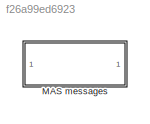
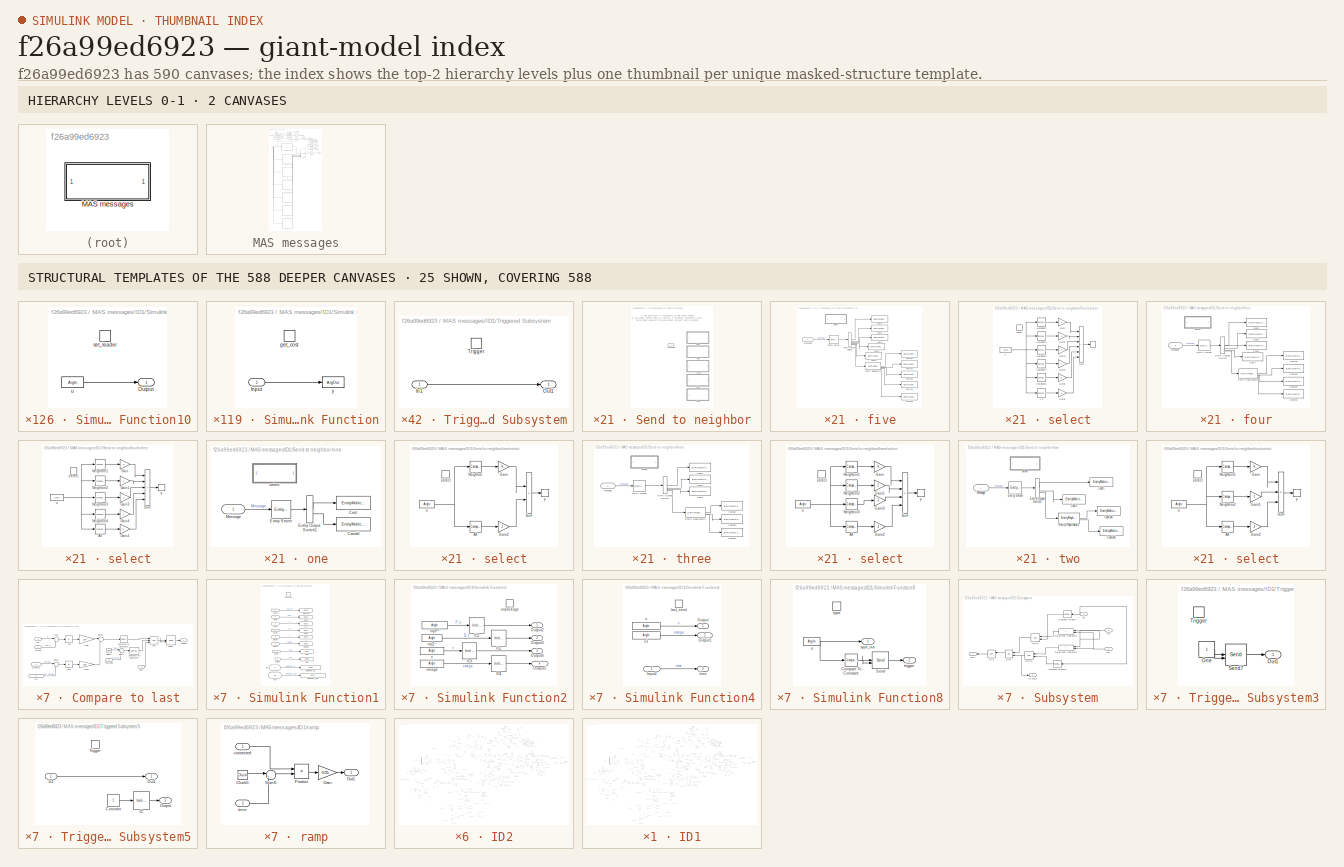
[diagram: thumbnail index - top-2 hierarchy levels (2 canvases) + 25 structural-template representatives of the remaining 588 canvases]
MODEL slx_f26a99ed6923
KIND model
CONFIG AbsTol = auto
CONFIG EnableMultiTasking = off
CONFIG FixedStep = auto
CONFIG MaxStep = auto
CONFIG MinStep = auto
CONFIG RelTol = 1e-3
CONFIG SampleTimeConstraint = Unconstrained
CONFIG SolverName = VariableStepAuto
CONFIG StartTime = 0.0
CONFIG StopTime = 10.0
BLOCK [SubSystem] MAS messages
  NameLocation = top
  VariantControl = MAS messages
BLOCK [Constant] MAS messages/Constant1
  Value = 1000*ones(1, length(buses_lf))
  VectorParams1D = off
BLOCK [Constant] MAS messages/Constant2
  Value = 100*ones(1, length(buses_lf))
  VectorParams1D = off
BLOCK [RandomNumber] MAS messages/Costs
  Mean = 2*ones(1,length(buses_lf))
  SampleTime = 100
  Seed = 1:length(buses_lf)
  Variance = 1*ones(1,length(buses_lf))
  VectorParams1D = off
BLOCK [GotoTagVisibility] MAS messages/Goto Tag Visibility
  GotoTag = Pmax
BLOCK [GotoTagVisibility] MAS messages/Goto Tag Visibility1
  GotoTag = Snom
BLOCK [GotoTagVisibility] MAS messages/Goto Tag Visibility2
  GotoTag = costs
BLOCK [Goto] MAS messages/Goto1
  GotoTag = costs
  TagVisibility = scoped
BLOCK [Goto] MAS messages/Goto20
  GotoTag = Snom
  TagVisibility = scoped
BLOCK [Goto] MAS messages/Goto21
  GotoTag = Pmax
  TagVisibility = scoped
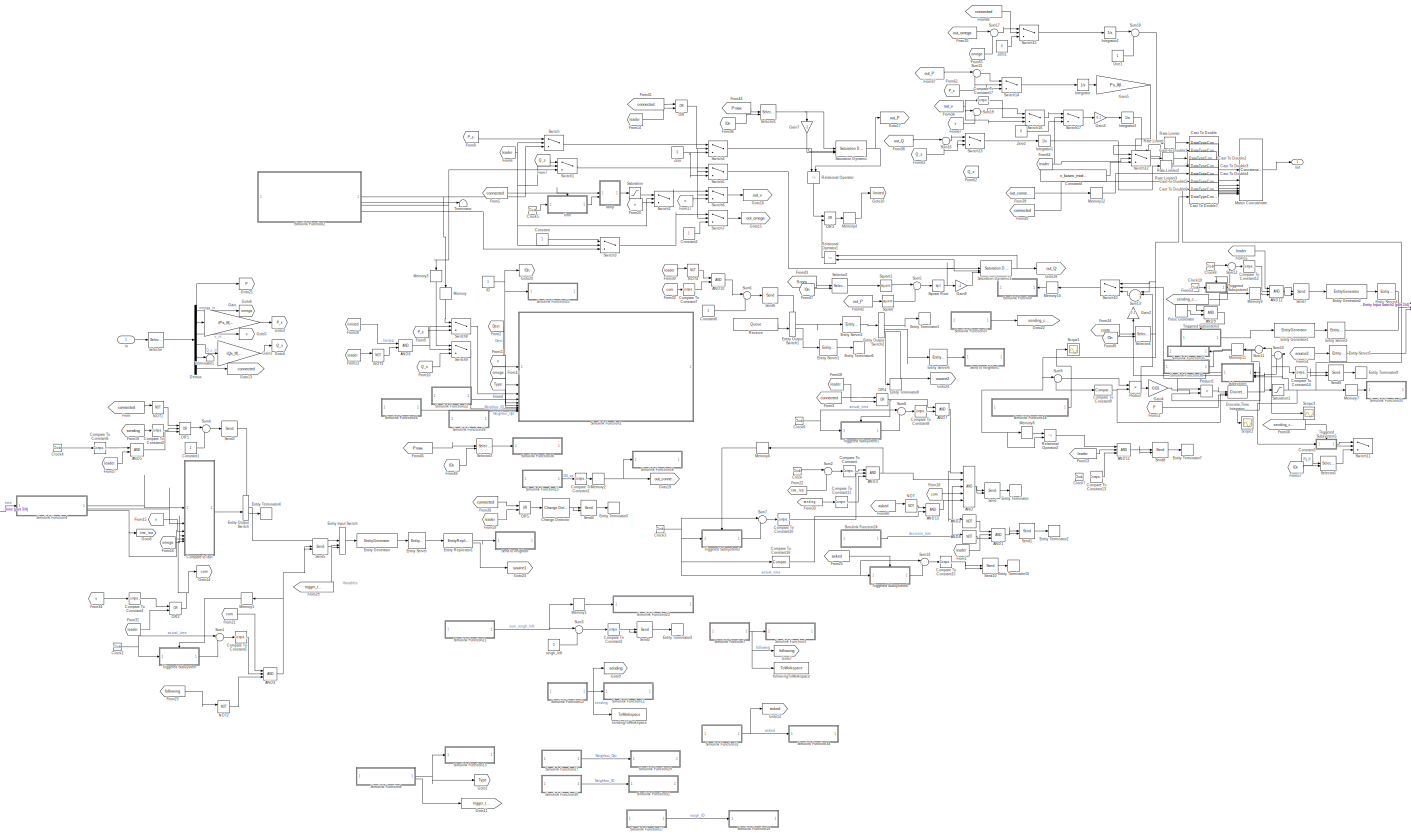
[diagram: MAS messages/ID1 - part 1/4, most of the canvas]
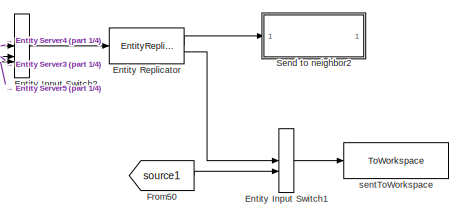
[diagram: MAS messages/ID1 - part 2/4, middle right region]
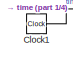
[diagram: MAS messages/ID1 - part 3/4, middle left region]
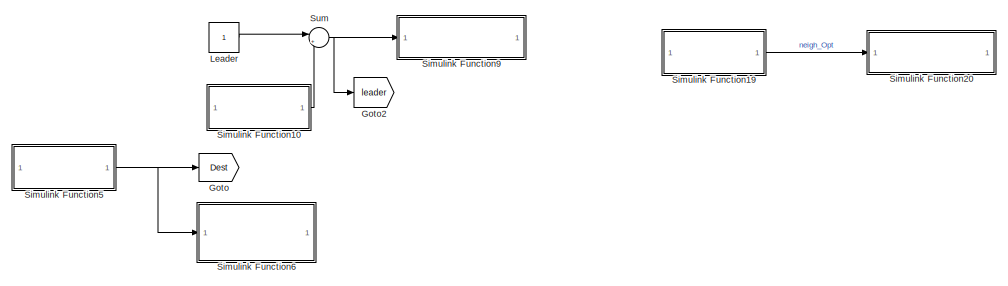
[diagram: MAS messages/ID1 - part 4/4, bottom center region]
BLOCK [SubSystem] MAS messages/ID1
  VariantControl = multi-agent
BLOCK [Logic] MAS messages/ID1/AND
  AllPortsSameDT = off
  IconShape = distinctive
  Inputs = 5
  OutDataTypeStr = boolean
BLOCK [Logic] MAS messages/ID1/AND1
  AllPortsSameDT = off
  IconShape = distinctive
  Inputs = 3
  OutDataTypeStr = boolean
BLOCK [Logic] MAS messages/ID1/AND10
  AllPortsSameDT = off
  IconShape = distinctive
  OutDataTypeStr = boolean
BLOCK [Logic] MAS messages/ID1/AND11
  AllPortsSameDT = off
  IconShape = distinctive
  Inputs = 3
  OutDataTypeStr = boolean
BLOCK [Logic] MAS messages/ID1/AND12
  AllPortsSameDT = off
  IconShape = distinctive
  Inputs = 3
  OutDataTypeStr = boolean
BLOCK [Logic] MAS messages/ID1/AND13
  AllPortsSameDT = off
  IconShape = distinctive
  OutDataTypeStr = boolean
BLOCK [Logic] MAS messages/ID1/AND2
  AllPortsSameDT = off
  IconShape = distinctive
  Operator = NOT
  OutDataTypeStr = boolean
BLOCK [Logic] MAS messages/ID1/AND3
  AllPortsSameDT = off
  IconShape = distinctive
  Inputs = 3
  OutDataTypeStr = boolean
BLOCK [Logic] MAS messages/ID1/AND4
  AllPortsSameDT = off
  IconShape = distinctive
  Inputs = 3
  OutDataTypeStr = boolean
BLOCK [Logic] MAS messages/ID1/AND5
  AllPortsSameDT = off
  IconShape = distinctive
  OutDataTypeStr = boolean
BLOCK [Logic] MAS messages/ID1/AND6
  AllPortsSameDT = off
  IconShape = distinctive
  OutDataTypeStr = boolean
BLOCK [Logic] MAS messages/ID1/AND7
  AllPortsSameDT = off
  IconShape = distinctive
  OutDataTypeStr = boolean
BLOCK [Logic] MAS messages/ID1/AND8
  AllPortsSameDT = off
  IconShape = distinctive
  Operator = NOT
  OutDataTypeStr = boolean
BLOCK [Logic] MAS messages/ID1/AND9
  AllPortsSameDT = off
  IconShape = distinctive
  OutDataTypeStr = boolean
BLOCK [DataTypeConversion] MAS messages/ID1/Cast To Double
  OutDataTypeStr = double
  RndMeth = Floor
  SaturateOnIntegerOverflow = off
BLOCK [DataTypeConversion] MAS messages/ID1/Cast To Double1
  OutDataTypeStr = double
  RndMeth = Floor
  SaturateOnIntegerOverflow = off
BLOCK [DataTypeConversion] MAS messages/ID1/Cast To Double2
  OutDataTypeStr = double
  RndMeth = Floor
  SaturateOnIntegerOverflow = off
BLOCK [DataTypeConversion] MAS messages/ID1/Cast To Double3
  OutDataTypeStr = double
  RndMeth = Floor
  SaturateOnIntegerOverflow = off
BLOCK [DataTypeConversion] MAS messages/ID1/Cast To Double4
  OutDataTypeStr = double
  RndMeth = Floor
  SaturateOnIntegerOverflow = off
BLOCK [DataTypeConversion] MAS messages/ID1/Cast To Double5
  OutDataTypeStr = double
  RndMeth = Floor
  SaturateOnIntegerOverflow = off
BLOCK [DataTypeConversion] MAS messages/ID1/Cast To Double6
  OutDataTypeStr = double
  RndMeth = Floor
  SaturateOnIntegerOverflow = off
BLOCK [DataTypeConversion] MAS messages/ID1/Cast To Double7
  OutDataTypeStr = double
  RndMeth = Floor
  SaturateOnIntegerOverflow = off
BLOCK [Reference] MAS messages/ID1/Change Detector  REF=eeGeneralControl/Change Detector
  SourceBlock = eeGeneralControl/Change Detector
  SourceType = Change Detector
BLOCK [Clock] MAS messages/ID1/Clock
BLOCK [Clock] MAS messages/ID1/Clock1
BLOCK [Clock] MAS messages/ID1/Clock10
BLOCK [Clock] MAS messages/ID1/Clock2
BLOCK [Clock] MAS messages/ID1/Clock3
BLOCK [Clock] MAS messages/ID1/Clock4
BLOCK [Clock] MAS messages/ID1/Clock5
BLOCK [Clock] MAS messages/ID1/Clock6
BLOCK [Clock] MAS messages/ID1/Clock7
BLOCK [Clock] MAS messages/ID1/Clock8
BLOCK [Reference] MAS messages/ID1/Compare To Constant  REF=simulink/Logic and Bit
Operations/Compare
To Constant
  SourceBlock = simulink/Logic and Bit\nOperations/Compare\nTo Constant
  SourceType = Compare To Constant
BLOCK [Reference] MAS messages/ID1/Compare To Constant1  REF=simulink/Logic and Bit
Operations/Compare
To Constant
  SourceBlock = simulink/Logic and Bit\nOperations/Compare\nTo Constant
  SourceType = Compare To Constant
BLOCK [Reference] MAS messages/ID1/Compare To Constant10  REF=simulink/Logic and Bit
Operations/Compare
To Constant
  SourceBlock = simulink/Logic and Bit\nOperations/Compare\nTo Constant
  SourceType = Compare To Constant
BLOCK [Reference] MAS messages/ID1/Compare To Constant11  REF=simulink/Logic and Bit
Operations/Compare
To Constant
  SourceBlock = simulink/Logic and Bit\nOperations/Compare\nTo Constant
  SourceType = Compare To Constant
BLOCK [Reference] MAS messages/ID1/Compare To Constant12  REF=simulink/Logic and Bit
Operations/Compare
To Constant
  SourceBlock = simulink/Logic and Bit\nOperations/Compare\nTo Constant
  SourceType = Compare To Constant
BLOCK [Reference] MAS messages/ID1/Compare To Constant13  REF=simulink/Logic and Bit
Operations/Compare
To Constant
  SourceBlock = simulink/Logic and Bit\nOperations/Compare\nTo Constant
  SourceType = Compare To Constant
BLOCK [Reference] MAS messages/ID1/Compare To Constant14  REF=simulink/Logic and Bit
Operations/Compare
To Constant
  SourceBlock = simulink/Logic and Bit\nOperations/Compare\nTo Constant
  SourceType = Compare To Constant
BLOCK [Reference] MAS messages/ID1/Compare To Constant15  REF=simulink/Logic and Bit
Operations/Compare
To Constant
  SourceBlock = simulink/Logic and Bit\nOperations/Compare\nTo Constant
  SourceType = Compare To Constant
BLOCK [Reference] MAS messages/ID1/Compare To Constant16  REF=simulink/Logic and Bit
Operations/Compare
To Constant
  SourceBlock = simulink/Logic and Bit\nOperations/Compare\nTo Constant
  SourceType = Compare To Constant
BLOCK [Reference] MAS messages/ID1/Compare To Constant17  REF=simulink/Logic and Bit
Operations/Compare
To Constant
  SourceBlock = simulink/Logic and Bit\nOperations/Compare\nTo Constant
  SourceType = Compare To Constant
BLOCK [Reference] MAS messages/ID1/Compare To Constant2  REF=simulink/Logic and Bit
Operations/Compare
To Constant
  SourceBlock = simulink/Logic and Bit\nOperations/Compare\nTo Constant
  SourceType = Compare To Constant
BLOCK [Reference] MAS messages/ID1/Compare To Constant3  REF=simulink/Logic and Bit
Operations/Compare
To Constant
  SourceBlock = simulink/Logic and Bit\nOperations/Compare\nTo Constant
  SourceType = Compare To Constant
BLOCK [Reference] MAS messages/ID1/Compare To Constant4  REF=simulink/Logic and Bit
Operations/Compare
To Constant
  SourceBlock = simulink/Logic and Bit\nOperations/Compare\nTo Constant
  SourceType = Compare To Constant
BLOCK [Reference] MAS messages/ID1/Compare To Constant5  REF=simulink/Logic and Bit
Operations/Compare
To Constant
  SourceBlock = simulink/Logic and Bit\nOperations/Compare\nTo Constant
  SourceType = Compare To Constant
BLOCK [Reference] MAS messages/ID1/Compare To Constant6  REF=simulink/Logic and Bit
Operations/Compare
To Constant
  SourceBlock = simulink/Logic and Bit\nOperations/Compare\nTo Constant
  SourceType = Compare To Constant
BLOCK [Reference] MAS messages/ID1/Compare To Constant7  REF=simulink/Logic and Bit
Operations/Compare
To Constant
  SourceBlock = simulink/Logic and Bit\nOperations/Compare\nTo Constant
  SourceType = Compare To Constant
BLOCK [Reference] MAS messages/ID1/Compare To Constant8  REF=simulink/Logic and Bit
Operations/Compare
To Constant
  SourceBlock = simulink/Logic and Bit\nOperations/Compare\nTo Constant
  SourceType = Compare To Constant
BLOCK [Reference] MAS messages/ID1/Compare To Constant9  REF=simulink/Logic and Bit
Operations/Compare
To Constant
  SourceBlock = simulink/Logic and Bit\nOperations/Compare\nTo Constant
  SourceType = Compare To Constant
BLOCK [SubSystem] MAS messages/ID1/Compare to last
BLOCK [Logic] MAS messages/ID1/Compare to last/AND
  AllPortsSameDT = off
  IconShape = distinctive
  Inputs = 3
  OutDataTypeStr = boolean
BLOCK [Abs] MAS messages/ID1/Compare to last/Abs
  SaturateOnIntegerOverflow = off
  ZeroCross = off
BLOCK [Abs] MAS messages/ID1/Compare to last/Abs1
  SaturateOnIntegerOverflow = off
  ZeroCross = off
BLOCK [Clock] MAS messages/ID1/Compare to last/Clock1
BLOCK [Reference] MAS messages/ID1/Compare to last/Compare To Constant1  REF=simulink/Logic and Bit
Operations/Compare
To Constant
  SourceBlock = simulink/Logic and Bit\nOperations/Compare\nTo Constant
  SourceType = Compare To Constant
BLOCK [Reference] MAS messages/ID1/Compare to last/Compare To Constant2  REF=simulink/Logic and Bit
Operations/Compare
To Constant
  SourceBlock = simulink/Logic and Bit\nOperations/Compare\nTo Constant
  SourceType = Compare To Constant
BLOCK [Gain] MAS messages/ID1/Compare to last/Gain
  Gain = 1e4
BLOCK [Gain] MAS messages/ID1/Compare to last/Gain1
  Gain = 1e5
BLOCK [Inport] MAS messages/ID1/Compare to last/In1
  IconDisplay = Signal name
  Port = 3
BLOCK [Inport] MAS messages/ID1/Compare to last/In4
  IconDisplay = Signal name
  Port = 2
BLOCK [Inport] MAS messages/ID1/Compare to last/Output
  IconDisplay = Signal name
BLOCK [Inport] MAS messages/ID1/Compare to last/Output1
  IconDisplay = Signal name
  Port = 4
BLOCK [Send] MAS messages/ID1/Compare to last/Send1
  InputPortMap = e0,u1
  OutputPortMessageModes = m
  ShowEnablePort = on
BLOCK [Sum] MAS messages/ID1/Compare to last/Sum
  Inputs = |+-
BLOCK [Sum] MAS messages/ID1/Compare to last/Sum1
  Inputs = |+-
BLOCK [Sum] MAS messages/ID1/Compare to last/Sum2
  Inputs = |++
BLOCK [Sum] MAS messages/ID1/Compare to last/Sum5
  Inputs = |+-
BLOCK [Outport] MAS messages/ID1/Compare to last/Trigger
BLOCK [Inport] MAS messages/ID1/Compare to last/com
  Port = 6
BLOCK [Inport] MAS messages/ID1/Compare to last/time_last
  Port = 5
BLOCK [Constant] MAS messages/ID1/Constant
BLOCK [Constant] MAS messages/ID1/Constant1
BLOCK [Constant] MAS messages/ID1/Constant2
BLOCK [Constant] MAS messages/ID1/Constant3
  Value = Ps_lf
  VectorParams1D = off
BLOCK [Constant] MAS messages/ID1/Constant4
  Value = v_buses_mod(buses_lf(IDnumber))
BLOCK [Constant] MAS messages/ID1/Constant6
BLOCK [Demux] MAS messages/ID1/Demux
  Outputs = 6
BLOCK [DiscreteIntegrator] MAS messages/ID1/Discrete-Time Integrator
  ExternalReset = rising
  ICPrevOutput = DiscIntNeverNeededParam
  ICPrevScaledInput = DiscIntNeverNeededParam
  InitialConditionSetting = Auto
  InitialConditionSource = external
BLOCK [EntityGenerator] MAS messages/ID1/Entity Generator
  AttributeInitialValue = 0|0|0|0|0|0|0|1|0|0|1|1
  AttributeName = DG_up|Source|Dest|P_s|Q_s|v|omega|Opt|type|Select|Neighbor_ID|Neighbor_Opt
  EntityType = Structured
  EntityTypeName = Message
  GenerationMethod = Event-based
  InputPortMap = u0
  InputPortMessageModes = m
  OutputPortMap = o3
  OutputPortMessageModes = m
  Period = 0.01
BLOCK [EntityGenerator] MAS messages/ID1/Entity Generator1
  AttributeInitialValue = 0|0|0|0|0|0|0|1|0|0|1|1
  AttributeName = DG_up|Source|Dest|P_s|Q_s|v|omega|Opt|type|Select|Neighbor_ID|Neighbor_Opt
  EntityType = Structured
  EntityTypeName = Message
  GenerateEntityAtSimulationStart = off
  GenerationMethod = Event-based
  InputPortMap = u0
  InputPortMessageModes = m
  OutputPortMap = o3
  OutputPortMessageModes = m
  Period = 0.1
  TimeSource = Signal port
BLOCK [EntityGenerator] MAS messages/ID1/Entity Generator2
  AttributeInitialValue = 0|0|0|0|0|0|0|1|0|0|1|1
  AttributeName = DG_up|Source|Dest|P_s|Q_s|v|omega|Opt|type|Select|Neighbor_ID|Neighbor_Opt
  EntityType = Structured
  EntityTypeName = Message
  GenerateEntityAtSimulationStart = off
  GenerationMethod = Event-based
  InputPortMap = u0
  InputPortMessageModes = m
  OutputPortMap = o3
  OutputPortMessageModes = m
  Period = 0.1
  TimeSource = Signal port
BLOCK [EntityInputSwitch] MAS messages/ID1/Entity Input Switch
  InputPortMap = u1,u2,u3
  InputPortMessageModes = m,m,m
  NumberInputPorts = 3
  OutputPortMap = o0
  OutputPortMessageModes = m
BLOCK [EntityInputSwitch] MAS messages/ID1/Entity Input Switch1
  InputPortMap = u1,u2
  InputPortMessageModes = m,m
  OutputPortMap = o0
  OutputPortMessageModes = m
BLOCK [EntityInputSwitch] MAS messages/ID1/Entity Input Switch2
  InputPortMap = u1,u2,u3
  InputPortMessageModes = m,m,m
  NumberInputPorts = 3
  OutputPortMap = o0
  OutputPortMessageModes = m
BLOCK [EntityOutputSwitch] MAS messages/ID1/Entity Output Switch
  InputPortMap = u0,u1
  InputPortMessageModes = m,m
  OutputPortMap = o0,o1
  OutputPortMessageModes = m,m
  SwitchAttributeName = Attribute1
  SwitchingCriterion = From control port
BLOCK [EntityOutputSwitch] MAS messages/ID1/Entity Output Switch1
  InputPortMap = u0,u1
  InputPortMessageModes = m,m
  OutputPortMap = o0,o1
  OutputPortMessageModes = m,m
  SwitchAttributeName = Attribute1
  SwitchingCriterion = From control port
BLOCK [EntityOutputSwitch] MAS messages/ID1/Entity Output Switch2
  InputPortMap = u1
  InputPortMessageModes = m
  NumberOutputPorts = 4
  OutputPortMap = o0,o1,o2,o3
  OutputPortMessageModes = m,m,m,m
  SwitchAttributeName = Select
  SwitchingCriterion = From attribute
BLOCK [EntityReplicator] MAS messages/ID1/Entity Replicator
  InputPortMap = u0
  InputPortMessageModes = m
  OutputPortMap = o0,o1
  OutputPortMessageModes = m,m
BLOCK [EntityReplicator] MAS messages/ID1/Entity Replicator1
  InputPortMap = u0
  InputPortMessageModes = m
  OutputPortMap = o0,o1
  OutputPortMessageModes = m,m
BLOCK [EntityServer] MAS messages/ID1/Entity Server
  Capacity = 1
  EntryAction = [entity.Source, entity.Dest, entity.P_s, ...\n    entity.Q_s, entity.v, entity.omega, ...\n    entity.type, entity.Opt, entity.Neighbor_ID, ...\n    entity.Neighbor_Opt] = package();\nif entity.type == 0\n    entity.Dest = get_sending();\nend\ntype(0);\nsend_to(0);\nset_Neighbor_ID(0);  <repeated x7 — deduplicated; at blocks: Entity Server>
  InputPortMap = u2
  InputPortMessageModes = m
  OutputPortMap = o9
  OutputPortMessageModes = m
  ServiceCompleteAction = last_send(entity.v, entity.omega);
  ServiceTimeValue = 0.1
BLOCK [EntityServer] MAS messages/ID1/Entity Server1
  Capacity = 1
  InputPortMap = u2
  InputPortMessageModes = m
  OutputPortMap = o9
  OutputPortMessageModes = m
  ServiceTimeValue = 1e-10
BLOCK [EntityServer] MAS messages/ID1/Entity Server2
  Capacity = 1
  InputPortMap = u2
  InputPortMessageModes = m
  OutputPortMap = o9
  OutputPortMessageModes = m
  ServiceCompleteAction = if (entity.type == 0 & ...\n        entity.Dest == get_ID & ...\n        get_DG_up == 0 & get_sending ~= 0) ...\n        | (entity.type == 8 & ...\n        get_neigh_ID ~= get_ID)\n    entity.Select = 2;\n    entity.Source = get_ID;\n    if entity.type == 8\n        entity.Dest = get_neigh_ID;\n    else\n        entity.Dest = get_sending;\n    end\nelseif entity.type == 10\n    entity.Dest = get_sending;\n    i...<+209ch>  <repeated x7 — deduplicated; at blocks: Entity Server2>
  ServiceTimeValue = 1e-10
BLOCK [EntityServer] MAS messages/ID1/Entity Server3
  Capacity = 1
  EntryAction = aux = get_extra_satur();\nif aux == 0\n    entity.Opt = get_cost();\nelse\n    entity.Opt = get_cost() + 100*aux;\n    set_extra_satur(aux)\nend\nentity.P_s = get_cost_P();\nentity.type = 9;\nentity.Dest = get_sending();\nentity.Source = get_ID();  <repeated x7 — deduplicated; at blocks: Entity Server3>
  InputPortMap = u2
  InputPortMessageModes = m
  OutputPortMap = o9
  OutputPortMessageModes = m
  ServiceTimeValue = 0.05
BLOCK [EntityServer] MAS messages/ID1/Entity Server4
  Capacity = 1
  EntryAction = entity.type = 10;\nentity.Dest = get_sending();\nset_sending_cost(0)\nset_cost_info(0)\nentity.Source = get_ID();
  InputPortMap = u2
  InputPortMessageModes = m
  OutputPortMap = o9
  OutputPortMessageModes = m
  ServiceTimeValue = 0.05
BLOCK [EntityServer] MAS messages/ID1/Entity Server5
  Capacity = 1
  EntryAction = set_cost_info(0)\nset_sending_cost(0)\nentity.Source = get_ID();
  InputPortMap = u2
  InputPortMessageModes = m
  OutputPortMap = o9
  OutputPortMessageModes = m
  ServiceTimeValue = 0.05
BLOCK [EntityServer] MAS messages/ID1/Entity Server6
  Capacity = 1
  InputPortMap = u2
  InputPortMessageModes = m
  OutputPortMap = o9
  OutputPortMessageModes = m
  ServiceTimeValue = 0.05
BLOCK [EntityTerminator] MAS messages/ID1/Entity Terminator
  EntryAction = set_Neighbor_Opt(get_ID);\nset_original_Opt(get_ID);\nset_Neighbor_ID(get_ID);\nset_asked(1);\nif get_DG_up\n    optim_value = -5;\nelse\n    optim_value = get_Opt();\nend\nif optim_value > get_neigh_Opt()\n    set_neigh_ID(get_ID);\n    set_neigh_Opt(optim_value);\nend\ntype(6); % Startup?  <repeated x7 — deduplicated; at blocks: Entity Terminator>
  InputPortMap = u0
  InputPortMessageModes = m
BLOCK [EntityTerminator] MAS messages/ID1/Entity Terminator1
  EntryAction = type_value = entity.type;\nif get_leader == 0 % If I am not the leader  \n    switch type_value\n        case 0\n            if entity.Dest == 0 & get_sending == 0 % New DG & I am free\n                if get_following() ~= 0 % If I follow someone\n                    send_to(entity.Source); % Answer\n                    type(1); % Follow me\n                end\n            else\n                unpackage(...<+5320ch>  <repeated x7 — deduplicated; at blocks: Entity Terminator1>
  InputPortMap = u0
  InputPortMessageModes = m
BLOCK [EntityTerminator] MAS messages/ID1/Entity Terminator10
  EntryAction = set_asked(0);
  InputPortMap = u0
  InputPortMessageModes = m
BLOCK [EntityTerminator] MAS messages/ID1/Entity Terminator2
  EntryAction = set_DG_up(1);\nset_decision_turn(1);
  InputPortMap = u0
  InputPortMessageModes = m
BLOCK [EntityTerminator] MAS messages/ID1/Entity Terminator3
  EntryAction = set_sum_neigh_left(0);\nset_asked(0);\nif get_original_Opt == get_ID & get_neigh_ID ~= 0\n    if get_ID ~= get_neigh_ID & get_neigh_Opt ~= -5\n        send_to(get_neigh_ID);\n        set_decision_turn(0);\n        set_neigh_Opt(-10);\n        type(8); % startup\n    else\n        if get_neigh_Opt == -5\n            set_asked(0);\n        end\n    end\nelse\n    set_Neighbor_ID(get_neigh_ID);\n    set_Opt(get_nei...<+134ch>  <repeated x7 — deduplicated; at blocks: Entity Terminator3>
  InputPortMap = u0
  InputPortMessageModes = m
BLOCK [EntityTerminator] MAS messages/ID1/Entity Terminator4
  EntryAction = [~, ~, ~, ~, v, omega, ~, ~, ~, ~] = package();\nlast_send(0,0);
  InputPortMap = u0
  InputPortMessageModes = m
BLOCK [EntityTerminator] MAS messages/ID1/Entity Terminator5
  EntryAction = set_DG_up(0);
  InputPortMap = u0
  InputPortMessageModes = m
BLOCK [EntityTerminator] MAS messages/ID1/Entity Terminator6
  EntryAction = if entity.type == 6 % asking for startup\n    set_Opt(-5); % I cannot start\n    send_to(entity.Source);\n    type(7); % startup data\nend
  InputPortMap = u0
  InputPortMessageModes = m
BLOCK [EntityTerminator] MAS messages/ID1/Entity Terminator7
  EntryAction = set_sending_cost(1)
  InputPortMap = u0
  InputPortMessageModes = m
BLOCK [EntityTerminator] MAS messages/ID1/Entity Terminator8
  InputPortMap = u0
  InputPortMessageModes = m
BLOCK [EntityTerminator] MAS messages/ID1/Entity Terminator9
  EntryAction = set_extra_satur(0)
  InputPortMap = u0
  InputPortMessageModes = m
BLOCK [From] MAS messages/ID1/From
  GotoTag = connected
BLOCK [From] MAS messages/ID1/From1
  GotoTag = leader
BLOCK [From] MAS messages/ID1/From10
  GotoTag = Q_s
BLOCK [From] MAS messages/ID1/From11
  GotoTag = v
BLOCK [From] MAS messages/ID1/From12
  GotoTag = omega
BLOCK [From] MAS messages/ID1/From13
  GotoTag = leader
BLOCK [From] MAS messages/ID1/From14
  GotoTag = leader
BLOCK [From] MAS messages/ID1/From15
  GotoTag = v
BLOCK [From] MAS messages/ID1/From16
  GotoTag = omega
BLOCK [From] MAS messages/ID1/From17
  GotoTag = v
BLOCK [From] MAS messages/ID1/From18
  GotoTag = com
BLOCK [From] MAS messages/ID1/From19
  GotoTag = sending
BLOCK [From] MAS messages/ID1/From2
  GotoTag = Dest
BLOCK [From] MAS messages/ID1/From20
  GotoTag = v
BLOCK [From] MAS messages/ID1/From21
  GotoTag = com
BLOCK [From] MAS messages/ID1/From22
  GotoTag = time_last
  NameLocation = top
BLOCK [From] MAS messages/ID1/From23
  GotoTag = following
BLOCK [From] MAS messages/ID1/From24
  GotoTag = costs
  TagVisibility = scoped
BLOCK [From] MAS messages/ID1/From25
  GotoTag = asked
BLOCK [From] MAS messages/ID1/From26
  GotoTag = connected
BLOCK [From] MAS messages/ID1/From27
  GotoTag = leader
BLOCK [From] MAS messages/ID1/From28
  GotoTag = limited
BLOCK [From] MAS messages/ID1/From29
  GotoTag = trigger_type
BLOCK [From] MAS messages/ID1/From3
  GotoTag = connected
BLOCK [From] MAS messages/ID1/From30
  GotoTag = leader
BLOCK [From] MAS messages/ID1/From31
  GotoTag = leader
BLOCK [From] MAS messages/ID1/From32
  GotoTag = com
BLOCK [From] MAS messages/ID1/From33
  GotoTag = sending
BLOCK [From] MAS messages/ID1/From34
  GotoTag = v
BLOCK [From] MAS messages/ID1/From35
  GotoTag = out_omega
BLOCK [From] MAS messages/ID1/From36
  GotoTag = out_v
BLOCK [From] MAS messages/ID1/From37
  GotoTag = out_P
BLOCK [From] MAS messages/ID1/From38
  GotoTag = out_Q
BLOCK [From] MAS messages/ID1/From39
  GotoTag = out_connect
BLOCK [From] MAS messages/ID1/From4
  GotoTag = Type
BLOCK [From] MAS messages/ID1/From40
  GotoTag = connected
BLOCK [From] MAS messages/ID1/From41
  GotoTag = connected
BLOCK [From] MAS messages/ID1/From42
  GotoTag = out_P
BLOCK [From] MAS messages/ID1/From43
  GotoTag = Snom
  TagVisibility = scoped
BLOCK [From] MAS messages/ID1/From44
  GotoTag = Pmax
  TagVisibility = scoped
BLOCK [From] MAS messages/ID1/From45
  GotoTag = Pmax
  TagVisibility = scoped
BLOCK [From] MAS messages/ID1/From46
  GotoTag = IDn
BLOCK [From] MAS messages/ID1/From47
  GotoTag = IDn
BLOCK [From] MAS messages/ID1/From48
  GotoTag = IDn
BLOCK [From] MAS messages/ID1/From49
  GotoTag = IDn
BLOCK [From] MAS messages/ID1/From5
  GotoTag = connected
BLOCK [From] MAS messages/ID1/From50
  GotoTag = source1
BLOCK [From] MAS messages/ID1/From51
  GotoTag = P
BLOCK [From] MAS messages/ID1/From52
  GotoTag = sending_cost
BLOCK [From] MAS messages/ID1/From53
  GotoTag = leader
BLOCK [From] MAS messages/ID1/From54
  GotoTag = source2
BLOCK [From] MAS messages/ID1/From55
  GotoTag = leader
BLOCK [From] MAS messages/ID1/From56
  GotoTag = sending_cost
BLOCK [From] MAS messages/ID1/From57
  GotoTag = IDn
BLOCK [From] MAS messages/ID1/From58
  GotoTag = leader
BLOCK [From] MAS messages/ID1/From59
  GotoTag = leader
BLOCK [From] MAS messages/ID1/From6
  GotoTag = leader
BLOCK [From] MAS messages/ID1/From60
  GotoTag = asked
BLOCK [From] MAS messages/ID1/From61
  GotoTag = P_s
BLOCK [From] MAS messages/ID1/From62
  Commented = on
  GotoTag = Q_s
BLOCK [From] MAS messages/ID1/From63
  GotoTag = Q_s
BLOCK [From] MAS messages/ID1/From64
  GotoTag = leader
BLOCK [From] MAS messages/ID1/From65
  GotoTag = omega
BLOCK [From] MAS messages/ID1/From66
  GotoTag = connected
BLOCK [From] MAS messages/ID1/From67
  GotoTag = v
BLOCK [From] MAS messages/ID1/From7
  GotoTag = Q_s
BLOCK [From] MAS messages/ID1/From8
  GotoTag = P_s
BLOCK [From] MAS messages/ID1/From9
  GotoTag = P_s
BLOCK [Gain] MAS messages/ID1/Gain
  Gain = iPs_lf(IDnumber)/Sb
BLOCK [Gain] MAS messages/ID1/Gain1
  Commented = through
  Gain = iQs_lf(IDnumber)
BLOCK [Gain] MAS messages/ID1/Gain2
  Gain = 0.1
  NameLocation = right
BLOCK [Gain] MAS messages/ID1/Gain3
  Gain = 0.1
BLOCK [Gain] MAS messages/ID1/Gain4
  Gain = 0.01
BLOCK [Gain] MAS messages/ID1/Gain5
  Gain = Ps_lf(IDnumber)*Sb
BLOCK [Gain] MAS messages/ID1/Gain7
  Gain = -1
  NameLocation = left
BLOCK [Gain] MAS messages/ID1/Gain8
  Gain = -1
BLOCK [Goto] MAS messages/ID1/Goto
  GotoTag = Dest
BLOCK [Goto] MAS messages/ID1/Goto1
  GotoTag = Type
BLOCK [Goto] MAS messages/ID1/Goto10
  GotoTag = limited
BLOCK [Goto] MAS messages/ID1/Goto11
  GotoTag = trigger_type
BLOCK [Goto] MAS messages/ID1/Goto12
  GotoTag = asked
BLOCK [Goto] MAS messages/ID1/Goto13
  GotoTag = connected
BLOCK [Goto] MAS messages/ID1/Goto14
  GotoTag = com
BLOCK [Goto] MAS messages/ID1/Goto15
  GotoTag = out_omega
BLOCK [Goto] MAS messages/ID1/Goto16
  GotoTag = out_v
BLOCK [Goto] MAS messages/ID1/Goto17
  GotoTag = out_P
BLOCK [Goto] MAS messages/ID1/Goto18
  GotoTag = out_Q
BLOCK [Goto] MAS messages/ID1/Goto19
  GotoTag = out_connect
BLOCK [Goto] MAS messages/ID1/Goto2
  GotoTag = leader
BLOCK [Goto] MAS messages/ID1/Goto20
  GotoTag = IDn
BLOCK [Goto] MAS messages/ID1/Goto21
  GotoTag = P
BLOCK [Goto] MAS messages/ID1/Goto22
  GotoTag = sending_cost
BLOCK [Goto] MAS messages/ID1/Goto23
  GotoTag = source1
BLOCK [Goto] MAS messages/ID1/Goto24
  GotoTag = source2
BLOCK [Goto] MAS messages/ID1/Goto3
  GotoTag = P_s
BLOCK [Goto] MAS messages/ID1/Goto4
  GotoTag = Q_s
BLOCK [Goto] MAS messages/ID1/Goto5
  GotoTag = v
BLOCK [Goto] MAS messages/ID1/Goto6
  GotoTag = omega
BLOCK [Goto] MAS messages/ID1/Goto7
  GotoTag = following
BLOCK [Goto] MAS messages/ID1/Goto8
  GotoTag = time_last
BLOCK [Goto] MAS messages/ID1/Goto9
  GotoTag = sending
BLOCK [Constant] MAS messages/ID1/ID
BLOCK [Integrator] MAS messages/ID1/Integrator
BLOCK [Integrator] MAS messages/ID1/Integrator1
BLOCK [Integrator] MAS messages/ID1/Integrator2
BLOCK [Integrator] MAS messages/ID1/Integrator3
BLOCK [Constant] MAS messages/ID1/Leader
BLOCK [Concatenate] MAS messages/ID1/Matrix Concatenate
  Mode = Multidimensional array
  NumInputs = 8
BLOCK [Memory] MAS messages/ID1/Memory
  NameLocation = left
BLOCK [Memory] MAS messages/ID1/Memory1
BLOCK [Memory] MAS messages/ID1/Memory10
BLOCK [Memory] MAS messages/ID1/Memory11
BLOCK [Memory] MAS messages/ID1/Memory12
  InitialCondition = 1
BLOCK [Memory] MAS messages/ID1/Memory2
  InitialCondition = 1
BLOCK [Memory] MAS messages/ID1/Memory3
  NameLocation = left
BLOCK [Memory] MAS messages/ID1/Memory4
BLOCK [Memory] MAS messages/ID1/Memory5
BLOCK [Memory] MAS messages/ID1/Memory6
BLOCK [Memory] MAS messages/ID1/Memory7
BLOCK [Memory] MAS messages/ID1/Memory8
BLOCK [Memory] MAS messages/ID1/Memory9
BLOCK [Logic] MAS messages/ID1/NOT
  AllPortsSameDT = off
  IconShape = distinctive
  Operator = NOT
  OutDataTypeStr = boolean
BLOCK [Logic] MAS messages/ID1/NOT1
  AllPortsSameDT = off
  IconShape = distinctive
  Operator = NOT
  OutDataTypeStr = boolean
BLOCK [Logic] MAS messages/ID1/NOT2
  AllPortsSameDT = off
  IconShape = distinctive
  Operator = NOT
  OutDataTypeStr = boolean
BLOCK [Logic] MAS messages/ID1/NOT3
  AllPortsSameDT = off
  IconShape = distinctive
  Operator = NOT
  OutDataTypeStr = boolean
BLOCK [Logic] MAS messages/ID1/NOT4
  AllPortsSameDT = off
  IconShape = distinctive
  Operator = NOT
  OutDataTypeStr = boolean
BLOCK [Logic] MAS messages/ID1/OR
  AllPortsSameDT = off
  IconShape = distinctive
  Operator = OR
  OutDataTypeStr = boolean
BLOCK [Logic] MAS messages/ID1/OR1
  AllPortsSameDT = off
  IconShape = distinctive
  Inputs = 3
  Operator = OR
  OutDataTypeStr = boolean
BLOCK [Logic] MAS messages/ID1/OR2
  AllPortsSameDT = off
  IconShape = distinctive
  Operator = OR
  OutDataTypeStr = boolean
BLOCK [Logic] MAS messages/ID1/OR3
  AllPortsSameDT = off
  IconShape = distinctive
  Operator = OR
  OutDataTypeStr = boolean
BLOCK [Logic] MAS messages/ID1/OR4
  AllPortsSameDT = off
  IconShape = distinctive
  Operator = OR
  OutDataTypeStr = boolean
BLOCK [Logic] MAS messages/ID1/OR5
  AllPortsSameDT = off
  IconShape = distinctive
  Operator = OR
  OutDataTypeStr = boolean
BLOCK [Constant] MAS messages/ID1/One1
  OutDataTypeStr = Inherit: Inherit via back propagation
BLOCK [Product] MAS messages/ID1/Product
BLOCK [Product] MAS messages/ID1/Product1
BLOCK [DiscretePulseGenerator] MAS messages/ID1/Pulse Generator
  Commented = on
  Period = 1
  PhaseDelay = 0.5
  PulseType = Time based
  PulseWidth = 50
BLOCK [RateLimiter] MAS messages/ID1/Rate Limiter
  FallingSlewLimit = -0.1
  InitialCondition = 1
  RisingSlewLimit = 0.1
  SampleTimeMode = inherited
BLOCK [RateLimiter] MAS messages/ID1/Rate Limiter1
  FallingSlewLimit = -0.1
  InitialCondition = Ps_lf(IDnumber)
  RisingSlewLimit = 0.1
  SampleTimeMode = inherited
BLOCK [RateLimiter] MAS messages/ID1/Rate Limiter2
  FallingSlewLimit = -0.1
  InitialCondition = v_buses_mod(buses_lf(IDnumber))
  RisingSlewLimit = 0.1
  SampleTimeMode = inherited
BLOCK [RateLimiter] MAS messages/ID1/Rate Limiter3
  FallingSlewLimit = -0.1
  InitialCondition = Qs_lf(IDnumber)
  RisingSlewLimit = 0.1
  SampleTimeMode = inherited
BLOCK [Queue] MAS messages/ID1/Receive
  Capacity = 10
  EntityArrivalSource = Multicast
  MulticastTag = ID1
  OutputPortMap = o5
  OutputPortMessageModes = m
BLOCK [RelationalOperator] MAS messages/ID1/Relational Operator
  InputSameDT = off
  NameLocation = left
  Operator = ~=
  OutDataTypeStr = boolean
  RndMeth = Simplest
  ZeroCross = off
BLOCK [RelationalOperator] MAS messages/ID1/Relational Operator1
  InputSameDT = off
  NameLocation = top
  Operator = ~=
  OutDataTypeStr = boolean
  RndMeth = Simplest
  ZeroCross = off
BLOCK [RelationalOperator] MAS messages/ID1/Relational Operator2
  InputSameDT = off
  Operator = ~=
  OutDataTypeStr = boolean
  RndMeth = Simplest
BLOCK [Saturate] MAS messages/ID1/Saturation
  LowerLimit = 0
  UpperLimit = v_buses_mod(buses_lf(IDnumber))
  ZeroCross = off
BLOCK [Reference] MAS messages/ID1/Saturation Dynamic  REF=simulink/Discontinuities/Saturation
Dynamic
  SourceBlock = simulink/Discontinuities/Saturation\nDynamic
  SourceType = Saturation Dynamic
BLOCK [Reference] MAS messages/ID1/Saturation Dynamic1  REF=simulink/Discontinuities/Saturation
Dynamic
  SourceBlock = simulink/Discontinuities/Saturation\nDynamic
  SourceType = Saturation Dynamic
BLOCK [Saturate] MAS messages/ID1/Saturation1
  LowerLimit = 0.1
  UpperLimit = 6
BLOCK [Scope] MAS messages/ID1/Scope1
  ActiveDisplayYMaximum = 3.4211
  ActiveDisplayYMinimum = -0.38013
  DataLoggingVariableName = ScopeData2
  Floating = off
  GraphicalSettings = {"GraphicalSettings":{"LegacySettings":true,"Style":{"AxesScalingProperties":{"AlignXAxis":"Center","AlignYAxis":"Center","AutoScaleXAxisLimits":true,"AxesScaling":"Manual","AxesScalingNumUpdates":10,"ScaleAxesLimitsAtStop":true,"XAxisDataRange":100,"YAxisDataRange":80},"Style":{"AxesColor":"[0 0 0]","ChannelNames":[""],"ColorOrder":"[1 0.909803921568627 0.392156862745098;0.149019607843137 0.54901...<+675ch>  <repeated x24 — deduplicated; at blocks: Scope1, Scope2, Scope3, Scope>
  LayoutDimensionsString = [1 1]
  MultipleDisplayCache = [{"MaxYLimMag":3.4211,"MaxYLimReal":3.4211,"MinYLimMag":0,"MinYLimReal":-0.38013,"PlotAsMagnitudePhase":false,"ShowGrid":true,"ShowLegend":false,"Title":"%<SignalLabel>","YLabel":""}]  <repeated x7 — deduplicated; at blocks: Scope1>
  NumInputPorts = 1
  WasSavedAsWebScope = on
  WindowPosition = [783 185 560 420]
BLOCK [Scope] MAS messages/ID1/Scope2
  ActiveDisplayYMaximum = 6.8507
  ActiveDisplayYMinimum = -6.8507
  DataLoggingVariableName = ScopeData1
  Floating = off
  LayoutDimensionsString = [1 1]
  MultipleDisplayCache = [{"MaxYLimMag":6.8507,"MaxYLimReal":6.8507,"MinYLimMag":0,"MinYLimReal":-6.8507,"PlotAsMagnitudePhase":false,"ShowGrid":true,"ShowLegend":false,"Title":"%<SignalLabel>","YLabel":""}]  <repeated x7 — deduplicated; at blocks: Scope2>
  NumInputPorts = 1
  WasSavedAsWebScope = on
  WindowPosition = [1184 103 560 420]
BLOCK [Scope] MAS messages/ID1/Scope3
  ActiveDisplayYMaximum = 0.00633
  ActiveDisplayYMinimum = -0.0007
  DataLoggingVariableName = ScopeData2
  Floating = off
  LayoutDimensionsString = [1 1]
  MultipleDisplayCache = [{"MaxYLimMag":0.00633,"MaxYLimReal":0.00633,"MinYLimMag":0,"MinYLimReal":-0.0007,"PlotAsMagnitudePhase":false,"ShowGrid":true,"ShowLegend":false,"Title":"%<SignalLabel>","YLabel":""}]  <repeated x7 — deduplicated; at blocks: Scope3>
  NumInputPorts = 1
  WasSavedAsWebScope = on
  WindowPosition = [1184 103 560 420]
BLOCK [Selector] MAS messages/ID1/Selector
  IndexOptions = Select all,Index vector (dialog)
  Indices = ID,str2double(ID)
  InputPortWidth = 3
  NumberOfDimensions = 2
  OutputSizes = 1,1
BLOCK [Selector] MAS messages/ID1/Selector1
  IndexOptions = Index vector (port)
  Indices = [1 3]
  InputPortWidth = length(buses_lf)
  OutputSizes = 1
BLOCK [Selector] MAS messages/ID1/Selector2
  IndexOptions = Index vector (port)
  Indices = [1 3]
  InputPortWidth = length(buses_lf)
  OutputSizes = 1
BLOCK [Selector] MAS messages/ID1/Selector3
  IndexOptions = Index vector (port)
  Indices = [1 3]
  InputPortWidth = length(buses_lf)
  OutputSizes = 1
BLOCK [Selector] MAS messages/ID1/Selector4
  IndexOptions = Index vector (port)
  Indices = [1 3]
  InputPortWidth = length(buses_lf)
  OutputSizes = 1
BLOCK [Selector] MAS messages/ID1/Selector5
  IndexOptions = Index vector (port)
  Indices = [1 3]
  InputPortWidth = length(buses_lf)
  OutputSizes = 1
BLOCK [Send] MAS messages/ID1/Send
  InputPortMap = e0,u1
  OutputPortMessageModes = m
  ShowEnablePort = on
BLOCK [SubSystem] MAS messages/ID1/Send to neighbor
  LabelModeActiveChoice = two
  Variant = on
  VariantControlMode = label
BLOCK [Inport] MAS messages/ID1/Send to neighbor/Message
BLOCK [SubSystem] MAS messages/ID1/Send to neighbor/five
  VariantControl = five
BLOCK [EntityMulticast] MAS messages/ID1/Send to neighbor/five/Cast1
  InputPortMap = u0
  InputPortMessageModes = m
  MulticastTag = ID2
BLOCK [EntityMulticast] MAS messages/ID1/Send to neighbor/five/Cast1all
  InputPortMap = u0
  InputPortMessageModes = m
  MulticastTag = ID2
BLOCK [EntityMulticast] MAS messages/ID1/Send to neighbor/five/Cast2
  InputPortMap = u0
  InputPortMessageModes = m
  MulticastTag = ID2
BLOCK [EntityMulticast] MAS messages/ID1/Send to neighbor/five/Cast2all
  InputPortMap = u0
  InputPortMessageModes = m
  MulticastTag = ID2
BLOCK [EntityMulticast] MAS messages/ID1/Send to neighbor/five/Cast3
  InputPortMap = u0
  InputPortMessageModes = m
  MulticastTag = ID0
BLOCK [EntityMulticast] MAS messages/ID1/Send to neighbor/five/Cast3all
  InputPortMap = u0
  InputPortMessageModes = m
  MulticastTag = ID0
BLOCK [EntityMulticast] MAS messages/ID1/Send to neighbor/five/Cast4
  InputPortMap = u0
  InputPortMessageModes = m
  MulticastTag = ID0
BLOCK [EntityMulticast] MAS messages/ID1/Send to neighbor/five/Cast4all
  InputPortMap = u0
  InputPortMessageModes = m
  MulticastTag = ID0
BLOCK [EntityMulticast] MAS messages/ID1/Send to neighbor/five/Cast5
  InputPortMap = u0
  InputPortMessageModes = m
  MulticastTag = ID0
BLOCK [EntityMulticast] MAS messages/ID1/Send to neighbor/five/Cast5all
  InputPortMap = u0
  InputPortMessageModes = m
  MulticastTag = ID0
BLOCK [EntityOutputSwitch] MAS messages/ID1/Send to neighbor/five/Entity Output Switch
  InitialPortSelection = 3
  InputPortMap = u1
  InputPortMessageModes = m
  NumberOutputPorts = 6
  OutputPortMap = o0,o1,o2,o3,o4,o5
  OutputPortMessageModes = m,m,m,m,m,m
  SwitchAttributeName = Select
  SwitchingCriterion = From attribute
BLOCK [EntityReplicator] MAS messages/ID1/Send to neighbor/five/Entity Replicator1
  InputPortMap = u0
  InputPortMessageModes = m
  NumberReplicas = 4
  OutputPortMap = o0,o1,o2,o3,o4
  OutputPortMessageModes = m,m,m,m,m
BLOCK [EntityServer] MAS messages/ID1/Send to neighbor/five/Entity Server
  Capacity = 1
  EntryAction = entity.Select = select(entity.Dest);
  InputPortMap = u2
  InputPortMessageModes = m
  OutputPortMap = o9
  OutputPortMessageModes = m
  ServiceTimeValue = 0
BLOCK [Inport] MAS messages/ID1/Send to neighbor/five/Message
  IconDisplay = Signal name
BLOCK [SubSystem] MAS messages/ID1/Send to neighbor/five/select
  TreatAsAtomicUnit = on
BLOCK [Reference] MAS messages/ID1/Send to neighbor/five/select/All  REF=simulink/Logic and Bit
Operations/Compare
To Constant
  SourceBlock = simulink/Logic and Bit\nOperations/Compare\nTo Constant
  SourceType = Compare To Constant
BLOCK [Gain] MAS messages/ID1/Send to neighbor/five/select/Gain
  OutDataTypeStr = double
BLOCK [Gain] MAS messages/ID1/Send to neighbor/five/select/Gain1
  Gain = 2
  OutDataTypeStr = double
BLOCK [Gain] MAS messages/ID1/Send to neighbor/five/select/Gain2
  Gain = 6
  OutDataTypeStr = double
BLOCK [Gain] MAS messages/ID1/Send to neighbor/five/select/Gain3
  Gain = 3
  OutDataTypeStr = double
BLOCK [Gain] MAS messages/ID1/Send to neighbor/five/select/Gain4
  Gain = 4
  OutDataTypeStr = double
BLOCK [Gain] MAS messages/ID1/Send to neighbor/five/select/Gain5
  Gain = 5
  OutDataTypeStr = double
BLOCK [Reference] MAS messages/ID1/Send to neighbor/five/select/Neighbor1  REF=simulink/Logic and Bit
Operations/Compare
To Constant
  SourceBlock = simulink/Logic and Bit\nOperations/Compare\nTo Constant
  SourceType = Compare To Constant
BLOCK [Reference] MAS messages/ID1/Send to neighbor/five/select/Neighbor2  REF=simulink/Logic and Bit
Operations/Compare
To Constant
  SourceBlock = simulink/Logic and Bit\nOperations/Compare\nTo Constant
  SourceType = Compare To Constant
BLOCK [Reference] MAS messages/ID1/Send to neighbor/five/select/Neighbor3  REF=simulink/Logic and Bit
Operations/Compare
To Constant
  SourceBlock = simulink/Logic and Bit\nOperations/Compare\nTo Constant
  SourceType = Compare To Constant
BLOCK [Reference] MAS messages/ID1/Send to neighbor/five/select/Neighbor4  REF=simulink/Logic and Bit
Operations/Compare
To Constant
  SourceBlock = simulink/Logic and Bit\nOperations/Compare\nTo Constant
  SourceType = Compare To Constant
BLOCK [Reference] MAS messages/ID1/Send to neighbor/five/select/Neighbor5  REF=simulink/Logic and Bit
Operations/Compare
To Constant
  SourceBlock = simulink/Logic and Bit\nOperations/Compare\nTo Constant
  SourceType = Compare To Constant
BLOCK [Sum] MAS messages/ID1/Send to neighbor/five/select/Sum
  IconShape = rectangular
  Inputs = |++++++
BLOCK [TriggerPort] MAS messages/ID1/Send to neighbor/five/select/select
  FunctionName = select
  FunctionVisibility = scoped
  IsSimulinkFunction = on
  StatesWhenEnabling = held
  TriggerType = function-call
  VariantControl = (inherit)
BLOCK [ArgIn] MAS messages/ID1/Send to neighbor/five/select/u
  ArgumentName = u
  DisableCoverage = on
BLOCK [ArgOut] MAS messages/ID1/Send to neighbor/five/select/y
  ArgumentName = y
BLOCK [SubSystem] MAS messages/ID1/Send to neighbor/four
  VariantControl = four
BLOCK [EntityMulticast] MAS messages/ID1/Send to neighbor/four/Cast1
  InputPortMap = u0
  InputPortMessageModes = m
  MulticastTag = ID1
BLOCK [EntityMulticast] MAS messages/ID1/Send to neighbor/four/Cast1all
  InputPortMap = u0
  InputPortMessageModes = m
  MulticastTag = ID1
BLOCK [EntityMulticast] MAS messages/ID1/Send to neighbor/four/Cast2
  InputPortMap = u0
  InputPortMessageModes = m
  MulticastTag = ID3
BLOCK [EntityMulticast] MAS messages/ID1/Send to neighbor/four/Cast2all
  InputPortMap = u0
  InputPortMessageModes = m
  MulticastTag = ID3
BLOCK [EntityMulticast] MAS messages/ID1/Send to neighbor/four/Cast3
  InputPortMap = u0
  InputPortMessageModes = m
  MulticastTag = ID0
BLOCK [EntityMulticast] MAS messages/ID1/Send to neighbor/four/Cast3all
  InputPortMap = u0
  InputPortMessageModes = m
  MulticastTag = ID0
BLOCK [EntityMulticast] MAS messages/ID1/Send to neighbor/four/Cast4
  InputPortMap = u0
  InputPortMessageModes = m
  MulticastTag = ID0
BLOCK [EntityMulticast] MAS messages/ID1/Send to neighbor/four/Cast4all
  InputPortMap = u0
  InputPortMessageModes = m
  MulticastTag = ID0
BLOCK [EntityOutputSwitch] MAS messages/ID1/Send to neighbor/four/Entity Output Switch
  InitialPortSelection = 3
  InputPortMap = u1
  InputPortMessageModes = m
  NumberOutputPorts = 5
  OutputPortMap = o0,o1,o2,o3,o4
  OutputPortMessageModes = m,m,m,m,m
  SwitchAttributeName = Select
  SwitchingCriterion = From attribute
BLOCK [EntityReplicator] MAS messages/ID1/Send to neighbor/four/Entity Replicator1
  InputPortMap = u0
  InputPortMessageModes = m
  NumberReplicas = 3
  OutputPortMap = o0,o1,o2,o3
  OutputPortMessageModes = m,m,m,m
BLOCK [EntityServer] MAS messages/ID1/Send to neighbor/four/Entity Server
  Capacity = 1
  EntryAction = entity.Select = select(entity.Dest);
  InputPortMap = u2
  InputPortMessageModes = m
  OutputPortMap = o9
  OutputPortMessageModes = m
  ServiceTimeValue = 0
BLOCK [Inport] MAS messages/ID1/Send to neighbor/four/Message
  IconDisplay = Signal name
BLOCK [SubSystem] MAS messages/ID1/Send to neighbor/four/select
  TreatAsAtomicUnit = on
BLOCK [Reference] MAS messages/ID1/Send to neighbor/four/select/All  REF=simulink/Logic and Bit
Operations/Compare
To Constant
  SourceBlock = simulink/Logic and Bit\nOperations/Compare\nTo Constant
  SourceType = Compare To Constant
BLOCK [Gain] MAS messages/ID1/Send to neighbor/four/select/Gain
  OutDataTypeStr = double
BLOCK [Gain] MAS messages/ID1/Send to neighbor/four/select/Gain1
  Gain = 2
  OutDataTypeStr = double
BLOCK [Gain] MAS messages/ID1/Send to neighbor/four/select/Gain2
  Gain = 5
  OutDataTypeStr = double
BLOCK [Gain] MAS messages/ID1/Send to neighbor/four/select/Gain3
  Gain = 3
  OutDataTypeStr = double
BLOCK [Gain] MAS messages/ID1/Send to neighbor/four/select/Gain4
  Gain = 4
  OutDataTypeStr = double
BLOCK [Reference] MAS messages/ID1/Send to neighbor/four/select/Neighbor1  REF=simulink/Logic and Bit
Operations/Compare
To Constant
  SourceBlock = simulink/Logic and Bit\nOperations/Compare\nTo Constant
  SourceType = Compare To Constant
BLOCK [Reference] MAS messages/ID1/Send to neighbor/four/select/Neighbor2  REF=simulink/Logic and Bit
Operations/Compare
To Constant
  SourceBlock = simulink/Logic and Bit\nOperations/Compare\nTo Constant
  SourceType = Compare To Constant
BLOCK [Reference] MAS messages/ID1/Send to neighbor/four/select/Neighbor3  REF=simulink/Logic and Bit
Operations/Compare
To Constant
  SourceBlock = simulink/Logic and Bit\nOperations/Compare\nTo Constant
  SourceType = Compare To Constant
BLOCK [Reference] MAS messages/ID1/Send to neighbor/four/select/Neighbor4  REF=simulink/Logic and Bit
Operations/Compare
To Constant
  SourceBlock = simulink/Logic and Bit\nOperations/Compare\nTo Constant
  SourceType = Compare To Constant
BLOCK [Sum] MAS messages/ID1/Send to neighbor/four/select/Sum
  IconShape = rectangular
  Inputs = |+++++
BLOCK [TriggerPort] MAS messages/ID1/Send to neighbor/four/select/select
  FunctionName = select
  FunctionVisibility = scoped
  IsSimulinkFunction = on
  StatesWhenEnabling = held
  TriggerType = function-call
  VariantControl = (inherit)
BLOCK [ArgIn] MAS messages/ID1/Send to neighbor/four/select/u
  ArgumentName = u
  DisableCoverage = on
BLOCK [ArgOut] MAS messages/ID1/Send to neighbor/four/select/y
  ArgumentName = y
BLOCK [SubSystem] MAS messages/ID1/Send to neighbor/one
  VariantControl = one
BLOCK [EntityMulticast] MAS messages/ID1/Send to neighbor/one/Cast
  InputPortMap = u0
  InputPortMessageModes = m
  MulticastTag = ID2
BLOCK [EntityMulticast] MAS messages/ID1/Send to neighbor/one/Castall
  InputPortMap = u0
  InputPortMessageModes = m
  MulticastTag = ID2
BLOCK [EntityOutputSwitch] MAS messages/ID1/Send to neighbor/one/Entity Output Switch1
  InitialPortSelection = 3
  InputPortMap = u1
  InputPortMessageModes = m
  OutputPortMap = o0,o1
  OutputPortMessageModes = m,m
  SwitchAttributeName = Select
  SwitchingCriterion = From attribute
BLOCK [EntityServer] MAS messages/ID1/Send to neighbor/one/Entity Server
  Capacity = 1
  EntryAction = entity.Select = select(entity.Dest);
  InputPortMap = u2
  InputPortMessageModes = m
  OutputPortMap = o9
  OutputPortMessageModes = m
  ServiceTimeValue = 0
BLOCK [Inport] MAS messages/ID1/Send to neighbor/one/Message
  IconDisplay = Signal name
BLOCK [SubSystem] MAS messages/ID1/Send to neighbor/one/select
  TreatAsAtomicUnit = on
BLOCK [Reference] MAS messages/ID1/Send to neighbor/one/select/All  REF=simulink/Logic and Bit
Operations/Compare
To Constant
  SourceBlock = simulink/Logic and Bit\nOperations/Compare\nTo Constant
  SourceType = Compare To Constant
BLOCK [Gain] MAS messages/ID1/Send to neighbor/one/select/Gain
  OutDataTypeStr = double
BLOCK [Gain] MAS messages/ID1/Send to neighbor/one/select/Gain2
  Gain = 2
  OutDataTypeStr = double
BLOCK [Reference] MAS messages/ID1/Send to neighbor/one/select/Neighbor  REF=simulink/Logic and Bit
Operations/Compare
To Constant
  SourceBlock = simulink/Logic and Bit\nOperations/Compare\nTo Constant
  SourceType = Compare To Constant
BLOCK [Sum] MAS messages/ID1/Send to neighbor/one/select/Sum
  IconShape = rectangular
  Inputs = |++
BLOCK [TriggerPort] MAS messages/ID1/Send to neighbor/one/select/select
  FunctionName = select
  FunctionVisibility = scoped
  IsSimulinkFunction = on
  StatesWhenEnabling = held
  TriggerType = function-call
  VariantControl = (inherit)
BLOCK [ArgIn] MAS messages/ID1/Send to neighbor/one/select/u
  ArgumentName = u
  DisableCoverage = on
BLOCK [ArgOut] MAS messages/ID1/Send to neighbor/one/select/y
  ArgumentName = y
BLOCK [SubSystem] MAS messages/ID1/Send to neighbor/three
  VariantControl = three
BLOCK [EntityMulticast] MAS messages/ID1/Send to neighbor/three/Cast1
  InputPortMap = u0
  InputPortMessageModes = m
  MulticastTag = ID0
BLOCK [EntityMulticast] MAS messages/ID1/Send to neighbor/three/Cast1all
  InputPortMap = u0
  InputPortMessageModes = m
  MulticastTag = ID0
BLOCK [EntityMulticast] MAS messages/ID1/Send to neighbor/three/Cast2
  InputPortMap = u0
  InputPortMessageModes = m
  MulticastTag = ID0
BLOCK [EntityMulticast] MAS messages/ID1/Send to neighbor/three/Cast2all
  InputPortMap = u0
  InputPortMessageModes = m
  MulticastTag = ID0
BLOCK [EntityMulticast] MAS messages/ID1/Send to neighbor/three/Cast3
  InputPortMap = u0
  InputPortMessageModes = m
  MulticastTag = ID0
BLOCK [EntityMulticast] MAS messages/ID1/Send to neighbor/three/Cast3all
  InputPortMap = u0
  InputPortMessageModes = m
  MulticastTag = ID0
BLOCK [EntityOutputSwitch] MAS messages/ID1/Send to neighbor/three/Entity Output Switch
  InitialPortSelection = 3
  InputPortMap = u1
  InputPortMessageModes = m
  NumberOutputPorts = 4
  OutputPortMap = o0,o1,o2,o3
  OutputPortMessageModes = m,m,m,m
  SwitchAttributeName = Select
  SwitchingCriterion = From attribute
BLOCK [EntityReplicator] MAS messages/ID1/Send to neighbor/three/Entity Replicator1
  InputPortMap = u0
  InputPortMessageModes = m
  NumberReplicas = 2
  OutputPortMap = o0,o1,o2
  OutputPortMessageModes = m,m,m
BLOCK [EntityServer] MAS messages/ID1/Send to neighbor/three/Entity Server
  Capacity = 1
  EntryAction = entity.Select = select(entity.Dest);
  InputPortMap = u2
  InputPortMessageModes = m
  OutputPortMap = o9
  OutputPortMessageModes = m
  ServiceTimeValue = 0
BLOCK [Inport] MAS messages/ID1/Send to neighbor/three/Message
  IconDisplay = Signal name
BLOCK [SubSystem] MAS messages/ID1/Send to neighbor/three/select
  TreatAsAtomicUnit = on
BLOCK [Reference] MAS messages/ID1/Send to neighbor/three/select/All  REF=simulink/Logic and Bit
Operations/Compare
To Constant
  SourceBlock = simulink/Logic and Bit\nOperations/Compare\nTo Constant
  SourceType = Compare To Constant
BLOCK [Gain] MAS messages/ID1/Send to neighbor/three/select/Gain
  OutDataTypeStr = double
BLOCK [Gain] MAS messages/ID1/Send to neighbor/three/select/Gain1
  Gain = 2
  OutDataTypeStr = double
BLOCK [Gain] MAS messages/ID1/Send to neighbor/three/select/Gain2
  Gain = 4
  OutDataTypeStr = double
BLOCK [Gain] MAS messages/ID1/Send to neighbor/three/select/Gain3
  Gain = 3
  OutDataTypeStr = double
BLOCK [Reference] MAS messages/ID1/Send to neighbor/three/select/Neighbor1  REF=simulink/Logic and Bit
Operations/Compare
To Constant
  SourceBlock = simulink/Logic and Bit\nOperations/Compare\nTo Constant
  SourceType = Compare To Constant
BLOCK [Reference] MAS messages/ID1/Send to neighbor/three/select/Neighbor2  REF=simulink/Logic and Bit
Operations/Compare
To Constant
  SourceBlock = simulink/Logic and Bit\nOperations/Compare\nTo Constant
  SourceType = Compare To Constant
BLOCK [Reference] MAS messages/ID1/Send to neighbor/three/select/Neighbor3  REF=simulink/Logic and Bit
Operations/Compare
To Constant
  SourceBlock = simulink/Logic and Bit\nOperations/Compare\nTo Constant
  SourceType = Compare To Constant
BLOCK [Sum] MAS messages/ID1/Send to neighbor/three/select/Sum
  IconShape = rectangular
  Inputs = |++++
BLOCK [TriggerPort] MAS messages/ID1/Send to neighbor/three/select/select
  FunctionName = select
  FunctionVisibility = scoped
  IsSimulinkFunction = on
  StatesWhenEnabling = held
  TriggerType = function-call
  VariantControl = (inherit)
BLOCK [ArgIn] MAS messages/ID1/Send to neighbor/three/select/u
  ArgumentName = u
  DisableCoverage = on
BLOCK [ArgOut] MAS messages/ID1/Send to neighbor/three/select/y
  ArgumentName = y
BLOCK [SubSystem] MAS messages/ID1/Send to neighbor/two
  VariantControl = two
BLOCK [EntityMulticast] MAS messages/ID1/Send to neighbor/two/Cast1
  InputPortMap = u0
  InputPortMessageModes = m
  MulticastTag = ID7
BLOCK [EntityMulticast] MAS messages/ID1/Send to neighbor/two/Cast1all
  InputPortMap = u0
  InputPortMessageModes = m
  MulticastTag = ID7
BLOCK [EntityMulticast] MAS messages/ID1/Send to neighbor/two/Cast2
  InputPortMap = u0
  InputPortMessageModes = m
  MulticastTag = ID2
BLOCK [EntityMulticast] MAS messages/ID1/Send to neighbor/two/Cast2all
  InputPortMap = u0
  InputPortMessageModes = m
  MulticastTag = ID2
BLOCK [EntityOutputSwitch] MAS messages/ID1/Send to neighbor/two/Entity Output Switch
  InitialPortSelection = 3
  InputPortMap = u1
  InputPortMessageModes = m
  NumberOutputPorts = 3
  OutputPortMap = o0,o1,o2
  OutputPortMessageModes = m,m,m
  SwitchAttributeName = Select
  SwitchingCriterion = From attribute
BLOCK [EntityReplicator] MAS messages/ID1/Send to neighbor/two/Entity Replicator1
  InputPortMap = u0
  InputPortMessageModes = m
  OutputPortMap = o0,o1
  OutputPortMessageModes = m,m
BLOCK [EntityServer] MAS messages/ID1/Send to neighbor/two/Entity Server
  Capacity = 1
  EntryAction = entity.Select = select(entity.Dest);
  InputPortMap = u2
  InputPortMessageModes = m
  OutputPortMap = o9
  OutputPortMessageModes = m
  ServiceTimeValue = 0
BLOCK [Inport] MAS messages/ID1/Send to neighbor/two/Message
  IconDisplay = Signal name
BLOCK [SubSystem] MAS messages/ID1/Send to neighbor/two/select
  TreatAsAtomicUnit = on
BLOCK [Reference] MAS messages/ID1/Send to neighbor/two/select/All  REF=simulink/Logic and Bit
Operations/Compare
To Constant
  SourceBlock = simulink/Logic and Bit\nOperations/Compare\nTo Constant
  SourceType = Compare To Constant
BLOCK [Gain] MAS messages/ID1/Send to neighbor/two/select/Gain
  OutDataTypeStr = double
BLOCK [Gain] MAS messages/ID1/Send to neighbor/two/select/Gain1
  Gain = 2
  OutDataTypeStr = double
BLOCK [Gain] MAS messages/ID1/Send to neighbor/two/select/Gain2
  Gain = 3
  OutDataTypeStr = double
BLOCK [Reference] MAS messages/ID1/Send to neighbor/two/select/Neighbor1  REF=simulink/Logic and Bit
Operations/Compare
To Constant
  SourceBlock = simulink/Logic and Bit\nOperations/Compare\nTo Constant
  SourceType = Compare To Constant
BLOCK [Reference] MAS messages/ID1/Send to neighbor/two/select/Neighbor2  REF=simulink/Logic and Bit
Operations/Compare
To Constant
  SourceBlock = simulink/Logic and Bit\nOperations/Compare\nTo Constant
  SourceType = Compare To Constant
BLOCK [Sum] MAS messages/ID1/Send to neighbor/two/select/Sum
  IconShape = rectangular
  Inputs = |+++
BLOCK [TriggerPort] MAS messages/ID1/Send to neighbor/two/select/select
  FunctionName = select
  FunctionVisibility = scoped
  IsSimulinkFunction = on
  StatesWhenEnabling = held
  TriggerType = function-call
  VariantControl = (inherit)
BLOCK [ArgIn] MAS messages/ID1/Send to neighbor/two/select/u
  ArgumentName = u
  DisableCoverage = on
BLOCK [ArgOut] MAS messages/ID1/Send to neighbor/two/select/y
  ArgumentName = y
BLOCK [SubSystem] MAS messages/ID1/Send to neighbor1
  LabelModeActiveChoice = two
  Variant = on
  VariantControlMode = label
BLOCK [Inport] MAS messages/ID1/Send to neighbor1/Message
BLOCK [SubSystem] MAS messages/ID1/Send to neighbor1/five
  VariantControl = five
BLOCK [EntityMulticast] MAS messages/ID1/Send to neighbor1/five/Cast1
  InputPortMap = u0
  InputPortMessageModes = m
  MulticastTag = ID2
BLOCK [EntityMulticast] MAS messages/ID1/Send to neighbor1/five/Cast1all
  InputPortMap = u0
  InputPortMessageModes = m
  MulticastTag = ID2
BLOCK [EntityMulticast] MAS messages/ID1/Send to neighbor1/five/Cast2
  InputPortMap = u0
  InputPortMessageModes = m
  MulticastTag = ID2
BLOCK [EntityMulticast] MAS messages/ID1/Send to neighbor1/five/Cast2all
  InputPortMap = u0
  InputPortMessageModes = m
  MulticastTag = ID2
BLOCK [EntityMulticast] MAS messages/ID1/Send to neighbor1/five/Cast3
  InputPortMap = u0
  InputPortMessageModes = m
  MulticastTag = ID0
BLOCK [EntityMulticast] MAS messages/ID1/Send to neighbor1/five/Cast3all
  InputPortMap = u0
  InputPortMessageModes = m
  MulticastTag = ID0
BLOCK [EntityMulticast] MAS messages/ID1/Send to neighbor1/five/Cast4
  InputPortMap = u0
  InputPortMessageModes = m
  MulticastTag = ID0
BLOCK [EntityMulticast] MAS messages/ID1/Send to neighbor1/five/Cast4all
  InputPortMap = u0
  InputPortMessageModes = m
  MulticastTag = ID0
BLOCK [EntityMulticast] MAS messages/ID1/Send to neighbor1/five/Cast5
  InputPortMap = u0
  InputPortMessageModes = m
  MulticastTag = ID0
BLOCK [EntityMulticast] MAS messages/ID1/Send to neighbor1/five/Cast5all
  InputPortMap = u0
  InputPortMessageModes = m
  MulticastTag = ID0
BLOCK [EntityOutputSwitch] MAS messages/ID1/Send to neighbor1/five/Entity Output Switch
  InitialPortSelection = 3
  InputPortMap = u1
  InputPortMessageModes = m
  NumberOutputPorts = 6
  OutputPortMap = o0,o1,o2,o3,o4,o5
  OutputPortMessageModes = m,m,m,m,m,m
  SwitchAttributeName = Select
  SwitchingCriterion = From attribute
BLOCK [EntityReplicator] MAS messages/ID1/Send to neighbor1/five/Entity Replicator1
  InputPortMap = u0
  InputPortMessageModes = m
  NumberReplicas = 4
  OutputPortMap = o0,o1,o2,o3,o4
  OutputPortMessageModes = m,m,m,m,m
BLOCK [EntityServer] MAS messages/ID1/Send to neighbor1/five/Entity Server
  Capacity = 1
  EntryAction = entity.Select = select(entity.Dest);
  InputPortMap = u2
  InputPortMessageModes = m
  OutputPortMap = o9
  OutputPortMessageModes = m
  ServiceTimeValue = 0
BLOCK [Inport] MAS messages/ID1/Send to neighbor1/five/Message
  IconDisplay = Signal name
BLOCK [SubSystem] MAS messages/ID1/Send to neighbor1/five/select
  TreatAsAtomicUnit = on
BLOCK [Reference] MAS messages/ID1/Send to neighbor1/five/select/All  REF=simulink/Logic and Bit
Operations/Compare
To Constant
  SourceBlock = simulink/Logic and Bit\nOperations/Compare\nTo Constant
  SourceType = Compare To Constant
BLOCK [Gain] MAS messages/ID1/Send to neighbor1/five/select/Gain
  OutDataTypeStr = double
BLOCK [Gain] MAS messages/ID1/Send to neighbor1/five/select/Gain1
  Gain = 2
  OutDataTypeStr = double
BLOCK [Gain] MAS messages/ID1/Send to neighbor1/five/select/Gain2
  Gain = 6
  OutDataTypeStr = double
BLOCK [Gain] MAS messages/ID1/Send to neighbor1/five/select/Gain3
  Gain = 3
  OutDataTypeStr = double
BLOCK [Gain] MAS messages/ID1/Send to neighbor1/five/select/Gain4
  Gain = 4
  OutDataTypeStr = double
BLOCK [Gain] MAS messages/ID1/Send to neighbor1/five/select/Gain5
  Gain = 5
  OutDataTypeStr = double
BLOCK [Reference] MAS messages/ID1/Send to neighbor1/five/select/Neighbor1  REF=simulink/Logic and Bit
Operations/Compare
To Constant
  SourceBlock = simulink/Logic and Bit\nOperations/Compare\nTo Constant
  SourceType = Compare To Constant
BLOCK [Reference] MAS messages/ID1/Send to neighbor1/five/select/Neighbor2  REF=simulink/Logic and Bit
Operations/Compare
To Constant
  SourceBlock = simulink/Logic and Bit\nOperations/Compare\nTo Constant
  SourceType = Compare To Constant
BLOCK [Reference] MAS messages/ID1/Send to neighbor1/five/select/Neighbor3  REF=simulink/Logic and Bit
Operations/Compare
To Constant
  SourceBlock = simulink/Logic and Bit\nOperations/Compare\nTo Constant
  SourceType = Compare To Constant
BLOCK [Reference] MAS messages/ID1/Send to neighbor1/five/select/Neighbor4  REF=simulink/Logic and Bit
Operations/Compare
To Constant
  SourceBlock = simulink/Logic and Bit\nOperations/Compare\nTo Constant
  SourceType = Compare To Constant
BLOCK [Reference] MAS messages/ID1/Send to neighbor1/five/select/Neighbor5  REF=simulink/Logic and Bit
Operations/Compare
To Constant
  SourceBlock = simulink/Logic and Bit\nOperations/Compare\nTo Constant
  SourceType = Compare To Constant
BLOCK [Sum] MAS messages/ID1/Send to neighbor1/five/select/Sum
  IconShape = rectangular
  Inputs = |++++++
BLOCK [TriggerPort] MAS messages/ID1/Send to neighbor1/five/select/select
  FunctionName = select
  FunctionVisibility = scoped
  IsSimulinkFunction = on
  StatesWhenEnabling = held
  TriggerType = function-call
  VariantControl = (inherit)
BLOCK [ArgIn] MAS messages/ID1/Send to neighbor1/five/select/u
  ArgumentName = u
  DisableCoverage = on
BLOCK [ArgOut] MAS messages/ID1/Send to neighbor1/five/select/y
  ArgumentName = y
BLOCK [SubSystem] MAS messages/ID1/Send to neighbor1/four
  VariantControl = four
BLOCK [EntityMulticast] MAS messages/ID1/Send to neighbor1/four/Cast1
  InputPortMap = u0
  InputPortMessageModes = m
  MulticastTag = ID1
BLOCK [EntityMulticast] MAS messages/ID1/Send to neighbor1/four/Cast1all
  InputPortMap = u0
  InputPortMessageModes = m
  MulticastTag = ID1
BLOCK [EntityMulticast] MAS messages/ID1/Send to neighbor1/four/Cast2
  InputPortMap = u0
  InputPortMessageModes = m
  MulticastTag = ID3
BLOCK [EntityMulticast] MAS messages/ID1/Send to neighbor1/four/Cast2all
  InputPortMap = u0
  InputPortMessageModes = m
  MulticastTag = ID3
BLOCK [EntityMulticast] MAS messages/ID1/Send to neighbor1/four/Cast3
  InputPortMap = u0
  InputPortMessageModes = m
  MulticastTag = ID0
BLOCK [EntityMulticast] MAS messages/ID1/Send to neighbor1/four/Cast3all
  InputPortMap = u0
  InputPortMessageModes = m
  MulticastTag = ID0
BLOCK [EntityMulticast] MAS messages/ID1/Send to neighbor1/four/Cast4
  InputPortMap = u0
  InputPortMessageModes = m
  MulticastTag = ID0
BLOCK [EntityMulticast] MAS messages/ID1/Send to neighbor1/four/Cast4all
  InputPortMap = u0
  InputPortMessageModes = m
  MulticastTag = ID0
BLOCK [EntityOutputSwitch] MAS messages/ID1/Send to neighbor1/four/Entity Output Switch
  InitialPortSelection = 3
  InputPortMap = u1
  InputPortMessageModes = m
  NumberOutputPorts = 5
  OutputPortMap = o0,o1,o2,o3,o4
  OutputPortMessageModes = m,m,m,m,m
  SwitchAttributeName = Select
  SwitchingCriterion = From attribute
BLOCK [EntityReplicator] MAS messages/ID1/Send to neighbor1/four/Entity Replicator1
  InputPortMap = u0
  InputPortMessageModes = m
  NumberReplicas = 3
  OutputPortMap = o0,o1,o2,o3
  OutputPortMessageModes = m,m,m,m
BLOCK [EntityServer] MAS messages/ID1/Send to neighbor1/four/Entity Server
  Capacity = 1
  EntryAction = entity.Select = select(entity.Dest);
  InputPortMap = u2
  InputPortMessageModes = m
  OutputPortMap = o9
  OutputPortMessageModes = m
  ServiceTimeValue = 0
BLOCK [Inport] MAS messages/ID1/Send to neighbor1/four/Message
  IconDisplay = Signal name
BLOCK [SubSystem] MAS messages/ID1/Send to neighbor1/four/select
  TreatAsAtomicUnit = on
BLOCK [Reference] MAS messages/ID1/Send to neighbor1/four/select/All  REF=simulink/Logic and Bit
Operations/Compare
To Constant
  SourceBlock = simulink/Logic and Bit\nOperations/Compare\nTo Constant
  SourceType = Compare To Constant
BLOCK [Gain] MAS messages/ID1/Send to neighbor1/four/select/Gain
  OutDataTypeStr = double
BLOCK [Gain] MAS messages/ID1/Send to neighbor1/four/select/Gain1
  Gain = 2
  OutDataTypeStr = double
BLOCK [Gain] MAS messages/ID1/Send to neighbor1/four/select/Gain2
  Gain = 5
  OutDataTypeStr = double
BLOCK [Gain] MAS messages/ID1/Send to neighbor1/four/select/Gain3
  Gain = 3
  OutDataTypeStr = double
BLOCK [Gain] MAS messages/ID1/Send to neighbor1/four/select/Gain4
  Gain = 4
  OutDataTypeStr = double
BLOCK [Reference] MAS messages/ID1/Send to neighbor1/four/select/Neighbor1  REF=simulink/Logic and Bit
Operations/Compare
To Constant
  SourceBlock = simulink/Logic and Bit\nOperations/Compare\nTo Constant
  SourceType = Compare To Constant
BLOCK [Reference] MAS messages/ID1/Send to neighbor1/four/select/Neighbor2  REF=simulink/Logic and Bit
Operations/Compare
To Constant
  SourceBlock = simulink/Logic and Bit\nOperations/Compare\nTo Constant
  SourceType = Compare To Constant
BLOCK [Reference] MAS messages/ID1/Send to neighbor1/four/select/Neighbor3  REF=simulink/Logic and Bit
Operations/Compare
To Constant
  SourceBlock = simulink/Logic and Bit\nOperations/Compare\nTo Constant
  SourceType = Compare To Constant
BLOCK [Reference] MAS messages/ID1/Send to neighbor1/four/select/Neighbor4  REF=simulink/Logic and Bit
Operations/Compare
To Constant
  SourceBlock = simulink/Logic and Bit\nOperations/Compare\nTo Constant
  SourceType = Compare To Constant
BLOCK [Sum] MAS messages/ID1/Send to neighbor1/four/select/Sum
  IconShape = rectangular
  Inputs = |+++++
BLOCK [TriggerPort] MAS messages/ID1/Send to neighbor1/four/select/select
  FunctionName = select
  FunctionVisibility = scoped
  IsSimulinkFunction = on
  StatesWhenEnabling = held
  TriggerType = function-call
  VariantControl = (inherit)
BLOCK [ArgIn] MAS messages/ID1/Send to neighbor1/four/select/u
  ArgumentName = u
  DisableCoverage = on
BLOCK [ArgOut] MAS messages/ID1/Send to neighbor1/four/select/y
  ArgumentName = y
BLOCK [SubSystem] MAS messages/ID1/Send to neighbor1/one
  VariantControl = one
BLOCK [EntityMulticast] MAS messages/ID1/Send to neighbor1/one/Cast
  InputPortMap = u0
  InputPortMessageModes = m
  MulticastTag = ID2
BLOCK [EntityMulticast] MAS messages/ID1/Send to neighbor1/one/Castall
  InputPortMap = u0
  InputPortMessageModes = m
  MulticastTag = ID2
BLOCK [EntityOutputSwitch] MAS messages/ID1/Send to neighbor1/one/Entity Output Switch1
  InitialPortSelection = 3
  InputPortMap = u1
  InputPortMessageModes = m
  OutputPortMap = o0,o1
  OutputPortMessageModes = m,m
  SwitchAttributeName = Select
  SwitchingCriterion = From attribute
BLOCK [EntityServer] MAS messages/ID1/Send to neighbor1/one/Entity Server
  Capacity = 1
  EntryAction = entity.Select = select(entity.Dest);
  InputPortMap = u2
  InputPortMessageModes = m
  OutputPortMap = o9
  OutputPortMessageModes = m
  ServiceTimeValue = 0
BLOCK [Inport] MAS messages/ID1/Send to neighbor1/one/Message
  IconDisplay = Signal name
BLOCK [SubSystem] MAS messages/ID1/Send to neighbor1/one/select
  TreatAsAtomicUnit = on
BLOCK [Reference] MAS messages/ID1/Send to neighbor1/one/select/All  REF=simulink/Logic and Bit
Operations/Compare
To Constant
  SourceBlock = simulink/Logic and Bit\nOperations/Compare\nTo Constant
  SourceType = Compare To Constant
BLOCK [Gain] MAS messages/ID1/Send to neighbor1/one/select/Gain
  OutDataTypeStr = double
BLOCK [Gain] MAS messages/ID1/Send to neighbor1/one/select/Gain2
  Gain = 2
  OutDataTypeStr = double
BLOCK [Reference] MAS messages/ID1/Send to neighbor1/one/select/Neighbor  REF=simulink/Logic and Bit
Operations/Compare
To Constant
  SourceBlock = simulink/Logic and Bit\nOperations/Compare\nTo Constant
  SourceType = Compare To Constant
BLOCK [Sum] MAS messages/ID1/Send to neighbor1/one/select/Sum
  IconShape = rectangular
  Inputs = |++
BLOCK [TriggerPort] MAS messages/ID1/Send to neighbor1/one/select/select
  FunctionName = select
  FunctionVisibility = scoped
  IsSimulinkFunction = on
  StatesWhenEnabling = held
  TriggerType = function-call
  VariantControl = (inherit)
BLOCK [ArgIn] MAS messages/ID1/Send to neighbor1/one/select/u
  ArgumentName = u
  DisableCoverage = on
BLOCK [ArgOut] MAS messages/ID1/Send to neighbor1/one/select/y
  ArgumentName = y
BLOCK [SubSystem] MAS messages/ID1/Send to neighbor1/three
  VariantControl = three
BLOCK [EntityMulticast] MAS messages/ID1/Send to neighbor1/three/Cast1
  InputPortMap = u0
  InputPortMessageModes = m
  MulticastTag = ID0
BLOCK [EntityMulticast] MAS messages/ID1/Send to neighbor1/three/Cast1all
  InputPortMap = u0
  InputPortMessageModes = m
  MulticastTag = ID0
BLOCK [EntityMulticast] MAS messages/ID1/Send to neighbor1/three/Cast2
  InputPortMap = u0
  InputPortMessageModes = m
  MulticastTag = ID0
BLOCK [EntityMulticast] MAS messages/ID1/Send to neighbor1/three/Cast2all
  InputPortMap = u0
  InputPortMessageModes = m
  MulticastTag = ID0
BLOCK [EntityMulticast] MAS messages/ID1/Send to neighbor1/three/Cast3
  InputPortMap = u0
  InputPortMessageModes = m
  MulticastTag = ID0
BLOCK [EntityMulticast] MAS messages/ID1/Send to neighbor1/three/Cast3all
  InputPortMap = u0
  InputPortMessageModes = m
  MulticastTag = ID0
BLOCK [EntityOutputSwitch] MAS messages/ID1/Send to neighbor1/three/Entity Output Switch
  InitialPortSelection = 3
  InputPortMap = u1
  InputPortMessageModes = m
  NumberOutputPorts = 4
  OutputPortMap = o0,o1,o2,o3
  OutputPortMessageModes = m,m,m,m
  SwitchAttributeName = Select
  SwitchingCriterion = From attribute
BLOCK [EntityReplicator] MAS messages/ID1/Send to neighbor1/three/Entity Replicator1
  InputPortMap = u0
  InputPortMessageModes = m
  NumberReplicas = 2
  OutputPortMap = o0,o1,o2
  OutputPortMessageModes = m,m,m
BLOCK [EntityServer] MAS messages/ID1/Send to neighbor1/three/Entity Server
  Capacity = 1
  EntryAction = entity.Select = select(entity.Dest);
  InputPortMap = u2
  InputPortMessageModes = m
  OutputPortMap = o9
  OutputPortMessageModes = m
  ServiceTimeValue = 0
BLOCK [Inport] MAS messages/ID1/Send to neighbor1/three/Message
  IconDisplay = Signal name
BLOCK [SubSystem] MAS messages/ID1/Send to neighbor1/three/select
  TreatAsAtomicUnit = on
BLOCK [Reference] MAS messages/ID1/Send to neighbor1/three/select/All  REF=simulink/Logic and Bit
Operations/Compare
To Constant
  SourceBlock = simulink/Logic and Bit\nOperations/Compare\nTo Constant
  SourceType = Compare To Constant
BLOCK [Gain] MAS messages/ID1/Send to neighbor1/three/select/Gain
  OutDataTypeStr = double
BLOCK [Gain] MAS messages/ID1/Send to neighbor1/three/select/Gain1
  Gain = 2
  OutDataTypeStr = double
BLOCK [Gain] MAS messages/ID1/Send to neighbor1/three/select/Gain2
  Gain = 4
  OutDataTypeStr = double
BLOCK [Gain] MAS messages/ID1/Send to neighbor1/three/select/Gain3
  Gain = 3
  OutDataTypeStr = double
BLOCK [Reference] MAS messages/ID1/Send to neighbor1/three/select/Neighbor1  REF=simulink/Logic and Bit
Operations/Compare
To Constant
  SourceBlock = simulink/Logic and Bit\nOperations/Compare\nTo Constant
  SourceType = Compare To Constant
BLOCK [Reference] MAS messages/ID1/Send to neighbor1/three/select/Neighbor2  REF=simulink/Logic and Bit
Operations/Compare
To Constant
  SourceBlock = simulink/Logic and Bit\nOperations/Compare\nTo Constant
  SourceType = Compare To Constant
BLOCK [Reference] MAS messages/ID1/Send to neighbor1/three/select/Neighbor3  REF=simulink/Logic and Bit
Operations/Compare
To Constant
  SourceBlock = simulink/Logic and Bit\nOperations/Compare\nTo Constant
  SourceType = Compare To Constant
BLOCK [Sum] MAS messages/ID1/Send to neighbor1/three/select/Sum
  IconShape = rectangular
  Inputs = |++++
BLOCK [TriggerPort] MAS messages/ID1/Send to neighbor1/three/select/select
  FunctionName = select
  FunctionVisibility = scoped
  IsSimulinkFunction = on
  StatesWhenEnabling = held
  TriggerType = function-call
  VariantControl = (inherit)
BLOCK [ArgIn] MAS messages/ID1/Send to neighbor1/three/select/u
  ArgumentName = u
  DisableCoverage = on
BLOCK [ArgOut] MAS messages/ID1/Send to neighbor1/three/select/y
  ArgumentName = y
BLOCK [SubSystem] MAS messages/ID1/Send to neighbor1/two
  VariantControl = two
BLOCK [EntityMulticast] MAS messages/ID1/Send to neighbor1/two/Cast1
  InputPortMap = u0
  InputPortMessageModes = m
  MulticastTag = ID7
BLOCK [EntityMulticast] MAS messages/ID1/Send to neighbor1/two/Cast1all
  InputPortMap = u0
  InputPortMessageModes = m
  MulticastTag = ID7
BLOCK [EntityMulticast] MAS messages/ID1/Send to neighbor1/two/Cast2
  InputPortMap = u0
  InputPortMessageModes = m
  MulticastTag = ID2
BLOCK [EntityMulticast] MAS messages/ID1/Send to neighbor1/two/Cast2all
  InputPortMap = u0
  InputPortMessageModes = m
  MulticastTag = ID2
BLOCK [EntityOutputSwitch] MAS messages/ID1/Send to neighbor1/two/Entity Output Switch
  InitialPortSelection = 3
  InputPortMap = u1
  InputPortMessageModes = m
  NumberOutputPorts = 3
  OutputPortMap = o0,o1,o2
  OutputPortMessageModes = m,m,m
  SwitchAttributeName = Select
  SwitchingCriterion = From attribute
BLOCK [EntityReplicator] MAS messages/ID1/Send to neighbor1/two/Entity Replicator1
  InputPortMap = u0
  InputPortMessageModes = m
  OutputPortMap = o0,o1
  OutputPortMessageModes = m,m
BLOCK [EntityServer] MAS messages/ID1/Send to neighbor1/two/Entity Server
  Capacity = 1
  EntryAction = entity.Select = select(entity.Dest);
  InputPortMap = u2
  InputPortMessageModes = m
  OutputPortMap = o9
  OutputPortMessageModes = m
  ServiceTimeValue = 0
BLOCK [Inport] MAS messages/ID1/Send to neighbor1/two/Message
  IconDisplay = Signal name
BLOCK [SubSystem] MAS messages/ID1/Send to neighbor1/two/select
  TreatAsAtomicUnit = on
BLOCK [Reference] MAS messages/ID1/Send to neighbor1/two/select/All  REF=simulink/Logic and Bit
Operations/Compare
To Constant
  SourceBlock = simulink/Logic and Bit\nOperations/Compare\nTo Constant
  SourceType = Compare To Constant
BLOCK [Gain] MAS messages/ID1/Send to neighbor1/two/select/Gain
  OutDataTypeStr = double
BLOCK [Gain] MAS messages/ID1/Send to neighbor1/two/select/Gain1
  Gain = 2
  OutDataTypeStr = double
BLOCK [Gain] MAS messages/ID1/Send to neighbor1/two/select/Gain2
  Gain = 3
  OutDataTypeStr = double
BLOCK [Reference] MAS messages/ID1/Send to neighbor1/two/select/Neighbor1  REF=simulink/Logic and Bit
Operations/Compare
To Constant
  SourceBlock = simulink/Logic and Bit\nOperations/Compare\nTo Constant
  SourceType = Compare To Constant
BLOCK [Reference] MAS messages/ID1/Send to neighbor1/two/select/Neighbor2  REF=simulink/Logic and Bit
Operations/Compare
To Constant
  SourceBlock = simulink/Logic and Bit\nOperations/Compare\nTo Constant
  SourceType = Compare To Constant
BLOCK [Sum] MAS messages/ID1/Send to neighbor1/two/select/Sum
  IconShape = rectangular
  Inputs = |+++
BLOCK [TriggerPort] MAS messages/ID1/Send to neighbor1/two/select/select
  FunctionName = select
  FunctionVisibility = scoped
  IsSimulinkFunction = on
  StatesWhenEnabling = held
  TriggerType = function-call
  VariantControl = (inherit)
BLOCK [ArgIn] MAS messages/ID1/Send to neighbor1/two/select/u
  ArgumentName = u
  DisableCoverage = on
BLOCK [ArgOut] MAS messages/ID1/Send to neighbor1/two/select/y
  ArgumentName = y
BLOCK [SubSystem] MAS messages/ID1/Send to neighbor2
  LabelModeActiveChoice = two
  Variant = on
  VariantControlMode = label
BLOCK [Inport] MAS messages/ID1/Send to neighbor2/Message
BLOCK [SubSystem] MAS messages/ID1/Send to neighbor2/five
  VariantControl = five
BLOCK [EntityMulticast] MAS messages/ID1/Send to neighbor2/five/Cast1
  InputPortMap = u0
  InputPortMessageModes = m
  MulticastTag = ID2
BLOCK [EntityMulticast] MAS messages/ID1/Send to neighbor2/five/Cast1all
  InputPortMap = u0
  InputPortMessageModes = m
  MulticastTag = ID2
BLOCK [EntityMulticast] MAS messages/ID1/Send to neighbor2/five/Cast2
  InputPortMap = u0
  InputPortMessageModes = m
  MulticastTag = ID2
BLOCK [EntityMulticast] MAS messages/ID1/Send to neighbor2/five/Cast2all
  InputPortMap = u0
  InputPortMessageModes = m
  MulticastTag = ID2
BLOCK [EntityMulticast] MAS messages/ID1/Send to neighbor2/five/Cast3
  InputPortMap = u0
  InputPortMessageModes = m
  MulticastTag = ID0
BLOCK [EntityMulticast] MAS messages/ID1/Send to neighbor2/five/Cast3all
  InputPortMap = u0
  InputPortMessageModes = m
  MulticastTag = ID0
BLOCK [EntityMulticast] MAS messages/ID1/Send to neighbor2/five/Cast4
  InputPortMap = u0
  InputPortMessageModes = m
  MulticastTag = ID0
BLOCK [EntityMulticast] MAS messages/ID1/Send to neighbor2/five/Cast4all
  InputPortMap = u0
  InputPortMessageModes = m
  MulticastTag = ID0
BLOCK [EntityMulticast] MAS messages/ID1/Send to neighbor2/five/Cast5
  InputPortMap = u0
  InputPortMessageModes = m
  MulticastTag = ID0
BLOCK [EntityMulticast] MAS messages/ID1/Send to neighbor2/five/Cast5all
  InputPortMap = u0
  InputPortMessageModes = m
  MulticastTag = ID0
BLOCK [EntityOutputSwitch] MAS messages/ID1/Send to neighbor2/five/Entity Output Switch
  InitialPortSelection = 3
  InputPortMap = u1
  InputPortMessageModes = m
  NumberOutputPorts = 6
  OutputPortMap = o0,o1,o2,o3,o4,o5
  OutputPortMessageModes = m,m,m,m,m,m
  SwitchAttributeName = Select
  SwitchingCriterion = From attribute
BLOCK [EntityReplicator] MAS messages/ID1/Send to neighbor2/five/Entity Replicator1
  InputPortMap = u0
  InputPortMessageModes = m
  NumberReplicas = 4
  OutputPortMap = o0,o1,o2,o3,o4
  OutputPortMessageModes = m,m,m,m,m
BLOCK [EntityServer] MAS messages/ID1/Send to neighbor2/five/Entity Server
  Capacity = 1
  EntryAction = entity.Select = select(entity.Dest);
  InputPortMap = u2
  InputPortMessageModes = m
  OutputPortMap = o9
  OutputPortMessageModes = m
  ServiceTimeValue = 0
BLOCK [Inport] MAS messages/ID1/Send to neighbor2/five/Message
  IconDisplay = Signal name
BLOCK [SubSystem] MAS messages/ID1/Send to neighbor2/five/select
  TreatAsAtomicUnit = on
BLOCK [Reference] MAS messages/ID1/Send to neighbor2/five/select/All  REF=simulink/Logic and Bit
Operations/Compare
To Constant
  SourceBlock = simulink/Logic and Bit\nOperations/Compare\nTo Constant
  SourceType = Compare To Constant
BLOCK [Gain] MAS messages/ID1/Send to neighbor2/five/select/Gain
  OutDataTypeStr = double
BLOCK [Gain] MAS messages/ID1/Send to neighbor2/five/select/Gain1
  Gain = 2
  OutDataTypeStr = double
BLOCK [Gain] MAS messages/ID1/Send to neighbor2/five/select/Gain2
  Gain = 6
  OutDataTypeStr = double
BLOCK [Gain] MAS messages/ID1/Send to neighbor2/five/select/Gain3
  Gain = 3
  OutDataTypeStr = double
BLOCK [Gain] MAS messages/ID1/Send to neighbor2/five/select/Gain4
  Gain = 4
  OutDataTypeStr = double
BLOCK [Gain] MAS messages/ID1/Send to neighbor2/five/select/Gain5
  Gain = 5
  OutDataTypeStr = double
BLOCK [Reference] MAS messages/ID1/Send to neighbor2/five/select/Neighbor1  REF=simulink/Logic and Bit
Operations/Compare
To Constant
  SourceBlock = simulink/Logic and Bit\nOperations/Compare\nTo Constant
  SourceType = Compare To Constant
BLOCK [Reference] MAS messages/ID1/Send to neighbor2/five/select/Neighbor2  REF=simulink/Logic and Bit
Operations/Compare
To Constant
  SourceBlock = simulink/Logic and Bit\nOperations/Compare\nTo Constant
  SourceType = Compare To Constant
BLOCK [Reference] MAS messages/ID1/Send to neighbor2/five/select/Neighbor3  REF=simulink/Logic and Bit
Operations/Compare
To Constant
  SourceBlock = simulink/Logic and Bit\nOperations/Compare\nTo Constant
  SourceType = Compare To Constant
BLOCK [Reference] MAS messages/ID1/Send to neighbor2/five/select/Neighbor4  REF=simulink/Logic and Bit
Operations/Compare
To Constant
  SourceBlock = simulink/Logic and Bit\nOperations/Compare\nTo Constant
  SourceType = Compare To Constant
BLOCK [Reference] MAS messages/ID1/Send to neighbor2/five/select/Neighbor5  REF=simulink/Logic and Bit
Operations/Compare
To Constant
  SourceBlock = simulink/Logic and Bit\nOperations/Compare\nTo Constant
  SourceType = Compare To Constant
BLOCK [Sum] MAS messages/ID1/Send to neighbor2/five/select/Sum
  IconShape = rectangular
  Inputs = |++++++
BLOCK [TriggerPort] MAS messages/ID1/Send to neighbor2/five/select/select
  FunctionName = select
  FunctionVisibility = scoped
  IsSimulinkFunction = on
  StatesWhenEnabling = held
  TriggerType = function-call
  VariantControl = (inherit)
BLOCK [ArgIn] MAS messages/ID1/Send to neighbor2/five/select/u
  ArgumentName = u
  DisableCoverage = on
BLOCK [ArgOut] MAS messages/ID1/Send to neighbor2/five/select/y
  ArgumentName = y
BLOCK [SubSystem] MAS messages/ID1/Send to neighbor2/four
  VariantControl = four
BLOCK [EntityMulticast] MAS messages/ID1/Send to neighbor2/four/Cast1
  InputPortMap = u0
  InputPortMessageModes = m
  MulticastTag = ID1
BLOCK [EntityMulticast] MAS messages/ID1/Send to neighbor2/four/Cast1all
  InputPortMap = u0
  InputPortMessageModes = m
  MulticastTag = ID1
BLOCK [EntityMulticast] MAS messages/ID1/Send to neighbor2/four/Cast2
  InputPortMap = u0
  InputPortMessageModes = m
  MulticastTag = ID3
BLOCK [EntityMulticast] MAS messages/ID1/Send to neighbor2/four/Cast2all
  InputPortMap = u0
  InputPortMessageModes = m
  MulticastTag = ID3
BLOCK [EntityMulticast] MAS messages/ID1/Send to neighbor2/four/Cast3
  InputPortMap = u0
  InputPortMessageModes = m
  MulticastTag = ID0
BLOCK [EntityMulticast] MAS messages/ID1/Send to neighbor2/four/Cast3all
  InputPortMap = u0
  InputPortMessageModes = m
  MulticastTag = ID0
BLOCK [EntityMulticast] MAS messages/ID1/Send to neighbor2/four/Cast4
  InputPortMap = u0
  InputPortMessageModes = m
  MulticastTag = ID0
BLOCK [EntityMulticast] MAS messages/ID1/Send to neighbor2/four/Cast4all
  InputPortMap = u0
  InputPortMessageModes = m
  MulticastTag = ID0
BLOCK [EntityOutputSwitch] MAS messages/ID1/Send to neighbor2/four/Entity Output Switch
  InitialPortSelection = 3
  InputPortMap = u1
  InputPortMessageModes = m
  NumberOutputPorts = 5
  OutputPortMap = o0,o1,o2,o3,o4
  OutputPortMessageModes = m,m,m,m,m
  SwitchAttributeName = Select
  SwitchingCriterion = From attribute
BLOCK [EntityReplicator] MAS messages/ID1/Send to neighbor2/four/Entity Replicator1
  InputPortMap = u0
  InputPortMessageModes = m
  NumberReplicas = 3
  OutputPortMap = o0,o1,o2,o3
  OutputPortMessageModes = m,m,m,m
BLOCK [EntityServer] MAS messages/ID1/Send to neighbor2/four/Entity Server
  Capacity = 1
  EntryAction = entity.Select = select(entity.Dest);
  InputPortMap = u2
  InputPortMessageModes = m
  OutputPortMap = o9
  OutputPortMessageModes = m
  ServiceTimeValue = 0
BLOCK [Inport] MAS messages/ID1/Send to neighbor2/four/Message
  IconDisplay = Signal name
BLOCK [SubSystem] MAS messages/ID1/Send to neighbor2/four/select
  TreatAsAtomicUnit = on
BLOCK [Reference] MAS messages/ID1/Send to neighbor2/four/select/All  REF=simulink/Logic and Bit
Operations/Compare
To Constant
  SourceBlock = simulink/Logic and Bit\nOperations/Compare\nTo Constant
  SourceType = Compare To Constant
BLOCK [Gain] MAS messages/ID1/Send to neighbor2/four/select/Gain
  OutDataTypeStr = double
BLOCK [Gain] MAS messages/ID1/Send to neighbor2/four/select/Gain1
  Gain = 2
  OutDataTypeStr = double
BLOCK [Gain] MAS messages/ID1/Send to neighbor2/four/select/Gain2
  Gain = 5
  OutDataTypeStr = double
BLOCK [Gain] MAS messages/ID1/Send to neighbor2/four/select/Gain3
  Gain = 3
  OutDataTypeStr = double
BLOCK [Gain] MAS messages/ID1/Send to neighbor2/four/select/Gain4
  Gain = 4
  OutDataTypeStr = double
BLOCK [Reference] MAS messages/ID1/Send to neighbor2/four/select/Neighbor1  REF=simulink/Logic and Bit
Operations/Compare
To Constant
  SourceBlock = simulink/Logic and Bit\nOperations/Compare\nTo Constant
  SourceType = Compare To Constant
BLOCK [Reference] MAS messages/ID1/Send to neighbor2/four/select/Neighbor2  REF=simulink/Logic and Bit
Operations/Compare
To Constant
  SourceBlock = simulink/Logic and Bit\nOperations/Compare\nTo Constant
  SourceType = Compare To Constant
BLOCK [Reference] MAS messages/ID1/Send to neighbor2/four/select/Neighbor3  REF=simulink/Logic and Bit
Operations/Compare
To Constant
  SourceBlock = simulink/Logic and Bit\nOperations/Compare\nTo Constant
  SourceType = Compare To Constant
BLOCK [Reference] MAS messages/ID1/Send to neighbor2/four/select/Neighbor4  REF=simulink/Logic and Bit
Operations/Compare
To Constant
  SourceBlock = simulink/Logic and Bit\nOperations/Compare\nTo Constant
  SourceType = Compare To Constant
BLOCK [Sum] MAS messages/ID1/Send to neighbor2/four/select/Sum
  IconShape = rectangular
  Inputs = |+++++
BLOCK [TriggerPort] MAS messages/ID1/Send to neighbor2/four/select/select
  FunctionName = select
  FunctionVisibility = scoped
  IsSimulinkFunction = on
  StatesWhenEnabling = held
  TriggerType = function-call
  VariantControl = (inherit)
BLOCK [ArgIn] MAS messages/ID1/Send to neighbor2/four/select/u
  ArgumentName = u
  DisableCoverage = on
BLOCK [ArgOut] MAS messages/ID1/Send to neighbor2/four/select/y
  ArgumentName = y
BLOCK [SubSystem] MAS messages/ID1/Send to neighbor2/one
  VariantControl = one
BLOCK [EntityMulticast] MAS messages/ID1/Send to neighbor2/one/Cast
  InputPortMap = u0
  InputPortMessageModes = m
  MulticastTag = ID2
BLOCK [EntityMulticast] MAS messages/ID1/Send to neighbor2/one/Castall
  InputPortMap = u0
  InputPortMessageModes = m
  MulticastTag = ID2
BLOCK [EntityOutputSwitch] MAS messages/ID1/Send to neighbor2/one/Entity Output Switch1
  InitialPortSelection = 3
  InputPortMap = u1
  InputPortMessageModes = m
  OutputPortMap = o0,o1
  OutputPortMessageModes = m,m
  SwitchAttributeName = Select
  SwitchingCriterion = From attribute
BLOCK [EntityServer] MAS messages/ID1/Send to neighbor2/one/Entity Server
  Capacity = 1
  EntryAction = entity.Select = select(entity.Dest);
  InputPortMap = u2
  InputPortMessageModes = m
  OutputPortMap = o9
  OutputPortMessageModes = m
  ServiceTimeValue = 0
BLOCK [Inport] MAS messages/ID1/Send to neighbor2/one/Message
  IconDisplay = Signal name
BLOCK [SubSystem] MAS messages/ID1/Send to neighbor2/one/select
  TreatAsAtomicUnit = on
BLOCK [Reference] MAS messages/ID1/Send to neighbor2/one/select/All  REF=simulink/Logic and Bit
Operations/Compare
To Constant
  SourceBlock = simulink/Logic and Bit\nOperations/Compare\nTo Constant
  SourceType = Compare To Constant
BLOCK [Gain] MAS messages/ID1/Send to neighbor2/one/select/Gain
  OutDataTypeStr = double
BLOCK [Gain] MAS messages/ID1/Send to neighbor2/one/select/Gain2
  Gain = 2
  OutDataTypeStr = double
BLOCK [Reference] MAS messages/ID1/Send to neighbor2/one/select/Neighbor  REF=simulink/Logic and Bit
Operations/Compare
To Constant
  SourceBlock = simulink/Logic and Bit\nOperations/Compare\nTo Constant
  SourceType = Compare To Constant
BLOCK [Sum] MAS messages/ID1/Send to neighbor2/one/select/Sum
  IconShape = rectangular
  Inputs = |++
BLOCK [TriggerPort] MAS messages/ID1/Send to neighbor2/one/select/select
  FunctionName = select
  FunctionVisibility = scoped
  IsSimulinkFunction = on
  StatesWhenEnabling = held
  TriggerType = function-call
  VariantControl = (inherit)
BLOCK [ArgIn] MAS messages/ID1/Send to neighbor2/one/select/u
  ArgumentName = u
  DisableCoverage = on
BLOCK [ArgOut] MAS messages/ID1/Send to neighbor2/one/select/y
  ArgumentName = y
BLOCK [SubSystem] MAS messages/ID1/Send to neighbor2/three
  VariantControl = three
BLOCK [EntityMulticast] MAS messages/ID1/Send to neighbor2/three/Cast1
  InputPortMap = u0
  InputPortMessageModes = m
  MulticastTag = ID0
BLOCK [EntityMulticast] MAS messages/ID1/Send to neighbor2/three/Cast1all
  InputPortMap = u0
  InputPortMessageModes = m
  MulticastTag = ID0
BLOCK [EntityMulticast] MAS messages/ID1/Send to neighbor2/three/Cast2
  InputPortMap = u0
  InputPortMessageModes = m
  MulticastTag = ID0
BLOCK [EntityMulticast] MAS messages/ID1/Send to neighbor2/three/Cast2all
  InputPortMap = u0
  InputPortMessageModes = m
  MulticastTag = ID0
BLOCK [EntityMulticast] MAS messages/ID1/Send to neighbor2/three/Cast3
  InputPortMap = u0
  InputPortMessageModes = m
  MulticastTag = ID0
BLOCK [EntityMulticast] MAS messages/ID1/Send to neighbor2/three/Cast3all
  InputPortMap = u0
  InputPortMessageModes = m
  MulticastTag = ID0
BLOCK [EntityOutputSwitch] MAS messages/ID1/Send to neighbor2/three/Entity Output Switch
  InitialPortSelection = 3
  InputPortMap = u1
  InputPortMessageModes = m
  NumberOutputPorts = 4
  OutputPortMap = o0,o1,o2,o3
  OutputPortMessageModes = m,m,m,m
  SwitchAttributeName = Select
  SwitchingCriterion = From attribute
BLOCK [EntityReplicator] MAS messages/ID1/Send to neighbor2/three/Entity Replicator1
  InputPortMap = u0
  InputPortMessageModes = m
  NumberReplicas = 2
  OutputPortMap = o0,o1,o2
  OutputPortMessageModes = m,m,m
BLOCK [EntityServer] MAS messages/ID1/Send to neighbor2/three/Entity Server
  Capacity = 1
  EntryAction = entity.Select = select(entity.Dest);
  InputPortMap = u2
  InputPortMessageModes = m
  OutputPortMap = o9
  OutputPortMessageModes = m
  ServiceTimeValue = 0
BLOCK [Inport] MAS messages/ID1/Send to neighbor2/three/Message
  IconDisplay = Signal name
BLOCK [SubSystem] MAS messages/ID1/Send to neighbor2/three/select
  TreatAsAtomicUnit = on
BLOCK [Reference] MAS messages/ID1/Send to neighbor2/three/select/All  REF=simulink/Logic and Bit
Operations/Compare
To Constant
  SourceBlock = simulink/Logic and Bit\nOperations/Compare\nTo Constant
  SourceType = Compare To Constant
BLOCK [Gain] MAS messages/ID1/Send to neighbor2/three/select/Gain
  OutDataTypeStr = double
BLOCK [Gain] MAS messages/ID1/Send to neighbor2/three/select/Gain1
  Gain = 2
  OutDataTypeStr = double
BLOCK [Gain] MAS messages/ID1/Send to neighbor2/three/select/Gain2
  Gain = 4
  OutDataTypeStr = double
BLOCK [Gain] MAS messages/ID1/Send to neighbor2/three/select/Gain3
  Gain = 3
  OutDataTypeStr = double
BLOCK [Reference] MAS messages/ID1/Send to neighbor2/three/select/Neighbor1  REF=simulink/Logic and Bit
Operations/Compare
To Constant
  SourceBlock = simulink/Logic and Bit\nOperations/Compare\nTo Constant
  SourceType = Compare To Constant
BLOCK [Reference] MAS messages/ID1/Send to neighbor2/three/select/Neighbor2  REF=simulink/Logic and Bit
Operations/Compare
To Constant
  SourceBlock = simulink/Logic and Bit\nOperations/Compare\nTo Constant
  SourceType = Compare To Constant
BLOCK [Reference] MAS messages/ID1/Send to neighbor2/three/select/Neighbor3  REF=simulink/Logic and Bit
Operations/Compare
To Constant
  SourceBlock = simulink/Logic and Bit\nOperations/Compare\nTo Constant
  SourceType = Compare To Constant
BLOCK [Sum] MAS messages/ID1/Send to neighbor2/three/select/Sum
  IconShape = rectangular
  Inputs = |++++
BLOCK [TriggerPort] MAS messages/ID1/Send to neighbor2/three/select/select
  FunctionName = select
  FunctionVisibility = scoped
  IsSimulinkFunction = on
  StatesWhenEnabling = held
  TriggerType = function-call
  VariantControl = (inherit)
BLOCK [ArgIn] MAS messages/ID1/Send to neighbor2/three/select/u
  ArgumentName = u
  DisableCoverage = on
BLOCK [ArgOut] MAS messages/ID1/Send to neighbor2/three/select/y
  ArgumentName = y
BLOCK [SubSystem] MAS messages/ID1/Send to neighbor2/two
  VariantControl = two
BLOCK [EntityMulticast] MAS messages/ID1/Send to neighbor2/two/Cast1
  InputPortMap = u0
  InputPortMessageModes = m
  MulticastTag = ID7
BLOCK [EntityMulticast] MAS messages/ID1/Send to neighbor2/two/Cast1all
  InputPortMap = u0
  InputPortMessageModes = m
  MulticastTag = ID7
BLOCK [EntityMulticast] MAS messages/ID1/Send to neighbor2/two/Cast2
  InputPortMap = u0
  InputPortMessageModes = m
  MulticastTag = ID2
BLOCK [EntityMulticast] MAS messages/ID1/Send to neighbor2/two/Cast2all
  InputPortMap = u0
  InputPortMessageModes = m
  MulticastTag = ID2
BLOCK [EntityOutputSwitch] MAS messages/ID1/Send to neighbor2/two/Entity Output Switch
  InitialPortSelection = 3
  InputPortMap = u1
  InputPortMessageModes = m
  NumberOutputPorts = 3
  OutputPortMap = o0,o1,o2
  OutputPortMessageModes = m,m,m
  SwitchAttributeName = Select
  SwitchingCriterion = From attribute
BLOCK [EntityReplicator] MAS messages/ID1/Send to neighbor2/two/Entity Replicator1
  InputPortMap = u0
  InputPortMessageModes = m
  OutputPortMap = o0,o1
  OutputPortMessageModes = m,m
BLOCK [EntityServer] MAS messages/ID1/Send to neighbor2/two/Entity Server
  Capacity = 1
  EntryAction = entity.Select = select(entity.Dest);
  InputPortMap = u2
  InputPortMessageModes = m
  OutputPortMap = o9
  OutputPortMessageModes = m
  ServiceTimeValue = 0
BLOCK [Inport] MAS messages/ID1/Send to neighbor2/two/Message
  IconDisplay = Signal name
BLOCK [SubSystem] MAS messages/ID1/Send to neighbor2/two/select
  TreatAsAtomicUnit = on
BLOCK [Reference] MAS messages/ID1/Send to neighbor2/two/select/All  REF=simulink/Logic and Bit
Operations/Compare
To Constant
  SourceBlock = simulink/Logic and Bit\nOperations/Compare\nTo Constant
  SourceType = Compare To Constant
BLOCK [Gain] MAS messages/ID1/Send to neighbor2/two/select/Gain
  OutDataTypeStr = double
BLOCK [Gain] MAS messages/ID1/Send to neighbor2/two/select/Gain1
  Gain = 2
  OutDataTypeStr = double
BLOCK [Gain] MAS messages/ID1/Send to neighbor2/two/select/Gain2
  Gain = 3
  OutDataTypeStr = double
BLOCK [Reference] MAS messages/ID1/Send to neighbor2/two/select/Neighbor1  REF=simulink/Logic and Bit
Operations/Compare
To Constant
  SourceBlock = simulink/Logic and Bit\nOperations/Compare\nTo Constant
  SourceType = Compare To Constant
BLOCK [Reference] MAS messages/ID1/Send to neighbor2/two/select/Neighbor2  REF=simulink/Logic and Bit
Operations/Compare
To Constant
  SourceBlock = simulink/Logic and Bit\nOperations/Compare\nTo Constant
  SourceType = Compare To Constant
BLOCK [Sum] MAS messages/ID1/Send to neighbor2/two/select/Sum
  IconShape = rectangular
  Inputs = |+++
BLOCK [TriggerPort] MAS messages/ID1/Send to neighbor2/two/select/select
  FunctionName = select
  FunctionVisibility = scoped
  IsSimulinkFunction = on
  StatesWhenEnabling = held
  TriggerType = function-call
  VariantControl = (inherit)
BLOCK [ArgIn] MAS messages/ID1/Send to neighbor2/two/select/u
  ArgumentName = u
  DisableCoverage = on
BLOCK [ArgOut] MAS messages/ID1/Send to neighbor2/two/select/y
  ArgumentName = y
BLOCK [Send] MAS messages/ID1/Send1
  InputPortMap = e0,u1
  OutputPortMessageModes = m
  ShowEnablePort = on
BLOCK [Send] MAS messages/ID1/Send10
  InputPortMap = e0,u1
  OutputPortMessageModes = m
  ShowEnablePort = on
BLOCK [Send] MAS messages/ID1/Send2
  InputPortMap = e0,u1
  OutputPortMessageModes = m
  ShowEnablePort = on
BLOCK [Send] MAS messages/ID1/Send3
  InputPortMap = u1
  OutputPortMessageModes = m
BLOCK [Send] MAS messages/ID1/Send4
  InputPortMap = e0,u1
  OutputPortMessageModes = m
  ShowEnablePort = on
BLOCK [Send] MAS messages/ID1/Send5
  InputPortMap = e0,u1
  OutputPortMessageModes = m
  ShowEnablePort = on
BLOCK [Send] MAS messages/ID1/Send6
  InputPortMap = u1
  OutputPortMessageModes = m
BLOCK [Send] MAS messages/ID1/Send7
  InputPortMap = e0,u1
  OutputPortMessageModes = m
  ShowEnablePort = on
BLOCK [Send] MAS messages/ID1/Send8
  InputPortMap = e0,u1
  OutputPortMessageModes = m
  ShowEnablePort = on
BLOCK [Send] MAS messages/ID1/Send9
  InputPortMap = e0,u1
  OutputPortMessageModes = m
  ShowEnablePort = on
BLOCK [SubSystem] MAS messages/ID1/Simulink Function
  NameLocation = top
  TreatAsAtomicUnit = on
BLOCK [Inport] MAS messages/ID1/Simulink Function/Input
BLOCK [TriggerPort] MAS messages/ID1/Simulink Function/get_cost
  FunctionName = get_cost
  FunctionVisibility = scoped
  IsSimulinkFunction = on
  StatesWhenEnabling = held
  TriggerType = function-call
  VariantControl = (inherit)
BLOCK [ArgOut] MAS messages/ID1/Simulink Function/y
  ArgumentName = y
  DisableCoverage = on
BLOCK [SubSystem] MAS messages/ID1/Simulink Function1
  TreatAsAtomicUnit = on
BLOCK [ArgOut] MAS messages/ID1/Simulink Function1/Dest
  ArgumentName = Dest
  DisableCoverage = on
  Port = 2
BLOCK [Inport] MAS messages/ID1/Simulink Function1/In10
  IconDisplay = Signal name
  Port = 10
BLOCK [Inport] MAS messages/ID1/Simulink Function1/In9
  IconDisplay = Signal name
  Port = 9
BLOCK [Inport] MAS messages/ID1/Simulink Function1/Input1
  IconDisplay = Signal name
BLOCK [Inport] MAS messages/ID1/Simulink Function1/Input2
  IconDisplay = Signal name
  Port = 2
BLOCK [Inport] MAS messages/ID1/Simulink Function1/Input3
  IconDisplay = Signal name
  Port = 3
BLOCK [Inport] MAS messages/ID1/Simulink Function1/Input4
  IconDisplay = Signal name
  Port = 4
BLOCK [Inport] MAS messages/ID1/Simulink Function1/Input5
  IconDisplay = Signal name
  Port = 6
BLOCK [Inport] MAS messages/ID1/Simulink Function1/Input6
  IconDisplay = Signal name
  Port = 5
BLOCK [Inport] MAS messages/ID1/Simulink Function1/Input7
  IconDisplay = Signal name
  Port = 7
BLOCK [ArgOut] MAS messages/ID1/Simulink Function1/Neighbor_ID
  ArgumentName = Neighbor_ID
  Port = 9
BLOCK [ArgOut] MAS messages/ID1/Simulink Function1/Neighbor_Opt
  ArgumentName = Neighbor_Opt
  Port = 10
BLOCK [ArgOut] MAS messages/ID1/Simulink Function1/Opt
  ArgumentName = Opt
  Port = 8
BLOCK [Inport] MAS messages/ID1/Simulink Function1/Output
  IconDisplay = Signal name
  Port = 8
BLOCK [ArgOut] MAS messages/ID1/Simulink Function1/P_s
  ArgumentName = P_s
  DisableCoverage = on
  Port = 3
BLOCK [ArgOut] MAS messages/ID1/Simulink Function1/Source
  ArgumentName = Source
  DisableCoverage = on
BLOCK [ArgOut] MAS messages/ID1/Simulink Function1/nqQ
  ArgumentName = Q_s
  DisableCoverage = on
  Port = 4
BLOCK [ArgOut] MAS messages/ID1/Simulink Function1/omega
  ArgumentName = omega
  DisableCoverage = on
  Port = 6
BLOCK [TriggerPort] MAS messages/ID1/Simulink Function1/package
  FunctionName = package
  FunctionVisibility = scoped
  IsSimulinkFunction = on
  StatesWhenEnabling = held
  TriggerType = function-call
  VariantControl = (inherit)
BLOCK [ArgOut] MAS messages/ID1/Simulink Function1/type
  ArgumentName = type
  DisableCoverage = on
  Port = 7
BLOCK [ArgOut] MAS messages/ID1/Simulink Function1/v
  ArgumentName = v
  DisableCoverage = on
  Port = 5
BLOCK [SubSystem] MAS messages/ID1/Simulink Function10
  TreatAsAtomicUnit = on
BLOCK [Outport] MAS messages/ID1/Simulink Function10/Output
BLOCK [TriggerPort] MAS messages/ID1/Simulink Function10/set_leader
  FunctionName = set_leader
  FunctionVisibility = scoped
  IsSimulinkFunction = on
  StatesWhenEnabling = held
  TriggerType = function-call
  VariantControl = (inherit)
BLOCK [ArgIn] MAS messages/ID1/Simulink Function10/u
  ArgumentName = u
  DisableCoverage = on
BLOCK [SubSystem] MAS messages/ID1/Simulink Function11
  TreatAsAtomicUnit = on
BLOCK [Inport] MAS messages/ID1/Simulink Function11/Input1
  IconDisplay = Signal name
BLOCK [TriggerPort] MAS messages/ID1/Simulink Function11/get_sending
  FunctionName = get_sending
  FunctionVisibility = scoped
  IsSimulinkFunction = on
  StatesWhenEnabling = held
  TriggerType = function-call
  VariantControl = (inherit)
BLOCK [ArgOut] MAS messages/ID1/Simulink Function11/value
  ArgumentName = value
BLOCK [SubSystem] MAS messages/ID1/Simulink Function12
  TreatAsAtomicUnit = on
BLOCK [Outport] MAS messages/ID1/Simulink Function12/Output
BLOCK [TriggerPort] MAS messages/ID1/Simulink Function12/set_sending
  FunctionName = set_sending
  FunctionVisibility = scoped
  IsSimulinkFunction = on
  StatesWhenEnabling = held
  TriggerType = function-call
  VariantControl = (inherit)
BLOCK [ArgIn] MAS messages/ID1/Simulink Function12/u
  ArgumentName = u
  DisableCoverage = on
BLOCK [SubSystem] MAS messages/ID1/Simulink Function13
  TreatAsAtomicUnit = on
BLOCK [Inport] MAS messages/ID1/Simulink Function13/Input1
  IconDisplay = Signal name
BLOCK [TriggerPort] MAS messages/ID1/Simulink Function13/get_type
  FunctionName = get_type
  FunctionVisibility = scoped
  IsSimulinkFunction = on
  StatesWhenEnabling = held
  TriggerType = function-call
  VariantControl = (inherit)
BLOCK [ArgOut] MAS messages/ID1/Simulink Function13/value
  ArgumentName = type
BLOCK [SubSystem] MAS messages/ID1/Simulink Function14
  TreatAsAtomicUnit = on
BLOCK [Outport] MAS messages/ID1/Simulink Function14/Output
BLOCK [ArgIn] MAS messages/ID1/Simulink Function14/cost
  ArgumentName = cost
BLOCK [TriggerPort] MAS messages/ID1/Simulink Function14/set_cost_info
  FunctionName = set_cost_info
  FunctionVisibility = scoped
  IsSimulinkFunction = on
  StatesWhenEnabling = held
  TriggerType = function-call
  VariantControl = (inherit)
BLOCK [SubSystem] MAS messages/ID1/Simulink Function15
  TreatAsAtomicUnit = on
BLOCK [Outport] MAS messages/ID1/Simulink Function15/Output
BLOCK [TriggerPort] MAS messages/ID1/Simulink Function15/set_DG_up
  FunctionName = set_DG_up
  FunctionVisibility = scoped
  IsSimulinkFunction = on
  StatesWhenEnabling = held
  TriggerType = function-call
  VariantControl = (inherit)
BLOCK [ArgIn] MAS messages/ID1/Simulink Function15/u
  ArgumentName = u
  DisableCoverage = on
BLOCK [SubSystem] MAS messages/ID1/Simulink Function16
  TreatAsAtomicUnit = on
BLOCK [Inport] MAS messages/ID1/Simulink Function16/Input1
  IconDisplay = Signal name
BLOCK [TriggerPort] MAS messages/ID1/Simulink Function16/get_DG_up
  FunctionName = get_DG_up
  FunctionVisibility = scoped
  IsSimulinkFunction = on
  StatesWhenEnabling = held
  TriggerType = function-call
  VariantControl = (inherit)
BLOCK [ArgOut] MAS messages/ID1/Simulink Function16/value
  ArgumentName = value
  OutDataTypeStr = boolean
BLOCK [SubSystem] MAS messages/ID1/Simulink Function17
  TreatAsAtomicUnit = on
BLOCK [Outport] MAS messages/ID1/Simulink Function17/Output
BLOCK [TriggerPort] MAS messages/ID1/Simulink Function17/set_neigh_ID
  FunctionName = set_neigh_ID
  FunctionVisibility = scoped
  IsSimulinkFunction = on
  StatesWhenEnabling = held
  TriggerType = function-call
  VariantControl = (inherit)
BLOCK [ArgIn] MAS messages/ID1/Simulink Function17/u
  ArgumentName = u
  DisableCoverage = on
BLOCK [SubSystem] MAS messages/ID1/Simulink Function18
  TreatAsAtomicUnit = on
BLOCK [Inport] MAS messages/ID1/Simulink Function18/Input1
  IconDisplay = Signal name
BLOCK [TriggerPort] MAS messages/ID1/Simulink Function18/get_neigh_ID
  FunctionName = get_neigh_ID
  FunctionVisibility = scoped
  IsSimulinkFunction = on
  StatesWhenEnabling = held
  TriggerType = function-call
  VariantControl = (inherit)
BLOCK [ArgOut] MAS messages/ID1/Simulink Function18/value
  ArgumentName = value
BLOCK [SubSystem] MAS messages/ID1/Simulink Function19
  TreatAsAtomicUnit = on
BLOCK [Outport] MAS messages/ID1/Simulink Function19/Output
BLOCK [TriggerPort] MAS messages/ID1/Simulink Function19/set_neigh_Opt
  FunctionName = set_neigh_Opt
  FunctionVisibility = scoped
  IsSimulinkFunction = on
  StatesWhenEnabling = held
  TriggerType = function-call
  VariantControl = (inherit)
BLOCK [ArgIn] MAS messages/ID1/Simulink Function19/u
  ArgumentName = u
  DisableCoverage = on
BLOCK [SubSystem] MAS messages/ID1/Simulink Function2
  TreatAsAtomicUnit = on
BLOCK [InitialCondition] MAS messages/ID1/Simulink Function2/IC1
BLOCK [InitialCondition] MAS messages/ID1/Simulink Function2/IC2
BLOCK [InitialCondition] MAS messages/ID1/Simulink Function2/IC3
  Value = v_buses_mod(buses_lf(IDnumber))
BLOCK [InitialCondition] MAS messages/ID1/Simulink Function2/IC4
BLOCK [Outport] MAS messages/ID1/Simulink Function2/Output2
  IconDisplay = Signal name
BLOCK [Outport] MAS messages/ID1/Simulink Function2/Output3
  IconDisplay = Signal name
  Port = 2
BLOCK [Outport] MAS messages/ID1/Simulink Function2/Output4
  IconDisplay = Signal name
  Port = 3
BLOCK [Outport] MAS messages/ID1/Simulink Function2/Output5
  IconDisplay = Signal name
  Port = 4
BLOCK [ArgIn] MAS messages/ID1/Simulink Function2/mpP~
  ArgumentName = P_s
BLOCK [ArgIn] MAS messages/ID1/Simulink Function2/nqQ~
  ArgumentName = Q_s
  Port = 2
BLOCK [ArgIn] MAS messages/ID1/Simulink Function2/omega
  ArgumentName = omega
  Port = 4
BLOCK [TriggerPort] MAS messages/ID1/Simulink Function2/unpackage
  FunctionName = unpackage
  FunctionVisibility = scoped
  IsSimulinkFunction = on
  StatesWhenEnabling = held
  TriggerType = function-call
  VariantControl = (inherit)
BLOCK [ArgIn] MAS messages/ID1/Simulink Function2/v
  ArgumentName = v
  Port = 3
BLOCK [SubSystem] MAS messages/ID1/Simulink Function20
  TreatAsAtomicUnit = on
BLOCK [Inport] MAS messages/ID1/Simulink Function20/Input1
  IconDisplay = Signal name
BLOCK [TriggerPort] MAS messages/ID1/Simulink Function20/get_neigh_Opt
  FunctionName = get_neigh_Opt
  FunctionVisibility = scoped
  IsSimulinkFunction = on
  StatesWhenEnabling = held
  TriggerType = function-call
  VariantControl = (inherit)
BLOCK [ArgOut] MAS messages/ID1/Simulink Function20/value
  ArgumentName = value
BLOCK [SubSystem] MAS messages/ID1/Simulink Function21
  TreatAsAtomicUnit = on
BLOCK [Outport] MAS messages/ID1/Simulink Function21/Output
BLOCK [TriggerPort] MAS messages/ID1/Simulink Function21/set_sum_neigh_left
  FunctionName = set_sum_neigh_left
  FunctionVisibility = scoped
  IsSimulinkFunction = on
  StatesWhenEnabling = held
  TriggerType = function-call
  VariantControl = (inherit)
BLOCK [ArgIn] MAS messages/ID1/Simulink Function21/u
  ArgumentName = u
  DisableCoverage = on
BLOCK [SubSystem] MAS messages/ID1/Simulink Function22
  TreatAsAtomicUnit = on
BLOCK [Outport] MAS messages/ID1/Simulink Function22/Output
BLOCK [TriggerPort] MAS messages/ID1/Simulink Function22/set_Opt
  FunctionName = set_Opt
  FunctionVisibility = scoped
  IsSimulinkFunction = on
  StatesWhenEnabling = held
  TriggerType = function-call
  VariantControl = (inherit)
BLOCK [ArgIn] MAS messages/ID1/Simulink Function22/u
  ArgumentName = u
  DisableCoverage = on
BLOCK [SubSystem] MAS messages/ID1/Simulink Function23
  TreatAsAtomicUnit = on
BLOCK [Inport] MAS messages/ID1/Simulink Function23/Input1
  IconDisplay = Signal name
BLOCK [TriggerPort] MAS messages/ID1/Simulink Function23/get_sum_neigh_left
  FunctionName = get_sum_neigh_left
  FunctionVisibility = scoped
  IsSimulinkFunction = on
  StatesWhenEnabling = held
  TriggerType = function-call
  VariantControl = (inherit)
BLOCK [ArgOut] MAS messages/ID1/Simulink Function23/value
  ArgumentName = value
BLOCK [SubSystem] MAS messages/ID1/Simulink Function24
  TreatAsAtomicUnit = on
BLOCK [Outport] MAS messages/ID1/Simulink Function24/Output
BLOCK [TriggerPort] MAS messages/ID1/Simulink Function24/set_decision_turn
  FunctionName = set_decision_turn
  FunctionVisibility = scoped
  IsSimulinkFunction = on
  StatesWhenEnabling = held
  TriggerType = function-call
  VariantControl = (inherit)
BLOCK [ArgIn] MAS messages/ID1/Simulink Function24/u
  ArgumentName = u
  DisableCoverage = on
BLOCK [SubSystem] MAS messages/ID1/Simulink Function25
  TreatAsAtomicUnit = on
BLOCK [Inport] MAS messages/ID1/Simulink Function25/Input1
  IconDisplay = Signal name
BLOCK [TriggerPort] MAS messages/ID1/Simulink Function25/get_ID
  FunctionName = get_ID
  FunctionVisibility = scoped
  IsSimulinkFunction = on
  StatesWhenEnabling = held
  TriggerType = function-call
  VariantControl = (inherit)
BLOCK [ArgOut] MAS messages/ID1/Simulink Function25/value
  ArgumentName = value
BLOCK [SubSystem] MAS messages/ID1/Simulink Function26
  TreatAsAtomicUnit = on
BLOCK [Outport] MAS messages/ID1/Simulink Function26/Output
BLOCK [TriggerPort] MAS messages/ID1/Simulink Function26/set_Neighbor_ID
  FunctionName = set_Neighbor_ID
  FunctionVisibility = scoped
  IsSimulinkFunction = on
  StatesWhenEnabling = held
  TriggerType = function-call
  VariantControl = (inherit)
BLOCK [ArgIn] MAS messages/ID1/Simulink Function26/u
  ArgumentName = u
  DisableCoverage = on
BLOCK [SubSystem] MAS messages/ID1/Simulink Function27
  TreatAsAtomicUnit = on
BLOCK [Outport] MAS messages/ID1/Simulink Function27/Output
BLOCK [TriggerPort] MAS messages/ID1/Simulink Function27/set_original_Opt
  FunctionName = set_original_Opt
  FunctionVisibility = scoped
  IsSimulinkFunction = on
  StatesWhenEnabling = held
  TriggerType = function-call
  VariantControl = (inherit)
BLOCK [ArgIn] MAS messages/ID1/Simulink Function27/u
  ArgumentName = u
  DisableCoverage = on
BLOCK [SubSystem] MAS messages/ID1/Simulink Function28
  TreatAsAtomicUnit = on
BLOCK [Outport] MAS messages/ID1/Simulink Function28/Output
BLOCK [TriggerPort] MAS messages/ID1/Simulink Function28/set_Neighbor_Opt
  FunctionName = set_Neighbor_Opt
  FunctionVisibility = scoped
  IsSimulinkFunction = on
  StatesWhenEnabling = held
  TriggerType = function-call
  VariantControl = (inherit)
BLOCK [ArgIn] MAS messages/ID1/Simulink Function28/u
  ArgumentName = u
  DisableCoverage = on
BLOCK [SubSystem] MAS messages/ID1/Simulink Function29
  TreatAsAtomicUnit = on
BLOCK [Inport] MAS messages/ID1/Simulink Function29/Input1
  IconDisplay = Signal name
BLOCK [TriggerPort] MAS messages/ID1/Simulink Function29/get_original_Opt
  FunctionName = get_original_Opt
  FunctionVisibility = scoped
  IsSimulinkFunction = on
  StatesWhenEnabling = held
  TriggerType = function-call
  VariantControl = (inherit)
BLOCK [ArgOut] MAS messages/ID1/Simulink Function29/value
  ArgumentName = value
BLOCK [SubSystem] MAS messages/ID1/Simulink Function3
  TreatAsAtomicUnit = on
BLOCK [Inport] MAS messages/ID1/Simulink Function3/Input1
  IconDisplay = Signal name
BLOCK [TriggerPort] MAS messages/ID1/Simulink Function3/get_following
  FunctionName = get_following
  FunctionVisibility = scoped
  IsSimulinkFunction = on
  StatesWhenEnabling = held
  TriggerType = function-call
  VariantControl = (inherit)
BLOCK [ArgOut] MAS messages/ID1/Simulink Function3/value
  ArgumentName = value
BLOCK [SubSystem] MAS messages/ID1/Simulink Function30
  TreatAsAtomicUnit = on
BLOCK [Outport] MAS messages/ID1/Simulink Function30/Output
BLOCK [TriggerPort] MAS messages/ID1/Simulink Function30/set_original_ID
  FunctionName = set_original_ID
  FunctionVisibility = scoped
  IsSimulinkFunction = on
  StatesWhenEnabling = held
  TriggerType = function-call
  VariantControl = (inherit)
BLOCK [ArgIn] MAS messages/ID1/Simulink Function30/u
  ArgumentName = u
  DisableCoverage = on
BLOCK [SubSystem] MAS messages/ID1/Simulink Function31
  TreatAsAtomicUnit = on
BLOCK [Inport] MAS messages/ID1/Simulink Function31/Input1
  IconDisplay = Signal name
BLOCK [TriggerPort] MAS messages/ID1/Simulink Function31/get_original_ID
  FunctionName = get_original_ID
  FunctionVisibility = scoped
  IsSimulinkFunction = on
  StatesWhenEnabling = held
  TriggerType = function-call
  VariantControl = (inherit)
BLOCK [ArgOut] MAS messages/ID1/Simulink Function31/value
  ArgumentName = value
BLOCK [SubSystem] MAS messages/ID1/Simulink Function32
  TreatAsAtomicUnit = on
BLOCK [Outport] MAS messages/ID1/Simulink Function32/Output
BLOCK [TriggerPort] MAS messages/ID1/Simulink Function32/set_asked
  FunctionName = set_asked
  FunctionVisibility = scoped
  IsSimulinkFunction = on
  StatesWhenEnabling = held
  TriggerType = function-call
  VariantControl = (inherit)
BLOCK [ArgIn] MAS messages/ID1/Simulink Function32/u
  ArgumentName = u
  DisableCoverage = on
BLOCK [SubSystem] MAS messages/ID1/Simulink Function33
  TreatAsAtomicUnit = on
BLOCK [Inport] MAS messages/ID1/Simulink Function33/Input
BLOCK [TriggerPort] MAS messages/ID1/Simulink Function33/get_cost_P
  FunctionName = get_cost_P
  FunctionVisibility = scoped
  IsSimulinkFunction = on
  StatesWhenEnabling = held
  TriggerType = function-call
  VariantControl = (inherit)
BLOCK [ArgOut] MAS messages/ID1/Simulink Function33/y
  ArgumentName = y
  DisableCoverage = on
BLOCK [SubSystem] MAS messages/ID1/Simulink Function34
  TreatAsAtomicUnit = on
BLOCK [Inport] MAS messages/ID1/Simulink Function34/Input1
  IconDisplay = Signal name
BLOCK [TriggerPort] MAS messages/ID1/Simulink Function34/get_asked
  FunctionName = get_asked
  FunctionVisibility = scoped
  IsSimulinkFunction = on
  StatesWhenEnabling = held
  TriggerType = function-call
  VariantControl = (inherit)
BLOCK [ArgOut] MAS messages/ID1/Simulink Function34/value
  ArgumentName = value
BLOCK [SubSystem] MAS messages/ID1/Simulink Function35
  NameLocation = top
  TreatAsAtomicUnit = on
BLOCK [Inport] MAS messages/ID1/Simulink Function35/Input
BLOCK [TriggerPort] MAS messages/ID1/Simulink Function35/get_extra_satur
  FunctionName = get_extra_satur
  FunctionVisibility = scoped
  IsSimulinkFunction = on
  StatesWhenEnabling = held
  TriggerType = function-call
  VariantControl = (inherit)
BLOCK [ArgOut] MAS messages/ID1/Simulink Function35/y
  ArgumentName = y
BLOCK [SubSystem] MAS messages/ID1/Simulink Function36
  TreatAsAtomicUnit = on
BLOCK [Inport] MAS messages/ID1/Simulink Function36/Input1
  IconDisplay = Signal name
BLOCK [TriggerPort] MAS messages/ID1/Simulink Function36/get_Opt
  FunctionName = get_Opt
  FunctionVisibility = scoped
  IsSimulinkFunction = on
  StatesWhenEnabling = held
  TriggerType = function-call
  VariantControl = (inherit)
BLOCK [ArgOut] MAS messages/ID1/Simulink Function36/value
  ArgumentName = value
BLOCK [SubSystem] MAS messages/ID1/Simulink Function37
  TreatAsAtomicUnit = on
BLOCK [Outport] MAS messages/ID1/Simulink Function37/Output
BLOCK [TriggerPort] MAS messages/ID1/Simulink Function37/set_sending_cost
  FunctionName = set_sending_cost
  FunctionVisibility = scoped
  IsSimulinkFunction = on
  StatesWhenEnabling = held
  TriggerType = function-call
  VariantControl = (inherit)
BLOCK [ArgIn] MAS messages/ID1/Simulink Function37/u
  ArgumentName = u
  DisableCoverage = on
BLOCK [SubSystem] MAS messages/ID1/Simulink Function38
  TreatAsAtomicUnit = on
BLOCK [Outport] MAS messages/ID1/Simulink Function38/Output
BLOCK [TriggerPort] MAS messages/ID1/Simulink Function38/set_extra_satur
  FunctionName = set_extra_satur
  FunctionVisibility = scoped
  IsSimulinkFunction = on
  StatesWhenEnabling = held
  TriggerType = function-call
  VariantControl = (inherit)
BLOCK [ArgIn] MAS messages/ID1/Simulink Function38/u
  ArgumentName = u
  DisableCoverage = on
BLOCK [SubSystem] MAS messages/ID1/Simulink Function4
  TreatAsAtomicUnit = on
BLOCK [Inport] MAS messages/ID1/Simulink Function4/Input2
  IconDisplay = Signal name
BLOCK [Outport] MAS messages/ID1/Simulink Function4/Output
  IconDisplay = Signal name
BLOCK [Outport] MAS messages/ID1/Simulink Function4/Output1
  IconDisplay = Signal name
  Port = 2
BLOCK [TriggerPort] MAS messages/ID1/Simulink Function4/last_send
  FunctionName = last_send
  FunctionVisibility = scoped
  IsSimulinkFunction = on
  StatesWhenEnabling = held
  TriggerType = function-call
  VariantControl = (inherit)
BLOCK [Outport] MAS messages/ID1/Simulink Function4/time
  Port = 3
BLOCK [ArgIn] MAS messages/ID1/Simulink Function4/u
  ArgumentName = v
  DisableCoverage = on
BLOCK [ArgIn] MAS messages/ID1/Simulink Function4/u1
  ArgumentName = omega
  DisableCoverage = on
  Port = 2
BLOCK [SubSystem] MAS messages/ID1/Simulink Function5
  TreatAsAtomicUnit = on
BLOCK [Outport] MAS messages/ID1/Simulink Function5/Output
BLOCK [TriggerPort] MAS messages/ID1/Simulink Function5/send_to
  FunctionName = send_to
  FunctionVisibility = scoped
  IsSimulinkFunction = on
  StatesWhenEnabling = held
  TriggerType = function-call
  VariantControl = (inherit)
BLOCK [ArgIn] MAS messages/ID1/Simulink Function5/u
  ArgumentName = u
  DisableCoverage = on
BLOCK [SubSystem] MAS messages/ID1/Simulink Function6
  TreatAsAtomicUnit = on
BLOCK [TriggerPort] MAS messages/ID1/Simulink Function6/Dest
  FunctionName = Dest
  FunctionVisibility = scoped
  IsSimulinkFunction = on
  StatesWhenEnabling = held
  TriggerType = function-call
  VariantControl = (inherit)
BLOCK [ArgOut] MAS messages/ID1/Simulink Function6/Dest~
  ArgumentName = Dest
  DisableCoverage = on
BLOCK [Inport] MAS messages/ID1/Simulink Function6/Input1
  IconDisplay = Signal name
BLOCK [SubSystem] MAS messages/ID1/Simulink Function7
  TreatAsAtomicUnit = on
BLOCK [Outport] MAS messages/ID1/Simulink Function7/Output
BLOCK [TriggerPort] MAS messages/ID1/Simulink Function7/set_following
  FunctionName = set_following
  FunctionVisibility = scoped
  IsSimulinkFunction = on
  StatesWhenEnabling = held
  TriggerType = function-call
  VariantControl = (inherit)
BLOCK [ArgIn] MAS messages/ID1/Simulink Function7/u
  ArgumentName = u
  DisableCoverage = on
BLOCK [SubSystem] MAS messages/ID1/Simulink Function8
  TreatAsAtomicUnit = on
BLOCK [Reference] MAS messages/ID1/Simulink Function8/Compare To Constant  REF=simulink/Logic and Bit
Operations/Compare
To Constant
  SourceBlock = simulink/Logic and Bit\nOperations/Compare\nTo Constant
  SourceType = Compare To Constant
BLOCK [Send] MAS messages/ID1/Simulink Function8/Send
  InputPortMap = e0,u1
  OutputPortMessageModes = m
  ShowEnablePort = on
BLOCK [Outport] MAS messages/ID1/Simulink Function8/trigger
  Port = 2
BLOCK [TriggerPort] MAS messages/ID1/Simulink Function8/type
  FunctionName = type
  FunctionVisibility = scoped
  IsSimulinkFunction = on
  StatesWhenEnabling = held
  TriggerType = function-call
  VariantControl = (inherit)
BLOCK [Outport] MAS messages/ID1/Simulink Function8/type_out
BLOCK [ArgIn] MAS messages/ID1/Simulink Function8/u
  ArgumentName = u
  DisableCoverage = on
BLOCK [SubSystem] MAS messages/ID1/Simulink Function9
  TreatAsAtomicUnit = on
BLOCK [Inport] MAS messages/ID1/Simulink Function9/Input1
  IconDisplay = Signal name
BLOCK [TriggerPort] MAS messages/ID1/Simulink Function9/get_leader
  FunctionName = get_leader
  FunctionVisibility = scoped
  IsSimulinkFunction = on
  StatesWhenEnabling = held
  TriggerType = function-call
  VariantControl = (inherit)
BLOCK [ArgOut] MAS messages/ID1/Simulink Function9/value
  ArgumentName = value
BLOCK [Math] MAS messages/ID1/Square
  Operator = square
BLOCK [Sqrt] MAS messages/ID1/Square Root
BLOCK [Math] MAS messages/ID1/Square1
  Operator = square
BLOCK [SubSystem] MAS messages/ID1/Subsystem
  NameLocation = top
BLOCK [Logic] MAS messages/ID1/Subsystem/AND11
  AllPortsSameDT = off
  IconShape = distinctive
  NameLocation = top
  OutDataTypeStr = boolean
BLOCK [Logic] MAS messages/ID1/Subsystem/AND9
  AllPortsSameDT = off
  IconShape = distinctive
  NameLocation = top
  OutDataTypeStr = boolean
BLOCK [Reference] MAS messages/ID1/Subsystem/Compare To Zero  REF=simulink/Logic and Bit
Operations/Compare
To Zero
  SourceBlock = simulink/Logic and Bit\nOperations/Compare\nTo Zero
  SourceType = Compare To Zero
BLOCK [Reference] MAS messages/ID1/Subsystem/Compare To Zero1  REF=simulink/Logic and Bit
Operations/Compare
To Zero
  SourceBlock = simulink/Logic and Bit\nOperations/Compare\nTo Zero
  SourceType = Compare To Zero
BLOCK [Inport] MAS messages/ID1/Subsystem/In1
BLOCK [Inport] MAS messages/ID1/Subsystem/In3
  NameLocation = top
  Port = 2
BLOCK [Inport] MAS messages/ID1/Subsystem/In4
  NameLocation = top
  Port = 3
BLOCK [Logic] MAS messages/ID1/Subsystem/NOT
  AllPortsSameDT = off
  IconShape = distinctive
  Operator = NOT
  OutDataTypeStr = boolean
BLOCK [Logic] MAS messages/ID1/Subsystem/OR4
  AllPortsSameDT = off
  IconShape = distinctive
  NameLocation = top
  Operator = OR
  OutDataTypeStr = boolean
BLOCK [Outport] MAS messages/ID1/Subsystem/Out1
BLOCK [RelationalOperator] MAS messages/ID1/Subsystem/Relational Operator2
  InputSameDT = off
  NameLocation = top
  Operator = <
  OutDataTypeStr = boolean
  RndMeth = Simplest
BLOCK [RelationalOperator] MAS messages/ID1/Subsystem/Relational Operator3
  InputSameDT = off
  NameLocation = top
  Operator = >
  OutDataTypeStr = boolean
  RndMeth = Simplest
BLOCK [Outport] MAS messages/ID1/Subsystem/inf_satur
  Port = 2
BLOCK [Sum] MAS messages/ID1/Sum
  Inputs = |++
BLOCK [Sum] MAS messages/ID1/Sum1
  Inputs = |+-
BLOCK [Sum] MAS messages/ID1/Sum10
  Inputs = |-+
  NameLocation = top
BLOCK [Sum] MAS messages/ID1/Sum11
  Inputs = |+-
  NameLocation = top
BLOCK [Sum] MAS messages/ID1/Sum12
  Inputs = |+-
BLOCK [Sum] MAS messages/ID1/Sum13
  Inputs = |++++
  NameLocation = top
BLOCK [Sum] MAS messages/ID1/Sum14
  Inputs = |+-
BLOCK [Sum] MAS messages/ID1/Sum15
  Inputs = |+-
BLOCK [Sum] MAS messages/ID1/Sum16
  Inputs = |+-
BLOCK [Sum] MAS messages/ID1/Sum17
  Inputs = |+-
BLOCK [Sum] MAS messages/ID1/Sum18
  Inputs = |++
BLOCK [Sum] MAS messages/ID1/Sum19
  Inputs = |+-
BLOCK [Sum] MAS messages/ID1/Sum2
  Inputs = |++
BLOCK [Sum] MAS messages/ID1/Sum3
  Inputs = |++
BLOCK [Sum] MAS messages/ID1/Sum4
  Inputs = |++
BLOCK [Sum] MAS messages/ID1/Sum5
  Inputs = |+-
BLOCK [Sum] MAS messages/ID1/Sum6
  Inputs = |++
BLOCK [Sum] MAS messages/ID1/Sum7
  Inputs = |+-
BLOCK [Sum] MAS messages/ID1/Sum8
  Inputs = |+-
BLOCK [Sum] MAS messages/ID1/Sum9
  Inputs = |-+
BLOCK [Switch] MAS messages/ID1/Switch
  Criteria = u2 > Threshold
  InputSameDT = off
  SaturateOnIntegerOverflow = off
  ZeroCross = off
BLOCK [Switch] MAS messages/ID1/Switch1
  Criteria = u2 > Threshold
  InputSameDT = off
  SaturateOnIntegerOverflow = off
  ZeroCross = off
BLOCK [Switch] MAS messages/ID1/Switch10
  Criteria = u2 > Threshold
  InputSameDT = off
  NameLocation = top
  SaturateOnIntegerOverflow = off
BLOCK [Switch] MAS messages/ID1/Switch11
  Criteria = u2 > Threshold
  InputSameDT = off
  SaturateOnIntegerOverflow = off
BLOCK [Switch] MAS messages/ID1/Switch12
  Criteria = u2 > Threshold
  InputSameDT = off
  SaturateOnIntegerOverflow = off
BLOCK [Switch] MAS messages/ID1/Switch13
  Criteria = u2 ~= 0
  InputSameDT = off
  SaturateOnIntegerOverflow = off
BLOCK [Switch] MAS messages/ID1/Switch14
  Criteria = u2 ~= 0
  InputSameDT = off
  SaturateOnIntegerOverflow = off
BLOCK [Switch] MAS messages/ID1/Switch15
  Criteria = u2 ~= 0
  InputSameDT = off
  SaturateOnIntegerOverflow = off
BLOCK [Switch] MAS messages/ID1/Switch16
  Criteria = u2 > Threshold
  InputSameDT = off
  SaturateOnIntegerOverflow = off
BLOCK [Switch] MAS messages/ID1/Switch17
  Criteria = u2 > Threshold
  InputSameDT = off
  SaturateOnIntegerOverflow = off
BLOCK [Switch] MAS messages/ID1/Switch2
  Criteria = u2 > Threshold
  InputSameDT = off
  SaturateOnIntegerOverflow = off
  ZeroCross = off
BLOCK [Switch] MAS messages/ID1/Switch3
  Criteria = u2 > Threshold
  InputSameDT = off
  SaturateOnIntegerOverflow = off
  ZeroCross = off
BLOCK [Switch] MAS messages/ID1/Switch4
  Criteria = u2 > Threshold
  InputSameDT = off
  SaturateOnIntegerOverflow = off
  ZeroCross = off
BLOCK [Switch] MAS messages/ID1/Switch5
  Criteria = u2 > Threshold
  InputSameDT = off
  SaturateOnIntegerOverflow = off
  ZeroCross = off
BLOCK [Switch] MAS messages/ID1/Switch6
  Criteria = u2 > Threshold
  InputSameDT = off
  SaturateOnIntegerOverflow = off
  ZeroCross = off
BLOCK [Switch] MAS messages/ID1/Switch7
  Criteria = u2 > Threshold
  InputSameDT = off
  SaturateOnIntegerOverflow = off
  ZeroCross = off
BLOCK [Switch] MAS messages/ID1/Switch8
  Criteria = u2 > Threshold
  InputSameDT = off
  SaturateOnIntegerOverflow = off
  ZeroCross = off
BLOCK [Switch] MAS messages/ID1/Switch9
  Criteria = u2 > Threshold
  InputSameDT = off
  SaturateOnIntegerOverflow = off
  ZeroCross = off
BLOCK [Terminator] MAS messages/ID1/Terminator
BLOCK [Terminator] MAS messages/ID1/Terminator1
BLOCK [SubSystem] MAS messages/ID1/Triggered Subsystem
  TreatAsAtomicUnit = on
BLOCK [Inport] MAS messages/ID1/Triggered Subsystem/In1
BLOCK [Outport] MAS messages/ID1/Triggered Subsystem/Out1
BLOCK [TriggerPort] MAS messages/ID1/Triggered Subsystem/Trigger
  StatesWhenEnabling = held
  VariantControl = (inherit)
BLOCK [SubSystem] MAS messages/ID1/Triggered Subsystem1
  TreatAsAtomicUnit = on
BLOCK [Inport] MAS messages/ID1/Triggered Subsystem1/In1
BLOCK [Outport] MAS messages/ID1/Triggered Subsystem1/Out1
BLOCK [TriggerPort] MAS messages/ID1/Triggered Subsystem1/Trigger
  StatesWhenEnabling = held
  VariantControl = (inherit)
BLOCK [SubSystem] MAS messages/ID1/Triggered Subsystem2
  TreatAsAtomicUnit = on
BLOCK [Inport] MAS messages/ID1/Triggered Subsystem2/In1
BLOCK [Outport] MAS messages/ID1/Triggered Subsystem2/Out1
BLOCK [TriggerPort] MAS messages/ID1/Triggered Subsystem2/Trigger
  StatesWhenEnabling = held
  VariantControl = (inherit)
BLOCK [SubSystem] MAS messages/ID1/Triggered Subsystem3
  TreatAsAtomicUnit = on
BLOCK [Constant] MAS messages/ID1/Triggered Subsystem3/One
  OutDataTypeStr = Inherit: Inherit via back propagation
BLOCK [Outport] MAS messages/ID1/Triggered Subsystem3/Out1
BLOCK [Send] MAS messages/ID1/Triggered Subsystem3/Send7
  InputPortMap = e0,u1
  OutputPortMessageModes = m
  ShowEnablePort = on
BLOCK [TriggerPort] MAS messages/ID1/Triggered Subsystem3/Trigger
  StatesWhenEnabling = held
  VariantControl = (inherit)
BLOCK [SubSystem] MAS messages/ID1/Triggered Subsystem4
  TreatAsAtomicUnit = on
BLOCK [Inport] MAS messages/ID1/Triggered Subsystem4/In1
BLOCK [Outport] MAS messages/ID1/Triggered Subsystem4/Out1
BLOCK [TriggerPort] MAS messages/ID1/Triggered Subsystem4/Trigger
  StatesWhenEnabling = held
  VariantControl = (inherit)
BLOCK [SubSystem] MAS messages/ID1/Triggered Subsystem5
  TreatAsAtomicUnit = on
BLOCK [Constant] MAS messages/ID1/Triggered Subsystem5/Constant
BLOCK [InitialCondition] MAS messages/ID1/Triggered Subsystem5/IC
  Value = 0
BLOCK [Inport] MAS messages/ID1/Triggered Subsystem5/In1
BLOCK [Outport] MAS messages/ID1/Triggered Subsystem5/Out1
BLOCK [Outport] MAS messages/ID1/Triggered Subsystem5/Output
  Port = 2
BLOCK [TriggerPort] MAS messages/ID1/Triggered Subsystem5/Trigger
  StatesWhenEnabling = held
  TriggerType = falling
  VariantControl = (inherit)
BLOCK [SubSystem] MAS messages/ID1/Triggered Subsystem6
  TreatAsAtomicUnit = on
BLOCK [Inport] MAS messages/ID1/Triggered Subsystem6/In1
BLOCK [Outport] MAS messages/ID1/Triggered Subsystem6/Out1
BLOCK [TriggerPort] MAS messages/ID1/Triggered Subsystem6/Trigger
  StatesWhenEnabling = held
  VariantControl = (inherit)
BLOCK [Constant] MAS messages/ID1/Zero
  OutDataTypeStr = Inherit: Inherit via back propagation
  Value = 0
BLOCK [Constant] MAS messages/ID1/Zero1
  OutDataTypeStr = Inherit: Inherit via back propagation
  Value = 0
BLOCK [Constant] MAS messages/ID1/Zero2
  OutDataTypeStr = Inherit: Inherit via back propagation
  Value = 0
BLOCK [ToWorkspace] MAS messages/ID1/followingToWorkspace
  FixptAsFi = on
  MaxDataPoints = 1
  SampleTime = -1
  VariableName = following_Grid_ID1
BLOCK [Inport] MAS messages/ID1/in
BLOCK [Constant] MAS messages/ID1/neigh_left
  Value = 2
BLOCK [Outport] MAS messages/ID1/out
BLOCK [SubSystem] MAS messages/ID1/ramp
BLOCK [Clock] MAS messages/ID1/ramp/Clock5
  DisableCoverage = on
BLOCK [Gain] MAS messages/ID1/ramp/Gain
  Gain = 0.05
BLOCK [Outport] MAS messages/ID1/ramp/Out1
BLOCK [Product] MAS messages/ID1/ramp/Product
BLOCK [Sum] MAS messages/ID1/ramp/Sum6
  DisableCoverage = on
  InputSameDT = on
  Inputs = |+-
  OutDataTypeStr = Inherit: Same as first input
  SaturateOnIntegerOverflow = on
BLOCK [Inport] MAS messages/ID1/ramp/connected
BLOCK [Inport] MAS messages/ID1/ramp/time
  Port = 2
BLOCK [ToWorkspace] MAS messages/ID1/sendingToWorkspace
  FixptAsFi = on
  MaxDataPoints = 1
  SampleTime = -1
  VariableName = sending_Grid_ID1
BLOCK [ToWorkspace] MAS messages/ID1/sentToWorkspace
  MaxDataPoints = inf
  SampleTime = -1
  SaveFormat = Timeseries
  VariableName = sent_Grid_ID1
BLOCK [SubSystem] MAS messages/ID1/time
  TreatAsAtomicUnit = on
BLOCK [Outport] MAS messages/ID1/time/Out1
BLOCK [TriggerPort] MAS messages/ID1/time/Trigger
  StatesWhenEnabling = held
  VariantControl = (inherit)
BLOCK [Inport] MAS messages/ID1/time/time
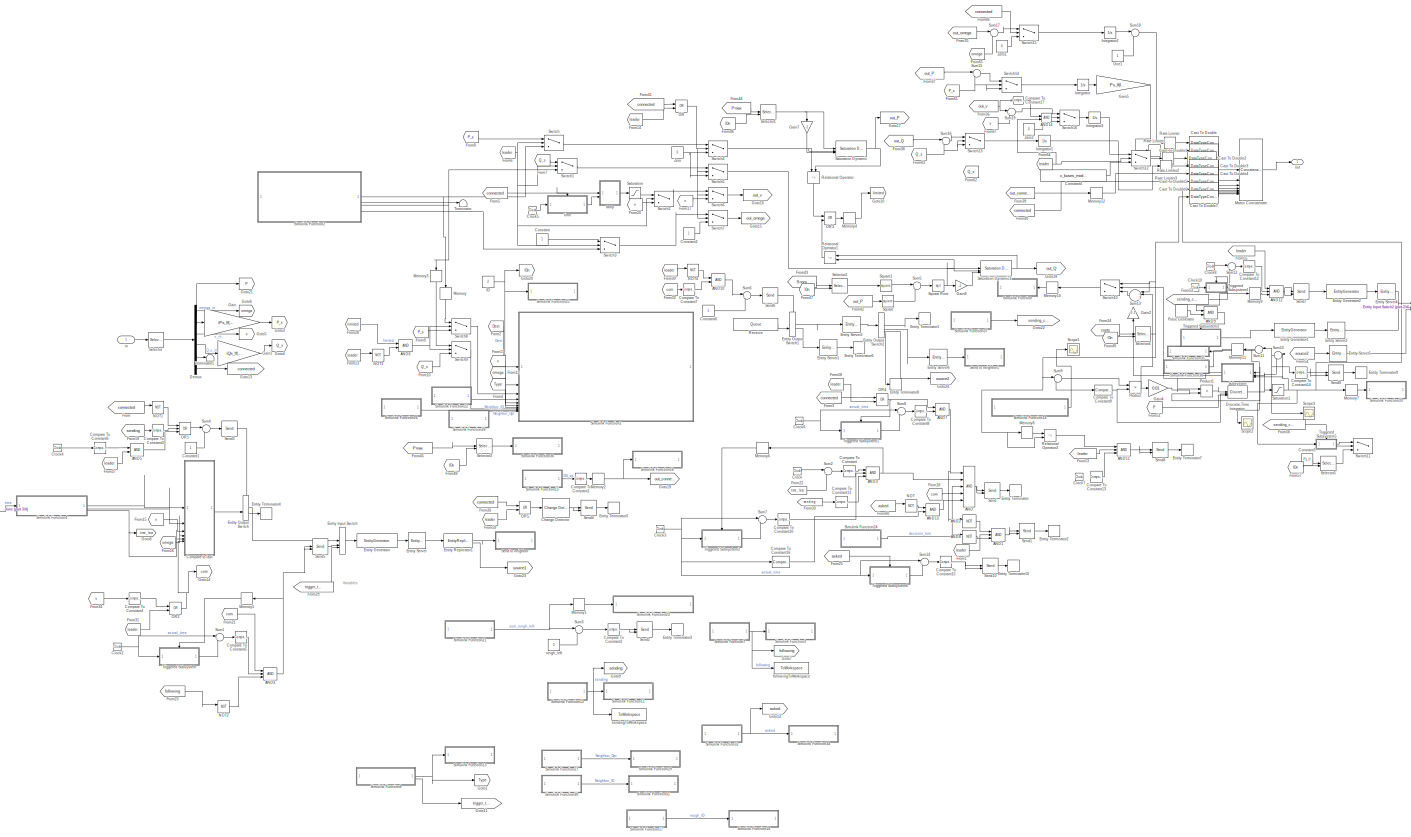
[diagram: MAS messages/ID2 - part 1/4, most of the canvas]
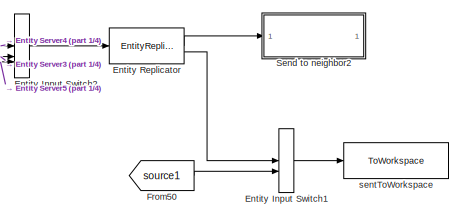
[diagram: MAS messages/ID2 - part 2/4, middle right region]
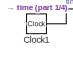
[diagram: MAS messages/ID2 - part 3/4, middle left region]
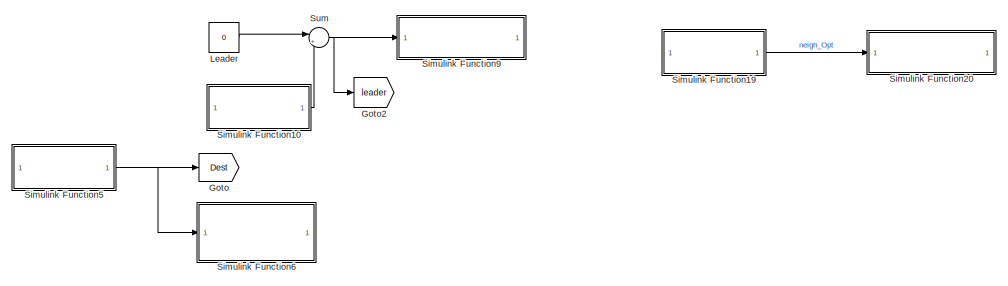
[diagram: MAS messages/ID2 - part 4/4, bottom center region]
BLOCK [SubSystem] MAS messages/ID2
  VariantControl = multi-agent
BLOCK [Logic] MAS messages/ID2/AND
  AllPortsSameDT = off
  IconShape = distinctive
  Inputs = 5
  OutDataTypeStr = boolean
BLOCK [Logic] MAS messages/ID2/AND1
  AllPortsSameDT = off
  IconShape = distinctive
  Inputs = 3
  OutDataTypeStr = boolean
BLOCK [Logic] MAS messages/ID2/AND10
  AllPortsSameDT = off
  IconShape = distinctive
  OutDataTypeStr = boolean
BLOCK [Logic] MAS messages/ID2/AND11
  AllPortsSameDT = off
  IconShape = distinctive
  Inputs = 3
  OutDataTypeStr = boolean
BLOCK [Logic] MAS messages/ID2/AND12
  AllPortsSameDT = off
  IconShape = distinctive
  Inputs = 3
  OutDataTypeStr = boolean
BLOCK [Logic] MAS messages/ID2/AND13
  AllPortsSameDT = off
  IconShape = distinctive
  OutDataTypeStr = boolean
BLOCK [Logic] MAS messages/ID2/AND14
  AllPortsSameDT = off
  IconShape = distinctive
  OutDataTypeStr = boolean
BLOCK [Logic] MAS messages/ID2/AND2
  AllPortsSameDT = off
  IconShape = distinctive
  Operator = NOT
  OutDataTypeStr = boolean
BLOCK [Logic] MAS messages/ID2/AND3
  AllPortsSameDT = off
  IconShape = distinctive
  Inputs = 3
  OutDataTypeStr = boolean
BLOCK [Logic] MAS messages/ID2/AND4
  AllPortsSameDT = off
  IconShape = distinctive
  Inputs = 3
  OutDataTypeStr = boolean
BLOCK [Logic] MAS messages/ID2/AND5
  AllPortsSameDT = off
  IconShape = distinctive
  OutDataTypeStr = boolean
BLOCK [Logic] MAS messages/ID2/AND6
  AllPortsSameDT = off
  IconShape = distinctive
  OutDataTypeStr = boolean
BLOCK [Logic] MAS messages/ID2/AND7
  AllPortsSameDT = off
  IconShape = distinctive
  OutDataTypeStr = boolean
BLOCK [Logic] MAS messages/ID2/AND8
  AllPortsSameDT = off
  IconShape = distinctive
  Operator = NOT
  OutDataTypeStr = boolean
BLOCK [Logic] MAS messages/ID2/AND9
  AllPortsSameDT = off
  IconShape = distinctive
  OutDataTypeStr = boolean
BLOCK [DataTypeConversion] MAS messages/ID2/Cast To Double
  OutDataTypeStr = double
  RndMeth = Floor
  SaturateOnIntegerOverflow = off
BLOCK [DataTypeConversion] MAS messages/ID2/Cast To Double1
  OutDataTypeStr = double
  RndMeth = Floor
  SaturateOnIntegerOverflow = off
BLOCK [DataTypeConversion] MAS messages/ID2/Cast To Double2
  OutDataTypeStr = double
  RndMeth = Floor
  SaturateOnIntegerOverflow = off
BLOCK [DataTypeConversion] MAS messages/ID2/Cast To Double3
  OutDataTypeStr = double
  RndMeth = Floor
  SaturateOnIntegerOverflow = off
BLOCK [DataTypeConversion] MAS messages/ID2/Cast To Double4
  OutDataTypeStr = double
  RndMeth = Floor
  SaturateOnIntegerOverflow = off
BLOCK [DataTypeConversion] MAS messages/ID2/Cast To Double5
  OutDataTypeStr = double
  RndMeth = Floor
  SaturateOnIntegerOverflow = off
BLOCK [DataTypeConversion] MAS messages/ID2/Cast To Double6
  OutDataTypeStr = double
  RndMeth = Floor
  SaturateOnIntegerOverflow = off
BLOCK [DataTypeConversion] MAS messages/ID2/Cast To Double7
  OutDataTypeStr = double
  RndMeth = Floor
  SaturateOnIntegerOverflow = off
BLOCK [Reference] MAS messages/ID2/Change Detector  REF=eeGeneralControl/Change Detector
  SourceBlock = eeGeneralControl/Change Detector
  SourceType = Change Detector
BLOCK [Clock] MAS messages/ID2/Clock
BLOCK [Clock] MAS messages/ID2/Clock1
BLOCK [Clock] MAS messages/ID2/Clock10
BLOCK [Clock] MAS messages/ID2/Clock2
BLOCK [Clock] MAS messages/ID2/Clock3
BLOCK [Clock] MAS messages/ID2/Clock4
BLOCK [Clock] MAS messages/ID2/Clock5
BLOCK [Clock] MAS messages/ID2/Clock6
BLOCK [Clock] MAS messages/ID2/Clock7
BLOCK [Clock] MAS messages/ID2/Clock8
BLOCK [Reference] MAS messages/ID2/Compare To Constant  REF=simulink/Logic and Bit
Operations/Compare
To Constant
  SourceBlock = simulink/Logic and Bit\nOperations/Compare\nTo Constant
  SourceType = Compare To Constant
BLOCK [Reference] MAS messages/ID2/Compare To Constant1  REF=simulink/Logic and Bit
Operations/Compare
To Constant
  SourceBlock = simulink/Logic and Bit\nOperations/Compare\nTo Constant
  SourceType = Compare To Constant
BLOCK [Reference] MAS messages/ID2/Compare To Constant10  REF=simulink/Logic and Bit
Operations/Compare
To Constant
  SourceBlock = simulink/Logic and Bit\nOperations/Compare\nTo Constant
  SourceType = Compare To Constant
BLOCK [Reference] MAS messages/ID2/Compare To Constant11  REF=simulink/Logic and Bit
Operations/Compare
To Constant
  SourceBlock = simulink/Logic and Bit\nOperations/Compare\nTo Constant
  SourceType = Compare To Constant
BLOCK [Reference] MAS messages/ID2/Compare To Constant12  REF=simulink/Logic and Bit
Operations/Compare
To Constant
  SourceBlock = simulink/Logic and Bit\nOperations/Compare\nTo Constant
  SourceType = Compare To Constant
BLOCK [Reference] MAS messages/ID2/Compare To Constant13  REF=simulink/Logic and Bit
Operations/Compare
To Constant
  SourceBlock = simulink/Logic and Bit\nOperations/Compare\nTo Constant
  SourceType = Compare To Constant
BLOCK [Reference] MAS messages/ID2/Compare To Constant14  REF=simulink/Logic and Bit
Operations/Compare
To Constant
  SourceBlock = simulink/Logic and Bit\nOperations/Compare\nTo Constant
  SourceType = Compare To Constant
BLOCK [Reference] MAS messages/ID2/Compare To Constant15  REF=simulink/Logic and Bit
Operations/Compare
To Constant
  SourceBlock = simulink/Logic and Bit\nOperations/Compare\nTo Constant
  SourceType = Compare To Constant
BLOCK [Reference] MAS messages/ID2/Compare To Constant16  REF=simulink/Logic and Bit
Operations/Compare
To Constant
  SourceBlock = simulink/Logic and Bit\nOperations/Compare\nTo Constant
  SourceType = Compare To Constant
BLOCK [Reference] MAS messages/ID2/Compare To Constant17  REF=simulink/Logic and Bit
Operations/Compare
To Constant
  SourceBlock = simulink/Logic and Bit\nOperations/Compare\nTo Constant
  SourceType = Compare To Constant
BLOCK [Reference] MAS messages/ID2/Compare To Constant2  REF=simulink/Logic and Bit
Operations/Compare
To Constant
  SourceBlock = simulink/Logic and Bit\nOperations/Compare\nTo Constant
  SourceType = Compare To Constant
BLOCK [Reference] MAS messages/ID2/Compare To Constant3  REF=simulink/Logic and Bit
Operations/Compare
To Constant
  SourceBlock = simulink/Logic and Bit\nOperations/Compare\nTo Constant
  SourceType = Compare To Constant
BLOCK [Reference] MAS messages/ID2/Compare To Constant4  REF=simulink/Logic and Bit
Operations/Compare
To Constant
  SourceBlock = simulink/Logic and Bit\nOperations/Compare\nTo Constant
  SourceType = Compare To Constant
BLOCK [Reference] MAS messages/ID2/Compare To Constant5  REF=simulink/Logic and Bit
Operations/Compare
To Constant
  SourceBlock = simulink/Logic and Bit\nOperations/Compare\nTo Constant
  SourceType = Compare To Constant
BLOCK [Reference] MAS messages/ID2/Compare To Constant6  REF=simulink/Logic and Bit
Operations/Compare
To Constant
  SourceBlock = simulink/Logic and Bit\nOperations/Compare\nTo Constant
  SourceType = Compare To Constant
BLOCK [Reference] MAS messages/ID2/Compare To Constant7  REF=simulink/Logic and Bit
Operations/Compare
To Constant
  SourceBlock = simulink/Logic and Bit\nOperations/Compare\nTo Constant
  SourceType = Compare To Constant
BLOCK [Reference] MAS messages/ID2/Compare To Constant8  REF=simulink/Logic and Bit
Operations/Compare
To Constant
  SourceBlock = simulink/Logic and Bit\nOperations/Compare\nTo Constant
  SourceType = Compare To Constant
BLOCK [Reference] MAS messages/ID2/Compare To Constant9  REF=simulink/Logic and Bit
Operations/Compare
To Constant
  SourceBlock = simulink/Logic and Bit\nOperations/Compare\nTo Constant
  SourceType = Compare To Constant
BLOCK [SubSystem] MAS messages/ID2/Compare to last
BLOCK [Logic] MAS messages/ID2/Compare to last/AND
  AllPortsSameDT = off
  IconShape = distinctive
  Inputs = 3
  OutDataTypeStr = boolean
BLOCK [Abs] MAS messages/ID2/Compare to last/Abs
  SaturateOnIntegerOverflow = off
  ZeroCross = off
BLOCK [Abs] MAS messages/ID2/Compare to last/Abs1
  SaturateOnIntegerOverflow = off
  ZeroCross = off
BLOCK [Clock] MAS messages/ID2/Compare to last/Clock1
BLOCK [Reference] MAS messages/ID2/Compare to last/Compare To Constant1  REF=simulink/Logic and Bit
Operations/Compare
To Constant
  SourceBlock = simulink/Logic and Bit\nOperations/Compare\nTo Constant
  SourceType = Compare To Constant
BLOCK [Reference] MAS messages/ID2/Compare to last/Compare To Constant2  REF=simulink/Logic and Bit
Operations/Compare
To Constant
  SourceBlock = simulink/Logic and Bit\nOperations/Compare\nTo Constant
  SourceType = Compare To Constant
BLOCK [Gain] MAS messages/ID2/Compare to last/Gain
  Gain = 1e4
BLOCK [Gain] MAS messages/ID2/Compare to last/Gain1
  Gain = 1e5
BLOCK [Inport] MAS messages/ID2/Compare to last/In1
  IconDisplay = Signal name
  Port = 3
BLOCK [Inport] MAS messages/ID2/Compare to last/In4
  IconDisplay = Signal name
  Port = 2
BLOCK [Inport] MAS messages/ID2/Compare to last/Output
  IconDisplay = Signal name
BLOCK [Inport] MAS messages/ID2/Compare to last/Output1
  IconDisplay = Signal name
  Port = 4
BLOCK [Send] MAS messages/ID2/Compare to last/Send1
  InputPortMap = e0,u1
  OutputPortMessageModes = m
  ShowEnablePort = on
BLOCK [Sum] MAS messages/ID2/Compare to last/Sum
  Inputs = |+-
BLOCK [Sum] MAS messages/ID2/Compare to last/Sum1
  Inputs = |+-
BLOCK [Sum] MAS messages/ID2/Compare to last/Sum2
  Inputs = |++
BLOCK [Sum] MAS messages/ID2/Compare to last/Sum5
  Inputs = |+-
BLOCK [Outport] MAS messages/ID2/Compare to last/Trigger
BLOCK [Inport] MAS messages/ID2/Compare to last/com
  Port = 6
BLOCK [Inport] MAS messages/ID2/Compare to last/time_last
  Port = 5
BLOCK [Constant] MAS messages/ID2/Constant
BLOCK [Constant] MAS messages/ID2/Constant1
BLOCK [Constant] MAS messages/ID2/Constant2
BLOCK [Constant] MAS messages/ID2/Constant3
  Value = Ps_lf
  VectorParams1D = off
BLOCK [Constant] MAS messages/ID2/Constant4
  Value = v_buses_mod(buses_lf(IDnumber))
BLOCK [Constant] MAS messages/ID2/Constant6
BLOCK [Demux] MAS messages/ID2/Demux
  Outputs = 6
BLOCK [DiscreteIntegrator] MAS messages/ID2/Discrete-Time Integrator
  ExternalReset = rising
  ICPrevOutput = DiscIntNeverNeededParam
  ICPrevScaledInput = DiscIntNeverNeededParam
  InitialConditionSetting = Auto
  InitialConditionSource = external
BLOCK [EntityGenerator] MAS messages/ID2/Entity Generator
  AttributeInitialValue = 0|0|0|0|0|0|0|1|0|0|1|1
  AttributeName = DG_up|Source|Dest|P_s|Q_s|v|omega|Opt|type|Select|Neighbor_ID|Neighbor_Opt
  EntityType = Structured
  EntityTypeName = Message
  GenerationMethod = Event-based
  InputPortMap = u0
  InputPortMessageModes = m
  OutputPortMap = o3
  OutputPortMessageModes = m
  Period = 0.01
BLOCK [EntityGenerator] MAS messages/ID2/Entity Generator1
  AttributeInitialValue = 0|0|0|0|0|0|0|1|0|0|1|1
  AttributeName = DG_up|Source|Dest|P_s|Q_s|v|omega|Opt|type|Select|Neighbor_ID|Neighbor_Opt
  EntityType = Structured
  EntityTypeName = Message
  GenerateEntityAtSimulationStart = off
  GenerationMethod = Event-based
  InputPortMap = u0
  InputPortMessageModes = m
  OutputPortMap = o3
  OutputPortMessageModes = m
  Period = 0.1
  TimeSource = Signal port
BLOCK [EntityGenerator] MAS messages/ID2/Entity Generator2
  AttributeInitialValue = 0|0|0|0|0|0|0|1|0|0|1|1
  AttributeName = DG_up|Source|Dest|P_s|Q_s|v|omega|Opt|type|Select|Neighbor_ID|Neighbor_Opt
  EntityType = Structured
  EntityTypeName = Message
  GenerateEntityAtSimulationStart = off
  GenerationMethod = Event-based
  InputPortMap = u0
  InputPortMessageModes = m
  OutputPortMap = o3
  OutputPortMessageModes = m
  Period = 0.1
  TimeSource = Signal port
BLOCK [EntityInputSwitch] MAS messages/ID2/Entity Input Switch
  InputPortMap = u1,u2,u3
  InputPortMessageModes = m,m,m
  NumberInputPorts = 3
  OutputPortMap = o0
  OutputPortMessageModes = m
BLOCK [EntityInputSwitch] MAS messages/ID2/Entity Input Switch1
  InputPortMap = u1,u2
  InputPortMessageModes = m,m
  OutputPortMap = o0
  OutputPortMessageModes = m
BLOCK [EntityInputSwitch] MAS messages/ID2/Entity Input Switch2
  InputPortMap = u1,u2,u3
  InputPortMessageModes = m,m,m
  NumberInputPorts = 3
  OutputPortMap = o0
  OutputPortMessageModes = m
BLOCK [EntityOutputSwitch] MAS messages/ID2/Entity Output Switch
  InputPortMap = u0,u1
  InputPortMessageModes = m,m
  OutputPortMap = o0,o1
  OutputPortMessageModes = m,m
  SwitchAttributeName = Attribute1
  SwitchingCriterion = From control port
BLOCK [EntityOutputSwitch] MAS messages/ID2/Entity Output Switch1
  InputPortMap = u0,u1
  InputPortMessageModes = m,m
  OutputPortMap = o0,o1
  OutputPortMessageModes = m,m
  SwitchAttributeName = Attribute1
  SwitchingCriterion = From control port
BLOCK [EntityOutputSwitch] MAS messages/ID2/Entity Output Switch2
  InputPortMap = u1
  InputPortMessageModes = m
  NumberOutputPorts = 4
  OutputPortMap = o0,o1,o2,o3
  OutputPortMessageModes = m,m,m,m
  SwitchAttributeName = Select
  SwitchingCriterion = From attribute
BLOCK [EntityReplicator] MAS messages/ID2/Entity Replicator
  InputPortMap = u0
  InputPortMessageModes = m
  OutputPortMap = o0,o1
  OutputPortMessageModes = m,m
BLOCK [EntityReplicator] MAS messages/ID2/Entity Replicator1
  InputPortMap = u0
  InputPortMessageModes = m
  OutputPortMap = o0,o1
  OutputPortMessageModes = m,m
BLOCK [EntityServer] MAS messages/ID2/Entity Server
  Capacity = 1
  InputPortMap = u2
  InputPortMessageModes = m
  OutputPortMap = o9
  OutputPortMessageModes = m
  ServiceCompleteAction = last_send(entity.v, entity.omega);
  ServiceTimeValue = 0.1
BLOCK [EntityServer] MAS messages/ID2/Entity Server1
  Capacity = 1
  InputPortMap = u2
  InputPortMessageModes = m
  OutputPortMap = o9
  OutputPortMessageModes = m
  ServiceTimeValue = 1e-10
BLOCK [EntityServer] MAS messages/ID2/Entity Server2
  Capacity = 1
  InputPortMap = u2
  InputPortMessageModes = m
  OutputPortMap = o9
  OutputPortMessageModes = m
  ServiceTimeValue = 1e-10
BLOCK [EntityServer] MAS messages/ID2/Entity Server3
  Capacity = 1
  InputPortMap = u2
  InputPortMessageModes = m
  OutputPortMap = o9
  OutputPortMessageModes = m
  ServiceTimeValue = 0.05
BLOCK [EntityServer] MAS messages/ID2/Entity Server4
  Capacity = 1
  EntryAction = entity.type = 10;\nentity.Dest = get_sending();\nset_sending_cost(0)\nset_cost_info(0)\nentity.Source = get_ID();
  InputPortMap = u2
  InputPortMessageModes = m
  OutputPortMap = o9
  OutputPortMessageModes = m
  ServiceTimeValue = 0.05
BLOCK [EntityServer] MAS messages/ID2/Entity Server5
  Capacity = 1
  EntryAction = set_cost_info(0)\nset_sending_cost(0)\nentity.Source = get_ID();
  InputPortMap = u2
  InputPortMessageModes = m
  OutputPortMap = o9
  OutputPortMessageModes = m
  ServiceTimeValue = 0.05
BLOCK [EntityServer] MAS messages/ID2/Entity Server6
  Capacity = 1
  InputPortMap = u2
  InputPortMessageModes = m
  OutputPortMap = o9
  OutputPortMessageModes = m
  ServiceTimeValue = 0.05
BLOCK [EntityTerminator] MAS messages/ID2/Entity Terminator
  InputPortMap = u0
  InputPortMessageModes = m
BLOCK [EntityTerminator] MAS messages/ID2/Entity Terminator1
  InputPortMap = u0
  InputPortMessageModes = m
BLOCK [EntityTerminator] MAS messages/ID2/Entity Terminator10
  EntryAction = set_asked(0);
  InputPortMap = u0
  InputPortMessageModes = m
BLOCK [EntityTerminator] MAS messages/ID2/Entity Terminator2
  EntryAction = set_DG_up(1);\nset_decision_turn(1);
  InputPortMap = u0
  InputPortMessageModes = m
BLOCK [EntityTerminator] MAS messages/ID2/Entity Terminator3
  InputPortMap = u0
  InputPortMessageModes = m
BLOCK [EntityTerminator] MAS messages/ID2/Entity Terminator4
  EntryAction = [~, ~, ~, ~, v, omega, ~, ~, ~, ~] = package();\nlast_send(0,0);
  InputPortMap = u0
  InputPortMessageModes = m
BLOCK [EntityTerminator] MAS messages/ID2/Entity Terminator5
  EntryAction = set_DG_up(0);
  InputPortMap = u0
  InputPortMessageModes = m
BLOCK [EntityTerminator] MAS messages/ID2/Entity Terminator6
  EntryAction = if entity.type == 6 % asking for startup\n    set_Opt(-5); % I cannot start\n    send_to(entity.Source);\n    type(7); % startup data\nend
  InputPortMap = u0
  InputPortMessageModes = m
BLOCK [EntityTerminator] MAS messages/ID2/Entity Terminator7
  EntryAction = set_sending_cost(1)
  InputPortMap = u0
  InputPortMessageModes = m
BLOCK [EntityTerminator] MAS messages/ID2/Entity Terminator8
  InputPortMap = u0
  InputPortMessageModes = m
BLOCK [EntityTerminator] MAS messages/ID2/Entity Terminator9
  EntryAction = set_extra_satur(0)
  InputPortMap = u0
  InputPortMessageModes = m
BLOCK [From] MAS messages/ID2/From
  GotoTag = connected
BLOCK [From] MAS messages/ID2/From1
  GotoTag = leader
BLOCK [From] MAS messages/ID2/From10
  GotoTag = Q_s
BLOCK [From] MAS messages/ID2/From11
  GotoTag = v
BLOCK [From] MAS messages/ID2/From12
  GotoTag = omega
BLOCK [From] MAS messages/ID2/From13
  GotoTag = leader
BLOCK [From] MAS messages/ID2/From14
  GotoTag = leader
BLOCK [From] MAS messages/ID2/From15
  GotoTag = v
BLOCK [From] MAS messages/ID2/From16
  GotoTag = omega
BLOCK [From] MAS messages/ID2/From17
  GotoTag = v
BLOCK [From] MAS messages/ID2/From18
  GotoTag = com
BLOCK [From] MAS messages/ID2/From19
  GotoTag = sending
BLOCK [From] MAS messages/ID2/From2
  GotoTag = Dest
BLOCK [From] MAS messages/ID2/From20
  GotoTag = v
BLOCK [From] MAS messages/ID2/From21
  GotoTag = com
BLOCK [From] MAS messages/ID2/From22
  GotoTag = time_last
  NameLocation = top
BLOCK [From] MAS messages/ID2/From23
  GotoTag = following
BLOCK [From] MAS messages/ID2/From24
  GotoTag = costs
  TagVisibility = scoped
BLOCK [From] MAS messages/ID2/From25
  GotoTag = asked
BLOCK [From] MAS messages/ID2/From26
  GotoTag = connected
BLOCK [From] MAS messages/ID2/From27
  GotoTag = leader
BLOCK [From] MAS messages/ID2/From28
  GotoTag = limited
BLOCK [From] MAS messages/ID2/From29
  GotoTag = trigger_type
BLOCK [From] MAS messages/ID2/From3
  GotoTag = connected
BLOCK [From] MAS messages/ID2/From30
  GotoTag = leader
BLOCK [From] MAS messages/ID2/From31
  GotoTag = leader
BLOCK [From] MAS messages/ID2/From32
  GotoTag = com
BLOCK [From] MAS messages/ID2/From33
  GotoTag = sending
BLOCK [From] MAS messages/ID2/From34
  GotoTag = v
BLOCK [From] MAS messages/ID2/From35
  GotoTag = out_omega
BLOCK [From] MAS messages/ID2/From36
  GotoTag = out_v
BLOCK [From] MAS messages/ID2/From37
  GotoTag = out_P
BLOCK [From] MAS messages/ID2/From38
  GotoTag = out_Q
BLOCK [From] MAS messages/ID2/From39
  GotoTag = out_connect
BLOCK [From] MAS messages/ID2/From4
  GotoTag = Type
BLOCK [From] MAS messages/ID2/From40
  GotoTag = connected
BLOCK [From] MAS messages/ID2/From41
  GotoTag = connected
BLOCK [From] MAS messages/ID2/From42
  GotoTag = out_P
BLOCK [From] MAS messages/ID2/From43
  GotoTag = Snom
  TagVisibility = scoped
BLOCK [From] MAS messages/ID2/From44
  GotoTag = Pmax
  TagVisibility = scoped
BLOCK [From] MAS messages/ID2/From45
  GotoTag = Pmax
  TagVisibility = scoped
BLOCK [From] MAS messages/ID2/From46
  GotoTag = IDn
BLOCK [From] MAS messages/ID2/From47
  GotoTag = IDn
BLOCK [From] MAS messages/ID2/From48
  GotoTag = IDn
BLOCK [From] MAS messages/ID2/From49
  GotoTag = IDn
BLOCK [From] MAS messages/ID2/From5
  GotoTag = connected
BLOCK [From] MAS messages/ID2/From50
  GotoTag = source1
BLOCK [From] MAS messages/ID2/From51
  GotoTag = P
BLOCK [From] MAS messages/ID2/From52
  GotoTag = sending_cost
BLOCK [From] MAS messages/ID2/From53
  GotoTag = leader
BLOCK [From] MAS messages/ID2/From54
  GotoTag = source2
BLOCK [From] MAS messages/ID2/From55
  GotoTag = leader
BLOCK [From] MAS messages/ID2/From56
  GotoTag = sending_cost
BLOCK [From] MAS messages/ID2/From57
  GotoTag = IDn
BLOCK [From] MAS messages/ID2/From58
  GotoTag = leader
BLOCK [From] MAS messages/ID2/From59
  GotoTag = leader
BLOCK [From] MAS messages/ID2/From6
  GotoTag = leader
BLOCK [From] MAS messages/ID2/From60
  GotoTag = asked
BLOCK [From] MAS messages/ID2/From61
  GotoTag = P_s
BLOCK [From] MAS messages/ID2/From62
  Commented = on
  GotoTag = Q_s
BLOCK [From] MAS messages/ID2/From63
  GotoTag = Q_s
BLOCK [From] MAS messages/ID2/From64
  GotoTag = leader
BLOCK [From] MAS messages/ID2/From65
  GotoTag = omega
BLOCK [From] MAS messages/ID2/From66
  GotoTag = connected
BLOCK [From] MAS messages/ID2/From67
  GotoTag = v
BLOCK [From] MAS messages/ID2/From7
  GotoTag = Q_s
BLOCK [From] MAS messages/ID2/From8
  GotoTag = P_s
BLOCK [From] MAS messages/ID2/From9
  GotoTag = P_s
BLOCK [Gain] MAS messages/ID2/Gain
  Gain = iPs_lf(IDnumber)/Sb
BLOCK [Gain] MAS messages/ID2/Gain1
  Commented = through
  Gain = iQs_lf(IDnumber)
BLOCK [Gain] MAS messages/ID2/Gain2
  Gain = 0.1
  NameLocation = right
BLOCK [Gain] MAS messages/ID2/Gain4
  Gain = 0.01
BLOCK [Gain] MAS messages/ID2/Gain5
  Gain = Ps_lf(IDnumber)*Sb
BLOCK [Gain] MAS messages/ID2/Gain7
  Gain = -1
  NameLocation = left
BLOCK [Gain] MAS messages/ID2/Gain8
  Gain = -1
BLOCK [Goto] MAS messages/ID2/Goto
  GotoTag = Dest
BLOCK [Goto] MAS messages/ID2/Goto1
  GotoTag = Type
BLOCK [Goto] MAS messages/ID2/Goto10
  GotoTag = limited
BLOCK [Goto] MAS messages/ID2/Goto11
  GotoTag = trigger_type
BLOCK [Goto] MAS messages/ID2/Goto12
  GotoTag = asked
BLOCK [Goto] MAS messages/ID2/Goto13
  GotoTag = connected
BLOCK [Goto] MAS messages/ID2/Goto14
  GotoTag = com
BLOCK [Goto] MAS messages/ID2/Goto15
  GotoTag = out_omega
BLOCK [Goto] MAS messages/ID2/Goto16
  GotoTag = out_v
BLOCK [Goto] MAS messages/ID2/Goto17
  GotoTag = out_P
BLOCK [Goto] MAS messages/ID2/Goto18
  GotoTag = out_Q
BLOCK [Goto] MAS messages/ID2/Goto19
  GotoTag = out_connect
BLOCK [Goto] MAS messages/ID2/Goto2
  GotoTag = leader
BLOCK [Goto] MAS messages/ID2/Goto20
  GotoTag = IDn
BLOCK [Goto] MAS messages/ID2/Goto21
  GotoTag = P
BLOCK [Goto] MAS messages/ID2/Goto22
  GotoTag = sending_cost
BLOCK [Goto] MAS messages/ID2/Goto23
  GotoTag = source1
BLOCK [Goto] MAS messages/ID2/Goto24
  GotoTag = source2
BLOCK [Goto] MAS messages/ID2/Goto3
  GotoTag = P_s
BLOCK [Goto] MAS messages/ID2/Goto4
  GotoTag = Q_s
BLOCK [Goto] MAS messages/ID2/Goto5
  GotoTag = v
BLOCK [Goto] MAS messages/ID2/Goto6
  GotoTag = omega
BLOCK [Goto] MAS messages/ID2/Goto7
  GotoTag = following
BLOCK [Goto] MAS messages/ID2/Goto8
  GotoTag = time_last
BLOCK [Goto] MAS messages/ID2/Goto9
  GotoTag = sending
BLOCK [Constant] MAS messages/ID2/ID
  Value = 2
BLOCK [Integrator] MAS messages/ID2/Integrator
BLOCK [Integrator] MAS messages/ID2/Integrator1
BLOCK [Integrator] MAS messages/ID2/Integrator2
BLOCK [Integrator] MAS messages/ID2/Integrator3
BLOCK [Constant] MAS messages/ID2/Leader
  Value = 0
BLOCK [Concatenate] MAS messages/ID2/Matrix Concatenate
  Mode = Multidimensional array
  NumInputs = 8
BLOCK [Memory] MAS messages/ID2/Memory
  NameLocation = left
BLOCK [Memory] MAS messages/ID2/Memory1
BLOCK [Memory] MAS messages/ID2/Memory10
BLOCK [Memory] MAS messages/ID2/Memory11
BLOCK [Memory] MAS messages/ID2/Memory12
  InitialCondition = 1
BLOCK [Memory] MAS messages/ID2/Memory2
  InitialCondition = 1
BLOCK [Memory] MAS messages/ID2/Memory3
  NameLocation = left
BLOCK [Memory] MAS messages/ID2/Memory4
BLOCK [Memory] MAS messages/ID2/Memory5
BLOCK [Memory] MAS messages/ID2/Memory6
BLOCK [Memory] MAS messages/ID2/Memory7
BLOCK [Memory] MAS messages/ID2/Memory8
BLOCK [Memory] MAS messages/ID2/Memory9
BLOCK [Logic] MAS messages/ID2/NOT
  AllPortsSameDT = off
  IconShape = distinctive
  Operator = NOT
  OutDataTypeStr = boolean
BLOCK [Logic] MAS messages/ID2/NOT1
  AllPortsSameDT = off
  IconShape = distinctive
  Operator = NOT
  OutDataTypeStr = boolean
BLOCK [Logic] MAS messages/ID2/NOT2
  AllPortsSameDT = off
  IconShape = distinctive
  Operator = NOT
  OutDataTypeStr = boolean
BLOCK [Logic] MAS messages/ID2/NOT3
  AllPortsSameDT = off
  IconShape = distinctive
  Operator = NOT
  OutDataTypeStr = boolean
BLOCK [Logic] MAS messages/ID2/NOT4
  AllPortsSameDT = off
  IconShape = distinctive
  Operator = NOT
  OutDataTypeStr = boolean
BLOCK [Logic] MAS messages/ID2/OR
  AllPortsSameDT = off
  IconShape = distinctive
  Operator = OR
  OutDataTypeStr = boolean
BLOCK [Logic] MAS messages/ID2/OR1
  AllPortsSameDT = off
  IconShape = distinctive
  Inputs = 3
  Operator = OR
  OutDataTypeStr = boolean
BLOCK [Logic] MAS messages/ID2/OR2
  AllPortsSameDT = off
  IconShape = distinctive
  Operator = OR
  OutDataTypeStr = boolean
BLOCK [Logic] MAS messages/ID2/OR3
  AllPortsSameDT = off
  IconShape = distinctive
  Operator = OR
  OutDataTypeStr = boolean
BLOCK [Logic] MAS messages/ID2/OR4
  AllPortsSameDT = off
  IconShape = distinctive
  Operator = OR
  OutDataTypeStr = boolean
BLOCK [Logic] MAS messages/ID2/OR5
  AllPortsSameDT = off
  IconShape = distinctive
  Operator = OR
  OutDataTypeStr = boolean
BLOCK [Constant] MAS messages/ID2/One1
  OutDataTypeStr = Inherit: Inherit via back propagation
BLOCK [Product] MAS messages/ID2/Product
BLOCK [Product] MAS messages/ID2/Product1
BLOCK [DiscretePulseGenerator] MAS messages/ID2/Pulse Generator
  Commented = on
  Period = 1
  PhaseDelay = 0.5
  PulseType = Time based
  PulseWidth = 50
BLOCK [RateLimiter] MAS messages/ID2/Rate Limiter
  FallingSlewLimit = -0.1
  InitialCondition = 1
  RisingSlewLimit = 0.1
  SampleTimeMode = inherited
BLOCK [RateLimiter] MAS messages/ID2/Rate Limiter1
  FallingSlewLimit = -0.1
  InitialCondition = Ps_lf(IDnumber)
  RisingSlewLimit = 0.1
  SampleTimeMode = inherited
BLOCK [RateLimiter] MAS messages/ID2/Rate Limiter2
  FallingSlewLimit = -0.1
  InitialCondition = v_buses_mod(buses_lf(IDnumber))
  RisingSlewLimit = 0.1
  SampleTimeMode = inherited
BLOCK [RateLimiter] MAS messages/ID2/Rate Limiter3
  FallingSlewLimit = -0.1
  InitialCondition = Qs_lf(IDnumber)
  RisingSlewLimit = 0.1
  SampleTimeMode = inherited
BLOCK [Queue] MAS messages/ID2/Receive
  Capacity = 10
  EntityArrivalSource = Multicast
  MulticastTag = ID2
  OutputPortMap = o5
  OutputPortMessageModes = m
BLOCK [RelationalOperator] MAS messages/ID2/Relational Operator
  InputSameDT = off
  NameLocation = left
  Operator = ~=
  OutDataTypeStr = boolean
  RndMeth = Simplest
  ZeroCross = off
BLOCK [RelationalOperator] MAS messages/ID2/Relational Operator1
  InputSameDT = off
  NameLocation = top
  Operator = ~=
  OutDataTypeStr = boolean
  RndMeth = Simplest
  ZeroCross = off
BLOCK [RelationalOperator] MAS messages/ID2/Relational Operator2
  InputSameDT = off
  Operator = ~=
  OutDataTypeStr = boolean
  RndMeth = Simplest
BLOCK [Saturate] MAS messages/ID2/Saturation
  LowerLimit = 0
  UpperLimit = v_buses_mod(buses_lf(IDnumber))
  ZeroCross = off
BLOCK [Reference] MAS messages/ID2/Saturation Dynamic  REF=simulink/Discontinuities/Saturation
Dynamic
  SourceBlock = simulink/Discontinuities/Saturation\nDynamic
  SourceType = Saturation Dynamic
BLOCK [Reference] MAS messages/ID2/Saturation Dynamic1  REF=simulink/Discontinuities/Saturation
Dynamic
  SourceBlock = simulink/Discontinuities/Saturation\nDynamic
  SourceType = Saturation Dynamic
BLOCK [Saturate] MAS messages/ID2/Saturation1
  LowerLimit = 0.1
  UpperLimit = 6
BLOCK [Scope] MAS messages/ID2/Scope1
  ActiveDisplayYMaximum = 3.4211
  ActiveDisplayYMinimum = -0.38013
  DataLoggingVariableName = ScopeData2
  Floating = off
  LayoutDimensionsString = [1 1]
  NumInputPorts = 1
  WasSavedAsWebScope = on
  WindowPosition = [783 185 560 420]
BLOCK [Scope] MAS messages/ID2/Scope2
  ActiveDisplayYMaximum = 6.8507
  ActiveDisplayYMinimum = -6.8507
  DataLoggingVariableName = ScopeData1
  Floating = off
  LayoutDimensionsString = [1 1]
  NumInputPorts = 1
  WasSavedAsWebScope = on
  WindowPosition = [1184 103 560 420]
BLOCK [Scope] MAS messages/ID2/Scope3
  ActiveDisplayYMaximum = 0.00633
  ActiveDisplayYMinimum = -0.0007
  DataLoggingVariableName = ScopeData2
  Floating = off
  LayoutDimensionsString = [1 1]
  NumInputPorts = 1
  WasSavedAsWebScope = on
  WindowPosition = [1184 103 560 420]
BLOCK [Selector] MAS messages/ID2/Selector
  IndexOptions = Select all,Index vector (dialog)
  Indices = ID,str2double(ID)
  InputPortWidth = 3
  NumberOfDimensions = 2
  OutputSizes = 1,1
BLOCK [Selector] MAS messages/ID2/Selector1
  IndexOptions = Index vector (port)
  Indices = [1 3]
  InputPortWidth = length(buses_lf)
  OutputSizes = 1
BLOCK [Selector] MAS messages/ID2/Selector2
  IndexOptions = Index vector (port)
  Indices = [1 3]
  InputPortWidth = length(buses_lf)
  OutputSizes = 1
BLOCK [Selector] MAS messages/ID2/Selector3
  IndexOptions = Index vector (port)
  Indices = [1 3]
  InputPortWidth = length(buses_lf)
  OutputSizes = 1
BLOCK [Selector] MAS messages/ID2/Selector4
  IndexOptions = Index vector (port)
  Indices = [1 3]
  InputPortWidth = length(buses_lf)
  OutputSizes = 1
BLOCK [Selector] MAS messages/ID2/Selector5
  IndexOptions = Index vector (port)
  Indices = [1 3]
  InputPortWidth = length(buses_lf)
  OutputSizes = 1
BLOCK [Send] MAS messages/ID2/Send
  InputPortMap = e0,u1
  OutputPortMessageModes = m
  ShowEnablePort = on
BLOCK [SubSystem] MAS messages/ID2/Send to neighbor
  LabelModeActiveChoice = two
  Variant = on
  VariantControlMode = label
BLOCK [Inport] MAS messages/ID2/Send to neighbor/Message
BLOCK [SubSystem] MAS messages/ID2/Send to neighbor/five
  VariantControl = five
BLOCK [EntityMulticast] MAS messages/ID2/Send to neighbor/five/Cast1
  InputPortMap = u0
  InputPortMessageModes = m
  MulticastTag = ID2
BLOCK [EntityMulticast] MAS messages/ID2/Send to neighbor/five/Cast1all
  InputPortMap = u0
  InputPortMessageModes = m
  MulticastTag = ID2
BLOCK [EntityMulticast] MAS messages/ID2/Send to neighbor/five/Cast2
  InputPortMap = u0
  InputPortMessageModes = m
  MulticastTag = ID2
BLOCK [EntityMulticast] MAS messages/ID2/Send to neighbor/five/Cast2all
  InputPortMap = u0
  InputPortMessageModes = m
  MulticastTag = ID2
BLOCK [EntityMulticast] MAS messages/ID2/Send to neighbor/five/Cast3
  InputPortMap = u0
  InputPortMessageModes = m
  MulticastTag = ID0
BLOCK [EntityMulticast] MAS messages/ID2/Send to neighbor/five/Cast3all
  InputPortMap = u0
  InputPortMessageModes = m
  MulticastTag = ID0
BLOCK [EntityMulticast] MAS messages/ID2/Send to neighbor/five/Cast4
  InputPortMap = u0
  InputPortMessageModes = m
  MulticastTag = ID0
BLOCK [EntityMulticast] MAS messages/ID2/Send to neighbor/five/Cast4all
  InputPortMap = u0
  InputPortMessageModes = m
  MulticastTag = ID0
BLOCK [EntityMulticast] MAS messages/ID2/Send to neighbor/five/Cast5
  InputPortMap = u0
  InputPortMessageModes = m
  MulticastTag = ID0
BLOCK [EntityMulticast] MAS messages/ID2/Send to neighbor/five/Cast5all
  InputPortMap = u0
  InputPortMessageModes = m
  MulticastTag = ID0
BLOCK [EntityOutputSwitch] MAS messages/ID2/Send to neighbor/five/Entity Output Switch
  InitialPortSelection = 3
  InputPortMap = u1
  InputPortMessageModes = m
  NumberOutputPorts = 6
  OutputPortMap = o0,o1,o2,o3,o4,o5
  OutputPortMessageModes = m,m,m,m,m,m
  SwitchAttributeName = Select
  SwitchingCriterion = From attribute
BLOCK [EntityReplicator] MAS messages/ID2/Send to neighbor/five/Entity Replicator1
  InputPortMap = u0
  InputPortMessageModes = m
  NumberReplicas = 4
  OutputPortMap = o0,o1,o2,o3,o4
  OutputPortMessageModes = m,m,m,m,m
BLOCK [EntityServer] MAS messages/ID2/Send to neighbor/five/Entity Server
  Capacity = 1
  EntryAction = entity.Select = select(entity.Dest);
  InputPortMap = u2
  InputPortMessageModes = m
  OutputPortMap = o9
  OutputPortMessageModes = m
  ServiceTimeValue = 0
BLOCK [Inport] MAS messages/ID2/Send to neighbor/five/Message
  IconDisplay = Signal name
BLOCK [SubSystem] MAS messages/ID2/Send to neighbor/five/select
  TreatAsAtomicUnit = on
BLOCK [Reference] MAS messages/ID2/Send to neighbor/five/select/All  REF=simulink/Logic and Bit
Operations/Compare
To Constant
  SourceBlock = simulink/Logic and Bit\nOperations/Compare\nTo Constant
  SourceType = Compare To Constant
BLOCK [Gain] MAS messages/ID2/Send to neighbor/five/select/Gain
  OutDataTypeStr = double
BLOCK [Gain] MAS messages/ID2/Send to neighbor/five/select/Gain1
  Gain = 2
  OutDataTypeStr = double
BLOCK [Gain] MAS messages/ID2/Send to neighbor/five/select/Gain2
  Gain = 6
  OutDataTypeStr = double
BLOCK [Gain] MAS messages/ID2/Send to neighbor/five/select/Gain3
  Gain = 3
  OutDataTypeStr = double
BLOCK [Gain] MAS messages/ID2/Send to neighbor/five/select/Gain4
  Gain = 4
  OutDataTypeStr = double
BLOCK [Gain] MAS messages/ID2/Send to neighbor/five/select/Gain5
  Gain = 5
  OutDataTypeStr = double
BLOCK [Reference] MAS messages/ID2/Send to neighbor/five/select/Neighbor1  REF=simulink/Logic and Bit
Operations/Compare
To Constant
  SourceBlock = simulink/Logic and Bit\nOperations/Compare\nTo Constant
  SourceType = Compare To Constant
BLOCK [Reference] MAS messages/ID2/Send to neighbor/five/select/Neighbor2  REF=simulink/Logic and Bit
Operations/Compare
To Constant
  SourceBlock = simulink/Logic and Bit\nOperations/Compare\nTo Constant
  SourceType = Compare To Constant
BLOCK [Reference] MAS messages/ID2/Send to neighbor/five/select/Neighbor3  REF=simulink/Logic and Bit
Operations/Compare
To Constant
  SourceBlock = simulink/Logic and Bit\nOperations/Compare\nTo Constant
  SourceType = Compare To Constant
BLOCK [Reference] MAS messages/ID2/Send to neighbor/five/select/Neighbor4  REF=simulink/Logic and Bit
Operations/Compare
To Constant
  SourceBlock = simulink/Logic and Bit\nOperations/Compare\nTo Constant
  SourceType = Compare To Constant
BLOCK [Reference] MAS messages/ID2/Send to neighbor/five/select/Neighbor5  REF=simulink/Logic and Bit
Operations/Compare
To Constant
  SourceBlock = simulink/Logic and Bit\nOperations/Compare\nTo Constant
  SourceType = Compare To Constant
BLOCK [Sum] MAS messages/ID2/Send to neighbor/five/select/Sum
  IconShape = rectangular
  Inputs = |++++++
BLOCK [TriggerPort] MAS messages/ID2/Send to neighbor/five/select/select
  FunctionName = select
  FunctionVisibility = scoped
  IsSimulinkFunction = on
  StatesWhenEnabling = held
  TriggerType = function-call
  VariantControl = (inherit)
BLOCK [ArgIn] MAS messages/ID2/Send to neighbor/five/select/u
  ArgumentName = u
  DisableCoverage = on
BLOCK [ArgOut] MAS messages/ID2/Send to neighbor/five/select/y
  ArgumentName = y
BLOCK [SubSystem] MAS messages/ID2/Send to neighbor/four
  VariantControl = four
BLOCK [EntityMulticast] MAS messages/ID2/Send to neighbor/four/Cast1
  InputPortMap = u0
  InputPortMessageModes = m
  MulticastTag = ID1
BLOCK [EntityMulticast] MAS messages/ID2/Send to neighbor/four/Cast1all
  InputPortMap = u0
  InputPortMessageModes = m
  MulticastTag = ID1
BLOCK [EntityMulticast] MAS messages/ID2/Send to neighbor/four/Cast2
  InputPortMap = u0
  InputPortMessageModes = m
  MulticastTag = ID3
BLOCK [EntityMulticast] MAS messages/ID2/Send to neighbor/four/Cast2all
  InputPortMap = u0
  InputPortMessageModes = m
  MulticastTag = ID3
BLOCK [EntityMulticast] MAS messages/ID2/Send to neighbor/four/Cast3
  InputPortMap = u0
  InputPortMessageModes = m
  MulticastTag = ID0
BLOCK [EntityMulticast] MAS messages/ID2/Send to neighbor/four/Cast3all
  InputPortMap = u0
  InputPortMessageModes = m
  MulticastTag = ID0
BLOCK [EntityMulticast] MAS messages/ID2/Send to neighbor/four/Cast4
  InputPortMap = u0
  InputPortMessageModes = m
  MulticastTag = ID0
BLOCK [EntityMulticast] MAS messages/ID2/Send to neighbor/four/Cast4all
  InputPortMap = u0
  InputPortMessageModes = m
  MulticastTag = ID0
BLOCK [EntityOutputSwitch] MAS messages/ID2/Send to neighbor/four/Entity Output Switch
  InitialPortSelection = 3
  InputPortMap = u1
  InputPortMessageModes = m
  NumberOutputPorts = 5
  OutputPortMap = o0,o1,o2,o3,o4
  OutputPortMessageModes = m,m,m,m,m
  SwitchAttributeName = Select
  SwitchingCriterion = From attribute
BLOCK [EntityReplicator] MAS messages/ID2/Send to neighbor/four/Entity Replicator1
  InputPortMap = u0
  InputPortMessageModes = m
  NumberReplicas = 3
  OutputPortMap = o0,o1,o2,o3
  OutputPortMessageModes = m,m,m,m
BLOCK [EntityServer] MAS messages/ID2/Send to neighbor/four/Entity Server
  Capacity = 1
  EntryAction = entity.Select = select(entity.Dest);
  InputPortMap = u2
  InputPortMessageModes = m
  OutputPortMap = o9
  OutputPortMessageModes = m
  ServiceTimeValue = 0
BLOCK [Inport] MAS messages/ID2/Send to neighbor/four/Message
  IconDisplay = Signal name
BLOCK [SubSystem] MAS messages/ID2/Send to neighbor/four/select
  TreatAsAtomicUnit = on
BLOCK [Reference] MAS messages/ID2/Send to neighbor/four/select/All  REF=simulink/Logic and Bit
Operations/Compare
To Constant
  SourceBlock = simulink/Logic and Bit\nOperations/Compare\nTo Constant
  SourceType = Compare To Constant
BLOCK [Gain] MAS messages/ID2/Send to neighbor/four/select/Gain
  OutDataTypeStr = double
BLOCK [Gain] MAS messages/ID2/Send to neighbor/four/select/Gain1
  Gain = 2
  OutDataTypeStr = double
BLOCK [Gain] MAS messages/ID2/Send to neighbor/four/select/Gain2
  Gain = 5
  OutDataTypeStr = double
BLOCK [Gain] MAS messages/ID2/Send to neighbor/four/select/Gain3
  Gain = 3
  OutDataTypeStr = double
BLOCK [Gain] MAS messages/ID2/Send to neighbor/four/select/Gain4
  Gain = 4
  OutDataTypeStr = double
BLOCK [Reference] MAS messages/ID2/Send to neighbor/four/select/Neighbor1  REF=simulink/Logic and Bit
Operations/Compare
To Constant
  SourceBlock = simulink/Logic and Bit\nOperations/Compare\nTo Constant
  SourceType = Compare To Constant
BLOCK [Reference] MAS messages/ID2/Send to neighbor/four/select/Neighbor2  REF=simulink/Logic and Bit
Operations/Compare
To Constant
  SourceBlock = simulink/Logic and Bit\nOperations/Compare\nTo Constant
  SourceType = Compare To Constant
BLOCK [Reference] MAS messages/ID2/Send to neighbor/four/select/Neighbor3  REF=simulink/Logic and Bit
Operations/Compare
To Constant
  SourceBlock = simulink/Logic and Bit\nOperations/Compare\nTo Constant
  SourceType = Compare To Constant
BLOCK [Reference] MAS messages/ID2/Send to neighbor/four/select/Neighbor4  REF=simulink/Logic and Bit
Operations/Compare
To Constant
  SourceBlock = simulink/Logic and Bit\nOperations/Compare\nTo Constant
  SourceType = Compare To Constant
BLOCK [Sum] MAS messages/ID2/Send to neighbor/four/select/Sum
  IconShape = rectangular
  Inputs = |+++++
BLOCK [TriggerPort] MAS messages/ID2/Send to neighbor/four/select/select
  FunctionName = select
  FunctionVisibility = scoped
  IsSimulinkFunction = on
  StatesWhenEnabling = held
  TriggerType = function-call
  VariantControl = (inherit)
BLOCK [ArgIn] MAS messages/ID2/Send to neighbor/four/select/u
  ArgumentName = u
  DisableCoverage = on
BLOCK [ArgOut] MAS messages/ID2/Send to neighbor/four/select/y
  ArgumentName = y
BLOCK [SubSystem] MAS messages/ID2/Send to neighbor/one
  VariantControl = one
BLOCK [EntityMulticast] MAS messages/ID2/Send to neighbor/one/Cast
  InputPortMap = u0
  InputPortMessageModes = m
  MulticastTag = ID2
BLOCK [EntityMulticast] MAS messages/ID2/Send to neighbor/one/Castall
  InputPortMap = u0
  InputPortMessageModes = m
  MulticastTag = ID2
BLOCK [EntityOutputSwitch] MAS messages/ID2/Send to neighbor/one/Entity Output Switch1
  InitialPortSelection = 3
  InputPortMap = u1
  InputPortMessageModes = m
  OutputPortMap = o0,o1
  OutputPortMessageModes = m,m
  SwitchAttributeName = Select
  SwitchingCriterion = From attribute
BLOCK [EntityServer] MAS messages/ID2/Send to neighbor/one/Entity Server
  Capacity = 1
  EntryAction = entity.Select = select(entity.Dest);
  InputPortMap = u2
  InputPortMessageModes = m
  OutputPortMap = o9
  OutputPortMessageModes = m
  ServiceTimeValue = 0
BLOCK [Inport] MAS messages/ID2/Send to neighbor/one/Message
  IconDisplay = Signal name
BLOCK [SubSystem] MAS messages/ID2/Send to neighbor/one/select
  TreatAsAtomicUnit = on
BLOCK [Reference] MAS messages/ID2/Send to neighbor/one/select/All  REF=simulink/Logic and Bit
Operations/Compare
To Constant
  SourceBlock = simulink/Logic and Bit\nOperations/Compare\nTo Constant
  SourceType = Compare To Constant
BLOCK [Gain] MAS messages/ID2/Send to neighbor/one/select/Gain
  OutDataTypeStr = double
BLOCK [Gain] MAS messages/ID2/Send to neighbor/one/select/Gain2
  Gain = 2
  OutDataTypeStr = double
BLOCK [Reference] MAS messages/ID2/Send to neighbor/one/select/Neighbor  REF=simulink/Logic and Bit
Operations/Compare
To Constant
  SourceBlock = simulink/Logic and Bit\nOperations/Compare\nTo Constant
  SourceType = Compare To Constant
BLOCK [Sum] MAS messages/ID2/Send to neighbor/one/select/Sum
  IconShape = rectangular
  Inputs = |++
BLOCK [TriggerPort] MAS messages/ID2/Send to neighbor/one/select/select
  FunctionName = select
  FunctionVisibility = scoped
  IsSimulinkFunction = on
  StatesWhenEnabling = held
  TriggerType = function-call
  VariantControl = (inherit)
BLOCK [ArgIn] MAS messages/ID2/Send to neighbor/one/select/u
  ArgumentName = u
  DisableCoverage = on
BLOCK [ArgOut] MAS messages/ID2/Send to neighbor/one/select/y
  ArgumentName = y
BLOCK [SubSystem] MAS messages/ID2/Send to neighbor/three
  VariantControl = three
BLOCK [EntityMulticast] MAS messages/ID2/Send to neighbor/three/Cast1
  InputPortMap = u0
  InputPortMessageModes = m
  MulticastTag = ID0
BLOCK [EntityMulticast] MAS messages/ID2/Send to neighbor/three/Cast1all
  InputPortMap = u0
  InputPortMessageModes = m
  MulticastTag = ID0
BLOCK [EntityMulticast] MAS messages/ID2/Send to neighbor/three/Cast2
  InputPortMap = u0
  InputPortMessageModes = m
  MulticastTag = ID0
BLOCK [EntityMulticast] MAS messages/ID2/Send to neighbor/three/Cast2all
  InputPortMap = u0
  InputPortMessageModes = m
  MulticastTag = ID0
BLOCK [EntityMulticast] MAS messages/ID2/Send to neighbor/three/Cast3
  InputPortMap = u0
  InputPortMessageModes = m
  MulticastTag = ID0
BLOCK [EntityMulticast] MAS messages/ID2/Send to neighbor/three/Cast3all
  InputPortMap = u0
  InputPortMessageModes = m
  MulticastTag = ID0
BLOCK [EntityOutputSwitch] MAS messages/ID2/Send to neighbor/three/Entity Output Switch
  InitialPortSelection = 3
  InputPortMap = u1
  InputPortMessageModes = m
  NumberOutputPorts = 4
  OutputPortMap = o0,o1,o2,o3
  OutputPortMessageModes = m,m,m,m
  SwitchAttributeName = Select
  SwitchingCriterion = From attribute
BLOCK [EntityReplicator] MAS messages/ID2/Send to neighbor/three/Entity Replicator1
  InputPortMap = u0
  InputPortMessageModes = m
  NumberReplicas = 2
  OutputPortMap = o0,o1,o2
  OutputPortMessageModes = m,m,m
BLOCK [EntityServer] MAS messages/ID2/Send to neighbor/three/Entity Server
  Capacity = 1
  EntryAction = entity.Select = select(entity.Dest);
  InputPortMap = u2
  InputPortMessageModes = m
  OutputPortMap = o9
  OutputPortMessageModes = m
  ServiceTimeValue = 0
BLOCK [Inport] MAS messages/ID2/Send to neighbor/three/Message
  IconDisplay = Signal name
BLOCK [SubSystem] MAS messages/ID2/Send to neighbor/three/select
  TreatAsAtomicUnit = on
BLOCK [Reference] MAS messages/ID2/Send to neighbor/three/select/All  REF=simulink/Logic and Bit
Operations/Compare
To Constant
  SourceBlock = simulink/Logic and Bit\nOperations/Compare\nTo Constant
  SourceType = Compare To Constant
BLOCK [Gain] MAS messages/ID2/Send to neighbor/three/select/Gain
  OutDataTypeStr = double
BLOCK [Gain] MAS messages/ID2/Send to neighbor/three/select/Gain1
  Gain = 2
  OutDataTypeStr = double
BLOCK [Gain] MAS messages/ID2/Send to neighbor/three/select/Gain2
  Gain = 4
  OutDataTypeStr = double
BLOCK [Gain] MAS messages/ID2/Send to neighbor/three/select/Gain3
  Gain = 3
  OutDataTypeStr = double
BLOCK [Reference] MAS messages/ID2/Send to neighbor/three/select/Neighbor1  REF=simulink/Logic and Bit
Operations/Compare
To Constant
  SourceBlock = simulink/Logic and Bit\nOperations/Compare\nTo Constant
  SourceType = Compare To Constant
BLOCK [Reference] MAS messages/ID2/Send to neighbor/three/select/Neighbor2  REF=simulink/Logic and Bit
Operations/Compare
To Constant
  SourceBlock = simulink/Logic and Bit\nOperations/Compare\nTo Constant
  SourceType = Compare To Constant
BLOCK [Reference] MAS messages/ID2/Send to neighbor/three/select/Neighbor3  REF=simulink/Logic and Bit
Operations/Compare
To Constant
  SourceBlock = simulink/Logic and Bit\nOperations/Compare\nTo Constant
  SourceType = Compare To Constant
BLOCK [Sum] MAS messages/ID2/Send to neighbor/three/select/Sum
  IconShape = rectangular
  Inputs = |++++
BLOCK [TriggerPort] MAS messages/ID2/Send to neighbor/three/select/select
  FunctionName = select
  FunctionVisibility = scoped
  IsSimulinkFunction = on
  StatesWhenEnabling = held
  TriggerType = function-call
  VariantControl = (inherit)
BLOCK [ArgIn] MAS messages/ID2/Send to neighbor/three/select/u
  ArgumentName = u
  DisableCoverage = on
BLOCK [ArgOut] MAS messages/ID2/Send to neighbor/three/select/y
  ArgumentName = y
BLOCK [SubSystem] MAS messages/ID2/Send to neighbor/two
  VariantControl = two
BLOCK [EntityMulticast] MAS messages/ID2/Send to neighbor/two/Cast1
  InputPortMap = u0
  InputPortMessageModes = m
  MulticastTag = ID1
BLOCK [EntityMulticast] MAS messages/ID2/Send to neighbor/two/Cast1all
  InputPortMap = u0
  InputPortMessageModes = m
  MulticastTag = ID1
BLOCK [EntityMulticast] MAS messages/ID2/Send to neighbor/two/Cast2
  InputPortMap = u0
  InputPortMessageModes = m
  MulticastTag = ID3
BLOCK [EntityMulticast] MAS messages/ID2/Send to neighbor/two/Cast2all
  InputPortMap = u0
  InputPortMessageModes = m
  MulticastTag = ID3
BLOCK [EntityOutputSwitch] MAS messages/ID2/Send to neighbor/two/Entity Output Switch
  InitialPortSelection = 3
  InputPortMap = u1
  InputPortMessageModes = m
  NumberOutputPorts = 3
  OutputPortMap = o0,o1,o2
  OutputPortMessageModes = m,m,m
  SwitchAttributeName = Select
  SwitchingCriterion = From attribute
BLOCK [EntityReplicator] MAS messages/ID2/Send to neighbor/two/Entity Replicator1
  InputPortMap = u0
  InputPortMessageModes = m
  OutputPortMap = o0,o1
  OutputPortMessageModes = m,m
BLOCK [EntityServer] MAS messages/ID2/Send to neighbor/two/Entity Server
  Capacity = 1
  EntryAction = entity.Select = select(entity.Dest);
  InputPortMap = u2
  InputPortMessageModes = m
  OutputPortMap = o9
  OutputPortMessageModes = m
  ServiceTimeValue = 0
BLOCK [Inport] MAS messages/ID2/Send to neighbor/two/Message
  IconDisplay = Signal name
BLOCK [SubSystem] MAS messages/ID2/Send to neighbor/two/select
  TreatAsAtomicUnit = on
BLOCK [Reference] MAS messages/ID2/Send to neighbor/two/select/All  REF=simulink/Logic and Bit
Operations/Compare
To Constant
  SourceBlock = simulink/Logic and Bit\nOperations/Compare\nTo Constant
  SourceType = Compare To Constant
BLOCK [Gain] MAS messages/ID2/Send to neighbor/two/select/Gain
  OutDataTypeStr = double
BLOCK [Gain] MAS messages/ID2/Send to neighbor/two/select/Gain1
  Gain = 2
  OutDataTypeStr = double
BLOCK [Gain] MAS messages/ID2/Send to neighbor/two/select/Gain2
  Gain = 3
  OutDataTypeStr = double
BLOCK [Reference] MAS messages/ID2/Send to neighbor/two/select/Neighbor1  REF=simulink/Logic and Bit
Operations/Compare
To Constant
  SourceBlock = simulink/Logic and Bit\nOperations/Compare\nTo Constant
  SourceType = Compare To Constant
BLOCK [Reference] MAS messages/ID2/Send to neighbor/two/select/Neighbor2  REF=simulink/Logic and Bit
Operations/Compare
To Constant
  SourceBlock = simulink/Logic and Bit\nOperations/Compare\nTo Constant
  SourceType = Compare To Constant
BLOCK [Sum] MAS messages/ID2/Send to neighbor/two/select/Sum
  IconShape = rectangular
  Inputs = |+++
BLOCK [TriggerPort] MAS messages/ID2/Send to neighbor/two/select/select
  FunctionName = select
  FunctionVisibility = scoped
  IsSimulinkFunction = on
  StatesWhenEnabling = held
  TriggerType = function-call
  VariantControl = (inherit)
BLOCK [ArgIn] MAS messages/ID2/Send to neighbor/two/select/u
  ArgumentName = u
  DisableCoverage = on
BLOCK [ArgOut] MAS messages/ID2/Send to neighbor/two/select/y
  ArgumentName = y
BLOCK [SubSystem] MAS messages/ID2/Send to neighbor1
  LabelModeActiveChoice = two
  Variant = on
  VariantControlMode = label
BLOCK [Inport] MAS messages/ID2/Send to neighbor1/Message
BLOCK [SubSystem] MAS messages/ID2/Send to neighbor1/five
  VariantControl = five
BLOCK [EntityMulticast] MAS messages/ID2/Send to neighbor1/five/Cast1
  InputPortMap = u0
  InputPortMessageModes = m
  MulticastTag = ID2
BLOCK [EntityMulticast] MAS messages/ID2/Send to neighbor1/five/Cast1all
  InputPortMap = u0
  InputPortMessageModes = m
  MulticastTag = ID2
BLOCK [EntityMulticast] MAS messages/ID2/Send to neighbor1/five/Cast2
  InputPortMap = u0
  InputPortMessageModes = m
  MulticastTag = ID2
BLOCK [EntityMulticast] MAS messages/ID2/Send to neighbor1/five/Cast2all
  InputPortMap = u0
  InputPortMessageModes = m
  MulticastTag = ID2
BLOCK [EntityMulticast] MAS messages/ID2/Send to neighbor1/five/Cast3
  InputPortMap = u0
  InputPortMessageModes = m
  MulticastTag = ID0
BLOCK [EntityMulticast] MAS messages/ID2/Send to neighbor1/five/Cast3all
  InputPortMap = u0
  InputPortMessageModes = m
  MulticastTag = ID0
BLOCK [EntityMulticast] MAS messages/ID2/Send to neighbor1/five/Cast4
  InputPortMap = u0
  InputPortMessageModes = m
  MulticastTag = ID0
BLOCK [EntityMulticast] MAS messages/ID2/Send to neighbor1/five/Cast4all
  InputPortMap = u0
  InputPortMessageModes = m
  MulticastTag = ID0
BLOCK [EntityMulticast] MAS messages/ID2/Send to neighbor1/five/Cast5
  InputPortMap = u0
  InputPortMessageModes = m
  MulticastTag = ID0
BLOCK [EntityMulticast] MAS messages/ID2/Send to neighbor1/five/Cast5all
  InputPortMap = u0
  InputPortMessageModes = m
  MulticastTag = ID0
BLOCK [EntityOutputSwitch] MAS messages/ID2/Send to neighbor1/five/Entity Output Switch
  InitialPortSelection = 3
  InputPortMap = u1
  InputPortMessageModes = m
  NumberOutputPorts = 6
  OutputPortMap = o0,o1,o2,o3,o4,o5
  OutputPortMessageModes = m,m,m,m,m,m
  SwitchAttributeName = Select
  SwitchingCriterion = From attribute
BLOCK [EntityReplicator] MAS messages/ID2/Send to neighbor1/five/Entity Replicator1
  InputPortMap = u0
  InputPortMessageModes = m
  NumberReplicas = 4
  OutputPortMap = o0,o1,o2,o3,o4
  OutputPortMessageModes = m,m,m,m,m
BLOCK [EntityServer] MAS messages/ID2/Send to neighbor1/five/Entity Server
  Capacity = 1
  EntryAction = entity.Select = select(entity.Dest);
  InputPortMap = u2
  InputPortMessageModes = m
  OutputPortMap = o9
  OutputPortMessageModes = m
  ServiceTimeValue = 0
BLOCK [Inport] MAS messages/ID2/Send to neighbor1/five/Message
  IconDisplay = Signal name
BLOCK [SubSystem] MAS messages/ID2/Send to neighbor1/five/select
  TreatAsAtomicUnit = on
BLOCK [Reference] MAS messages/ID2/Send to neighbor1/five/select/All  REF=simulink/Logic and Bit
Operations/Compare
To Constant
  SourceBlock = simulink/Logic and Bit\nOperations/Compare\nTo Constant
  SourceType = Compare To Constant
BLOCK [Gain] MAS messages/ID2/Send to neighbor1/five/select/Gain
  OutDataTypeStr = double
BLOCK [Gain] MAS messages/ID2/Send to neighbor1/five/select/Gain1
  Gain = 2
  OutDataTypeStr = double
BLOCK [Gain] MAS messages/ID2/Send to neighbor1/five/select/Gain2
  Gain = 6
  OutDataTypeStr = double
BLOCK [Gain] MAS messages/ID2/Send to neighbor1/five/select/Gain3
  Gain = 3
  OutDataTypeStr = double
BLOCK [Gain] MAS messages/ID2/Send to neighbor1/five/select/Gain4
  Gain = 4
  OutDataTypeStr = double
BLOCK [Gain] MAS messages/ID2/Send to neighbor1/five/select/Gain5
  Gain = 5
  OutDataTypeStr = double
BLOCK [Reference] MAS messages/ID2/Send to neighbor1/five/select/Neighbor1  REF=simulink/Logic and Bit
Operations/Compare
To Constant
  SourceBlock = simulink/Logic and Bit\nOperations/Compare\nTo Constant
  SourceType = Compare To Constant
BLOCK [Reference] MAS messages/ID2/Send to neighbor1/five/select/Neighbor2  REF=simulink/Logic and Bit
Operations/Compare
To Constant
  SourceBlock = simulink/Logic and Bit\nOperations/Compare\nTo Constant
  SourceType = Compare To Constant
BLOCK [Reference] MAS messages/ID2/Send to neighbor1/five/select/Neighbor3  REF=simulink/Logic and Bit
Operations/Compare
To Constant
  SourceBlock = simulink/Logic and Bit\nOperations/Compare\nTo Constant
  SourceType = Compare To Constant
BLOCK [Reference] MAS messages/ID2/Send to neighbor1/five/select/Neighbor4  REF=simulink/Logic and Bit
Operations/Compare
To Constant
  SourceBlock = simulink/Logic and Bit\nOperations/Compare\nTo Constant
  SourceType = Compare To Constant
BLOCK [Reference] MAS messages/ID2/Send to neighbor1/five/select/Neighbor5  REF=simulink/Logic and Bit
Operations/Compare
To Constant
  SourceBlock = simulink/Logic and Bit\nOperations/Compare\nTo Constant
  SourceType = Compare To Constant
BLOCK [Sum] MAS messages/ID2/Send to neighbor1/five/select/Sum
  IconShape = rectangular
  Inputs = |++++++
BLOCK [TriggerPort] MAS messages/ID2/Send to neighbor1/five/select/select
  FunctionName = select
  FunctionVisibility = scoped
  IsSimulinkFunction = on
  StatesWhenEnabling = held
  TriggerType = function-call
  VariantControl = (inherit)
BLOCK [ArgIn] MAS messages/ID2/Send to neighbor1/five/select/u
  ArgumentName = u
  DisableCoverage = on
BLOCK [ArgOut] MAS messages/ID2/Send to neighbor1/five/select/y
  ArgumentName = y
BLOCK [SubSystem] MAS messages/ID2/Send to neighbor1/four
  VariantControl = four
BLOCK [EntityMulticast] MAS messages/ID2/Send to neighbor1/four/Cast1
  InputPortMap = u0
  InputPortMessageModes = m
  MulticastTag = ID1
BLOCK [EntityMulticast] MAS messages/ID2/Send to neighbor1/four/Cast1all
  InputPortMap = u0
  InputPortMessageModes = m
  MulticastTag = ID1
BLOCK [EntityMulticast] MAS messages/ID2/Send to neighbor1/four/Cast2
  InputPortMap = u0
  InputPortMessageModes = m
  MulticastTag = ID3
BLOCK [EntityMulticast] MAS messages/ID2/Send to neighbor1/four/Cast2all
  InputPortMap = u0
  InputPortMessageModes = m
  MulticastTag = ID3
BLOCK [EntityMulticast] MAS messages/ID2/Send to neighbor1/four/Cast3
  InputPortMap = u0
  InputPortMessageModes = m
  MulticastTag = ID0
BLOCK [EntityMulticast] MAS messages/ID2/Send to neighbor1/four/Cast3all
  InputPortMap = u0
  InputPortMessageModes = m
  MulticastTag = ID0
BLOCK [EntityMulticast] MAS messages/ID2/Send to neighbor1/four/Cast4
  InputPortMap = u0
  InputPortMessageModes = m
  MulticastTag = ID0
BLOCK [EntityMulticast] MAS messages/ID2/Send to neighbor1/four/Cast4all
  InputPortMap = u0
  InputPortMessageModes = m
  MulticastTag = ID0
BLOCK [EntityOutputSwitch] MAS messages/ID2/Send to neighbor1/four/Entity Output Switch
  InitialPortSelection = 3
  InputPortMap = u1
  InputPortMessageModes = m
  NumberOutputPorts = 5
  OutputPortMap = o0,o1,o2,o3,o4
  OutputPortMessageModes = m,m,m,m,m
  SwitchAttributeName = Select
  SwitchingCriterion = From attribute
BLOCK [EntityReplicator] MAS messages/ID2/Send to neighbor1/four/Entity Replicator1
  InputPortMap = u0
  InputPortMessageModes = m
  NumberReplicas = 3
  OutputPortMap = o0,o1,o2,o3
  OutputPortMessageModes = m,m,m,m
BLOCK [EntityServer] MAS messages/ID2/Send to neighbor1/four/Entity Server
  Capacity = 1
  EntryAction = entity.Select = select(entity.Dest);
  InputPortMap = u2
  InputPortMessageModes = m
  OutputPortMap = o9
  OutputPortMessageModes = m
  ServiceTimeValue = 0
BLOCK [Inport] MAS messages/ID2/Send to neighbor1/four/Message
  IconDisplay = Signal name
BLOCK [SubSystem] MAS messages/ID2/Send to neighbor1/four/select
  TreatAsAtomicUnit = on
BLOCK [Reference] MAS messages/ID2/Send to neighbor1/four/select/All  REF=simulink/Logic and Bit
Operations/Compare
To Constant
  SourceBlock = simulink/Logic and Bit\nOperations/Compare\nTo Constant
  SourceType = Compare To Constant
BLOCK [Gain] MAS messages/ID2/Send to neighbor1/four/select/Gain
  OutDataTypeStr = double
BLOCK [Gain] MAS messages/ID2/Send to neighbor1/four/select/Gain1
  Gain = 2
  OutDataTypeStr = double
BLOCK [Gain] MAS messages/ID2/Send to neighbor1/four/select/Gain2
  Gain = 5
  OutDataTypeStr = double
BLOCK [Gain] MAS messages/ID2/Send to neighbor1/four/select/Gain3
  Gain = 3
  OutDataTypeStr = double
BLOCK [Gain] MAS messages/ID2/Send to neighbor1/four/select/Gain4
  Gain = 4
  OutDataTypeStr = double
BLOCK [Reference] MAS messages/ID2/Send to neighbor1/four/select/Neighbor1  REF=simulink/Logic and Bit
Operations/Compare
To Constant
  SourceBlock = simulink/Logic and Bit\nOperations/Compare\nTo Constant
  SourceType = Compare To Constant
BLOCK [Reference] MAS messages/ID2/Send to neighbor1/four/select/Neighbor2  REF=simulink/Logic and Bit
Operations/Compare
To Constant
  SourceBlock = simulink/Logic and Bit\nOperations/Compare\nTo Constant
  SourceType = Compare To Constant
BLOCK [Reference] MAS messages/ID2/Send to neighbor1/four/select/Neighbor3  REF=simulink/Logic and Bit
Operations/Compare
To Constant
  SourceBlock = simulink/Logic and Bit\nOperations/Compare\nTo Constant
  SourceType = Compare To Constant
BLOCK [Reference] MAS messages/ID2/Send to neighbor1/four/select/Neighbor4  REF=simulink/Logic and Bit
Operations/Compare
To Constant
  SourceBlock = simulink/Logic and Bit\nOperations/Compare\nTo Constant
  SourceType = Compare To Constant
BLOCK [Sum] MAS messages/ID2/Send to neighbor1/four/select/Sum
  IconShape = rectangular
  Inputs = |+++++
BLOCK [TriggerPort] MAS messages/ID2/Send to neighbor1/four/select/select
  FunctionName = select
  FunctionVisibility = scoped
  IsSimulinkFunction = on
  StatesWhenEnabling = held
  TriggerType = function-call
  VariantControl = (inherit)
BLOCK [ArgIn] MAS messages/ID2/Send to neighbor1/four/select/u
  ArgumentName = u
  DisableCoverage = on
BLOCK [ArgOut] MAS messages/ID2/Send to neighbor1/four/select/y
  ArgumentName = y
BLOCK [SubSystem] MAS messages/ID2/Send to neighbor1/one
  VariantControl = one
BLOCK [EntityMulticast] MAS messages/ID2/Send to neighbor1/one/Cast
  InputPortMap = u0
  InputPortMessageModes = m
  MulticastTag = ID2
BLOCK [EntityMulticast] MAS messages/ID2/Send to neighbor1/one/Castall
  InputPortMap = u0
  InputPortMessageModes = m
  MulticastTag = ID2
BLOCK [EntityOutputSwitch] MAS messages/ID2/Send to neighbor1/one/Entity Output Switch1
  InitialPortSelection = 3
  InputPortMap = u1
  InputPortMessageModes = m
  OutputPortMap = o0,o1
  OutputPortMessageModes = m,m
  SwitchAttributeName = Select
  SwitchingCriterion = From attribute
BLOCK [EntityServer] MAS messages/ID2/Send to neighbor1/one/Entity Server
  Capacity = 1
  EntryAction = entity.Select = select(entity.Dest);
  InputPortMap = u2
  InputPortMessageModes = m
  OutputPortMap = o9
  OutputPortMessageModes = m
  ServiceTimeValue = 0
BLOCK [Inport] MAS messages/ID2/Send to neighbor1/one/Message
  IconDisplay = Signal name
BLOCK [SubSystem] MAS messages/ID2/Send to neighbor1/one/select
  TreatAsAtomicUnit = on
BLOCK [Reference] MAS messages/ID2/Send to neighbor1/one/select/All  REF=simulink/Logic and Bit
Operations/Compare
To Constant
  SourceBlock = simulink/Logic and Bit\nOperations/Compare\nTo Constant
  SourceType = Compare To Constant
BLOCK [Gain] MAS messages/ID2/Send to neighbor1/one/select/Gain
  OutDataTypeStr = double
BLOCK [Gain] MAS messages/ID2/Send to neighbor1/one/select/Gain2
  Gain = 2
  OutDataTypeStr = double
BLOCK [Reference] MAS messages/ID2/Send to neighbor1/one/select/Neighbor  REF=simulink/Logic and Bit
Operations/Compare
To Constant
  SourceBlock = simulink/Logic and Bit\nOperations/Compare\nTo Constant
  SourceType = Compare To Constant
BLOCK [Sum] MAS messages/ID2/Send to neighbor1/one/select/Sum
  IconShape = rectangular
  Inputs = |++
BLOCK [TriggerPort] MAS messages/ID2/Send to neighbor1/one/select/select
  FunctionName = select
  FunctionVisibility = scoped
  IsSimulinkFunction = on
  StatesWhenEnabling = held
  TriggerType = function-call
  VariantControl = (inherit)
BLOCK [ArgIn] MAS messages/ID2/Send to neighbor1/one/select/u
  ArgumentName = u
  DisableCoverage = on
BLOCK [ArgOut] MAS messages/ID2/Send to neighbor1/one/select/y
  ArgumentName = y
BLOCK [SubSystem] MAS messages/ID2/Send to neighbor1/three
  VariantControl = three
BLOCK [EntityMulticast] MAS messages/ID2/Send to neighbor1/three/Cast1
  InputPortMap = u0
  InputPortMessageModes = m
  MulticastTag = ID0
BLOCK [EntityMulticast] MAS messages/ID2/Send to neighbor1/three/Cast1all
  InputPortMap = u0
  InputPortMessageModes = m
  MulticastTag = ID0
BLOCK [EntityMulticast] MAS messages/ID2/Send to neighbor1/three/Cast2
  InputPortMap = u0
  InputPortMessageModes = m
  MulticastTag = ID0
BLOCK [EntityMulticast] MAS messages/ID2/Send to neighbor1/three/Cast2all
  InputPortMap = u0
  InputPortMessageModes = m
  MulticastTag = ID0
BLOCK [EntityMulticast] MAS messages/ID2/Send to neighbor1/three/Cast3
  InputPortMap = u0
  InputPortMessageModes = m
  MulticastTag = ID0
BLOCK [EntityMulticast] MAS messages/ID2/Send to neighbor1/three/Cast3all
  InputPortMap = u0
  InputPortMessageModes = m
  MulticastTag = ID0
BLOCK [EntityOutputSwitch] MAS messages/ID2/Send to neighbor1/three/Entity Output Switch
  InitialPortSelection = 3
  InputPortMap = u1
  InputPortMessageModes = m
  NumberOutputPorts = 4
  OutputPortMap = o0,o1,o2,o3
  OutputPortMessageModes = m,m,m,m
  SwitchAttributeName = Select
  SwitchingCriterion = From attribute
BLOCK [EntityReplicator] MAS messages/ID2/Send to neighbor1/three/Entity Replicator1
  InputPortMap = u0
  InputPortMessageModes = m
  NumberReplicas = 2
  OutputPortMap = o0,o1,o2
  OutputPortMessageModes = m,m,m
BLOCK [EntityServer] MAS messages/ID2/Send to neighbor1/three/Entity Server
  Capacity = 1
  EntryAction = entity.Select = select(entity.Dest);
  InputPortMap = u2
  InputPortMessageModes = m
  OutputPortMap = o9
  OutputPortMessageModes = m
  ServiceTimeValue = 0
BLOCK [Inport] MAS messages/ID2/Send to neighbor1/three/Message
  IconDisplay = Signal name
BLOCK [SubSystem] MAS messages/ID2/Send to neighbor1/three/select
  TreatAsAtomicUnit = on
BLOCK [Reference] MAS messages/ID2/Send to neighbor1/three/select/All  REF=simulink/Logic and Bit
Operations/Compare
To Constant
  SourceBlock = simulink/Logic and Bit\nOperations/Compare\nTo Constant
  SourceType = Compare To Constant
BLOCK [Gain] MAS messages/ID2/Send to neighbor1/three/select/Gain
  OutDataTypeStr = double
BLOCK [Gain] MAS messages/ID2/Send to neighbor1/three/select/Gain1
  Gain = 2
  OutDataTypeStr = double
BLOCK [Gain] MAS messages/ID2/Send to neighbor1/three/select/Gain2
  Gain = 4
  OutDataTypeStr = double
BLOCK [Gain] MAS messages/ID2/Send to neighbor1/three/select/Gain3
  Gain = 3
  OutDataTypeStr = double
BLOCK [Reference] MAS messages/ID2/Send to neighbor1/three/select/Neighbor1  REF=simulink/Logic and Bit
Operations/Compare
To Constant
  SourceBlock = simulink/Logic and Bit\nOperations/Compare\nTo Constant
  SourceType = Compare To Constant
BLOCK [Reference] MAS messages/ID2/Send to neighbor1/three/select/Neighbor2  REF=simulink/Logic and Bit
Operations/Compare
To Constant
  SourceBlock = simulink/Logic and Bit\nOperations/Compare\nTo Constant
  SourceType = Compare To Constant
BLOCK [Reference] MAS messages/ID2/Send to neighbor1/three/select/Neighbor3  REF=simulink/Logic and Bit
Operations/Compare
To Constant
  SourceBlock = simulink/Logic and Bit\nOperations/Compare\nTo Constant
  SourceType = Compare To Constant
BLOCK [Sum] MAS messages/ID2/Send to neighbor1/three/select/Sum
  IconShape = rectangular
  Inputs = |++++
BLOCK [TriggerPort] MAS messages/ID2/Send to neighbor1/three/select/select
  FunctionName = select
  FunctionVisibility = scoped
  IsSimulinkFunction = on
  StatesWhenEnabling = held
  TriggerType = function-call
  VariantControl = (inherit)
BLOCK [ArgIn] MAS messages/ID2/Send to neighbor1/three/select/u
  ArgumentName = u
  DisableCoverage = on
BLOCK [ArgOut] MAS messages/ID2/Send to neighbor1/three/select/y
  ArgumentName = y
BLOCK [SubSystem] MAS messages/ID2/Send to neighbor1/two
  VariantControl = two
BLOCK [EntityMulticast] MAS messages/ID2/Send to neighbor1/two/Cast1
  InputPortMap = u0
  InputPortMessageModes = m
  MulticastTag = ID1
BLOCK [EntityMulticast] MAS messages/ID2/Send to neighbor1/two/Cast1all
  InputPortMap = u0
  InputPortMessageModes = m
  MulticastTag = ID1
BLOCK [EntityMulticast] MAS messages/ID2/Send to neighbor1/two/Cast2
  InputPortMap = u0
  InputPortMessageModes = m
  MulticastTag = ID3
BLOCK [EntityMulticast] MAS messages/ID2/Send to neighbor1/two/Cast2all
  InputPortMap = u0
  InputPortMessageModes = m
  MulticastTag = ID3
BLOCK [EntityOutputSwitch] MAS messages/ID2/Send to neighbor1/two/Entity Output Switch
  InitialPortSelection = 3
  InputPortMap = u1
  InputPortMessageModes = m
  NumberOutputPorts = 3
  OutputPortMap = o0,o1,o2
  OutputPortMessageModes = m,m,m
  SwitchAttributeName = Select
  SwitchingCriterion = From attribute
BLOCK [EntityReplicator] MAS messages/ID2/Send to neighbor1/two/Entity Replicator1
  InputPortMap = u0
  InputPortMessageModes = m
  OutputPortMap = o0,o1
  OutputPortMessageModes = m,m
BLOCK [EntityServer] MAS messages/ID2/Send to neighbor1/two/Entity Server
  Capacity = 1
  EntryAction = entity.Select = select(entity.Dest);
  InputPortMap = u2
  InputPortMessageModes = m
  OutputPortMap = o9
  OutputPortMessageModes = m
  ServiceTimeValue = 0
BLOCK [Inport] MAS messages/ID2/Send to neighbor1/two/Message
  IconDisplay = Signal name
BLOCK [SubSystem] MAS messages/ID2/Send to neighbor1/two/select
  TreatAsAtomicUnit = on
BLOCK [Reference] MAS messages/ID2/Send to neighbor1/two/select/All  REF=simulink/Logic and Bit
Operations/Compare
To Constant
  SourceBlock = simulink/Logic and Bit\nOperations/Compare\nTo Constant
  SourceType = Compare To Constant
BLOCK [Gain] MAS messages/ID2/Send to neighbor1/two/select/Gain
  OutDataTypeStr = double
BLOCK [Gain] MAS messages/ID2/Send to neighbor1/two/select/Gain1
  Gain = 2
  OutDataTypeStr = double
BLOCK [Gain] MAS messages/ID2/Send to neighbor1/two/select/Gain2
  Gain = 3
  OutDataTypeStr = double
BLOCK [Reference] MAS messages/ID2/Send to neighbor1/two/select/Neighbor1  REF=simulink/Logic and Bit
Operations/Compare
To Constant
  SourceBlock = simulink/Logic and Bit\nOperations/Compare\nTo Constant
  SourceType = Compare To Constant
BLOCK [Reference] MAS messages/ID2/Send to neighbor1/two/select/Neighbor2  REF=simulink/Logic and Bit
Operations/Compare
To Constant
  SourceBlock = simulink/Logic and Bit\nOperations/Compare\nTo Constant
  SourceType = Compare To Constant
BLOCK [Sum] MAS messages/ID2/Send to neighbor1/two/select/Sum
  IconShape = rectangular
  Inputs = |+++
BLOCK [TriggerPort] MAS messages/ID2/Send to neighbor1/two/select/select
  FunctionName = select
  FunctionVisibility = scoped
  IsSimulinkFunction = on
  StatesWhenEnabling = held
  TriggerType = function-call
  VariantControl = (inherit)
BLOCK [ArgIn] MAS messages/ID2/Send to neighbor1/two/select/u
  ArgumentName = u
  DisableCoverage = on
BLOCK [ArgOut] MAS messages/ID2/Send to neighbor1/two/select/y
  ArgumentName = y
BLOCK [SubSystem] MAS messages/ID2/Send to neighbor2
  LabelModeActiveChoice = two
  Variant = on
  VariantControlMode = label
BLOCK [Inport] MAS messages/ID2/Send to neighbor2/Message
BLOCK [SubSystem] MAS messages/ID2/Send to neighbor2/five
  VariantControl = five
BLOCK [EntityMulticast] MAS messages/ID2/Send to neighbor2/five/Cast1
  InputPortMap = u0
  InputPortMessageModes = m
  MulticastTag = ID2
BLOCK [EntityMulticast] MAS messages/ID2/Send to neighbor2/five/Cast1all
  InputPortMap = u0
  InputPortMessageModes = m
  MulticastTag = ID2
BLOCK [EntityMulticast] MAS messages/ID2/Send to neighbor2/five/Cast2
  InputPortMap = u0
  InputPortMessageModes = m
  MulticastTag = ID2
BLOCK [EntityMulticast] MAS messages/ID2/Send to neighbor2/five/Cast2all
  InputPortMap = u0
  InputPortMessageModes = m
  MulticastTag = ID2
BLOCK [EntityMulticast] MAS messages/ID2/Send to neighbor2/five/Cast3
  InputPortMap = u0
  InputPortMessageModes = m
  MulticastTag = ID0
BLOCK [EntityMulticast] MAS messages/ID2/Send to neighbor2/five/Cast3all
  InputPortMap = u0
  InputPortMessageModes = m
  MulticastTag = ID0
BLOCK [EntityMulticast] MAS messages/ID2/Send to neighbor2/five/Cast4
  InputPortMap = u0
  InputPortMessageModes = m
  MulticastTag = ID0
BLOCK [EntityMulticast] MAS messages/ID2/Send to neighbor2/five/Cast4all
  InputPortMap = u0
  InputPortMessageModes = m
  MulticastTag = ID0
BLOCK [EntityMulticast] MAS messages/ID2/Send to neighbor2/five/Cast5
  InputPortMap = u0
  InputPortMessageModes = m
  MulticastTag = ID0
BLOCK [EntityMulticast] MAS messages/ID2/Send to neighbor2/five/Cast5all
  InputPortMap = u0
  InputPortMessageModes = m
  MulticastTag = ID0
BLOCK [EntityOutputSwitch] MAS messages/ID2/Send to neighbor2/five/Entity Output Switch
  InitialPortSelection = 3
  InputPortMap = u1
  InputPortMessageModes = m
  NumberOutputPorts = 6
  OutputPortMap = o0,o1,o2,o3,o4,o5
  OutputPortMessageModes = m,m,m,m,m,m
  SwitchAttributeName = Select
  SwitchingCriterion = From attribute
BLOCK [EntityReplicator] MAS messages/ID2/Send to neighbor2/five/Entity Replicator1
  InputPortMap = u0
  InputPortMessageModes = m
  NumberReplicas = 4
  OutputPortMap = o0,o1,o2,o3,o4
  OutputPortMessageModes = m,m,m,m,m
BLOCK [EntityServer] MAS messages/ID2/Send to neighbor2/five/Entity Server
  Capacity = 1
  EntryAction = entity.Select = select(entity.Dest);
  InputPortMap = u2
  InputPortMessageModes = m
  OutputPortMap = o9
  OutputPortMessageModes = m
  ServiceTimeValue = 0
BLOCK [Inport] MAS messages/ID2/Send to neighbor2/five/Message
  IconDisplay = Signal name
BLOCK [SubSystem] MAS messages/ID2/Send to neighbor2/five/select
  TreatAsAtomicUnit = on
BLOCK [Reference] MAS messages/ID2/Send to neighbor2/five/select/All  REF=simulink/Logic and Bit
Operations/Compare
To Constant
  SourceBlock = simulink/Logic and Bit\nOperations/Compare\nTo Constant
  SourceType = Compare To Constant
BLOCK [Gain] MAS messages/ID2/Send to neighbor2/five/select/Gain
  OutDataTypeStr = double
BLOCK [Gain] MAS messages/ID2/Send to neighbor2/five/select/Gain1
  Gain = 2
  OutDataTypeStr = double
BLOCK [Gain] MAS messages/ID2/Send to neighbor2/five/select/Gain2
  Gain = 6
  OutDataTypeStr = double
BLOCK [Gain] MAS messages/ID2/Send to neighbor2/five/select/Gain3
  Gain = 3
  OutDataTypeStr = double
BLOCK [Gain] MAS messages/ID2/Send to neighbor2/five/select/Gain4
  Gain = 4
  OutDataTypeStr = double
BLOCK [Gain] MAS messages/ID2/Send to neighbor2/five/select/Gain5
  Gain = 5
  OutDataTypeStr = double
BLOCK [Reference] MAS messages/ID2/Send to neighbor2/five/select/Neighbor1  REF=simulink/Logic and Bit
Operations/Compare
To Constant
  SourceBlock = simulink/Logic and Bit\nOperations/Compare\nTo Constant
  SourceType = Compare To Constant
BLOCK [Reference] MAS messages/ID2/Send to neighbor2/five/select/Neighbor2  REF=simulink/Logic and Bit
Operations/Compare
To Constant
  SourceBlock = simulink/Logic and Bit\nOperations/Compare\nTo Constant
  SourceType = Compare To Constant
BLOCK [Reference] MAS messages/ID2/Send to neighbor2/five/select/Neighbor3  REF=simulink/Logic and Bit
Operations/Compare
To Constant
  SourceBlock = simulink/Logic and Bit\nOperations/Compare\nTo Constant
  SourceType = Compare To Constant
BLOCK [Reference] MAS messages/ID2/Send to neighbor2/five/select/Neighbor4  REF=simulink/Logic and Bit
Operations/Compare
To Constant
  SourceBlock = simulink/Logic and Bit\nOperations/Compare\nTo Constant
  SourceType = Compare To Constant
BLOCK [Reference] MAS messages/ID2/Send to neighbor2/five/select/Neighbor5  REF=simulink/Logic and Bit
Operations/Compare
To Constant
  SourceBlock = simulink/Logic and Bit\nOperations/Compare\nTo Constant
  SourceType = Compare To Constant
BLOCK [Sum] MAS messages/ID2/Send to neighbor2/five/select/Sum
  IconShape = rectangular
  Inputs = |++++++
BLOCK [TriggerPort] MAS messages/ID2/Send to neighbor2/five/select/select
  FunctionName = select
  FunctionVisibility = scoped
  IsSimulinkFunction = on
  StatesWhenEnabling = held
  TriggerType = function-call
  VariantControl = (inherit)
BLOCK [ArgIn] MAS messages/ID2/Send to neighbor2/five/select/u
  ArgumentName = u
  DisableCoverage = on
BLOCK [ArgOut] MAS messages/ID2/Send to neighbor2/five/select/y
  ArgumentName = y
BLOCK [SubSystem] MAS messages/ID2/Send to neighbor2/four
  VariantControl = four
BLOCK [EntityMulticast] MAS messages/ID2/Send to neighbor2/four/Cast1
  InputPortMap = u0
  InputPortMessageModes = m
  MulticastTag = ID1
BLOCK [EntityMulticast] MAS messages/ID2/Send to neighbor2/four/Cast1all
  InputPortMap = u0
  InputPortMessageModes = m
  MulticastTag = ID1
BLOCK [EntityMulticast] MAS messages/ID2/Send to neighbor2/four/Cast2
  InputPortMap = u0
  InputPortMessageModes = m
  MulticastTag = ID3
BLOCK [EntityMulticast] MAS messages/ID2/Send to neighbor2/four/Cast2all
  InputPortMap = u0
  InputPortMessageModes = m
  MulticastTag = ID3
BLOCK [EntityMulticast] MAS messages/ID2/Send to neighbor2/four/Cast3
  InputPortMap = u0
  InputPortMessageModes = m
  MulticastTag = ID0
BLOCK [EntityMulticast] MAS messages/ID2/Send to neighbor2/four/Cast3all
  InputPortMap = u0
  InputPortMessageModes = m
  MulticastTag = ID0
BLOCK [EntityMulticast] MAS messages/ID2/Send to neighbor2/four/Cast4
  InputPortMap = u0
  InputPortMessageModes = m
  MulticastTag = ID0
BLOCK [EntityMulticast] MAS messages/ID2/Send to neighbor2/four/Cast4all
  InputPortMap = u0
  InputPortMessageModes = m
  MulticastTag = ID0
BLOCK [EntityOutputSwitch] MAS messages/ID2/Send to neighbor2/four/Entity Output Switch
  InitialPortSelection = 3
  InputPortMap = u1
  InputPortMessageModes = m
  NumberOutputPorts = 5
  OutputPortMap = o0,o1,o2,o3,o4
  OutputPortMessageModes = m,m,m,m,m
  SwitchAttributeName = Select
  SwitchingCriterion = From attribute
BLOCK [EntityReplicator] MAS messages/ID2/Send to neighbor2/four/Entity Replicator1
  InputPortMap = u0
  InputPortMessageModes = m
  NumberReplicas = 3
  OutputPortMap = o0,o1,o2,o3
  OutputPortMessageModes = m,m,m,m
BLOCK [EntityServer] MAS messages/ID2/Send to neighbor2/four/Entity Server
  Capacity = 1
  EntryAction = entity.Select = select(entity.Dest);
  InputPortMap = u2
  InputPortMessageModes = m
  OutputPortMap = o9
  OutputPortMessageModes = m
  ServiceTimeValue = 0
BLOCK [Inport] MAS messages/ID2/Send to neighbor2/four/Message
  IconDisplay = Signal name
BLOCK [SubSystem] MAS messages/ID2/Send to neighbor2/four/select
  TreatAsAtomicUnit = on
BLOCK [Reference] MAS messages/ID2/Send to neighbor2/four/select/All  REF=simulink/Logic and Bit
Operations/Compare
To Constant
  SourceBlock = simulink/Logic and Bit\nOperations/Compare\nTo Constant
  SourceType = Compare To Constant
BLOCK [Gain] MAS messages/ID2/Send to neighbor2/four/select/Gain
  OutDataTypeStr = double
BLOCK [Gain] MAS messages/ID2/Send to neighbor2/four/select/Gain1
  Gain = 2
  OutDataTypeStr = double
BLOCK [Gain] MAS messages/ID2/Send to neighbor2/four/select/Gain2
  Gain = 5
  OutDataTypeStr = double
BLOCK [Gain] MAS messages/ID2/Send to neighbor2/four/select/Gain3
  Gain = 3
  OutDataTypeStr = double
BLOCK [Gain] MAS messages/ID2/Send to neighbor2/four/select/Gain4
  Gain = 4
  OutDataTypeStr = double
BLOCK [Reference] MAS messages/ID2/Send to neighbor2/four/select/Neighbor1  REF=simulink/Logic and Bit
Operations/Compare
To Constant
  SourceBlock = simulink/Logic and Bit\nOperations/Compare\nTo Constant
  SourceType = Compare To Constant
BLOCK [Reference] MAS messages/ID2/Send to neighbor2/four/select/Neighbor2  REF=simulink/Logic and Bit
Operations/Compare
To Constant
  SourceBlock = simulink/Logic and Bit\nOperations/Compare\nTo Constant
  SourceType = Compare To Constant
BLOCK [Reference] MAS messages/ID2/Send to neighbor2/four/select/Neighbor3  REF=simulink/Logic and Bit
Operations/Compare
To Constant
  SourceBlock = simulink/Logic and Bit\nOperations/Compare\nTo Constant
  SourceType = Compare To Constant
BLOCK [Reference] MAS messages/ID2/Send to neighbor2/four/select/Neighbor4  REF=simulink/Logic and Bit
Operations/Compare
To Constant
  SourceBlock = simulink/Logic and Bit\nOperations/Compare\nTo Constant
  SourceType = Compare To Constant
BLOCK [Sum] MAS messages/ID2/Send to neighbor2/four/select/Sum
  IconShape = rectangular
  Inputs = |+++++
BLOCK [TriggerPort] MAS messages/ID2/Send to neighbor2/four/select/select
  FunctionName = select
  FunctionVisibility = scoped
  IsSimulinkFunction = on
  StatesWhenEnabling = held
  TriggerType = function-call
  VariantControl = (inherit)
BLOCK [ArgIn] MAS messages/ID2/Send to neighbor2/four/select/u
  ArgumentName = u
  DisableCoverage = on
BLOCK [ArgOut] MAS messages/ID2/Send to neighbor2/four/select/y
  ArgumentName = y
BLOCK [SubSystem] MAS messages/ID2/Send to neighbor2/one
  VariantControl = one
BLOCK [EntityMulticast] MAS messages/ID2/Send to neighbor2/one/Cast
  InputPortMap = u0
  InputPortMessageModes = m
  MulticastTag = ID2
BLOCK [EntityMulticast] MAS messages/ID2/Send to neighbor2/one/Castall
  InputPortMap = u0
  InputPortMessageModes = m
  MulticastTag = ID2
BLOCK [EntityOutputSwitch] MAS messages/ID2/Send to neighbor2/one/Entity Output Switch1
  InitialPortSelection = 3
  InputPortMap = u1
  InputPortMessageModes = m
  OutputPortMap = o0,o1
  OutputPortMessageModes = m,m
  SwitchAttributeName = Select
  SwitchingCriterion = From attribute
BLOCK [EntityServer] MAS messages/ID2/Send to neighbor2/one/Entity Server
  Capacity = 1
  EntryAction = entity.Select = select(entity.Dest);
  InputPortMap = u2
  InputPortMessageModes = m
  OutputPortMap = o9
  OutputPortMessageModes = m
  ServiceTimeValue = 0
BLOCK [Inport] MAS messages/ID2/Send to neighbor2/one/Message
  IconDisplay = Signal name
BLOCK [SubSystem] MAS messages/ID2/Send to neighbor2/one/select
  TreatAsAtomicUnit = on
BLOCK [Reference] MAS messages/ID2/Send to neighbor2/one/select/All  REF=simulink/Logic and Bit
Operations/Compare
To Constant
  SourceBlock = simulink/Logic and Bit\nOperations/Compare\nTo Constant
  SourceType = Compare To Constant
BLOCK [Gain] MAS messages/ID2/Send to neighbor2/one/select/Gain
  OutDataTypeStr = double
BLOCK [Gain] MAS messages/ID2/Send to neighbor2/one/select/Gain2
  Gain = 2
  OutDataTypeStr = double
BLOCK [Reference] MAS messages/ID2/Send to neighbor2/one/select/Neighbor  REF=simulink/Logic and Bit
Operations/Compare
To Constant
  SourceBlock = simulink/Logic and Bit\nOperations/Compare\nTo Constant
  SourceType = Compare To Constant
BLOCK [Sum] MAS messages/ID2/Send to neighbor2/one/select/Sum
  IconShape = rectangular
  Inputs = |++
BLOCK [TriggerPort] MAS messages/ID2/Send to neighbor2/one/select/select
  FunctionName = select
  FunctionVisibility = scoped
  IsSimulinkFunction = on
  StatesWhenEnabling = held
  TriggerType = function-call
  VariantControl = (inherit)
BLOCK [ArgIn] MAS messages/ID2/Send to neighbor2/one/select/u
  ArgumentName = u
  DisableCoverage = on
BLOCK [ArgOut] MAS messages/ID2/Send to neighbor2/one/select/y
  ArgumentName = y
BLOCK [SubSystem] MAS messages/ID2/Send to neighbor2/three
  VariantControl = three
BLOCK [EntityMulticast] MAS messages/ID2/Send to neighbor2/three/Cast1
  InputPortMap = u0
  InputPortMessageModes = m
  MulticastTag = ID0
BLOCK [EntityMulticast] MAS messages/ID2/Send to neighbor2/three/Cast1all
  InputPortMap = u0
  InputPortMessageModes = m
  MulticastTag = ID0
BLOCK [EntityMulticast] MAS messages/ID2/Send to neighbor2/three/Cast2
  InputPortMap = u0
  InputPortMessageModes = m
  MulticastTag = ID0
BLOCK [EntityMulticast] MAS messages/ID2/Send to neighbor2/three/Cast2all
  InputPortMap = u0
  InputPortMessageModes = m
  MulticastTag = ID0
BLOCK [EntityMulticast] MAS messages/ID2/Send to neighbor2/three/Cast3
  InputPortMap = u0
  InputPortMessageModes = m
  MulticastTag = ID0
BLOCK [EntityMulticast] MAS messages/ID2/Send to neighbor2/three/Cast3all
  InputPortMap = u0
  InputPortMessageModes = m
  MulticastTag = ID0
BLOCK [EntityOutputSwitch] MAS messages/ID2/Send to neighbor2/three/Entity Output Switch
  InitialPortSelection = 3
  InputPortMap = u1
  InputPortMessageModes = m
  NumberOutputPorts = 4
  OutputPortMap = o0,o1,o2,o3
  OutputPortMessageModes = m,m,m,m
  SwitchAttributeName = Select
  SwitchingCriterion = From attribute
BLOCK [EntityReplicator] MAS messages/ID2/Send to neighbor2/three/Entity Replicator1
  InputPortMap = u0
  InputPortMessageModes = m
  NumberReplicas = 2
  OutputPortMap = o0,o1,o2
  OutputPortMessageModes = m,m,m
BLOCK [EntityServer] MAS messages/ID2/Send to neighbor2/three/Entity Server
  Capacity = 1
  EntryAction = entity.Select = select(entity.Dest);
  InputPortMap = u2
  InputPortMessageModes = m
  OutputPortMap = o9
  OutputPortMessageModes = m
  ServiceTimeValue = 0
BLOCK [Inport] MAS messages/ID2/Send to neighbor2/three/Message
  IconDisplay = Signal name
BLOCK [SubSystem] MAS messages/ID2/Send to neighbor2/three/select
  TreatAsAtomicUnit = on
BLOCK [Reference] MAS messages/ID2/Send to neighbor2/three/select/All  REF=simulink/Logic and Bit
Operations/Compare
To Constant
  SourceBlock = simulink/Logic and Bit\nOperations/Compare\nTo Constant
  SourceType = Compare To Constant
BLOCK [Gain] MAS messages/ID2/Send to neighbor2/three/select/Gain
  OutDataTypeStr = double
BLOCK [Gain] MAS messages/ID2/Send to neighbor2/three/select/Gain1
  Gain = 2
  OutDataTypeStr = double
BLOCK [Gain] MAS messages/ID2/Send to neighbor2/three/select/Gain2
  Gain = 4
  OutDataTypeStr = double
BLOCK [Gain] MAS messages/ID2/Send to neighbor2/three/select/Gain3
  Gain = 3
  OutDataTypeStr = double
BLOCK [Reference] MAS messages/ID2/Send to neighbor2/three/select/Neighbor1  REF=simulink/Logic and Bit
Operations/Compare
To Constant
  SourceBlock = simulink/Logic and Bit\nOperations/Compare\nTo Constant
  SourceType = Compare To Constant
BLOCK [Reference] MAS messages/ID2/Send to neighbor2/three/select/Neighbor2  REF=simulink/Logic and Bit
Operations/Compare
To Constant
  SourceBlock = simulink/Logic and Bit\nOperations/Compare\nTo Constant
  SourceType = Compare To Constant
BLOCK [Reference] MAS messages/ID2/Send to neighbor2/three/select/Neighbor3  REF=simulink/Logic and Bit
Operations/Compare
To Constant
  SourceBlock = simulink/Logic and Bit\nOperations/Compare\nTo Constant
  SourceType = Compare To Constant
BLOCK [Sum] MAS messages/ID2/Send to neighbor2/three/select/Sum
  IconShape = rectangular
  Inputs = |++++
BLOCK [TriggerPort] MAS messages/ID2/Send to neighbor2/three/select/select
  FunctionName = select
  FunctionVisibility = scoped
  IsSimulinkFunction = on
  StatesWhenEnabling = held
  TriggerType = function-call
  VariantControl = (inherit)
BLOCK [ArgIn] MAS messages/ID2/Send to neighbor2/three/select/u
  ArgumentName = u
  DisableCoverage = on
BLOCK [ArgOut] MAS messages/ID2/Send to neighbor2/three/select/y
  ArgumentName = y
BLOCK [SubSystem] MAS messages/ID2/Send to neighbor2/two
  VariantControl = two
BLOCK [EntityMulticast] MAS messages/ID2/Send to neighbor2/two/Cast1
  InputPortMap = u0
  InputPortMessageModes = m
  MulticastTag = ID1
BLOCK [EntityMulticast] MAS messages/ID2/Send to neighbor2/two/Cast1all
  InputPortMap = u0
  InputPortMessageModes = m
  MulticastTag = ID1
BLOCK [EntityMulticast] MAS messages/ID2/Send to neighbor2/two/Cast2
  InputPortMap = u0
  InputPortMessageModes = m
  MulticastTag = ID3
BLOCK [EntityMulticast] MAS messages/ID2/Send to neighbor2/two/Cast2all
  InputPortMap = u0
  InputPortMessageModes = m
  MulticastTag = ID3
BLOCK [EntityOutputSwitch] MAS messages/ID2/Send to neighbor2/two/Entity Output Switch
  InitialPortSelection = 3
  InputPortMap = u1
  InputPortMessageModes = m
  NumberOutputPorts = 3
  OutputPortMap = o0,o1,o2
  OutputPortMessageModes = m,m,m
  SwitchAttributeName = Select
  SwitchingCriterion = From attribute
BLOCK [EntityReplicator] MAS messages/ID2/Send to neighbor2/two/Entity Replicator1
  InputPortMap = u0
  InputPortMessageModes = m
  OutputPortMap = o0,o1
  OutputPortMessageModes = m,m
BLOCK [EntityServer] MAS messages/ID2/Send to neighbor2/two/Entity Server
  Capacity = 1
  EntryAction = entity.Select = select(entity.Dest);
  InputPortMap = u2
  InputPortMessageModes = m
  OutputPortMap = o9
  OutputPortMessageModes = m
  ServiceTimeValue = 0
BLOCK [Inport] MAS messages/ID2/Send to neighbor2/two/Message
  IconDisplay = Signal name
BLOCK [SubSystem] MAS messages/ID2/Send to neighbor2/two/select
  TreatAsAtomicUnit = on
BLOCK [Reference] MAS messages/ID2/Send to neighbor2/two/select/All  REF=simulink/Logic and Bit
Operations/Compare
To Constant
  SourceBlock = simulink/Logic and Bit\nOperations/Compare\nTo Constant
  SourceType = Compare To Constant
BLOCK [Gain] MAS messages/ID2/Send to neighbor2/two/select/Gain
  OutDataTypeStr = double
BLOCK [Gain] MAS messages/ID2/Send to neighbor2/two/select/Gain1
  Gain = 2
  OutDataTypeStr = double
BLOCK [Gain] MAS messages/ID2/Send to neighbor2/two/select/Gain2
  Gain = 3
  OutDataTypeStr = double
BLOCK [Reference] MAS messages/ID2/Send to neighbor2/two/select/Neighbor1  REF=simulink/Logic and Bit
Operations/Compare
To Constant
  SourceBlock = simulink/Logic and Bit\nOperations/Compare\nTo Constant
  SourceType = Compare To Constant
BLOCK [Reference] MAS messages/ID2/Send to neighbor2/two/select/Neighbor2  REF=simulink/Logic and Bit
Operations/Compare
To Constant
  SourceBlock = simulink/Logic and Bit\nOperations/Compare\nTo Constant
  SourceType = Compare To Constant
BLOCK [Sum] MAS messages/ID2/Send to neighbor2/two/select/Sum
  IconShape = rectangular
  Inputs = |+++
BLOCK [TriggerPort] MAS messages/ID2/Send to neighbor2/two/select/select
  FunctionName = select
  FunctionVisibility = scoped
  IsSimulinkFunction = on
  StatesWhenEnabling = held
  TriggerType = function-call
  VariantControl = (inherit)
BLOCK [ArgIn] MAS messages/ID2/Send to neighbor2/two/select/u
  ArgumentName = u
  DisableCoverage = on
BLOCK [ArgOut] MAS messages/ID2/Send to neighbor2/two/select/y
  ArgumentName = y
BLOCK [Send] MAS messages/ID2/Send1
  InputPortMap = e0,u1
  OutputPortMessageModes = m
  ShowEnablePort = on
BLOCK [Send] MAS messages/ID2/Send10
  InputPortMap = e0,u1
  OutputPortMessageModes = m
  ShowEnablePort = on
BLOCK [Send] MAS messages/ID2/Send2
  InputPortMap = e0,u1
  OutputPortMessageModes = m
  ShowEnablePort = on
BLOCK [Send] MAS messages/ID2/Send3
  InputPortMap = u1
  OutputPortMessageModes = m
BLOCK [Send] MAS messages/ID2/Send4
  InputPortMap = e0,u1
  OutputPortMessageModes = m
  ShowEnablePort = on
BLOCK [Send] MAS messages/ID2/Send5
  InputPortMap = e0,u1
  OutputPortMessageModes = m
  ShowEnablePort = on
BLOCK [Send] MAS messages/ID2/Send6
  InputPortMap = u1
  OutputPortMessageModes = m
BLOCK [Send] MAS messages/ID2/Send7
  InputPortMap = e0,u1
  OutputPortMessageModes = m
  ShowEnablePort = on
BLOCK [Send] MAS messages/ID2/Send8
  InputPortMap = e0,u1
  OutputPortMessageModes = m
  ShowEnablePort = on
BLOCK [Send] MAS messages/ID2/Send9
  InputPortMap = e0,u1
  OutputPortMessageModes = m
  ShowEnablePort = on
BLOCK [SubSystem] MAS messages/ID2/Simulink Function
  NameLocation = top
  TreatAsAtomicUnit = on
BLOCK [Inport] MAS messages/ID2/Simulink Function/Input
BLOCK [TriggerPort] MAS messages/ID2/Simulink Function/get_cost
  FunctionName = get_cost
  FunctionVisibility = scoped
  IsSimulinkFunction = on
  StatesWhenEnabling = held
  TriggerType = function-call
  VariantControl = (inherit)
BLOCK [ArgOut] MAS messages/ID2/Simulink Function/y
  ArgumentName = y
  DisableCoverage = on
BLOCK [SubSystem] MAS messages/ID2/Simulink Function1
  TreatAsAtomicUnit = on
BLOCK [ArgOut] MAS messages/ID2/Simulink Function1/Dest
  ArgumentName = Dest
  DisableCoverage = on
  Port = 2
BLOCK [Inport] MAS messages/ID2/Simulink Function1/In10
  IconDisplay = Signal name
  Port = 10
BLOCK [Inport] MAS messages/ID2/Simulink Function1/In9
  IconDisplay = Signal name
  Port = 9
BLOCK [Inport] MAS messages/ID2/Simulink Function1/Input1
  IconDisplay = Signal name
BLOCK [Inport] MAS messages/ID2/Simulink Function1/Input2
  IconDisplay = Signal name
  Port = 2
BLOCK [Inport] MAS messages/ID2/Simulink Function1/Input3
  IconDisplay = Signal name
  Port = 3
BLOCK [Inport] MAS messages/ID2/Simulink Function1/Input4
  IconDisplay = Signal name
  Port = 4
BLOCK [Inport] MAS messages/ID2/Simulink Function1/Input5
  IconDisplay = Signal name
  Port = 6
BLOCK [Inport] MAS messages/ID2/Simulink Function1/Input6
  IconDisplay = Signal name
  Port = 5
BLOCK [Inport] MAS messages/ID2/Simulink Function1/Input7
  IconDisplay = Signal name
  Port = 7
BLOCK [ArgOut] MAS messages/ID2/Simulink Function1/Neighbor_ID
  ArgumentName = Neighbor_ID
  Port = 9
BLOCK [ArgOut] MAS messages/ID2/Simulink Function1/Neighbor_Opt
  ArgumentName = Neighbor_Opt
  Port = 10
BLOCK [ArgOut] MAS messages/ID2/Simulink Function1/Opt
  ArgumentName = Opt
  Port = 8
BLOCK [Inport] MAS messages/ID2/Simulink Function1/Output
  IconDisplay = Signal name
  Port = 8
BLOCK [ArgOut] MAS messages/ID2/Simulink Function1/P_s
  ArgumentName = P_s
  DisableCoverage = on
  Port = 3
BLOCK [ArgOut] MAS messages/ID2/Simulink Function1/Source
  ArgumentName = Source
  DisableCoverage = on
BLOCK [ArgOut] MAS messages/ID2/Simulink Function1/nqQ
  ArgumentName = Q_s
  DisableCoverage = on
  Port = 4
BLOCK [ArgOut] MAS messages/ID2/Simulink Function1/omega
  ArgumentName = omega
  DisableCoverage = on
  Port = 6
BLOCK [TriggerPort] MAS messages/ID2/Simulink Function1/package
  FunctionName = package
  FunctionVisibility = scoped
  IsSimulinkFunction = on
  StatesWhenEnabling = held
  TriggerType = function-call
  VariantControl = (inherit)
BLOCK [ArgOut] MAS messages/ID2/Simulink Function1/type
  ArgumentName = type
  DisableCoverage = on
  Port = 7
BLOCK [ArgOut] MAS messages/ID2/Simulink Function1/v
  ArgumentName = v
  DisableCoverage = on
  Port = 5
BLOCK [SubSystem] MAS messages/ID2/Simulink Function10
  TreatAsAtomicUnit = on
BLOCK [Outport] MAS messages/ID2/Simulink Function10/Output
BLOCK [TriggerPort] MAS messages/ID2/Simulink Function10/set_leader
  FunctionName = set_leader
  FunctionVisibility = scoped
  IsSimulinkFunction = on
  StatesWhenEnabling = held
  TriggerType = function-call
  VariantControl = (inherit)
BLOCK [ArgIn] MAS messages/ID2/Simulink Function10/u
  ArgumentName = u
  DisableCoverage = on
BLOCK [SubSystem] MAS messages/ID2/Simulink Function11
  TreatAsAtomicUnit = on
BLOCK [Inport] MAS messages/ID2/Simulink Function11/Input1
  IconDisplay = Signal name
BLOCK [TriggerPort] MAS messages/ID2/Simulink Function11/get_sending
  FunctionName = get_sending
  FunctionVisibility = scoped
  IsSimulinkFunction = on
  StatesWhenEnabling = held
  TriggerType = function-call
  VariantControl = (inherit)
BLOCK [ArgOut] MAS messages/ID2/Simulink Function11/value
  ArgumentName = value
BLOCK [SubSystem] MAS messages/ID2/Simulink Function12
  TreatAsAtomicUnit = on
BLOCK [Outport] MAS messages/ID2/Simulink Function12/Output
BLOCK [TriggerPort] MAS messages/ID2/Simulink Function12/set_sending
  FunctionName = set_sending
  FunctionVisibility = scoped
  IsSimulinkFunction = on
  StatesWhenEnabling = held
  TriggerType = function-call
  VariantControl = (inherit)
BLOCK [ArgIn] MAS messages/ID2/Simulink Function12/u
  ArgumentName = u
  DisableCoverage = on
BLOCK [SubSystem] MAS messages/ID2/Simulink Function13
  TreatAsAtomicUnit = on
BLOCK [Inport] MAS messages/ID2/Simulink Function13/Input1
  IconDisplay = Signal name
BLOCK [TriggerPort] MAS messages/ID2/Simulink Function13/get_type
  FunctionName = get_type
  FunctionVisibility = scoped
  IsSimulinkFunction = on
  StatesWhenEnabling = held
  TriggerType = function-call
  VariantControl = (inherit)
BLOCK [ArgOut] MAS messages/ID2/Simulink Function13/value
  ArgumentName = type
BLOCK [SubSystem] MAS messages/ID2/Simulink Function14
  TreatAsAtomicUnit = on
BLOCK [Outport] MAS messages/ID2/Simulink Function14/Output
BLOCK [ArgIn] MAS messages/ID2/Simulink Function14/cost
  ArgumentName = cost
BLOCK [TriggerPort] MAS messages/ID2/Simulink Function14/set_cost_info
  FunctionName = set_cost_info
  FunctionVisibility = scoped
  IsSimulinkFunction = on
  StatesWhenEnabling = held
  TriggerType = function-call
  VariantControl = (inherit)
BLOCK [SubSystem] MAS messages/ID2/Simulink Function15
  TreatAsAtomicUnit = on
BLOCK [Outport] MAS messages/ID2/Simulink Function15/Output
BLOCK [TriggerPort] MAS messages/ID2/Simulink Function15/set_DG_up
  FunctionName = set_DG_up
  FunctionVisibility = scoped
  IsSimulinkFunction = on
  StatesWhenEnabling = held
  TriggerType = function-call
  VariantControl = (inherit)
BLOCK [ArgIn] MAS messages/ID2/Simulink Function15/u
  ArgumentName = u
  DisableCoverage = on
BLOCK [SubSystem] MAS messages/ID2/Simulink Function16
  TreatAsAtomicUnit = on
BLOCK [Inport] MAS messages/ID2/Simulink Function16/Input1
  IconDisplay = Signal name
BLOCK [TriggerPort] MAS messages/ID2/Simulink Function16/get_DG_up
  FunctionName = get_DG_up
  FunctionVisibility = scoped
  IsSimulinkFunction = on
  StatesWhenEnabling = held
  TriggerType = function-call
  VariantControl = (inherit)
BLOCK [ArgOut] MAS messages/ID2/Simulink Function16/value
  ArgumentName = value
  OutDataTypeStr = boolean
BLOCK [SubSystem] MAS messages/ID2/Simulink Function17
  TreatAsAtomicUnit = on
BLOCK [Outport] MAS messages/ID2/Simulink Function17/Output
BLOCK [TriggerPort] MAS messages/ID2/Simulink Function17/set_neigh_ID
  FunctionName = set_neigh_ID
  FunctionVisibility = scoped
  IsSimulinkFunction = on
  StatesWhenEnabling = held
  TriggerType = function-call
  VariantControl = (inherit)
BLOCK [ArgIn] MAS messages/ID2/Simulink Function17/u
  ArgumentName = u
  DisableCoverage = on
BLOCK [SubSystem] MAS messages/ID2/Simulink Function18
  TreatAsAtomicUnit = on
BLOCK [Inport] MAS messages/ID2/Simulink Function18/Input1
  IconDisplay = Signal name
BLOCK [TriggerPort] MAS messages/ID2/Simulink Function18/get_neigh_ID
  FunctionName = get_neigh_ID
  FunctionVisibility = scoped
  IsSimulinkFunction = on
  StatesWhenEnabling = held
  TriggerType = function-call
  VariantControl = (inherit)
BLOCK [ArgOut] MAS messages/ID2/Simulink Function18/value
  ArgumentName = value
BLOCK [SubSystem] MAS messages/ID2/Simulink Function19
  TreatAsAtomicUnit = on
BLOCK [Outport] MAS messages/ID2/Simulink Function19/Output
BLOCK [TriggerPort] MAS messages/ID2/Simulink Function19/set_neigh_Opt
  FunctionName = set_neigh_Opt
  FunctionVisibility = scoped
  IsSimulinkFunction = on
  StatesWhenEnabling = held
  TriggerType = function-call
  VariantControl = (inherit)
BLOCK [ArgIn] MAS messages/ID2/Simulink Function19/u
  ArgumentName = u
  DisableCoverage = on
BLOCK [SubSystem] MAS messages/ID2/Simulink Function2
  TreatAsAtomicUnit = on
BLOCK [InitialCondition] MAS messages/ID2/Simulink Function2/IC1
BLOCK [InitialCondition] MAS messages/ID2/Simulink Function2/IC2
BLOCK [InitialCondition] MAS messages/ID2/Simulink Function2/IC3
  Value = v_buses_mod(buses_lf(IDnumber))
BLOCK [InitialCondition] MAS messages/ID2/Simulink Function2/IC4
BLOCK [Outport] MAS messages/ID2/Simulink Function2/Output2
  IconDisplay = Signal name
BLOCK [Outport] MAS messages/ID2/Simulink Function2/Output3
  IconDisplay = Signal name
  Port = 2
BLOCK [Outport] MAS messages/ID2/Simulink Function2/Output4
  IconDisplay = Signal name
  Port = 3
BLOCK [Outport] MAS messages/ID2/Simulink Function2/Output5
  IconDisplay = Signal name
  Port = 4
BLOCK [ArgIn] MAS messages/ID2/Simulink Function2/mpP~
  ArgumentName = P_s
BLOCK [ArgIn] MAS messages/ID2/Simulink Function2/nqQ~
  ArgumentName = Q_s
  Port = 2
BLOCK [ArgIn] MAS messages/ID2/Simulink Function2/omega
  ArgumentName = omega
  Port = 4
BLOCK [TriggerPort] MAS messages/ID2/Simulink Function2/unpackage
  FunctionName = unpackage
  FunctionVisibility = scoped
  IsSimulinkFunction = on
  StatesWhenEnabling = held
  TriggerType = function-call
  VariantControl = (inherit)
BLOCK [ArgIn] MAS messages/ID2/Simulink Function2/v
  ArgumentName = v
  Port = 3
BLOCK [SubSystem] MAS messages/ID2/Simulink Function20
  TreatAsAtomicUnit = on
BLOCK [Inport] MAS messages/ID2/Simulink Function20/Input1
  IconDisplay = Signal name
BLOCK [TriggerPort] MAS messages/ID2/Simulink Function20/get_neigh_Opt
  FunctionName = get_neigh_Opt
  FunctionVisibility = scoped
  IsSimulinkFunction = on
  StatesWhenEnabling = held
  TriggerType = function-call
  VariantControl = (inherit)
BLOCK [ArgOut] MAS messages/ID2/Simulink Function20/value
  ArgumentName = value
BLOCK [SubSystem] MAS messages/ID2/Simulink Function21
  TreatAsAtomicUnit = on
BLOCK [Outport] MAS messages/ID2/Simulink Function21/Output
BLOCK [TriggerPort] MAS messages/ID2/Simulink Function21/set_sum_neigh_left
  FunctionName = set_sum_neigh_left
  FunctionVisibility = scoped
  IsSimulinkFunction = on
  StatesWhenEnabling = held
  TriggerType = function-call
  VariantControl = (inherit)
BLOCK [ArgIn] MAS messages/ID2/Simulink Function21/u
  ArgumentName = u
  DisableCoverage = on
BLOCK [SubSystem] MAS messages/ID2/Simulink Function22
  TreatAsAtomicUnit = on
BLOCK [Outport] MAS messages/ID2/Simulink Function22/Output
BLOCK [TriggerPort] MAS messages/ID2/Simulink Function22/set_Opt
  FunctionName = set_Opt
  FunctionVisibility = scoped
  IsSimulinkFunction = on
  StatesWhenEnabling = held
  TriggerType = function-call
  VariantControl = (inherit)
BLOCK [ArgIn] MAS messages/ID2/Simulink Function22/u
  ArgumentName = u
  DisableCoverage = on
BLOCK [SubSystem] MAS messages/ID2/Simulink Function23
  TreatAsAtomicUnit = on
BLOCK [Inport] MAS messages/ID2/Simulink Function23/Input1
  IconDisplay = Signal name
BLOCK [TriggerPort] MAS messages/ID2/Simulink Function23/get_sum_neigh_left
  FunctionName = get_sum_neigh_left
  FunctionVisibility = scoped
  IsSimulinkFunction = on
  StatesWhenEnabling = held
  TriggerType = function-call
  VariantControl = (inherit)
BLOCK [ArgOut] MAS messages/ID2/Simulink Function23/value
  ArgumentName = value
BLOCK [SubSystem] MAS messages/ID2/Simulink Function24
  TreatAsAtomicUnit = on
BLOCK [Outport] MAS messages/ID2/Simulink Function24/Output
BLOCK [TriggerPort] MAS messages/ID2/Simulink Function24/set_decision_turn
  FunctionName = set_decision_turn
  FunctionVisibility = scoped
  IsSimulinkFunction = on
  StatesWhenEnabling = held
  TriggerType = function-call
  VariantControl = (inherit)
BLOCK [ArgIn] MAS messages/ID2/Simulink Function24/u
  ArgumentName = u
  DisableCoverage = on
BLOCK [SubSystem] MAS messages/ID2/Simulink Function25
  TreatAsAtomicUnit = on
BLOCK [Inport] MAS messages/ID2/Simulink Function25/Input1
  IconDisplay = Signal name
BLOCK [TriggerPort] MAS messages/ID2/Simulink Function25/get_ID
  FunctionName = get_ID
  FunctionVisibility = scoped
  IsSimulinkFunction = on
  StatesWhenEnabling = held
  TriggerType = function-call
  VariantControl = (inherit)
BLOCK [ArgOut] MAS messages/ID2/Simulink Function25/value
  ArgumentName = value
BLOCK [SubSystem] MAS messages/ID2/Simulink Function26
  TreatAsAtomicUnit = on
BLOCK [Outport] MAS messages/ID2/Simulink Function26/Output
BLOCK [TriggerPort] MAS messages/ID2/Simulink Function26/set_Neighbor_ID
  FunctionName = set_Neighbor_ID
  FunctionVisibility = scoped
  IsSimulinkFunction = on
  StatesWhenEnabling = held
  TriggerType = function-call
  VariantControl = (inherit)
BLOCK [ArgIn] MAS messages/ID2/Simulink Function26/u
  ArgumentName = u
  DisableCoverage = on
BLOCK [SubSystem] MAS messages/ID2/Simulink Function27
  TreatAsAtomicUnit = on
BLOCK [Outport] MAS messages/ID2/Simulink Function27/Output
BLOCK [TriggerPort] MAS messages/ID2/Simulink Function27/set_original_Opt
  FunctionName = set_original_Opt
  FunctionVisibility = scoped
  IsSimulinkFunction = on
  StatesWhenEnabling = held
  TriggerType = function-call
  VariantControl = (inherit)
BLOCK [ArgIn] MAS messages/ID2/Simulink Function27/u
  ArgumentName = u
  DisableCoverage = on
BLOCK [SubSystem] MAS messages/ID2/Simulink Function28
  TreatAsAtomicUnit = on
BLOCK [Outport] MAS messages/ID2/Simulink Function28/Output
BLOCK [TriggerPort] MAS messages/ID2/Simulink Function28/set_Neighbor_Opt
  FunctionName = set_Neighbor_Opt
  FunctionVisibility = scoped
  IsSimulinkFunction = on
  StatesWhenEnabling = held
  TriggerType = function-call
  VariantControl = (inherit)
BLOCK [ArgIn] MAS messages/ID2/Simulink Function28/u
  ArgumentName = u
  DisableCoverage = on
BLOCK [SubSystem] MAS messages/ID2/Simulink Function29
  TreatAsAtomicUnit = on
BLOCK [Inport] MAS messages/ID2/Simulink Function29/Input1
  IconDisplay = Signal name
BLOCK [TriggerPort] MAS messages/ID2/Simulink Function29/get_original_Opt
  FunctionName = get_original_Opt
  FunctionVisibility = scoped
  IsSimulinkFunction = on
  StatesWhenEnabling = held
  TriggerType = function-call
  VariantControl = (inherit)
BLOCK [ArgOut] MAS messages/ID2/Simulink Function29/value
  ArgumentName = value
BLOCK [SubSystem] MAS messages/ID2/Simulink Function3
  TreatAsAtomicUnit = on
BLOCK [Inport] MAS messages/ID2/Simulink Function3/Input1
  IconDisplay = Signal name
BLOCK [TriggerPort] MAS messages/ID2/Simulink Function3/get_following
  FunctionName = get_following
  FunctionVisibility = scoped
  IsSimulinkFunction = on
  StatesWhenEnabling = held
  TriggerType = function-call
  VariantControl = (inherit)
BLOCK [ArgOut] MAS messages/ID2/Simulink Function3/value
  ArgumentName = value
BLOCK [SubSystem] MAS messages/ID2/Simulink Function30
  TreatAsAtomicUnit = on
BLOCK [Outport] MAS messages/ID2/Simulink Function30/Output
BLOCK [TriggerPort] MAS messages/ID2/Simulink Function30/set_original_ID
  FunctionName = set_original_ID
  FunctionVisibility = scoped
  IsSimulinkFunction = on
  StatesWhenEnabling = held
  TriggerType = function-call
  VariantControl = (inherit)
BLOCK [ArgIn] MAS messages/ID2/Simulink Function30/u
  ArgumentName = u
  DisableCoverage = on
BLOCK [SubSystem] MAS messages/ID2/Simulink Function31
  TreatAsAtomicUnit = on
BLOCK [Inport] MAS messages/ID2/Simulink Function31/Input1
  IconDisplay = Signal name
BLOCK [TriggerPort] MAS messages/ID2/Simulink Function31/get_original_ID
  FunctionName = get_original_ID
  FunctionVisibility = scoped
  IsSimulinkFunction = on
  StatesWhenEnabling = held
  TriggerType = function-call
  VariantControl = (inherit)
BLOCK [ArgOut] MAS messages/ID2/Simulink Function31/value
  ArgumentName = value
BLOCK [SubSystem] MAS messages/ID2/Simulink Function32
  TreatAsAtomicUnit = on
BLOCK [Outport] MAS messages/ID2/Simulink Function32/Output
BLOCK [TriggerPort] MAS messages/ID2/Simulink Function32/set_asked
  FunctionName = set_asked
  FunctionVisibility = scoped
  IsSimulinkFunction = on
  StatesWhenEnabling = held
  TriggerType = function-call
  VariantControl = (inherit)
BLOCK [ArgIn] MAS messages/ID2/Simulink Function32/u
  ArgumentName = u
  DisableCoverage = on
BLOCK [SubSystem] MAS messages/ID2/Simulink Function33
  TreatAsAtomicUnit = on
BLOCK [Inport] MAS messages/ID2/Simulink Function33/Input
BLOCK [TriggerPort] MAS messages/ID2/Simulink Function33/get_cost_P
  FunctionName = get_cost_P
  FunctionVisibility = scoped
  IsSimulinkFunction = on
  StatesWhenEnabling = held
  TriggerType = function-call
  VariantControl = (inherit)
BLOCK [ArgOut] MAS messages/ID2/Simulink Function33/y
  ArgumentName = y
  DisableCoverage = on
BLOCK [SubSystem] MAS messages/ID2/Simulink Function34
  TreatAsAtomicUnit = on
BLOCK [Inport] MAS messages/ID2/Simulink Function34/Input1
  IconDisplay = Signal name
BLOCK [TriggerPort] MAS messages/ID2/Simulink Function34/get_asked
  FunctionName = get_asked
  FunctionVisibility = scoped
  IsSimulinkFunction = on
  StatesWhenEnabling = held
  TriggerType = function-call
  VariantControl = (inherit)
BLOCK [ArgOut] MAS messages/ID2/Simulink Function34/value
  ArgumentName = value
BLOCK [SubSystem] MAS messages/ID2/Simulink Function35
  NameLocation = top
  TreatAsAtomicUnit = on
BLOCK [Inport] MAS messages/ID2/Simulink Function35/Input
BLOCK [TriggerPort] MAS messages/ID2/Simulink Function35/get_extra_satur
  FunctionName = get_extra_satur
  FunctionVisibility = scoped
  IsSimulinkFunction = on
  StatesWhenEnabling = held
  TriggerType = function-call
  VariantControl = (inherit)
BLOCK [ArgOut] MAS messages/ID2/Simulink Function35/y
  ArgumentName = y
BLOCK [SubSystem] MAS messages/ID2/Simulink Function36
  TreatAsAtomicUnit = on
BLOCK [Inport] MAS messages/ID2/Simulink Function36/Input1
  IconDisplay = Signal name
BLOCK [TriggerPort] MAS messages/ID2/Simulink Function36/get_Opt
  FunctionName = get_Opt
  FunctionVisibility = scoped
  IsSimulinkFunction = on
  StatesWhenEnabling = held
  TriggerType = function-call
  VariantControl = (inherit)
BLOCK [ArgOut] MAS messages/ID2/Simulink Function36/value
  ArgumentName = value
BLOCK [SubSystem] MAS messages/ID2/Simulink Function37
  TreatAsAtomicUnit = on
BLOCK [Outport] MAS messages/ID2/Simulink Function37/Output
BLOCK [TriggerPort] MAS messages/ID2/Simulink Function37/set_sending_cost
  FunctionName = set_sending_cost
  FunctionVisibility = scoped
  IsSimulinkFunction = on
  StatesWhenEnabling = held
  TriggerType = function-call
  VariantControl = (inherit)
BLOCK [ArgIn] MAS messages/ID2/Simulink Function37/u
  ArgumentName = u
  DisableCoverage = on
BLOCK [SubSystem] MAS messages/ID2/Simulink Function38
  TreatAsAtomicUnit = on
BLOCK [Outport] MAS messages/ID2/Simulink Function38/Output
BLOCK [TriggerPort] MAS messages/ID2/Simulink Function38/set_extra_satur
  FunctionName = set_extra_satur
  FunctionVisibility = scoped
  IsSimulinkFunction = on
  StatesWhenEnabling = held
  TriggerType = function-call
  VariantControl = (inherit)
BLOCK [ArgIn] MAS messages/ID2/Simulink Function38/u
  ArgumentName = u
  DisableCoverage = on
BLOCK [SubSystem] MAS messages/ID2/Simulink Function4
  TreatAsAtomicUnit = on
BLOCK [Inport] MAS messages/ID2/Simulink Function4/Input2
  IconDisplay = Signal name
BLOCK [Outport] MAS messages/ID2/Simulink Function4/Output
  IconDisplay = Signal name
BLOCK [Outport] MAS messages/ID2/Simulink Function4/Output1
  IconDisplay = Signal name
  Port = 2
BLOCK [TriggerPort] MAS messages/ID2/Simulink Function4/last_send
  FunctionName = last_send
  FunctionVisibility = scoped
  IsSimulinkFunction = on
  StatesWhenEnabling = held
  TriggerType = function-call
  VariantControl = (inherit)
BLOCK [Outport] MAS messages/ID2/Simulink Function4/time
  Port = 3
BLOCK [ArgIn] MAS messages/ID2/Simulink Function4/u
  ArgumentName = v
  DisableCoverage = on
BLOCK [ArgIn] MAS messages/ID2/Simulink Function4/u1
  ArgumentName = omega
  DisableCoverage = on
  Port = 2
BLOCK [SubSystem] MAS messages/ID2/Simulink Function5
  TreatAsAtomicUnit = on
BLOCK [Outport] MAS messages/ID2/Simulink Function5/Output
BLOCK [TriggerPort] MAS messages/ID2/Simulink Function5/send_to
  FunctionName = send_to
  FunctionVisibility = scoped
  IsSimulinkFunction = on
  StatesWhenEnabling = held
  TriggerType = function-call
  VariantControl = (inherit)
BLOCK [ArgIn] MAS messages/ID2/Simulink Function5/u
  ArgumentName = u
  DisableCoverage = on
BLOCK [SubSystem] MAS messages/ID2/Simulink Function6
  TreatAsAtomicUnit = on
BLOCK [TriggerPort] MAS messages/ID2/Simulink Function6/Dest
  FunctionName = Dest
  FunctionVisibility = scoped
  IsSimulinkFunction = on
  StatesWhenEnabling = held
  TriggerType = function-call
  VariantControl = (inherit)
BLOCK [ArgOut] MAS messages/ID2/Simulink Function6/Dest~
  ArgumentName = Dest
  DisableCoverage = on
BLOCK [Inport] MAS messages/ID2/Simulink Function6/Input1
  IconDisplay = Signal name
BLOCK [SubSystem] MAS messages/ID2/Simulink Function7
  TreatAsAtomicUnit = on
BLOCK [Outport] MAS messages/ID2/Simulink Function7/Output
BLOCK [TriggerPort] MAS messages/ID2/Simulink Function7/set_following
  FunctionName = set_following
  FunctionVisibility = scoped
  IsSimulinkFunction = on
  StatesWhenEnabling = held
  TriggerType = function-call
  VariantControl = (inherit)
BLOCK [ArgIn] MAS messages/ID2/Simulink Function7/u
  ArgumentName = u
  DisableCoverage = on
BLOCK [SubSystem] MAS messages/ID2/Simulink Function8
  TreatAsAtomicUnit = on
BLOCK [Reference] MAS messages/ID2/Simulink Function8/Compare To Constant  REF=simulink/Logic and Bit
Operations/Compare
To Constant
  SourceBlock = simulink/Logic and Bit\nOperations/Compare\nTo Constant
  SourceType = Compare To Constant
BLOCK [Send] MAS messages/ID2/Simulink Function8/Send
  InputPortMap = e0,u1
  OutputPortMessageModes = m
  ShowEnablePort = on
BLOCK [Outport] MAS messages/ID2/Simulink Function8/trigger
  Port = 2
BLOCK [TriggerPort] MAS messages/ID2/Simulink Function8/type
  FunctionName = type
  FunctionVisibility = scoped
  IsSimulinkFunction = on
  StatesWhenEnabling = held
  TriggerType = function-call
  VariantControl = (inherit)
BLOCK [Outport] MAS messages/ID2/Simulink Function8/type_out
BLOCK [ArgIn] MAS messages/ID2/Simulink Function8/u
  ArgumentName = u
  DisableCoverage = on
BLOCK [SubSystem] MAS messages/ID2/Simulink Function9
  TreatAsAtomicUnit = on
BLOCK [Inport] MAS messages/ID2/Simulink Function9/Input1
  IconDisplay = Signal name
BLOCK [TriggerPort] MAS messages/ID2/Simulink Function9/get_leader
  FunctionName = get_leader
  FunctionVisibility = scoped
  IsSimulinkFunction = on
  StatesWhenEnabling = held
  TriggerType = function-call
  VariantControl = (inherit)
BLOCK [ArgOut] MAS messages/ID2/Simulink Function9/value
  ArgumentName = value
BLOCK [Math] MAS messages/ID2/Square
  Operator = square
BLOCK [Sqrt] MAS messages/ID2/Square Root
BLOCK [Math] MAS messages/ID2/Square1
  Operator = square
BLOCK [SubSystem] MAS messages/ID2/Subsystem
  NameLocation = top
BLOCK [Logic] MAS messages/ID2/Subsystem/AND11
  AllPortsSameDT = off
  IconShape = distinctive
  NameLocation = top
  OutDataTypeStr = boolean
BLOCK [Logic] MAS messages/ID2/Subsystem/AND9
  AllPortsSameDT = off
  IconShape = distinctive
  NameLocation = top
  OutDataTypeStr = boolean
BLOCK [Reference] MAS messages/ID2/Subsystem/Compare To Zero  REF=simulink/Logic and Bit
Operations/Compare
To Zero
  SourceBlock = simulink/Logic and Bit\nOperations/Compare\nTo Zero
  SourceType = Compare To Zero
BLOCK [Reference] MAS messages/ID2/Subsystem/Compare To Zero1  REF=simulink/Logic and Bit
Operations/Compare
To Zero
  SourceBlock = simulink/Logic and Bit\nOperations/Compare\nTo Zero
  SourceType = Compare To Zero
BLOCK [Inport] MAS messages/ID2/Subsystem/In1
BLOCK [Inport] MAS messages/ID2/Subsystem/In3
  NameLocation = top
  Port = 2
BLOCK [Inport] MAS messages/ID2/Subsystem/In4
  NameLocation = top
  Port = 3
BLOCK [Logic] MAS messages/ID2/Subsystem/NOT
  AllPortsSameDT = off
  IconShape = distinctive
  Operator = NOT
  OutDataTypeStr = boolean
BLOCK [Logic] MAS messages/ID2/Subsystem/OR4
  AllPortsSameDT = off
  IconShape = distinctive
  NameLocation = top
  Operator = OR
  OutDataTypeStr = boolean
BLOCK [Outport] MAS messages/ID2/Subsystem/Out1
BLOCK [RelationalOperator] MAS messages/ID2/Subsystem/Relational Operator2
  InputSameDT = off
  NameLocation = top
  Operator = <
  OutDataTypeStr = boolean
  RndMeth = Simplest
BLOCK [RelationalOperator] MAS messages/ID2/Subsystem/Relational Operator3
  InputSameDT = off
  NameLocation = top
  Operator = >
  OutDataTypeStr = boolean
  RndMeth = Simplest
BLOCK [Outport] MAS messages/ID2/Subsystem/inf_satur
  Port = 2
BLOCK [Sum] MAS messages/ID2/Sum
  Inputs = |++
BLOCK [Sum] MAS messages/ID2/Sum1
  Inputs = |+-
BLOCK [Sum] MAS messages/ID2/Sum10
  Inputs = |-+
  NameLocation = top
BLOCK [Sum] MAS messages/ID2/Sum11
  Inputs = |+-
  NameLocation = top
BLOCK [Sum] MAS messages/ID2/Sum12
  Inputs = |+-
BLOCK [Sum] MAS messages/ID2/Sum13
  Inputs = |++++
  NameLocation = top
BLOCK [Sum] MAS messages/ID2/Sum14
  Inputs = |+-
BLOCK [Sum] MAS messages/ID2/Sum15
  Inputs = |+-
BLOCK [Sum] MAS messages/ID2/Sum16
  Inputs = |+-
BLOCK [Sum] MAS messages/ID2/Sum17
  Inputs = |+-
BLOCK [Sum] MAS messages/ID2/Sum18
  Inputs = |++
BLOCK [Sum] MAS messages/ID2/Sum19
  Inputs = |+-
BLOCK [Sum] MAS messages/ID2/Sum2
  Inputs = |++
BLOCK [Sum] MAS messages/ID2/Sum3
  Inputs = |++
BLOCK [Sum] MAS messages/ID2/Sum4
  Inputs = |++
BLOCK [Sum] MAS messages/ID2/Sum5
  Inputs = |+-
BLOCK [Sum] MAS messages/ID2/Sum6
  Inputs = |++
BLOCK [Sum] MAS messages/ID2/Sum7
  Inputs = |+-
BLOCK [Sum] MAS messages/ID2/Sum8
  Inputs = |+-
BLOCK [Sum] MAS messages/ID2/Sum9
  Inputs = |-+
BLOCK [Switch] MAS messages/ID2/Switch
  Criteria = u2 > Threshold
  InputSameDT = off
  SaturateOnIntegerOverflow = off
  ZeroCross = off
BLOCK [Switch] MAS messages/ID2/Switch1
  Criteria = u2 > Threshold
  InputSameDT = off
  SaturateOnIntegerOverflow = off
  ZeroCross = off
BLOCK [Switch] MAS messages/ID2/Switch10
  Criteria = u2 > Threshold
  InputSameDT = off
  NameLocation = top
  SaturateOnIntegerOverflow = off
BLOCK [Switch] MAS messages/ID2/Switch11
  Criteria = u2 > Threshold
  InputSameDT = off
  SaturateOnIntegerOverflow = off
BLOCK [Switch] MAS messages/ID2/Switch12
  Criteria = u2 > Threshold
  InputSameDT = off
  SaturateOnIntegerOverflow = off
BLOCK [Switch] MAS messages/ID2/Switch13
  Criteria = u2 ~= 0
  InputSameDT = off
  SaturateOnIntegerOverflow = off
BLOCK [Switch] MAS messages/ID2/Switch14
  Criteria = u2 ~= 0
  InputSameDT = off
  SaturateOnIntegerOverflow = off
BLOCK [Switch] MAS messages/ID2/Switch15
  Criteria = u2 ~= 0
  InputSameDT = off
  SaturateOnIntegerOverflow = off
BLOCK [Switch] MAS messages/ID2/Switch16
  Criteria = u2 > Threshold
  InputSameDT = off
  SaturateOnIntegerOverflow = off
BLOCK [Switch] MAS messages/ID2/Switch2
  Criteria = u2 > Threshold
  InputSameDT = off
  SaturateOnIntegerOverflow = off
  ZeroCross = off
BLOCK [Switch] MAS messages/ID2/Switch3
  Criteria = u2 > Threshold
  InputSameDT = off
  SaturateOnIntegerOverflow = off
  ZeroCross = off
BLOCK [Switch] MAS messages/ID2/Switch4
  Criteria = u2 > Threshold
  InputSameDT = off
  SaturateOnIntegerOverflow = off
  ZeroCross = off
BLOCK [Switch] MAS messages/ID2/Switch5
  Criteria = u2 > Threshold
  InputSameDT = off
  SaturateOnIntegerOverflow = off
  ZeroCross = off
BLOCK [Switch] MAS messages/ID2/Switch6
  Criteria = u2 > Threshold
  InputSameDT = off
  SaturateOnIntegerOverflow = off
  ZeroCross = off
BLOCK [Switch] MAS messages/ID2/Switch7
  Criteria = u2 > Threshold
  InputSameDT = off
  SaturateOnIntegerOverflow = off
  ZeroCross = off
BLOCK [Switch] MAS messages/ID2/Switch8
  Criteria = u2 > Threshold
  InputSameDT = off
  SaturateOnIntegerOverflow = off
  ZeroCross = off
BLOCK [Switch] MAS messages/ID2/Switch9
  Criteria = u2 > Threshold
  InputSameDT = off
  SaturateOnIntegerOverflow = off
  ZeroCross = off
BLOCK [Terminator] MAS messages/ID2/Terminator
BLOCK [Terminator] MAS messages/ID2/Terminator1
BLOCK [SubSystem] MAS messages/ID2/Triggered Subsystem
  TreatAsAtomicUnit = on
BLOCK [Inport] MAS messages/ID2/Triggered Subsystem/In1
BLOCK [Outport] MAS messages/ID2/Triggered Subsystem/Out1
BLOCK [TriggerPort] MAS messages/ID2/Triggered Subsystem/Trigger
  StatesWhenEnabling = held
  VariantControl = (inherit)
BLOCK [SubSystem] MAS messages/ID2/Triggered Subsystem1
  TreatAsAtomicUnit = on
BLOCK [Inport] MAS messages/ID2/Triggered Subsystem1/In1
BLOCK [Outport] MAS messages/ID2/Triggered Subsystem1/Out1
BLOCK [TriggerPort] MAS messages/ID2/Triggered Subsystem1/Trigger
  StatesWhenEnabling = held
  VariantControl = (inherit)
BLOCK [SubSystem] MAS messages/ID2/Triggered Subsystem2
  TreatAsAtomicUnit = on
BLOCK [Inport] MAS messages/ID2/Triggered Subsystem2/In1
BLOCK [Outport] MAS messages/ID2/Triggered Subsystem2/Out1
BLOCK [TriggerPort] MAS messages/ID2/Triggered Subsystem2/Trigger
  StatesWhenEnabling = held
  VariantControl = (inherit)
BLOCK [SubSystem] MAS messages/ID2/Triggered Subsystem3
  TreatAsAtomicUnit = on
BLOCK [Constant] MAS messages/ID2/Triggered Subsystem3/One
  OutDataTypeStr = Inherit: Inherit via back propagation
BLOCK [Outport] MAS messages/ID2/Triggered Subsystem3/Out1
BLOCK [Send] MAS messages/ID2/Triggered Subsystem3/Send7
  InputPortMap = e0,u1
  OutputPortMessageModes = m
  ShowEnablePort = on
BLOCK [TriggerPort] MAS messages/ID2/Triggered Subsystem3/Trigger
  StatesWhenEnabling = held
  VariantControl = (inherit)
BLOCK [SubSystem] MAS messages/ID2/Triggered Subsystem4
  TreatAsAtomicUnit = on
BLOCK [Inport] MAS messages/ID2/Triggered Subsystem4/In1
BLOCK [Outport] MAS messages/ID2/Triggered Subsystem4/Out1
BLOCK [TriggerPort] MAS messages/ID2/Triggered Subsystem4/Trigger
  StatesWhenEnabling = held
  VariantControl = (inherit)
BLOCK [SubSystem] MAS messages/ID2/Triggered Subsystem5
  TreatAsAtomicUnit = on
BLOCK [Constant] MAS messages/ID2/Triggered Subsystem5/Constant
BLOCK [InitialCondition] MAS messages/ID2/Triggered Subsystem5/IC
  Value = 0
BLOCK [Inport] MAS messages/ID2/Triggered Subsystem5/In1
BLOCK [Outport] MAS messages/ID2/Triggered Subsystem5/Out1
BLOCK [Outport] MAS messages/ID2/Triggered Subsystem5/Output
  Port = 2
BLOCK [TriggerPort] MAS messages/ID2/Triggered Subsystem5/Trigger
  StatesWhenEnabling = held
  TriggerType = falling
  VariantControl = (inherit)
BLOCK [SubSystem] MAS messages/ID2/Triggered Subsystem6
  TreatAsAtomicUnit = on
BLOCK [Inport] MAS messages/ID2/Triggered Subsystem6/In1
BLOCK [Outport] MAS messages/ID2/Triggered Subsystem6/Out1
BLOCK [TriggerPort] MAS messages/ID2/Triggered Subsystem6/Trigger
  StatesWhenEnabling = held
  VariantControl = (inherit)
BLOCK [Constant] MAS messages/ID2/Zero
  OutDataTypeStr = Inherit: Inherit via back propagation
  Value = 0
BLOCK [Constant] MAS messages/ID2/Zero1
  OutDataTypeStr = Inherit: Inherit via back propagation
  Value = 0
BLOCK [Constant] MAS messages/ID2/Zero2
  OutDataTypeStr = Inherit: Inherit via back propagation
  Value = 0
BLOCK [ToWorkspace] MAS messages/ID2/followingToWorkspace
  FixptAsFi = on
  MaxDataPoints = 1
  SampleTime = -1
  VariableName = following_Grid_ID2
BLOCK [Inport] MAS messages/ID2/in
BLOCK [Constant] MAS messages/ID2/neigh_left
  Value = 2
BLOCK [Outport] MAS messages/ID2/out
BLOCK [SubSystem] MAS messages/ID2/ramp
BLOCK [Clock] MAS messages/ID2/ramp/Clock5
  DisableCoverage = on
BLOCK [Gain] MAS messages/ID2/ramp/Gain
  Gain = 0.05
BLOCK [Outport] MAS messages/ID2/ramp/Out1
BLOCK [Product] MAS messages/ID2/ramp/Product
BLOCK [Sum] MAS messages/ID2/ramp/Sum6
  DisableCoverage = on
  InputSameDT = on
  Inputs = |+-
  OutDataTypeStr = Inherit: Same as first input
  SaturateOnIntegerOverflow = on
BLOCK [Inport] MAS messages/ID2/ramp/connected
BLOCK [Inport] MAS messages/ID2/ramp/time
  Port = 2
BLOCK [ToWorkspace] MAS messages/ID2/sendingToWorkspace
  FixptAsFi = on
  MaxDataPoints = 1
  SampleTime = -1
  VariableName = sending_Grid_ID2
BLOCK [ToWorkspace] MAS messages/ID2/sentToWorkspace
  MaxDataPoints = inf
  SampleTime = -1
  SaveFormat = Timeseries
  VariableName = sent_Grid_ID2
BLOCK [SubSystem] MAS messages/ID2/time
  TreatAsAtomicUnit = on
BLOCK [Outport] MAS messages/ID2/time/Out1
BLOCK [TriggerPort] MAS messages/ID2/time/Trigger
  StatesWhenEnabling = held
  VariantControl = (inherit)
BLOCK [Inport] MAS messages/ID2/time/time
BLOCK [SubSystem] MAS messages/ID3
  VariantControl = multi-agent
BLOCK [Logic] MAS messages/ID3/AND
  AllPortsSameDT = off
  IconShape = distinctive
  Inputs = 5
  OutDataTypeStr = boolean
BLOCK [Logic] MAS messages/ID3/AND1
  AllPortsSameDT = off
  IconShape = distinctive
  Inputs = 3
  OutDataTypeStr = boolean
BLOCK [Logic] MAS messages/ID3/AND10
  AllPortsSameDT = off
  IconShape = distinctive
  OutDataTypeStr = boolean
BLOCK [Logic] MAS messages/ID3/AND11
  AllPortsSameDT = off
  IconShape = distinctive
  Inputs = 3
  OutDataTypeStr = boolean
BLOCK [Logic] MAS messages/ID3/AND12
  AllPortsSameDT = off
  IconShape = distinctive
  Inputs = 3
  OutDataTypeStr = boolean
BLOCK [Logic] MAS messages/ID3/AND13
  AllPortsSameDT = off
  IconShape = distinctive
  OutDataTypeStr = boolean
BLOCK [Logic] MAS messages/ID3/AND14
  AllPortsSameDT = off
  IconShape = distinctive
  OutDataTypeStr = boolean
BLOCK [Logic] MAS messages/ID3/AND2
  AllPortsSameDT = off
  IconShape = distinctive
  Operator = NOT
  OutDataTypeStr = boolean
BLOCK [Logic] MAS messages/ID3/AND3
  AllPortsSameDT = off
  IconShape = distinctive
  Inputs = 3
  OutDataTypeStr = boolean
BLOCK [Logic] MAS messages/ID3/AND4
  AllPortsSameDT = off
  IconShape = distinctive
  Inputs = 3
  OutDataTypeStr = boolean
BLOCK [Logic] MAS messages/ID3/AND5
  AllPortsSameDT = off
  IconShape = distinctive
  OutDataTypeStr = boolean
BLOCK [Logic] MAS messages/ID3/AND6
  AllPortsSameDT = off
  IconShape = distinctive
  OutDataTypeStr = boolean
BLOCK [Logic] MAS messages/ID3/AND7
  AllPortsSameDT = off
  IconShape = distinctive
  OutDataTypeStr = boolean
BLOCK [Logic] MAS messages/ID3/AND8
  AllPortsSameDT = off
  IconShape = distinctive
  Operator = NOT
  OutDataTypeStr = boolean
BLOCK [Logic] MAS messages/ID3/AND9
  AllPortsSameDT = off
  IconShape = distinctive
  OutDataTypeStr = boolean
BLOCK [DataTypeConversion] MAS messages/ID3/Cast To Double
  OutDataTypeStr = double
  RndMeth = Floor
  SaturateOnIntegerOverflow = off
BLOCK [DataTypeConversion] MAS messages/ID3/Cast To Double1
  OutDataTypeStr = double
  RndMeth = Floor
  SaturateOnIntegerOverflow = off
BLOCK [DataTypeConversion] MAS messages/ID3/Cast To Double2
  OutDataTypeStr = double
  RndMeth = Floor
  SaturateOnIntegerOverflow = off
BLOCK [DataTypeConversion] MAS messages/ID3/Cast To Double3
  OutDataTypeStr = double
  RndMeth = Floor
  SaturateOnIntegerOverflow = off
BLOCK [DataTypeConversion] MAS messages/ID3/Cast To Double4
  OutDataTypeStr = double
  RndMeth = Floor
  SaturateOnIntegerOverflow = off
BLOCK [DataTypeConversion] MAS messages/ID3/Cast To Double5
  OutDataTypeStr = double
  RndMeth = Floor
  SaturateOnIntegerOverflow = off
BLOCK [DataTypeConversion] MAS messages/ID3/Cast To Double6
  OutDataTypeStr = double
  RndMeth = Floor
  SaturateOnIntegerOverflow = off
BLOCK [DataTypeConversion] MAS messages/ID3/Cast To Double7
  OutDataTypeStr = double
  RndMeth = Floor
  SaturateOnIntegerOverflow = off
BLOCK [Reference] MAS messages/ID3/Change Detector  REF=eeGeneralControl/Change Detector
  SourceBlock = eeGeneralControl/Change Detector
  SourceType = Change Detector
BLOCK [Clock] MAS messages/ID3/Clock
BLOCK [Clock] MAS messages/ID3/Clock1
BLOCK [Clock] MAS messages/ID3/Clock10
BLOCK [Clock] MAS messages/ID3/Clock2
BLOCK [Clock] MAS messages/ID3/Clock3
BLOCK [Clock] MAS messages/ID3/Clock4
BLOCK [Clock] MAS messages/ID3/Clock5
BLOCK [Clock] MAS messages/ID3/Clock6
BLOCK [Clock] MAS messages/ID3/Clock7
BLOCK [Clock] MAS messages/ID3/Clock8
BLOCK [Reference] MAS messages/ID3/Compare To Constant  REF=simulink/Logic and Bit
Operations/Compare
To Constant
  SourceBlock = simulink/Logic and Bit\nOperations/Compare\nTo Constant
  SourceType = Compare To Constant
BLOCK [Reference] MAS messages/ID3/Compare To Constant1  REF=simulink/Logic and Bit
Operations/Compare
To Constant
  SourceBlock = simulink/Logic and Bit\nOperations/Compare\nTo Constant
  SourceType = Compare To Constant
BLOCK [Reference] MAS messages/ID3/Compare To Constant10  REF=simulink/Logic and Bit
Operations/Compare
To Constant
  SourceBlock = simulink/Logic and Bit\nOperations/Compare\nTo Constant
  SourceType = Compare To Constant
BLOCK [Reference] MAS messages/ID3/Compare To Constant11  REF=simulink/Logic and Bit
Operations/Compare
To Constant
  SourceBlock = simulink/Logic and Bit\nOperations/Compare\nTo Constant
  SourceType = Compare To Constant
BLOCK [Reference] MAS messages/ID3/Compare To Constant12  REF=simulink/Logic and Bit
Operations/Compare
To Constant
  SourceBlock = simulink/Logic and Bit\nOperations/Compare\nTo Constant
  SourceType = Compare To Constant
BLOCK [Reference] MAS messages/ID3/Compare To Constant13  REF=simulink/Logic and Bit
Operations/Compare
To Constant
  SourceBlock = simulink/Logic and Bit\nOperations/Compare\nTo Constant
  SourceType = Compare To Constant
BLOCK [Reference] MAS messages/ID3/Compare To Constant14  REF=simulink/Logic and Bit
Operations/Compare
To Constant
  SourceBlock = simulink/Logic and Bit\nOperations/Compare\nTo Constant
  SourceType = Compare To Constant
BLOCK [Reference] MAS messages/ID3/Compare To Constant15  REF=simulink/Logic and Bit
Operations/Compare
To Constant
  SourceBlock = simulink/Logic and Bit\nOperations/Compare\nTo Constant
  SourceType = Compare To Constant
BLOCK [Reference] MAS messages/ID3/Compare To Constant16  REF=simulink/Logic and Bit
Operations/Compare
To Constant
  SourceBlock = simulink/Logic and Bit\nOperations/Compare\nTo Constant
  SourceType = Compare To Constant
BLOCK [Reference] MAS messages/ID3/Compare To Constant17  REF=simulink/Logic and Bit
Operations/Compare
To Constant
  SourceBlock = simulink/Logic and Bit\nOperations/Compare\nTo Constant
  SourceType = Compare To Constant
BLOCK [Reference] MAS messages/ID3/Compare To Constant2  REF=simulink/Logic and Bit
Operations/Compare
To Constant
  SourceBlock = simulink/Logic and Bit\nOperations/Compare\nTo Constant
  SourceType = Compare To Constant
BLOCK [Reference] MAS messages/ID3/Compare To Constant3  REF=simulink/Logic and Bit
Operations/Compare
To Constant
  SourceBlock = simulink/Logic and Bit\nOperations/Compare\nTo Constant
  SourceType = Compare To Constant
BLOCK [Reference] MAS messages/ID3/Compare To Constant4  REF=simulink/Logic and Bit
Operations/Compare
To Constant
  SourceBlock = simulink/Logic and Bit\nOperations/Compare\nTo Constant
  SourceType = Compare To Constant
BLOCK [Reference] MAS messages/ID3/Compare To Constant5  REF=simulink/Logic and Bit
Operations/Compare
To Constant
  SourceBlock = simulink/Logic and Bit\nOperations/Compare\nTo Constant
  SourceType = Compare To Constant
BLOCK [Reference] MAS messages/ID3/Compare To Constant6  REF=simulink/Logic and Bit
Operations/Compare
To Constant
  SourceBlock = simulink/Logic and Bit\nOperations/Compare\nTo Constant
  SourceType = Compare To Constant
BLOCK [Reference] MAS messages/ID3/Compare To Constant7  REF=simulink/Logic and Bit
Operations/Compare
To Constant
  SourceBlock = simulink/Logic and Bit\nOperations/Compare\nTo Constant
  SourceType = Compare To Constant
BLOCK [Reference] MAS messages/ID3/Compare To Constant8  REF=simulink/Logic and Bit
Operations/Compare
To Constant
  SourceBlock = simulink/Logic and Bit\nOperations/Compare\nTo Constant
  SourceType = Compare To Constant
BLOCK [Reference] MAS messages/ID3/Compare To Constant9  REF=simulink/Logic and Bit
Operations/Compare
To Constant
  SourceBlock = simulink/Logic and Bit\nOperations/Compare\nTo Constant
  SourceType = Compare To Constant
BLOCK [SubSystem] MAS messages/ID3/Compare to last
BLOCK [Logic] MAS messages/ID3/Compare to last/AND
  AllPortsSameDT = off
  IconShape = distinctive
  Inputs = 3
  OutDataTypeStr = boolean
BLOCK [Abs] MAS messages/ID3/Compare to last/Abs
  SaturateOnIntegerOverflow = off
  ZeroCross = off
BLOCK [Abs] MAS messages/ID3/Compare to last/Abs1
  SaturateOnIntegerOverflow = off
  ZeroCross = off
BLOCK [Clock] MAS messages/ID3/Compare to last/Clock1
BLOCK [Reference] MAS messages/ID3/Compare to last/Compare To Constant1  REF=simulink/Logic and Bit
Operations/Compare
To Constant
  SourceBlock = simulink/Logic and Bit\nOperations/Compare\nTo Constant
  SourceType = Compare To Constant
BLOCK [Reference] MAS messages/ID3/Compare to last/Compare To Constant2  REF=simulink/Logic and Bit
Operations/Compare
To Constant
  SourceBlock = simulink/Logic and Bit\nOperations/Compare\nTo Constant
  SourceType = Compare To Constant
BLOCK [Gain] MAS messages/ID3/Compare to last/Gain
  Gain = 1e4
BLOCK [Gain] MAS messages/ID3/Compare to last/Gain1
  Gain = 1e5
BLOCK [Inport] MAS messages/ID3/Compare to last/In1
  IconDisplay = Signal name
  Port = 3
BLOCK [Inport] MAS messages/ID3/Compare to last/In4
  IconDisplay = Signal name
  Port = 2
BLOCK [Inport] MAS messages/ID3/Compare to last/Output
  IconDisplay = Signal name
BLOCK [Inport] MAS messages/ID3/Compare to last/Output1
  IconDisplay = Signal name
  Port = 4
BLOCK [Send] MAS messages/ID3/Compare to last/Send1
  InputPortMap = e0,u1
  OutputPortMessageModes = m
  ShowEnablePort = on
BLOCK [Sum] MAS messages/ID3/Compare to last/Sum
  Inputs = |+-
BLOCK [Sum] MAS messages/ID3/Compare to last/Sum1
  Inputs = |+-
BLOCK [Sum] MAS messages/ID3/Compare to last/Sum2
  Inputs = |++
BLOCK [Sum] MAS messages/ID3/Compare to last/Sum5
  Inputs = |+-
BLOCK [Outport] MAS messages/ID3/Compare to last/Trigger
BLOCK [Inport] MAS messages/ID3/Compare to last/com
  Port = 6
BLOCK [Inport] MAS messages/ID3/Compare to last/time_last
  Port = 5
BLOCK [Constant] MAS messages/ID3/Constant
BLOCK [Constant] MAS messages/ID3/Constant1
BLOCK [Constant] MAS messages/ID3/Constant2
BLOCK [Constant] MAS messages/ID3/Constant3
  Value = Ps_lf
  VectorParams1D = off
BLOCK [Constant] MAS messages/ID3/Constant4
  Value = v_buses_mod(buses_lf(IDnumber))
BLOCK [Constant] MAS messages/ID3/Constant6
BLOCK [Demux] MAS messages/ID3/Demux
  Outputs = 6
BLOCK [DiscreteIntegrator] MAS messages/ID3/Discrete-Time Integrator
  ExternalReset = rising
  ICPrevOutput = DiscIntNeverNeededParam
  ICPrevScaledInput = DiscIntNeverNeededParam
  InitialConditionSetting = Auto
  InitialConditionSource = external
BLOCK [EntityGenerator] MAS messages/ID3/Entity Generator
  AttributeInitialValue = 0|0|0|0|0|0|0|1|0|0|1|1
  AttributeName = DG_up|Source|Dest|P_s|Q_s|v|omega|Opt|type|Select|Neighbor_ID|Neighbor_Opt
  EntityType = Structured
  EntityTypeName = Message
  GenerationMethod = Event-based
  InputPortMap = u0
  InputPortMessageModes = m
  OutputPortMap = o3
  OutputPortMessageModes = m
  Period = 0.01
BLOCK [EntityGenerator] MAS messages/ID3/Entity Generator1
  AttributeInitialValue = 0|0|0|0|0|0|0|1|0|0|1|1
  AttributeName = DG_up|Source|Dest|P_s|Q_s|v|omega|Opt|type|Select|Neighbor_ID|Neighbor_Opt
  EntityType = Structured
  EntityTypeName = Message
  GenerateEntityAtSimulationStart = off
  GenerationMethod = Event-based
  InputPortMap = u0
  InputPortMessageModes = m
  OutputPortMap = o3
  OutputPortMessageModes = m
  Period = 0.1
  TimeSource = Signal port
BLOCK [EntityGenerator] MAS messages/ID3/Entity Generator2
  AttributeInitialValue = 0|0|0|0|0|0|0|1|0|0|1|1
  AttributeName = DG_up|Source|Dest|P_s|Q_s|v|omega|Opt|type|Select|Neighbor_ID|Neighbor_Opt
  EntityType = Structured
  EntityTypeName = Message
  GenerateEntityAtSimulationStart = off
  GenerationMethod = Event-based
  InputPortMap = u0
  InputPortMessageModes = m
  OutputPortMap = o3
  OutputPortMessageModes = m
  Period = 0.1
  TimeSource = Signal port
BLOCK [EntityInputSwitch] MAS messages/ID3/Entity Input Switch
  InputPortMap = u1,u2,u3
  InputPortMessageModes = m,m,m
  NumberInputPorts = 3
  OutputPortMap = o0
  OutputPortMessageModes = m
BLOCK [EntityInputSwitch] MAS messages/ID3/Entity Input Switch1
  InputPortMap = u1,u2
  InputPortMessageModes = m,m
  OutputPortMap = o0
  OutputPortMessageModes = m
BLOCK [EntityInputSwitch] MAS messages/ID3/Entity Input Switch2
  InputPortMap = u1,u2,u3
  InputPortMessageModes = m,m,m
  NumberInputPorts = 3
  OutputPortMap = o0
  OutputPortMessageModes = m
BLOCK [EntityOutputSwitch] MAS messages/ID3/Entity Output Switch
  InputPortMap = u0,u1
  InputPortMessageModes = m,m
  OutputPortMap = o0,o1
  OutputPortMessageModes = m,m
  SwitchAttributeName = Attribute1
  SwitchingCriterion = From control port
BLOCK [EntityOutputSwitch] MAS messages/ID3/Entity Output Switch1
  InputPortMap = u0,u1
  InputPortMessageModes = m,m
  OutputPortMap = o0,o1
  OutputPortMessageModes = m,m
  SwitchAttributeName = Attribute1
  SwitchingCriterion = From control port
BLOCK [EntityOutputSwitch] MAS messages/ID3/Entity Output Switch2
  InputPortMap = u1
  InputPortMessageModes = m
  NumberOutputPorts = 4
  OutputPortMap = o0,o1,o2,o3
  OutputPortMessageModes = m,m,m,m
  SwitchAttributeName = Select
  SwitchingCriterion = From attribute
BLOCK [EntityReplicator] MAS messages/ID3/Entity Replicator
  InputPortMap = u0
  InputPortMessageModes = m
  OutputPortMap = o0,o1
  OutputPortMessageModes = m,m
BLOCK [EntityReplicator] MAS messages/ID3/Entity Replicator1
  InputPortMap = u0
  InputPortMessageModes = m
  OutputPortMap = o0,o1
  OutputPortMessageModes = m,m
BLOCK [EntityServer] MAS messages/ID3/Entity Server
  Capacity = 1
  InputPortMap = u2
  InputPortMessageModes = m
  OutputPortMap = o9
  OutputPortMessageModes = m
  ServiceCompleteAction = last_send(entity.v, entity.omega);
  ServiceTimeValue = 0.1
BLOCK [EntityServer] MAS messages/ID3/Entity Server1
  Capacity = 1
  InputPortMap = u2
  InputPortMessageModes = m
  OutputPortMap = o9
  OutputPortMessageModes = m
  ServiceTimeValue = 1e-10
BLOCK [EntityServer] MAS messages/ID3/Entity Server2
  Capacity = 1
  InputPortMap = u2
  InputPortMessageModes = m
  OutputPortMap = o9
  OutputPortMessageModes = m
  ServiceTimeValue = 1e-10
BLOCK [EntityServer] MAS messages/ID3/Entity Server3
  Capacity = 1
  InputPortMap = u2
  InputPortMessageModes = m
  OutputPortMap = o9
  OutputPortMessageModes = m
  ServiceTimeValue = 0.05
BLOCK [EntityServer] MAS messages/ID3/Entity Server4
  Capacity = 1
  EntryAction = entity.type = 10;\nentity.Dest = get_sending();\nset_sending_cost(0)\nset_cost_info(0)\nentity.Source = get_ID();
  InputPortMap = u2
  InputPortMessageModes = m
  OutputPortMap = o9
  OutputPortMessageModes = m
  ServiceTimeValue = 0.05
BLOCK [EntityServer] MAS messages/ID3/Entity Server5
  Capacity = 1
  EntryAction = set_cost_info(0)\nset_sending_cost(0)\nentity.Source = get_ID();
  InputPortMap = u2
  InputPortMessageModes = m
  OutputPortMap = o9
  OutputPortMessageModes = m
  ServiceTimeValue = 0.05
BLOCK [EntityServer] MAS messages/ID3/Entity Server6
  Capacity = 1
  InputPortMap = u2
  InputPortMessageModes = m
  OutputPortMap = o9
  OutputPortMessageModes = m
  ServiceTimeValue = 0.05
BLOCK [EntityTerminator] MAS messages/ID3/Entity Terminator
  InputPortMap = u0
  InputPortMessageModes = m
BLOCK [EntityTerminator] MAS messages/ID3/Entity Terminator1
  InputPortMap = u0
  InputPortMessageModes = m
BLOCK [EntityTerminator] MAS messages/ID3/Entity Terminator10
  EntryAction = set_asked(0);
  InputPortMap = u0
  InputPortMessageModes = m
BLOCK [EntityTerminator] MAS messages/ID3/Entity Terminator2
  EntryAction = set_DG_up(1);\nset_decision_turn(1);
  InputPortMap = u0
  InputPortMessageModes = m
BLOCK [EntityTerminator] MAS messages/ID3/Entity Terminator3
  InputPortMap = u0
  InputPortMessageModes = m
BLOCK [EntityTerminator] MAS messages/ID3/Entity Terminator4
  EntryAction = [~, ~, ~, ~, v, omega, ~, ~, ~, ~] = package();\nlast_send(0,0);
  InputPortMap = u0
  InputPortMessageModes = m
BLOCK [EntityTerminator] MAS messages/ID3/Entity Terminator5
  EntryAction = set_DG_up(0);
  InputPortMap = u0
  InputPortMessageModes = m
BLOCK [EntityTerminator] MAS messages/ID3/Entity Terminator6
  EntryAction = if entity.type == 6 % asking for startup\n    set_Opt(-5); % I cannot start\n    send_to(entity.Source);\n    type(7); % startup data\nend
  InputPortMap = u0
  InputPortMessageModes = m
BLOCK [EntityTerminator] MAS messages/ID3/Entity Terminator7
  EntryAction = set_sending_cost(1)
  InputPortMap = u0
  InputPortMessageModes = m
BLOCK [EntityTerminator] MAS messages/ID3/Entity Terminator8
  InputPortMap = u0
  InputPortMessageModes = m
BLOCK [EntityTerminator] MAS messages/ID3/Entity Terminator9
  EntryAction = set_extra_satur(0)
  InputPortMap = u0
  InputPortMessageModes = m
BLOCK [From] MAS messages/ID3/From
  GotoTag = connected
BLOCK [From] MAS messages/ID3/From1
  GotoTag = leader
BLOCK [From] MAS messages/ID3/From10
  GotoTag = Q_s
BLOCK [From] MAS messages/ID3/From11
  GotoTag = v
BLOCK [From] MAS messages/ID3/From12
  GotoTag = omega
BLOCK [From] MAS messages/ID3/From13
  GotoTag = leader
BLOCK [From] MAS messages/ID3/From14
  GotoTag = leader
BLOCK [From] MAS messages/ID3/From15
  GotoTag = v
BLOCK [From] MAS messages/ID3/From16
  GotoTag = omega
BLOCK [From] MAS messages/ID3/From17
  GotoTag = v
BLOCK [From] MAS messages/ID3/From18
  GotoTag = com
BLOCK [From] MAS messages/ID3/From19
  GotoTag = sending
BLOCK [From] MAS messages/ID3/From2
  GotoTag = Dest
BLOCK [From] MAS messages/ID3/From20
  GotoTag = v
BLOCK [From] MAS messages/ID3/From21
  GotoTag = com
BLOCK [From] MAS messages/ID3/From22
  GotoTag = time_last
  NameLocation = top
BLOCK [From] MAS messages/ID3/From23
  GotoTag = following
BLOCK [From] MAS messages/ID3/From24
  GotoTag = costs
  TagVisibility = scoped
BLOCK [From] MAS messages/ID3/From25
  GotoTag = asked
BLOCK [From] MAS messages/ID3/From26
  GotoTag = connected
BLOCK [From] MAS messages/ID3/From27
  GotoTag = leader
BLOCK [From] MAS messages/ID3/From28
  GotoTag = limited
BLOCK [From] MAS messages/ID3/From29
  GotoTag = trigger_type
BLOCK [From] MAS messages/ID3/From3
  GotoTag = connected
BLOCK [From] MAS messages/ID3/From30
  GotoTag = leader
BLOCK [From] MAS messages/ID3/From31
  GotoTag = leader
BLOCK [From] MAS messages/ID3/From32
  GotoTag = com
BLOCK [From] MAS messages/ID3/From33
  GotoTag = sending
BLOCK [From] MAS messages/ID3/From34
  GotoTag = v
BLOCK [From] MAS messages/ID3/From35
  GotoTag = out_omega
BLOCK [From] MAS messages/ID3/From36
  GotoTag = out_v
BLOCK [From] MAS messages/ID3/From37
  GotoTag = out_P
BLOCK [From] MAS messages/ID3/From38
  GotoTag = out_Q
BLOCK [From] MAS messages/ID3/From39
  GotoTag = out_connect
BLOCK [From] MAS messages/ID3/From4
  GotoTag = Type
BLOCK [From] MAS messages/ID3/From40
  GotoTag = connected
BLOCK [From] MAS messages/ID3/From41
  GotoTag = connected
BLOCK [From] MAS messages/ID3/From42
  GotoTag = out_P
BLOCK [From] MAS messages/ID3/From43
  GotoTag = Snom
  TagVisibility = scoped
BLOCK [From] MAS messages/ID3/From44
  GotoTag = Pmax
  TagVisibility = scoped
BLOCK [From] MAS messages/ID3/From45
  GotoTag = Pmax
  TagVisibility = scoped
BLOCK [From] MAS messages/ID3/From46
  GotoTag = IDn
BLOCK [From] MAS messages/ID3/From47
  GotoTag = IDn
BLOCK [From] MAS messages/ID3/From48
  GotoTag = IDn
BLOCK [From] MAS messages/ID3/From49
  GotoTag = IDn
BLOCK [From] MAS messages/ID3/From5
  GotoTag = connected
BLOCK [From] MAS messages/ID3/From50
  GotoTag = source1
BLOCK [From] MAS messages/ID3/From51
  GotoTag = P
BLOCK [From] MAS messages/ID3/From52
  GotoTag = sending_cost
BLOCK [From] MAS messages/ID3/From53
  GotoTag = leader
BLOCK [From] MAS messages/ID3/From54
  GotoTag = source2
BLOCK [From] MAS messages/ID3/From55
  GotoTag = leader
BLOCK [From] MAS messages/ID3/From56
  GotoTag = sending_cost
BLOCK [From] MAS messages/ID3/From57
  GotoTag = IDn
BLOCK [From] MAS messages/ID3/From58
  GotoTag = leader
BLOCK [From] MAS messages/ID3/From59
  GotoTag = leader
BLOCK [From] MAS messages/ID3/From6
  GotoTag = leader
BLOCK [From] MAS messages/ID3/From60
  GotoTag = asked
BLOCK [From] MAS messages/ID3/From61
  GotoTag = P_s
BLOCK [From] MAS messages/ID3/From62
  Commented = on
  GotoTag = Q_s
BLOCK [From] MAS messages/ID3/From63
  GotoTag = Q_s
BLOCK [From] MAS messages/ID3/From64
  GotoTag = leader
BLOCK [From] MAS messages/ID3/From65
  GotoTag = omega
BLOCK [From] MAS messages/ID3/From66
  GotoTag = connected
BLOCK [From] MAS messages/ID3/From67
  GotoTag = v
BLOCK [From] MAS messages/ID3/From7
  GotoTag = Q_s
BLOCK [From] MAS messages/ID3/From8
  GotoTag = P_s
BLOCK [From] MAS messages/ID3/From9
  GotoTag = P_s
BLOCK [Gain] MAS messages/ID3/Gain
  Gain = iPs_lf(IDnumber)/Sb
BLOCK [Gain] MAS messages/ID3/Gain1
  Commented = through
  Gain = iQs_lf(IDnumber)
BLOCK [Gain] MAS messages/ID3/Gain2
  Gain = 0.1
  NameLocation = right
BLOCK [Gain] MAS messages/ID3/Gain4
  Gain = 0.01
BLOCK [Gain] MAS messages/ID3/Gain5
  Gain = Ps_lf(IDnumber)*Sb
BLOCK [Gain] MAS messages/ID3/Gain7
  Gain = -1
  NameLocation = left
BLOCK [Gain] MAS messages/ID3/Gain8
  Gain = -1
BLOCK [Goto] MAS messages/ID3/Goto
  GotoTag = Dest
BLOCK [Goto] MAS messages/ID3/Goto1
  GotoTag = Type
BLOCK [Goto] MAS messages/ID3/Goto10
  GotoTag = limited
BLOCK [Goto] MAS messages/ID3/Goto11
  GotoTag = trigger_type
BLOCK [Goto] MAS messages/ID3/Goto12
  GotoTag = asked
BLOCK [Goto] MAS messages/ID3/Goto13
  GotoTag = connected
BLOCK [Goto] MAS messages/ID3/Goto14
  GotoTag = com
BLOCK [Goto] MAS messages/ID3/Goto15
  GotoTag = out_omega
BLOCK [Goto] MAS messages/ID3/Goto16
  GotoTag = out_v
BLOCK [Goto] MAS messages/ID3/Goto17
  GotoTag = out_P
BLOCK [Goto] MAS messages/ID3/Goto18
  GotoTag = out_Q
BLOCK [Goto] MAS messages/ID3/Goto19
  GotoTag = out_connect
BLOCK [Goto] MAS messages/ID3/Goto2
  GotoTag = leader
BLOCK [Goto] MAS messages/ID3/Goto20
  GotoTag = IDn
BLOCK [Goto] MAS messages/ID3/Goto21
  GotoTag = P
BLOCK [Goto] MAS messages/ID3/Goto22
  GotoTag = sending_cost
BLOCK [Goto] MAS messages/ID3/Goto23
  GotoTag = source1
BLOCK [Goto] MAS messages/ID3/Goto24
  GotoTag = source2
BLOCK [Goto] MAS messages/ID3/Goto3
  GotoTag = P_s
BLOCK [Goto] MAS messages/ID3/Goto4
  GotoTag = Q_s
BLOCK [Goto] MAS messages/ID3/Goto5
  GotoTag = v
BLOCK [Goto] MAS messages/ID3/Goto6
  GotoTag = omega
BLOCK [Goto] MAS messages/ID3/Goto7
  GotoTag = following
BLOCK [Goto] MAS messages/ID3/Goto8
  GotoTag = time_last
BLOCK [Goto] MAS messages/ID3/Goto9
  GotoTag = sending
BLOCK [Constant] MAS messages/ID3/ID
  Value = 3
BLOCK [Integrator] MAS messages/ID3/Integrator
BLOCK [Integrator] MAS messages/ID3/Integrator1
BLOCK [Integrator] MAS messages/ID3/Integrator2
BLOCK [Integrator] MAS messages/ID3/Integrator3
BLOCK [Constant] MAS messages/ID3/Leader
  Value = 0
BLOCK [Concatenate] MAS messages/ID3/Matrix Concatenate
  Mode = Multidimensional array
  NumInputs = 8
BLOCK [Memory] MAS messages/ID3/Memory
  NameLocation = left
BLOCK [Memory] MAS messages/ID3/Memory1
BLOCK [Memory] MAS messages/ID3/Memory10
BLOCK [Memory] MAS messages/ID3/Memory11
BLOCK [Memory] MAS messages/ID3/Memory12
  InitialCondition = 1
BLOCK [Memory] MAS messages/ID3/Memory2
  InitialCondition = 1
BLOCK [Memory] MAS messages/ID3/Memory3
  NameLocation = left
BLOCK [Memory] MAS messages/ID3/Memory4
BLOCK [Memory] MAS messages/ID3/Memory5
BLOCK [Memory] MAS messages/ID3/Memory6
BLOCK [Memory] MAS messages/ID3/Memory7
BLOCK [Memory] MAS messages/ID3/Memory8
BLOCK [Memory] MAS messages/ID3/Memory9
BLOCK [Logic] MAS messages/ID3/NOT
  AllPortsSameDT = off
  IconShape = distinctive
  Operator = NOT
  OutDataTypeStr = boolean
BLOCK [Logic] MAS messages/ID3/NOT1
  AllPortsSameDT = off
  IconShape = distinctive
  Operator = NOT
  OutDataTypeStr = boolean
BLOCK [Logic] MAS messages/ID3/NOT2
  AllPortsSameDT = off
  IconShape = distinctive
  Operator = NOT
  OutDataTypeStr = boolean
BLOCK [Logic] MAS messages/ID3/NOT3
  AllPortsSameDT = off
  IconShape = distinctive
  Operator = NOT
  OutDataTypeStr = boolean
BLOCK [Logic] MAS messages/ID3/NOT4
  AllPortsSameDT = off
  IconShape = distinctive
  Operator = NOT
  OutDataTypeStr = boolean
BLOCK [Logic] MAS messages/ID3/OR
  AllPortsSameDT = off
  IconShape = distinctive
  Operator = OR
  OutDataTypeStr = boolean
BLOCK [Logic] MAS messages/ID3/OR1
  AllPortsSameDT = off
  IconShape = distinctive
  Inputs = 3
  Operator = OR
  OutDataTypeStr = boolean
BLOCK [Logic] MAS messages/ID3/OR2
  AllPortsSameDT = off
  IconShape = distinctive
  Operator = OR
  OutDataTypeStr = boolean
BLOCK [Logic] MAS messages/ID3/OR3
  AllPortsSameDT = off
  IconShape = distinctive
  Operator = OR
  OutDataTypeStr = boolean
BLOCK [Logic] MAS messages/ID3/OR4
  AllPortsSameDT = off
  IconShape = distinctive
  Operator = OR
  OutDataTypeStr = boolean
BLOCK [Logic] MAS messages/ID3/OR5
  AllPortsSameDT = off
  IconShape = distinctive
  Operator = OR
  OutDataTypeStr = boolean
BLOCK [Constant] MAS messages/ID3/One1
  OutDataTypeStr = Inherit: Inherit via back propagation
BLOCK [Product] MAS messages/ID3/Product
BLOCK [Product] MAS messages/ID3/Product1
BLOCK [DiscretePulseGenerator] MAS messages/ID3/Pulse Generator
  Commented = on
  Period = 1
  PhaseDelay = 0.5
  PulseType = Time based
  PulseWidth = 50
BLOCK [RateLimiter] MAS messages/ID3/Rate Limiter
  FallingSlewLimit = -0.1
  InitialCondition = 1
  RisingSlewLimit = 0.1
  SampleTimeMode = inherited
BLOCK [RateLimiter] MAS messages/ID3/Rate Limiter1
  FallingSlewLimit = -0.1
  InitialCondition = Ps_lf(IDnumber)
  RisingSlewLimit = 0.1
  SampleTimeMode = inherited
BLOCK [RateLimiter] MAS messages/ID3/Rate Limiter2
  FallingSlewLimit = -0.1
  InitialCondition = v_buses_mod(buses_lf(IDnumber))
  RisingSlewLimit = 0.1
  SampleTimeMode = inherited
BLOCK [RateLimiter] MAS messages/ID3/Rate Limiter3
  FallingSlewLimit = -0.1
  InitialCondition = Qs_lf(IDnumber)
  RisingSlewLimit = 0.1
  SampleTimeMode = inherited
BLOCK [Queue] MAS messages/ID3/Receive
  Capacity = 10
  EntityArrivalSource = Multicast
  MulticastTag = ID3
  OutputPortMap = o5
  OutputPortMessageModes = m
BLOCK [RelationalOperator] MAS messages/ID3/Relational Operator
  InputSameDT = off
  NameLocation = left
  Operator = ~=
  OutDataTypeStr = boolean
  RndMeth = Simplest
  ZeroCross = off
BLOCK [RelationalOperator] MAS messages/ID3/Relational Operator1
  InputSameDT = off
  NameLocation = top
  Operator = ~=
  OutDataTypeStr = boolean
  RndMeth = Simplest
  ZeroCross = off
BLOCK [RelationalOperator] MAS messages/ID3/Relational Operator2
  InputSameDT = off
  Operator = ~=
  OutDataTypeStr = boolean
  RndMeth = Simplest
BLOCK [Saturate] MAS messages/ID3/Saturation
  LowerLimit = 0
  UpperLimit = v_buses_mod(buses_lf(IDnumber))
  ZeroCross = off
BLOCK [Reference] MAS messages/ID3/Saturation Dynamic  REF=simulink/Discontinuities/Saturation
Dynamic
  SourceBlock = simulink/Discontinuities/Saturation\nDynamic
  SourceType = Saturation Dynamic
BLOCK [Reference] MAS messages/ID3/Saturation Dynamic1  REF=simulink/Discontinuities/Saturation
Dynamic
  SourceBlock = simulink/Discontinuities/Saturation\nDynamic
  SourceType = Saturation Dynamic
BLOCK [Saturate] MAS messages/ID3/Saturation1
  LowerLimit = 0.1
  UpperLimit = 6
BLOCK [Scope] MAS messages/ID3/Scope1
  ActiveDisplayYMaximum = 3.4211
  ActiveDisplayYMinimum = -0.38013
  DataLoggingVariableName = ScopeData2
  Floating = off
  LayoutDimensionsString = [1 1]
  NumInputPorts = 1
  WasSavedAsWebScope = on
  WindowPosition = [783 185 560 420]
BLOCK [Scope] MAS messages/ID3/Scope2
  ActiveDisplayYMaximum = 6.8507
  ActiveDisplayYMinimum = -6.8507
  DataLoggingVariableName = ScopeData1
  Floating = off
  LayoutDimensionsString = [1 1]
  NumInputPorts = 1
  WasSavedAsWebScope = on
  WindowPosition = [1184 103 560 420]
BLOCK [Scope] MAS messages/ID3/Scope3
  ActiveDisplayYMaximum = 0.00633
  ActiveDisplayYMinimum = -0.0007
  DataLoggingVariableName = ScopeData2
  Floating = off
  LayoutDimensionsString = [1 1]
  NumInputPorts = 1
  WasSavedAsWebScope = on
  WindowPosition = [1184 103 560 420]
BLOCK [Selector] MAS messages/ID3/Selector
  IndexOptions = Select all,Index vector (dialog)
  Indices = ID,str2double(ID)
  InputPortWidth = 3
  NumberOfDimensions = 2
  OutputSizes = 1,1
BLOCK [Selector] MAS messages/ID3/Selector1
  IndexOptions = Index vector (port)
  Indices = [1 3]
  InputPortWidth = length(buses_lf)
  OutputSizes = 1
BLOCK [Selector] MAS messages/ID3/Selector2
  IndexOptions = Index vector (port)
  Indices = [1 3]
  InputPortWidth = length(buses_lf)
  OutputSizes = 1
BLOCK [Selector] MAS messages/ID3/Selector3
  IndexOptions = Index vector (port)
  Indices = [1 3]
  InputPortWidth = length(buses_lf)
  OutputSizes = 1
BLOCK [Selector] MAS messages/ID3/Selector4
  IndexOptions = Index vector (port)
  Indices = [1 3]
  InputPortWidth = length(buses_lf)
  OutputSizes = 1
BLOCK [Selector] MAS messages/ID3/Selector5
  IndexOptions = Index vector (port)
  Indices = [1 3]
  InputPortWidth = length(buses_lf)
  OutputSizes = 1
BLOCK [Send] MAS messages/ID3/Send
  InputPortMap = e0,u1
  OutputPortMessageModes = m
  ShowEnablePort = on
BLOCK [SubSystem] MAS messages/ID3/Send to neighbor
  LabelModeActiveChoice = two
  Variant = on
  VariantControlMode = label
BLOCK [Inport] MAS messages/ID3/Send to neighbor/Message
BLOCK [SubSystem] MAS messages/ID3/Send to neighbor/five
  VariantControl = five
BLOCK [EntityMulticast] MAS messages/ID3/Send to neighbor/five/Cast1
  InputPortMap = u0
  InputPortMessageModes = m
  MulticastTag = ID2
BLOCK [EntityMulticast] MAS messages/ID3/Send to neighbor/five/Cast1all
  InputPortMap = u0
  InputPortMessageModes = m
  MulticastTag = ID2
BLOCK [EntityMulticast] MAS messages/ID3/Send to neighbor/five/Cast2
  InputPortMap = u0
  InputPortMessageModes = m
  MulticastTag = ID2
BLOCK [EntityMulticast] MAS messages/ID3/Send to neighbor/five/Cast2all
  InputPortMap = u0
  InputPortMessageModes = m
  MulticastTag = ID2
BLOCK [EntityMulticast] MAS messages/ID3/Send to neighbor/five/Cast3
  InputPortMap = u0
  InputPortMessageModes = m
  MulticastTag = ID0
BLOCK [EntityMulticast] MAS messages/ID3/Send to neighbor/five/Cast3all
  InputPortMap = u0
  InputPortMessageModes = m
  MulticastTag = ID0
BLOCK [EntityMulticast] MAS messages/ID3/Send to neighbor/five/Cast4
  InputPortMap = u0
  InputPortMessageModes = m
  MulticastTag = ID0
BLOCK [EntityMulticast] MAS messages/ID3/Send to neighbor/five/Cast4all
  InputPortMap = u0
  InputPortMessageModes = m
  MulticastTag = ID0
BLOCK [EntityMulticast] MAS messages/ID3/Send to neighbor/five/Cast5
  InputPortMap = u0
  InputPortMessageModes = m
  MulticastTag = ID0
BLOCK [EntityMulticast] MAS messages/ID3/Send to neighbor/five/Cast5all
  InputPortMap = u0
  InputPortMessageModes = m
  MulticastTag = ID0
BLOCK [EntityOutputSwitch] MAS messages/ID3/Send to neighbor/five/Entity Output Switch
  InitialPortSelection = 3
  InputPortMap = u1
  InputPortMessageModes = m
  NumberOutputPorts = 6
  OutputPortMap = o0,o1,o2,o3,o4,o5
  OutputPortMessageModes = m,m,m,m,m,m
  SwitchAttributeName = Select
  SwitchingCriterion = From attribute
BLOCK [EntityReplicator] MAS messages/ID3/Send to neighbor/five/Entity Replicator1
  InputPortMap = u0
  InputPortMessageModes = m
  NumberReplicas = 4
  OutputPortMap = o0,o1,o2,o3,o4
  OutputPortMessageModes = m,m,m,m,m
BLOCK [EntityServer] MAS messages/ID3/Send to neighbor/five/Entity Server
  Capacity = 1
  EntryAction = entity.Select = select(entity.Dest);
  InputPortMap = u2
  InputPortMessageModes = m
  OutputPortMap = o9
  OutputPortMessageModes = m
  ServiceTimeValue = 0
BLOCK [Inport] MAS messages/ID3/Send to neighbor/five/Message
  IconDisplay = Signal name
BLOCK [SubSystem] MAS messages/ID3/Send to neighbor/five/select
  TreatAsAtomicUnit = on
BLOCK [Reference] MAS messages/ID3/Send to neighbor/five/select/All  REF=simulink/Logic and Bit
Operations/Compare
To Constant
  SourceBlock = simulink/Logic and Bit\nOperations/Compare\nTo Constant
  SourceType = Compare To Constant
BLOCK [Gain] MAS messages/ID3/Send to neighbor/five/select/Gain
  OutDataTypeStr = double
BLOCK [Gain] MAS messages/ID3/Send to neighbor/five/select/Gain1
  Gain = 2
  OutDataTypeStr = double
BLOCK [Gain] MAS messages/ID3/Send to neighbor/five/select/Gain2
  Gain = 6
  OutDataTypeStr = double
BLOCK [Gain] MAS messages/ID3/Send to neighbor/five/select/Gain3
  Gain = 3
  OutDataTypeStr = double
BLOCK [Gain] MAS messages/ID3/Send to neighbor/five/select/Gain4
  Gain = 4
  OutDataTypeStr = double
BLOCK [Gain] MAS messages/ID3/Send to neighbor/five/select/Gain5
  Gain = 5
  OutDataTypeStr = double
BLOCK [Reference] MAS messages/ID3/Send to neighbor/five/select/Neighbor1  REF=simulink/Logic and Bit
Operations/Compare
To Constant
  SourceBlock = simulink/Logic and Bit\nOperations/Compare\nTo Constant
  SourceType = Compare To Constant
BLOCK [Reference] MAS messages/ID3/Send to neighbor/five/select/Neighbor2  REF=simulink/Logic and Bit
Operations/Compare
To Constant
  SourceBlock = simulink/Logic and Bit\nOperations/Compare\nTo Constant
  SourceType = Compare To Constant
BLOCK [Reference] MAS messages/ID3/Send to neighbor/five/select/Neighbor3  REF=simulink/Logic and Bit
Operations/Compare
To Constant
  SourceBlock = simulink/Logic and Bit\nOperations/Compare\nTo Constant
  SourceType = Compare To Constant
BLOCK [Reference] MAS messages/ID3/Send to neighbor/five/select/Neighbor4  REF=simulink/Logic and Bit
Operations/Compare
To Constant
  SourceBlock = simulink/Logic and Bit\nOperations/Compare\nTo Constant
  SourceType = Compare To Constant
BLOCK [Reference] MAS messages/ID3/Send to neighbor/five/select/Neighbor5  REF=simulink/Logic and Bit
Operations/Compare
To Constant
  SourceBlock = simulink/Logic and Bit\nOperations/Compare\nTo Constant
  SourceType = Compare To Constant
BLOCK [Sum] MAS messages/ID3/Send to neighbor/five/select/Sum
  IconShape = rectangular
  Inputs = |++++++
BLOCK [TriggerPort] MAS messages/ID3/Send to neighbor/five/select/select
  FunctionName = select
  FunctionVisibility = scoped
  IsSimulinkFunction = on
  StatesWhenEnabling = held
  TriggerType = function-call
  VariantControl = (inherit)
BLOCK [ArgIn] MAS messages/ID3/Send to neighbor/five/select/u
  ArgumentName = u
  DisableCoverage = on
BLOCK [ArgOut] MAS messages/ID3/Send to neighbor/five/select/y
  ArgumentName = y
BLOCK [SubSystem] MAS messages/ID3/Send to neighbor/four
  VariantControl = four
BLOCK [EntityMulticast] MAS messages/ID3/Send to neighbor/four/Cast1
  InputPortMap = u0
  InputPortMessageModes = m
  MulticastTag = ID1
BLOCK [EntityMulticast] MAS messages/ID3/Send to neighbor/four/Cast1all
  InputPortMap = u0
  InputPortMessageModes = m
  MulticastTag = ID1
BLOCK [EntityMulticast] MAS messages/ID3/Send to neighbor/four/Cast2
  InputPortMap = u0
  InputPortMessageModes = m
  MulticastTag = ID3
BLOCK [EntityMulticast] MAS messages/ID3/Send to neighbor/four/Cast2all
  InputPortMap = u0
  InputPortMessageModes = m
  MulticastTag = ID3
BLOCK [EntityMulticast] MAS messages/ID3/Send to neighbor/four/Cast3
  InputPortMap = u0
  InputPortMessageModes = m
  MulticastTag = ID0
BLOCK [EntityMulticast] MAS messages/ID3/Send to neighbor/four/Cast3all
  InputPortMap = u0
  InputPortMessageModes = m
  MulticastTag = ID0
BLOCK [EntityMulticast] MAS messages/ID3/Send to neighbor/four/Cast4
  InputPortMap = u0
  InputPortMessageModes = m
  MulticastTag = ID0
BLOCK [EntityMulticast] MAS messages/ID3/Send to neighbor/four/Cast4all
  InputPortMap = u0
  InputPortMessageModes = m
  MulticastTag = ID0
BLOCK [EntityOutputSwitch] MAS messages/ID3/Send to neighbor/four/Entity Output Switch
  InitialPortSelection = 3
  InputPortMap = u1
  InputPortMessageModes = m
  NumberOutputPorts = 5
  OutputPortMap = o0,o1,o2,o3,o4
  OutputPortMessageModes = m,m,m,m,m
  SwitchAttributeName = Select
  SwitchingCriterion = From attribute
BLOCK [EntityReplicator] MAS messages/ID3/Send to neighbor/four/Entity Replicator1
  InputPortMap = u0
  InputPortMessageModes = m
  NumberReplicas = 3
  OutputPortMap = o0,o1,o2,o3
  OutputPortMessageModes = m,m,m,m
BLOCK [EntityServer] MAS messages/ID3/Send to neighbor/four/Entity Server
  Capacity = 1
  EntryAction = entity.Select = select(entity.Dest);
  InputPortMap = u2
  InputPortMessageModes = m
  OutputPortMap = o9
  OutputPortMessageModes = m
  ServiceTimeValue = 0
BLOCK [Inport] MAS messages/ID3/Send to neighbor/four/Message
  IconDisplay = Signal name
BLOCK [SubSystem] MAS messages/ID3/Send to neighbor/four/select
  TreatAsAtomicUnit = on
BLOCK [Reference] MAS messages/ID3/Send to neighbor/four/select/All  REF=simulink/Logic and Bit
Operations/Compare
To Constant
  SourceBlock = simulink/Logic and Bit\nOperations/Compare\nTo Constant
  SourceType = Compare To Constant
BLOCK [Gain] MAS messages/ID3/Send to neighbor/four/select/Gain
  OutDataTypeStr = double
BLOCK [Gain] MAS messages/ID3/Send to neighbor/four/select/Gain1
  Gain = 2
  OutDataTypeStr = double
BLOCK [Gain] MAS messages/ID3/Send to neighbor/four/select/Gain2
  Gain = 5
  OutDataTypeStr = double
BLOCK [Gain] MAS messages/ID3/Send to neighbor/four/select/Gain3
  Gain = 3
  OutDataTypeStr = double
BLOCK [Gain] MAS messages/ID3/Send to neighbor/four/select/Gain4
  Gain = 4
  OutDataTypeStr = double
BLOCK [Reference] MAS messages/ID3/Send to neighbor/four/select/Neighbor1  REF=simulink/Logic and Bit
Operations/Compare
To Constant
  SourceBlock = simulink/Logic and Bit\nOperations/Compare\nTo Constant
  SourceType = Compare To Constant
BLOCK [Reference] MAS messages/ID3/Send to neighbor/four/select/Neighbor2  REF=simulink/Logic and Bit
Operations/Compare
To Constant
  SourceBlock = simulink/Logic and Bit\nOperations/Compare\nTo Constant
  SourceType = Compare To Constant
BLOCK [Reference] MAS messages/ID3/Send to neighbor/four/select/Neighbor3  REF=simulink/Logic and Bit
Operations/Compare
To Constant
  SourceBlock = simulink/Logic and Bit\nOperations/Compare\nTo Constant
  SourceType = Compare To Constant
BLOCK [Reference] MAS messages/ID3/Send to neighbor/four/select/Neighbor4  REF=simulink/Logic and Bit
Operations/Compare
To Constant
  SourceBlock = simulink/Logic and Bit\nOperations/Compare\nTo Constant
  SourceType = Compare To Constant
BLOCK [Sum] MAS messages/ID3/Send to neighbor/four/select/Sum
  IconShape = rectangular
  Inputs = |+++++
BLOCK [TriggerPort] MAS messages/ID3/Send to neighbor/four/select/select
  FunctionName = select
  FunctionVisibility = scoped
  IsSimulinkFunction = on
  StatesWhenEnabling = held
  TriggerType = function-call
  VariantControl = (inherit)
BLOCK [ArgIn] MAS messages/ID3/Send to neighbor/four/select/u
  ArgumentName = u
  DisableCoverage = on
BLOCK [ArgOut] MAS messages/ID3/Send to neighbor/four/select/y
  ArgumentName = y
BLOCK [SubSystem] MAS messages/ID3/Send to neighbor/one
  VariantControl = one
BLOCK [EntityMulticast] MAS messages/ID3/Send to neighbor/one/Cast
  InputPortMap = u0
  InputPortMessageModes = m
  MulticastTag = ID2
BLOCK [EntityMulticast] MAS messages/ID3/Send to neighbor/one/Castall
  InputPortMap = u0
  InputPortMessageModes = m
  MulticastTag = ID2
BLOCK [EntityOutputSwitch] MAS messages/ID3/Send to neighbor/one/Entity Output Switch1
  InitialPortSelection = 3
  InputPortMap = u1
  InputPortMessageModes = m
  OutputPortMap = o0,o1
  OutputPortMessageModes = m,m
  SwitchAttributeName = Select
  SwitchingCriterion = From attribute
BLOCK [EntityServer] MAS messages/ID3/Send to neighbor/one/Entity Server
  Capacity = 1
  EntryAction = entity.Select = select(entity.Dest);
  InputPortMap = u2
  InputPortMessageModes = m
  OutputPortMap = o9
  OutputPortMessageModes = m
  ServiceTimeValue = 0
BLOCK [Inport] MAS messages/ID3/Send to neighbor/one/Message
  IconDisplay = Signal name
BLOCK [SubSystem] MAS messages/ID3/Send to neighbor/one/select
  TreatAsAtomicUnit = on
BLOCK [Reference] MAS messages/ID3/Send to neighbor/one/select/All  REF=simulink/Logic and Bit
Operations/Compare
To Constant
  SourceBlock = simulink/Logic and Bit\nOperations/Compare\nTo Constant
  SourceType = Compare To Constant
BLOCK [Gain] MAS messages/ID3/Send to neighbor/one/select/Gain
  OutDataTypeStr = double
BLOCK [Gain] MAS messages/ID3/Send to neighbor/one/select/Gain2
  Gain = 2
  OutDataTypeStr = double
BLOCK [Reference] MAS messages/ID3/Send to neighbor/one/select/Neighbor  REF=simulink/Logic and Bit
Operations/Compare
To Constant
  SourceBlock = simulink/Logic and Bit\nOperations/Compare\nTo Constant
  SourceType = Compare To Constant
BLOCK [Sum] MAS messages/ID3/Send to neighbor/one/select/Sum
  IconShape = rectangular
  Inputs = |++
BLOCK [TriggerPort] MAS messages/ID3/Send to neighbor/one/select/select
  FunctionName = select
  FunctionVisibility = scoped
  IsSimulinkFunction = on
  StatesWhenEnabling = held
  TriggerType = function-call
  VariantControl = (inherit)
BLOCK [ArgIn] MAS messages/ID3/Send to neighbor/one/select/u
  ArgumentName = u
  DisableCoverage = on
BLOCK [ArgOut] MAS messages/ID3/Send to neighbor/one/select/y
  ArgumentName = y
BLOCK [SubSystem] MAS messages/ID3/Send to neighbor/three
  VariantControl = three
BLOCK [EntityMulticast] MAS messages/ID3/Send to neighbor/three/Cast1
  InputPortMap = u0
  InputPortMessageModes = m
  MulticastTag = ID0
BLOCK [EntityMulticast] MAS messages/ID3/Send to neighbor/three/Cast1all
  InputPortMap = u0
  InputPortMessageModes = m
  MulticastTag = ID0
BLOCK [EntityMulticast] MAS messages/ID3/Send to neighbor/three/Cast2
  InputPortMap = u0
  InputPortMessageModes = m
  MulticastTag = ID0
BLOCK [EntityMulticast] MAS messages/ID3/Send to neighbor/three/Cast2all
  InputPortMap = u0
  InputPortMessageModes = m
  MulticastTag = ID0
BLOCK [EntityMulticast] MAS messages/ID3/Send to neighbor/three/Cast3
  InputPortMap = u0
  InputPortMessageModes = m
  MulticastTag = ID0
BLOCK [EntityMulticast] MAS messages/ID3/Send to neighbor/three/Cast3all
  InputPortMap = u0
  InputPortMessageModes = m
  MulticastTag = ID0
BLOCK [EntityOutputSwitch] MAS messages/ID3/Send to neighbor/three/Entity Output Switch
  InitialPortSelection = 3
  InputPortMap = u1
  InputPortMessageModes = m
  NumberOutputPorts = 4
  OutputPortMap = o0,o1,o2,o3
  OutputPortMessageModes = m,m,m,m
  SwitchAttributeName = Select
  SwitchingCriterion = From attribute
BLOCK [EntityReplicator] MAS messages/ID3/Send to neighbor/three/Entity Replicator1
  InputPortMap = u0
  InputPortMessageModes = m
  NumberReplicas = 2
  OutputPortMap = o0,o1,o2
  OutputPortMessageModes = m,m,m
BLOCK [EntityServer] MAS messages/ID3/Send to neighbor/three/Entity Server
  Capacity = 1
  EntryAction = entity.Select = select(entity.Dest);
  InputPortMap = u2
  InputPortMessageModes = m
  OutputPortMap = o9
  OutputPortMessageModes = m
  ServiceTimeValue = 0
BLOCK [Inport] MAS messages/ID3/Send to neighbor/three/Message
  IconDisplay = Signal name
BLOCK [SubSystem] MAS messages/ID3/Send to neighbor/three/select
  TreatAsAtomicUnit = on
BLOCK [Reference] MAS messages/ID3/Send to neighbor/three/select/All  REF=simulink/Logic and Bit
Operations/Compare
To Constant
  SourceBlock = simulink/Logic and Bit\nOperations/Compare\nTo Constant
  SourceType = Compare To Constant
BLOCK [Gain] MAS messages/ID3/Send to neighbor/three/select/Gain
  OutDataTypeStr = double
BLOCK [Gain] MAS messages/ID3/Send to neighbor/three/select/Gain1
  Gain = 2
  OutDataTypeStr = double
BLOCK [Gain] MAS messages/ID3/Send to neighbor/three/select/Gain2
  Gain = 4
  OutDataTypeStr = double
BLOCK [Gain] MAS messages/ID3/Send to neighbor/three/select/Gain3
  Gain = 3
  OutDataTypeStr = double
BLOCK [Reference] MAS messages/ID3/Send to neighbor/three/select/Neighbor1  REF=simulink/Logic and Bit
Operations/Compare
To Constant
  SourceBlock = simulink/Logic and Bit\nOperations/Compare\nTo Constant
  SourceType = Compare To Constant
BLOCK [Reference] MAS messages/ID3/Send to neighbor/three/select/Neighbor2  REF=simulink/Logic and Bit
Operations/Compare
To Constant
  SourceBlock = simulink/Logic and Bit\nOperations/Compare\nTo Constant
  SourceType = Compare To Constant
BLOCK [Reference] MAS messages/ID3/Send to neighbor/three/select/Neighbor3  REF=simulink/Logic and Bit
Operations/Compare
To Constant
  SourceBlock = simulink/Logic and Bit\nOperations/Compare\nTo Constant
  SourceType = Compare To Constant
BLOCK [Sum] MAS messages/ID3/Send to neighbor/three/select/Sum
  IconShape = rectangular
  Inputs = |++++
BLOCK [TriggerPort] MAS messages/ID3/Send to neighbor/three/select/select
  FunctionName = select
  FunctionVisibility = scoped
  IsSimulinkFunction = on
  StatesWhenEnabling = held
  TriggerType = function-call
  VariantControl = (inherit)
BLOCK [ArgIn] MAS messages/ID3/Send to neighbor/three/select/u
  ArgumentName = u
  DisableCoverage = on
BLOCK [ArgOut] MAS messages/ID3/Send to neighbor/three/select/y
  ArgumentName = y
BLOCK [SubSystem] MAS messages/ID3/Send to neighbor/two
  VariantControl = two
BLOCK [EntityMulticast] MAS messages/ID3/Send to neighbor/two/Cast1
  InputPortMap = u0
  InputPortMessageModes = m
  MulticastTag = ID2
BLOCK [EntityMulticast] MAS messages/ID3/Send to neighbor/two/Cast1all
  InputPortMap = u0
  InputPortMessageModes = m
  MulticastTag = ID2
BLOCK [EntityMulticast] MAS messages/ID3/Send to neighbor/two/Cast2
  InputPortMap = u0
  InputPortMessageModes = m
  MulticastTag = ID4
BLOCK [EntityMulticast] MAS messages/ID3/Send to neighbor/two/Cast2all
  InputPortMap = u0
  InputPortMessageModes = m
  MulticastTag = ID4
BLOCK [EntityOutputSwitch] MAS messages/ID3/Send to neighbor/two/Entity Output Switch
  InitialPortSelection = 3
  InputPortMap = u1
  InputPortMessageModes = m
  NumberOutputPorts = 3
  OutputPortMap = o0,o1,o2
  OutputPortMessageModes = m,m,m
  SwitchAttributeName = Select
  SwitchingCriterion = From attribute
BLOCK [EntityReplicator] MAS messages/ID3/Send to neighbor/two/Entity Replicator1
  InputPortMap = u0
  InputPortMessageModes = m
  OutputPortMap = o0,o1
  OutputPortMessageModes = m,m
BLOCK [EntityServer] MAS messages/ID3/Send to neighbor/two/Entity Server
  Capacity = 1
  EntryAction = entity.Select = select(entity.Dest);
  InputPortMap = u2
  InputPortMessageModes = m
  OutputPortMap = o9
  OutputPortMessageModes = m
  ServiceTimeValue = 0
BLOCK [Inport] MAS messages/ID3/Send to neighbor/two/Message
  IconDisplay = Signal name
BLOCK [SubSystem] MAS messages/ID3/Send to neighbor/two/select
  TreatAsAtomicUnit = on
BLOCK [Reference] MAS messages/ID3/Send to neighbor/two/select/All  REF=simulink/Logic and Bit
Operations/Compare
To Constant
  SourceBlock = simulink/Logic and Bit\nOperations/Compare\nTo Constant
  SourceType = Compare To Constant
BLOCK [Gain] MAS messages/ID3/Send to neighbor/two/select/Gain
  OutDataTypeStr = double
BLOCK [Gain] MAS messages/ID3/Send to neighbor/two/select/Gain1
  Gain = 2
  OutDataTypeStr = double
BLOCK [Gain] MAS messages/ID3/Send to neighbor/two/select/Gain2
  Gain = 3
  OutDataTypeStr = double
BLOCK [Reference] MAS messages/ID3/Send to neighbor/two/select/Neighbor1  REF=simulink/Logic and Bit
Operations/Compare
To Constant
  SourceBlock = simulink/Logic and Bit\nOperations/Compare\nTo Constant
  SourceType = Compare To Constant
BLOCK [Reference] MAS messages/ID3/Send to neighbor/two/select/Neighbor2  REF=simulink/Logic and Bit
Operations/Compare
To Constant
  SourceBlock = simulink/Logic and Bit\nOperations/Compare\nTo Constant
  SourceType = Compare To Constant
BLOCK [Sum] MAS messages/ID3/Send to neighbor/two/select/Sum
  IconShape = rectangular
  Inputs = |+++
BLOCK [TriggerPort] MAS messages/ID3/Send to neighbor/two/select/select
  FunctionName = select
  FunctionVisibility = scoped
  IsSimulinkFunction = on
  StatesWhenEnabling = held
  TriggerType = function-call
  VariantControl = (inherit)
BLOCK [ArgIn] MAS messages/ID3/Send to neighbor/two/select/u
  ArgumentName = u
  DisableCoverage = on
BLOCK [ArgOut] MAS messages/ID3/Send to neighbor/two/select/y
  ArgumentName = y
BLOCK [SubSystem] MAS messages/ID3/Send to neighbor1
  LabelModeActiveChoice = two
  Variant = on
  VariantControlMode = label
BLOCK [Inport] MAS messages/ID3/Send to neighbor1/Message
BLOCK [SubSystem] MAS messages/ID3/Send to neighbor1/five
  VariantControl = five
BLOCK [EntityMulticast] MAS messages/ID3/Send to neighbor1/five/Cast1
  InputPortMap = u0
  InputPortMessageModes = m
  MulticastTag = ID2
BLOCK [EntityMulticast] MAS messages/ID3/Send to neighbor1/five/Cast1all
  InputPortMap = u0
  InputPortMessageModes = m
  MulticastTag = ID2
BLOCK [EntityMulticast] MAS messages/ID3/Send to neighbor1/five/Cast2
  InputPortMap = u0
  InputPortMessageModes = m
  MulticastTag = ID2
BLOCK [EntityMulticast] MAS messages/ID3/Send to neighbor1/five/Cast2all
  InputPortMap = u0
  InputPortMessageModes = m
  MulticastTag = ID2
BLOCK [EntityMulticast] MAS messages/ID3/Send to neighbor1/five/Cast3
  InputPortMap = u0
  InputPortMessageModes = m
  MulticastTag = ID0
BLOCK [EntityMulticast] MAS messages/ID3/Send to neighbor1/five/Cast3all
  InputPortMap = u0
  InputPortMessageModes = m
  MulticastTag = ID0
BLOCK [EntityMulticast] MAS messages/ID3/Send to neighbor1/five/Cast4
  InputPortMap = u0
  InputPortMessageModes = m
  MulticastTag = ID0
BLOCK [EntityMulticast] MAS messages/ID3/Send to neighbor1/five/Cast4all
  InputPortMap = u0
  InputPortMessageModes = m
  MulticastTag = ID0
BLOCK [EntityMulticast] MAS messages/ID3/Send to neighbor1/five/Cast5
  InputPortMap = u0
  InputPortMessageModes = m
  MulticastTag = ID0
BLOCK [EntityMulticast] MAS messages/ID3/Send to neighbor1/five/Cast5all
  InputPortMap = u0
  InputPortMessageModes = m
  MulticastTag = ID0
BLOCK [EntityOutputSwitch] MAS messages/ID3/Send to neighbor1/five/Entity Output Switch
  InitialPortSelection = 3
  InputPortMap = u1
  InputPortMessageModes = m
  NumberOutputPorts = 6
  OutputPortMap = o0,o1,o2,o3,o4,o5
  OutputPortMessageModes = m,m,m,m,m,m
  SwitchAttributeName = Select
  SwitchingCriterion = From attribute
BLOCK [EntityReplicator] MAS messages/ID3/Send to neighbor1/five/Entity Replicator1
  InputPortMap = u0
  InputPortMessageModes = m
  NumberReplicas = 4
  OutputPortMap = o0,o1,o2,o3,o4
  OutputPortMessageModes = m,m,m,m,m
BLOCK [EntityServer] MAS messages/ID3/Send to neighbor1/five/Entity Server
  Capacity = 1
  EntryAction = entity.Select = select(entity.Dest);
  InputPortMap = u2
  InputPortMessageModes = m
  OutputPortMap = o9
  OutputPortMessageModes = m
  ServiceTimeValue = 0
BLOCK [Inport] MAS messages/ID3/Send to neighbor1/five/Message
  IconDisplay = Signal name
BLOCK [SubSystem] MAS messages/ID3/Send to neighbor1/five/select
  TreatAsAtomicUnit = on
BLOCK [Reference] MAS messages/ID3/Send to neighbor1/five/select/All  REF=simulink/Logic and Bit
Operations/Compare
To Constant
  SourceBlock = simulink/Logic and Bit\nOperations/Compare\nTo Constant
  SourceType = Compare To Constant
BLOCK [Gain] MAS messages/ID3/Send to neighbor1/five/select/Gain
  OutDataTypeStr = double
BLOCK [Gain] MAS messages/ID3/Send to neighbor1/five/select/Gain1
  Gain = 2
  OutDataTypeStr = double
BLOCK [Gain] MAS messages/ID3/Send to neighbor1/five/select/Gain2
  Gain = 6
  OutDataTypeStr = double
BLOCK [Gain] MAS messages/ID3/Send to neighbor1/five/select/Gain3
  Gain = 3
  OutDataTypeStr = double
BLOCK [Gain] MAS messages/ID3/Send to neighbor1/five/select/Gain4
  Gain = 4
  OutDataTypeStr = double
BLOCK [Gain] MAS messages/ID3/Send to neighbor1/five/select/Gain5
  Gain = 5
  OutDataTypeStr = double
BLOCK [Reference] MAS messages/ID3/Send to neighbor1/five/select/Neighbor1  REF=simulink/Logic and Bit
Operations/Compare
To Constant
  SourceBlock = simulink/Logic and Bit\nOperations/Compare\nTo Constant
  SourceType = Compare To Constant
BLOCK [Reference] MAS messages/ID3/Send to neighbor1/five/select/Neighbor2  REF=simulink/Logic and Bit
Operations/Compare
To Constant
  SourceBlock = simulink/Logic and Bit\nOperations/Compare\nTo Constant
  SourceType = Compare To Constant
BLOCK [Reference] MAS messages/ID3/Send to neighbor1/five/select/Neighbor3  REF=simulink/Logic and Bit
Operations/Compare
To Constant
  SourceBlock = simulink/Logic and Bit\nOperations/Compare\nTo Constant
  SourceType = Compare To Constant
BLOCK [Reference] MAS messages/ID3/Send to neighbor1/five/select/Neighbor4  REF=simulink/Logic and Bit
Operations/Compare
To Constant
  SourceBlock = simulink/Logic and Bit\nOperations/Compare\nTo Constant
  SourceType = Compare To Constant
BLOCK [Reference] MAS messages/ID3/Send to neighbor1/five/select/Neighbor5  REF=simulink/Logic and Bit
Operations/Compare
To Constant
  SourceBlock = simulink/Logic and Bit\nOperations/Compare\nTo Constant
  SourceType = Compare To Constant
BLOCK [Sum] MAS messages/ID3/Send to neighbor1/five/select/Sum
  IconShape = rectangular
  Inputs = |++++++
BLOCK [TriggerPort] MAS messages/ID3/Send to neighbor1/five/select/select
  FunctionName = select
  FunctionVisibility = scoped
  IsSimulinkFunction = on
  StatesWhenEnabling = held
  TriggerType = function-call
  VariantControl = (inherit)
BLOCK [ArgIn] MAS messages/ID3/Send to neighbor1/five/select/u
  ArgumentName = u
  DisableCoverage = on
BLOCK [ArgOut] MAS messages/ID3/Send to neighbor1/five/select/y
  ArgumentName = y
BLOCK [SubSystem] MAS messages/ID3/Send to neighbor1/four
  VariantControl = four
BLOCK [EntityMulticast] MAS messages/ID3/Send to neighbor1/four/Cast1
  InputPortMap = u0
  InputPortMessageModes = m
  MulticastTag = ID1
BLOCK [EntityMulticast] MAS messages/ID3/Send to neighbor1/four/Cast1all
  InputPortMap = u0
  InputPortMessageModes = m
  MulticastTag = ID1
BLOCK [EntityMulticast] MAS messages/ID3/Send to neighbor1/four/Cast2
  InputPortMap = u0
  InputPortMessageModes = m
  MulticastTag = ID3
BLOCK [EntityMulticast] MAS messages/ID3/Send to neighbor1/four/Cast2all
  InputPortMap = u0
  InputPortMessageModes = m
  MulticastTag = ID3
BLOCK [EntityMulticast] MAS messages/ID3/Send to neighbor1/four/Cast3
  InputPortMap = u0
  InputPortMessageModes = m
  MulticastTag = ID0
BLOCK [EntityMulticast] MAS messages/ID3/Send to neighbor1/four/Cast3all
  InputPortMap = u0
  InputPortMessageModes = m
  MulticastTag = ID0
BLOCK [EntityMulticast] MAS messages/ID3/Send to neighbor1/four/Cast4
  InputPortMap = u0
  InputPortMessageModes = m
  MulticastTag = ID0
BLOCK [EntityMulticast] MAS messages/ID3/Send to neighbor1/four/Cast4all
  InputPortMap = u0
  InputPortMessageModes = m
  MulticastTag = ID0
BLOCK [EntityOutputSwitch] MAS messages/ID3/Send to neighbor1/four/Entity Output Switch
  InitialPortSelection = 3
  InputPortMap = u1
  InputPortMessageModes = m
  NumberOutputPorts = 5
  OutputPortMap = o0,o1,o2,o3,o4
  OutputPortMessageModes = m,m,m,m,m
  SwitchAttributeName = Select
  SwitchingCriterion = From attribute
BLOCK [EntityReplicator] MAS messages/ID3/Send to neighbor1/four/Entity Replicator1
  InputPortMap = u0
  InputPortMessageModes = m
  NumberReplicas = 3
  OutputPortMap = o0,o1,o2,o3
  OutputPortMessageModes = m,m,m,m
BLOCK [EntityServer] MAS messages/ID3/Send to neighbor1/four/Entity Server
  Capacity = 1
  EntryAction = entity.Select = select(entity.Dest);
  InputPortMap = u2
  InputPortMessageModes = m
  OutputPortMap = o9
  OutputPortMessageModes = m
  ServiceTimeValue = 0
BLOCK [Inport] MAS messages/ID3/Send to neighbor1/four/Message
  IconDisplay = Signal name
BLOCK [SubSystem] MAS messages/ID3/Send to neighbor1/four/select
  TreatAsAtomicUnit = on
BLOCK [Reference] MAS messages/ID3/Send to neighbor1/four/select/All  REF=simulink/Logic and Bit
Operations/Compare
To Constant
  SourceBlock = simulink/Logic and Bit\nOperations/Compare\nTo Constant
  SourceType = Compare To Constant
BLOCK [Gain] MAS messages/ID3/Send to neighbor1/four/select/Gain
  OutDataTypeStr = double
BLOCK [Gain] MAS messages/ID3/Send to neighbor1/four/select/Gain1
  Gain = 2
  OutDataTypeStr = double
BLOCK [Gain] MAS messages/ID3/Send to neighbor1/four/select/Gain2
  Gain = 5
  OutDataTypeStr = double
BLOCK [Gain] MAS messages/ID3/Send to neighbor1/four/select/Gain3
  Gain = 3
  OutDataTypeStr = double
BLOCK [Gain] MAS messages/ID3/Send to neighbor1/four/select/Gain4
  Gain = 4
  OutDataTypeStr = double
BLOCK [Reference] MAS messages/ID3/Send to neighbor1/four/select/Neighbor1  REF=simulink/Logic and Bit
Operations/Compare
To Constant
  SourceBlock = simulink/Logic and Bit\nOperations/Compare\nTo Constant
  SourceType = Compare To Constant
BLOCK [Reference] MAS messages/ID3/Send to neighbor1/four/select/Neighbor2  REF=simulink/Logic and Bit
Operations/Compare
To Constant
  SourceBlock = simulink/Logic and Bit\nOperations/Compare\nTo Constant
  SourceType = Compare To Constant
BLOCK [Reference] MAS messages/ID3/Send to neighbor1/four/select/Neighbor3  REF=simulink/Logic and Bit
Operations/Compare
To Constant
  SourceBlock = simulink/Logic and Bit\nOperations/Compare\nTo Constant
  SourceType = Compare To Constant
BLOCK [Reference] MAS messages/ID3/Send to neighbor1/four/select/Neighbor4  REF=simulink/Logic and Bit
Operations/Compare
To Constant
  SourceBlock = simulink/Logic and Bit\nOperations/Compare\nTo Constant
  SourceType = Compare To Constant
BLOCK [Sum] MAS messages/ID3/Send to neighbor1/four/select/Sum
  IconShape = rectangular
  Inputs = |+++++
BLOCK [TriggerPort] MAS messages/ID3/Send to neighbor1/four/select/select
  FunctionName = select
  FunctionVisibility = scoped
  IsSimulinkFunction = on
  StatesWhenEnabling = held
  TriggerType = function-call
  VariantControl = (inherit)
BLOCK [ArgIn] MAS messages/ID3/Send to neighbor1/four/select/u
  ArgumentName = u
  DisableCoverage = on
BLOCK [ArgOut] MAS messages/ID3/Send to neighbor1/four/select/y
  ArgumentName = y
BLOCK [SubSystem] MAS messages/ID3/Send to neighbor1/one
  VariantControl = one
BLOCK [EntityMulticast] MAS messages/ID3/Send to neighbor1/one/Cast
  InputPortMap = u0
  InputPortMessageModes = m
  MulticastTag = ID2
BLOCK [EntityMulticast] MAS messages/ID3/Send to neighbor1/one/Castall
  InputPortMap = u0
  InputPortMessageModes = m
  MulticastTag = ID2
BLOCK [EntityOutputSwitch] MAS messages/ID3/Send to neighbor1/one/Entity Output Switch1
  InitialPortSelection = 3
  InputPortMap = u1
  InputPortMessageModes = m
  OutputPortMap = o0,o1
  OutputPortMessageModes = m,m
  SwitchAttributeName = Select
  SwitchingCriterion = From attribute
BLOCK [EntityServer] MAS messages/ID3/Send to neighbor1/one/Entity Server
  Capacity = 1
  EntryAction = entity.Select = select(entity.Dest);
  InputPortMap = u2
  InputPortMessageModes = m
  OutputPortMap = o9
  OutputPortMessageModes = m
  ServiceTimeValue = 0
BLOCK [Inport] MAS messages/ID3/Send to neighbor1/one/Message
  IconDisplay = Signal name
BLOCK [SubSystem] MAS messages/ID3/Send to neighbor1/one/select
  TreatAsAtomicUnit = on
BLOCK [Reference] MAS messages/ID3/Send to neighbor1/one/select/All  REF=simulink/Logic and Bit
Operations/Compare
To Constant
  SourceBlock = simulink/Logic and Bit\nOperations/Compare\nTo Constant
  SourceType = Compare To Constant
BLOCK [Gain] MAS messages/ID3/Send to neighbor1/one/select/Gain
  OutDataTypeStr = double
BLOCK [Gain] MAS messages/ID3/Send to neighbor1/one/select/Gain2
  Gain = 2
  OutDataTypeStr = double
BLOCK [Reference] MAS messages/ID3/Send to neighbor1/one/select/Neighbor  REF=simulink/Logic and Bit
Operations/Compare
To Constant
  SourceBlock = simulink/Logic and Bit\nOperations/Compare\nTo Constant
  SourceType = Compare To Constant
BLOCK [Sum] MAS messages/ID3/Send to neighbor1/one/select/Sum
  IconShape = rectangular
  Inputs = |++
BLOCK [TriggerPort] MAS messages/ID3/Send to neighbor1/one/select/select
  FunctionName = select
  FunctionVisibility = scoped
  IsSimulinkFunction = on
  StatesWhenEnabling = held
  TriggerType = function-call
  VariantControl = (inherit)
BLOCK [ArgIn] MAS messages/ID3/Send to neighbor1/one/select/u
  ArgumentName = u
  DisableCoverage = on
BLOCK [ArgOut] MAS messages/ID3/Send to neighbor1/one/select/y
  ArgumentName = y
BLOCK [SubSystem] MAS messages/ID3/Send to neighbor1/three
  VariantControl = three
BLOCK [EntityMulticast] MAS messages/ID3/Send to neighbor1/three/Cast1
  InputPortMap = u0
  InputPortMessageModes = m
  MulticastTag = ID0
BLOCK [EntityMulticast] MAS messages/ID3/Send to neighbor1/three/Cast1all
  InputPortMap = u0
  InputPortMessageModes = m
  MulticastTag = ID0
BLOCK [EntityMulticast] MAS messages/ID3/Send to neighbor1/three/Cast2
  InputPortMap = u0
  InputPortMessageModes = m
  MulticastTag = ID0
BLOCK [EntityMulticast] MAS messages/ID3/Send to neighbor1/three/Cast2all
  InputPortMap = u0
  InputPortMessageModes = m
  MulticastTag = ID0
BLOCK [EntityMulticast] MAS messages/ID3/Send to neighbor1/three/Cast3
  InputPortMap = u0
  InputPortMessageModes = m
  MulticastTag = ID0
BLOCK [EntityMulticast] MAS messages/ID3/Send to neighbor1/three/Cast3all
  InputPortMap = u0
  InputPortMessageModes = m
  MulticastTag = ID0
BLOCK [EntityOutputSwitch] MAS messages/ID3/Send to neighbor1/three/Entity Output Switch
  InitialPortSelection = 3
  InputPortMap = u1
  InputPortMessageModes = m
  NumberOutputPorts = 4
  OutputPortMap = o0,o1,o2,o3
  OutputPortMessageModes = m,m,m,m
  SwitchAttributeName = Select
  SwitchingCriterion = From attribute
BLOCK [EntityReplicator] MAS messages/ID3/Send to neighbor1/three/Entity Replicator1
  InputPortMap = u0
  InputPortMessageModes = m
  NumberReplicas = 2
  OutputPortMap = o0,o1,o2
  OutputPortMessageModes = m,m,m
BLOCK [EntityServer] MAS messages/ID3/Send to neighbor1/three/Entity Server
  Capacity = 1
  EntryAction = entity.Select = select(entity.Dest);
  InputPortMap = u2
  InputPortMessageModes = m
  OutputPortMap = o9
  OutputPortMessageModes = m
  ServiceTimeValue = 0
BLOCK [Inport] MAS messages/ID3/Send to neighbor1/three/Message
  IconDisplay = Signal name
BLOCK [SubSystem] MAS messages/ID3/Send to neighbor1/three/select
  TreatAsAtomicUnit = on
BLOCK [Reference] MAS messages/ID3/Send to neighbor1/three/select/All  REF=simulink/Logic and Bit
Operations/Compare
To Constant
  SourceBlock = simulink/Logic and Bit\nOperations/Compare\nTo Constant
  SourceType = Compare To Constant
BLOCK [Gain] MAS messages/ID3/Send to neighbor1/three/select/Gain
  OutDataTypeStr = double
BLOCK [Gain] MAS messages/ID3/Send to neighbor1/three/select/Gain1
  Gain = 2
  OutDataTypeStr = double
BLOCK [Gain] MAS messages/ID3/Send to neighbor1/three/select/Gain2
  Gain = 4
  OutDataTypeStr = double
BLOCK [Gain] MAS messages/ID3/Send to neighbor1/three/select/Gain3
  Gain = 3
  OutDataTypeStr = double
BLOCK [Reference] MAS messages/ID3/Send to neighbor1/three/select/Neighbor1  REF=simulink/Logic and Bit
Operations/Compare
To Constant
  SourceBlock = simulink/Logic and Bit\nOperations/Compare\nTo Constant
  SourceType = Compare To Constant
BLOCK [Reference] MAS messages/ID3/Send to neighbor1/three/select/Neighbor2  REF=simulink/Logic and Bit
Operations/Compare
To Constant
  SourceBlock = simulink/Logic and Bit\nOperations/Compare\nTo Constant
  SourceType = Compare To Constant
BLOCK [Reference] MAS messages/ID3/Send to neighbor1/three/select/Neighbor3  REF=simulink/Logic and Bit
Operations/Compare
To Constant
  SourceBlock = simulink/Logic and Bit\nOperations/Compare\nTo Constant
  SourceType = Compare To Constant
BLOCK [Sum] MAS messages/ID3/Send to neighbor1/three/select/Sum
  IconShape = rectangular
  Inputs = |++++
BLOCK [TriggerPort] MAS messages/ID3/Send to neighbor1/three/select/select
  FunctionName = select
  FunctionVisibility = scoped
  IsSimulinkFunction = on
  StatesWhenEnabling = held
  TriggerType = function-call
  VariantControl = (inherit)
BLOCK [ArgIn] MAS messages/ID3/Send to neighbor1/three/select/u
  ArgumentName = u
  DisableCoverage = on
BLOCK [ArgOut] MAS messages/ID3/Send to neighbor1/three/select/y
  ArgumentName = y
BLOCK [SubSystem] MAS messages/ID3/Send to neighbor1/two
  VariantControl = two
BLOCK [EntityMulticast] MAS messages/ID3/Send to neighbor1/two/Cast1
  InputPortMap = u0
  InputPortMessageModes = m
  MulticastTag = ID2
BLOCK [EntityMulticast] MAS messages/ID3/Send to neighbor1/two/Cast1all
  InputPortMap = u0
  InputPortMessageModes = m
  MulticastTag = ID2
BLOCK [EntityMulticast] MAS messages/ID3/Send to neighbor1/two/Cast2
  InputPortMap = u0
  InputPortMessageModes = m
  MulticastTag = ID4
BLOCK [EntityMulticast] MAS messages/ID3/Send to neighbor1/two/Cast2all
  InputPortMap = u0
  InputPortMessageModes = m
  MulticastTag = ID4
BLOCK [EntityOutputSwitch] MAS messages/ID3/Send to neighbor1/two/Entity Output Switch
  InitialPortSelection = 3
  InputPortMap = u1
  InputPortMessageModes = m
  NumberOutputPorts = 3
  OutputPortMap = o0,o1,o2
  OutputPortMessageModes = m,m,m
  SwitchAttributeName = Select
  SwitchingCriterion = From attribute
BLOCK [EntityReplicator] MAS messages/ID3/Send to neighbor1/two/Entity Replicator1
  InputPortMap = u0
  InputPortMessageModes = m
  OutputPortMap = o0,o1
  OutputPortMessageModes = m,m
BLOCK [EntityServer] MAS messages/ID3/Send to neighbor1/two/Entity Server
  Capacity = 1
  EntryAction = entity.Select = select(entity.Dest);
  InputPortMap = u2
  InputPortMessageModes = m
  OutputPortMap = o9
  OutputPortMessageModes = m
  ServiceTimeValue = 0
BLOCK [Inport] MAS messages/ID3/Send to neighbor1/two/Message
  IconDisplay = Signal name
BLOCK [SubSystem] MAS messages/ID3/Send to neighbor1/two/select
  TreatAsAtomicUnit = on
BLOCK [Reference] MAS messages/ID3/Send to neighbor1/two/select/All  REF=simulink/Logic and Bit
Operations/Compare
To Constant
  SourceBlock = simulink/Logic and Bit\nOperations/Compare\nTo Constant
  SourceType = Compare To Constant
BLOCK [Gain] MAS messages/ID3/Send to neighbor1/two/select/Gain
  OutDataTypeStr = double
BLOCK [Gain] MAS messages/ID3/Send to neighbor1/two/select/Gain1
  Gain = 2
  OutDataTypeStr = double
BLOCK [Gain] MAS messages/ID3/Send to neighbor1/two/select/Gain2
  Gain = 3
  OutDataTypeStr = double
BLOCK [Reference] MAS messages/ID3/Send to neighbor1/two/select/Neighbor1  REF=simulink/Logic and Bit
Operations/Compare
To Constant
  SourceBlock = simulink/Logic and Bit\nOperations/Compare\nTo Constant
  SourceType = Compare To Constant
BLOCK [Reference] MAS messages/ID3/Send to neighbor1/two/select/Neighbor2  REF=simulink/Logic and Bit
Operations/Compare
To Constant
  SourceBlock = simulink/Logic and Bit\nOperations/Compare\nTo Constant
  SourceType = Compare To Constant
BLOCK [Sum] MAS messages/ID3/Send to neighbor1/two/select/Sum
  IconShape = rectangular
  Inputs = |+++
BLOCK [TriggerPort] MAS messages/ID3/Send to neighbor1/two/select/select
  FunctionName = select
  FunctionVisibility = scoped
  IsSimulinkFunction = on
  StatesWhenEnabling = held
  TriggerType = function-call
  VariantControl = (inherit)
BLOCK [ArgIn] MAS messages/ID3/Send to neighbor1/two/select/u
  ArgumentName = u
  DisableCoverage = on
BLOCK [ArgOut] MAS messages/ID3/Send to neighbor1/two/select/y
  ArgumentName = y
BLOCK [SubSystem] MAS messages/ID3/Send to neighbor2
  LabelModeActiveChoice = two
  Variant = on
  VariantControlMode = label
BLOCK [Inport] MAS messages/ID3/Send to neighbor2/Message
BLOCK [SubSystem] MAS messages/ID3/Send to neighbor2/five
  VariantControl = five
BLOCK [EntityMulticast] MAS messages/ID3/Send to neighbor2/five/Cast1
  InputPortMap = u0
  InputPortMessageModes = m
  MulticastTag = ID2
BLOCK [EntityMulticast] MAS messages/ID3/Send to neighbor2/five/Cast1all
  InputPortMap = u0
  InputPortMessageModes = m
  MulticastTag = ID2
BLOCK [EntityMulticast] MAS messages/ID3/Send to neighbor2/five/Cast2
  InputPortMap = u0
  InputPortMessageModes = m
  MulticastTag = ID2
BLOCK [EntityMulticast] MAS messages/ID3/Send to neighbor2/five/Cast2all
  InputPortMap = u0
  InputPortMessageModes = m
  MulticastTag = ID2
BLOCK [EntityMulticast] MAS messages/ID3/Send to neighbor2/five/Cast3
  InputPortMap = u0
  InputPortMessageModes = m
  MulticastTag = ID0
BLOCK [EntityMulticast] MAS messages/ID3/Send to neighbor2/five/Cast3all
  InputPortMap = u0
  InputPortMessageModes = m
  MulticastTag = ID0
BLOCK [EntityMulticast] MAS messages/ID3/Send to neighbor2/five/Cast4
  InputPortMap = u0
  InputPortMessageModes = m
  MulticastTag = ID0
BLOCK [EntityMulticast] MAS messages/ID3/Send to neighbor2/five/Cast4all
  InputPortMap = u0
  InputPortMessageModes = m
  MulticastTag = ID0
BLOCK [EntityMulticast] MAS messages/ID3/Send to neighbor2/five/Cast5
  InputPortMap = u0
  InputPortMessageModes = m
  MulticastTag = ID0
BLOCK [EntityMulticast] MAS messages/ID3/Send to neighbor2/five/Cast5all
  InputPortMap = u0
  InputPortMessageModes = m
  MulticastTag = ID0
BLOCK [EntityOutputSwitch] MAS messages/ID3/Send to neighbor2/five/Entity Output Switch
  InitialPortSelection = 3
  InputPortMap = u1
  InputPortMessageModes = m
  NumberOutputPorts = 6
  OutputPortMap = o0,o1,o2,o3,o4,o5
  OutputPortMessageModes = m,m,m,m,m,m
  SwitchAttributeName = Select
  SwitchingCriterion = From attribute
BLOCK [EntityReplicator] MAS messages/ID3/Send to neighbor2/five/Entity Replicator1
  InputPortMap = u0
  InputPortMessageModes = m
  NumberReplicas = 4
  OutputPortMap = o0,o1,o2,o3,o4
  OutputPortMessageModes = m,m,m,m,m
BLOCK [EntityServer] MAS messages/ID3/Send to neighbor2/five/Entity Server
  Capacity = 1
  EntryAction = entity.Select = select(entity.Dest);
  InputPortMap = u2
  InputPortMessageModes = m
  OutputPortMap = o9
  OutputPortMessageModes = m
  ServiceTimeValue = 0
BLOCK [Inport] MAS messages/ID3/Send to neighbor2/five/Message
  IconDisplay = Signal name
BLOCK [SubSystem] MAS messages/ID3/Send to neighbor2/five/select
  TreatAsAtomicUnit = on
BLOCK [Reference] MAS messages/ID3/Send to neighbor2/five/select/All  REF=simulink/Logic and Bit
Operations/Compare
To Constant
  SourceBlock = simulink/Logic and Bit\nOperations/Compare\nTo Constant
  SourceType = Compare To Constant
BLOCK [Gain] MAS messages/ID3/Send to neighbor2/five/select/Gain
  OutDataTypeStr = double
BLOCK [Gain] MAS messages/ID3/Send to neighbor2/five/select/Gain1
  Gain = 2
  OutDataTypeStr = double
BLOCK [Gain] MAS messages/ID3/Send to neighbor2/five/select/Gain2
  Gain = 6
  OutDataTypeStr = double
BLOCK [Gain] MAS messages/ID3/Send to neighbor2/five/select/Gain3
  Gain = 3
  OutDataTypeStr = double
BLOCK [Gain] MAS messages/ID3/Send to neighbor2/five/select/Gain4
  Gain = 4
  OutDataTypeStr = double
BLOCK [Gain] MAS messages/ID3/Send to neighbor2/five/select/Gain5
  Gain = 5
  OutDataTypeStr = double
BLOCK [Reference] MAS messages/ID3/Send to neighbor2/five/select/Neighbor1  REF=simulink/Logic and Bit
Operations/Compare
To Constant
  SourceBlock = simulink/Logic and Bit\nOperations/Compare\nTo Constant
  SourceType = Compare To Constant
BLOCK [Reference] MAS messages/ID3/Send to neighbor2/five/select/Neighbor2  REF=simulink/Logic and Bit
Operations/Compare
To Constant
  SourceBlock = simulink/Logic and Bit\nOperations/Compare\nTo Constant
  SourceType = Compare To Constant
BLOCK [Reference] MAS messages/ID3/Send to neighbor2/five/select/Neighbor3  REF=simulink/Logic and Bit
Operations/Compare
To Constant
  SourceBlock = simulink/Logic and Bit\nOperations/Compare\nTo Constant
  SourceType = Compare To Constant
BLOCK [Reference] MAS messages/ID3/Send to neighbor2/five/select/Neighbor4  REF=simulink/Logic and Bit
Operations/Compare
To Constant
  SourceBlock = simulink/Logic and Bit\nOperations/Compare\nTo Constant
  SourceType = Compare To Constant
BLOCK [Reference] MAS messages/ID3/Send to neighbor2/five/select/Neighbor5  REF=simulink/Logic and Bit
Operations/Compare
To Constant
  SourceBlock = simulink/Logic and Bit\nOperations/Compare\nTo Constant
  SourceType = Compare To Constant
BLOCK [Sum] MAS messages/ID3/Send to neighbor2/five/select/Sum
  IconShape = rectangular
  Inputs = |++++++
BLOCK [TriggerPort] MAS messages/ID3/Send to neighbor2/five/select/select
  FunctionName = select
  FunctionVisibility = scoped
  IsSimulinkFunction = on
  StatesWhenEnabling = held
  TriggerType = function-call
  VariantControl = (inherit)
BLOCK [ArgIn] MAS messages/ID3/Send to neighbor2/five/select/u
  ArgumentName = u
  DisableCoverage = on
BLOCK [ArgOut] MAS messages/ID3/Send to neighbor2/five/select/y
  ArgumentName = y
BLOCK [SubSystem] MAS messages/ID3/Send to neighbor2/four
  VariantControl = four
BLOCK [EntityMulticast] MAS messages/ID3/Send to neighbor2/four/Cast1
  InputPortMap = u0
  InputPortMessageModes = m
  MulticastTag = ID1
BLOCK [EntityMulticast] MAS messages/ID3/Send to neighbor2/four/Cast1all
  InputPortMap = u0
  InputPortMessageModes = m
  MulticastTag = ID1
BLOCK [EntityMulticast] MAS messages/ID3/Send to neighbor2/four/Cast2
  InputPortMap = u0
  InputPortMessageModes = m
  MulticastTag = ID3
BLOCK [EntityMulticast] MAS messages/ID3/Send to neighbor2/four/Cast2all
  InputPortMap = u0
  InputPortMessageModes = m
  MulticastTag = ID3
BLOCK [EntityMulticast] MAS messages/ID3/Send to neighbor2/four/Cast3
  InputPortMap = u0
  InputPortMessageModes = m
  MulticastTag = ID0
BLOCK [EntityMulticast] MAS messages/ID3/Send to neighbor2/four/Cast3all
  InputPortMap = u0
  InputPortMessageModes = m
  MulticastTag = ID0
BLOCK [EntityMulticast] MAS messages/ID3/Send to neighbor2/four/Cast4
  InputPortMap = u0
  InputPortMessageModes = m
  MulticastTag = ID0
BLOCK [EntityMulticast] MAS messages/ID3/Send to neighbor2/four/Cast4all
  InputPortMap = u0
  InputPortMessageModes = m
  MulticastTag = ID0
BLOCK [EntityOutputSwitch] MAS messages/ID3/Send to neighbor2/four/Entity Output Switch
  InitialPortSelection = 3
  InputPortMap = u1
  InputPortMessageModes = m
  NumberOutputPorts = 5
  OutputPortMap = o0,o1,o2,o3,o4
  OutputPortMessageModes = m,m,m,m,m
  SwitchAttributeName = Select
  SwitchingCriterion = From attribute
BLOCK [EntityReplicator] MAS messages/ID3/Send to neighbor2/four/Entity Replicator1
  InputPortMap = u0
  InputPortMessageModes = m
  NumberReplicas = 3
  OutputPortMap = o0,o1,o2,o3
  OutputPortMessageModes = m,m,m,m
BLOCK [EntityServer] MAS messages/ID3/Send to neighbor2/four/Entity Server
  Capacity = 1
  EntryAction = entity.Select = select(entity.Dest);
  InputPortMap = u2
  InputPortMessageModes = m
  OutputPortMap = o9
  OutputPortMessageModes = m
  ServiceTimeValue = 0
BLOCK [Inport] MAS messages/ID3/Send to neighbor2/four/Message
  IconDisplay = Signal name
BLOCK [SubSystem] MAS messages/ID3/Send to neighbor2/four/select
  TreatAsAtomicUnit = on
BLOCK [Reference] MAS messages/ID3/Send to neighbor2/four/select/All  REF=simulink/Logic and Bit
Operations/Compare
To Constant
  SourceBlock = simulink/Logic and Bit\nOperations/Compare\nTo Constant
  SourceType = Compare To Constant
BLOCK [Gain] MAS messages/ID3/Send to neighbor2/four/select/Gain
  OutDataTypeStr = double
BLOCK [Gain] MAS messages/ID3/Send to neighbor2/four/select/Gain1
  Gain = 2
  OutDataTypeStr = double
BLOCK [Gain] MAS messages/ID3/Send to neighbor2/four/select/Gain2
  Gain = 5
  OutDataTypeStr = double
BLOCK [Gain] MAS messages/ID3/Send to neighbor2/four/select/Gain3
  Gain = 3
  OutDataTypeStr = double
BLOCK [Gain] MAS messages/ID3/Send to neighbor2/four/select/Gain4
  Gain = 4
  OutDataTypeStr = double
BLOCK [Reference] MAS messages/ID3/Send to neighbor2/four/select/Neighbor1  REF=simulink/Logic and Bit
Operations/Compare
To Constant
  SourceBlock = simulink/Logic and Bit\nOperations/Compare\nTo Constant
  SourceType = Compare To Constant
BLOCK [Reference] MAS messages/ID3/Send to neighbor2/four/select/Neighbor2  REF=simulink/Logic and Bit
Operations/Compare
To Constant
  SourceBlock = simulink/Logic and Bit\nOperations/Compare\nTo Constant
  SourceType = Compare To Constant
BLOCK [Reference] MAS messages/ID3/Send to neighbor2/four/select/Neighbor3  REF=simulink/Logic and Bit
Operations/Compare
To Constant
  SourceBlock = simulink/Logic and Bit\nOperations/Compare\nTo Constant
  SourceType = Compare To Constant
BLOCK [Reference] MAS messages/ID3/Send to neighbor2/four/select/Neighbor4  REF=simulink/Logic and Bit
Operations/Compare
To Constant
  SourceBlock = simulink/Logic and Bit\nOperations/Compare\nTo Constant
  SourceType = Compare To Constant
BLOCK [Sum] MAS messages/ID3/Send to neighbor2/four/select/Sum
  IconShape = rectangular
  Inputs = |+++++
BLOCK [TriggerPort] MAS messages/ID3/Send to neighbor2/four/select/select
  FunctionName = select
  FunctionVisibility = scoped
  IsSimulinkFunction = on
  StatesWhenEnabling = held
  TriggerType = function-call
  VariantControl = (inherit)
BLOCK [ArgIn] MAS messages/ID3/Send to neighbor2/four/select/u
  ArgumentName = u
  DisableCoverage = on
BLOCK [ArgOut] MAS messages/ID3/Send to neighbor2/four/select/y
  ArgumentName = y
BLOCK [SubSystem] MAS messages/ID3/Send to neighbor2/one
  VariantControl = one
BLOCK [EntityMulticast] MAS messages/ID3/Send to neighbor2/one/Cast
  InputPortMap = u0
  InputPortMessageModes = m
  MulticastTag = ID2
BLOCK [EntityMulticast] MAS messages/ID3/Send to neighbor2/one/Castall
  InputPortMap = u0
  InputPortMessageModes = m
  MulticastTag = ID2
BLOCK [EntityOutputSwitch] MAS messages/ID3/Send to neighbor2/one/Entity Output Switch1
  InitialPortSelection = 3
  InputPortMap = u1
  InputPortMessageModes = m
  OutputPortMap = o0,o1
  OutputPortMessageModes = m,m
  SwitchAttributeName = Select
  SwitchingCriterion = From attribute
BLOCK [EntityServer] MAS messages/ID3/Send to neighbor2/one/Entity Server
  Capacity = 1
  EntryAction = entity.Select = select(entity.Dest);
  InputPortMap = u2
  InputPortMessageModes = m
  OutputPortMap = o9
  OutputPortMessageModes = m
  ServiceTimeValue = 0
BLOCK [Inport] MAS messages/ID3/Send to neighbor2/one/Message
  IconDisplay = Signal name
BLOCK [SubSystem] MAS messages/ID3/Send to neighbor2/one/select
  TreatAsAtomicUnit = on
BLOCK [Reference] MAS messages/ID3/Send to neighbor2/one/select/All  REF=simulink/Logic and Bit
Operations/Compare
To Constant
  SourceBlock = simulink/Logic and Bit\nOperations/Compare\nTo Constant
  SourceType = Compare To Constant
BLOCK [Gain] MAS messages/ID3/Send to neighbor2/one/select/Gain
  OutDataTypeStr = double
BLOCK [Gain] MAS messages/ID3/Send to neighbor2/one/select/Gain2
  Gain = 2
  OutDataTypeStr = double
BLOCK [Reference] MAS messages/ID3/Send to neighbor2/one/select/Neighbor  REF=simulink/Logic and Bit
Operations/Compare
To Constant
  SourceBlock = simulink/Logic and Bit\nOperations/Compare\nTo Constant
  SourceType = Compare To Constant
BLOCK [Sum] MAS messages/ID3/Send to neighbor2/one/select/Sum
  IconShape = rectangular
  Inputs = |++
BLOCK [TriggerPort] MAS messages/ID3/Send to neighbor2/one/select/select
  FunctionName = select
  FunctionVisibility = scoped
  IsSimulinkFunction = on
  StatesWhenEnabling = held
  TriggerType = function-call
  VariantControl = (inherit)
BLOCK [ArgIn] MAS messages/ID3/Send to neighbor2/one/select/u
  ArgumentName = u
  DisableCoverage = on
BLOCK [ArgOut] MAS messages/ID3/Send to neighbor2/one/select/y
  ArgumentName = y
BLOCK [SubSystem] MAS messages/ID3/Send to neighbor2/three
  VariantControl = three
BLOCK [EntityMulticast] MAS messages/ID3/Send to neighbor2/three/Cast1
  InputPortMap = u0
  InputPortMessageModes = m
  MulticastTag = ID0
BLOCK [EntityMulticast] MAS messages/ID3/Send to neighbor2/three/Cast1all
  InputPortMap = u0
  InputPortMessageModes = m
  MulticastTag = ID0
BLOCK [EntityMulticast] MAS messages/ID3/Send to neighbor2/three/Cast2
  InputPortMap = u0
  InputPortMessageModes = m
  MulticastTag = ID0
BLOCK [EntityMulticast] MAS messages/ID3/Send to neighbor2/three/Cast2all
  InputPortMap = u0
  InputPortMessageModes = m
  MulticastTag = ID0
BLOCK [EntityMulticast] MAS messages/ID3/Send to neighbor2/three/Cast3
  InputPortMap = u0
  InputPortMessageModes = m
  MulticastTag = ID0
BLOCK [EntityMulticast] MAS messages/ID3/Send to neighbor2/three/Cast3all
  InputPortMap = u0
  InputPortMessageModes = m
  MulticastTag = ID0
BLOCK [EntityOutputSwitch] MAS messages/ID3/Send to neighbor2/three/Entity Output Switch
  InitialPortSelection = 3
  InputPortMap = u1
  InputPortMessageModes = m
  NumberOutputPorts = 4
  OutputPortMap = o0,o1,o2,o3
  OutputPortMessageModes = m,m,m,m
  SwitchAttributeName = Select
  SwitchingCriterion = From attribute
BLOCK [EntityReplicator] MAS messages/ID3/Send to neighbor2/three/Entity Replicator1
  InputPortMap = u0
  InputPortMessageModes = m
  NumberReplicas = 2
  OutputPortMap = o0,o1,o2
  OutputPortMessageModes = m,m,m
BLOCK [EntityServer] MAS messages/ID3/Send to neighbor2/three/Entity Server
  Capacity = 1
  EntryAction = entity.Select = select(entity.Dest);
  InputPortMap = u2
  InputPortMessageModes = m
  OutputPortMap = o9
  OutputPortMessageModes = m
  ServiceTimeValue = 0
BLOCK [Inport] MAS messages/ID3/Send to neighbor2/three/Message
  IconDisplay = Signal name
BLOCK [SubSystem] MAS messages/ID3/Send to neighbor2/three/select
  TreatAsAtomicUnit = on
BLOCK [Reference] MAS messages/ID3/Send to neighbor2/three/select/All  REF=simulink/Logic and Bit
Operations/Compare
To Constant
  SourceBlock = simulink/Logic and Bit\nOperations/Compare\nTo Constant
  SourceType = Compare To Constant
BLOCK [Gain] MAS messages/ID3/Send to neighbor2/three/select/Gain
  OutDataTypeStr = double
BLOCK [Gain] MAS messages/ID3/Send to neighbor2/three/select/Gain1
  Gain = 2
  OutDataTypeStr = double
BLOCK [Gain] MAS messages/ID3/Send to neighbor2/three/select/Gain2
  Gain = 4
  OutDataTypeStr = double
BLOCK [Gain] MAS messages/ID3/Send to neighbor2/three/select/Gain3
  Gain = 3
  OutDataTypeStr = double
BLOCK [Reference] MAS messages/ID3/Send to neighbor2/three/select/Neighbor1  REF=simulink/Logic and Bit
Operations/Compare
To Constant
  SourceBlock = simulink/Logic and Bit\nOperations/Compare\nTo Constant
  SourceType = Compare To Constant
BLOCK [Reference] MAS messages/ID3/Send to neighbor2/three/select/Neighbor2  REF=simulink/Logic and Bit
Operations/Compare
To Constant
  SourceBlock = simulink/Logic and Bit\nOperations/Compare\nTo Constant
  SourceType = Compare To Constant
BLOCK [Reference] MAS messages/ID3/Send to neighbor2/three/select/Neighbor3  REF=simulink/Logic and Bit
Operations/Compare
To Constant
  SourceBlock = simulink/Logic and Bit\nOperations/Compare\nTo Constant
  SourceType = Compare To Constant
BLOCK [Sum] MAS messages/ID3/Send to neighbor2/three/select/Sum
  IconShape = rectangular
  Inputs = |++++
BLOCK [TriggerPort] MAS messages/ID3/Send to neighbor2/three/select/select
  FunctionName = select
  FunctionVisibility = scoped
  IsSimulinkFunction = on
  StatesWhenEnabling = held
  TriggerType = function-call
  VariantControl = (inherit)
BLOCK [ArgIn] MAS messages/ID3/Send to neighbor2/three/select/u
  ArgumentName = u
  DisableCoverage = on
BLOCK [ArgOut] MAS messages/ID3/Send to neighbor2/three/select/y
  ArgumentName = y
BLOCK [SubSystem] MAS messages/ID3/Send to neighbor2/two
  VariantControl = two
BLOCK [EntityMulticast] MAS messages/ID3/Send to neighbor2/two/Cast1
  InputPortMap = u0
  InputPortMessageModes = m
  MulticastTag = ID2
BLOCK [EntityMulticast] MAS messages/ID3/Send to neighbor2/two/Cast1all
  InputPortMap = u0
  InputPortMessageModes = m
  MulticastTag = ID2
BLOCK [EntityMulticast] MAS messages/ID3/Send to neighbor2/two/Cast2
  InputPortMap = u0
  InputPortMessageModes = m
  MulticastTag = ID4
BLOCK [EntityMulticast] MAS messages/ID3/Send to neighbor2/two/Cast2all
  InputPortMap = u0
  InputPortMessageModes = m
  MulticastTag = ID4
BLOCK [EntityOutputSwitch] MAS messages/ID3/Send to neighbor2/two/Entity Output Switch
  InitialPortSelection = 3
  InputPortMap = u1
  InputPortMessageModes = m
  NumberOutputPorts = 3
  OutputPortMap = o0,o1,o2
  OutputPortMessageModes = m,m,m
  SwitchAttributeName = Select
  SwitchingCriterion = From attribute
BLOCK [EntityReplicator] MAS messages/ID3/Send to neighbor2/two/Entity Replicator1
  InputPortMap = u0
  InputPortMessageModes = m
  OutputPortMap = o0,o1
  OutputPortMessageModes = m,m
BLOCK [EntityServer] MAS messages/ID3/Send to neighbor2/two/Entity Server
  Capacity = 1
  EntryAction = entity.Select = select(entity.Dest);
  InputPortMap = u2
  InputPortMessageModes = m
  OutputPortMap = o9
  OutputPortMessageModes = m
  ServiceTimeValue = 0
BLOCK [Inport] MAS messages/ID3/Send to neighbor2/two/Message
  IconDisplay = Signal name
BLOCK [SubSystem] MAS messages/ID3/Send to neighbor2/two/select
  TreatAsAtomicUnit = on
BLOCK [Reference] MAS messages/ID3/Send to neighbor2/two/select/All  REF=simulink/Logic and Bit
Operations/Compare
To Constant
  SourceBlock = simulink/Logic and Bit\nOperations/Compare\nTo Constant
  SourceType = Compare To Constant
BLOCK [Gain] MAS messages/ID3/Send to neighbor2/two/select/Gain
  OutDataTypeStr = double
BLOCK [Gain] MAS messages/ID3/Send to neighbor2/two/select/Gain1
  Gain = 2
  OutDataTypeStr = double
BLOCK [Gain] MAS messages/ID3/Send to neighbor2/two/select/Gain2
  Gain = 3
  OutDataTypeStr = double
BLOCK [Reference] MAS messages/ID3/Send to neighbor2/two/select/Neighbor1  REF=simulink/Logic and Bit
Operations/Compare
To Constant
  SourceBlock = simulink/Logic and Bit\nOperations/Compare\nTo Constant
  SourceType = Compare To Constant
BLOCK [Reference] MAS messages/ID3/Send to neighbor2/two/select/Neighbor2  REF=simulink/Logic and Bit
Operations/Compare
To Constant
  SourceBlock = simulink/Logic and Bit\nOperations/Compare\nTo Constant
  SourceType = Compare To Constant
BLOCK [Sum] MAS messages/ID3/Send to neighbor2/two/select/Sum
  IconShape = rectangular
  Inputs = |+++
BLOCK [TriggerPort] MAS messages/ID3/Send to neighbor2/two/select/select
  FunctionName = select
  FunctionVisibility = scoped
  IsSimulinkFunction = on
  StatesWhenEnabling = held
  TriggerType = function-call
  VariantControl = (inherit)
BLOCK [ArgIn] MAS messages/ID3/Send to neighbor2/two/select/u
  ArgumentName = u
  DisableCoverage = on
BLOCK [ArgOut] MAS messages/ID3/Send to neighbor2/two/select/y
  ArgumentName = y
BLOCK [Send] MAS messages/ID3/Send1
  InputPortMap = e0,u1
  OutputPortMessageModes = m
  ShowEnablePort = on
BLOCK [Send] MAS messages/ID3/Send10
  InputPortMap = e0,u1
  OutputPortMessageModes = m
  ShowEnablePort = on
BLOCK [Send] MAS messages/ID3/Send2
  InputPortMap = e0,u1
  OutputPortMessageModes = m
  ShowEnablePort = on
BLOCK [Send] MAS messages/ID3/Send3
  InputPortMap = u1
  OutputPortMessageModes = m
BLOCK [Send] MAS messages/ID3/Send4
  InputPortMap = e0,u1
  OutputPortMessageModes = m
  ShowEnablePort = on
BLOCK [Send] MAS messages/ID3/Send5
  InputPortMap = e0,u1
  OutputPortMessageModes = m
  ShowEnablePort = on
BLOCK [Send] MAS messages/ID3/Send6
  InputPortMap = u1
  OutputPortMessageModes = m
BLOCK [Send] MAS messages/ID3/Send7
  InputPortMap = e0,u1
  OutputPortMessageModes = m
  ShowEnablePort = on
BLOCK [Send] MAS messages/ID3/Send8
  InputPortMap = e0,u1
  OutputPortMessageModes = m
  ShowEnablePort = on
BLOCK [Send] MAS messages/ID3/Send9
  InputPortMap = e0,u1
  OutputPortMessageModes = m
  ShowEnablePort = on
BLOCK [SubSystem] MAS messages/ID3/Simulink Function
  NameLocation = top
  TreatAsAtomicUnit = on
BLOCK [Inport] MAS messages/ID3/Simulink Function/Input
BLOCK [TriggerPort] MAS messages/ID3/Simulink Function/get_cost
  FunctionName = get_cost
  FunctionVisibility = scoped
  IsSimulinkFunction = on
  StatesWhenEnabling = held
  TriggerType = function-call
  VariantControl = (inherit)
BLOCK [ArgOut] MAS messages/ID3/Simulink Function/y
  ArgumentName = y
  DisableCoverage = on
BLOCK [SubSystem] MAS messages/ID3/Simulink Function1
  TreatAsAtomicUnit = on
BLOCK [ArgOut] MAS messages/ID3/Simulink Function1/Dest
  ArgumentName = Dest
  DisableCoverage = on
  Port = 2
BLOCK [Inport] MAS messages/ID3/Simulink Function1/In10
  IconDisplay = Signal name
  Port = 10
BLOCK [Inport] MAS messages/ID3/Simulink Function1/In9
  IconDisplay = Signal name
  Port = 9
BLOCK [Inport] MAS messages/ID3/Simulink Function1/Input1
  IconDisplay = Signal name
BLOCK [Inport] MAS messages/ID3/Simulink Function1/Input2
  IconDisplay = Signal name
  Port = 2
BLOCK [Inport] MAS messages/ID3/Simulink Function1/Input3
  IconDisplay = Signal name
  Port = 3
BLOCK [Inport] MAS messages/ID3/Simulink Function1/Input4
  IconDisplay = Signal name
  Port = 4
BLOCK [Inport] MAS messages/ID3/Simulink Function1/Input5
  IconDisplay = Signal name
  Port = 6
BLOCK [Inport] MAS messages/ID3/Simulink Function1/Input6
  IconDisplay = Signal name
  Port = 5
BLOCK [Inport] MAS messages/ID3/Simulink Function1/Input7
  IconDisplay = Signal name
  Port = 7
BLOCK [ArgOut] MAS messages/ID3/Simulink Function1/Neighbor_ID
  ArgumentName = Neighbor_ID
  Port = 9
BLOCK [ArgOut] MAS messages/ID3/Simulink Function1/Neighbor_Opt
  ArgumentName = Neighbor_Opt
  Port = 10
BLOCK [ArgOut] MAS messages/ID3/Simulink Function1/Opt
  ArgumentName = Opt
  Port = 8
BLOCK [Inport] MAS messages/ID3/Simulink Function1/Output
  IconDisplay = Signal name
  Port = 8
BLOCK [ArgOut] MAS messages/ID3/Simulink Function1/P_s
  ArgumentName = P_s
  DisableCoverage = on
  Port = 3
BLOCK [ArgOut] MAS messages/ID3/Simulink Function1/Source
  ArgumentName = Source
  DisableCoverage = on
BLOCK [ArgOut] MAS messages/ID3/Simulink Function1/nqQ
  ArgumentName = Q_s
  DisableCoverage = on
  Port = 4
BLOCK [ArgOut] MAS messages/ID3/Simulink Function1/omega
  ArgumentName = omega
  DisableCoverage = on
  Port = 6
BLOCK [TriggerPort] MAS messages/ID3/Simulink Function1/package
  FunctionName = package
  FunctionVisibility = scoped
  IsSimulinkFunction = on
  StatesWhenEnabling = held
  TriggerType = function-call
  VariantControl = (inherit)
BLOCK [ArgOut] MAS messages/ID3/Simulink Function1/type
  ArgumentName = type
  DisableCoverage = on
  Port = 7
BLOCK [ArgOut] MAS messages/ID3/Simulink Function1/v
  ArgumentName = v
  DisableCoverage = on
  Port = 5
BLOCK [SubSystem] MAS messages/ID3/Simulink Function10
  TreatAsAtomicUnit = on
BLOCK [Outport] MAS messages/ID3/Simulink Function10/Output
BLOCK [TriggerPort] MAS messages/ID3/Simulink Function10/set_leader
  FunctionName = set_leader
  FunctionVisibility = scoped
  IsSimulinkFunction = on
  StatesWhenEnabling = held
  TriggerType = function-call
  VariantControl = (inherit)
BLOCK [ArgIn] MAS messages/ID3/Simulink Function10/u
  ArgumentName = u
  DisableCoverage = on
BLOCK [SubSystem] MAS messages/ID3/Simulink Function11
  TreatAsAtomicUnit = on
BLOCK [Inport] MAS messages/ID3/Simulink Function11/Input1
  IconDisplay = Signal name
BLOCK [TriggerPort] MAS messages/ID3/Simulink Function11/get_sending
  FunctionName = get_sending
  FunctionVisibility = scoped
  IsSimulinkFunction = on
  StatesWhenEnabling = held
  TriggerType = function-call
  VariantControl = (inherit)
BLOCK [ArgOut] MAS messages/ID3/Simulink Function11/value
  ArgumentName = value
BLOCK [SubSystem] MAS messages/ID3/Simulink Function12
  TreatAsAtomicUnit = on
BLOCK [Outport] MAS messages/ID3/Simulink Function12/Output
BLOCK [TriggerPort] MAS messages/ID3/Simulink Function12/set_sending
  FunctionName = set_sending
  FunctionVisibility = scoped
  IsSimulinkFunction = on
  StatesWhenEnabling = held
  TriggerType = function-call
  VariantControl = (inherit)
BLOCK [ArgIn] MAS messages/ID3/Simulink Function12/u
  ArgumentName = u
  DisableCoverage = on
BLOCK [SubSystem] MAS messages/ID3/Simulink Function13
  TreatAsAtomicUnit = on
BLOCK [Inport] MAS messages/ID3/Simulink Function13/Input1
  IconDisplay = Signal name
BLOCK [TriggerPort] MAS messages/ID3/Simulink Function13/get_type
  FunctionName = get_type
  FunctionVisibility = scoped
  IsSimulinkFunction = on
  StatesWhenEnabling = held
  TriggerType = function-call
  VariantControl = (inherit)
BLOCK [ArgOut] MAS messages/ID3/Simulink Function13/value
  ArgumentName = type
BLOCK [SubSystem] MAS messages/ID3/Simulink Function14
  TreatAsAtomicUnit = on
BLOCK [Outport] MAS messages/ID3/Simulink Function14/Output
BLOCK [ArgIn] MAS messages/ID3/Simulink Function14/cost
  ArgumentName = cost
BLOCK [TriggerPort] MAS messages/ID3/Simulink Function14/set_cost_info
  FunctionName = set_cost_info
  FunctionVisibility = scoped
  IsSimulinkFunction = on
  StatesWhenEnabling = held
  TriggerType = function-call
  VariantControl = (inherit)
BLOCK [SubSystem] MAS messages/ID3/Simulink Function15
  TreatAsAtomicUnit = on
BLOCK [Outport] MAS messages/ID3/Simulink Function15/Output
BLOCK [TriggerPort] MAS messages/ID3/Simulink Function15/set_DG_up
  FunctionName = set_DG_up
  FunctionVisibility = scoped
  IsSimulinkFunction = on
  StatesWhenEnabling = held
  TriggerType = function-call
  VariantControl = (inherit)
BLOCK [ArgIn] MAS messages/ID3/Simulink Function15/u
  ArgumentName = u
  DisableCoverage = on
BLOCK [SubSystem] MAS messages/ID3/Simulink Function16
  TreatAsAtomicUnit = on
BLOCK [Inport] MAS messages/ID3/Simulink Function16/Input1
  IconDisplay = Signal name
BLOCK [TriggerPort] MAS messages/ID3/Simulink Function16/get_DG_up
  FunctionName = get_DG_up
  FunctionVisibility = scoped
  IsSimulinkFunction = on
  StatesWhenEnabling = held
  TriggerType = function-call
  VariantControl = (inherit)
BLOCK [ArgOut] MAS messages/ID3/Simulink Function16/value
  ArgumentName = value
  OutDataTypeStr = boolean
BLOCK [SubSystem] MAS messages/ID3/Simulink Function17
  TreatAsAtomicUnit = on
BLOCK [Outport] MAS messages/ID3/Simulink Function17/Output
BLOCK [TriggerPort] MAS messages/ID3/Simulink Function17/set_neigh_ID
  FunctionName = set_neigh_ID
  FunctionVisibility = scoped
  IsSimulinkFunction = on
  StatesWhenEnabling = held
  TriggerType = function-call
  VariantControl = (inherit)
BLOCK [ArgIn] MAS messages/ID3/Simulink Function17/u
  ArgumentName = u
  DisableCoverage = on
BLOCK [SubSystem] MAS messages/ID3/Simulink Function18
  TreatAsAtomicUnit = on
BLOCK [Inport] MAS messages/ID3/Simulink Function18/Input1
  IconDisplay = Signal name
BLOCK [TriggerPort] MAS messages/ID3/Simulink Function18/get_neigh_ID
  FunctionName = get_neigh_ID
  FunctionVisibility = scoped
  IsSimulinkFunction = on
  StatesWhenEnabling = held
  TriggerType = function-call
  VariantControl = (inherit)
BLOCK [ArgOut] MAS messages/ID3/Simulink Function18/value
  ArgumentName = value
BLOCK [SubSystem] MAS messages/ID3/Simulink Function19
  TreatAsAtomicUnit = on
BLOCK [Outport] MAS messages/ID3/Simulink Function19/Output
BLOCK [TriggerPort] MAS messages/ID3/Simulink Function19/set_neigh_Opt
  FunctionName = set_neigh_Opt
  FunctionVisibility = scoped
  IsSimulinkFunction = on
  StatesWhenEnabling = held
  TriggerType = function-call
  VariantControl = (inherit)
BLOCK [ArgIn] MAS messages/ID3/Simulink Function19/u
  ArgumentName = u
  DisableCoverage = on
BLOCK [SubSystem] MAS messages/ID3/Simulink Function2
  TreatAsAtomicUnit = on
BLOCK [InitialCondition] MAS messages/ID3/Simulink Function2/IC1
BLOCK [InitialCondition] MAS messages/ID3/Simulink Function2/IC2
BLOCK [InitialCondition] MAS messages/ID3/Simulink Function2/IC3
  Value = v_buses_mod(buses_lf(IDnumber))
BLOCK [InitialCondition] MAS messages/ID3/Simulink Function2/IC4
BLOCK [Outport] MAS messages/ID3/Simulink Function2/Output2
  IconDisplay = Signal name
BLOCK [Outport] MAS messages/ID3/Simulink Function2/Output3
  IconDisplay = Signal name
  Port = 2
BLOCK [Outport] MAS messages/ID3/Simulink Function2/Output4
  IconDisplay = Signal name
  Port = 3
BLOCK [Outport] MAS messages/ID3/Simulink Function2/Output5
  IconDisplay = Signal name
  Port = 4
BLOCK [ArgIn] MAS messages/ID3/Simulink Function2/mpP~
  ArgumentName = P_s
BLOCK [ArgIn] MAS messages/ID3/Simulink Function2/nqQ~
  ArgumentName = Q_s
  Port = 2
BLOCK [ArgIn] MAS messages/ID3/Simulink Function2/omega
  ArgumentName = omega
  Port = 4
BLOCK [TriggerPort] MAS messages/ID3/Simulink Function2/unpackage
  FunctionName = unpackage
  FunctionVisibility = scoped
  IsSimulinkFunction = on
  StatesWhenEnabling = held
  TriggerType = function-call
  VariantControl = (inherit)
BLOCK [ArgIn] MAS messages/ID3/Simulink Function2/v
  ArgumentName = v
  Port = 3
BLOCK [SubSystem] MAS messages/ID3/Simulink Function20
  TreatAsAtomicUnit = on
BLOCK [Inport] MAS messages/ID3/Simulink Function20/Input1
  IconDisplay = Signal name
BLOCK [TriggerPort] MAS messages/ID3/Simulink Function20/get_neigh_Opt
  FunctionName = get_neigh_Opt
  FunctionVisibility = scoped
  IsSimulinkFunction = on
  StatesWhenEnabling = held
  TriggerType = function-call
  VariantControl = (inherit)
BLOCK [ArgOut] MAS messages/ID3/Simulink Function20/value
  ArgumentName = value
BLOCK [SubSystem] MAS messages/ID3/Simulink Function21
  TreatAsAtomicUnit = on
BLOCK [Outport] MAS messages/ID3/Simulink Function21/Output
BLOCK [TriggerPort] MAS messages/ID3/Simulink Function21/set_sum_neigh_left
  FunctionName = set_sum_neigh_left
  FunctionVisibility = scoped
  IsSimulinkFunction = on
  StatesWhenEnabling = held
  TriggerType = function-call
  VariantControl = (inherit)
BLOCK [ArgIn] MAS messages/ID3/Simulink Function21/u
  ArgumentName = u
  DisableCoverage = on
BLOCK [SubSystem] MAS messages/ID3/Simulink Function22
  TreatAsAtomicUnit = on
BLOCK [Outport] MAS messages/ID3/Simulink Function22/Output
BLOCK [TriggerPort] MAS messages/ID3/Simulink Function22/set_Opt
  FunctionName = set_Opt
  FunctionVisibility = scoped
  IsSimulinkFunction = on
  StatesWhenEnabling = held
  TriggerType = function-call
  VariantControl = (inherit)
BLOCK [ArgIn] MAS messages/ID3/Simulink Function22/u
  ArgumentName = u
  DisableCoverage = on
BLOCK [SubSystem] MAS messages/ID3/Simulink Function23
  TreatAsAtomicUnit = on
BLOCK [Inport] MAS messages/ID3/Simulink Function23/Input1
  IconDisplay = Signal name
BLOCK [TriggerPort] MAS messages/ID3/Simulink Function23/get_sum_neigh_left
  FunctionName = get_sum_neigh_left
  FunctionVisibility = scoped
  IsSimulinkFunction = on
  StatesWhenEnabling = held
  TriggerType = function-call
  VariantControl = (inherit)
BLOCK [ArgOut] MAS messages/ID3/Simulink Function23/value
  ArgumentName = value
BLOCK [SubSystem] MAS messages/ID3/Simulink Function24
  TreatAsAtomicUnit = on
BLOCK [Outport] MAS messages/ID3/Simulink Function24/Output
BLOCK [TriggerPort] MAS messages/ID3/Simulink Function24/set_decision_turn
  FunctionName = set_decision_turn
  FunctionVisibility = scoped
  IsSimulinkFunction = on
  StatesWhenEnabling = held
  TriggerType = function-call
  VariantControl = (inherit)
BLOCK [ArgIn] MAS messages/ID3/Simulink Function24/u
  ArgumentName = u
  DisableCoverage = on
BLOCK [SubSystem] MAS messages/ID3/Simulink Function25
  TreatAsAtomicUnit = on
BLOCK [Inport] MAS messages/ID3/Simulink Function25/Input1
  IconDisplay = Signal name
BLOCK [TriggerPort] MAS messages/ID3/Simulink Function25/get_ID
  FunctionName = get_ID
  FunctionVisibility = scoped
  IsSimulinkFunction = on
  StatesWhenEnabling = held
  TriggerType = function-call
  VariantControl = (inherit)
BLOCK [ArgOut] MAS messages/ID3/Simulink Function25/value
  ArgumentName = value
BLOCK [SubSystem] MAS messages/ID3/Simulink Function26
  TreatAsAtomicUnit = on
BLOCK [Outport] MAS messages/ID3/Simulink Function26/Output
BLOCK [TriggerPort] MAS messages/ID3/Simulink Function26/set_Neighbor_ID
  FunctionName = set_Neighbor_ID
  FunctionVisibility = scoped
  IsSimulinkFunction = on
  StatesWhenEnabling = held
  TriggerType = function-call
  VariantControl = (inherit)
BLOCK [ArgIn] MAS messages/ID3/Simulink Function26/u
  ArgumentName = u
  DisableCoverage = on
BLOCK [SubSystem] MAS messages/ID3/Simulink Function27
  TreatAsAtomicUnit = on
BLOCK [Outport] MAS messages/ID3/Simulink Function27/Output
BLOCK [TriggerPort] MAS messages/ID3/Simulink Function27/set_original_Opt
  FunctionName = set_original_Opt
  FunctionVisibility = scoped
  IsSimulinkFunction = on
  StatesWhenEnabling = held
  TriggerType = function-call
  VariantControl = (inherit)
BLOCK [ArgIn] MAS messages/ID3/Simulink Function27/u
  ArgumentName = u
  DisableCoverage = on
BLOCK [SubSystem] MAS messages/ID3/Simulink Function28
  TreatAsAtomicUnit = on
BLOCK [Outport] MAS messages/ID3/Simulink Function28/Output
BLOCK [TriggerPort] MAS messages/ID3/Simulink Function28/set_Neighbor_Opt
  FunctionName = set_Neighbor_Opt
  FunctionVisibility = scoped
  IsSimulinkFunction = on
  StatesWhenEnabling = held
  TriggerType = function-call
  VariantControl = (inherit)
BLOCK [ArgIn] MAS messages/ID3/Simulink Function28/u
  ArgumentName = u
  DisableCoverage = on
BLOCK [SubSystem] MAS messages/ID3/Simulink Function29
  TreatAsAtomicUnit = on
BLOCK [Inport] MAS messages/ID3/Simulink Function29/Input1
  IconDisplay = Signal name
BLOCK [TriggerPort] MAS messages/ID3/Simulink Function29/get_original_Opt
  FunctionName = get_original_Opt
  FunctionVisibility = scoped
  IsSimulinkFunction = on
  StatesWhenEnabling = held
  TriggerType = function-call
  VariantControl = (inherit)
BLOCK [ArgOut] MAS messages/ID3/Simulink Function29/value
  ArgumentName = value
BLOCK [SubSystem] MAS messages/ID3/Simulink Function3
  TreatAsAtomicUnit = on
BLOCK [Inport] MAS messages/ID3/Simulink Function3/Input1
  IconDisplay = Signal name
BLOCK [TriggerPort] MAS messages/ID3/Simulink Function3/get_following
  FunctionName = get_following
  FunctionVisibility = scoped
  IsSimulinkFunction = on
  StatesWhenEnabling = held
  TriggerType = function-call
  VariantControl = (inherit)
BLOCK [ArgOut] MAS messages/ID3/Simulink Function3/value
  ArgumentName = value
BLOCK [SubSystem] MAS messages/ID3/Simulink Function30
  TreatAsAtomicUnit = on
BLOCK [Outport] MAS messages/ID3/Simulink Function30/Output
BLOCK [TriggerPort] MAS messages/ID3/Simulink Function30/set_original_ID
  FunctionName = set_original_ID
  FunctionVisibility = scoped
  IsSimulinkFunction = on
  StatesWhenEnabling = held
  TriggerType = function-call
  VariantControl = (inherit)
BLOCK [ArgIn] MAS messages/ID3/Simulink Function30/u
  ArgumentName = u
  DisableCoverage = on
BLOCK [SubSystem] MAS messages/ID3/Simulink Function31
  TreatAsAtomicUnit = on
BLOCK [Inport] MAS messages/ID3/Simulink Function31/Input1
  IconDisplay = Signal name
BLOCK [TriggerPort] MAS messages/ID3/Simulink Function31/get_original_ID
  FunctionName = get_original_ID
  FunctionVisibility = scoped
  IsSimulinkFunction = on
  StatesWhenEnabling = held
  TriggerType = function-call
  VariantControl = (inherit)
BLOCK [ArgOut] MAS messages/ID3/Simulink Function31/value
  ArgumentName = value
BLOCK [SubSystem] MAS messages/ID3/Simulink Function32
  TreatAsAtomicUnit = on
BLOCK [Outport] MAS messages/ID3/Simulink Function32/Output
BLOCK [TriggerPort] MAS messages/ID3/Simulink Function32/set_asked
  FunctionName = set_asked
  FunctionVisibility = scoped
  IsSimulinkFunction = on
  StatesWhenEnabling = held
  TriggerType = function-call
  VariantControl = (inherit)
BLOCK [ArgIn] MAS messages/ID3/Simulink Function32/u
  ArgumentName = u
  DisableCoverage = on
BLOCK [SubSystem] MAS messages/ID3/Simulink Function33
  TreatAsAtomicUnit = on
BLOCK [Inport] MAS messages/ID3/Simulink Function33/Input
BLOCK [TriggerPort] MAS messages/ID3/Simulink Function33/get_cost_P
  FunctionName = get_cost_P
  FunctionVisibility = scoped
  IsSimulinkFunction = on
  StatesWhenEnabling = held
  TriggerType = function-call
  VariantControl = (inherit)
BLOCK [ArgOut] MAS messages/ID3/Simulink Function33/y
  ArgumentName = y
  DisableCoverage = on
BLOCK [SubSystem] MAS messages/ID3/Simulink Function34
  TreatAsAtomicUnit = on
BLOCK [Inport] MAS messages/ID3/Simulink Function34/Input1
  IconDisplay = Signal name
BLOCK [TriggerPort] MAS messages/ID3/Simulink Function34/get_asked
  FunctionName = get_asked
  FunctionVisibility = scoped
  IsSimulinkFunction = on
  StatesWhenEnabling = held
  TriggerType = function-call
  VariantControl = (inherit)
BLOCK [ArgOut] MAS messages/ID3/Simulink Function34/value
  ArgumentName = value
BLOCK [SubSystem] MAS messages/ID3/Simulink Function35
  NameLocation = top
  TreatAsAtomicUnit = on
BLOCK [Inport] MAS messages/ID3/Simulink Function35/Input
BLOCK [TriggerPort] MAS messages/ID3/Simulink Function35/get_extra_satur
  FunctionName = get_extra_satur
  FunctionVisibility = scoped
  IsSimulinkFunction = on
  StatesWhenEnabling = held
  TriggerType = function-call
  VariantControl = (inherit)
BLOCK [ArgOut] MAS messages/ID3/Simulink Function35/y
  ArgumentName = y
BLOCK [SubSystem] MAS messages/ID3/Simulink Function36
  TreatAsAtomicUnit = on
BLOCK [Inport] MAS messages/ID3/Simulink Function36/Input1
  IconDisplay = Signal name
BLOCK [TriggerPort] MAS messages/ID3/Simulink Function36/get_Opt
  FunctionName = get_Opt
  FunctionVisibility = scoped
  IsSimulinkFunction = on
  StatesWhenEnabling = held
  TriggerType = function-call
  VariantControl = (inherit)
BLOCK [ArgOut] MAS messages/ID3/Simulink Function36/value
  ArgumentName = value
BLOCK [SubSystem] MAS messages/ID3/Simulink Function37
  TreatAsAtomicUnit = on
BLOCK [Outport] MAS messages/ID3/Simulink Function37/Output
BLOCK [TriggerPort] MAS messages/ID3/Simulink Function37/set_sending_cost
  FunctionName = set_sending_cost
  FunctionVisibility = scoped
  IsSimulinkFunction = on
  StatesWhenEnabling = held
  TriggerType = function-call
  VariantControl = (inherit)
BLOCK [ArgIn] MAS messages/ID3/Simulink Function37/u
  ArgumentName = u
  DisableCoverage = on
BLOCK [SubSystem] MAS messages/ID3/Simulink Function38
  TreatAsAtomicUnit = on
BLOCK [Outport] MAS messages/ID3/Simulink Function38/Output
BLOCK [TriggerPort] MAS messages/ID3/Simulink Function38/set_extra_satur
  FunctionName = set_extra_satur
  FunctionVisibility = scoped
  IsSimulinkFunction = on
  StatesWhenEnabling = held
  TriggerType = function-call
  VariantControl = (inherit)
BLOCK [ArgIn] MAS messages/ID3/Simulink Function38/u
  ArgumentName = u
  DisableCoverage = on
BLOCK [SubSystem] MAS messages/ID3/Simulink Function4
  TreatAsAtomicUnit = on
BLOCK [Inport] MAS messages/ID3/Simulink Function4/Input2
  IconDisplay = Signal name
BLOCK [Outport] MAS messages/ID3/Simulink Function4/Output
  IconDisplay = Signal name
BLOCK [Outport] MAS messages/ID3/Simulink Function4/Output1
  IconDisplay = Signal name
  Port = 2
BLOCK [TriggerPort] MAS messages/ID3/Simulink Function4/last_send
  FunctionName = last_send
  FunctionVisibility = scoped
  IsSimulinkFunction = on
  StatesWhenEnabling = held
  TriggerType = function-call
  VariantControl = (inherit)
BLOCK [Outport] MAS messages/ID3/Simulink Function4/time
  Port = 3
BLOCK [ArgIn] MAS messages/ID3/Simulink Function4/u
  ArgumentName = v
  DisableCoverage = on
BLOCK [ArgIn] MAS messages/ID3/Simulink Function4/u1
  ArgumentName = omega
  DisableCoverage = on
  Port = 2
BLOCK [SubSystem] MAS messages/ID3/Simulink Function5
  TreatAsAtomicUnit = on
BLOCK [Outport] MAS messages/ID3/Simulink Function5/Output
BLOCK [TriggerPort] MAS messages/ID3/Simulink Function5/send_to
  FunctionName = send_to
  FunctionVisibility = scoped
  IsSimulinkFunction = on
  StatesWhenEnabling = held
  TriggerType = function-call
  VariantControl = (inherit)
BLOCK [ArgIn] MAS messages/ID3/Simulink Function5/u
  ArgumentName = u
  DisableCoverage = on
BLOCK [SubSystem] MAS messages/ID3/Simulink Function6
  TreatAsAtomicUnit = on
BLOCK [TriggerPort] MAS messages/ID3/Simulink Function6/Dest
  FunctionName = Dest
  FunctionVisibility = scoped
  IsSimulinkFunction = on
  StatesWhenEnabling = held
  TriggerType = function-call
  VariantControl = (inherit)
BLOCK [ArgOut] MAS messages/ID3/Simulink Function6/Dest~
  ArgumentName = Dest
  DisableCoverage = on
BLOCK [Inport] MAS messages/ID3/Simulink Function6/Input1
  IconDisplay = Signal name
BLOCK [SubSystem] MAS messages/ID3/Simulink Function7
  TreatAsAtomicUnit = on
BLOCK [Outport] MAS messages/ID3/Simulink Function7/Output
BLOCK [TriggerPort] MAS messages/ID3/Simulink Function7/set_following
  FunctionName = set_following
  FunctionVisibility = scoped
  IsSimulinkFunction = on
  StatesWhenEnabling = held
  TriggerType = function-call
  VariantControl = (inherit)
BLOCK [ArgIn] MAS messages/ID3/Simulink Function7/u
  ArgumentName = u
  DisableCoverage = on
BLOCK [SubSystem] MAS messages/ID3/Simulink Function8
  TreatAsAtomicUnit = on
BLOCK [Reference] MAS messages/ID3/Simulink Function8/Compare To Constant  REF=simulink/Logic and Bit
Operations/Compare
To Constant
  SourceBlock = simulink/Logic and Bit\nOperations/Compare\nTo Constant
  SourceType = Compare To Constant
BLOCK [Send] MAS messages/ID3/Simulink Function8/Send
  InputPortMap = e0,u1
  OutputPortMessageModes = m
  ShowEnablePort = on
BLOCK [Outport] MAS messages/ID3/Simulink Function8/trigger
  Port = 2
BLOCK [TriggerPort] MAS messages/ID3/Simulink Function8/type
  FunctionName = type
  FunctionVisibility = scoped
  IsSimulinkFunction = on
  StatesWhenEnabling = held
  TriggerType = function-call
  VariantControl = (inherit)
BLOCK [Outport] MAS messages/ID3/Simulink Function8/type_out
BLOCK [ArgIn] MAS messages/ID3/Simulink Function8/u
  ArgumentName = u
  DisableCoverage = on
BLOCK [SubSystem] MAS messages/ID3/Simulink Function9
  TreatAsAtomicUnit = on
BLOCK [Inport] MAS messages/ID3/Simulink Function9/Input1
  IconDisplay = Signal name
BLOCK [TriggerPort] MAS messages/ID3/Simulink Function9/get_leader
  FunctionName = get_leader
  FunctionVisibility = scoped
  IsSimulinkFunction = on
  StatesWhenEnabling = held
  TriggerType = function-call
  VariantControl = (inherit)
BLOCK [ArgOut] MAS messages/ID3/Simulink Function9/value
  ArgumentName = value
BLOCK [Math] MAS messages/ID3/Square
  Operator = square
BLOCK [Sqrt] MAS messages/ID3/Square Root
BLOCK [Math] MAS messages/ID3/Square1
  Operator = square
BLOCK [SubSystem] MAS messages/ID3/Subsystem
  NameLocation = top
BLOCK [Logic] MAS messages/ID3/Subsystem/AND11
  AllPortsSameDT = off
  IconShape = distinctive
  NameLocation = top
  OutDataTypeStr = boolean
BLOCK [Logic] MAS messages/ID3/Subsystem/AND9
  AllPortsSameDT = off
  IconShape = distinctive
  NameLocation = top
  OutDataTypeStr = boolean
BLOCK [Reference] MAS messages/ID3/Subsystem/Compare To Zero  REF=simulink/Logic and Bit
Operations/Compare
To Zero
  SourceBlock = simulink/Logic and Bit\nOperations/Compare\nTo Zero
  SourceType = Compare To Zero
BLOCK [Reference] MAS messages/ID3/Subsystem/Compare To Zero1  REF=simulink/Logic and Bit
Operations/Compare
To Zero
  SourceBlock = simulink/Logic and Bit\nOperations/Compare\nTo Zero
  SourceType = Compare To Zero
BLOCK [Inport] MAS messages/ID3/Subsystem/In1
BLOCK [Inport] MAS messages/ID3/Subsystem/In3
  NameLocation = top
  Port = 2
BLOCK [Inport] MAS messages/ID3/Subsystem/In4
  NameLocation = top
  Port = 3
BLOCK [Logic] MAS messages/ID3/Subsystem/NOT
  AllPortsSameDT = off
  IconShape = distinctive
  Operator = NOT
  OutDataTypeStr = boolean
BLOCK [Logic] MAS messages/ID3/Subsystem/OR4
  AllPortsSameDT = off
  IconShape = distinctive
  NameLocation = top
  Operator = OR
  OutDataTypeStr = boolean
BLOCK [Outport] MAS messages/ID3/Subsystem/Out1
BLOCK [RelationalOperator] MAS messages/ID3/Subsystem/Relational Operator2
  InputSameDT = off
  NameLocation = top
  Operator = <
  OutDataTypeStr = boolean
  RndMeth = Simplest
BLOCK [RelationalOperator] MAS messages/ID3/Subsystem/Relational Operator3
  InputSameDT = off
  NameLocation = top
  Operator = >
  OutDataTypeStr = boolean
  RndMeth = Simplest
BLOCK [Outport] MAS messages/ID3/Subsystem/inf_satur
  Port = 2
BLOCK [Sum] MAS messages/ID3/Sum
  Inputs = |++
BLOCK [Sum] MAS messages/ID3/Sum1
  Inputs = |+-
BLOCK [Sum] MAS messages/ID3/Sum10
  Inputs = |-+
  NameLocation = top
BLOCK [Sum] MAS messages/ID3/Sum11
  Inputs = |+-
  NameLocation = top
BLOCK [Sum] MAS messages/ID3/Sum12
  Inputs = |+-
BLOCK [Sum] MAS messages/ID3/Sum13
  Inputs = |++++
  NameLocation = top
BLOCK [Sum] MAS messages/ID3/Sum14
  Inputs = |+-
BLOCK [Sum] MAS messages/ID3/Sum15
  Inputs = |+-
BLOCK [Sum] MAS messages/ID3/Sum16
  Inputs = |+-
BLOCK [Sum] MAS messages/ID3/Sum17
  Inputs = |+-
BLOCK [Sum] MAS messages/ID3/Sum18
  Inputs = |++
BLOCK [Sum] MAS messages/ID3/Sum19
  Inputs = |+-
BLOCK [Sum] MAS messages/ID3/Sum2
  Inputs = |++
BLOCK [Sum] MAS messages/ID3/Sum3
  Inputs = |++
BLOCK [Sum] MAS messages/ID3/Sum4
  Inputs = |++
BLOCK [Sum] MAS messages/ID3/Sum5
  Inputs = |+-
BLOCK [Sum] MAS messages/ID3/Sum6
  Inputs = |++
BLOCK [Sum] MAS messages/ID3/Sum7
  Inputs = |+-
BLOCK [Sum] MAS messages/ID3/Sum8
  Inputs = |+-
BLOCK [Sum] MAS messages/ID3/Sum9
  Inputs = |-+
BLOCK [Switch] MAS messages/ID3/Switch
  Criteria = u2 > Threshold
  InputSameDT = off
  SaturateOnIntegerOverflow = off
  ZeroCross = off
BLOCK [Switch] MAS messages/ID3/Switch1
  Criteria = u2 > Threshold
  InputSameDT = off
  SaturateOnIntegerOverflow = off
  ZeroCross = off
BLOCK [Switch] MAS messages/ID3/Switch10
  Criteria = u2 > Threshold
  InputSameDT = off
  NameLocation = top
  SaturateOnIntegerOverflow = off
BLOCK [Switch] MAS messages/ID3/Switch11
  Criteria = u2 > Threshold
  InputSameDT = off
  SaturateOnIntegerOverflow = off
BLOCK [Switch] MAS messages/ID3/Switch12
  Criteria = u2 > Threshold
  InputSameDT = off
  SaturateOnIntegerOverflow = off
BLOCK [Switch] MAS messages/ID3/Switch13
  Criteria = u2 ~= 0
  InputSameDT = off
  SaturateOnIntegerOverflow = off
BLOCK [Switch] MAS messages/ID3/Switch14
  Criteria = u2 ~= 0
  InputSameDT = off
  SaturateOnIntegerOverflow = off
BLOCK [Switch] MAS messages/ID3/Switch15
  Criteria = u2 ~= 0
  InputSameDT = off
  SaturateOnIntegerOverflow = off
BLOCK [Switch] MAS messages/ID3/Switch16
  Criteria = u2 > Threshold
  InputSameDT = off
  SaturateOnIntegerOverflow = off
BLOCK [Switch] MAS messages/ID3/Switch2
  Criteria = u2 > Threshold
  InputSameDT = off
  SaturateOnIntegerOverflow = off
  ZeroCross = off
BLOCK [Switch] MAS messages/ID3/Switch3
  Criteria = u2 > Threshold
  InputSameDT = off
  SaturateOnIntegerOverflow = off
  ZeroCross = off
BLOCK [Switch] MAS messages/ID3/Switch4
  Criteria = u2 > Threshold
  InputSameDT = off
  SaturateOnIntegerOverflow = off
  ZeroCross = off
BLOCK [Switch] MAS messages/ID3/Switch5
  Criteria = u2 > Threshold
  InputSameDT = off
  SaturateOnIntegerOverflow = off
  ZeroCross = off
BLOCK [Switch] MAS messages/ID3/Switch6
  Criteria = u2 > Threshold
  InputSameDT = off
  SaturateOnIntegerOverflow = off
  ZeroCross = off
BLOCK [Switch] MAS messages/ID3/Switch7
  Criteria = u2 > Threshold
  InputSameDT = off
  SaturateOnIntegerOverflow = off
  ZeroCross = off
BLOCK [Switch] MAS messages/ID3/Switch8
  Criteria = u2 > Threshold
  InputSameDT = off
  SaturateOnIntegerOverflow = off
  ZeroCross = off
BLOCK [Switch] MAS messages/ID3/Switch9
  Criteria = u2 > Threshold
  InputSameDT = off
  SaturateOnIntegerOverflow = off
  ZeroCross = off
BLOCK [Terminator] MAS messages/ID3/Terminator
BLOCK [Terminator] MAS messages/ID3/Terminator1
BLOCK [SubSystem] MAS messages/ID3/Triggered Subsystem
  TreatAsAtomicUnit = on
BLOCK [Inport] MAS messages/ID3/Triggered Subsystem/In1
BLOCK [Outport] MAS messages/ID3/Triggered Subsystem/Out1
BLOCK [TriggerPort] MAS messages/ID3/Triggered Subsystem/Trigger
  StatesWhenEnabling = held
  VariantControl = (inherit)
BLOCK [SubSystem] MAS messages/ID3/Triggered Subsystem1
  TreatAsAtomicUnit = on
BLOCK [Inport] MAS messages/ID3/Triggered Subsystem1/In1
BLOCK [Outport] MAS messages/ID3/Triggered Subsystem1/Out1
BLOCK [TriggerPort] MAS messages/ID3/Triggered Subsystem1/Trigger
  StatesWhenEnabling = held
  VariantControl = (inherit)
BLOCK [SubSystem] MAS messages/ID3/Triggered Subsystem2
  TreatAsAtomicUnit = on
BLOCK [Inport] MAS messages/ID3/Triggered Subsystem2/In1
BLOCK [Outport] MAS messages/ID3/Triggered Subsystem2/Out1
BLOCK [TriggerPort] MAS messages/ID3/Triggered Subsystem2/Trigger
  StatesWhenEnabling = held
  VariantControl = (inherit)
BLOCK [SubSystem] MAS messages/ID3/Triggered Subsystem3
  TreatAsAtomicUnit = on
BLOCK [Constant] MAS messages/ID3/Triggered Subsystem3/One
  OutDataTypeStr = Inherit: Inherit via back propagation
BLOCK [Outport] MAS messages/ID3/Triggered Subsystem3/Out1
BLOCK [Send] MAS messages/ID3/Triggered Subsystem3/Send7
  InputPortMap = e0,u1
  OutputPortMessageModes = m
  ShowEnablePort = on
BLOCK [TriggerPort] MAS messages/ID3/Triggered Subsystem3/Trigger
  StatesWhenEnabling = held
  VariantControl = (inherit)
BLOCK [SubSystem] MAS messages/ID3/Triggered Subsystem4
  TreatAsAtomicUnit = on
BLOCK [Inport] MAS messages/ID3/Triggered Subsystem4/In1
BLOCK [Outport] MAS messages/ID3/Triggered Subsystem4/Out1
BLOCK [TriggerPort] MAS messages/ID3/Triggered Subsystem4/Trigger
  StatesWhenEnabling = held
  VariantControl = (inherit)
BLOCK [SubSystem] MAS messages/ID3/Triggered Subsystem5
  TreatAsAtomicUnit = on
BLOCK [Constant] MAS messages/ID3/Triggered Subsystem5/Constant
BLOCK [InitialCondition] MAS messages/ID3/Triggered Subsystem5/IC
  Value = 0
BLOCK [Inport] MAS messages/ID3/Triggered Subsystem5/In1
BLOCK [Outport] MAS messages/ID3/Triggered Subsystem5/Out1
BLOCK [Outport] MAS messages/ID3/Triggered Subsystem5/Output
  Port = 2
BLOCK [TriggerPort] MAS messages/ID3/Triggered Subsystem5/Trigger
  StatesWhenEnabling = held
  TriggerType = falling
  VariantControl = (inherit)
BLOCK [SubSystem] MAS messages/ID3/Triggered Subsystem6
  TreatAsAtomicUnit = on
BLOCK [Inport] MAS messages/ID3/Triggered Subsystem6/In1
BLOCK [Outport] MAS messages/ID3/Triggered Subsystem6/Out1
BLOCK [TriggerPort] MAS messages/ID3/Triggered Subsystem6/Trigger
  StatesWhenEnabling = held
  VariantControl = (inherit)
BLOCK [Constant] MAS messages/ID3/Zero
  OutDataTypeStr = Inherit: Inherit via back propagation
  Value = 0
BLOCK [Constant] MAS messages/ID3/Zero1
  OutDataTypeStr = Inherit: Inherit via back propagation
  Value = 0
BLOCK [Constant] MAS messages/ID3/Zero2
  OutDataTypeStr = Inherit: Inherit via back propagation
  Value = 0
BLOCK [ToWorkspace] MAS messages/ID3/followingToWorkspace
  FixptAsFi = on
  MaxDataPoints = 1
  SampleTime = -1
  VariableName = following_Grid_ID3
BLOCK [Inport] MAS messages/ID3/in
BLOCK [Constant] MAS messages/ID3/neigh_left
  Value = 2
BLOCK [Outport] MAS messages/ID3/out
BLOCK [SubSystem] MAS messages/ID3/ramp
BLOCK [Clock] MAS messages/ID3/ramp/Clock5
  DisableCoverage = on
BLOCK [Gain] MAS messages/ID3/ramp/Gain
  Gain = 0.05
BLOCK [Outport] MAS messages/ID3/ramp/Out1
BLOCK [Product] MAS messages/ID3/ramp/Product
BLOCK [Sum] MAS messages/ID3/ramp/Sum6
  DisableCoverage = on
  InputSameDT = on
  Inputs = |+-
  OutDataTypeStr = Inherit: Same as first input
  SaturateOnIntegerOverflow = on
BLOCK [Inport] MAS messages/ID3/ramp/connected
BLOCK [Inport] MAS messages/ID3/ramp/time
  Port = 2
BLOCK [ToWorkspace] MAS messages/ID3/sendingToWorkspace
  FixptAsFi = on
  MaxDataPoints = 1
  SampleTime = -1
  VariableName = sending_Grid_ID3
BLOCK [ToWorkspace] MAS messages/ID3/sentToWorkspace
  MaxDataPoints = inf
  SampleTime = -1
  SaveFormat = Timeseries
  VariableName = sent_Grid_ID3
BLOCK [SubSystem] MAS messages/ID3/time
  TreatAsAtomicUnit = on
BLOCK [Outport] MAS messages/ID3/time/Out1
BLOCK [TriggerPort] MAS messages/ID3/time/Trigger
  StatesWhenEnabling = held
  VariantControl = (inherit)
BLOCK [Inport] MAS messages/ID3/time/time
BLOCK [SubSystem] MAS messages/ID4
  VariantControl = multi-agent
BLOCK [Logic] MAS messages/ID4/AND
  AllPortsSameDT = off
  IconShape = distinctive
  Inputs = 5
  OutDataTypeStr = boolean
BLOCK [Logic] MAS messages/ID4/AND1
  AllPortsSameDT = off
  IconShape = distinctive
  Inputs = 3
  OutDataTypeStr = boolean
BLOCK [Logic] MAS messages/ID4/AND10
  AllPortsSameDT = off
  IconShape = distinctive
  OutDataTypeStr = boolean
BLOCK [Logic] MAS messages/ID4/AND11
  AllPortsSameDT = off
  IconShape = distinctive
  Inputs = 3
  OutDataTypeStr = boolean
BLOCK [Logic] MAS messages/ID4/AND12
  AllPortsSameDT = off
  IconShape = distinctive
  Inputs = 3
  OutDataTypeStr = boolean
BLOCK [Logic] MAS messages/ID4/AND13
  AllPortsSameDT = off
  IconShape = distinctive
  OutDataTypeStr = boolean
BLOCK [Logic] MAS messages/ID4/AND14
  AllPortsSameDT = off
  IconShape = distinctive
  OutDataTypeStr = boolean
BLOCK [Logic] MAS messages/ID4/AND2
  AllPortsSameDT = off
  IconShape = distinctive
  Operator = NOT
  OutDataTypeStr = boolean
BLOCK [Logic] MAS messages/ID4/AND3
  AllPortsSameDT = off
  IconShape = distinctive
  Inputs = 3
  OutDataTypeStr = boolean
BLOCK [Logic] MAS messages/ID4/AND4
  AllPortsSameDT = off
  IconShape = distinctive
  Inputs = 3
  OutDataTypeStr = boolean
BLOCK [Logic] MAS messages/ID4/AND5
  AllPortsSameDT = off
  IconShape = distinctive
  OutDataTypeStr = boolean
BLOCK [Logic] MAS messages/ID4/AND6
  AllPortsSameDT = off
  IconShape = distinctive
  OutDataTypeStr = boolean
BLOCK [Logic] MAS messages/ID4/AND7
  AllPortsSameDT = off
  IconShape = distinctive
  OutDataTypeStr = boolean
BLOCK [Logic] MAS messages/ID4/AND8
  AllPortsSameDT = off
  IconShape = distinctive
  Operator = NOT
  OutDataTypeStr = boolean
BLOCK [Logic] MAS messages/ID4/AND9
  AllPortsSameDT = off
  IconShape = distinctive
  OutDataTypeStr = boolean
BLOCK [DataTypeConversion] MAS messages/ID4/Cast To Double
  OutDataTypeStr = double
  RndMeth = Floor
  SaturateOnIntegerOverflow = off
BLOCK [DataTypeConversion] MAS messages/ID4/Cast To Double1
  OutDataTypeStr = double
  RndMeth = Floor
  SaturateOnIntegerOverflow = off
BLOCK [DataTypeConversion] MAS messages/ID4/Cast To Double2
  OutDataTypeStr = double
  RndMeth = Floor
  SaturateOnIntegerOverflow = off
BLOCK [DataTypeConversion] MAS messages/ID4/Cast To Double3
  OutDataTypeStr = double
  RndMeth = Floor
  SaturateOnIntegerOverflow = off
BLOCK [DataTypeConversion] MAS messages/ID4/Cast To Double4
  OutDataTypeStr = double
  RndMeth = Floor
  SaturateOnIntegerOverflow = off
BLOCK [DataTypeConversion] MAS messages/ID4/Cast To Double5
  OutDataTypeStr = double
  RndMeth = Floor
  SaturateOnIntegerOverflow = off
BLOCK [DataTypeConversion] MAS messages/ID4/Cast To Double6
  OutDataTypeStr = double
  RndMeth = Floor
  SaturateOnIntegerOverflow = off
BLOCK [DataTypeConversion] MAS messages/ID4/Cast To Double7
  OutDataTypeStr = double
  RndMeth = Floor
  SaturateOnIntegerOverflow = off
BLOCK [Reference] MAS messages/ID4/Change Detector  REF=eeGeneralControl/Change Detector
  SourceBlock = eeGeneralControl/Change Detector
  SourceType = Change Detector
BLOCK [Clock] MAS messages/ID4/Clock
BLOCK [Clock] MAS messages/ID4/Clock1
BLOCK [Clock] MAS messages/ID4/Clock10
BLOCK [Clock] MAS messages/ID4/Clock2
BLOCK [Clock] MAS messages/ID4/Clock3
BLOCK [Clock] MAS messages/ID4/Clock4
BLOCK [Clock] MAS messages/ID4/Clock5
BLOCK [Clock] MAS messages/ID4/Clock6
BLOCK [Clock] MAS messages/ID4/Clock7
BLOCK [Clock] MAS messages/ID4/Clock8
BLOCK [Reference] MAS messages/ID4/Compare To Constant  REF=simulink/Logic and Bit
Operations/Compare
To Constant
  SourceBlock = simulink/Logic and Bit\nOperations/Compare\nTo Constant
  SourceType = Compare To Constant
BLOCK [Reference] MAS messages/ID4/Compare To Constant1  REF=simulink/Logic and Bit
Operations/Compare
To Constant
  SourceBlock = simulink/Logic and Bit\nOperations/Compare\nTo Constant
  SourceType = Compare To Constant
BLOCK [Reference] MAS messages/ID4/Compare To Constant10  REF=simulink/Logic and Bit
Operations/Compare
To Constant
  SourceBlock = simulink/Logic and Bit\nOperations/Compare\nTo Constant
  SourceType = Compare To Constant
BLOCK [Reference] MAS messages/ID4/Compare To Constant11  REF=simulink/Logic and Bit
Operations/Compare
To Constant
  SourceBlock = simulink/Logic and Bit\nOperations/Compare\nTo Constant
  SourceType = Compare To Constant
BLOCK [Reference] MAS messages/ID4/Compare To Constant12  REF=simulink/Logic and Bit
Operations/Compare
To Constant
  SourceBlock = simulink/Logic and Bit\nOperations/Compare\nTo Constant
  SourceType = Compare To Constant
BLOCK [Reference] MAS messages/ID4/Compare To Constant13  REF=simulink/Logic and Bit
Operations/Compare
To Constant
  SourceBlock = simulink/Logic and Bit\nOperations/Compare\nTo Constant
  SourceType = Compare To Constant
BLOCK [Reference] MAS messages/ID4/Compare To Constant14  REF=simulink/Logic and Bit
Operations/Compare
To Constant
  SourceBlock = simulink/Logic and Bit\nOperations/Compare\nTo Constant
  SourceType = Compare To Constant
BLOCK [Reference] MAS messages/ID4/Compare To Constant15  REF=simulink/Logic and Bit
Operations/Compare
To Constant
  SourceBlock = simulink/Logic and Bit\nOperations/Compare\nTo Constant
  SourceType = Compare To Constant
BLOCK [Reference] MAS messages/ID4/Compare To Constant16  REF=simulink/Logic and Bit
Operations/Compare
To Constant
  SourceBlock = simulink/Logic and Bit\nOperations/Compare\nTo Constant
  SourceType = Compare To Constant
BLOCK [Reference] MAS messages/ID4/Compare To Constant17  REF=simulink/Logic and Bit
Operations/Compare
To Constant
  SourceBlock = simulink/Logic and Bit\nOperations/Compare\nTo Constant
  SourceType = Compare To Constant
BLOCK [Reference] MAS messages/ID4/Compare To Constant2  REF=simulink/Logic and Bit
Operations/Compare
To Constant
  SourceBlock = simulink/Logic and Bit\nOperations/Compare\nTo Constant
  SourceType = Compare To Constant
BLOCK [Reference] MAS messages/ID4/Compare To Constant3  REF=simulink/Logic and Bit
Operations/Compare
To Constant
  SourceBlock = simulink/Logic and Bit\nOperations/Compare\nTo Constant
  SourceType = Compare To Constant
BLOCK [Reference] MAS messages/ID4/Compare To Constant4  REF=simulink/Logic and Bit
Operations/Compare
To Constant
  SourceBlock = simulink/Logic and Bit\nOperations/Compare\nTo Constant
  SourceType = Compare To Constant
BLOCK [Reference] MAS messages/ID4/Compare To Constant5  REF=simulink/Logic and Bit
Operations/Compare
To Constant
  SourceBlock = simulink/Logic and Bit\nOperations/Compare\nTo Constant
  SourceType = Compare To Constant
BLOCK [Reference] MAS messages/ID4/Compare To Constant6  REF=simulink/Logic and Bit
Operations/Compare
To Constant
  SourceBlock = simulink/Logic and Bit\nOperations/Compare\nTo Constant
  SourceType = Compare To Constant
BLOCK [Reference] MAS messages/ID4/Compare To Constant7  REF=simulink/Logic and Bit
Operations/Compare
To Constant
  SourceBlock = simulink/Logic and Bit\nOperations/Compare\nTo Constant
  SourceType = Compare To Constant
BLOCK [Reference] MAS messages/ID4/Compare To Constant8  REF=simulink/Logic and Bit
Operations/Compare
To Constant
  SourceBlock = simulink/Logic and Bit\nOperations/Compare\nTo Constant
  SourceType = Compare To Constant
BLOCK [Reference] MAS messages/ID4/Compare To Constant9  REF=simulink/Logic and Bit
Operations/Compare
To Constant
  SourceBlock = simulink/Logic and Bit\nOperations/Compare\nTo Constant
  SourceType = Compare To Constant
BLOCK [SubSystem] MAS messages/ID4/Compare to last
BLOCK [Logic] MAS messages/ID4/Compare to last/AND
  AllPortsSameDT = off
  IconShape = distinctive
  Inputs = 3
  OutDataTypeStr = boolean
BLOCK [Abs] MAS messages/ID4/Compare to last/Abs
  SaturateOnIntegerOverflow = off
  ZeroCross = off
BLOCK [Abs] MAS messages/ID4/Compare to last/Abs1
  SaturateOnIntegerOverflow = off
  ZeroCross = off
BLOCK [Clock] MAS messages/ID4/Compare to last/Clock1
BLOCK [Reference] MAS messages/ID4/Compare to last/Compare To Constant1  REF=simulink/Logic and Bit
Operations/Compare
To Constant
  SourceBlock = simulink/Logic and Bit\nOperations/Compare\nTo Constant
  SourceType = Compare To Constant
BLOCK [Reference] MAS messages/ID4/Compare to last/Compare To Constant2  REF=simulink/Logic and Bit
Operations/Compare
To Constant
  SourceBlock = simulink/Logic and Bit\nOperations/Compare\nTo Constant
  SourceType = Compare To Constant
BLOCK [Gain] MAS messages/ID4/Compare to last/Gain
  Gain = 1e4
BLOCK [Gain] MAS messages/ID4/Compare to last/Gain1
  Gain = 1e5
BLOCK [Inport] MAS messages/ID4/Compare to last/In1
  IconDisplay = Signal name
  Port = 3
BLOCK [Inport] MAS messages/ID4/Compare to last/In4
  IconDisplay = Signal name
  Port = 2
BLOCK [Inport] MAS messages/ID4/Compare to last/Output
  IconDisplay = Signal name
BLOCK [Inport] MAS messages/ID4/Compare to last/Output1
  IconDisplay = Signal name
  Port = 4
BLOCK [Send] MAS messages/ID4/Compare to last/Send1
  InputPortMap = e0,u1
  OutputPortMessageModes = m
  ShowEnablePort = on
BLOCK [Sum] MAS messages/ID4/Compare to last/Sum
  Inputs = |+-
BLOCK [Sum] MAS messages/ID4/Compare to last/Sum1
  Inputs = |+-
BLOCK [Sum] MAS messages/ID4/Compare to last/Sum2
  Inputs = |++
BLOCK [Sum] MAS messages/ID4/Compare to last/Sum5
  Inputs = |+-
BLOCK [Outport] MAS messages/ID4/Compare to last/Trigger
BLOCK [Inport] MAS messages/ID4/Compare to last/com
  Port = 6
BLOCK [Inport] MAS messages/ID4/Compare to last/time_last
  Port = 5
BLOCK [Constant] MAS messages/ID4/Constant
BLOCK [Constant] MAS messages/ID4/Constant1
BLOCK [Constant] MAS messages/ID4/Constant2
BLOCK [Constant] MAS messages/ID4/Constant3
  Value = Ps_lf
  VectorParams1D = off
BLOCK [Constant] MAS messages/ID4/Constant4
  Value = v_buses_mod(buses_lf(IDnumber))
BLOCK [Constant] MAS messages/ID4/Constant6
BLOCK [Demux] MAS messages/ID4/Demux
  Outputs = 6
BLOCK [DiscreteIntegrator] MAS messages/ID4/Discrete-Time Integrator
  ExternalReset = rising
  ICPrevOutput = DiscIntNeverNeededParam
  ICPrevScaledInput = DiscIntNeverNeededParam
  InitialConditionSetting = Auto
  InitialConditionSource = external
BLOCK [EntityGenerator] MAS messages/ID4/Entity Generator
  AttributeInitialValue = 0|0|0|0|0|0|0|1|0|0|1|1
  AttributeName = DG_up|Source|Dest|P_s|Q_s|v|omega|Opt|type|Select|Neighbor_ID|Neighbor_Opt
  EntityType = Structured
  EntityTypeName = Message
  GenerationMethod = Event-based
  InputPortMap = u0
  InputPortMessageModes = m
  OutputPortMap = o3
  OutputPortMessageModes = m
  Period = 0.01
BLOCK [EntityGenerator] MAS messages/ID4/Entity Generator1
  AttributeInitialValue = 0|0|0|0|0|0|0|1|0|0|1|1
  AttributeName = DG_up|Source|Dest|P_s|Q_s|v|omega|Opt|type|Select|Neighbor_ID|Neighbor_Opt
  EntityType = Structured
  EntityTypeName = Message
  GenerateEntityAtSimulationStart = off
  GenerationMethod = Event-based
  InputPortMap = u0
  InputPortMessageModes = m
  OutputPortMap = o3
  OutputPortMessageModes = m
  Period = 0.1
  TimeSource = Signal port
BLOCK [EntityGenerator] MAS messages/ID4/Entity Generator2
  AttributeInitialValue = 0|0|0|0|0|0|0|1|0|0|1|1
  AttributeName = DG_up|Source|Dest|P_s|Q_s|v|omega|Opt|type|Select|Neighbor_ID|Neighbor_Opt
  EntityType = Structured
  EntityTypeName = Message
  GenerateEntityAtSimulationStart = off
  GenerationMethod = Event-based
  InputPortMap = u0
  InputPortMessageModes = m
  OutputPortMap = o3
  OutputPortMessageModes = m
  Period = 0.1
  TimeSource = Signal port
BLOCK [EntityInputSwitch] MAS messages/ID4/Entity Input Switch
  InputPortMap = u1,u2,u3
  InputPortMessageModes = m,m,m
  NumberInputPorts = 3
  OutputPortMap = o0
  OutputPortMessageModes = m
BLOCK [EntityInputSwitch] MAS messages/ID4/Entity Input Switch1
  InputPortMap = u1,u2
  InputPortMessageModes = m,m
  OutputPortMap = o0
  OutputPortMessageModes = m
BLOCK [EntityInputSwitch] MAS messages/ID4/Entity Input Switch2
  InputPortMap = u1,u2,u3
  InputPortMessageModes = m,m,m
  NumberInputPorts = 3
  OutputPortMap = o0
  OutputPortMessageModes = m
BLOCK [EntityOutputSwitch] MAS messages/ID4/Entity Output Switch
  InputPortMap = u0,u1
  InputPortMessageModes = m,m
  OutputPortMap = o0,o1
  OutputPortMessageModes = m,m
  SwitchAttributeName = Attribute1
  SwitchingCriterion = From control port
BLOCK [EntityOutputSwitch] MAS messages/ID4/Entity Output Switch1
  InputPortMap = u0,u1
  InputPortMessageModes = m,m
  OutputPortMap = o0,o1
  OutputPortMessageModes = m,m
  SwitchAttributeName = Attribute1
  SwitchingCriterion = From control port
BLOCK [EntityOutputSwitch] MAS messages/ID4/Entity Output Switch2
  InputPortMap = u1
  InputPortMessageModes = m
  NumberOutputPorts = 4
  OutputPortMap = o0,o1,o2,o3
  OutputPortMessageModes = m,m,m,m
  SwitchAttributeName = Select
  SwitchingCriterion = From attribute
BLOCK [EntityReplicator] MAS messages/ID4/Entity Replicator
  InputPortMap = u0
  InputPortMessageModes = m
  OutputPortMap = o0,o1
  OutputPortMessageModes = m,m
BLOCK [EntityReplicator] MAS messages/ID4/Entity Replicator1
  InputPortMap = u0
  InputPortMessageModes = m
  OutputPortMap = o0,o1
  OutputPortMessageModes = m,m
BLOCK [EntityServer] MAS messages/ID4/Entity Server
  Capacity = 1
  InputPortMap = u2
  InputPortMessageModes = m
  OutputPortMap = o9
  OutputPortMessageModes = m
  ServiceCompleteAction = last_send(entity.v, entity.omega);
  ServiceTimeValue = 0.1
BLOCK [EntityServer] MAS messages/ID4/Entity Server1
  Capacity = 1
  InputPortMap = u2
  InputPortMessageModes = m
  OutputPortMap = o9
  OutputPortMessageModes = m
  ServiceTimeValue = 1e-10
BLOCK [EntityServer] MAS messages/ID4/Entity Server2
  Capacity = 1
  InputPortMap = u2
  InputPortMessageModes = m
  OutputPortMap = o9
  OutputPortMessageModes = m
  ServiceTimeValue = 1e-10
BLOCK [EntityServer] MAS messages/ID4/Entity Server3
  Capacity = 1
  InputPortMap = u2
  InputPortMessageModes = m
  OutputPortMap = o9
  OutputPortMessageModes = m
  ServiceTimeValue = 0.05
BLOCK [EntityServer] MAS messages/ID4/Entity Server4
  Capacity = 1
  EntryAction = entity.type = 10;\nentity.Dest = get_sending();\nset_sending_cost(0)\nset_cost_info(0)\nentity.Source = get_ID();
  InputPortMap = u2
  InputPortMessageModes = m
  OutputPortMap = o9
  OutputPortMessageModes = m
  ServiceTimeValue = 0.05
BLOCK [EntityServer] MAS messages/ID4/Entity Server5
  Capacity = 1
  EntryAction = set_cost_info(0)\nset_sending_cost(0)\nentity.Source = get_ID();
  InputPortMap = u2
  InputPortMessageModes = m
  OutputPortMap = o9
  OutputPortMessageModes = m
  ServiceTimeValue = 0.05
BLOCK [EntityServer] MAS messages/ID4/Entity Server6
  Capacity = 1
  InputPortMap = u2
  InputPortMessageModes = m
  OutputPortMap = o9
  OutputPortMessageModes = m
  ServiceTimeValue = 0.05
BLOCK [EntityTerminator] MAS messages/ID4/Entity Terminator
  InputPortMap = u0
  InputPortMessageModes = m
BLOCK [EntityTerminator] MAS messages/ID4/Entity Terminator1
  InputPortMap = u0
  InputPortMessageModes = m
BLOCK [EntityTerminator] MAS messages/ID4/Entity Terminator10
  EntryAction = set_asked(0);
  InputPortMap = u0
  InputPortMessageModes = m
BLOCK [EntityTerminator] MAS messages/ID4/Entity Terminator2
  EntryAction = set_DG_up(1);\nset_decision_turn(1);
  InputPortMap = u0
  InputPortMessageModes = m
BLOCK [EntityTerminator] MAS messages/ID4/Entity Terminator3
  InputPortMap = u0
  InputPortMessageModes = m
BLOCK [EntityTerminator] MAS messages/ID4/Entity Terminator4
  EntryAction = [~, ~, ~, ~, v, omega, ~, ~, ~, ~] = package();\nlast_send(0,0);
  InputPortMap = u0
  InputPortMessageModes = m
BLOCK [EntityTerminator] MAS messages/ID4/Entity Terminator5
  EntryAction = set_DG_up(0);
  InputPortMap = u0
  InputPortMessageModes = m
BLOCK [EntityTerminator] MAS messages/ID4/Entity Terminator6
  EntryAction = if entity.type == 6 % asking for startup\n    set_Opt(-5); % I cannot start\n    send_to(entity.Source);\n    type(7); % startup data\nend
  InputPortMap = u0
  InputPortMessageModes = m
BLOCK [EntityTerminator] MAS messages/ID4/Entity Terminator7
  EntryAction = set_sending_cost(1)
  InputPortMap = u0
  InputPortMessageModes = m
BLOCK [EntityTerminator] MAS messages/ID4/Entity Terminator8
  InputPortMap = u0
  InputPortMessageModes = m
BLOCK [EntityTerminator] MAS messages/ID4/Entity Terminator9
  EntryAction = set_extra_satur(0)
  InputPortMap = u0
  InputPortMessageModes = m
BLOCK [From] MAS messages/ID4/From
  GotoTag = connected
BLOCK [From] MAS messages/ID4/From1
  GotoTag = leader
BLOCK [From] MAS messages/ID4/From10
  GotoTag = Q_s
BLOCK [From] MAS messages/ID4/From11
  GotoTag = v
BLOCK [From] MAS messages/ID4/From12
  GotoTag = omega
BLOCK [From] MAS messages/ID4/From13
  GotoTag = leader
BLOCK [From] MAS messages/ID4/From14
  GotoTag = leader
BLOCK [From] MAS messages/ID4/From15
  GotoTag = v
BLOCK [From] MAS messages/ID4/From16
  GotoTag = omega
BLOCK [From] MAS messages/ID4/From17
  GotoTag = v
BLOCK [From] MAS messages/ID4/From18
  GotoTag = com
BLOCK [From] MAS messages/ID4/From19
  GotoTag = sending
BLOCK [From] MAS messages/ID4/From2
  GotoTag = Dest
BLOCK [From] MAS messages/ID4/From20
  GotoTag = v
BLOCK [From] MAS messages/ID4/From21
  GotoTag = com
BLOCK [From] MAS messages/ID4/From22
  GotoTag = time_last
  NameLocation = top
BLOCK [From] MAS messages/ID4/From23
  GotoTag = following
BLOCK [From] MAS messages/ID4/From24
  GotoTag = costs
  TagVisibility = scoped
BLOCK [From] MAS messages/ID4/From25
  GotoTag = asked
BLOCK [From] MAS messages/ID4/From26
  GotoTag = connected
BLOCK [From] MAS messages/ID4/From27
  GotoTag = leader
BLOCK [From] MAS messages/ID4/From28
  GotoTag = limited
BLOCK [From] MAS messages/ID4/From29
  GotoTag = trigger_type
BLOCK [From] MAS messages/ID4/From3
  GotoTag = connected
BLOCK [From] MAS messages/ID4/From30
  GotoTag = leader
BLOCK [From] MAS messages/ID4/From31
  GotoTag = leader
BLOCK [From] MAS messages/ID4/From32
  GotoTag = com
BLOCK [From] MAS messages/ID4/From33
  GotoTag = sending
BLOCK [From] MAS messages/ID4/From34
  GotoTag = v
BLOCK [From] MAS messages/ID4/From35
  GotoTag = out_omega
BLOCK [From] MAS messages/ID4/From36
  GotoTag = out_v
BLOCK [From] MAS messages/ID4/From37
  GotoTag = out_P
BLOCK [From] MAS messages/ID4/From38
  GotoTag = out_Q
BLOCK [From] MAS messages/ID4/From39
  GotoTag = out_connect
BLOCK [From] MAS messages/ID4/From4
  GotoTag = Type
BLOCK [From] MAS messages/ID4/From40
  GotoTag = connected
BLOCK [From] MAS messages/ID4/From41
  GotoTag = connected
BLOCK [From] MAS messages/ID4/From42
  GotoTag = out_P
BLOCK [From] MAS messages/ID4/From43
  GotoTag = Snom
  TagVisibility = scoped
BLOCK [From] MAS messages/ID4/From44
  GotoTag = Pmax
  TagVisibility = scoped
BLOCK [From] MAS messages/ID4/From45
  GotoTag = Pmax
  TagVisibility = scoped
BLOCK [From] MAS messages/ID4/From46
  GotoTag = IDn
BLOCK [From] MAS messages/ID4/From47
  GotoTag = IDn
BLOCK [From] MAS messages/ID4/From48
  GotoTag = IDn
BLOCK [From] MAS messages/ID4/From49
  GotoTag = IDn
BLOCK [From] MAS messages/ID4/From5
  GotoTag = connected
BLOCK [From] MAS messages/ID4/From50
  GotoTag = source1
BLOCK [From] MAS messages/ID4/From51
  GotoTag = P
BLOCK [From] MAS messages/ID4/From52
  GotoTag = sending_cost
BLOCK [From] MAS messages/ID4/From53
  GotoTag = leader
BLOCK [From] MAS messages/ID4/From54
  GotoTag = source2
BLOCK [From] MAS messages/ID4/From55
  GotoTag = leader
BLOCK [From] MAS messages/ID4/From56
  GotoTag = sending_cost
BLOCK [From] MAS messages/ID4/From57
  GotoTag = IDn
BLOCK [From] MAS messages/ID4/From58
  GotoTag = leader
BLOCK [From] MAS messages/ID4/From59
  GotoTag = leader
BLOCK [From] MAS messages/ID4/From6
  GotoTag = leader
BLOCK [From] MAS messages/ID4/From60
  GotoTag = asked
BLOCK [From] MAS messages/ID4/From61
  GotoTag = P_s
BLOCK [From] MAS messages/ID4/From62
  Commented = on
  GotoTag = Q_s
BLOCK [From] MAS messages/ID4/From63
  GotoTag = Q_s
BLOCK [From] MAS messages/ID4/From64
  GotoTag = leader
BLOCK [From] MAS messages/ID4/From65
  GotoTag = omega
BLOCK [From] MAS messages/ID4/From66
  GotoTag = connected
BLOCK [From] MAS messages/ID4/From67
  GotoTag = v
BLOCK [From] MAS messages/ID4/From7
  GotoTag = Q_s
BLOCK [From] MAS messages/ID4/From8
  GotoTag = P_s
BLOCK [From] MAS messages/ID4/From9
  GotoTag = P_s
BLOCK [Gain] MAS messages/ID4/Gain
  Gain = iPs_lf(IDnumber)/Sb
BLOCK [Gain] MAS messages/ID4/Gain1
  Commented = through
  Gain = iQs_lf(IDnumber)
BLOCK [Gain] MAS messages/ID4/Gain2
  Gain = 0.1
  NameLocation = right
BLOCK [Gain] MAS messages/ID4/Gain4
  Gain = 0.01
BLOCK [Gain] MAS messages/ID4/Gain5
  Gain = Ps_lf(IDnumber)*Sb
BLOCK [Gain] MAS messages/ID4/Gain7
  Gain = -1
  NameLocation = left
BLOCK [Gain] MAS messages/ID4/Gain8
  Gain = -1
BLOCK [Goto] MAS messages/ID4/Goto
  GotoTag = Dest
BLOCK [Goto] MAS messages/ID4/Goto1
  GotoTag = Type
BLOCK [Goto] MAS messages/ID4/Goto10
  GotoTag = limited
BLOCK [Goto] MAS messages/ID4/Goto11
  GotoTag = trigger_type
BLOCK [Goto] MAS messages/ID4/Goto12
  GotoTag = asked
BLOCK [Goto] MAS messages/ID4/Goto13
  GotoTag = connected
BLOCK [Goto] MAS messages/ID4/Goto14
  GotoTag = com
BLOCK [Goto] MAS messages/ID4/Goto15
  GotoTag = out_omega
BLOCK [Goto] MAS messages/ID4/Goto16
  GotoTag = out_v
BLOCK [Goto] MAS messages/ID4/Goto17
  GotoTag = out_P
BLOCK [Goto] MAS messages/ID4/Goto18
  GotoTag = out_Q
BLOCK [Goto] MAS messages/ID4/Goto19
  GotoTag = out_connect
BLOCK [Goto] MAS messages/ID4/Goto2
  GotoTag = leader
BLOCK [Goto] MAS messages/ID4/Goto20
  GotoTag = IDn
BLOCK [Goto] MAS messages/ID4/Goto21
  GotoTag = P
BLOCK [Goto] MAS messages/ID4/Goto22
  GotoTag = sending_cost
BLOCK [Goto] MAS messages/ID4/Goto23
  GotoTag = source1
BLOCK [Goto] MAS messages/ID4/Goto24
  GotoTag = source2
BLOCK [Goto] MAS messages/ID4/Goto3
  GotoTag = P_s
BLOCK [Goto] MAS messages/ID4/Goto4
  GotoTag = Q_s
BLOCK [Goto] MAS messages/ID4/Goto5
  GotoTag = v
BLOCK [Goto] MAS messages/ID4/Goto6
  GotoTag = omega
BLOCK [Goto] MAS messages/ID4/Goto7
  GotoTag = following
BLOCK [Goto] MAS messages/ID4/Goto8
  GotoTag = time_last
BLOCK [Goto] MAS messages/ID4/Goto9
  GotoTag = sending
BLOCK [Constant] MAS messages/ID4/ID
  Value = 4
BLOCK [Integrator] MAS messages/ID4/Integrator
BLOCK [Integrator] MAS messages/ID4/Integrator1
BLOCK [Integrator] MAS messages/ID4/Integrator2
BLOCK [Integrator] MAS messages/ID4/Integrator3
BLOCK [Constant] MAS messages/ID4/Leader
  Value = 0
BLOCK [Concatenate] MAS messages/ID4/Matrix Concatenate
  Mode = Multidimensional array
  NumInputs = 8
BLOCK [Memory] MAS messages/ID4/Memory
  NameLocation = left
BLOCK [Memory] MAS messages/ID4/Memory1
BLOCK [Memory] MAS messages/ID4/Memory10
BLOCK [Memory] MAS messages/ID4/Memory11
BLOCK [Memory] MAS messages/ID4/Memory12
  InitialCondition = 1
BLOCK [Memory] MAS messages/ID4/Memory2
  InitialCondition = 1
BLOCK [Memory] MAS messages/ID4/Memory3
  NameLocation = left
BLOCK [Memory] MAS messages/ID4/Memory4
BLOCK [Memory] MAS messages/ID4/Memory5
BLOCK [Memory] MAS messages/ID4/Memory6
BLOCK [Memory] MAS messages/ID4/Memory7
BLOCK [Memory] MAS messages/ID4/Memory8
BLOCK [Memory] MAS messages/ID4/Memory9
BLOCK [Logic] MAS messages/ID4/NOT
  AllPortsSameDT = off
  IconShape = distinctive
  Operator = NOT
  OutDataTypeStr = boolean
BLOCK [Logic] MAS messages/ID4/NOT1
  AllPortsSameDT = off
  IconShape = distinctive
  Operator = NOT
  OutDataTypeStr = boolean
BLOCK [Logic] MAS messages/ID4/NOT2
  AllPortsSameDT = off
  IconShape = distinctive
  Operator = NOT
  OutDataTypeStr = boolean
BLOCK [Logic] MAS messages/ID4/NOT3
  AllPortsSameDT = off
  IconShape = distinctive
  Operator = NOT
  OutDataTypeStr = boolean
BLOCK [Logic] MAS messages/ID4/NOT4
  AllPortsSameDT = off
  IconShape = distinctive
  Operator = NOT
  OutDataTypeStr = boolean
BLOCK [Logic] MAS messages/ID4/OR
  AllPortsSameDT = off
  IconShape = distinctive
  Operator = OR
  OutDataTypeStr = boolean
BLOCK [Logic] MAS messages/ID4/OR1
  AllPortsSameDT = off
  IconShape = distinctive
  Inputs = 3
  Operator = OR
  OutDataTypeStr = boolean
BLOCK [Logic] MAS messages/ID4/OR2
  AllPortsSameDT = off
  IconShape = distinctive
  Operator = OR
  OutDataTypeStr = boolean
BLOCK [Logic] MAS messages/ID4/OR3
  AllPortsSameDT = off
  IconShape = distinctive
  Operator = OR
  OutDataTypeStr = boolean
BLOCK [Logic] MAS messages/ID4/OR4
  AllPortsSameDT = off
  IconShape = distinctive
  Operator = OR
  OutDataTypeStr = boolean
BLOCK [Logic] MAS messages/ID4/OR5
  AllPortsSameDT = off
  IconShape = distinctive
  Operator = OR
  OutDataTypeStr = boolean
BLOCK [Constant] MAS messages/ID4/One1
  OutDataTypeStr = Inherit: Inherit via back propagation
BLOCK [Product] MAS messages/ID4/Product
BLOCK [Product] MAS messages/ID4/Product1
BLOCK [DiscretePulseGenerator] MAS messages/ID4/Pulse Generator
  Commented = on
  Period = 1
  PhaseDelay = 0.5
  PulseType = Time based
  PulseWidth = 50
BLOCK [RateLimiter] MAS messages/ID4/Rate Limiter
  FallingSlewLimit = -0.1
  InitialCondition = 1
  RisingSlewLimit = 0.1
  SampleTimeMode = inherited
BLOCK [RateLimiter] MAS messages/ID4/Rate Limiter1
  FallingSlewLimit = -0.1
  InitialCondition = Ps_lf(IDnumber)
  RisingSlewLimit = 0.1
  SampleTimeMode = inherited
BLOCK [RateLimiter] MAS messages/ID4/Rate Limiter2
  FallingSlewLimit = -0.1
  InitialCondition = v_buses_mod(buses_lf(IDnumber))
  RisingSlewLimit = 0.1
  SampleTimeMode = inherited
BLOCK [RateLimiter] MAS messages/ID4/Rate Limiter3
  FallingSlewLimit = -0.1
  InitialCondition = Qs_lf(IDnumber)
  RisingSlewLimit = 0.1
  SampleTimeMode = inherited
BLOCK [Queue] MAS messages/ID4/Receive
  Capacity = 10
  EntityArrivalSource = Multicast
  MulticastTag = ID4
  OutputPortMap = o5
  OutputPortMessageModes = m
BLOCK [RelationalOperator] MAS messages/ID4/Relational Operator
  InputSameDT = off
  NameLocation = left
  Operator = ~=
  OutDataTypeStr = boolean
  RndMeth = Simplest
  ZeroCross = off
BLOCK [RelationalOperator] MAS messages/ID4/Relational Operator1
  InputSameDT = off
  NameLocation = top
  Operator = ~=
  OutDataTypeStr = boolean
  RndMeth = Simplest
  ZeroCross = off
BLOCK [RelationalOperator] MAS messages/ID4/Relational Operator2
  InputSameDT = off
  Operator = ~=
  OutDataTypeStr = boolean
  RndMeth = Simplest
BLOCK [Saturate] MAS messages/ID4/Saturation
  LowerLimit = 0
  UpperLimit = v_buses_mod(buses_lf(IDnumber))
  ZeroCross = off
BLOCK [Reference] MAS messages/ID4/Saturation Dynamic  REF=simulink/Discontinuities/Saturation
Dynamic
  SourceBlock = simulink/Discontinuities/Saturation\nDynamic
  SourceType = Saturation Dynamic
BLOCK [Reference] MAS messages/ID4/Saturation Dynamic1  REF=simulink/Discontinuities/Saturation
Dynamic
  SourceBlock = simulink/Discontinuities/Saturation\nDynamic
  SourceType = Saturation Dynamic
BLOCK [Saturate] MAS messages/ID4/Saturation1
  LowerLimit = 0.1
  UpperLimit = 6
BLOCK [Scope] MAS messages/ID4/Scope1
  ActiveDisplayYMaximum = 3.4211
  ActiveDisplayYMinimum = -0.38013
  DataLoggingVariableName = ScopeData2
  Floating = off
  LayoutDimensionsString = [1 1]
  NumInputPorts = 1
  WasSavedAsWebScope = on
  WindowPosition = [783 185 560 420]
BLOCK [Scope] MAS messages/ID4/Scope2
  ActiveDisplayYMaximum = 6.8507
  ActiveDisplayYMinimum = -6.8507
  DataLoggingVariableName = ScopeData1
  Floating = off
  LayoutDimensionsString = [1 1]
  NumInputPorts = 1
  WasSavedAsWebScope = on
  WindowPosition = [1184 103 560 420]
BLOCK [Scope] MAS messages/ID4/Scope3
  ActiveDisplayYMaximum = 0.00633
  ActiveDisplayYMinimum = -0.0007
  DataLoggingVariableName = ScopeData2
  Floating = off
  LayoutDimensionsString = [1 1]
  NumInputPorts = 1
  WasSavedAsWebScope = on
  WindowPosition = [1184 103 560 420]
BLOCK [Selector] MAS messages/ID4/Selector
  IndexOptions = Select all,Index vector (dialog)
  Indices = ID,str2double(ID)
  InputPortWidth = 3
  NumberOfDimensions = 2
  OutputSizes = 1,1
BLOCK [Selector] MAS messages/ID4/Selector1
  IndexOptions = Index vector (port)
  Indices = [1 3]
  InputPortWidth = length(buses_lf)
  OutputSizes = 1
BLOCK [Selector] MAS messages/ID4/Selector2
  IndexOptions = Index vector (port)
  Indices = [1 3]
  InputPortWidth = length(buses_lf)
  OutputSizes = 1
BLOCK [Selector] MAS messages/ID4/Selector3
  IndexOptions = Index vector (port)
  Indices = [1 3]
  InputPortWidth = length(buses_lf)
  OutputSizes = 1
BLOCK [Selector] MAS messages/ID4/Selector4
  IndexOptions = Index vector (port)
  Indices = [1 3]
  InputPortWidth = length(buses_lf)
  OutputSizes = 1
BLOCK [Selector] MAS messages/ID4/Selector5
  IndexOptions = Index vector (port)
  Indices = [1 3]
  InputPortWidth = length(buses_lf)
  OutputSizes = 1
BLOCK [Send] MAS messages/ID4/Send
  InputPortMap = e0,u1
  OutputPortMessageModes = m
  ShowEnablePort = on
BLOCK [SubSystem] MAS messages/ID4/Send to neighbor
  LabelModeActiveChoice = two
  Variant = on
  VariantControlMode = label
BLOCK [Inport] MAS messages/ID4/Send to neighbor/Message
BLOCK [SubSystem] MAS messages/ID4/Send to neighbor/five
  VariantControl = five
BLOCK [EntityMulticast] MAS messages/ID4/Send to neighbor/five/Cast1
  InputPortMap = u0
  InputPortMessageModes = m
  MulticastTag = ID2
BLOCK [EntityMulticast] MAS messages/ID4/Send to neighbor/five/Cast1all
  InputPortMap = u0
  InputPortMessageModes = m
  MulticastTag = ID2
BLOCK [EntityMulticast] MAS messages/ID4/Send to neighbor/five/Cast2
  InputPortMap = u0
  InputPortMessageModes = m
  MulticastTag = ID2
BLOCK [EntityMulticast] MAS messages/ID4/Send to neighbor/five/Cast2all
  InputPortMap = u0
  InputPortMessageModes = m
  MulticastTag = ID2
BLOCK [EntityMulticast] MAS messages/ID4/Send to neighbor/five/Cast3
  InputPortMap = u0
  InputPortMessageModes = m
  MulticastTag = ID0
BLOCK [EntityMulticast] MAS messages/ID4/Send to neighbor/five/Cast3all
  InputPortMap = u0
  InputPortMessageModes = m
  MulticastTag = ID0
BLOCK [EntityMulticast] MAS messages/ID4/Send to neighbor/five/Cast4
  InputPortMap = u0
  InputPortMessageModes = m
  MulticastTag = ID0
BLOCK [EntityMulticast] MAS messages/ID4/Send to neighbor/five/Cast4all
  InputPortMap = u0
  InputPortMessageModes = m
  MulticastTag = ID0
BLOCK [EntityMulticast] MAS messages/ID4/Send to neighbor/five/Cast5
  InputPortMap = u0
  InputPortMessageModes = m
  MulticastTag = ID0
BLOCK [EntityMulticast] MAS messages/ID4/Send to neighbor/five/Cast5all
  InputPortMap = u0
  InputPortMessageModes = m
  MulticastTag = ID0
BLOCK [EntityOutputSwitch] MAS messages/ID4/Send to neighbor/five/Entity Output Switch
  InitialPortSelection = 3
  InputPortMap = u1
  InputPortMessageModes = m
  NumberOutputPorts = 6
  OutputPortMap = o0,o1,o2,o3,o4,o5
  OutputPortMessageModes = m,m,m,m,m,m
  SwitchAttributeName = Select
  SwitchingCriterion = From attribute
BLOCK [EntityReplicator] MAS messages/ID4/Send to neighbor/five/Entity Replicator1
  InputPortMap = u0
  InputPortMessageModes = m
  NumberReplicas = 4
  OutputPortMap = o0,o1,o2,o3,o4
  OutputPortMessageModes = m,m,m,m,m
BLOCK [EntityServer] MAS messages/ID4/Send to neighbor/five/Entity Server
  Capacity = 1
  EntryAction = entity.Select = select(entity.Dest);
  InputPortMap = u2
  InputPortMessageModes = m
  OutputPortMap = o9
  OutputPortMessageModes = m
  ServiceTimeValue = 0
BLOCK [Inport] MAS messages/ID4/Send to neighbor/five/Message
  IconDisplay = Signal name
BLOCK [SubSystem] MAS messages/ID4/Send to neighbor/five/select
  TreatAsAtomicUnit = on
BLOCK [Reference] MAS messages/ID4/Send to neighbor/five/select/All  REF=simulink/Logic and Bit
Operations/Compare
To Constant
  SourceBlock = simulink/Logic and Bit\nOperations/Compare\nTo Constant
  SourceType = Compare To Constant
BLOCK [Gain] MAS messages/ID4/Send to neighbor/five/select/Gain
  OutDataTypeStr = double
BLOCK [Gain] MAS messages/ID4/Send to neighbor/five/select/Gain1
  Gain = 2
  OutDataTypeStr = double
BLOCK [Gain] MAS messages/ID4/Send to neighbor/five/select/Gain2
  Gain = 6
  OutDataTypeStr = double
BLOCK [Gain] MAS messages/ID4/Send to neighbor/five/select/Gain3
  Gain = 3
  OutDataTypeStr = double
BLOCK [Gain] MAS messages/ID4/Send to neighbor/five/select/Gain4
  Gain = 4
  OutDataTypeStr = double
BLOCK [Gain] MAS messages/ID4/Send to neighbor/five/select/Gain5
  Gain = 5
  OutDataTypeStr = double
BLOCK [Reference] MAS messages/ID4/Send to neighbor/five/select/Neighbor1  REF=simulink/Logic and Bit
Operations/Compare
To Constant
  SourceBlock = simulink/Logic and Bit\nOperations/Compare\nTo Constant
  SourceType = Compare To Constant
BLOCK [Reference] MAS messages/ID4/Send to neighbor/five/select/Neighbor2  REF=simulink/Logic and Bit
Operations/Compare
To Constant
  SourceBlock = simulink/Logic and Bit\nOperations/Compare\nTo Constant
  SourceType = Compare To Constant
BLOCK [Reference] MAS messages/ID4/Send to neighbor/five/select/Neighbor3  REF=simulink/Logic and Bit
Operations/Compare
To Constant
  SourceBlock = simulink/Logic and Bit\nOperations/Compare\nTo Constant
  SourceType = Compare To Constant
BLOCK [Reference] MAS messages/ID4/Send to neighbor/five/select/Neighbor4  REF=simulink/Logic and Bit
Operations/Compare
To Constant
  SourceBlock = simulink/Logic and Bit\nOperations/Compare\nTo Constant
  SourceType = Compare To Constant
BLOCK [Reference] MAS messages/ID4/Send to neighbor/five/select/Neighbor5  REF=simulink/Logic and Bit
Operations/Compare
To Constant
  SourceBlock = simulink/Logic and Bit\nOperations/Compare\nTo Constant
  SourceType = Compare To Constant
BLOCK [Sum] MAS messages/ID4/Send to neighbor/five/select/Sum
  IconShape = rectangular
  Inputs = |++++++
BLOCK [TriggerPort] MAS messages/ID4/Send to neighbor/five/select/select
  FunctionName = select
  FunctionVisibility = scoped
  IsSimulinkFunction = on
  StatesWhenEnabling = held
  TriggerType = function-call
  VariantControl = (inherit)
BLOCK [ArgIn] MAS messages/ID4/Send to neighbor/five/select/u
  ArgumentName = u
  DisableCoverage = on
BLOCK [ArgOut] MAS messages/ID4/Send to neighbor/five/select/y
  ArgumentName = y
BLOCK [SubSystem] MAS messages/ID4/Send to neighbor/four
  VariantControl = four
BLOCK [EntityMulticast] MAS messages/ID4/Send to neighbor/four/Cast1
  InputPortMap = u0
  InputPortMessageModes = m
  MulticastTag = ID1
BLOCK [EntityMulticast] MAS messages/ID4/Send to neighbor/four/Cast1all
  InputPortMap = u0
  InputPortMessageModes = m
  MulticastTag = ID1
BLOCK [EntityMulticast] MAS messages/ID4/Send to neighbor/four/Cast2
  InputPortMap = u0
  InputPortMessageModes = m
  MulticastTag = ID3
BLOCK [EntityMulticast] MAS messages/ID4/Send to neighbor/four/Cast2all
  InputPortMap = u0
  InputPortMessageModes = m
  MulticastTag = ID3
BLOCK [EntityMulticast] MAS messages/ID4/Send to neighbor/four/Cast3
  InputPortMap = u0
  InputPortMessageModes = m
  MulticastTag = ID0
BLOCK [EntityMulticast] MAS messages/ID4/Send to neighbor/four/Cast3all
  InputPortMap = u0
  InputPortMessageModes = m
  MulticastTag = ID0
BLOCK [EntityMulticast] MAS messages/ID4/Send to neighbor/four/Cast4
  InputPortMap = u0
  InputPortMessageModes = m
  MulticastTag = ID0
BLOCK [EntityMulticast] MAS messages/ID4/Send to neighbor/four/Cast4all
  InputPortMap = u0
  InputPortMessageModes = m
  MulticastTag = ID0
BLOCK [EntityOutputSwitch] MAS messages/ID4/Send to neighbor/four/Entity Output Switch
  InitialPortSelection = 3
  InputPortMap = u1
  InputPortMessageModes = m
  NumberOutputPorts = 5
  OutputPortMap = o0,o1,o2,o3,o4
  OutputPortMessageModes = m,m,m,m,m
  SwitchAttributeName = Select
  SwitchingCriterion = From attribute
BLOCK [EntityReplicator] MAS messages/ID4/Send to neighbor/four/Entity Replicator1
  InputPortMap = u0
  InputPortMessageModes = m
  NumberReplicas = 3
  OutputPortMap = o0,o1,o2,o3
  OutputPortMessageModes = m,m,m,m
BLOCK [EntityServer] MAS messages/ID4/Send to neighbor/four/Entity Server
  Capacity = 1
  EntryAction = entity.Select = select(entity.Dest);
  InputPortMap = u2
  InputPortMessageModes = m
  OutputPortMap = o9
  OutputPortMessageModes = m
  ServiceTimeValue = 0
BLOCK [Inport] MAS messages/ID4/Send to neighbor/four/Message
  IconDisplay = Signal name
BLOCK [SubSystem] MAS messages/ID4/Send to neighbor/four/select
  TreatAsAtomicUnit = on
BLOCK [Reference] MAS messages/ID4/Send to neighbor/four/select/All  REF=simulink/Logic and Bit
Operations/Compare
To Constant
  SourceBlock = simulink/Logic and Bit\nOperations/Compare\nTo Constant
  SourceType = Compare To Constant
BLOCK [Gain] MAS messages/ID4/Send to neighbor/four/select/Gain
  OutDataTypeStr = double
BLOCK [Gain] MAS messages/ID4/Send to neighbor/four/select/Gain1
  Gain = 2
  OutDataTypeStr = double
BLOCK [Gain] MAS messages/ID4/Send to neighbor/four/select/Gain2
  Gain = 5
  OutDataTypeStr = double
BLOCK [Gain] MAS messages/ID4/Send to neighbor/four/select/Gain3
  Gain = 3
  OutDataTypeStr = double
BLOCK [Gain] MAS messages/ID4/Send to neighbor/four/select/Gain4
  Gain = 4
  OutDataTypeStr = double
BLOCK [Reference] MAS messages/ID4/Send to neighbor/four/select/Neighbor1  REF=simulink/Logic and Bit
Operations/Compare
To Constant
  SourceBlock = simulink/Logic and Bit\nOperations/Compare\nTo Constant
  SourceType = Compare To Constant
BLOCK [Reference] MAS messages/ID4/Send to neighbor/four/select/Neighbor2  REF=simulink/Logic and Bit
Operations/Compare
To Constant
  SourceBlock = simulink/Logic and Bit\nOperations/Compare\nTo Constant
  SourceType = Compare To Constant
BLOCK [Reference] MAS messages/ID4/Send to neighbor/four/select/Neighbor3  REF=simulink/Logic and Bit
Operations/Compare
To Constant
  SourceBlock = simulink/Logic and Bit\nOperations/Compare\nTo Constant
  SourceType = Compare To Constant
BLOCK [Reference] MAS messages/ID4/Send to neighbor/four/select/Neighbor4  REF=simulink/Logic and Bit
Operations/Compare
To Constant
  SourceBlock = simulink/Logic and Bit\nOperations/Compare\nTo Constant
  SourceType = Compare To Constant
BLOCK [Sum] MAS messages/ID4/Send to neighbor/four/select/Sum
  IconShape = rectangular
  Inputs = |+++++
BLOCK [TriggerPort] MAS messages/ID4/Send to neighbor/four/select/select
  FunctionName = select
  FunctionVisibility = scoped
  IsSimulinkFunction = on
  StatesWhenEnabling = held
  TriggerType = function-call
  VariantControl = (inherit)
BLOCK [ArgIn] MAS messages/ID4/Send to neighbor/four/select/u
  ArgumentName = u
  DisableCoverage = on
BLOCK [ArgOut] MAS messages/ID4/Send to neighbor/four/select/y
  ArgumentName = y
BLOCK [SubSystem] MAS messages/ID4/Send to neighbor/one
  VariantControl = one
BLOCK [EntityMulticast] MAS messages/ID4/Send to neighbor/one/Cast
  InputPortMap = u0
  InputPortMessageModes = m
  MulticastTag = ID2
BLOCK [EntityMulticast] MAS messages/ID4/Send to neighbor/one/Castall
  InputPortMap = u0
  InputPortMessageModes = m
  MulticastTag = ID2
BLOCK [EntityOutputSwitch] MAS messages/ID4/Send to neighbor/one/Entity Output Switch1
  InitialPortSelection = 3
  InputPortMap = u1
  InputPortMessageModes = m
  OutputPortMap = o0,o1
  OutputPortMessageModes = m,m
  SwitchAttributeName = Select
  SwitchingCriterion = From attribute
BLOCK [EntityServer] MAS messages/ID4/Send to neighbor/one/Entity Server
  Capacity = 1
  EntryAction = entity.Select = select(entity.Dest);
  InputPortMap = u2
  InputPortMessageModes = m
  OutputPortMap = o9
  OutputPortMessageModes = m
  ServiceTimeValue = 0
BLOCK [Inport] MAS messages/ID4/Send to neighbor/one/Message
  IconDisplay = Signal name
BLOCK [SubSystem] MAS messages/ID4/Send to neighbor/one/select
  TreatAsAtomicUnit = on
BLOCK [Reference] MAS messages/ID4/Send to neighbor/one/select/All  REF=simulink/Logic and Bit
Operations/Compare
To Constant
  SourceBlock = simulink/Logic and Bit\nOperations/Compare\nTo Constant
  SourceType = Compare To Constant
BLOCK [Gain] MAS messages/ID4/Send to neighbor/one/select/Gain
  OutDataTypeStr = double
BLOCK [Gain] MAS messages/ID4/Send to neighbor/one/select/Gain2
  Gain = 2
  OutDataTypeStr = double
BLOCK [Reference] MAS messages/ID4/Send to neighbor/one/select/Neighbor  REF=simulink/Logic and Bit
Operations/Compare
To Constant
  SourceBlock = simulink/Logic and Bit\nOperations/Compare\nTo Constant
  SourceType = Compare To Constant
BLOCK [Sum] MAS messages/ID4/Send to neighbor/one/select/Sum
  IconShape = rectangular
  Inputs = |++
BLOCK [TriggerPort] MAS messages/ID4/Send to neighbor/one/select/select
  FunctionName = select
  FunctionVisibility = scoped
  IsSimulinkFunction = on
  StatesWhenEnabling = held
  TriggerType = function-call
  VariantControl = (inherit)
BLOCK [ArgIn] MAS messages/ID4/Send to neighbor/one/select/u
  ArgumentName = u
  DisableCoverage = on
BLOCK [ArgOut] MAS messages/ID4/Send to neighbor/one/select/y
  ArgumentName = y
BLOCK [SubSystem] MAS messages/ID4/Send to neighbor/three
  VariantControl = three
BLOCK [EntityMulticast] MAS messages/ID4/Send to neighbor/three/Cast1
  InputPortMap = u0
  InputPortMessageModes = m
  MulticastTag = ID0
BLOCK [EntityMulticast] MAS messages/ID4/Send to neighbor/three/Cast1all
  InputPortMap = u0
  InputPortMessageModes = m
  MulticastTag = ID0
BLOCK [EntityMulticast] MAS messages/ID4/Send to neighbor/three/Cast2
  InputPortMap = u0
  InputPortMessageModes = m
  MulticastTag = ID0
BLOCK [EntityMulticast] MAS messages/ID4/Send to neighbor/three/Cast2all
  InputPortMap = u0
  InputPortMessageModes = m
  MulticastTag = ID0
BLOCK [EntityMulticast] MAS messages/ID4/Send to neighbor/three/Cast3
  InputPortMap = u0
  InputPortMessageModes = m
  MulticastTag = ID0
BLOCK [EntityMulticast] MAS messages/ID4/Send to neighbor/three/Cast3all
  InputPortMap = u0
  InputPortMessageModes = m
  MulticastTag = ID0
BLOCK [EntityOutputSwitch] MAS messages/ID4/Send to neighbor/three/Entity Output Switch
  InitialPortSelection = 3
  InputPortMap = u1
  InputPortMessageModes = m
  NumberOutputPorts = 4
  OutputPortMap = o0,o1,o2,o3
  OutputPortMessageModes = m,m,m,m
  SwitchAttributeName = Select
  SwitchingCriterion = From attribute
BLOCK [EntityReplicator] MAS messages/ID4/Send to neighbor/three/Entity Replicator1
  InputPortMap = u0
  InputPortMessageModes = m
  NumberReplicas = 2
  OutputPortMap = o0,o1,o2
  OutputPortMessageModes = m,m,m
BLOCK [EntityServer] MAS messages/ID4/Send to neighbor/three/Entity Server
  Capacity = 1
  EntryAction = entity.Select = select(entity.Dest);
  InputPortMap = u2
  InputPortMessageModes = m
  OutputPortMap = o9
  OutputPortMessageModes = m
  ServiceTimeValue = 0
BLOCK [Inport] MAS messages/ID4/Send to neighbor/three/Message
  IconDisplay = Signal name
BLOCK [SubSystem] MAS messages/ID4/Send to neighbor/three/select
  TreatAsAtomicUnit = on
BLOCK [Reference] MAS messages/ID4/Send to neighbor/three/select/All  REF=simulink/Logic and Bit
Operations/Compare
To Constant
  SourceBlock = simulink/Logic and Bit\nOperations/Compare\nTo Constant
  SourceType = Compare To Constant
BLOCK [Gain] MAS messages/ID4/Send to neighbor/three/select/Gain
  OutDataTypeStr = double
BLOCK [Gain] MAS messages/ID4/Send to neighbor/three/select/Gain1
  Gain = 2
  OutDataTypeStr = double
BLOCK [Gain] MAS messages/ID4/Send to neighbor/three/select/Gain2
  Gain = 4
  OutDataTypeStr = double
BLOCK [Gain] MAS messages/ID4/Send to neighbor/three/select/Gain3
  Gain = 3
  OutDataTypeStr = double
BLOCK [Reference] MAS messages/ID4/Send to neighbor/three/select/Neighbor1  REF=simulink/Logic and Bit
Operations/Compare
To Constant
  SourceBlock = simulink/Logic and Bit\nOperations/Compare\nTo Constant
  SourceType = Compare To Constant
BLOCK [Reference] MAS messages/ID4/Send to neighbor/three/select/Neighbor2  REF=simulink/Logic and Bit
Operations/Compare
To Constant
  SourceBlock = simulink/Logic and Bit\nOperations/Compare\nTo Constant
  SourceType = Compare To Constant
BLOCK [Reference] MAS messages/ID4/Send to neighbor/three/select/Neighbor3  REF=simulink/Logic and Bit
Operations/Compare
To Constant
  SourceBlock = simulink/Logic and Bit\nOperations/Compare\nTo Constant
  SourceType = Compare To Constant
BLOCK [Sum] MAS messages/ID4/Send to neighbor/three/select/Sum
  IconShape = rectangular
  Inputs = |++++
BLOCK [TriggerPort] MAS messages/ID4/Send to neighbor/three/select/select
  FunctionName = select
  FunctionVisibility = scoped
  IsSimulinkFunction = on
  StatesWhenEnabling = held
  TriggerType = function-call
  VariantControl = (inherit)
BLOCK [ArgIn] MAS messages/ID4/Send to neighbor/three/select/u
  ArgumentName = u
  DisableCoverage = on
BLOCK [ArgOut] MAS messages/ID4/Send to neighbor/three/select/y
  ArgumentName = y
BLOCK [SubSystem] MAS messages/ID4/Send to neighbor/two
  VariantControl = two
BLOCK [EntityMulticast] MAS messages/ID4/Send to neighbor/two/Cast1
  InputPortMap = u0
  InputPortMessageModes = m
  MulticastTag = ID3
BLOCK [EntityMulticast] MAS messages/ID4/Send to neighbor/two/Cast1all
  InputPortMap = u0
  InputPortMessageModes = m
  MulticastTag = ID3
BLOCK [EntityMulticast] MAS messages/ID4/Send to neighbor/two/Cast2
  InputPortMap = u0
  InputPortMessageModes = m
  MulticastTag = ID5
BLOCK [EntityMulticast] MAS messages/ID4/Send to neighbor/two/Cast2all
  InputPortMap = u0
  InputPortMessageModes = m
  MulticastTag = ID5
BLOCK [EntityOutputSwitch] MAS messages/ID4/Send to neighbor/two/Entity Output Switch
  InitialPortSelection = 3
  InputPortMap = u1
  InputPortMessageModes = m
  NumberOutputPorts = 3
  OutputPortMap = o0,o1,o2
  OutputPortMessageModes = m,m,m
  SwitchAttributeName = Select
  SwitchingCriterion = From attribute
BLOCK [EntityReplicator] MAS messages/ID4/Send to neighbor/two/Entity Replicator1
  InputPortMap = u0
  InputPortMessageModes = m
  OutputPortMap = o0,o1
  OutputPortMessageModes = m,m
BLOCK [EntityServer] MAS messages/ID4/Send to neighbor/two/Entity Server
  Capacity = 1
  EntryAction = entity.Select = select(entity.Dest);
  InputPortMap = u2
  InputPortMessageModes = m
  OutputPortMap = o9
  OutputPortMessageModes = m
  ServiceTimeValue = 0
BLOCK [Inport] MAS messages/ID4/Send to neighbor/two/Message
  IconDisplay = Signal name
BLOCK [SubSystem] MAS messages/ID4/Send to neighbor/two/select
  TreatAsAtomicUnit = on
BLOCK [Reference] MAS messages/ID4/Send to neighbor/two/select/All  REF=simulink/Logic and Bit
Operations/Compare
To Constant
  SourceBlock = simulink/Logic and Bit\nOperations/Compare\nTo Constant
  SourceType = Compare To Constant
BLOCK [Gain] MAS messages/ID4/Send to neighbor/two/select/Gain
  OutDataTypeStr = double
BLOCK [Gain] MAS messages/ID4/Send to neighbor/two/select/Gain1
  Gain = 2
  OutDataTypeStr = double
BLOCK [Gain] MAS messages/ID4/Send to neighbor/two/select/Gain2
  Gain = 3
  OutDataTypeStr = double
BLOCK [Reference] MAS messages/ID4/Send to neighbor/two/select/Neighbor1  REF=simulink/Logic and Bit
Operations/Compare
To Constant
  SourceBlock = simulink/Logic and Bit\nOperations/Compare\nTo Constant
  SourceType = Compare To Constant
BLOCK [Reference] MAS messages/ID4/Send to neighbor/two/select/Neighbor2  REF=simulink/Logic and Bit
Operations/Compare
To Constant
  SourceBlock = simulink/Logic and Bit\nOperations/Compare\nTo Constant
  SourceType = Compare To Constant
BLOCK [Sum] MAS messages/ID4/Send to neighbor/two/select/Sum
  IconShape = rectangular
  Inputs = |+++
BLOCK [TriggerPort] MAS messages/ID4/Send to neighbor/two/select/select
  FunctionName = select
  FunctionVisibility = scoped
  IsSimulinkFunction = on
  StatesWhenEnabling = held
  TriggerType = function-call
  VariantControl = (inherit)
BLOCK [ArgIn] MAS messages/ID4/Send to neighbor/two/select/u
  ArgumentName = u
  DisableCoverage = on
BLOCK [ArgOut] MAS messages/ID4/Send to neighbor/two/select/y
  ArgumentName = y
BLOCK [SubSystem] MAS messages/ID4/Send to neighbor1
  LabelModeActiveChoice = two
  Variant = on
  VariantControlMode = label
BLOCK [Inport] MAS messages/ID4/Send to neighbor1/Message
BLOCK [SubSystem] MAS messages/ID4/Send to neighbor1/five
  VariantControl = five
BLOCK [EntityMulticast] MAS messages/ID4/Send to neighbor1/five/Cast1
  InputPortMap = u0
  InputPortMessageModes = m
  MulticastTag = ID2
BLOCK [EntityMulticast] MAS messages/ID4/Send to neighbor1/five/Cast1all
  InputPortMap = u0
  InputPortMessageModes = m
  MulticastTag = ID2
BLOCK [EntityMulticast] MAS messages/ID4/Send to neighbor1/five/Cast2
  InputPortMap = u0
  InputPortMessageModes = m
  MulticastTag = ID2
BLOCK [EntityMulticast] MAS messages/ID4/Send to neighbor1/five/Cast2all
  InputPortMap = u0
  InputPortMessageModes = m
  MulticastTag = ID2
BLOCK [EntityMulticast] MAS messages/ID4/Send to neighbor1/five/Cast3
  InputPortMap = u0
  InputPortMessageModes = m
  MulticastTag = ID0
BLOCK [EntityMulticast] MAS messages/ID4/Send to neighbor1/five/Cast3all
  InputPortMap = u0
  InputPortMessageModes = m
  MulticastTag = ID0
BLOCK [EntityMulticast] MAS messages/ID4/Send to neighbor1/five/Cast4
  InputPortMap = u0
  InputPortMessageModes = m
  MulticastTag = ID0
BLOCK [EntityMulticast] MAS messages/ID4/Send to neighbor1/five/Cast4all
  InputPortMap = u0
  InputPortMessageModes = m
  MulticastTag = ID0
BLOCK [EntityMulticast] MAS messages/ID4/Send to neighbor1/five/Cast5
  InputPortMap = u0
  InputPortMessageModes = m
  MulticastTag = ID0
BLOCK [EntityMulticast] MAS messages/ID4/Send to neighbor1/five/Cast5all
  InputPortMap = u0
  InputPortMessageModes = m
  MulticastTag = ID0
BLOCK [EntityOutputSwitch] MAS messages/ID4/Send to neighbor1/five/Entity Output Switch
  InitialPortSelection = 3
  InputPortMap = u1
  InputPortMessageModes = m
  NumberOutputPorts = 6
  OutputPortMap = o0,o1,o2,o3,o4,o5
  OutputPortMessageModes = m,m,m,m,m,m
  SwitchAttributeName = Select
  SwitchingCriterion = From attribute
BLOCK [EntityReplicator] MAS messages/ID4/Send to neighbor1/five/Entity Replicator1
  InputPortMap = u0
  InputPortMessageModes = m
  NumberReplicas = 4
  OutputPortMap = o0,o1,o2,o3,o4
  OutputPortMessageModes = m,m,m,m,m
BLOCK [EntityServer] MAS messages/ID4/Send to neighbor1/five/Entity Server
  Capacity = 1
  EntryAction = entity.Select = select(entity.Dest);
  InputPortMap = u2
  InputPortMessageModes = m
  OutputPortMap = o9
  OutputPortMessageModes = m
  ServiceTimeValue = 0
BLOCK [Inport] MAS messages/ID4/Send to neighbor1/five/Message
  IconDisplay = Signal name
BLOCK [SubSystem] MAS messages/ID4/Send to neighbor1/five/select
  TreatAsAtomicUnit = on
BLOCK [Reference] MAS messages/ID4/Send to neighbor1/five/select/All  REF=simulink/Logic and Bit
Operations/Compare
To Constant
  SourceBlock = simulink/Logic and Bit\nOperations/Compare\nTo Constant
  SourceType = Compare To Constant
BLOCK [Gain] MAS messages/ID4/Send to neighbor1/five/select/Gain
  OutDataTypeStr = double
BLOCK [Gain] MAS messages/ID4/Send to neighbor1/five/select/Gain1
  Gain = 2
  OutDataTypeStr = double
BLOCK [Gain] MAS messages/ID4/Send to neighbor1/five/select/Gain2
  Gain = 6
  OutDataTypeStr = double
BLOCK [Gain] MAS messages/ID4/Send to neighbor1/five/select/Gain3
  Gain = 3
  OutDataTypeStr = double
BLOCK [Gain] MAS messages/ID4/Send to neighbor1/five/select/Gain4
  Gain = 4
  OutDataTypeStr = double
BLOCK [Gain] MAS messages/ID4/Send to neighbor1/five/select/Gain5
  Gain = 5
  OutDataTypeStr = double
BLOCK [Reference] MAS messages/ID4/Send to neighbor1/five/select/Neighbor1  REF=simulink/Logic and Bit
Operations/Compare
To Constant
  SourceBlock = simulink/Logic and Bit\nOperations/Compare\nTo Constant
  SourceType = Compare To Constant
BLOCK [Reference] MAS messages/ID4/Send to neighbor1/five/select/Neighbor2  REF=simulink/Logic and Bit
Operations/Compare
To Constant
  SourceBlock = simulink/Logic and Bit\nOperations/Compare\nTo Constant
  SourceType = Compare To Constant
BLOCK [Reference] MAS messages/ID4/Send to neighbor1/five/select/Neighbor3  REF=simulink/Logic and Bit
Operations/Compare
To Constant
  SourceBlock = simulink/Logic and Bit\nOperations/Compare\nTo Constant
  SourceType = Compare To Constant
BLOCK [Reference] MAS messages/ID4/Send to neighbor1/five/select/Neighbor4  REF=simulink/Logic and Bit
Operations/Compare
To Constant
  SourceBlock = simulink/Logic and Bit\nOperations/Compare\nTo Constant
  SourceType = Compare To Constant
BLOCK [Reference] MAS messages/ID4/Send to neighbor1/five/select/Neighbor5  REF=simulink/Logic and Bit
Operations/Compare
To Constant
  SourceBlock = simulink/Logic and Bit\nOperations/Compare\nTo Constant
  SourceType = Compare To Constant
BLOCK [Sum] MAS messages/ID4/Send to neighbor1/five/select/Sum
  IconShape = rectangular
  Inputs = |++++++
BLOCK [TriggerPort] MAS messages/ID4/Send to neighbor1/five/select/select
  FunctionName = select
  FunctionVisibility = scoped
  IsSimulinkFunction = on
  StatesWhenEnabling = held
  TriggerType = function-call
  VariantControl = (inherit)
BLOCK [ArgIn] MAS messages/ID4/Send to neighbor1/five/select/u
  ArgumentName = u
  DisableCoverage = on
BLOCK [ArgOut] MAS messages/ID4/Send to neighbor1/five/select/y
  ArgumentName = y
BLOCK [SubSystem] MAS messages/ID4/Send to neighbor1/four
  VariantControl = four
BLOCK [EntityMulticast] MAS messages/ID4/Send to neighbor1/four/Cast1
  InputPortMap = u0
  InputPortMessageModes = m
  MulticastTag = ID1
BLOCK [EntityMulticast] MAS messages/ID4/Send to neighbor1/four/Cast1all
  InputPortMap = u0
  InputPortMessageModes = m
  MulticastTag = ID1
BLOCK [EntityMulticast] MAS messages/ID4/Send to neighbor1/four/Cast2
  InputPortMap = u0
  InputPortMessageModes = m
  MulticastTag = ID3
BLOCK [EntityMulticast] MAS messages/ID4/Send to neighbor1/four/Cast2all
  InputPortMap = u0
  InputPortMessageModes = m
  MulticastTag = ID3
BLOCK [EntityMulticast] MAS messages/ID4/Send to neighbor1/four/Cast3
  InputPortMap = u0
  InputPortMessageModes = m
  MulticastTag = ID0
BLOCK [EntityMulticast] MAS messages/ID4/Send to neighbor1/four/Cast3all
  InputPortMap = u0
  InputPortMessageModes = m
  MulticastTag = ID0
BLOCK [EntityMulticast] MAS messages/ID4/Send to neighbor1/four/Cast4
  InputPortMap = u0
  InputPortMessageModes = m
  MulticastTag = ID0
BLOCK [EntityMulticast] MAS messages/ID4/Send to neighbor1/four/Cast4all
  InputPortMap = u0
  InputPortMessageModes = m
  MulticastTag = ID0
BLOCK [EntityOutputSwitch] MAS messages/ID4/Send to neighbor1/four/Entity Output Switch
  InitialPortSelection = 3
  InputPortMap = u1
  InputPortMessageModes = m
  NumberOutputPorts = 5
  OutputPortMap = o0,o1,o2,o3,o4
  OutputPortMessageModes = m,m,m,m,m
  SwitchAttributeName = Select
  SwitchingCriterion = From attribute
BLOCK [EntityReplicator] MAS messages/ID4/Send to neighbor1/four/Entity Replicator1
  InputPortMap = u0
  InputPortMessageModes = m
  NumberReplicas = 3
  OutputPortMap = o0,o1,o2,o3
  OutputPortMessageModes = m,m,m,m
BLOCK [EntityServer] MAS messages/ID4/Send to neighbor1/four/Entity Server
  Capacity = 1
  EntryAction = entity.Select = select(entity.Dest);
  InputPortMap = u2
  InputPortMessageModes = m
  OutputPortMap = o9
  OutputPortMessageModes = m
  ServiceTimeValue = 0
BLOCK [Inport] MAS messages/ID4/Send to neighbor1/four/Message
  IconDisplay = Signal name
BLOCK [SubSystem] MAS messages/ID4/Send to neighbor1/four/select
  TreatAsAtomicUnit = on
BLOCK [Reference] MAS messages/ID4/Send to neighbor1/four/select/All  REF=simulink/Logic and Bit
Operations/Compare
To Constant
  SourceBlock = simulink/Logic and Bit\nOperations/Compare\nTo Constant
  SourceType = Compare To Constant
BLOCK [Gain] MAS messages/ID4/Send to neighbor1/four/select/Gain
  OutDataTypeStr = double
BLOCK [Gain] MAS messages/ID4/Send to neighbor1/four/select/Gain1
  Gain = 2
  OutDataTypeStr = double
BLOCK [Gain] MAS messages/ID4/Send to neighbor1/four/select/Gain2
  Gain = 5
  OutDataTypeStr = double
BLOCK [Gain] MAS messages/ID4/Send to neighbor1/four/select/Gain3
  Gain = 3
  OutDataTypeStr = double
BLOCK [Gain] MAS messages/ID4/Send to neighbor1/four/select/Gain4
  Gain = 4
  OutDataTypeStr = double
BLOCK [Reference] MAS messages/ID4/Send to neighbor1/four/select/Neighbor1  REF=simulink/Logic and Bit
Operations/Compare
To Constant
  SourceBlock = simulink/Logic and Bit\nOperations/Compare\nTo Constant
  SourceType = Compare To Constant
BLOCK [Reference] MAS messages/ID4/Send to neighbor1/four/select/Neighbor2  REF=simulink/Logic and Bit
Operations/Compare
To Constant
  SourceBlock = simulink/Logic and Bit\nOperations/Compare\nTo Constant
  SourceType = Compare To Constant
BLOCK [Reference] MAS messages/ID4/Send to neighbor1/four/select/Neighbor3  REF=simulink/Logic and Bit
Operations/Compare
To Constant
  SourceBlock = simulink/Logic and Bit\nOperations/Compare\nTo Constant
  SourceType = Compare To Constant
BLOCK [Reference] MAS messages/ID4/Send to neighbor1/four/select/Neighbor4  REF=simulink/Logic and Bit
Operations/Compare
To Constant
  SourceBlock = simulink/Logic and Bit\nOperations/Compare\nTo Constant
  SourceType = Compare To Constant
BLOCK [Sum] MAS messages/ID4/Send to neighbor1/four/select/Sum
  IconShape = rectangular
  Inputs = |+++++
BLOCK [TriggerPort] MAS messages/ID4/Send to neighbor1/four/select/select
  FunctionName = select
  FunctionVisibility = scoped
  IsSimulinkFunction = on
  StatesWhenEnabling = held
  TriggerType = function-call
  VariantControl = (inherit)
BLOCK [ArgIn] MAS messages/ID4/Send to neighbor1/four/select/u
  ArgumentName = u
  DisableCoverage = on
BLOCK [ArgOut] MAS messages/ID4/Send to neighbor1/four/select/y
  ArgumentName = y
BLOCK [SubSystem] MAS messages/ID4/Send to neighbor1/one
  VariantControl = one
BLOCK [EntityMulticast] MAS messages/ID4/Send to neighbor1/one/Cast
  InputPortMap = u0
  InputPortMessageModes = m
  MulticastTag = ID2
BLOCK [EntityMulticast] MAS messages/ID4/Send to neighbor1/one/Castall
  InputPortMap = u0
  InputPortMessageModes = m
  MulticastTag = ID2
BLOCK [EntityOutputSwitch] MAS messages/ID4/Send to neighbor1/one/Entity Output Switch1
  InitialPortSelection = 3
  InputPortMap = u1
  InputPortMessageModes = m
  OutputPortMap = o0,o1
  OutputPortMessageModes = m,m
  SwitchAttributeName = Select
  SwitchingCriterion = From attribute
BLOCK [EntityServer] MAS messages/ID4/Send to neighbor1/one/Entity Server
  Capacity = 1
  EntryAction = entity.Select = select(entity.Dest);
  InputPortMap = u2
  InputPortMessageModes = m
  OutputPortMap = o9
  OutputPortMessageModes = m
  ServiceTimeValue = 0
BLOCK [Inport] MAS messages/ID4/Send to neighbor1/one/Message
  IconDisplay = Signal name
BLOCK [SubSystem] MAS messages/ID4/Send to neighbor1/one/select
  TreatAsAtomicUnit = on
BLOCK [Reference] MAS messages/ID4/Send to neighbor1/one/select/All  REF=simulink/Logic and Bit
Operations/Compare
To Constant
  SourceBlock = simulink/Logic and Bit\nOperations/Compare\nTo Constant
  SourceType = Compare To Constant
BLOCK [Gain] MAS messages/ID4/Send to neighbor1/one/select/Gain
  OutDataTypeStr = double
BLOCK [Gain] MAS messages/ID4/Send to neighbor1/one/select/Gain2
  Gain = 2
  OutDataTypeStr = double
BLOCK [Reference] MAS messages/ID4/Send to neighbor1/one/select/Neighbor  REF=simulink/Logic and Bit
Operations/Compare
To Constant
  SourceBlock = simulink/Logic and Bit\nOperations/Compare\nTo Constant
  SourceType = Compare To Constant
BLOCK [Sum] MAS messages/ID4/Send to neighbor1/one/select/Sum
  IconShape = rectangular
  Inputs = |++
BLOCK [TriggerPort] MAS messages/ID4/Send to neighbor1/one/select/select
  FunctionName = select
  FunctionVisibility = scoped
  IsSimulinkFunction = on
  StatesWhenEnabling = held
  TriggerType = function-call
  VariantControl = (inherit)
BLOCK [ArgIn] MAS messages/ID4/Send to neighbor1/one/select/u
  ArgumentName = u
  DisableCoverage = on
BLOCK [ArgOut] MAS messages/ID4/Send to neighbor1/one/select/y
  ArgumentName = y
BLOCK [SubSystem] MAS messages/ID4/Send to neighbor1/three
  VariantControl = three
BLOCK [EntityMulticast] MAS messages/ID4/Send to neighbor1/three/Cast1
  InputPortMap = u0
  InputPortMessageModes = m
  MulticastTag = ID0
BLOCK [EntityMulticast] MAS messages/ID4/Send to neighbor1/three/Cast1all
  InputPortMap = u0
  InputPortMessageModes = m
  MulticastTag = ID0
BLOCK [EntityMulticast] MAS messages/ID4/Send to neighbor1/three/Cast2
  InputPortMap = u0
  InputPortMessageModes = m
  MulticastTag = ID0
BLOCK [EntityMulticast] MAS messages/ID4/Send to neighbor1/three/Cast2all
  InputPortMap = u0
  InputPortMessageModes = m
  MulticastTag = ID0
BLOCK [EntityMulticast] MAS messages/ID4/Send to neighbor1/three/Cast3
  InputPortMap = u0
  InputPortMessageModes = m
  MulticastTag = ID0
BLOCK [EntityMulticast] MAS messages/ID4/Send to neighbor1/three/Cast3all
  InputPortMap = u0
  InputPortMessageModes = m
  MulticastTag = ID0
BLOCK [EntityOutputSwitch] MAS messages/ID4/Send to neighbor1/three/Entity Output Switch
  InitialPortSelection = 3
  InputPortMap = u1
  InputPortMessageModes = m
  NumberOutputPorts = 4
  OutputPortMap = o0,o1,o2,o3
  OutputPortMessageModes = m,m,m,m
  SwitchAttributeName = Select
  SwitchingCriterion = From attribute
BLOCK [EntityReplicator] MAS messages/ID4/Send to neighbor1/three/Entity Replicator1
  InputPortMap = u0
  InputPortMessageModes = m
  NumberReplicas = 2
  OutputPortMap = o0,o1,o2
  OutputPortMessageModes = m,m,m
BLOCK [EntityServer] MAS messages/ID4/Send to neighbor1/three/Entity Server
  Capacity = 1
  EntryAction = entity.Select = select(entity.Dest);
  InputPortMap = u2
  InputPortMessageModes = m
  OutputPortMap = o9
  OutputPortMessageModes = m
  ServiceTimeValue = 0
BLOCK [Inport] MAS messages/ID4/Send to neighbor1/three/Message
  IconDisplay = Signal name
BLOCK [SubSystem] MAS messages/ID4/Send to neighbor1/three/select
  TreatAsAtomicUnit = on
BLOCK [Reference] MAS messages/ID4/Send to neighbor1/three/select/All  REF=simulink/Logic and Bit
Operations/Compare
To Constant
  SourceBlock = simulink/Logic and Bit\nOperations/Compare\nTo Constant
  SourceType = Compare To Constant
BLOCK [Gain] MAS messages/ID4/Send to neighbor1/three/select/Gain
  OutDataTypeStr = double
BLOCK [Gain] MAS messages/ID4/Send to neighbor1/three/select/Gain1
  Gain = 2
  OutDataTypeStr = double
BLOCK [Gain] MAS messages/ID4/Send to neighbor1/three/select/Gain2
  Gain = 4
  OutDataTypeStr = double
BLOCK [Gain] MAS messages/ID4/Send to neighbor1/three/select/Gain3
  Gain = 3
  OutDataTypeStr = double
BLOCK [Reference] MAS messages/ID4/Send to neighbor1/three/select/Neighbor1  REF=simulink/Logic and Bit
Operations/Compare
To Constant
  SourceBlock = simulink/Logic and Bit\nOperations/Compare\nTo Constant
  SourceType = Compare To Constant
BLOCK [Reference] MAS messages/ID4/Send to neighbor1/three/select/Neighbor2  REF=simulink/Logic and Bit
Operations/Compare
To Constant
  SourceBlock = simulink/Logic and Bit\nOperations/Compare\nTo Constant
  SourceType = Compare To Constant
BLOCK [Reference] MAS messages/ID4/Send to neighbor1/three/select/Neighbor3  REF=simulink/Logic and Bit
Operations/Compare
To Constant
  SourceBlock = simulink/Logic and Bit\nOperations/Compare\nTo Constant
  SourceType = Compare To Constant
BLOCK [Sum] MAS messages/ID4/Send to neighbor1/three/select/Sum
  IconShape = rectangular
  Inputs = |++++
BLOCK [TriggerPort] MAS messages/ID4/Send to neighbor1/three/select/select
  FunctionName = select
  FunctionVisibility = scoped
  IsSimulinkFunction = on
  StatesWhenEnabling = held
  TriggerType = function-call
  VariantControl = (inherit)
BLOCK [ArgIn] MAS messages/ID4/Send to neighbor1/three/select/u
  ArgumentName = u
  DisableCoverage = on
BLOCK [ArgOut] MAS messages/ID4/Send to neighbor1/three/select/y
  ArgumentName = y
BLOCK [SubSystem] MAS messages/ID4/Send to neighbor1/two
  VariantControl = two
BLOCK [EntityMulticast] MAS messages/ID4/Send to neighbor1/two/Cast1
  InputPortMap = u0
  InputPortMessageModes = m
  MulticastTag = ID3
BLOCK [EntityMulticast] MAS messages/ID4/Send to neighbor1/two/Cast1all
  InputPortMap = u0
  InputPortMessageModes = m
  MulticastTag = ID3
BLOCK [EntityMulticast] MAS messages/ID4/Send to neighbor1/two/Cast2
  InputPortMap = u0
  InputPortMessageModes = m
  MulticastTag = ID5
BLOCK [EntityMulticast] MAS messages/ID4/Send to neighbor1/two/Cast2all
  InputPortMap = u0
  InputPortMessageModes = m
  MulticastTag = ID5
BLOCK [EntityOutputSwitch] MAS messages/ID4/Send to neighbor1/two/Entity Output Switch
  InitialPortSelection = 3
  InputPortMap = u1
  InputPortMessageModes = m
  NumberOutputPorts = 3
  OutputPortMap = o0,o1,o2
  OutputPortMessageModes = m,m,m
  SwitchAttributeName = Select
  SwitchingCriterion = From attribute
BLOCK [EntityReplicator] MAS messages/ID4/Send to neighbor1/two/Entity Replicator1
  InputPortMap = u0
  InputPortMessageModes = m
  OutputPortMap = o0,o1
  OutputPortMessageModes = m,m
BLOCK [EntityServer] MAS messages/ID4/Send to neighbor1/two/Entity Server
  Capacity = 1
  EntryAction = entity.Select = select(entity.Dest);
  InputPortMap = u2
  InputPortMessageModes = m
  OutputPortMap = o9
  OutputPortMessageModes = m
  ServiceTimeValue = 0
BLOCK [Inport] MAS messages/ID4/Send to neighbor1/two/Message
  IconDisplay = Signal name
BLOCK [SubSystem] MAS messages/ID4/Send to neighbor1/two/select
  TreatAsAtomicUnit = on
BLOCK [Reference] MAS messages/ID4/Send to neighbor1/two/select/All  REF=simulink/Logic and Bit
Operations/Compare
To Constant
  SourceBlock = simulink/Logic and Bit\nOperations/Compare\nTo Constant
  SourceType = Compare To Constant
BLOCK [Gain] MAS messages/ID4/Send to neighbor1/two/select/Gain
  OutDataTypeStr = double
BLOCK [Gain] MAS messages/ID4/Send to neighbor1/two/select/Gain1
  Gain = 2
  OutDataTypeStr = double
BLOCK [Gain] MAS messages/ID4/Send to neighbor1/two/select/Gain2
  Gain = 3
  OutDataTypeStr = double
BLOCK [Reference] MAS messages/ID4/Send to neighbor1/two/select/Neighbor1  REF=simulink/Logic and Bit
Operations/Compare
To Constant
  SourceBlock = simulink/Logic and Bit\nOperations/Compare\nTo Constant
  SourceType = Compare To Constant
BLOCK [Reference] MAS messages/ID4/Send to neighbor1/two/select/Neighbor2  REF=simulink/Logic and Bit
Operations/Compare
To Constant
  SourceBlock = simulink/Logic and Bit\nOperations/Compare\nTo Constant
  SourceType = Compare To Constant
BLOCK [Sum] MAS messages/ID4/Send to neighbor1/two/select/Sum
  IconShape = rectangular
  Inputs = |+++
BLOCK [TriggerPort] MAS messages/ID4/Send to neighbor1/two/select/select
  FunctionName = select
  FunctionVisibility = scoped
  IsSimulinkFunction = on
  StatesWhenEnabling = held
  TriggerType = function-call
  VariantControl = (inherit)
BLOCK [ArgIn] MAS messages/ID4/Send to neighbor1/two/select/u
  ArgumentName = u
  DisableCoverage = on
BLOCK [ArgOut] MAS messages/ID4/Send to neighbor1/two/select/y
  ArgumentName = y
BLOCK [SubSystem] MAS messages/ID4/Send to neighbor2
  LabelModeActiveChoice = two
  Variant = on
  VariantControlMode = label
BLOCK [Inport] MAS messages/ID4/Send to neighbor2/Message
BLOCK [SubSystem] MAS messages/ID4/Send to neighbor2/five
  VariantControl = five
BLOCK [EntityMulticast] MAS messages/ID4/Send to neighbor2/five/Cast1
  InputPortMap = u0
  InputPortMessageModes = m
  MulticastTag = ID2
BLOCK [EntityMulticast] MAS messages/ID4/Send to neighbor2/five/Cast1all
  InputPortMap = u0
  InputPortMessageModes = m
  MulticastTag = ID2
BLOCK [EntityMulticast] MAS messages/ID4/Send to neighbor2/five/Cast2
  InputPortMap = u0
  InputPortMessageModes = m
  MulticastTag = ID2
BLOCK [EntityMulticast] MAS messages/ID4/Send to neighbor2/five/Cast2all
  InputPortMap = u0
  InputPortMessageModes = m
  MulticastTag = ID2
BLOCK [EntityMulticast] MAS messages/ID4/Send to neighbor2/five/Cast3
  InputPortMap = u0
  InputPortMessageModes = m
  MulticastTag = ID0
BLOCK [EntityMulticast] MAS messages/ID4/Send to neighbor2/five/Cast3all
  InputPortMap = u0
  InputPortMessageModes = m
  MulticastTag = ID0
BLOCK [EntityMulticast] MAS messages/ID4/Send to neighbor2/five/Cast4
  InputPortMap = u0
  InputPortMessageModes = m
  MulticastTag = ID0
BLOCK [EntityMulticast] MAS messages/ID4/Send to neighbor2/five/Cast4all
  InputPortMap = u0
  InputPortMessageModes = m
  MulticastTag = ID0
BLOCK [EntityMulticast] MAS messages/ID4/Send to neighbor2/five/Cast5
  InputPortMap = u0
  InputPortMessageModes = m
  MulticastTag = ID0
BLOCK [EntityMulticast] MAS messages/ID4/Send to neighbor2/five/Cast5all
  InputPortMap = u0
  InputPortMessageModes = m
  MulticastTag = ID0
BLOCK [EntityOutputSwitch] MAS messages/ID4/Send to neighbor2/five/Entity Output Switch
  InitialPortSelection = 3
  InputPortMap = u1
  InputPortMessageModes = m
  NumberOutputPorts = 6
  OutputPortMap = o0,o1,o2,o3,o4,o5
  OutputPortMessageModes = m,m,m,m,m,m
  SwitchAttributeName = Select
  SwitchingCriterion = From attribute
BLOCK [EntityReplicator] MAS messages/ID4/Send to neighbor2/five/Entity Replicator1
  InputPortMap = u0
  InputPortMessageModes = m
  NumberReplicas = 4
  OutputPortMap = o0,o1,o2,o3,o4
  OutputPortMessageModes = m,m,m,m,m
BLOCK [EntityServer] MAS messages/ID4/Send to neighbor2/five/Entity Server
  Capacity = 1
  EntryAction = entity.Select = select(entity.Dest);
  InputPortMap = u2
  InputPortMessageModes = m
  OutputPortMap = o9
  OutputPortMessageModes = m
  ServiceTimeValue = 0
BLOCK [Inport] MAS messages/ID4/Send to neighbor2/five/Message
  IconDisplay = Signal name
BLOCK [SubSystem] MAS messages/ID4/Send to neighbor2/five/select
  TreatAsAtomicUnit = on
BLOCK [Reference] MAS messages/ID4/Send to neighbor2/five/select/All  REF=simulink/Logic and Bit
Operations/Compare
To Constant
  SourceBlock = simulink/Logic and Bit\nOperations/Compare\nTo Constant
  SourceType = Compare To Constant
BLOCK [Gain] MAS messages/ID4/Send to neighbor2/five/select/Gain
  OutDataTypeStr = double
BLOCK [Gain] MAS messages/ID4/Send to neighbor2/five/select/Gain1
  Gain = 2
  OutDataTypeStr = double
BLOCK [Gain] MAS messages/ID4/Send to neighbor2/five/select/Gain2
  Gain = 6
  OutDataTypeStr = double
BLOCK [Gain] MAS messages/ID4/Send to neighbor2/five/select/Gain3
  Gain = 3
  OutDataTypeStr = double
BLOCK [Gain] MAS messages/ID4/Send to neighbor2/five/select/Gain4
  Gain = 4
  OutDataTypeStr = double
BLOCK [Gain] MAS messages/ID4/Send to neighbor2/five/select/Gain5
  Gain = 5
  OutDataTypeStr = double
BLOCK [Reference] MAS messages/ID4/Send to neighbor2/five/select/Neighbor1  REF=simulink/Logic and Bit
Operations/Compare
To Constant
  SourceBlock = simulink/Logic and Bit\nOperations/Compare\nTo Constant
  SourceType = Compare To Constant
BLOCK [Reference] MAS messages/ID4/Send to neighbor2/five/select/Neighbor2  REF=simulink/Logic and Bit
Operations/Compare
To Constant
  SourceBlock = simulink/Logic and Bit\nOperations/Compare\nTo Constant
  SourceType = Compare To Constant
BLOCK [Reference] MAS messages/ID4/Send to neighbor2/five/select/Neighbor3  REF=simulink/Logic and Bit
Operations/Compare
To Constant
  SourceBlock = simulink/Logic and Bit\nOperations/Compare\nTo Constant
  SourceType = Compare To Constant
BLOCK [Reference] MAS messages/ID4/Send to neighbor2/five/select/Neighbor4  REF=simulink/Logic and Bit
Operations/Compare
To Constant
  SourceBlock = simulink/Logic and Bit\nOperations/Compare\nTo Constant
  SourceType = Compare To Constant
BLOCK [Reference] MAS messages/ID4/Send to neighbor2/five/select/Neighbor5  REF=simulink/Logic and Bit
Operations/Compare
To Constant
  SourceBlock = simulink/Logic and Bit\nOperations/Compare\nTo Constant
  SourceType = Compare To Constant
BLOCK [Sum] MAS messages/ID4/Send to neighbor2/five/select/Sum
  IconShape = rectangular
  Inputs = |++++++
BLOCK [TriggerPort] MAS messages/ID4/Send to neighbor2/five/select/select
  FunctionName = select
  FunctionVisibility = scoped
  IsSimulinkFunction = on
  StatesWhenEnabling = held
  TriggerType = function-call
  VariantControl = (inherit)
BLOCK [ArgIn] MAS messages/ID4/Send to neighbor2/five/select/u
  ArgumentName = u
  DisableCoverage = on
BLOCK [ArgOut] MAS messages/ID4/Send to neighbor2/five/select/y
  ArgumentName = y
BLOCK [SubSystem] MAS messages/ID4/Send to neighbor2/four
  VariantControl = four
BLOCK [EntityMulticast] MAS messages/ID4/Send to neighbor2/four/Cast1
  InputPortMap = u0
  InputPortMessageModes = m
  MulticastTag = ID1
BLOCK [EntityMulticast] MAS messages/ID4/Send to neighbor2/four/Cast1all
  InputPortMap = u0
  InputPortMessageModes = m
  MulticastTag = ID1
BLOCK [EntityMulticast] MAS messages/ID4/Send to neighbor2/four/Cast2
  InputPortMap = u0
  InputPortMessageModes = m
  MulticastTag = ID3
BLOCK [EntityMulticast] MAS messages/ID4/Send to neighbor2/four/Cast2all
  InputPortMap = u0
  InputPortMessageModes = m
  MulticastTag = ID3
BLOCK [EntityMulticast] MAS messages/ID4/Send to neighbor2/four/Cast3
  InputPortMap = u0
  InputPortMessageModes = m
  MulticastTag = ID0
BLOCK [EntityMulticast] MAS messages/ID4/Send to neighbor2/four/Cast3all
  InputPortMap = u0
  InputPortMessageModes = m
  MulticastTag = ID0
BLOCK [EntityMulticast] MAS messages/ID4/Send to neighbor2/four/Cast4
  InputPortMap = u0
  InputPortMessageModes = m
  MulticastTag = ID0
BLOCK [EntityMulticast] MAS messages/ID4/Send to neighbor2/four/Cast4all
  InputPortMap = u0
  InputPortMessageModes = m
  MulticastTag = ID0
BLOCK [EntityOutputSwitch] MAS messages/ID4/Send to neighbor2/four/Entity Output Switch
  InitialPortSelection = 3
  InputPortMap = u1
  InputPortMessageModes = m
  NumberOutputPorts = 5
  OutputPortMap = o0,o1,o2,o3,o4
  OutputPortMessageModes = m,m,m,m,m
  SwitchAttributeName = Select
  SwitchingCriterion = From attribute
BLOCK [EntityReplicator] MAS messages/ID4/Send to neighbor2/four/Entity Replicator1
  InputPortMap = u0
  InputPortMessageModes = m
  NumberReplicas = 3
  OutputPortMap = o0,o1,o2,o3
  OutputPortMessageModes = m,m,m,m
BLOCK [EntityServer] MAS messages/ID4/Send to neighbor2/four/Entity Server
  Capacity = 1
  EntryAction = entity.Select = select(entity.Dest);
  InputPortMap = u2
  InputPortMessageModes = m
  OutputPortMap = o9
  OutputPortMessageModes = m
  ServiceTimeValue = 0
BLOCK [Inport] MAS messages/ID4/Send to neighbor2/four/Message
  IconDisplay = Signal name
BLOCK [SubSystem] MAS messages/ID4/Send to neighbor2/four/select
  TreatAsAtomicUnit = on
BLOCK [Reference] MAS messages/ID4/Send to neighbor2/four/select/All  REF=simulink/Logic and Bit
Operations/Compare
To Constant
  SourceBlock = simulink/Logic and Bit\nOperations/Compare\nTo Constant
  SourceType = Compare To Constant
BLOCK [Gain] MAS messages/ID4/Send to neighbor2/four/select/Gain
  OutDataTypeStr = double
BLOCK [Gain] MAS messages/ID4/Send to neighbor2/four/select/Gain1
  Gain = 2
  OutDataTypeStr = double
BLOCK [Gain] MAS messages/ID4/Send to neighbor2/four/select/Gain2
  Gain = 5
  OutDataTypeStr = double
BLOCK [Gain] MAS messages/ID4/Send to neighbor2/four/select/Gain3
  Gain = 3
  OutDataTypeStr = double
BLOCK [Gain] MAS messages/ID4/Send to neighbor2/four/select/Gain4
  Gain = 4
  OutDataTypeStr = double
BLOCK [Reference] MAS messages/ID4/Send to neighbor2/four/select/Neighbor1  REF=simulink/Logic and Bit
Operations/Compare
To Constant
  SourceBlock = simulink/Logic and Bit\nOperations/Compare\nTo Constant
  SourceType = Compare To Constant
BLOCK [Reference] MAS messages/ID4/Send to neighbor2/four/select/Neighbor2  REF=simulink/Logic and Bit
Operations/Compare
To Constant
  SourceBlock = simulink/Logic and Bit\nOperations/Compare\nTo Constant
  SourceType = Compare To Constant
BLOCK [Reference] MAS messages/ID4/Send to neighbor2/four/select/Neighbor3  REF=simulink/Logic and Bit
Operations/Compare
To Constant
  SourceBlock = simulink/Logic and Bit\nOperations/Compare\nTo Constant
  SourceType = Compare To Constant
BLOCK [Reference] MAS messages/ID4/Send to neighbor2/four/select/Neighbor4  REF=simulink/Logic and Bit
Operations/Compare
To Constant
  SourceBlock = simulink/Logic and Bit\nOperations/Compare\nTo Constant
  SourceType = Compare To Constant
BLOCK [Sum] MAS messages/ID4/Send to neighbor2/four/select/Sum
  IconShape = rectangular
  Inputs = |+++++
BLOCK [TriggerPort] MAS messages/ID4/Send to neighbor2/four/select/select
  FunctionName = select
  FunctionVisibility = scoped
  IsSimulinkFunction = on
  StatesWhenEnabling = held
  TriggerType = function-call
  VariantControl = (inherit)
BLOCK [ArgIn] MAS messages/ID4/Send to neighbor2/four/select/u
  ArgumentName = u
  DisableCoverage = on
BLOCK [ArgOut] MAS messages/ID4/Send to neighbor2/four/select/y
  ArgumentName = y
BLOCK [SubSystem] MAS messages/ID4/Send to neighbor2/one
  VariantControl = one
BLOCK [EntityMulticast] MAS messages/ID4/Send to neighbor2/one/Cast
  InputPortMap = u0
  InputPortMessageModes = m
  MulticastTag = ID2
BLOCK [EntityMulticast] MAS messages/ID4/Send to neighbor2/one/Castall
  InputPortMap = u0
  InputPortMessageModes = m
  MulticastTag = ID2
BLOCK [EntityOutputSwitch] MAS messages/ID4/Send to neighbor2/one/Entity Output Switch1
  InitialPortSelection = 3
  InputPortMap = u1
  InputPortMessageModes = m
  OutputPortMap = o0,o1
  OutputPortMessageModes = m,m
  SwitchAttributeName = Select
  SwitchingCriterion = From attribute
BLOCK [EntityServer] MAS messages/ID4/Send to neighbor2/one/Entity Server
  Capacity = 1
  EntryAction = entity.Select = select(entity.Dest);
  InputPortMap = u2
  InputPortMessageModes = m
  OutputPortMap = o9
  OutputPortMessageModes = m
  ServiceTimeValue = 0
BLOCK [Inport] MAS messages/ID4/Send to neighbor2/one/Message
  IconDisplay = Signal name
BLOCK [SubSystem] MAS messages/ID4/Send to neighbor2/one/select
  TreatAsAtomicUnit = on
BLOCK [Reference] MAS messages/ID4/Send to neighbor2/one/select/All  REF=simulink/Logic and Bit
Operations/Compare
To Constant
  SourceBlock = simulink/Logic and Bit\nOperations/Compare\nTo Constant
  SourceType = Compare To Constant
BLOCK [Gain] MAS messages/ID4/Send to neighbor2/one/select/Gain
  OutDataTypeStr = double
BLOCK [Gain] MAS messages/ID4/Send to neighbor2/one/select/Gain2
  Gain = 2
  OutDataTypeStr = double
BLOCK [Reference] MAS messages/ID4/Send to neighbor2/one/select/Neighbor  REF=simulink/Logic and Bit
Operations/Compare
To Constant
  SourceBlock = simulink/Logic and Bit\nOperations/Compare\nTo Constant
  SourceType = Compare To Constant
BLOCK [Sum] MAS messages/ID4/Send to neighbor2/one/select/Sum
  IconShape = rectangular
  Inputs = |++
BLOCK [TriggerPort] MAS messages/ID4/Send to neighbor2/one/select/select
  FunctionName = select
  FunctionVisibility = scoped
  IsSimulinkFunction = on
  StatesWhenEnabling = held
  TriggerType = function-call
  VariantControl = (inherit)
BLOCK [ArgIn] MAS messages/ID4/Send to neighbor2/one/select/u
  ArgumentName = u
  DisableCoverage = on
BLOCK [ArgOut] MAS messages/ID4/Send to neighbor2/one/select/y
  ArgumentName = y
BLOCK [SubSystem] MAS messages/ID4/Send to neighbor2/three
  VariantControl = three
BLOCK [EntityMulticast] MAS messages/ID4/Send to neighbor2/three/Cast1
  InputPortMap = u0
  InputPortMessageModes = m
  MulticastTag = ID0
BLOCK [EntityMulticast] MAS messages/ID4/Send to neighbor2/three/Cast1all
  InputPortMap = u0
  InputPortMessageModes = m
  MulticastTag = ID0
BLOCK [EntityMulticast] MAS messages/ID4/Send to neighbor2/three/Cast2
  InputPortMap = u0
  InputPortMessageModes = m
  MulticastTag = ID0
BLOCK [EntityMulticast] MAS messages/ID4/Send to neighbor2/three/Cast2all
  InputPortMap = u0
  InputPortMessageModes = m
  MulticastTag = ID0
BLOCK [EntityMulticast] MAS messages/ID4/Send to neighbor2/three/Cast3
  InputPortMap = u0
  InputPortMessageModes = m
  MulticastTag = ID0
BLOCK [EntityMulticast] MAS messages/ID4/Send to neighbor2/three/Cast3all
  InputPortMap = u0
  InputPortMessageModes = m
  MulticastTag = ID0
BLOCK [EntityOutputSwitch] MAS messages/ID4/Send to neighbor2/three/Entity Output Switch
  InitialPortSelection = 3
  InputPortMap = u1
  InputPortMessageModes = m
  NumberOutputPorts = 4
  OutputPortMap = o0,o1,o2,o3
  OutputPortMessageModes = m,m,m,m
  SwitchAttributeName = Select
  SwitchingCriterion = From attribute
BLOCK [EntityReplicator] MAS messages/ID4/Send to neighbor2/three/Entity Replicator1
  InputPortMap = u0
  InputPortMessageModes = m
  NumberReplicas = 2
  OutputPortMap = o0,o1,o2
  OutputPortMessageModes = m,m,m
BLOCK [EntityServer] MAS messages/ID4/Send to neighbor2/three/Entity Server
  Capacity = 1
  EntryAction = entity.Select = select(entity.Dest);
  InputPortMap = u2
  InputPortMessageModes = m
  OutputPortMap = o9
  OutputPortMessageModes = m
  ServiceTimeValue = 0
BLOCK [Inport] MAS messages/ID4/Send to neighbor2/three/Message
  IconDisplay = Signal name
BLOCK [SubSystem] MAS messages/ID4/Send to neighbor2/three/select
  TreatAsAtomicUnit = on
BLOCK [Reference] MAS messages/ID4/Send to neighbor2/three/select/All  REF=simulink/Logic and Bit
Operations/Compare
To Constant
  SourceBlock = simulink/Logic and Bit\nOperations/Compare\nTo Constant
  SourceType = Compare To Constant
BLOCK [Gain] MAS messages/ID4/Send to neighbor2/three/select/Gain
  OutDataTypeStr = double
BLOCK [Gain] MAS messages/ID4/Send to neighbor2/three/select/Gain1
  Gain = 2
  OutDataTypeStr = double
BLOCK [Gain] MAS messages/ID4/Send to neighbor2/three/select/Gain2
  Gain = 4
  OutDataTypeStr = double
BLOCK [Gain] MAS messages/ID4/Send to neighbor2/three/select/Gain3
  Gain = 3
  OutDataTypeStr = double
BLOCK [Reference] MAS messages/ID4/Send to neighbor2/three/select/Neighbor1  REF=simulink/Logic and Bit
Operations/Compare
To Constant
  SourceBlock = simulink/Logic and Bit\nOperations/Compare\nTo Constant
  SourceType = Compare To Constant
BLOCK [Reference] MAS messages/ID4/Send to neighbor2/three/select/Neighbor2  REF=simulink/Logic and Bit
Operations/Compare
To Constant
  SourceBlock = simulink/Logic and Bit\nOperations/Compare\nTo Constant
  SourceType = Compare To Constant
BLOCK [Reference] MAS messages/ID4/Send to neighbor2/three/select/Neighbor3  REF=simulink/Logic and Bit
Operations/Compare
To Constant
  SourceBlock = simulink/Logic and Bit\nOperations/Compare\nTo Constant
  SourceType = Compare To Constant
BLOCK [Sum] MAS messages/ID4/Send to neighbor2/three/select/Sum
  IconShape = rectangular
  Inputs = |++++
BLOCK [TriggerPort] MAS messages/ID4/Send to neighbor2/three/select/select
  FunctionName = select
  FunctionVisibility = scoped
  IsSimulinkFunction = on
  StatesWhenEnabling = held
  TriggerType = function-call
  VariantControl = (inherit)
BLOCK [ArgIn] MAS messages/ID4/Send to neighbor2/three/select/u
  ArgumentName = u
  DisableCoverage = on
BLOCK [ArgOut] MAS messages/ID4/Send to neighbor2/three/select/y
  ArgumentName = y
BLOCK [SubSystem] MAS messages/ID4/Send to neighbor2/two
  VariantControl = two
BLOCK [EntityMulticast] MAS messages/ID4/Send to neighbor2/two/Cast1
  InputPortMap = u0
  InputPortMessageModes = m
  MulticastTag = ID3
BLOCK [EntityMulticast] MAS messages/ID4/Send to neighbor2/two/Cast1all
  InputPortMap = u0
  InputPortMessageModes = m
  MulticastTag = ID3
BLOCK [EntityMulticast] MAS messages/ID4/Send to neighbor2/two/Cast2
  InputPortMap = u0
  InputPortMessageModes = m
  MulticastTag = ID5
BLOCK [EntityMulticast] MAS messages/ID4/Send to neighbor2/two/Cast2all
  InputPortMap = u0
  InputPortMessageModes = m
  MulticastTag = ID5
BLOCK [EntityOutputSwitch] MAS messages/ID4/Send to neighbor2/two/Entity Output Switch
  InitialPortSelection = 3
  InputPortMap = u1
  InputPortMessageModes = m
  NumberOutputPorts = 3
  OutputPortMap = o0,o1,o2
  OutputPortMessageModes = m,m,m
  SwitchAttributeName = Select
  SwitchingCriterion = From attribute
BLOCK [EntityReplicator] MAS messages/ID4/Send to neighbor2/two/Entity Replicator1
  InputPortMap = u0
  InputPortMessageModes = m
  OutputPortMap = o0,o1
  OutputPortMessageModes = m,m
BLOCK [EntityServer] MAS messages/ID4/Send to neighbor2/two/Entity Server
  Capacity = 1
  EntryAction = entity.Select = select(entity.Dest);
  InputPortMap = u2
  InputPortMessageModes = m
  OutputPortMap = o9
  OutputPortMessageModes = m
  ServiceTimeValue = 0
BLOCK [Inport] MAS messages/ID4/Send to neighbor2/two/Message
  IconDisplay = Signal name
BLOCK [SubSystem] MAS messages/ID4/Send to neighbor2/two/select
  TreatAsAtomicUnit = on
BLOCK [Reference] MAS messages/ID4/Send to neighbor2/two/select/All  REF=simulink/Logic and Bit
Operations/Compare
To Constant
  SourceBlock = simulink/Logic and Bit\nOperations/Compare\nTo Constant
  SourceType = Compare To Constant
BLOCK [Gain] MAS messages/ID4/Send to neighbor2/two/select/Gain
  OutDataTypeStr = double
BLOCK [Gain] MAS messages/ID4/Send to neighbor2/two/select/Gain1
  Gain = 2
  OutDataTypeStr = double
BLOCK [Gain] MAS messages/ID4/Send to neighbor2/two/select/Gain2
  Gain = 3
  OutDataTypeStr = double
BLOCK [Reference] MAS messages/ID4/Send to neighbor2/two/select/Neighbor1  REF=simulink/Logic and Bit
Operations/Compare
To Constant
  SourceBlock = simulink/Logic and Bit\nOperations/Compare\nTo Constant
  SourceType = Compare To Constant
BLOCK [Reference] MAS messages/ID4/Send to neighbor2/two/select/Neighbor2  REF=simulink/Logic and Bit
Operations/Compare
To Constant
  SourceBlock = simulink/Logic and Bit\nOperations/Compare\nTo Constant
  SourceType = Compare To Constant
BLOCK [Sum] MAS messages/ID4/Send to neighbor2/two/select/Sum
  IconShape = rectangular
  Inputs = |+++
BLOCK [TriggerPort] MAS messages/ID4/Send to neighbor2/two/select/select
  FunctionName = select
  FunctionVisibility = scoped
  IsSimulinkFunction = on
  StatesWhenEnabling = held
  TriggerType = function-call
  VariantControl = (inherit)
BLOCK [ArgIn] MAS messages/ID4/Send to neighbor2/two/select/u
  ArgumentName = u
  DisableCoverage = on
BLOCK [ArgOut] MAS messages/ID4/Send to neighbor2/two/select/y
  ArgumentName = y
BLOCK [Send] MAS messages/ID4/Send1
  InputPortMap = e0,u1
  OutputPortMessageModes = m
  ShowEnablePort = on
BLOCK [Send] MAS messages/ID4/Send10
  InputPortMap = e0,u1
  OutputPortMessageModes = m
  ShowEnablePort = on
BLOCK [Send] MAS messages/ID4/Send2
  InputPortMap = e0,u1
  OutputPortMessageModes = m
  ShowEnablePort = on
BLOCK [Send] MAS messages/ID4/Send3
  InputPortMap = u1
  OutputPortMessageModes = m
BLOCK [Send] MAS messages/ID4/Send4
  InputPortMap = e0,u1
  OutputPortMessageModes = m
  ShowEnablePort = on
BLOCK [Send] MAS messages/ID4/Send5
  InputPortMap = e0,u1
  OutputPortMessageModes = m
  ShowEnablePort = on
BLOCK [Send] MAS messages/ID4/Send6
  InputPortMap = u1
  OutputPortMessageModes = m
BLOCK [Send] MAS messages/ID4/Send7
  InputPortMap = e0,u1
  OutputPortMessageModes = m
  ShowEnablePort = on
BLOCK [Send] MAS messages/ID4/Send8
  InputPortMap = e0,u1
  OutputPortMessageModes = m
  ShowEnablePort = on
BLOCK [Send] MAS messages/ID4/Send9
  InputPortMap = e0,u1
  OutputPortMessageModes = m
  ShowEnablePort = on
BLOCK [SubSystem] MAS messages/ID4/Simulink Function
  NameLocation = top
  TreatAsAtomicUnit = on
BLOCK [Inport] MAS messages/ID4/Simulink Function/Input
BLOCK [TriggerPort] MAS messages/ID4/Simulink Function/get_cost
  FunctionName = get_cost
  FunctionVisibility = scoped
  IsSimulinkFunction = on
  StatesWhenEnabling = held
  TriggerType = function-call
  VariantControl = (inherit)
BLOCK [ArgOut] MAS messages/ID4/Simulink Function/y
  ArgumentName = y
  DisableCoverage = on
BLOCK [SubSystem] MAS messages/ID4/Simulink Function1
  TreatAsAtomicUnit = on
BLOCK [ArgOut] MAS messages/ID4/Simulink Function1/Dest
  ArgumentName = Dest
  DisableCoverage = on
  Port = 2
BLOCK [Inport] MAS messages/ID4/Simulink Function1/In10
  IconDisplay = Signal name
  Port = 10
BLOCK [Inport] MAS messages/ID4/Simulink Function1/In9
  IconDisplay = Signal name
  Port = 9
BLOCK [Inport] MAS messages/ID4/Simulink Function1/Input1
  IconDisplay = Signal name
BLOCK [Inport] MAS messages/ID4/Simulink Function1/Input2
  IconDisplay = Signal name
  Port = 2
BLOCK [Inport] MAS messages/ID4/Simulink Function1/Input3
  IconDisplay = Signal name
  Port = 3
BLOCK [Inport] MAS messages/ID4/Simulink Function1/Input4
  IconDisplay = Signal name
  Port = 4
BLOCK [Inport] MAS messages/ID4/Simulink Function1/Input5
  IconDisplay = Signal name
  Port = 6
BLOCK [Inport] MAS messages/ID4/Simulink Function1/Input6
  IconDisplay = Signal name
  Port = 5
BLOCK [Inport] MAS messages/ID4/Simulink Function1/Input7
  IconDisplay = Signal name
  Port = 7
BLOCK [ArgOut] MAS messages/ID4/Simulink Function1/Neighbor_ID
  ArgumentName = Neighbor_ID
  Port = 9
BLOCK [ArgOut] MAS messages/ID4/Simulink Function1/Neighbor_Opt
  ArgumentName = Neighbor_Opt
  Port = 10
BLOCK [ArgOut] MAS messages/ID4/Simulink Function1/Opt
  ArgumentName = Opt
  Port = 8
BLOCK [Inport] MAS messages/ID4/Simulink Function1/Output
  IconDisplay = Signal name
  Port = 8
BLOCK [ArgOut] MAS messages/ID4/Simulink Function1/P_s
  ArgumentName = P_s
  DisableCoverage = on
  Port = 3
BLOCK [ArgOut] MAS messages/ID4/Simulink Function1/Source
  ArgumentName = Source
  DisableCoverage = on
BLOCK [ArgOut] MAS messages/ID4/Simulink Function1/nqQ
  ArgumentName = Q_s
  DisableCoverage = on
  Port = 4
BLOCK [ArgOut] MAS messages/ID4/Simulink Function1/omega
  ArgumentName = omega
  DisableCoverage = on
  Port = 6
BLOCK [TriggerPort] MAS messages/ID4/Simulink Function1/package
  FunctionName = package
  FunctionVisibility = scoped
  IsSimulinkFunction = on
  StatesWhenEnabling = held
  TriggerType = function-call
  VariantControl = (inherit)
BLOCK [ArgOut] MAS messages/ID4/Simulink Function1/type
  ArgumentName = type
  DisableCoverage = on
  Port = 7
BLOCK [ArgOut] MAS messages/ID4/Simulink Function1/v
  ArgumentName = v
  DisableCoverage = on
  Port = 5
BLOCK [SubSystem] MAS messages/ID4/Simulink Function10
  TreatAsAtomicUnit = on
BLOCK [Outport] MAS messages/ID4/Simulink Function10/Output
BLOCK [TriggerPort] MAS messages/ID4/Simulink Function10/set_leader
  FunctionName = set_leader
  FunctionVisibility = scoped
  IsSimulinkFunction = on
  StatesWhenEnabling = held
  TriggerType = function-call
  VariantControl = (inherit)
BLOCK [ArgIn] MAS messages/ID4/Simulink Function10/u
  ArgumentName = u
  DisableCoverage = on
BLOCK [SubSystem] MAS messages/ID4/Simulink Function11
  TreatAsAtomicUnit = on
BLOCK [Inport] MAS messages/ID4/Simulink Function11/Input1
  IconDisplay = Signal name
BLOCK [TriggerPort] MAS messages/ID4/Simulink Function11/get_sending
  FunctionName = get_sending
  FunctionVisibility = scoped
  IsSimulinkFunction = on
  StatesWhenEnabling = held
  TriggerType = function-call
  VariantControl = (inherit)
BLOCK [ArgOut] MAS messages/ID4/Simulink Function11/value
  ArgumentName = value
BLOCK [SubSystem] MAS messages/ID4/Simulink Function12
  TreatAsAtomicUnit = on
BLOCK [Outport] MAS messages/ID4/Simulink Function12/Output
BLOCK [TriggerPort] MAS messages/ID4/Simulink Function12/set_sending
  FunctionName = set_sending
  FunctionVisibility = scoped
  IsSimulinkFunction = on
  StatesWhenEnabling = held
  TriggerType = function-call
  VariantControl = (inherit)
BLOCK [ArgIn] MAS messages/ID4/Simulink Function12/u
  ArgumentName = u
  DisableCoverage = on
BLOCK [SubSystem] MAS messages/ID4/Simulink Function13
  TreatAsAtomicUnit = on
BLOCK [Inport] MAS messages/ID4/Simulink Function13/Input1
  IconDisplay = Signal name
BLOCK [TriggerPort] MAS messages/ID4/Simulink Function13/get_type
  FunctionName = get_type
  FunctionVisibility = scoped
  IsSimulinkFunction = on
  StatesWhenEnabling = held
  TriggerType = function-call
  VariantControl = (inherit)
BLOCK [ArgOut] MAS messages/ID4/Simulink Function13/value
  ArgumentName = type
BLOCK [SubSystem] MAS messages/ID4/Simulink Function14
  TreatAsAtomicUnit = on
BLOCK [Outport] MAS messages/ID4/Simulink Function14/Output
BLOCK [ArgIn] MAS messages/ID4/Simulink Function14/cost
  ArgumentName = cost
BLOCK [TriggerPort] MAS messages/ID4/Simulink Function14/set_cost_info
  FunctionName = set_cost_info
  FunctionVisibility = scoped
  IsSimulinkFunction = on
  StatesWhenEnabling = held
  TriggerType = function-call
  VariantControl = (inherit)
BLOCK [SubSystem] MAS messages/ID4/Simulink Function15
  TreatAsAtomicUnit = on
BLOCK [Outport] MAS messages/ID4/Simulink Function15/Output
BLOCK [TriggerPort] MAS messages/ID4/Simulink Function15/set_DG_up
  FunctionName = set_DG_up
  FunctionVisibility = scoped
  IsSimulinkFunction = on
  StatesWhenEnabling = held
  TriggerType = function-call
  VariantControl = (inherit)
BLOCK [ArgIn] MAS messages/ID4/Simulink Function15/u
  ArgumentName = u
  DisableCoverage = on
BLOCK [SubSystem] MAS messages/ID4/Simulink Function16
  TreatAsAtomicUnit = on
BLOCK [Inport] MAS messages/ID4/Simulink Function16/Input1
  IconDisplay = Signal name
BLOCK [TriggerPort] MAS messages/ID4/Simulink Function16/get_DG_up
  FunctionName = get_DG_up
  FunctionVisibility = scoped
  IsSimulinkFunction = on
  StatesWhenEnabling = held
  TriggerType = function-call
  VariantControl = (inherit)
BLOCK [ArgOut] MAS messages/ID4/Simulink Function16/value
  ArgumentName = value
  OutDataTypeStr = boolean
BLOCK [SubSystem] MAS messages/ID4/Simulink Function17
  TreatAsAtomicUnit = on
BLOCK [Outport] MAS messages/ID4/Simulink Function17/Output
BLOCK [TriggerPort] MAS messages/ID4/Simulink Function17/set_neigh_ID
  FunctionName = set_neigh_ID
  FunctionVisibility = scoped
  IsSimulinkFunction = on
  StatesWhenEnabling = held
  TriggerType = function-call
  VariantControl = (inherit)
BLOCK [ArgIn] MAS messages/ID4/Simulink Function17/u
  ArgumentName = u
  DisableCoverage = on
BLOCK [SubSystem] MAS messages/ID4/Simulink Function18
  TreatAsAtomicUnit = on
BLOCK [Inport] MAS messages/ID4/Simulink Function18/Input1
  IconDisplay = Signal name
BLOCK [TriggerPort] MAS messages/ID4/Simulink Function18/get_neigh_ID
  FunctionName = get_neigh_ID
  FunctionVisibility = scoped
  IsSimulinkFunction = on
  StatesWhenEnabling = held
  TriggerType = function-call
  VariantControl = (inherit)
BLOCK [ArgOut] MAS messages/ID4/Simulink Function18/value
  ArgumentName = value
BLOCK [SubSystem] MAS messages/ID4/Simulink Function19
  TreatAsAtomicUnit = on
BLOCK [Outport] MAS messages/ID4/Simulink Function19/Output
BLOCK [TriggerPort] MAS messages/ID4/Simulink Function19/set_neigh_Opt
  FunctionName = set_neigh_Opt
  FunctionVisibility = scoped
  IsSimulinkFunction = on
  StatesWhenEnabling = held
  TriggerType = function-call
  VariantControl = (inherit)
BLOCK [ArgIn] MAS messages/ID4/Simulink Function19/u
  ArgumentName = u
  DisableCoverage = on
BLOCK [SubSystem] MAS messages/ID4/Simulink Function2
  TreatAsAtomicUnit = on
BLOCK [InitialCondition] MAS messages/ID4/Simulink Function2/IC1
BLOCK [InitialCondition] MAS messages/ID4/Simulink Function2/IC2
BLOCK [InitialCondition] MAS messages/ID4/Simulink Function2/IC3
  Value = v_buses_mod(buses_lf(IDnumber))
BLOCK [InitialCondition] MAS messages/ID4/Simulink Function2/IC4
BLOCK [Outport] MAS messages/ID4/Simulink Function2/Output2
  IconDisplay = Signal name
BLOCK [Outport] MAS messages/ID4/Simulink Function2/Output3
  IconDisplay = Signal name
  Port = 2
BLOCK [Outport] MAS messages/ID4/Simulink Function2/Output4
  IconDisplay = Signal name
  Port = 3
BLOCK [Outport] MAS messages/ID4/Simulink Function2/Output5
  IconDisplay = Signal name
  Port = 4
BLOCK [ArgIn] MAS messages/ID4/Simulink Function2/mpP~
  ArgumentName = P_s
BLOCK [ArgIn] MAS messages/ID4/Simulink Function2/nqQ~
  ArgumentName = Q_s
  Port = 2
BLOCK [ArgIn] MAS messages/ID4/Simulink Function2/omega
  ArgumentName = omega
  Port = 4
BLOCK [TriggerPort] MAS messages/ID4/Simulink Function2/unpackage
  FunctionName = unpackage
  FunctionVisibility = scoped
  IsSimulinkFunction = on
  StatesWhenEnabling = held
  TriggerType = function-call
  VariantControl = (inherit)
BLOCK [ArgIn] MAS messages/ID4/Simulink Function2/v
  ArgumentName = v
  Port = 3
BLOCK [SubSystem] MAS messages/ID4/Simulink Function20
  TreatAsAtomicUnit = on
BLOCK [Inport] MAS messages/ID4/Simulink Function20/Input1
  IconDisplay = Signal name
BLOCK [TriggerPort] MAS messages/ID4/Simulink Function20/get_neigh_Opt
  FunctionName = get_neigh_Opt
  FunctionVisibility = scoped
  IsSimulinkFunction = on
  StatesWhenEnabling = held
  TriggerType = function-call
  VariantControl = (inherit)
BLOCK [ArgOut] MAS messages/ID4/Simulink Function20/value
  ArgumentName = value
BLOCK [SubSystem] MAS messages/ID4/Simulink Function21
  TreatAsAtomicUnit = on
BLOCK [Outport] MAS messages/ID4/Simulink Function21/Output
BLOCK [TriggerPort] MAS messages/ID4/Simulink Function21/set_sum_neigh_left
  FunctionName = set_sum_neigh_left
  FunctionVisibility = scoped
  IsSimulinkFunction = on
  StatesWhenEnabling = held
  TriggerType = function-call
  VariantControl = (inherit)
BLOCK [ArgIn] MAS messages/ID4/Simulink Function21/u
  ArgumentName = u
  DisableCoverage = on
BLOCK [SubSystem] MAS messages/ID4/Simulink Function22
  TreatAsAtomicUnit = on
BLOCK [Outport] MAS messages/ID4/Simulink Function22/Output
BLOCK [TriggerPort] MAS messages/ID4/Simulink Function22/set_Opt
  FunctionName = set_Opt
  FunctionVisibility = scoped
  IsSimulinkFunction = on
  StatesWhenEnabling = held
  TriggerType = function-call
  VariantControl = (inherit)
BLOCK [ArgIn] MAS messages/ID4/Simulink Function22/u
  ArgumentName = u
  DisableCoverage = on
BLOCK [SubSystem] MAS messages/ID4/Simulink Function23
  TreatAsAtomicUnit = on
BLOCK [Inport] MAS messages/ID4/Simulink Function23/Input1
  IconDisplay = Signal name
BLOCK [TriggerPort] MAS messages/ID4/Simulink Function23/get_sum_neigh_left
  FunctionName = get_sum_neigh_left
  FunctionVisibility = scoped
  IsSimulinkFunction = on
  StatesWhenEnabling = held
  TriggerType = function-call
  VariantControl = (inherit)
BLOCK [ArgOut] MAS messages/ID4/Simulink Function23/value
  ArgumentName = value
BLOCK [SubSystem] MAS messages/ID4/Simulink Function24
  TreatAsAtomicUnit = on
BLOCK [Outport] MAS messages/ID4/Simulink Function24/Output
BLOCK [TriggerPort] MAS messages/ID4/Simulink Function24/set_decision_turn
  FunctionName = set_decision_turn
  FunctionVisibility = scoped
  IsSimulinkFunction = on
  StatesWhenEnabling = held
  TriggerType = function-call
  VariantControl = (inherit)
BLOCK [ArgIn] MAS messages/ID4/Simulink Function24/u
  ArgumentName = u
  DisableCoverage = on
BLOCK [SubSystem] MAS messages/ID4/Simulink Function25
  TreatAsAtomicUnit = on
BLOCK [Inport] MAS messages/ID4/Simulink Function25/Input1
  IconDisplay = Signal name
BLOCK [TriggerPort] MAS messages/ID4/Simulink Function25/get_ID
  FunctionName = get_ID
  FunctionVisibility = scoped
  IsSimulinkFunction = on
  StatesWhenEnabling = held
  TriggerType = function-call
  VariantControl = (inherit)
BLOCK [ArgOut] MAS messages/ID4/Simulink Function25/value
  ArgumentName = value
BLOCK [SubSystem] MAS messages/ID4/Simulink Function26
  TreatAsAtomicUnit = on
BLOCK [Outport] MAS messages/ID4/Simulink Function26/Output
BLOCK [TriggerPort] MAS messages/ID4/Simulink Function26/set_Neighbor_ID
  FunctionName = set_Neighbor_ID
  FunctionVisibility = scoped
  IsSimulinkFunction = on
  StatesWhenEnabling = held
  TriggerType = function-call
  VariantControl = (inherit)
BLOCK [ArgIn] MAS messages/ID4/Simulink Function26/u
  ArgumentName = u
  DisableCoverage = on
BLOCK [SubSystem] MAS messages/ID4/Simulink Function27
  TreatAsAtomicUnit = on
BLOCK [Outport] MAS messages/ID4/Simulink Function27/Output
BLOCK [TriggerPort] MAS messages/ID4/Simulink Function27/set_original_Opt
  FunctionName = set_original_Opt
  FunctionVisibility = scoped
  IsSimulinkFunction = on
  StatesWhenEnabling = held
  TriggerType = function-call
  VariantControl = (inherit)
BLOCK [ArgIn] MAS messages/ID4/Simulink Function27/u
  ArgumentName = u
  DisableCoverage = on
BLOCK [SubSystem] MAS messages/ID4/Simulink Function28
  TreatAsAtomicUnit = on
BLOCK [Outport] MAS messages/ID4/Simulink Function28/Output
BLOCK [TriggerPort] MAS messages/ID4/Simulink Function28/set_Neighbor_Opt
  FunctionName = set_Neighbor_Opt
  FunctionVisibility = scoped
  IsSimulinkFunction = on
  StatesWhenEnabling = held
  TriggerType = function-call
  VariantControl = (inherit)
BLOCK [ArgIn] MAS messages/ID4/Simulink Function28/u
  ArgumentName = u
  DisableCoverage = on
BLOCK [SubSystem] MAS messages/ID4/Simulink Function29
  TreatAsAtomicUnit = on
BLOCK [Inport] MAS messages/ID4/Simulink Function29/Input1
  IconDisplay = Signal name
BLOCK [TriggerPort] MAS messages/ID4/Simulink Function29/get_original_Opt
  FunctionName = get_original_Opt
  FunctionVisibility = scoped
  IsSimulinkFunction = on
  StatesWhenEnabling = held
  TriggerType = function-call
  VariantControl = (inherit)
BLOCK [ArgOut] MAS messages/ID4/Simulink Function29/value
  ArgumentName = value
BLOCK [SubSystem] MAS messages/ID4/Simulink Function3
  TreatAsAtomicUnit = on
BLOCK [Inport] MAS messages/ID4/Simulink Function3/Input1
  IconDisplay = Signal name
BLOCK [TriggerPort] MAS messages/ID4/Simulink Function3/get_following
  FunctionName = get_following
  FunctionVisibility = scoped
  IsSimulinkFunction = on
  StatesWhenEnabling = held
  TriggerType = function-call
  VariantControl = (inherit)
BLOCK [ArgOut] MAS messages/ID4/Simulink Function3/value
  ArgumentName = value
BLOCK [SubSystem] MAS messages/ID4/Simulink Function30
  TreatAsAtomicUnit = on
BLOCK [Outport] MAS messages/ID4/Simulink Function30/Output
BLOCK [TriggerPort] MAS messages/ID4/Simulink Function30/set_original_ID
  FunctionName = set_original_ID
  FunctionVisibility = scoped
  IsSimulinkFunction = on
  StatesWhenEnabling = held
  TriggerType = function-call
  VariantControl = (inherit)
BLOCK [ArgIn] MAS messages/ID4/Simulink Function30/u
  ArgumentName = u
  DisableCoverage = on
BLOCK [SubSystem] MAS messages/ID4/Simulink Function31
  TreatAsAtomicUnit = on
BLOCK [Inport] MAS messages/ID4/Simulink Function31/Input1
  IconDisplay = Signal name
BLOCK [TriggerPort] MAS messages/ID4/Simulink Function31/get_original_ID
  FunctionName = get_original_ID
  FunctionVisibility = scoped
  IsSimulinkFunction = on
  StatesWhenEnabling = held
  TriggerType = function-call
  VariantControl = (inherit)
BLOCK [ArgOut] MAS messages/ID4/Simulink Function31/value
  ArgumentName = value
BLOCK [SubSystem] MAS messages/ID4/Simulink Function32
  TreatAsAtomicUnit = on
BLOCK [Outport] MAS messages/ID4/Simulink Function32/Output
BLOCK [TriggerPort] MAS messages/ID4/Simulink Function32/set_asked
  FunctionName = set_asked
  FunctionVisibility = scoped
  IsSimulinkFunction = on
  StatesWhenEnabling = held
  TriggerType = function-call
  VariantControl = (inherit)
BLOCK [ArgIn] MAS messages/ID4/Simulink Function32/u
  ArgumentName = u
  DisableCoverage = on
BLOCK [SubSystem] MAS messages/ID4/Simulink Function33
  TreatAsAtomicUnit = on
BLOCK [Inport] MAS messages/ID4/Simulink Function33/Input
BLOCK [TriggerPort] MAS messages/ID4/Simulink Function33/get_cost_P
  FunctionName = get_cost_P
  FunctionVisibility = scoped
  IsSimulinkFunction = on
  StatesWhenEnabling = held
  TriggerType = function-call
  VariantControl = (inherit)
BLOCK [ArgOut] MAS messages/ID4/Simulink Function33/y
  ArgumentName = y
  DisableCoverage = on
BLOCK [SubSystem] MAS messages/ID4/Simulink Function34
  TreatAsAtomicUnit = on
BLOCK [Inport] MAS messages/ID4/Simulink Function34/Input1
  IconDisplay = Signal name
BLOCK [TriggerPort] MAS messages/ID4/Simulink Function34/get_asked
  FunctionName = get_asked
  FunctionVisibility = scoped
  IsSimulinkFunction = on
  StatesWhenEnabling = held
  TriggerType = function-call
  VariantControl = (inherit)
BLOCK [ArgOut] MAS messages/ID4/Simulink Function34/value
  ArgumentName = value
BLOCK [SubSystem] MAS messages/ID4/Simulink Function35
  NameLocation = top
  TreatAsAtomicUnit = on
BLOCK [Inport] MAS messages/ID4/Simulink Function35/Input
BLOCK [TriggerPort] MAS messages/ID4/Simulink Function35/get_extra_satur
  FunctionName = get_extra_satur
  FunctionVisibility = scoped
  IsSimulinkFunction = on
  StatesWhenEnabling = held
  TriggerType = function-call
  VariantControl = (inherit)
BLOCK [ArgOut] MAS messages/ID4/Simulink Function35/y
  ArgumentName = y
BLOCK [SubSystem] MAS messages/ID4/Simulink Function36
  TreatAsAtomicUnit = on
BLOCK [Inport] MAS messages/ID4/Simulink Function36/Input1
  IconDisplay = Signal name
BLOCK [TriggerPort] MAS messages/ID4/Simulink Function36/get_Opt
  FunctionName = get_Opt
  FunctionVisibility = scoped
  IsSimulinkFunction = on
  StatesWhenEnabling = held
  TriggerType = function-call
  VariantControl = (inherit)
BLOCK [ArgOut] MAS messages/ID4/Simulink Function36/value
  ArgumentName = value
BLOCK [SubSystem] MAS messages/ID4/Simulink Function37
  TreatAsAtomicUnit = on
BLOCK [Outport] MAS messages/ID4/Simulink Function37/Output
BLOCK [TriggerPort] MAS messages/ID4/Simulink Function37/set_sending_cost
  FunctionName = set_sending_cost
  FunctionVisibility = scoped
  IsSimulinkFunction = on
  StatesWhenEnabling = held
  TriggerType = function-call
  VariantControl = (inherit)
BLOCK [ArgIn] MAS messages/ID4/Simulink Function37/u
  ArgumentName = u
  DisableCoverage = on
BLOCK [SubSystem] MAS messages/ID4/Simulink Function38
  TreatAsAtomicUnit = on
BLOCK [Outport] MAS messages/ID4/Simulink Function38/Output
BLOCK [TriggerPort] MAS messages/ID4/Simulink Function38/set_extra_satur
  FunctionName = set_extra_satur
  FunctionVisibility = scoped
  IsSimulinkFunction = on
  StatesWhenEnabling = held
  TriggerType = function-call
  VariantControl = (inherit)
BLOCK [ArgIn] MAS messages/ID4/Simulink Function38/u
  ArgumentName = u
  DisableCoverage = on
BLOCK [SubSystem] MAS messages/ID4/Simulink Function4
  TreatAsAtomicUnit = on
BLOCK [Inport] MAS messages/ID4/Simulink Function4/Input2
  IconDisplay = Signal name
BLOCK [Outport] MAS messages/ID4/Simulink Function4/Output
  IconDisplay = Signal name
BLOCK [Outport] MAS messages/ID4/Simulink Function4/Output1
  IconDisplay = Signal name
  Port = 2
BLOCK [TriggerPort] MAS messages/ID4/Simulink Function4/last_send
  FunctionName = last_send
  FunctionVisibility = scoped
  IsSimulinkFunction = on
  StatesWhenEnabling = held
  TriggerType = function-call
  VariantControl = (inherit)
BLOCK [Outport] MAS messages/ID4/Simulink Function4/time
  Port = 3
BLOCK [ArgIn] MAS messages/ID4/Simulink Function4/u
  ArgumentName = v
  DisableCoverage = on
BLOCK [ArgIn] MAS messages/ID4/Simulink Function4/u1
  ArgumentName = omega
  DisableCoverage = on
  Port = 2
BLOCK [SubSystem] MAS messages/ID4/Simulink Function5
  TreatAsAtomicUnit = on
BLOCK [Outport] MAS messages/ID4/Simulink Function5/Output
BLOCK [TriggerPort] MAS messages/ID4/Simulink Function5/send_to
  FunctionName = send_to
  FunctionVisibility = scoped
  IsSimulinkFunction = on
  StatesWhenEnabling = held
  TriggerType = function-call
  VariantControl = (inherit)
BLOCK [ArgIn] MAS messages/ID4/Simulink Function5/u
  ArgumentName = u
  DisableCoverage = on
BLOCK [SubSystem] MAS messages/ID4/Simulink Function6
  TreatAsAtomicUnit = on
BLOCK [TriggerPort] MAS messages/ID4/Simulink Function6/Dest
  FunctionName = Dest
  FunctionVisibility = scoped
  IsSimulinkFunction = on
  StatesWhenEnabling = held
  TriggerType = function-call
  VariantControl = (inherit)
BLOCK [ArgOut] MAS messages/ID4/Simulink Function6/Dest~
  ArgumentName = Dest
  DisableCoverage = on
BLOCK [Inport] MAS messages/ID4/Simulink Function6/Input1
  IconDisplay = Signal name
BLOCK [SubSystem] MAS messages/ID4/Simulink Function7
  TreatAsAtomicUnit = on
BLOCK [Outport] MAS messages/ID4/Simulink Function7/Output
BLOCK [TriggerPort] MAS messages/ID4/Simulink Function7/set_following
  FunctionName = set_following
  FunctionVisibility = scoped
  IsSimulinkFunction = on
  StatesWhenEnabling = held
  TriggerType = function-call
  VariantControl = (inherit)
BLOCK [ArgIn] MAS messages/ID4/Simulink Function7/u
  ArgumentName = u
  DisableCoverage = on
BLOCK [SubSystem] MAS messages/ID4/Simulink Function8
  TreatAsAtomicUnit = on
BLOCK [Reference] MAS messages/ID4/Simulink Function8/Compare To Constant  REF=simulink/Logic and Bit
Operations/Compare
To Constant
  SourceBlock = simulink/Logic and Bit\nOperations/Compare\nTo Constant
  SourceType = Compare To Constant
BLOCK [Send] MAS messages/ID4/Simulink Function8/Send
  InputPortMap = e0,u1
  OutputPortMessageModes = m
  ShowEnablePort = on
BLOCK [Outport] MAS messages/ID4/Simulink Function8/trigger
  Port = 2
BLOCK [TriggerPort] MAS messages/ID4/Simulink Function8/type
  FunctionName = type
  FunctionVisibility = scoped
  IsSimulinkFunction = on
  StatesWhenEnabling = held
  TriggerType = function-call
  VariantControl = (inherit)
BLOCK [Outport] MAS messages/ID4/Simulink Function8/type_out
BLOCK [ArgIn] MAS messages/ID4/Simulink Function8/u
  ArgumentName = u
  DisableCoverage = on
BLOCK [SubSystem] MAS messages/ID4/Simulink Function9
  TreatAsAtomicUnit = on
BLOCK [Inport] MAS messages/ID4/Simulink Function9/Input1
  IconDisplay = Signal name
BLOCK [TriggerPort] MAS messages/ID4/Simulink Function9/get_leader
  FunctionName = get_leader
  FunctionVisibility = scoped
  IsSimulinkFunction = on
  StatesWhenEnabling = held
  TriggerType = function-call
  VariantControl = (inherit)
BLOCK [ArgOut] MAS messages/ID4/Simulink Function9/value
  ArgumentName = value
BLOCK [Math] MAS messages/ID4/Square
  Operator = square
BLOCK [Sqrt] MAS messages/ID4/Square Root
BLOCK [Math] MAS messages/ID4/Square1
  Operator = square
BLOCK [SubSystem] MAS messages/ID4/Subsystem
  NameLocation = top
BLOCK [Logic] MAS messages/ID4/Subsystem/AND11
  AllPortsSameDT = off
  IconShape = distinctive
  NameLocation = top
  OutDataTypeStr = boolean
BLOCK [Logic] MAS messages/ID4/Subsystem/AND9
  AllPortsSameDT = off
  IconShape = distinctive
  NameLocation = top
  OutDataTypeStr = boolean
BLOCK [Reference] MAS messages/ID4/Subsystem/Compare To Zero  REF=simulink/Logic and Bit
Operations/Compare
To Zero
  SourceBlock = simulink/Logic and Bit\nOperations/Compare\nTo Zero
  SourceType = Compare To Zero
BLOCK [Reference] MAS messages/ID4/Subsystem/Compare To Zero1  REF=simulink/Logic and Bit
Operations/Compare
To Zero
  SourceBlock = simulink/Logic and Bit\nOperations/Compare\nTo Zero
  SourceType = Compare To Zero
BLOCK [Inport] MAS messages/ID4/Subsystem/In1
BLOCK [Inport] MAS messages/ID4/Subsystem/In3
  NameLocation = top
  Port = 2
BLOCK [Inport] MAS messages/ID4/Subsystem/In4
  NameLocation = top
  Port = 3
BLOCK [Logic] MAS messages/ID4/Subsystem/NOT
  AllPortsSameDT = off
  IconShape = distinctive
  Operator = NOT
  OutDataTypeStr = boolean
BLOCK [Logic] MAS messages/ID4/Subsystem/OR4
  AllPortsSameDT = off
  IconShape = distinctive
  NameLocation = top
  Operator = OR
  OutDataTypeStr = boolean
BLOCK [Outport] MAS messages/ID4/Subsystem/Out1
BLOCK [RelationalOperator] MAS messages/ID4/Subsystem/Relational Operator2
  InputSameDT = off
  NameLocation = top
  Operator = <
  OutDataTypeStr = boolean
  RndMeth = Simplest
BLOCK [RelationalOperator] MAS messages/ID4/Subsystem/Relational Operator3
  InputSameDT = off
  NameLocation = top
  Operator = >
  OutDataTypeStr = boolean
  RndMeth = Simplest
BLOCK [Outport] MAS messages/ID4/Subsystem/inf_satur
  Port = 2
BLOCK [Sum] MAS messages/ID4/Sum
  Inputs = |++
BLOCK [Sum] MAS messages/ID4/Sum1
  Inputs = |+-
BLOCK [Sum] MAS messages/ID4/Sum10
  Inputs = |-+
  NameLocation = top
BLOCK [Sum] MAS messages/ID4/Sum11
  Inputs = |+-
  NameLocation = top
BLOCK [Sum] MAS messages/ID4/Sum12
  Inputs = |+-
BLOCK [Sum] MAS messages/ID4/Sum13
  Inputs = |++++
  NameLocation = top
BLOCK [Sum] MAS messages/ID4/Sum14
  Inputs = |+-
BLOCK [Sum] MAS messages/ID4/Sum15
  Inputs = |+-
BLOCK [Sum] MAS messages/ID4/Sum16
  Inputs = |+-
BLOCK [Sum] MAS messages/ID4/Sum17
  Inputs = |+-
BLOCK [Sum] MAS messages/ID4/Sum18
  Inputs = |++
BLOCK [Sum] MAS messages/ID4/Sum19
  Inputs = |+-
BLOCK [Sum] MAS messages/ID4/Sum2
  Inputs = |++
BLOCK [Sum] MAS messages/ID4/Sum3
  Inputs = |++
BLOCK [Sum] MAS messages/ID4/Sum4
  Inputs = |++
BLOCK [Sum] MAS messages/ID4/Sum5
  Inputs = |+-
BLOCK [Sum] MAS messages/ID4/Sum6
  Inputs = |++
BLOCK [Sum] MAS messages/ID4/Sum7
  Inputs = |+-
BLOCK [Sum] MAS messages/ID4/Sum8
  Inputs = |+-
BLOCK [Sum] MAS messages/ID4/Sum9
  Inputs = |-+
BLOCK [Switch] MAS messages/ID4/Switch
  Criteria = u2 > Threshold
  InputSameDT = off
  SaturateOnIntegerOverflow = off
  ZeroCross = off
BLOCK [Switch] MAS messages/ID4/Switch1
  Criteria = u2 > Threshold
  InputSameDT = off
  SaturateOnIntegerOverflow = off
  ZeroCross = off
BLOCK [Switch] MAS messages/ID4/Switch10
  Criteria = u2 > Threshold
  InputSameDT = off
  NameLocation = top
  SaturateOnIntegerOverflow = off
BLOCK [Switch] MAS messages/ID4/Switch11
  Criteria = u2 > Threshold
  InputSameDT = off
  SaturateOnIntegerOverflow = off
BLOCK [Switch] MAS messages/ID4/Switch12
  Criteria = u2 > Threshold
  InputSameDT = off
  SaturateOnIntegerOverflow = off
BLOCK [Switch] MAS messages/ID4/Switch13
  Criteria = u2 ~= 0
  InputSameDT = off
  SaturateOnIntegerOverflow = off
BLOCK [Switch] MAS messages/ID4/Switch14
  Criteria = u2 ~= 0
  InputSameDT = off
  SaturateOnIntegerOverflow = off
BLOCK [Switch] MAS messages/ID4/Switch15
  Criteria = u2 ~= 0
  InputSameDT = off
  SaturateOnIntegerOverflow = off
BLOCK [Switch] MAS messages/ID4/Switch16
  Criteria = u2 > Threshold
  InputSameDT = off
  SaturateOnIntegerOverflow = off
BLOCK [Switch] MAS messages/ID4/Switch2
  Criteria = u2 > Threshold
  InputSameDT = off
  SaturateOnIntegerOverflow = off
  ZeroCross = off
BLOCK [Switch] MAS messages/ID4/Switch3
  Criteria = u2 > Threshold
  InputSameDT = off
  SaturateOnIntegerOverflow = off
  ZeroCross = off
BLOCK [Switch] MAS messages/ID4/Switch4
  Criteria = u2 > Threshold
  InputSameDT = off
  SaturateOnIntegerOverflow = off
  ZeroCross = off
BLOCK [Switch] MAS messages/ID4/Switch5
  Criteria = u2 > Threshold
  InputSameDT = off
  SaturateOnIntegerOverflow = off
  ZeroCross = off
BLOCK [Switch] MAS messages/ID4/Switch6
  Criteria = u2 > Threshold
  InputSameDT = off
  SaturateOnIntegerOverflow = off
  ZeroCross = off
BLOCK [Switch] MAS messages/ID4/Switch7
  Criteria = u2 > Threshold
  InputSameDT = off
  SaturateOnIntegerOverflow = off
  ZeroCross = off
BLOCK [Switch] MAS messages/ID4/Switch8
  Criteria = u2 > Threshold
  InputSameDT = off
  SaturateOnIntegerOverflow = off
  ZeroCross = off
BLOCK [Switch] MAS messages/ID4/Switch9
  Criteria = u2 > Threshold
  InputSameDT = off
  SaturateOnIntegerOverflow = off
  ZeroCross = off
BLOCK [Terminator] MAS messages/ID4/Terminator
BLOCK [Terminator] MAS messages/ID4/Terminator1
BLOCK [SubSystem] MAS messages/ID4/Triggered Subsystem
  TreatAsAtomicUnit = on
BLOCK [Inport] MAS messages/ID4/Triggered Subsystem/In1
BLOCK [Outport] MAS messages/ID4/Triggered Subsystem/Out1
BLOCK [TriggerPort] MAS messages/ID4/Triggered Subsystem/Trigger
  StatesWhenEnabling = held
  VariantControl = (inherit)
BLOCK [SubSystem] MAS messages/ID4/Triggered Subsystem1
  TreatAsAtomicUnit = on
BLOCK [Inport] MAS messages/ID4/Triggered Subsystem1/In1
BLOCK [Outport] MAS messages/ID4/Triggered Subsystem1/Out1
BLOCK [TriggerPort] MAS messages/ID4/Triggered Subsystem1/Trigger
  StatesWhenEnabling = held
  VariantControl = (inherit)
BLOCK [SubSystem] MAS messages/ID4/Triggered Subsystem2
  TreatAsAtomicUnit = on
BLOCK [Inport] MAS messages/ID4/Triggered Subsystem2/In1
BLOCK [Outport] MAS messages/ID4/Triggered Subsystem2/Out1
BLOCK [TriggerPort] MAS messages/ID4/Triggered Subsystem2/Trigger
  StatesWhenEnabling = held
  VariantControl = (inherit)
BLOCK [SubSystem] MAS messages/ID4/Triggered Subsystem3
  TreatAsAtomicUnit = on
BLOCK [Constant] MAS messages/ID4/Triggered Subsystem3/One
  OutDataTypeStr = Inherit: Inherit via back propagation
BLOCK [Outport] MAS messages/ID4/Triggered Subsystem3/Out1
BLOCK [Send] MAS messages/ID4/Triggered Subsystem3/Send7
  InputPortMap = e0,u1
  OutputPortMessageModes = m
  ShowEnablePort = on
BLOCK [TriggerPort] MAS messages/ID4/Triggered Subsystem3/Trigger
  StatesWhenEnabling = held
  VariantControl = (inherit)
BLOCK [SubSystem] MAS messages/ID4/Triggered Subsystem4
  TreatAsAtomicUnit = on
BLOCK [Inport] MAS messages/ID4/Triggered Subsystem4/In1
BLOCK [Outport] MAS messages/ID4/Triggered Subsystem4/Out1
BLOCK [TriggerPort] MAS messages/ID4/Triggered Subsystem4/Trigger
  StatesWhenEnabling = held
  VariantControl = (inherit)
BLOCK [SubSystem] MAS messages/ID4/Triggered Subsystem5
  TreatAsAtomicUnit = on
BLOCK [Constant] MAS messages/ID4/Triggered Subsystem5/Constant
BLOCK [InitialCondition] MAS messages/ID4/Triggered Subsystem5/IC
  Value = 0
BLOCK [Inport] MAS messages/ID4/Triggered Subsystem5/In1
BLOCK [Outport] MAS messages/ID4/Triggered Subsystem5/Out1
BLOCK [Outport] MAS messages/ID4/Triggered Subsystem5/Output
  Port = 2
BLOCK [TriggerPort] MAS messages/ID4/Triggered Subsystem5/Trigger
  StatesWhenEnabling = held
  TriggerType = falling
  VariantControl = (inherit)
BLOCK [SubSystem] MAS messages/ID4/Triggered Subsystem6
  TreatAsAtomicUnit = on
BLOCK [Inport] MAS messages/ID4/Triggered Subsystem6/In1
BLOCK [Outport] MAS messages/ID4/Triggered Subsystem6/Out1
BLOCK [TriggerPort] MAS messages/ID4/Triggered Subsystem6/Trigger
  StatesWhenEnabling = held
  VariantControl = (inherit)
BLOCK [Constant] MAS messages/ID4/Zero
  OutDataTypeStr = Inherit: Inherit via back propagation
  Value = 0
BLOCK [Constant] MAS messages/ID4/Zero1
  OutDataTypeStr = Inherit: Inherit via back propagation
  Value = 0
BLOCK [Constant] MAS messages/ID4/Zero2
  OutDataTypeStr = Inherit: Inherit via back propagation
  Value = 0
BLOCK [ToWorkspace] MAS messages/ID4/followingToWorkspace
  FixptAsFi = on
  MaxDataPoints = 1
  SampleTime = -1
  VariableName = following_Grid_ID4
BLOCK [Inport] MAS messages/ID4/in
BLOCK [Constant] MAS messages/ID4/neigh_left
  Value = 2
BLOCK [Outport] MAS messages/ID4/out
BLOCK [SubSystem] MAS messages/ID4/ramp
BLOCK [Clock] MAS messages/ID4/ramp/Clock5
  DisableCoverage = on
BLOCK [Gain] MAS messages/ID4/ramp/Gain
  Gain = 0.05
BLOCK [Outport] MAS messages/ID4/ramp/Out1
BLOCK [Product] MAS messages/ID4/ramp/Product
BLOCK [Sum] MAS messages/ID4/ramp/Sum6
  DisableCoverage = on
  InputSameDT = on
  Inputs = |+-
  OutDataTypeStr = Inherit: Same as first input
  SaturateOnIntegerOverflow = on
BLOCK [Inport] MAS messages/ID4/ramp/connected
BLOCK [Inport] MAS messages/ID4/ramp/time
  Port = 2
BLOCK [ToWorkspace] MAS messages/ID4/sendingToWorkspace
  FixptAsFi = on
  MaxDataPoints = 1
  SampleTime = -1
  VariableName = sending_Grid_ID4
BLOCK [ToWorkspace] MAS messages/ID4/sentToWorkspace
  MaxDataPoints = inf
  SampleTime = -1
  SaveFormat = Timeseries
  VariableName = sent_Grid_ID4
BLOCK [SubSystem] MAS messages/ID4/time
  TreatAsAtomicUnit = on
BLOCK [Outport] MAS messages/ID4/time/Out1
BLOCK [TriggerPort] MAS messages/ID4/time/Trigger
  StatesWhenEnabling = held
  VariantControl = (inherit)
BLOCK [Inport] MAS messages/ID4/time/time
BLOCK [SubSystem] MAS messages/ID5
  VariantControl = multi-agent
BLOCK [Logic] MAS messages/ID5/AND
  AllPortsSameDT = off
  IconShape = distinctive
  Inputs = 5
  OutDataTypeStr = boolean
BLOCK [Logic] MAS messages/ID5/AND1
  AllPortsSameDT = off
  IconShape = distinctive
  Inputs = 3
  OutDataTypeStr = boolean
BLOCK [Logic] MAS messages/ID5/AND10
  AllPortsSameDT = off
  IconShape = distinctive
  OutDataTypeStr = boolean
BLOCK [Logic] MAS messages/ID5/AND11
  AllPortsSameDT = off
  IconShape = distinctive
  Inputs = 3
  OutDataTypeStr = boolean
BLOCK [Logic] MAS messages/ID5/AND12
  AllPortsSameDT = off
  IconShape = distinctive
  Inputs = 3
  OutDataTypeStr = boolean
BLOCK [Logic] MAS messages/ID5/AND13
  AllPortsSameDT = off
  IconShape = distinctive
  OutDataTypeStr = boolean
BLOCK [Logic] MAS messages/ID5/AND14
  AllPortsSameDT = off
  IconShape = distinctive
  OutDataTypeStr = boolean
BLOCK [Logic] MAS messages/ID5/AND2
  AllPortsSameDT = off
  IconShape = distinctive
  Operator = NOT
  OutDataTypeStr = boolean
BLOCK [Logic] MAS messages/ID5/AND3
  AllPortsSameDT = off
  IconShape = distinctive
  Inputs = 3
  OutDataTypeStr = boolean
BLOCK [Logic] MAS messages/ID5/AND4
  AllPortsSameDT = off
  IconShape = distinctive
  Inputs = 3
  OutDataTypeStr = boolean
BLOCK [Logic] MAS messages/ID5/AND5
  AllPortsSameDT = off
  IconShape = distinctive
  OutDataTypeStr = boolean
BLOCK [Logic] MAS messages/ID5/AND6
  AllPortsSameDT = off
  IconShape = distinctive
  OutDataTypeStr = boolean
BLOCK [Logic] MAS messages/ID5/AND7
  AllPortsSameDT = off
  IconShape = distinctive
  OutDataTypeStr = boolean
BLOCK [Logic] MAS messages/ID5/AND8
  AllPortsSameDT = off
  IconShape = distinctive
  Operator = NOT
  OutDataTypeStr = boolean
BLOCK [Logic] MAS messages/ID5/AND9
  AllPortsSameDT = off
  IconShape = distinctive
  OutDataTypeStr = boolean
BLOCK [DataTypeConversion] MAS messages/ID5/Cast To Double
  OutDataTypeStr = double
  RndMeth = Floor
  SaturateOnIntegerOverflow = off
BLOCK [DataTypeConversion] MAS messages/ID5/Cast To Double1
  OutDataTypeStr = double
  RndMeth = Floor
  SaturateOnIntegerOverflow = off
BLOCK [DataTypeConversion] MAS messages/ID5/Cast To Double2
  OutDataTypeStr = double
  RndMeth = Floor
  SaturateOnIntegerOverflow = off
BLOCK [DataTypeConversion] MAS messages/ID5/Cast To Double3
  OutDataTypeStr = double
  RndMeth = Floor
  SaturateOnIntegerOverflow = off
BLOCK [DataTypeConversion] MAS messages/ID5/Cast To Double4
  OutDataTypeStr = double
  RndMeth = Floor
  SaturateOnIntegerOverflow = off
BLOCK [DataTypeConversion] MAS messages/ID5/Cast To Double5
  OutDataTypeStr = double
  RndMeth = Floor
  SaturateOnIntegerOverflow = off
BLOCK [DataTypeConversion] MAS messages/ID5/Cast To Double6
  OutDataTypeStr = double
  RndMeth = Floor
  SaturateOnIntegerOverflow = off
BLOCK [DataTypeConversion] MAS messages/ID5/Cast To Double7
  OutDataTypeStr = double
  RndMeth = Floor
  SaturateOnIntegerOverflow = off
BLOCK [Reference] MAS messages/ID5/Change Detector  REF=eeGeneralControl/Change Detector
  SourceBlock = eeGeneralControl/Change Detector
  SourceType = Change Detector
BLOCK [Clock] MAS messages/ID5/Clock
BLOCK [Clock] MAS messages/ID5/Clock1
BLOCK [Clock] MAS messages/ID5/Clock10
BLOCK [Clock] MAS messages/ID5/Clock2
BLOCK [Clock] MAS messages/ID5/Clock3
BLOCK [Clock] MAS messages/ID5/Clock4
BLOCK [Clock] MAS messages/ID5/Clock5
BLOCK [Clock] MAS messages/ID5/Clock6
BLOCK [Clock] MAS messages/ID5/Clock7
BLOCK [Clock] MAS messages/ID5/Clock8
BLOCK [Reference] MAS messages/ID5/Compare To Constant  REF=simulink/Logic and Bit
Operations/Compare
To Constant
  SourceBlock = simulink/Logic and Bit\nOperations/Compare\nTo Constant
  SourceType = Compare To Constant
BLOCK [Reference] MAS messages/ID5/Compare To Constant1  REF=simulink/Logic and Bit
Operations/Compare
To Constant
  SourceBlock = simulink/Logic and Bit\nOperations/Compare\nTo Constant
  SourceType = Compare To Constant
BLOCK [Reference] MAS messages/ID5/Compare To Constant10  REF=simulink/Logic and Bit
Operations/Compare
To Constant
  SourceBlock = simulink/Logic and Bit\nOperations/Compare\nTo Constant
  SourceType = Compare To Constant
BLOCK [Reference] MAS messages/ID5/Compare To Constant11  REF=simulink/Logic and Bit
Operations/Compare
To Constant
  SourceBlock = simulink/Logic and Bit\nOperations/Compare\nTo Constant
  SourceType = Compare To Constant
BLOCK [Reference] MAS messages/ID5/Compare To Constant12  REF=simulink/Logic and Bit
Operations/Compare
To Constant
  SourceBlock = simulink/Logic and Bit\nOperations/Compare\nTo Constant
  SourceType = Compare To Constant
BLOCK [Reference] MAS messages/ID5/Compare To Constant13  REF=simulink/Logic and Bit
Operations/Compare
To Constant
  SourceBlock = simulink/Logic and Bit\nOperations/Compare\nTo Constant
  SourceType = Compare To Constant
BLOCK [Reference] MAS messages/ID5/Compare To Constant14  REF=simulink/Logic and Bit
Operations/Compare
To Constant
  SourceBlock = simulink/Logic and Bit\nOperations/Compare\nTo Constant
  SourceType = Compare To Constant
BLOCK [Reference] MAS messages/ID5/Compare To Constant15  REF=simulink/Logic and Bit
Operations/Compare
To Constant
  SourceBlock = simulink/Logic and Bit\nOperations/Compare\nTo Constant
  SourceType = Compare To Constant
BLOCK [Reference] MAS messages/ID5/Compare To Constant16  REF=simulink/Logic and Bit
Operations/Compare
To Constant
  SourceBlock = simulink/Logic and Bit\nOperations/Compare\nTo Constant
  SourceType = Compare To Constant
BLOCK [Reference] MAS messages/ID5/Compare To Constant17  REF=simulink/Logic and Bit
Operations/Compare
To Constant
  SourceBlock = simulink/Logic and Bit\nOperations/Compare\nTo Constant
  SourceType = Compare To Constant
BLOCK [Reference] MAS messages/ID5/Compare To Constant2  REF=simulink/Logic and Bit
Operations/Compare
To Constant
  SourceBlock = simulink/Logic and Bit\nOperations/Compare\nTo Constant
  SourceType = Compare To Constant
BLOCK [Reference] MAS messages/ID5/Compare To Constant3  REF=simulink/Logic and Bit
Operations/Compare
To Constant
  SourceBlock = simulink/Logic and Bit\nOperations/Compare\nTo Constant
  SourceType = Compare To Constant
BLOCK [Reference] MAS messages/ID5/Compare To Constant4  REF=simulink/Logic and Bit
Operations/Compare
To Constant
  SourceBlock = simulink/Logic and Bit\nOperations/Compare\nTo Constant
  SourceType = Compare To Constant
BLOCK [Reference] MAS messages/ID5/Compare To Constant5  REF=simulink/Logic and Bit
Operations/Compare
To Constant
  SourceBlock = simulink/Logic and Bit\nOperations/Compare\nTo Constant
  SourceType = Compare To Constant
BLOCK [Reference] MAS messages/ID5/Compare To Constant6  REF=simulink/Logic and Bit
Operations/Compare
To Constant
  SourceBlock = simulink/Logic and Bit\nOperations/Compare\nTo Constant
  SourceType = Compare To Constant
BLOCK [Reference] MAS messages/ID5/Compare To Constant7  REF=simulink/Logic and Bit
Operations/Compare
To Constant
  SourceBlock = simulink/Logic and Bit\nOperations/Compare\nTo Constant
  SourceType = Compare To Constant
BLOCK [Reference] MAS messages/ID5/Compare To Constant8  REF=simulink/Logic and Bit
Operations/Compare
To Constant
  SourceBlock = simulink/Logic and Bit\nOperations/Compare\nTo Constant
  SourceType = Compare To Constant
BLOCK [Reference] MAS messages/ID5/Compare To Constant9  REF=simulink/Logic and Bit
Operations/Compare
To Constant
  SourceBlock = simulink/Logic and Bit\nOperations/Compare\nTo Constant
  SourceType = Compare To Constant
BLOCK [SubSystem] MAS messages/ID5/Compare to last
BLOCK [Logic] MAS messages/ID5/Compare to last/AND
  AllPortsSameDT = off
  IconShape = distinctive
  Inputs = 3
  OutDataTypeStr = boolean
BLOCK [Abs] MAS messages/ID5/Compare to last/Abs
  SaturateOnIntegerOverflow = off
  ZeroCross = off
BLOCK [Abs] MAS messages/ID5/Compare to last/Abs1
  SaturateOnIntegerOverflow = off
  ZeroCross = off
BLOCK [Clock] MAS messages/ID5/Compare to last/Clock1
BLOCK [Reference] MAS messages/ID5/Compare to last/Compare To Constant1  REF=simulink/Logic and Bit
Operations/Compare
To Constant
  SourceBlock = simulink/Logic and Bit\nOperations/Compare\nTo Constant
  SourceType = Compare To Constant
BLOCK [Reference] MAS messages/ID5/Compare to last/Compare To Constant2  REF=simulink/Logic and Bit
Operations/Compare
To Constant
  SourceBlock = simulink/Logic and Bit\nOperations/Compare\nTo Constant
  SourceType = Compare To Constant
BLOCK [Gain] MAS messages/ID5/Compare to last/Gain
  Gain = 1e4
BLOCK [Gain] MAS messages/ID5/Compare to last/Gain1
  Gain = 1e5
BLOCK [Inport] MAS messages/ID5/Compare to last/In1
  IconDisplay = Signal name
  Port = 3
BLOCK [Inport] MAS messages/ID5/Compare to last/In4
  IconDisplay = Signal name
  Port = 2
BLOCK [Inport] MAS messages/ID5/Compare to last/Output
  IconDisplay = Signal name
BLOCK [Inport] MAS messages/ID5/Compare to last/Output1
  IconDisplay = Signal name
  Port = 4
BLOCK [Send] MAS messages/ID5/Compare to last/Send1
  InputPortMap = e0,u1
  OutputPortMessageModes = m
  ShowEnablePort = on
BLOCK [Sum] MAS messages/ID5/Compare to last/Sum
  Inputs = |+-
BLOCK [Sum] MAS messages/ID5/Compare to last/Sum1
  Inputs = |+-
BLOCK [Sum] MAS messages/ID5/Compare to last/Sum2
  Inputs = |++
BLOCK [Sum] MAS messages/ID5/Compare to last/Sum5
  Inputs = |+-
BLOCK [Outport] MAS messages/ID5/Compare to last/Trigger
BLOCK [Inport] MAS messages/ID5/Compare to last/com
  Port = 6
BLOCK [Inport] MAS messages/ID5/Compare to last/time_last
  Port = 5
BLOCK [Constant] MAS messages/ID5/Constant
BLOCK [Constant] MAS messages/ID5/Constant1
BLOCK [Constant] MAS messages/ID5/Constant2
BLOCK [Constant] MAS messages/ID5/Constant3
  Value = Ps_lf
  VectorParams1D = off
BLOCK [Constant] MAS messages/ID5/Constant4
  Value = v_buses_mod(buses_lf(IDnumber))
BLOCK [Constant] MAS messages/ID5/Constant6
BLOCK [Demux] MAS messages/ID5/Demux
  Outputs = 6
BLOCK [DiscreteIntegrator] MAS messages/ID5/Discrete-Time Integrator
  ExternalReset = rising
  ICPrevOutput = DiscIntNeverNeededParam
  ICPrevScaledInput = DiscIntNeverNeededParam
  InitialConditionSetting = Auto
  InitialConditionSource = external
BLOCK [EntityGenerator] MAS messages/ID5/Entity Generator
  AttributeInitialValue = 0|0|0|0|0|0|0|1|0|0|1|1
  AttributeName = DG_up|Source|Dest|P_s|Q_s|v|omega|Opt|type|Select|Neighbor_ID|Neighbor_Opt
  EntityType = Structured
  EntityTypeName = Message
  GenerationMethod = Event-based
  InputPortMap = u0
  InputPortMessageModes = m
  OutputPortMap = o3
  OutputPortMessageModes = m
  Period = 0.01
BLOCK [EntityGenerator] MAS messages/ID5/Entity Generator1
  AttributeInitialValue = 0|0|0|0|0|0|0|1|0|0|1|1
  AttributeName = DG_up|Source|Dest|P_s|Q_s|v|omega|Opt|type|Select|Neighbor_ID|Neighbor_Opt
  EntityType = Structured
  EntityTypeName = Message
  GenerateEntityAtSimulationStart = off
  GenerationMethod = Event-based
  InputPortMap = u0
  InputPortMessageModes = m
  OutputPortMap = o3
  OutputPortMessageModes = m
  Period = 0.1
  TimeSource = Signal port
BLOCK [EntityGenerator] MAS messages/ID5/Entity Generator2
  AttributeInitialValue = 0|0|0|0|0|0|0|1|0|0|1|1
  AttributeName = DG_up|Source|Dest|P_s|Q_s|v|omega|Opt|type|Select|Neighbor_ID|Neighbor_Opt
  EntityType = Structured
  EntityTypeName = Message
  GenerateEntityAtSimulationStart = off
  GenerationMethod = Event-based
  InputPortMap = u0
  InputPortMessageModes = m
  OutputPortMap = o3
  OutputPortMessageModes = m
  Period = 0.1
  TimeSource = Signal port
BLOCK [EntityInputSwitch] MAS messages/ID5/Entity Input Switch
  InputPortMap = u1,u2,u3
  InputPortMessageModes = m,m,m
  NumberInputPorts = 3
  OutputPortMap = o0
  OutputPortMessageModes = m
BLOCK [EntityInputSwitch] MAS messages/ID5/Entity Input Switch1
  InputPortMap = u1,u2
  InputPortMessageModes = m,m
  OutputPortMap = o0
  OutputPortMessageModes = m
BLOCK [EntityInputSwitch] MAS messages/ID5/Entity Input Switch2
  InputPortMap = u1,u2,u3
  InputPortMessageModes = m,m,m
  NumberInputPorts = 3
  OutputPortMap = o0
  OutputPortMessageModes = m
BLOCK [EntityOutputSwitch] MAS messages/ID5/Entity Output Switch
  InputPortMap = u0,u1
  InputPortMessageModes = m,m
  OutputPortMap = o0,o1
  OutputPortMessageModes = m,m
  SwitchAttributeName = Attribute1
  SwitchingCriterion = From control port
BLOCK [EntityOutputSwitch] MAS messages/ID5/Entity Output Switch1
  InputPortMap = u0,u1
  InputPortMessageModes = m,m
  OutputPortMap = o0,o1
  OutputPortMessageModes = m,m
  SwitchAttributeName = Attribute1
  SwitchingCriterion = From control port
BLOCK [EntityOutputSwitch] MAS messages/ID5/Entity Output Switch2
  InputPortMap = u1
  InputPortMessageModes = m
  NumberOutputPorts = 4
  OutputPortMap = o0,o1,o2,o3
  OutputPortMessageModes = m,m,m,m
  SwitchAttributeName = Select
  SwitchingCriterion = From attribute
BLOCK [EntityReplicator] MAS messages/ID5/Entity Replicator
  InputPortMap = u0
  InputPortMessageModes = m
  OutputPortMap = o0,o1
  OutputPortMessageModes = m,m
BLOCK [EntityReplicator] MAS messages/ID5/Entity Replicator1
  InputPortMap = u0
  InputPortMessageModes = m
  OutputPortMap = o0,o1
  OutputPortMessageModes = m,m
BLOCK [EntityServer] MAS messages/ID5/Entity Server
  Capacity = 1
  InputPortMap = u2
  InputPortMessageModes = m
  OutputPortMap = o9
  OutputPortMessageModes = m
  ServiceCompleteAction = last_send(entity.v, entity.omega);
  ServiceTimeValue = 0.1
BLOCK [EntityServer] MAS messages/ID5/Entity Server1
  Capacity = 1
  InputPortMap = u2
  InputPortMessageModes = m
  OutputPortMap = o9
  OutputPortMessageModes = m
  ServiceTimeValue = 1e-10
BLOCK [EntityServer] MAS messages/ID5/Entity Server2
  Capacity = 1
  InputPortMap = u2
  InputPortMessageModes = m
  OutputPortMap = o9
  OutputPortMessageModes = m
  ServiceTimeValue = 1e-10
BLOCK [EntityServer] MAS messages/ID5/Entity Server3
  Capacity = 1
  InputPortMap = u2
  InputPortMessageModes = m
  OutputPortMap = o9
  OutputPortMessageModes = m
  ServiceTimeValue = 0.05
BLOCK [EntityServer] MAS messages/ID5/Entity Server4
  Capacity = 1
  EntryAction = entity.type = 10;\nentity.Dest = get_sending();\nset_sending_cost(0)\nset_cost_info(0)\nentity.Source = get_ID();
  InputPortMap = u2
  InputPortMessageModes = m
  OutputPortMap = o9
  OutputPortMessageModes = m
  ServiceTimeValue = 0.05
BLOCK [EntityServer] MAS messages/ID5/Entity Server5
  Capacity = 1
  EntryAction = set_cost_info(0)\nset_sending_cost(0)\nentity.Source = get_ID();
  InputPortMap = u2
  InputPortMessageModes = m
  OutputPortMap = o9
  OutputPortMessageModes = m
  ServiceTimeValue = 0.05
BLOCK [EntityServer] MAS messages/ID5/Entity Server6
  Capacity = 1
  InputPortMap = u2
  InputPortMessageModes = m
  OutputPortMap = o9
  OutputPortMessageModes = m
  ServiceTimeValue = 0.05
BLOCK [EntityTerminator] MAS messages/ID5/Entity Terminator
  InputPortMap = u0
  InputPortMessageModes = m
BLOCK [EntityTerminator] MAS messages/ID5/Entity Terminator1
  InputPortMap = u0
  InputPortMessageModes = m
BLOCK [EntityTerminator] MAS messages/ID5/Entity Terminator10
  EntryAction = set_asked(0);
  InputPortMap = u0
  InputPortMessageModes = m
BLOCK [EntityTerminator] MAS messages/ID5/Entity Terminator2
  EntryAction = set_DG_up(1);\nset_decision_turn(1);
  InputPortMap = u0
  InputPortMessageModes = m
BLOCK [EntityTerminator] MAS messages/ID5/Entity Terminator3
  InputPortMap = u0
  InputPortMessageModes = m
BLOCK [EntityTerminator] MAS messages/ID5/Entity Terminator4
  EntryAction = [~, ~, ~, ~, v, omega, ~, ~, ~, ~] = package();\nlast_send(0,0);
  InputPortMap = u0
  InputPortMessageModes = m
BLOCK [EntityTerminator] MAS messages/ID5/Entity Terminator5
  EntryAction = set_DG_up(0);
  InputPortMap = u0
  InputPortMessageModes = m
BLOCK [EntityTerminator] MAS messages/ID5/Entity Terminator6
  EntryAction = if entity.type == 6 % asking for startup\n    set_Opt(-5); % I cannot start\n    send_to(entity.Source);\n    type(7); % startup data\nend
  InputPortMap = u0
  InputPortMessageModes = m
BLOCK [EntityTerminator] MAS messages/ID5/Entity Terminator7
  EntryAction = set_sending_cost(1)
  InputPortMap = u0
  InputPortMessageModes = m
BLOCK [EntityTerminator] MAS messages/ID5/Entity Terminator8
  InputPortMap = u0
  InputPortMessageModes = m
BLOCK [EntityTerminator] MAS messages/ID5/Entity Terminator9
  EntryAction = set_extra_satur(0)
  InputPortMap = u0
  InputPortMessageModes = m
BLOCK [From] MAS messages/ID5/From
  GotoTag = connected
BLOCK [From] MAS messages/ID5/From1
  GotoTag = leader
BLOCK [From] MAS messages/ID5/From10
  GotoTag = Q_s
BLOCK [From] MAS messages/ID5/From11
  GotoTag = v
BLOCK [From] MAS messages/ID5/From12
  GotoTag = omega
BLOCK [From] MAS messages/ID5/From13
  GotoTag = leader
BLOCK [From] MAS messages/ID5/From14
  GotoTag = leader
BLOCK [From] MAS messages/ID5/From15
  GotoTag = v
BLOCK [From] MAS messages/ID5/From16
  GotoTag = omega
BLOCK [From] MAS messages/ID5/From17
  GotoTag = v
BLOCK [From] MAS messages/ID5/From18
  GotoTag = com
BLOCK [From] MAS messages/ID5/From19
  GotoTag = sending
BLOCK [From] MAS messages/ID5/From2
  GotoTag = Dest
BLOCK [From] MAS messages/ID5/From20
  GotoTag = v
BLOCK [From] MAS messages/ID5/From21
  GotoTag = com
BLOCK [From] MAS messages/ID5/From22
  GotoTag = time_last
  NameLocation = top
BLOCK [From] MAS messages/ID5/From23
  GotoTag = following
BLOCK [From] MAS messages/ID5/From24
  GotoTag = costs
  TagVisibility = scoped
BLOCK [From] MAS messages/ID5/From25
  GotoTag = asked
BLOCK [From] MAS messages/ID5/From26
  GotoTag = connected
BLOCK [From] MAS messages/ID5/From27
  GotoTag = leader
BLOCK [From] MAS messages/ID5/From28
  GotoTag = limited
BLOCK [From] MAS messages/ID5/From29
  GotoTag = trigger_type
BLOCK [From] MAS messages/ID5/From3
  GotoTag = connected
BLOCK [From] MAS messages/ID5/From30
  GotoTag = leader
BLOCK [From] MAS messages/ID5/From31
  GotoTag = leader
BLOCK [From] MAS messages/ID5/From32
  GotoTag = com
BLOCK [From] MAS messages/ID5/From33
  GotoTag = sending
BLOCK [From] MAS messages/ID5/From34
  GotoTag = v
BLOCK [From] MAS messages/ID5/From35
  GotoTag = out_omega
BLOCK [From] MAS messages/ID5/From36
  GotoTag = out_v
BLOCK [From] MAS messages/ID5/From37
  GotoTag = out_P
BLOCK [From] MAS messages/ID5/From38
  GotoTag = out_Q
BLOCK [From] MAS messages/ID5/From39
  GotoTag = out_connect
BLOCK [From] MAS messages/ID5/From4
  GotoTag = Type
BLOCK [From] MAS messages/ID5/From40
  GotoTag = connected
BLOCK [From] MAS messages/ID5/From41
  GotoTag = connected
BLOCK [From] MAS messages/ID5/From42
  GotoTag = out_P
BLOCK [From] MAS messages/ID5/From43
  GotoTag = Snom
  TagVisibility = scoped
BLOCK [From] MAS messages/ID5/From44
  GotoTag = Pmax
  TagVisibility = scoped
BLOCK [From] MAS messages/ID5/From45
  GotoTag = Pmax
  TagVisibility = scoped
BLOCK [From] MAS messages/ID5/From46
  GotoTag = IDn
BLOCK [From] MAS messages/ID5/From47
  GotoTag = IDn
BLOCK [From] MAS messages/ID5/From48
  GotoTag = IDn
BLOCK [From] MAS messages/ID5/From49
  GotoTag = IDn
BLOCK [From] MAS messages/ID5/From5
  GotoTag = connected
BLOCK [From] MAS messages/ID5/From50
  GotoTag = source1
BLOCK [From] MAS messages/ID5/From51
  GotoTag = P
BLOCK [From] MAS messages/ID5/From52
  GotoTag = sending_cost
BLOCK [From] MAS messages/ID5/From53
  GotoTag = leader
BLOCK [From] MAS messages/ID5/From54
  GotoTag = source2
BLOCK [From] MAS messages/ID5/From55
  GotoTag = leader
BLOCK [From] MAS messages/ID5/From56
  GotoTag = sending_cost
BLOCK [From] MAS messages/ID5/From57
  GotoTag = IDn
BLOCK [From] MAS messages/ID5/From58
  GotoTag = leader
BLOCK [From] MAS messages/ID5/From59
  GotoTag = leader
BLOCK [From] MAS messages/ID5/From6
  GotoTag = leader
BLOCK [From] MAS messages/ID5/From60
  GotoTag = asked
BLOCK [From] MAS messages/ID5/From61
  GotoTag = P_s
BLOCK [From] MAS messages/ID5/From62
  Commented = on
  GotoTag = Q_s
BLOCK [From] MAS messages/ID5/From63
  GotoTag = Q_s
BLOCK [From] MAS messages/ID5/From64
  GotoTag = leader
BLOCK [From] MAS messages/ID5/From65
  GotoTag = omega
BLOCK [From] MAS messages/ID5/From66
  GotoTag = connected
BLOCK [From] MAS messages/ID5/From67
  GotoTag = v
BLOCK [From] MAS messages/ID5/From7
  GotoTag = Q_s
BLOCK [From] MAS messages/ID5/From8
  GotoTag = P_s
BLOCK [From] MAS messages/ID5/From9
  GotoTag = P_s
BLOCK [Gain] MAS messages/ID5/Gain
  Gain = iPs_lf(IDnumber)/Sb
BLOCK [Gain] MAS messages/ID5/Gain1
  Commented = through
  Gain = iQs_lf(IDnumber)
BLOCK [Gain] MAS messages/ID5/Gain2
  Gain = 0.1
  NameLocation = right
BLOCK [Gain] MAS messages/ID5/Gain4
  Gain = 0.01
BLOCK [Gain] MAS messages/ID5/Gain5
  Gain = Ps_lf(IDnumber)*Sb
BLOCK [Gain] MAS messages/ID5/Gain7
  Gain = -1
  NameLocation = left
BLOCK [Gain] MAS messages/ID5/Gain8
  Gain = -1
BLOCK [Goto] MAS messages/ID5/Goto
  GotoTag = Dest
BLOCK [Goto] MAS messages/ID5/Goto1
  GotoTag = Type
BLOCK [Goto] MAS messages/ID5/Goto10
  GotoTag = limited
BLOCK [Goto] MAS messages/ID5/Goto11
  GotoTag = trigger_type
BLOCK [Goto] MAS messages/ID5/Goto12
  GotoTag = asked
BLOCK [Goto] MAS messages/ID5/Goto13
  GotoTag = connected
BLOCK [Goto] MAS messages/ID5/Goto14
  GotoTag = com
BLOCK [Goto] MAS messages/ID5/Goto15
  GotoTag = out_omega
BLOCK [Goto] MAS messages/ID5/Goto16
  GotoTag = out_v
BLOCK [Goto] MAS messages/ID5/Goto17
  GotoTag = out_P
BLOCK [Goto] MAS messages/ID5/Goto18
  GotoTag = out_Q
BLOCK [Goto] MAS messages/ID5/Goto19
  GotoTag = out_connect
BLOCK [Goto] MAS messages/ID5/Goto2
  GotoTag = leader
BLOCK [Goto] MAS messages/ID5/Goto20
  GotoTag = IDn
BLOCK [Goto] MAS messages/ID5/Goto21
  GotoTag = P
BLOCK [Goto] MAS messages/ID5/Goto22
  GotoTag = sending_cost
BLOCK [Goto] MAS messages/ID5/Goto23
  GotoTag = source1
BLOCK [Goto] MAS messages/ID5/Goto24
  GotoTag = source2
BLOCK [Goto] MAS messages/ID5/Goto3
  GotoTag = P_s
BLOCK [Goto] MAS messages/ID5/Goto4
  GotoTag = Q_s
BLOCK [Goto] MAS messages/ID5/Goto5
  GotoTag = v
BLOCK [Goto] MAS messages/ID5/Goto6
  GotoTag = omega
BLOCK [Goto] MAS messages/ID5/Goto7
  GotoTag = following
BLOCK [Goto] MAS messages/ID5/Goto8
  GotoTag = time_last
BLOCK [Goto] MAS messages/ID5/Goto9
  GotoTag = sending
BLOCK [Constant] MAS messages/ID5/ID
  Value = 5
BLOCK [Integrator] MAS messages/ID5/Integrator
BLOCK [Integrator] MAS messages/ID5/Integrator1
BLOCK [Integrator] MAS messages/ID5/Integrator2
BLOCK [Integrator] MAS messages/ID5/Integrator3
BLOCK [Constant] MAS messages/ID5/Leader
  Value = 0
BLOCK [Concatenate] MAS messages/ID5/Matrix Concatenate
  Mode = Multidimensional array
  NumInputs = 8
BLOCK [Memory] MAS messages/ID5/Memory
  NameLocation = left
BLOCK [Memory] MAS messages/ID5/Memory1
BLOCK [Memory] MAS messages/ID5/Memory10
BLOCK [Memory] MAS messages/ID5/Memory11
BLOCK [Memory] MAS messages/ID5/Memory12
  InitialCondition = 1
BLOCK [Memory] MAS messages/ID5/Memory2
  InitialCondition = 1
BLOCK [Memory] MAS messages/ID5/Memory3
  NameLocation = left
BLOCK [Memory] MAS messages/ID5/Memory4
BLOCK [Memory] MAS messages/ID5/Memory5
BLOCK [Memory] MAS messages/ID5/Memory6
BLOCK [Memory] MAS messages/ID5/Memory7
BLOCK [Memory] MAS messages/ID5/Memory8
BLOCK [Memory] MAS messages/ID5/Memory9
BLOCK [Logic] MAS messages/ID5/NOT
  AllPortsSameDT = off
  IconShape = distinctive
  Operator = NOT
  OutDataTypeStr = boolean
BLOCK [Logic] MAS messages/ID5/NOT1
  AllPortsSameDT = off
  IconShape = distinctive
  Operator = NOT
  OutDataTypeStr = boolean
BLOCK [Logic] MAS messages/ID5/NOT2
  AllPortsSameDT = off
  IconShape = distinctive
  Operator = NOT
  OutDataTypeStr = boolean
BLOCK [Logic] MAS messages/ID5/NOT3
  AllPortsSameDT = off
  IconShape = distinctive
  Operator = NOT
  OutDataTypeStr = boolean
BLOCK [Logic] MAS messages/ID5/NOT4
  AllPortsSameDT = off
  IconShape = distinctive
  Operator = NOT
  OutDataTypeStr = boolean
BLOCK [Logic] MAS messages/ID5/OR
  AllPortsSameDT = off
  IconShape = distinctive
  Operator = OR
  OutDataTypeStr = boolean
BLOCK [Logic] MAS messages/ID5/OR1
  AllPortsSameDT = off
  IconShape = distinctive
  Inputs = 3
  Operator = OR
  OutDataTypeStr = boolean
BLOCK [Logic] MAS messages/ID5/OR2
  AllPortsSameDT = off
  IconShape = distinctive
  Operator = OR
  OutDataTypeStr = boolean
BLOCK [Logic] MAS messages/ID5/OR3
  AllPortsSameDT = off
  IconShape = distinctive
  Operator = OR
  OutDataTypeStr = boolean
BLOCK [Logic] MAS messages/ID5/OR4
  AllPortsSameDT = off
  IconShape = distinctive
  Operator = OR
  OutDataTypeStr = boolean
BLOCK [Logic] MAS messages/ID5/OR5
  AllPortsSameDT = off
  IconShape = distinctive
  Operator = OR
  OutDataTypeStr = boolean
BLOCK [Constant] MAS messages/ID5/One1
  OutDataTypeStr = Inherit: Inherit via back propagation
BLOCK [Product] MAS messages/ID5/Product
BLOCK [Product] MAS messages/ID5/Product1
BLOCK [DiscretePulseGenerator] MAS messages/ID5/Pulse Generator
  Commented = on
  Period = 1
  PhaseDelay = 0.5
  PulseType = Time based
  PulseWidth = 50
BLOCK [RateLimiter] MAS messages/ID5/Rate Limiter
  FallingSlewLimit = -0.1
  InitialCondition = 1
  RisingSlewLimit = 0.1
  SampleTimeMode = inherited
BLOCK [RateLimiter] MAS messages/ID5/Rate Limiter1
  FallingSlewLimit = -0.1
  InitialCondition = Ps_lf(IDnumber)
  RisingSlewLimit = 0.1
  SampleTimeMode = inherited
BLOCK [RateLimiter] MAS messages/ID5/Rate Limiter2
  FallingSlewLimit = -0.1
  InitialCondition = v_buses_mod(buses_lf(IDnumber))
  RisingSlewLimit = 0.1
  SampleTimeMode = inherited
BLOCK [RateLimiter] MAS messages/ID5/Rate Limiter3
  FallingSlewLimit = -0.1
  InitialCondition = Qs_lf(IDnumber)
  RisingSlewLimit = 0.1
  SampleTimeMode = inherited
BLOCK [Queue] MAS messages/ID5/Receive
  Capacity = 10
  EntityArrivalSource = Multicast
  MulticastTag = ID5
  OutputPortMap = o5
  OutputPortMessageModes = m
BLOCK [RelationalOperator] MAS messages/ID5/Relational Operator
  InputSameDT = off
  NameLocation = left
  Operator = ~=
  OutDataTypeStr = boolean
  RndMeth = Simplest
  ZeroCross = off
BLOCK [RelationalOperator] MAS messages/ID5/Relational Operator1
  InputSameDT = off
  NameLocation = top
  Operator = ~=
  OutDataTypeStr = boolean
  RndMeth = Simplest
  ZeroCross = off
BLOCK [RelationalOperator] MAS messages/ID5/Relational Operator2
  InputSameDT = off
  Operator = ~=
  OutDataTypeStr = boolean
  RndMeth = Simplest
BLOCK [Saturate] MAS messages/ID5/Saturation
  LowerLimit = 0
  UpperLimit = v_buses_mod(buses_lf(IDnumber))
  ZeroCross = off
BLOCK [Reference] MAS messages/ID5/Saturation Dynamic  REF=simulink/Discontinuities/Saturation
Dynamic
  SourceBlock = simulink/Discontinuities/Saturation\nDynamic
  SourceType = Saturation Dynamic
BLOCK [Reference] MAS messages/ID5/Saturation Dynamic1  REF=simulink/Discontinuities/Saturation
Dynamic
  SourceBlock = simulink/Discontinuities/Saturation\nDynamic
  SourceType = Saturation Dynamic
BLOCK [Saturate] MAS messages/ID5/Saturation1
  LowerLimit = 0.1
  UpperLimit = 6
BLOCK [Scope] MAS messages/ID5/Scope1
  ActiveDisplayYMaximum = 3.4211
  ActiveDisplayYMinimum = -0.38013
  DataLoggingVariableName = ScopeData2
  Floating = off
  LayoutDimensionsString = [1 1]
  NumInputPorts = 1
  WasSavedAsWebScope = on
  WindowPosition = [783 185 560 420]
BLOCK [Scope] MAS messages/ID5/Scope2
  ActiveDisplayYMaximum = 6.8507
  ActiveDisplayYMinimum = -6.8507
  DataLoggingVariableName = ScopeData1
  Floating = off
  LayoutDimensionsString = [1 1]
  NumInputPorts = 1
  WasSavedAsWebScope = on
  WindowPosition = [1184 103 560 420]
BLOCK [Scope] MAS messages/ID5/Scope3
  ActiveDisplayYMaximum = 0.00633
  ActiveDisplayYMinimum = -0.0007
  DataLoggingVariableName = ScopeData2
  Floating = off
  LayoutDimensionsString = [1 1]
  NumInputPorts = 1
  WasSavedAsWebScope = on
  WindowPosition = [1184 103 560 420]
BLOCK [Selector] MAS messages/ID5/Selector
  IndexOptions = Select all,Index vector (dialog)
  Indices = ID,str2double(ID)
  InputPortWidth = 3
  NumberOfDimensions = 2
  OutputSizes = 1,1
BLOCK [Selector] MAS messages/ID5/Selector1
  IndexOptions = Index vector (port)
  Indices = [1 3]
  InputPortWidth = length(buses_lf)
  OutputSizes = 1
BLOCK [Selector] MAS messages/ID5/Selector2
  IndexOptions = Index vector (port)
  Indices = [1 3]
  InputPortWidth = length(buses_lf)
  OutputSizes = 1
BLOCK [Selector] MAS messages/ID5/Selector3
  IndexOptions = Index vector (port)
  Indices = [1 3]
  InputPortWidth = length(buses_lf)
  OutputSizes = 1
BLOCK [Selector] MAS messages/ID5/Selector4
  IndexOptions = Index vector (port)
  Indices = [1 3]
  InputPortWidth = length(buses_lf)
  OutputSizes = 1
BLOCK [Selector] MAS messages/ID5/Selector5
  IndexOptions = Index vector (port)
  Indices = [1 3]
  InputPortWidth = length(buses_lf)
  OutputSizes = 1
BLOCK [Send] MAS messages/ID5/Send
  InputPortMap = e0,u1
  OutputPortMessageModes = m
  ShowEnablePort = on
BLOCK [SubSystem] MAS messages/ID5/Send to neighbor
  LabelModeActiveChoice = two
  Variant = on
  VariantControlMode = label
BLOCK [Inport] MAS messages/ID5/Send to neighbor/Message
BLOCK [SubSystem] MAS messages/ID5/Send to neighbor/five
  VariantControl = five
BLOCK [EntityMulticast] MAS messages/ID5/Send to neighbor/five/Cast1
  InputPortMap = u0
  InputPortMessageModes = m
  MulticastTag = ID2
BLOCK [EntityMulticast] MAS messages/ID5/Send to neighbor/five/Cast1all
  InputPortMap = u0
  InputPortMessageModes = m
  MulticastTag = ID2
BLOCK [EntityMulticast] MAS messages/ID5/Send to neighbor/five/Cast2
  InputPortMap = u0
  InputPortMessageModes = m
  MulticastTag = ID2
BLOCK [EntityMulticast] MAS messages/ID5/Send to neighbor/five/Cast2all
  InputPortMap = u0
  InputPortMessageModes = m
  MulticastTag = ID2
BLOCK [EntityMulticast] MAS messages/ID5/Send to neighbor/five/Cast3
  InputPortMap = u0
  InputPortMessageModes = m
  MulticastTag = ID0
BLOCK [EntityMulticast] MAS messages/ID5/Send to neighbor/five/Cast3all
  InputPortMap = u0
  InputPortMessageModes = m
  MulticastTag = ID0
BLOCK [EntityMulticast] MAS messages/ID5/Send to neighbor/five/Cast4
  InputPortMap = u0
  InputPortMessageModes = m
  MulticastTag = ID0
BLOCK [EntityMulticast] MAS messages/ID5/Send to neighbor/five/Cast4all
  InputPortMap = u0
  InputPortMessageModes = m
  MulticastTag = ID0
BLOCK [EntityMulticast] MAS messages/ID5/Send to neighbor/five/Cast5
  InputPortMap = u0
  InputPortMessageModes = m
  MulticastTag = ID0
BLOCK [EntityMulticast] MAS messages/ID5/Send to neighbor/five/Cast5all
  InputPortMap = u0
  InputPortMessageModes = m
  MulticastTag = ID0
BLOCK [EntityOutputSwitch] MAS messages/ID5/Send to neighbor/five/Entity Output Switch
  InitialPortSelection = 3
  InputPortMap = u1
  InputPortMessageModes = m
  NumberOutputPorts = 6
  OutputPortMap = o0,o1,o2,o3,o4,o5
  OutputPortMessageModes = m,m,m,m,m,m
  SwitchAttributeName = Select
  SwitchingCriterion = From attribute
BLOCK [EntityReplicator] MAS messages/ID5/Send to neighbor/five/Entity Replicator1
  InputPortMap = u0
  InputPortMessageModes = m
  NumberReplicas = 4
  OutputPortMap = o0,o1,o2,o3,o4
  OutputPortMessageModes = m,m,m,m,m
BLOCK [EntityServer] MAS messages/ID5/Send to neighbor/five/Entity Server
  Capacity = 1
  EntryAction = entity.Select = select(entity.Dest);
  InputPortMap = u2
  InputPortMessageModes = m
  OutputPortMap = o9
  OutputPortMessageModes = m
  ServiceTimeValue = 0
BLOCK [Inport] MAS messages/ID5/Send to neighbor/five/Message
  IconDisplay = Signal name
BLOCK [SubSystem] MAS messages/ID5/Send to neighbor/five/select
  TreatAsAtomicUnit = on
BLOCK [Reference] MAS messages/ID5/Send to neighbor/five/select/All  REF=simulink/Logic and Bit
Operations/Compare
To Constant
  SourceBlock = simulink/Logic and Bit\nOperations/Compare\nTo Constant
  SourceType = Compare To Constant
BLOCK [Gain] MAS messages/ID5/Send to neighbor/five/select/Gain
  OutDataTypeStr = double
BLOCK [Gain] MAS messages/ID5/Send to neighbor/five/select/Gain1
  Gain = 2
  OutDataTypeStr = double
BLOCK [Gain] MAS messages/ID5/Send to neighbor/five/select/Gain2
  Gain = 6
  OutDataTypeStr = double
BLOCK [Gain] MAS messages/ID5/Send to neighbor/five/select/Gain3
  Gain = 3
  OutDataTypeStr = double
BLOCK [Gain] MAS messages/ID5/Send to neighbor/five/select/Gain4
  Gain = 4
  OutDataTypeStr = double
BLOCK [Gain] MAS messages/ID5/Send to neighbor/five/select/Gain5
  Gain = 5
  OutDataTypeStr = double
BLOCK [Reference] MAS messages/ID5/Send to neighbor/five/select/Neighbor1  REF=simulink/Logic and Bit
Operations/Compare
To Constant
  SourceBlock = simulink/Logic and Bit\nOperations/Compare\nTo Constant
  SourceType = Compare To Constant
BLOCK [Reference] MAS messages/ID5/Send to neighbor/five/select/Neighbor2  REF=simulink/Logic and Bit
Operations/Compare
To Constant
  SourceBlock = simulink/Logic and Bit\nOperations/Compare\nTo Constant
  SourceType = Compare To Constant
BLOCK [Reference] MAS messages/ID5/Send to neighbor/five/select/Neighbor3  REF=simulink/Logic and Bit
Operations/Compare
To Constant
  SourceBlock = simulink/Logic and Bit\nOperations/Compare\nTo Constant
  SourceType = Compare To Constant
BLOCK [Reference] MAS messages/ID5/Send to neighbor/five/select/Neighbor4  REF=simulink/Logic and Bit
Operations/Compare
To Constant
  SourceBlock = simulink/Logic and Bit\nOperations/Compare\nTo Constant
  SourceType = Compare To Constant
BLOCK [Reference] MAS messages/ID5/Send to neighbor/five/select/Neighbor5  REF=simulink/Logic and Bit
Operations/Compare
To Constant
  SourceBlock = simulink/Logic and Bit\nOperations/Compare\nTo Constant
  SourceType = Compare To Constant
BLOCK [Sum] MAS messages/ID5/Send to neighbor/five/select/Sum
  IconShape = rectangular
  Inputs = |++++++
BLOCK [TriggerPort] MAS messages/ID5/Send to neighbor/five/select/select
  FunctionName = select
  FunctionVisibility = scoped
  IsSimulinkFunction = on
  StatesWhenEnabling = held
  TriggerType = function-call
  VariantControl = (inherit)
BLOCK [ArgIn] MAS messages/ID5/Send to neighbor/five/select/u
  ArgumentName = u
  DisableCoverage = on
BLOCK [ArgOut] MAS messages/ID5/Send to neighbor/five/select/y
  ArgumentName = y
BLOCK [SubSystem] MAS messages/ID5/Send to neighbor/four
  VariantControl = four
BLOCK [EntityMulticast] MAS messages/ID5/Send to neighbor/four/Cast1
  InputPortMap = u0
  InputPortMessageModes = m
  MulticastTag = ID1
BLOCK [EntityMulticast] MAS messages/ID5/Send to neighbor/four/Cast1all
  InputPortMap = u0
  InputPortMessageModes = m
  MulticastTag = ID1
BLOCK [EntityMulticast] MAS messages/ID5/Send to neighbor/four/Cast2
  InputPortMap = u0
  InputPortMessageModes = m
  MulticastTag = ID3
BLOCK [EntityMulticast] MAS messages/ID5/Send to neighbor/four/Cast2all
  InputPortMap = u0
  InputPortMessageModes = m
  MulticastTag = ID3
BLOCK [EntityMulticast] MAS messages/ID5/Send to neighbor/four/Cast3
  InputPortMap = u0
  InputPortMessageModes = m
  MulticastTag = ID0
BLOCK [EntityMulticast] MAS messages/ID5/Send to neighbor/four/Cast3all
  InputPortMap = u0
  InputPortMessageModes = m
  MulticastTag = ID0
BLOCK [EntityMulticast] MAS messages/ID5/Send to neighbor/four/Cast4
  InputPortMap = u0
  InputPortMessageModes = m
  MulticastTag = ID0
BLOCK [EntityMulticast] MAS messages/ID5/Send to neighbor/four/Cast4all
  InputPortMap = u0
  InputPortMessageModes = m
  MulticastTag = ID0
BLOCK [EntityOutputSwitch] MAS messages/ID5/Send to neighbor/four/Entity Output Switch
  InitialPortSelection = 3
  InputPortMap = u1
  InputPortMessageModes = m
  NumberOutputPorts = 5
  OutputPortMap = o0,o1,o2,o3,o4
  OutputPortMessageModes = m,m,m,m,m
  SwitchAttributeName = Select
  SwitchingCriterion = From attribute
BLOCK [EntityReplicator] MAS messages/ID5/Send to neighbor/four/Entity Replicator1
  InputPortMap = u0
  InputPortMessageModes = m
  NumberReplicas = 3
  OutputPortMap = o0,o1,o2,o3
  OutputPortMessageModes = m,m,m,m
BLOCK [EntityServer] MAS messages/ID5/Send to neighbor/four/Entity Server
  Capacity = 1
  EntryAction = entity.Select = select(entity.Dest);
  InputPortMap = u2
  InputPortMessageModes = m
  OutputPortMap = o9
  OutputPortMessageModes = m
  ServiceTimeValue = 0
BLOCK [Inport] MAS messages/ID5/Send to neighbor/four/Message
  IconDisplay = Signal name
BLOCK [SubSystem] MAS messages/ID5/Send to neighbor/four/select
  TreatAsAtomicUnit = on
BLOCK [Reference] MAS messages/ID5/Send to neighbor/four/select/All  REF=simulink/Logic and Bit
Operations/Compare
To Constant
  SourceBlock = simulink/Logic and Bit\nOperations/Compare\nTo Constant
  SourceType = Compare To Constant
BLOCK [Gain] MAS messages/ID5/Send to neighbor/four/select/Gain
  OutDataTypeStr = double
BLOCK [Gain] MAS messages/ID5/Send to neighbor/four/select/Gain1
  Gain = 2
  OutDataTypeStr = double
BLOCK [Gain] MAS messages/ID5/Send to neighbor/four/select/Gain2
  Gain = 5
  OutDataTypeStr = double
BLOCK [Gain] MAS messages/ID5/Send to neighbor/four/select/Gain3
  Gain = 3
  OutDataTypeStr = double
BLOCK [Gain] MAS messages/ID5/Send to neighbor/four/select/Gain4
  Gain = 4
  OutDataTypeStr = double
BLOCK [Reference] MAS messages/ID5/Send to neighbor/four/select/Neighbor1  REF=simulink/Logic and Bit
Operations/Compare
To Constant
  SourceBlock = simulink/Logic and Bit\nOperations/Compare\nTo Constant
  SourceType = Compare To Constant
BLOCK [Reference] MAS messages/ID5/Send to neighbor/four/select/Neighbor2  REF=simulink/Logic and Bit
Operations/Compare
To Constant
  SourceBlock = simulink/Logic and Bit\nOperations/Compare\nTo Constant
  SourceType = Compare To Constant
BLOCK [Reference] MAS messages/ID5/Send to neighbor/four/select/Neighbor3  REF=simulink/Logic and Bit
Operations/Compare
To Constant
  SourceBlock = simulink/Logic and Bit\nOperations/Compare\nTo Constant
  SourceType = Compare To Constant
BLOCK [Reference] MAS messages/ID5/Send to neighbor/four/select/Neighbor4  REF=simulink/Logic and Bit
Operations/Compare
To Constant
  SourceBlock = simulink/Logic and Bit\nOperations/Compare\nTo Constant
  SourceType = Compare To Constant
BLOCK [Sum] MAS messages/ID5/Send to neighbor/four/select/Sum
  IconShape = rectangular
  Inputs = |+++++
BLOCK [TriggerPort] MAS messages/ID5/Send to neighbor/four/select/select
  FunctionName = select
  FunctionVisibility = scoped
  IsSimulinkFunction = on
  StatesWhenEnabling = held
  TriggerType = function-call
  VariantControl = (inherit)
BLOCK [ArgIn] MAS messages/ID5/Send to neighbor/four/select/u
  ArgumentName = u
  DisableCoverage = on
BLOCK [ArgOut] MAS messages/ID5/Send to neighbor/four/select/y
  ArgumentName = y
BLOCK [SubSystem] MAS messages/ID5/Send to neighbor/one
  VariantControl = one
BLOCK [EntityMulticast] MAS messages/ID5/Send to neighbor/one/Cast
  InputPortMap = u0
  InputPortMessageModes = m
  MulticastTag = ID2
BLOCK [EntityMulticast] MAS messages/ID5/Send to neighbor/one/Castall
  InputPortMap = u0
  InputPortMessageModes = m
  MulticastTag = ID2
BLOCK [EntityOutputSwitch] MAS messages/ID5/Send to neighbor/one/Entity Output Switch1
  InitialPortSelection = 3
  InputPortMap = u1
  InputPortMessageModes = m
  OutputPortMap = o0,o1
  OutputPortMessageModes = m,m
  SwitchAttributeName = Select
  SwitchingCriterion = From attribute
BLOCK [EntityServer] MAS messages/ID5/Send to neighbor/one/Entity Server
  Capacity = 1
  EntryAction = entity.Select = select(entity.Dest);
  InputPortMap = u2
  InputPortMessageModes = m
  OutputPortMap = o9
  OutputPortMessageModes = m
  ServiceTimeValue = 0
BLOCK [Inport] MAS messages/ID5/Send to neighbor/one/Message
  IconDisplay = Signal name
BLOCK [SubSystem] MAS messages/ID5/Send to neighbor/one/select
  TreatAsAtomicUnit = on
BLOCK [Reference] MAS messages/ID5/Send to neighbor/one/select/All  REF=simulink/Logic and Bit
Operations/Compare
To Constant
  SourceBlock = simulink/Logic and Bit\nOperations/Compare\nTo Constant
  SourceType = Compare To Constant
BLOCK [Gain] MAS messages/ID5/Send to neighbor/one/select/Gain
  OutDataTypeStr = double
BLOCK [Gain] MAS messages/ID5/Send to neighbor/one/select/Gain2
  Gain = 2
  OutDataTypeStr = double
BLOCK [Reference] MAS messages/ID5/Send to neighbor/one/select/Neighbor  REF=simulink/Logic and Bit
Operations/Compare
To Constant
  SourceBlock = simulink/Logic and Bit\nOperations/Compare\nTo Constant
  SourceType = Compare To Constant
BLOCK [Sum] MAS messages/ID5/Send to neighbor/one/select/Sum
  IconShape = rectangular
  Inputs = |++
BLOCK [TriggerPort] MAS messages/ID5/Send to neighbor/one/select/select
  FunctionName = select
  FunctionVisibility = scoped
  IsSimulinkFunction = on
  StatesWhenEnabling = held
  TriggerType = function-call
  VariantControl = (inherit)
BLOCK [ArgIn] MAS messages/ID5/Send to neighbor/one/select/u
  ArgumentName = u
  DisableCoverage = on
BLOCK [ArgOut] MAS messages/ID5/Send to neighbor/one/select/y
  ArgumentName = y
BLOCK [SubSystem] MAS messages/ID5/Send to neighbor/three
  VariantControl = three
BLOCK [EntityMulticast] MAS messages/ID5/Send to neighbor/three/Cast1
  InputPortMap = u0
  InputPortMessageModes = m
  MulticastTag = ID0
BLOCK [EntityMulticast] MAS messages/ID5/Send to neighbor/three/Cast1all
  InputPortMap = u0
  InputPortMessageModes = m
  MulticastTag = ID0
BLOCK [EntityMulticast] MAS messages/ID5/Send to neighbor/three/Cast2
  InputPortMap = u0
  InputPortMessageModes = m
  MulticastTag = ID0
BLOCK [EntityMulticast] MAS messages/ID5/Send to neighbor/three/Cast2all
  InputPortMap = u0
  InputPortMessageModes = m
  MulticastTag = ID0
BLOCK [EntityMulticast] MAS messages/ID5/Send to neighbor/three/Cast3
  InputPortMap = u0
  InputPortMessageModes = m
  MulticastTag = ID0
BLOCK [EntityMulticast] MAS messages/ID5/Send to neighbor/three/Cast3all
  InputPortMap = u0
  InputPortMessageModes = m
  MulticastTag = ID0
BLOCK [EntityOutputSwitch] MAS messages/ID5/Send to neighbor/three/Entity Output Switch
  InitialPortSelection = 3
  InputPortMap = u1
  InputPortMessageModes = m
  NumberOutputPorts = 4
  OutputPortMap = o0,o1,o2,o3
  OutputPortMessageModes = m,m,m,m
  SwitchAttributeName = Select
  SwitchingCriterion = From attribute
BLOCK [EntityReplicator] MAS messages/ID5/Send to neighbor/three/Entity Replicator1
  InputPortMap = u0
  InputPortMessageModes = m
  NumberReplicas = 2
  OutputPortMap = o0,o1,o2
  OutputPortMessageModes = m,m,m
BLOCK [EntityServer] MAS messages/ID5/Send to neighbor/three/Entity Server
  Capacity = 1
  EntryAction = entity.Select = select(entity.Dest);
  InputPortMap = u2
  InputPortMessageModes = m
  OutputPortMap = o9
  OutputPortMessageModes = m
  ServiceTimeValue = 0
BLOCK [Inport] MAS messages/ID5/Send to neighbor/three/Message
  IconDisplay = Signal name
BLOCK [SubSystem] MAS messages/ID5/Send to neighbor/three/select
  TreatAsAtomicUnit = on
BLOCK [Reference] MAS messages/ID5/Send to neighbor/three/select/All  REF=simulink/Logic and Bit
Operations/Compare
To Constant
  SourceBlock = simulink/Logic and Bit\nOperations/Compare\nTo Constant
  SourceType = Compare To Constant
BLOCK [Gain] MAS messages/ID5/Send to neighbor/three/select/Gain
  OutDataTypeStr = double
BLOCK [Gain] MAS messages/ID5/Send to neighbor/three/select/Gain1
  Gain = 2
  OutDataTypeStr = double
BLOCK [Gain] MAS messages/ID5/Send to neighbor/three/select/Gain2
  Gain = 4
  OutDataTypeStr = double
BLOCK [Gain] MAS messages/ID5/Send to neighbor/three/select/Gain3
  Gain = 3
  OutDataTypeStr = double
BLOCK [Reference] MAS messages/ID5/Send to neighbor/three/select/Neighbor1  REF=simulink/Logic and Bit
Operations/Compare
To Constant
  SourceBlock = simulink/Logic and Bit\nOperations/Compare\nTo Constant
  SourceType = Compare To Constant
BLOCK [Reference] MAS messages/ID5/Send to neighbor/three/select/Neighbor2  REF=simulink/Logic and Bit
Operations/Compare
To Constant
  SourceBlock = simulink/Logic and Bit\nOperations/Compare\nTo Constant
  SourceType = Compare To Constant
BLOCK [Reference] MAS messages/ID5/Send to neighbor/three/select/Neighbor3  REF=simulink/Logic and Bit
Operations/Compare
To Constant
  SourceBlock = simulink/Logic and Bit\nOperations/Compare\nTo Constant
  SourceType = Compare To Constant
BLOCK [Sum] MAS messages/ID5/Send to neighbor/three/select/Sum
  IconShape = rectangular
  Inputs = |++++
BLOCK [TriggerPort] MAS messages/ID5/Send to neighbor/three/select/select
  FunctionName = select
  FunctionVisibility = scoped
  IsSimulinkFunction = on
  StatesWhenEnabling = held
  TriggerType = function-call
  VariantControl = (inherit)
BLOCK [ArgIn] MAS messages/ID5/Send to neighbor/three/select/u
  ArgumentName = u
  DisableCoverage = on
BLOCK [ArgOut] MAS messages/ID5/Send to neighbor/three/select/y
  ArgumentName = y
BLOCK [SubSystem] MAS messages/ID5/Send to neighbor/two
  VariantControl = two
BLOCK [EntityMulticast] MAS messages/ID5/Send to neighbor/two/Cast1
  InputPortMap = u0
  InputPortMessageModes = m
  MulticastTag = ID4
BLOCK [EntityMulticast] MAS messages/ID5/Send to neighbor/two/Cast1all
  InputPortMap = u0
  InputPortMessageModes = m
  MulticastTag = ID4
BLOCK [EntityMulticast] MAS messages/ID5/Send to neighbor/two/Cast2
  InputPortMap = u0
  InputPortMessageModes = m
  MulticastTag = ID6
BLOCK [EntityMulticast] MAS messages/ID5/Send to neighbor/two/Cast2all
  InputPortMap = u0
  InputPortMessageModes = m
  MulticastTag = ID6
BLOCK [EntityOutputSwitch] MAS messages/ID5/Send to neighbor/two/Entity Output Switch
  InitialPortSelection = 3
  InputPortMap = u1
  InputPortMessageModes = m
  NumberOutputPorts = 3
  OutputPortMap = o0,o1,o2
  OutputPortMessageModes = m,m,m
  SwitchAttributeName = Select
  SwitchingCriterion = From attribute
BLOCK [EntityReplicator] MAS messages/ID5/Send to neighbor/two/Entity Replicator1
  InputPortMap = u0
  InputPortMessageModes = m
  OutputPortMap = o0,o1
  OutputPortMessageModes = m,m
BLOCK [EntityServer] MAS messages/ID5/Send to neighbor/two/Entity Server
  Capacity = 1
  EntryAction = entity.Select = select(entity.Dest);
  InputPortMap = u2
  InputPortMessageModes = m
  OutputPortMap = o9
  OutputPortMessageModes = m
  ServiceTimeValue = 0
BLOCK [Inport] MAS messages/ID5/Send to neighbor/two/Message
  IconDisplay = Signal name
BLOCK [SubSystem] MAS messages/ID5/Send to neighbor/two/select
  TreatAsAtomicUnit = on
BLOCK [Reference] MAS messages/ID5/Send to neighbor/two/select/All  REF=simulink/Logic and Bit
Operations/Compare
To Constant
  SourceBlock = simulink/Logic and Bit\nOperations/Compare\nTo Constant
  SourceType = Compare To Constant
BLOCK [Gain] MAS messages/ID5/Send to neighbor/two/select/Gain
  OutDataTypeStr = double
BLOCK [Gain] MAS messages/ID5/Send to neighbor/two/select/Gain1
  Gain = 2
  OutDataTypeStr = double
BLOCK [Gain] MAS messages/ID5/Send to neighbor/two/select/Gain2
  Gain = 3
  OutDataTypeStr = double
BLOCK [Reference] MAS messages/ID5/Send to neighbor/two/select/Neighbor1  REF=simulink/Logic and Bit
Operations/Compare
To Constant
  SourceBlock = simulink/Logic and Bit\nOperations/Compare\nTo Constant
  SourceType = Compare To Constant
BLOCK [Reference] MAS messages/ID5/Send to neighbor/two/select/Neighbor2  REF=simulink/Logic and Bit
Operations/Compare
To Constant
  SourceBlock = simulink/Logic and Bit\nOperations/Compare\nTo Constant
  SourceType = Compare To Constant
BLOCK [Sum] MAS messages/ID5/Send to neighbor/two/select/Sum
  IconShape = rectangular
  Inputs = |+++
BLOCK [TriggerPort] MAS messages/ID5/Send to neighbor/two/select/select
  FunctionName = select
  FunctionVisibility = scoped
  IsSimulinkFunction = on
  StatesWhenEnabling = held
  TriggerType = function-call
  VariantControl = (inherit)
BLOCK [ArgIn] MAS messages/ID5/Send to neighbor/two/select/u
  ArgumentName = u
  DisableCoverage = on
BLOCK [ArgOut] MAS messages/ID5/Send to neighbor/two/select/y
  ArgumentName = y
BLOCK [SubSystem] MAS messages/ID5/Send to neighbor1
  LabelModeActiveChoice = two
  Variant = on
  VariantControlMode = label
BLOCK [Inport] MAS messages/ID5/Send to neighbor1/Message
BLOCK [SubSystem] MAS messages/ID5/Send to neighbor1/five
  VariantControl = five
BLOCK [EntityMulticast] MAS messages/ID5/Send to neighbor1/five/Cast1
  InputPortMap = u0
  InputPortMessageModes = m
  MulticastTag = ID2
BLOCK [EntityMulticast] MAS messages/ID5/Send to neighbor1/five/Cast1all
  InputPortMap = u0
  InputPortMessageModes = m
  MulticastTag = ID2
BLOCK [EntityMulticast] MAS messages/ID5/Send to neighbor1/five/Cast2
  InputPortMap = u0
  InputPortMessageModes = m
  MulticastTag = ID2
BLOCK [EntityMulticast] MAS messages/ID5/Send to neighbor1/five/Cast2all
  InputPortMap = u0
  InputPortMessageModes = m
  MulticastTag = ID2
BLOCK [EntityMulticast] MAS messages/ID5/Send to neighbor1/five/Cast3
  InputPortMap = u0
  InputPortMessageModes = m
  MulticastTag = ID0
BLOCK [EntityMulticast] MAS messages/ID5/Send to neighbor1/five/Cast3all
  InputPortMap = u0
  InputPortMessageModes = m
  MulticastTag = ID0
BLOCK [EntityMulticast] MAS messages/ID5/Send to neighbor1/five/Cast4
  InputPortMap = u0
  InputPortMessageModes = m
  MulticastTag = ID0
BLOCK [EntityMulticast] MAS messages/ID5/Send to neighbor1/five/Cast4all
  InputPortMap = u0
  InputPortMessageModes = m
  MulticastTag = ID0
BLOCK [EntityMulticast] MAS messages/ID5/Send to neighbor1/five/Cast5
  InputPortMap = u0
  InputPortMessageModes = m
  MulticastTag = ID0
BLOCK [EntityMulticast] MAS messages/ID5/Send to neighbor1/five/Cast5all
  InputPortMap = u0
  InputPortMessageModes = m
  MulticastTag = ID0
BLOCK [EntityOutputSwitch] MAS messages/ID5/Send to neighbor1/five/Entity Output Switch
  InitialPortSelection = 3
  InputPortMap = u1
  InputPortMessageModes = m
  NumberOutputPorts = 6
  OutputPortMap = o0,o1,o2,o3,o4,o5
  OutputPortMessageModes = m,m,m,m,m,m
  SwitchAttributeName = Select
  SwitchingCriterion = From attribute
BLOCK [EntityReplicator] MAS messages/ID5/Send to neighbor1/five/Entity Replicator1
  InputPortMap = u0
  InputPortMessageModes = m
  NumberReplicas = 4
  OutputPortMap = o0,o1,o2,o3,o4
  OutputPortMessageModes = m,m,m,m,m
BLOCK [EntityServer] MAS messages/ID5/Send to neighbor1/five/Entity Server
  Capacity = 1
  EntryAction = entity.Select = select(entity.Dest);
  InputPortMap = u2
  InputPortMessageModes = m
  OutputPortMap = o9
  OutputPortMessageModes = m
  ServiceTimeValue = 0
BLOCK [Inport] MAS messages/ID5/Send to neighbor1/five/Message
  IconDisplay = Signal name
BLOCK [SubSystem] MAS messages/ID5/Send to neighbor1/five/select
  TreatAsAtomicUnit = on
BLOCK [Reference] MAS messages/ID5/Send to neighbor1/five/select/All  REF=simulink/Logic and Bit
Operations/Compare
To Constant
  SourceBlock = simulink/Logic and Bit\nOperations/Compare\nTo Constant
  SourceType = Compare To Constant
BLOCK [Gain] MAS messages/ID5/Send to neighbor1/five/select/Gain
  OutDataTypeStr = double
BLOCK [Gain] MAS messages/ID5/Send to neighbor1/five/select/Gain1
  Gain = 2
  OutDataTypeStr = double
BLOCK [Gain] MAS messages/ID5/Send to neighbor1/five/select/Gain2
  Gain = 6
  OutDataTypeStr = double
BLOCK [Gain] MAS messages/ID5/Send to neighbor1/five/select/Gain3
  Gain = 3
  OutDataTypeStr = double
BLOCK [Gain] MAS messages/ID5/Send to neighbor1/five/select/Gain4
  Gain = 4
  OutDataTypeStr = double
BLOCK [Gain] MAS messages/ID5/Send to neighbor1/five/select/Gain5
  Gain = 5
  OutDataTypeStr = double
BLOCK [Reference] MAS messages/ID5/Send to neighbor1/five/select/Neighbor1  REF=simulink/Logic and Bit
Operations/Compare
To Constant
  SourceBlock = simulink/Logic and Bit\nOperations/Compare\nTo Constant
  SourceType = Compare To Constant
BLOCK [Reference] MAS messages/ID5/Send to neighbor1/five/select/Neighbor2  REF=simulink/Logic and Bit
Operations/Compare
To Constant
  SourceBlock = simulink/Logic and Bit\nOperations/Compare\nTo Constant
  SourceType = Compare To Constant
BLOCK [Reference] MAS messages/ID5/Send to neighbor1/five/select/Neighbor3  REF=simulink/Logic and Bit
Operations/Compare
To Constant
  SourceBlock = simulink/Logic and Bit\nOperations/Compare\nTo Constant
  SourceType = Compare To Constant
BLOCK [Reference] MAS messages/ID5/Send to neighbor1/five/select/Neighbor4  REF=simulink/Logic and Bit
Operations/Compare
To Constant
  SourceBlock = simulink/Logic and Bit\nOperations/Compare\nTo Constant
  SourceType = Compare To Constant
BLOCK [Reference] MAS messages/ID5/Send to neighbor1/five/select/Neighbor5  REF=simulink/Logic and Bit
Operations/Compare
To Constant
  SourceBlock = simulink/Logic and Bit\nOperations/Compare\nTo Constant
  SourceType = Compare To Constant
BLOCK [Sum] MAS messages/ID5/Send to neighbor1/five/select/Sum
  IconShape = rectangular
  Inputs = |++++++
BLOCK [TriggerPort] MAS messages/ID5/Send to neighbor1/five/select/select
  FunctionName = select
  FunctionVisibility = scoped
  IsSimulinkFunction = on
  StatesWhenEnabling = held
  TriggerType = function-call
  VariantControl = (inherit)
BLOCK [ArgIn] MAS messages/ID5/Send to neighbor1/five/select/u
  ArgumentName = u
  DisableCoverage = on
BLOCK [ArgOut] MAS messages/ID5/Send to neighbor1/five/select/y
  ArgumentName = y
BLOCK [SubSystem] MAS messages/ID5/Send to neighbor1/four
  VariantControl = four
BLOCK [EntityMulticast] MAS messages/ID5/Send to neighbor1/four/Cast1
  InputPortMap = u0
  InputPortMessageModes = m
  MulticastTag = ID1
BLOCK [EntityMulticast] MAS messages/ID5/Send to neighbor1/four/Cast1all
  InputPortMap = u0
  InputPortMessageModes = m
  MulticastTag = ID1
BLOCK [EntityMulticast] MAS messages/ID5/Send to neighbor1/four/Cast2
  InputPortMap = u0
  InputPortMessageModes = m
  MulticastTag = ID3
BLOCK [EntityMulticast] MAS messages/ID5/Send to neighbor1/four/Cast2all
  InputPortMap = u0
  InputPortMessageModes = m
  MulticastTag = ID3
BLOCK [EntityMulticast] MAS messages/ID5/Send to neighbor1/four/Cast3
  InputPortMap = u0
  InputPortMessageModes = m
  MulticastTag = ID0
BLOCK [EntityMulticast] MAS messages/ID5/Send to neighbor1/four/Cast3all
  InputPortMap = u0
  InputPortMessageModes = m
  MulticastTag = ID0
BLOCK [EntityMulticast] MAS messages/ID5/Send to neighbor1/four/Cast4
  InputPortMap = u0
  InputPortMessageModes = m
  MulticastTag = ID0
BLOCK [EntityMulticast] MAS messages/ID5/Send to neighbor1/four/Cast4all
  InputPortMap = u0
  InputPortMessageModes = m
  MulticastTag = ID0
BLOCK [EntityOutputSwitch] MAS messages/ID5/Send to neighbor1/four/Entity Output Switch
  InitialPortSelection = 3
  InputPortMap = u1
  InputPortMessageModes = m
  NumberOutputPorts = 5
  OutputPortMap = o0,o1,o2,o3,o4
  OutputPortMessageModes = m,m,m,m,m
  SwitchAttributeName = Select
  SwitchingCriterion = From attribute
BLOCK [EntityReplicator] MAS messages/ID5/Send to neighbor1/four/Entity Replicator1
  InputPortMap = u0
  InputPortMessageModes = m
  NumberReplicas = 3
  OutputPortMap = o0,o1,o2,o3
  OutputPortMessageModes = m,m,m,m
BLOCK [EntityServer] MAS messages/ID5/Send to neighbor1/four/Entity Server
  Capacity = 1
  EntryAction = entity.Select = select(entity.Dest);
  InputPortMap = u2
  InputPortMessageModes = m
  OutputPortMap = o9
  OutputPortMessageModes = m
  ServiceTimeValue = 0
BLOCK [Inport] MAS messages/ID5/Send to neighbor1/four/Message
  IconDisplay = Signal name
BLOCK [SubSystem] MAS messages/ID5/Send to neighbor1/four/select
  TreatAsAtomicUnit = on
BLOCK [Reference] MAS messages/ID5/Send to neighbor1/four/select/All  REF=simulink/Logic and Bit
Operations/Compare
To Constant
  SourceBlock = simulink/Logic and Bit\nOperations/Compare\nTo Constant
  SourceType = Compare To Constant
BLOCK [Gain] MAS messages/ID5/Send to neighbor1/four/select/Gain
  OutDataTypeStr = double
BLOCK [Gain] MAS messages/ID5/Send to neighbor1/four/select/Gain1
  Gain = 2
  OutDataTypeStr = double
BLOCK [Gain] MAS messages/ID5/Send to neighbor1/four/select/Gain2
  Gain = 5
  OutDataTypeStr = double
BLOCK [Gain] MAS messages/ID5/Send to neighbor1/four/select/Gain3
  Gain = 3
  OutDataTypeStr = double
BLOCK [Gain] MAS messages/ID5/Send to neighbor1/four/select/Gain4
  Gain = 4
  OutDataTypeStr = double
BLOCK [Reference] MAS messages/ID5/Send to neighbor1/four/select/Neighbor1  REF=simulink/Logic and Bit
Operations/Compare
To Constant
  SourceBlock = simulink/Logic and Bit\nOperations/Compare\nTo Constant
  SourceType = Compare To Constant
BLOCK [Reference] MAS messages/ID5/Send to neighbor1/four/select/Neighbor2  REF=simulink/Logic and Bit
Operations/Compare
To Constant
  SourceBlock = simulink/Logic and Bit\nOperations/Compare\nTo Constant
  SourceType = Compare To Constant
BLOCK [Reference] MAS messages/ID5/Send to neighbor1/four/select/Neighbor3  REF=simulink/Logic and Bit
Operations/Compare
To Constant
  SourceBlock = simulink/Logic and Bit\nOperations/Compare\nTo Constant
  SourceType = Compare To Constant
BLOCK [Reference] MAS messages/ID5/Send to neighbor1/four/select/Neighbor4  REF=simulink/Logic and Bit
Operations/Compare
To Constant
  SourceBlock = simulink/Logic and Bit\nOperations/Compare\nTo Constant
  SourceType = Compare To Constant
BLOCK [Sum] MAS messages/ID5/Send to neighbor1/four/select/Sum
  IconShape = rectangular
  Inputs = |+++++
BLOCK [TriggerPort] MAS messages/ID5/Send to neighbor1/four/select/select
  FunctionName = select
  FunctionVisibility = scoped
  IsSimulinkFunction = on
  StatesWhenEnabling = held
  TriggerType = function-call
  VariantControl = (inherit)
BLOCK [ArgIn] MAS messages/ID5/Send to neighbor1/four/select/u
  ArgumentName = u
  DisableCoverage = on
BLOCK [ArgOut] MAS messages/ID5/Send to neighbor1/four/select/y
  ArgumentName = y
BLOCK [SubSystem] MAS messages/ID5/Send to neighbor1/one
  VariantControl = one
BLOCK [EntityMulticast] MAS messages/ID5/Send to neighbor1/one/Cast
  InputPortMap = u0
  InputPortMessageModes = m
  MulticastTag = ID2
BLOCK [EntityMulticast] MAS messages/ID5/Send to neighbor1/one/Castall
  InputPortMap = u0
  InputPortMessageModes = m
  MulticastTag = ID2
BLOCK [EntityOutputSwitch] MAS messages/ID5/Send to neighbor1/one/Entity Output Switch1
  InitialPortSelection = 3
  InputPortMap = u1
  InputPortMessageModes = m
  OutputPortMap = o0,o1
  OutputPortMessageModes = m,m
  SwitchAttributeName = Select
  SwitchingCriterion = From attribute
BLOCK [EntityServer] MAS messages/ID5/Send to neighbor1/one/Entity Server
  Capacity = 1
  EntryAction = entity.Select = select(entity.Dest);
  InputPortMap = u2
  InputPortMessageModes = m
  OutputPortMap = o9
  OutputPortMessageModes = m
  ServiceTimeValue = 0
BLOCK [Inport] MAS messages/ID5/Send to neighbor1/one/Message
  IconDisplay = Signal name
BLOCK [SubSystem] MAS messages/ID5/Send to neighbor1/one/select
  TreatAsAtomicUnit = on
BLOCK [Reference] MAS messages/ID5/Send to neighbor1/one/select/All  REF=simulink/Logic and Bit
Operations/Compare
To Constant
  SourceBlock = simulink/Logic and Bit\nOperations/Compare\nTo Constant
  SourceType = Compare To Constant
BLOCK [Gain] MAS messages/ID5/Send to neighbor1/one/select/Gain
  OutDataTypeStr = double
BLOCK [Gain] MAS messages/ID5/Send to neighbor1/one/select/Gain2
  Gain = 2
  OutDataTypeStr = double
BLOCK [Reference] MAS messages/ID5/Send to neighbor1/one/select/Neighbor  REF=simulink/Logic and Bit
Operations/Compare
To Constant
  SourceBlock = simulink/Logic and Bit\nOperations/Compare\nTo Constant
  SourceType = Compare To Constant
BLOCK [Sum] MAS messages/ID5/Send to neighbor1/one/select/Sum
  IconShape = rectangular
  Inputs = |++
BLOCK [TriggerPort] MAS messages/ID5/Send to neighbor1/one/select/select
  FunctionName = select
  FunctionVisibility = scoped
  IsSimulinkFunction = on
  StatesWhenEnabling = held
  TriggerType = function-call
  VariantControl = (inherit)
BLOCK [ArgIn] MAS messages/ID5/Send to neighbor1/one/select/u
  ArgumentName = u
  DisableCoverage = on
BLOCK [ArgOut] MAS messages/ID5/Send to neighbor1/one/select/y
  ArgumentName = y
BLOCK [SubSystem] MAS messages/ID5/Send to neighbor1/three
  VariantControl = three
BLOCK [EntityMulticast] MAS messages/ID5/Send to neighbor1/three/Cast1
  InputPortMap = u0
  InputPortMessageModes = m
  MulticastTag = ID0
BLOCK [EntityMulticast] MAS messages/ID5/Send to neighbor1/three/Cast1all
  InputPortMap = u0
  InputPortMessageModes = m
  MulticastTag = ID0
BLOCK [EntityMulticast] MAS messages/ID5/Send to neighbor1/three/Cast2
  InputPortMap = u0
  InputPortMessageModes = m
  MulticastTag = ID0
BLOCK [EntityMulticast] MAS messages/ID5/Send to neighbor1/three/Cast2all
  InputPortMap = u0
  InputPortMessageModes = m
  MulticastTag = ID0
BLOCK [EntityMulticast] MAS messages/ID5/Send to neighbor1/three/Cast3
  InputPortMap = u0
  InputPortMessageModes = m
  MulticastTag = ID0
BLOCK [EntityMulticast] MAS messages/ID5/Send to neighbor1/three/Cast3all
  InputPortMap = u0
  InputPortMessageModes = m
  MulticastTag = ID0
BLOCK [EntityOutputSwitch] MAS messages/ID5/Send to neighbor1/three/Entity Output Switch
  InitialPortSelection = 3
  InputPortMap = u1
  InputPortMessageModes = m
  NumberOutputPorts = 4
  OutputPortMap = o0,o1,o2,o3
  OutputPortMessageModes = m,m,m,m
  SwitchAttributeName = Select
  SwitchingCriterion = From attribute
BLOCK [EntityReplicator] MAS messages/ID5/Send to neighbor1/three/Entity Replicator1
  InputPortMap = u0
  InputPortMessageModes = m
  NumberReplicas = 2
  OutputPortMap = o0,o1,o2
  OutputPortMessageModes = m,m,m
BLOCK [EntityServer] MAS messages/ID5/Send to neighbor1/three/Entity Server
  Capacity = 1
  EntryAction = entity.Select = select(entity.Dest);
  InputPortMap = u2
  InputPortMessageModes = m
  OutputPortMap = o9
  OutputPortMessageModes = m
  ServiceTimeValue = 0
BLOCK [Inport] MAS messages/ID5/Send to neighbor1/three/Message
  IconDisplay = Signal name
BLOCK [SubSystem] MAS messages/ID5/Send to neighbor1/three/select
  TreatAsAtomicUnit = on
BLOCK [Reference] MAS messages/ID5/Send to neighbor1/three/select/All  REF=simulink/Logic and Bit
Operations/Compare
To Constant
  SourceBlock = simulink/Logic and Bit\nOperations/Compare\nTo Constant
  SourceType = Compare To Constant
BLOCK [Gain] MAS messages/ID5/Send to neighbor1/three/select/Gain
  OutDataTypeStr = double
BLOCK [Gain] MAS messages/ID5/Send to neighbor1/three/select/Gain1
  Gain = 2
  OutDataTypeStr = double
BLOCK [Gain] MAS messages/ID5/Send to neighbor1/three/select/Gain2
  Gain = 4
  OutDataTypeStr = double
BLOCK [Gain] MAS messages/ID5/Send to neighbor1/three/select/Gain3
  Gain = 3
  OutDataTypeStr = double
BLOCK [Reference] MAS messages/ID5/Send to neighbor1/three/select/Neighbor1  REF=simulink/Logic and Bit
Operations/Compare
To Constant
  SourceBlock = simulink/Logic and Bit\nOperations/Compare\nTo Constant
  SourceType = Compare To Constant
BLOCK [Reference] MAS messages/ID5/Send to neighbor1/three/select/Neighbor2  REF=simulink/Logic and Bit
Operations/Compare
To Constant
  SourceBlock = simulink/Logic and Bit\nOperations/Compare\nTo Constant
  SourceType = Compare To Constant
BLOCK [Reference] MAS messages/ID5/Send to neighbor1/three/select/Neighbor3  REF=simulink/Logic and Bit
Operations/Compare
To Constant
  SourceBlock = simulink/Logic and Bit\nOperations/Compare\nTo Constant
  SourceType = Compare To Constant
BLOCK [Sum] MAS messages/ID5/Send to neighbor1/three/select/Sum
  IconShape = rectangular
  Inputs = |++++
BLOCK [TriggerPort] MAS messages/ID5/Send to neighbor1/three/select/select
  FunctionName = select
  FunctionVisibility = scoped
  IsSimulinkFunction = on
  StatesWhenEnabling = held
  TriggerType = function-call
  VariantControl = (inherit)
BLOCK [ArgIn] MAS messages/ID5/Send to neighbor1/three/select/u
  ArgumentName = u
  DisableCoverage = on
BLOCK [ArgOut] MAS messages/ID5/Send to neighbor1/three/select/y
  ArgumentName = y
BLOCK [SubSystem] MAS messages/ID5/Send to neighbor1/two
  VariantControl = two
BLOCK [EntityMulticast] MAS messages/ID5/Send to neighbor1/two/Cast1
  InputPortMap = u0
  InputPortMessageModes = m
  MulticastTag = ID4
BLOCK [EntityMulticast] MAS messages/ID5/Send to neighbor1/two/Cast1all
  InputPortMap = u0
  InputPortMessageModes = m
  MulticastTag = ID4
BLOCK [EntityMulticast] MAS messages/ID5/Send to neighbor1/two/Cast2
  InputPortMap = u0
  InputPortMessageModes = m
  MulticastTag = ID6
BLOCK [EntityMulticast] MAS messages/ID5/Send to neighbor1/two/Cast2all
  InputPortMap = u0
  InputPortMessageModes = m
  MulticastTag = ID6
BLOCK [EntityOutputSwitch] MAS messages/ID5/Send to neighbor1/two/Entity Output Switch
  InitialPortSelection = 3
  InputPortMap = u1
  InputPortMessageModes = m
  NumberOutputPorts = 3
  OutputPortMap = o0,o1,o2
  OutputPortMessageModes = m,m,m
  SwitchAttributeName = Select
  SwitchingCriterion = From attribute
BLOCK [EntityReplicator] MAS messages/ID5/Send to neighbor1/two/Entity Replicator1
  InputPortMap = u0
  InputPortMessageModes = m
  OutputPortMap = o0,o1
  OutputPortMessageModes = m,m
BLOCK [EntityServer] MAS messages/ID5/Send to neighbor1/two/Entity Server
  Capacity = 1
  EntryAction = entity.Select = select(entity.Dest);
  InputPortMap = u2
  InputPortMessageModes = m
  OutputPortMap = o9
  OutputPortMessageModes = m
  ServiceTimeValue = 0
BLOCK [Inport] MAS messages/ID5/Send to neighbor1/two/Message
  IconDisplay = Signal name
BLOCK [SubSystem] MAS messages/ID5/Send to neighbor1/two/select
  TreatAsAtomicUnit = on
BLOCK [Reference] MAS messages/ID5/Send to neighbor1/two/select/All  REF=simulink/Logic and Bit
Operations/Compare
To Constant
  SourceBlock = simulink/Logic and Bit\nOperations/Compare\nTo Constant
  SourceType = Compare To Constant
BLOCK [Gain] MAS messages/ID5/Send to neighbor1/two/select/Gain
  OutDataTypeStr = double
BLOCK [Gain] MAS messages/ID5/Send to neighbor1/two/select/Gain1
  Gain = 2
  OutDataTypeStr = double
BLOCK [Gain] MAS messages/ID5/Send to neighbor1/two/select/Gain2
  Gain = 3
  OutDataTypeStr = double
BLOCK [Reference] MAS messages/ID5/Send to neighbor1/two/select/Neighbor1  REF=simulink/Logic and Bit
Operations/Compare
To Constant
  SourceBlock = simulink/Logic and Bit\nOperations/Compare\nTo Constant
  SourceType = Compare To Constant
BLOCK [Reference] MAS messages/ID5/Send to neighbor1/two/select/Neighbor2  REF=simulink/Logic and Bit
Operations/Compare
To Constant
  SourceBlock = simulink/Logic and Bit\nOperations/Compare\nTo Constant
  SourceType = Compare To Constant
BLOCK [Sum] MAS messages/ID5/Send to neighbor1/two/select/Sum
  IconShape = rectangular
  Inputs = |+++
BLOCK [TriggerPort] MAS messages/ID5/Send to neighbor1/two/select/select
  FunctionName = select
  FunctionVisibility = scoped
  IsSimulinkFunction = on
  StatesWhenEnabling = held
  TriggerType = function-call
  VariantControl = (inherit)
BLOCK [ArgIn] MAS messages/ID5/Send to neighbor1/two/select/u
  ArgumentName = u
  DisableCoverage = on
BLOCK [ArgOut] MAS messages/ID5/Send to neighbor1/two/select/y
  ArgumentName = y
BLOCK [SubSystem] MAS messages/ID5/Send to neighbor2
  LabelModeActiveChoice = two
  Variant = on
  VariantControlMode = label
BLOCK [Inport] MAS messages/ID5/Send to neighbor2/Message
BLOCK [SubSystem] MAS messages/ID5/Send to neighbor2/five
  VariantControl = five
BLOCK [EntityMulticast] MAS messages/ID5/Send to neighbor2/five/Cast1
  InputPortMap = u0
  InputPortMessageModes = m
  MulticastTag = ID2
BLOCK [EntityMulticast] MAS messages/ID5/Send to neighbor2/five/Cast1all
  InputPortMap = u0
  InputPortMessageModes = m
  MulticastTag = ID2
BLOCK [EntityMulticast] MAS messages/ID5/Send to neighbor2/five/Cast2
  InputPortMap = u0
  InputPortMessageModes = m
  MulticastTag = ID2
BLOCK [EntityMulticast] MAS messages/ID5/Send to neighbor2/five/Cast2all
  InputPortMap = u0
  InputPortMessageModes = m
  MulticastTag = ID2
BLOCK [EntityMulticast] MAS messages/ID5/Send to neighbor2/five/Cast3
  InputPortMap = u0
  InputPortMessageModes = m
  MulticastTag = ID0
BLOCK [EntityMulticast] MAS messages/ID5/Send to neighbor2/five/Cast3all
  InputPortMap = u0
  InputPortMessageModes = m
  MulticastTag = ID0
BLOCK [EntityMulticast] MAS messages/ID5/Send to neighbor2/five/Cast4
  InputPortMap = u0
  InputPortMessageModes = m
  MulticastTag = ID0
BLOCK [EntityMulticast] MAS messages/ID5/Send to neighbor2/five/Cast4all
  InputPortMap = u0
  InputPortMessageModes = m
  MulticastTag = ID0
BLOCK [EntityMulticast] MAS messages/ID5/Send to neighbor2/five/Cast5
  InputPortMap = u0
  InputPortMessageModes = m
  MulticastTag = ID0
BLOCK [EntityMulticast] MAS messages/ID5/Send to neighbor2/five/Cast5all
  InputPortMap = u0
  InputPortMessageModes = m
  MulticastTag = ID0
BLOCK [EntityOutputSwitch] MAS messages/ID5/Send to neighbor2/five/Entity Output Switch
  InitialPortSelection = 3
  InputPortMap = u1
  InputPortMessageModes = m
  NumberOutputPorts = 6
  OutputPortMap = o0,o1,o2,o3,o4,o5
  OutputPortMessageModes = m,m,m,m,m,m
  SwitchAttributeName = Select
  SwitchingCriterion = From attribute
BLOCK [EntityReplicator] MAS messages/ID5/Send to neighbor2/five/Entity Replicator1
  InputPortMap = u0
  InputPortMessageModes = m
  NumberReplicas = 4
  OutputPortMap = o0,o1,o2,o3,o4
  OutputPortMessageModes = m,m,m,m,m
BLOCK [EntityServer] MAS messages/ID5/Send to neighbor2/five/Entity Server
  Capacity = 1
  EntryAction = entity.Select = select(entity.Dest);
  InputPortMap = u2
  InputPortMessageModes = m
  OutputPortMap = o9
  OutputPortMessageModes = m
  ServiceTimeValue = 0
BLOCK [Inport] MAS messages/ID5/Send to neighbor2/five/Message
  IconDisplay = Signal name
BLOCK [SubSystem] MAS messages/ID5/Send to neighbor2/five/select
  TreatAsAtomicUnit = on
BLOCK [Reference] MAS messages/ID5/Send to neighbor2/five/select/All  REF=simulink/Logic and Bit
Operations/Compare
To Constant
  SourceBlock = simulink/Logic and Bit\nOperations/Compare\nTo Constant
  SourceType = Compare To Constant
BLOCK [Gain] MAS messages/ID5/Send to neighbor2/five/select/Gain
  OutDataTypeStr = double
BLOCK [Gain] MAS messages/ID5/Send to neighbor2/five/select/Gain1
  Gain = 2
  OutDataTypeStr = double
BLOCK [Gain] MAS messages/ID5/Send to neighbor2/five/select/Gain2
  Gain = 6
  OutDataTypeStr = double
BLOCK [Gain] MAS messages/ID5/Send to neighbor2/five/select/Gain3
  Gain = 3
  OutDataTypeStr = double
BLOCK [Gain] MAS messages/ID5/Send to neighbor2/five/select/Gain4
  Gain = 4
  OutDataTypeStr = double
BLOCK [Gain] MAS messages/ID5/Send to neighbor2/five/select/Gain5
  Gain = 5
  OutDataTypeStr = double
BLOCK [Reference] MAS messages/ID5/Send to neighbor2/five/select/Neighbor1  REF=simulink/Logic and Bit
Operations/Compare
To Constant
  SourceBlock = simulink/Logic and Bit\nOperations/Compare\nTo Constant
  SourceType = Compare To Constant
BLOCK [Reference] MAS messages/ID5/Send to neighbor2/five/select/Neighbor2  REF=simulink/Logic and Bit
Operations/Compare
To Constant
  SourceBlock = simulink/Logic and Bit\nOperations/Compare\nTo Constant
  SourceType = Compare To Constant
BLOCK [Reference] MAS messages/ID5/Send to neighbor2/five/select/Neighbor3  REF=simulink/Logic and Bit
Operations/Compare
To Constant
  SourceBlock = simulink/Logic and Bit\nOperations/Compare\nTo Constant
  SourceType = Compare To Constant
BLOCK [Reference] MAS messages/ID5/Send to neighbor2/five/select/Neighbor4  REF=simulink/Logic and Bit
Operations/Compare
To Constant
  SourceBlock = simulink/Logic and Bit\nOperations/Compare\nTo Constant
  SourceType = Compare To Constant
BLOCK [Reference] MAS messages/ID5/Send to neighbor2/five/select/Neighbor5  REF=simulink/Logic and Bit
Operations/Compare
To Constant
  SourceBlock = simulink/Logic and Bit\nOperations/Compare\nTo Constant
  SourceType = Compare To Constant
BLOCK [Sum] MAS messages/ID5/Send to neighbor2/five/select/Sum
  IconShape = rectangular
  Inputs = |++++++
BLOCK [TriggerPort] MAS messages/ID5/Send to neighbor2/five/select/select
  FunctionName = select
  FunctionVisibility = scoped
  IsSimulinkFunction = on
  StatesWhenEnabling = held
  TriggerType = function-call
  VariantControl = (inherit)
BLOCK [ArgIn] MAS messages/ID5/Send to neighbor2/five/select/u
  ArgumentName = u
  DisableCoverage = on
BLOCK [ArgOut] MAS messages/ID5/Send to neighbor2/five/select/y
  ArgumentName = y
BLOCK [SubSystem] MAS messages/ID5/Send to neighbor2/four
  VariantControl = four
BLOCK [EntityMulticast] MAS messages/ID5/Send to neighbor2/four/Cast1
  InputPortMap = u0
  InputPortMessageModes = m
  MulticastTag = ID1
BLOCK [EntityMulticast] MAS messages/ID5/Send to neighbor2/four/Cast1all
  InputPortMap = u0
  InputPortMessageModes = m
  MulticastTag = ID1
BLOCK [EntityMulticast] MAS messages/ID5/Send to neighbor2/four/Cast2
  InputPortMap = u0
  InputPortMessageModes = m
  MulticastTag = ID3
BLOCK [EntityMulticast] MAS messages/ID5/Send to neighbor2/four/Cast2all
  InputPortMap = u0
  InputPortMessageModes = m
  MulticastTag = ID3
BLOCK [EntityMulticast] MAS messages/ID5/Send to neighbor2/four/Cast3
  InputPortMap = u0
  InputPortMessageModes = m
  MulticastTag = ID0
BLOCK [EntityMulticast] MAS messages/ID5/Send to neighbor2/four/Cast3all
  InputPortMap = u0
  InputPortMessageModes = m
  MulticastTag = ID0
BLOCK [EntityMulticast] MAS messages/ID5/Send to neighbor2/four/Cast4
  InputPortMap = u0
  InputPortMessageModes = m
  MulticastTag = ID0
BLOCK [EntityMulticast] MAS messages/ID5/Send to neighbor2/four/Cast4all
  InputPortMap = u0
  InputPortMessageModes = m
  MulticastTag = ID0
BLOCK [EntityOutputSwitch] MAS messages/ID5/Send to neighbor2/four/Entity Output Switch
  InitialPortSelection = 3
  InputPortMap = u1
  InputPortMessageModes = m
  NumberOutputPorts = 5
  OutputPortMap = o0,o1,o2,o3,o4
  OutputPortMessageModes = m,m,m,m,m
  SwitchAttributeName = Select
  SwitchingCriterion = From attribute
BLOCK [EntityReplicator] MAS messages/ID5/Send to neighbor2/four/Entity Replicator1
  InputPortMap = u0
  InputPortMessageModes = m
  NumberReplicas = 3
  OutputPortMap = o0,o1,o2,o3
  OutputPortMessageModes = m,m,m,m
BLOCK [EntityServer] MAS messages/ID5/Send to neighbor2/four/Entity Server
  Capacity = 1
  EntryAction = entity.Select = select(entity.Dest);
  InputPortMap = u2
  InputPortMessageModes = m
  OutputPortMap = o9
  OutputPortMessageModes = m
  ServiceTimeValue = 0
BLOCK [Inport] MAS messages/ID5/Send to neighbor2/four/Message
  IconDisplay = Signal name
BLOCK [SubSystem] MAS messages/ID5/Send to neighbor2/four/select
  TreatAsAtomicUnit = on
BLOCK [Reference] MAS messages/ID5/Send to neighbor2/four/select/All  REF=simulink/Logic and Bit
Operations/Compare
To Constant
  SourceBlock = simulink/Logic and Bit\nOperations/Compare\nTo Constant
  SourceType = Compare To Constant
BLOCK [Gain] MAS messages/ID5/Send to neighbor2/four/select/Gain
  OutDataTypeStr = double
BLOCK [Gain] MAS messages/ID5/Send to neighbor2/four/select/Gain1
  Gain = 2
  OutDataTypeStr = double
BLOCK [Gain] MAS messages/ID5/Send to neighbor2/four/select/Gain2
  Gain = 5
  OutDataTypeStr = double
BLOCK [Gain] MAS messages/ID5/Send to neighbor2/four/select/Gain3
  Gain = 3
  OutDataTypeStr = double
BLOCK [Gain] MAS messages/ID5/Send to neighbor2/four/select/Gain4
  Gain = 4
  OutDataTypeStr = double
BLOCK [Reference] MAS messages/ID5/Send to neighbor2/four/select/Neighbor1  REF=simulink/Logic and Bit
Operations/Compare
To Constant
  SourceBlock = simulink/Logic and Bit\nOperations/Compare\nTo Constant
  SourceType = Compare To Constant
BLOCK [Reference] MAS messages/ID5/Send to neighbor2/four/select/Neighbor2  REF=simulink/Logic and Bit
Operations/Compare
To Constant
  SourceBlock = simulink/Logic and Bit\nOperations/Compare\nTo Constant
  SourceType = Compare To Constant
BLOCK [Reference] MAS messages/ID5/Send to neighbor2/four/select/Neighbor3  REF=simulink/Logic and Bit
Operations/Compare
To Constant
  SourceBlock = simulink/Logic and Bit\nOperations/Compare\nTo Constant
  SourceType = Compare To Constant
BLOCK [Reference] MAS messages/ID5/Send to neighbor2/four/select/Neighbor4  REF=simulink/Logic and Bit
Operations/Compare
To Constant
  SourceBlock = simulink/Logic and Bit\nOperations/Compare\nTo Constant
  SourceType = Compare To Constant
BLOCK [Sum] MAS messages/ID5/Send to neighbor2/four/select/Sum
  IconShape = rectangular
  Inputs = |+++++
BLOCK [TriggerPort] MAS messages/ID5/Send to neighbor2/four/select/select
  FunctionName = select
  FunctionVisibility = scoped
  IsSimulinkFunction = on
  StatesWhenEnabling = held
  TriggerType = function-call
  VariantControl = (inherit)
BLOCK [ArgIn] MAS messages/ID5/Send to neighbor2/four/select/u
  ArgumentName = u
  DisableCoverage = on
BLOCK [ArgOut] MAS messages/ID5/Send to neighbor2/four/select/y
  ArgumentName = y
BLOCK [SubSystem] MAS messages/ID5/Send to neighbor2/one
  VariantControl = one
BLOCK [EntityMulticast] MAS messages/ID5/Send to neighbor2/one/Cast
  InputPortMap = u0
  InputPortMessageModes = m
  MulticastTag = ID2
BLOCK [EntityMulticast] MAS messages/ID5/Send to neighbor2/one/Castall
  InputPortMap = u0
  InputPortMessageModes = m
  MulticastTag = ID2
BLOCK [EntityOutputSwitch] MAS messages/ID5/Send to neighbor2/one/Entity Output Switch1
  InitialPortSelection = 3
  InputPortMap = u1
  InputPortMessageModes = m
  OutputPortMap = o0,o1
  OutputPortMessageModes = m,m
  SwitchAttributeName = Select
  SwitchingCriterion = From attribute
BLOCK [EntityServer] MAS messages/ID5/Send to neighbor2/one/Entity Server
  Capacity = 1
  EntryAction = entity.Select = select(entity.Dest);
  InputPortMap = u2
  InputPortMessageModes = m
  OutputPortMap = o9
  OutputPortMessageModes = m
  ServiceTimeValue = 0
BLOCK [Inport] MAS messages/ID5/Send to neighbor2/one/Message
  IconDisplay = Signal name
BLOCK [SubSystem] MAS messages/ID5/Send to neighbor2/one/select
  TreatAsAtomicUnit = on
BLOCK [Reference] MAS messages/ID5/Send to neighbor2/one/select/All  REF=simulink/Logic and Bit
Operations/Compare
To Constant
  SourceBlock = simulink/Logic and Bit\nOperations/Compare\nTo Constant
  SourceType = Compare To Constant
BLOCK [Gain] MAS messages/ID5/Send to neighbor2/one/select/Gain
  OutDataTypeStr = double
BLOCK [Gain] MAS messages/ID5/Send to neighbor2/one/select/Gain2
  Gain = 2
  OutDataTypeStr = double
BLOCK [Reference] MAS messages/ID5/Send to neighbor2/one/select/Neighbor  REF=simulink/Logic and Bit
Operations/Compare
To Constant
  SourceBlock = simulink/Logic and Bit\nOperations/Compare\nTo Constant
  SourceType = Compare To Constant
BLOCK [Sum] MAS messages/ID5/Send to neighbor2/one/select/Sum
  IconShape = rectangular
  Inputs = |++
BLOCK [TriggerPort] MAS messages/ID5/Send to neighbor2/one/select/select
  FunctionName = select
  FunctionVisibility = scoped
  IsSimulinkFunction = on
  StatesWhenEnabling = held
  TriggerType = function-call
  VariantControl = (inherit)
BLOCK [ArgIn] MAS messages/ID5/Send to neighbor2/one/select/u
  ArgumentName = u
  DisableCoverage = on
BLOCK [ArgOut] MAS messages/ID5/Send to neighbor2/one/select/y
  ArgumentName = y
BLOCK [SubSystem] MAS messages/ID5/Send to neighbor2/three
  VariantControl = three
BLOCK [EntityMulticast] MAS messages/ID5/Send to neighbor2/three/Cast1
  InputPortMap = u0
  InputPortMessageModes = m
  MulticastTag = ID0
BLOCK [EntityMulticast] MAS messages/ID5/Send to neighbor2/three/Cast1all
  InputPortMap = u0
  InputPortMessageModes = m
  MulticastTag = ID0
BLOCK [EntityMulticast] MAS messages/ID5/Send to neighbor2/three/Cast2
  InputPortMap = u0
  InputPortMessageModes = m
  MulticastTag = ID0
BLOCK [EntityMulticast] MAS messages/ID5/Send to neighbor2/three/Cast2all
  InputPortMap = u0
  InputPortMessageModes = m
  MulticastTag = ID0
BLOCK [EntityMulticast] MAS messages/ID5/Send to neighbor2/three/Cast3
  InputPortMap = u0
  InputPortMessageModes = m
  MulticastTag = ID0
BLOCK [EntityMulticast] MAS messages/ID5/Send to neighbor2/three/Cast3all
  InputPortMap = u0
  InputPortMessageModes = m
  MulticastTag = ID0
BLOCK [EntityOutputSwitch] MAS messages/ID5/Send to neighbor2/three/Entity Output Switch
  InitialPortSelection = 3
  InputPortMap = u1
  InputPortMessageModes = m
  NumberOutputPorts = 4
  OutputPortMap = o0,o1,o2,o3
  OutputPortMessageModes = m,m,m,m
  SwitchAttributeName = Select
  SwitchingCriterion = From attribute
BLOCK [EntityReplicator] MAS messages/ID5/Send to neighbor2/three/Entity Replicator1
  InputPortMap = u0
  InputPortMessageModes = m
  NumberReplicas = 2
  OutputPortMap = o0,o1,o2
  OutputPortMessageModes = m,m,m
BLOCK [EntityServer] MAS messages/ID5/Send to neighbor2/three/Entity Server
  Capacity = 1
  EntryAction = entity.Select = select(entity.Dest);
  InputPortMap = u2
  InputPortMessageModes = m
  OutputPortMap = o9
  OutputPortMessageModes = m
  ServiceTimeValue = 0
BLOCK [Inport] MAS messages/ID5/Send to neighbor2/three/Message
  IconDisplay = Signal name
BLOCK [SubSystem] MAS messages/ID5/Send to neighbor2/three/select
  TreatAsAtomicUnit = on
BLOCK [Reference] MAS messages/ID5/Send to neighbor2/three/select/All  REF=simulink/Logic and Bit
Operations/Compare
To Constant
  SourceBlock = simulink/Logic and Bit\nOperations/Compare\nTo Constant
  SourceType = Compare To Constant
BLOCK [Gain] MAS messages/ID5/Send to neighbor2/three/select/Gain
  OutDataTypeStr = double
BLOCK [Gain] MAS messages/ID5/Send to neighbor2/three/select/Gain1
  Gain = 2
  OutDataTypeStr = double
BLOCK [Gain] MAS messages/ID5/Send to neighbor2/three/select/Gain2
  Gain = 4
  OutDataTypeStr = double
BLOCK [Gain] MAS messages/ID5/Send to neighbor2/three/select/Gain3
  Gain = 3
  OutDataTypeStr = double
BLOCK [Reference] MAS messages/ID5/Send to neighbor2/three/select/Neighbor1  REF=simulink/Logic and Bit
Operations/Compare
To Constant
  SourceBlock = simulink/Logic and Bit\nOperations/Compare\nTo Constant
  SourceType = Compare To Constant
BLOCK [Reference] MAS messages/ID5/Send to neighbor2/three/select/Neighbor2  REF=simulink/Logic and Bit
Operations/Compare
To Constant
  SourceBlock = simulink/Logic and Bit\nOperations/Compare\nTo Constant
  SourceType = Compare To Constant
BLOCK [Reference] MAS messages/ID5/Send to neighbor2/three/select/Neighbor3  REF=simulink/Logic and Bit
Operations/Compare
To Constant
  SourceBlock = simulink/Logic and Bit\nOperations/Compare\nTo Constant
  SourceType = Compare To Constant
BLOCK [Sum] MAS messages/ID5/Send to neighbor2/three/select/Sum
  IconShape = rectangular
  Inputs = |++++
BLOCK [TriggerPort] MAS messages/ID5/Send to neighbor2/three/select/select
  FunctionName = select
  FunctionVisibility = scoped
  IsSimulinkFunction = on
  StatesWhenEnabling = held
  TriggerType = function-call
  VariantControl = (inherit)
BLOCK [ArgIn] MAS messages/ID5/Send to neighbor2/three/select/u
  ArgumentName = u
  DisableCoverage = on
BLOCK [ArgOut] MAS messages/ID5/Send to neighbor2/three/select/y
  ArgumentName = y
BLOCK [SubSystem] MAS messages/ID5/Send to neighbor2/two
  VariantControl = two
BLOCK [EntityMulticast] MAS messages/ID5/Send to neighbor2/two/Cast1
  InputPortMap = u0
  InputPortMessageModes = m
  MulticastTag = ID4
BLOCK [EntityMulticast] MAS messages/ID5/Send to neighbor2/two/Cast1all
  InputPortMap = u0
  InputPortMessageModes = m
  MulticastTag = ID4
BLOCK [EntityMulticast] MAS messages/ID5/Send to neighbor2/two/Cast2
  InputPortMap = u0
  InputPortMessageModes = m
  MulticastTag = ID6
BLOCK [EntityMulticast] MAS messages/ID5/Send to neighbor2/two/Cast2all
  InputPortMap = u0
  InputPortMessageModes = m
  MulticastTag = ID6
BLOCK [EntityOutputSwitch] MAS messages/ID5/Send to neighbor2/two/Entity Output Switch
  InitialPortSelection = 3
  InputPortMap = u1
  InputPortMessageModes = m
  NumberOutputPorts = 3
  OutputPortMap = o0,o1,o2
  OutputPortMessageModes = m,m,m
  SwitchAttributeName = Select
  SwitchingCriterion = From attribute
BLOCK [EntityReplicator] MAS messages/ID5/Send to neighbor2/two/Entity Replicator1
  InputPortMap = u0
  InputPortMessageModes = m
  OutputPortMap = o0,o1
  OutputPortMessageModes = m,m
BLOCK [EntityServer] MAS messages/ID5/Send to neighbor2/two/Entity Server
  Capacity = 1
  EntryAction = entity.Select = select(entity.Dest);
  InputPortMap = u2
  InputPortMessageModes = m
  OutputPortMap = o9
  OutputPortMessageModes = m
  ServiceTimeValue = 0
BLOCK [Inport] MAS messages/ID5/Send to neighbor2/two/Message
  IconDisplay = Signal name
BLOCK [SubSystem] MAS messages/ID5/Send to neighbor2/two/select
  TreatAsAtomicUnit = on
BLOCK [Reference] MAS messages/ID5/Send to neighbor2/two/select/All  REF=simulink/Logic and Bit
Operations/Compare
To Constant
  SourceBlock = simulink/Logic and Bit\nOperations/Compare\nTo Constant
  SourceType = Compare To Constant
BLOCK [Gain] MAS messages/ID5/Send to neighbor2/two/select/Gain
  OutDataTypeStr = double
BLOCK [Gain] MAS messages/ID5/Send to neighbor2/two/select/Gain1
  Gain = 2
  OutDataTypeStr = double
BLOCK [Gain] MAS messages/ID5/Send to neighbor2/two/select/Gain2
  Gain = 3
  OutDataTypeStr = double
BLOCK [Reference] MAS messages/ID5/Send to neighbor2/two/select/Neighbor1  REF=simulink/Logic and Bit
Operations/Compare
To Constant
  SourceBlock = simulink/Logic and Bit\nOperations/Compare\nTo Constant
  SourceType = Compare To Constant
BLOCK [Reference] MAS messages/ID5/Send to neighbor2/two/select/Neighbor2  REF=simulink/Logic and Bit
Operations/Compare
To Constant
  SourceBlock = simulink/Logic and Bit\nOperations/Compare\nTo Constant
  SourceType = Compare To Constant
BLOCK [Sum] MAS messages/ID5/Send to neighbor2/two/select/Sum
  IconShape = rectangular
  Inputs = |+++
BLOCK [TriggerPort] MAS messages/ID5/Send to neighbor2/two/select/select
  FunctionName = select
  FunctionVisibility = scoped
  IsSimulinkFunction = on
  StatesWhenEnabling = held
  TriggerType = function-call
  VariantControl = (inherit)
BLOCK [ArgIn] MAS messages/ID5/Send to neighbor2/two/select/u
  ArgumentName = u
  DisableCoverage = on
BLOCK [ArgOut] MAS messages/ID5/Send to neighbor2/two/select/y
  ArgumentName = y
BLOCK [Send] MAS messages/ID5/Send1
  InputPortMap = e0,u1
  OutputPortMessageModes = m
  ShowEnablePort = on
BLOCK [Send] MAS messages/ID5/Send10
  InputPortMap = e0,u1
  OutputPortMessageModes = m
  ShowEnablePort = on
BLOCK [Send] MAS messages/ID5/Send2
  InputPortMap = e0,u1
  OutputPortMessageModes = m
  ShowEnablePort = on
BLOCK [Send] MAS messages/ID5/Send3
  InputPortMap = u1
  OutputPortMessageModes = m
BLOCK [Send] MAS messages/ID5/Send4
  InputPortMap = e0,u1
  OutputPortMessageModes = m
  ShowEnablePort = on
BLOCK [Send] MAS messages/ID5/Send5
  InputPortMap = e0,u1
  OutputPortMessageModes = m
  ShowEnablePort = on
BLOCK [Send] MAS messages/ID5/Send6
  InputPortMap = u1
  OutputPortMessageModes = m
BLOCK [Send] MAS messages/ID5/Send7
  InputPortMap = e0,u1
  OutputPortMessageModes = m
  ShowEnablePort = on
BLOCK [Send] MAS messages/ID5/Send8
  InputPortMap = e0,u1
  OutputPortMessageModes = m
  ShowEnablePort = on
BLOCK [Send] MAS messages/ID5/Send9
  InputPortMap = e0,u1
  OutputPortMessageModes = m
  ShowEnablePort = on
BLOCK [SubSystem] MAS messages/ID5/Simulink Function
  NameLocation = top
  TreatAsAtomicUnit = on
BLOCK [Inport] MAS messages/ID5/Simulink Function/Input
BLOCK [TriggerPort] MAS messages/ID5/Simulink Function/get_cost
  FunctionName = get_cost
  FunctionVisibility = scoped
  IsSimulinkFunction = on
  StatesWhenEnabling = held
  TriggerType = function-call
  VariantControl = (inherit)
BLOCK [ArgOut] MAS messages/ID5/Simulink Function/y
  ArgumentName = y
  DisableCoverage = on
BLOCK [SubSystem] MAS messages/ID5/Simulink Function1
  TreatAsAtomicUnit = on
BLOCK [ArgOut] MAS messages/ID5/Simulink Function1/Dest
  ArgumentName = Dest
  DisableCoverage = on
  Port = 2
BLOCK [Inport] MAS messages/ID5/Simulink Function1/In10
  IconDisplay = Signal name
  Port = 10
BLOCK [Inport] MAS messages/ID5/Simulink Function1/In9
  IconDisplay = Signal name
  Port = 9
BLOCK [Inport] MAS messages/ID5/Simulink Function1/Input1
  IconDisplay = Signal name
BLOCK [Inport] MAS messages/ID5/Simulink Function1/Input2
  IconDisplay = Signal name
  Port = 2
BLOCK [Inport] MAS messages/ID5/Simulink Function1/Input3
  IconDisplay = Signal name
  Port = 3
BLOCK [Inport] MAS messages/ID5/Simulink Function1/Input4
  IconDisplay = Signal name
  Port = 4
BLOCK [Inport] MAS messages/ID5/Simulink Function1/Input5
  IconDisplay = Signal name
  Port = 6
BLOCK [Inport] MAS messages/ID5/Simulink Function1/Input6
  IconDisplay = Signal name
  Port = 5
BLOCK [Inport] MAS messages/ID5/Simulink Function1/Input7
  IconDisplay = Signal name
  Port = 7
BLOCK [ArgOut] MAS messages/ID5/Simulink Function1/Neighbor_ID
  ArgumentName = Neighbor_ID
  Port = 9
BLOCK [ArgOut] MAS messages/ID5/Simulink Function1/Neighbor_Opt
  ArgumentName = Neighbor_Opt
  Port = 10
BLOCK [ArgOut] MAS messages/ID5/Simulink Function1/Opt
  ArgumentName = Opt
  Port = 8
BLOCK [Inport] MAS messages/ID5/Simulink Function1/Output
  IconDisplay = Signal name
  Port = 8
BLOCK [ArgOut] MAS messages/ID5/Simulink Function1/P_s
  ArgumentName = P_s
  DisableCoverage = on
  Port = 3
BLOCK [ArgOut] MAS messages/ID5/Simulink Function1/Source
  ArgumentName = Source
  DisableCoverage = on
BLOCK [ArgOut] MAS messages/ID5/Simulink Function1/nqQ
  ArgumentName = Q_s
  DisableCoverage = on
  Port = 4
BLOCK [ArgOut] MAS messages/ID5/Simulink Function1/omega
  ArgumentName = omega
  DisableCoverage = on
  Port = 6
BLOCK [TriggerPort] MAS messages/ID5/Simulink Function1/package
  FunctionName = package
  FunctionVisibility = scoped
  IsSimulinkFunction = on
  StatesWhenEnabling = held
  TriggerType = function-call
  VariantControl = (inherit)
BLOCK [ArgOut] MAS messages/ID5/Simulink Function1/type
  ArgumentName = type
  DisableCoverage = on
  Port = 7
BLOCK [ArgOut] MAS messages/ID5/Simulink Function1/v
  ArgumentName = v
  DisableCoverage = on
  Port = 5
BLOCK [SubSystem] MAS messages/ID5/Simulink Function10
  TreatAsAtomicUnit = on
BLOCK [Outport] MAS messages/ID5/Simulink Function10/Output
BLOCK [TriggerPort] MAS messages/ID5/Simulink Function10/set_leader
  FunctionName = set_leader
  FunctionVisibility = scoped
  IsSimulinkFunction = on
  StatesWhenEnabling = held
  TriggerType = function-call
  VariantControl = (inherit)
BLOCK [ArgIn] MAS messages/ID5/Simulink Function10/u
  ArgumentName = u
  DisableCoverage = on
BLOCK [SubSystem] MAS messages/ID5/Simulink Function11
  TreatAsAtomicUnit = on
BLOCK [Inport] MAS messages/ID5/Simulink Function11/Input1
  IconDisplay = Signal name
BLOCK [TriggerPort] MAS messages/ID5/Simulink Function11/get_sending
  FunctionName = get_sending
  FunctionVisibility = scoped
  IsSimulinkFunction = on
  StatesWhenEnabling = held
  TriggerType = function-call
  VariantControl = (inherit)
BLOCK [ArgOut] MAS messages/ID5/Simulink Function11/value
  ArgumentName = value
BLOCK [SubSystem] MAS messages/ID5/Simulink Function12
  TreatAsAtomicUnit = on
BLOCK [Outport] MAS messages/ID5/Simulink Function12/Output
BLOCK [TriggerPort] MAS messages/ID5/Simulink Function12/set_sending
  FunctionName = set_sending
  FunctionVisibility = scoped
  IsSimulinkFunction = on
  StatesWhenEnabling = held
  TriggerType = function-call
  VariantControl = (inherit)
BLOCK [ArgIn] MAS messages/ID5/Simulink Function12/u
  ArgumentName = u
  DisableCoverage = on
BLOCK [SubSystem] MAS messages/ID5/Simulink Function13
  TreatAsAtomicUnit = on
BLOCK [Inport] MAS messages/ID5/Simulink Function13/Input1
  IconDisplay = Signal name
BLOCK [TriggerPort] MAS messages/ID5/Simulink Function13/get_type
  FunctionName = get_type
  FunctionVisibility = scoped
  IsSimulinkFunction = on
  StatesWhenEnabling = held
  TriggerType = function-call
  VariantControl = (inherit)
BLOCK [ArgOut] MAS messages/ID5/Simulink Function13/value
  ArgumentName = type
BLOCK [SubSystem] MAS messages/ID5/Simulink Function14
  TreatAsAtomicUnit = on
BLOCK [Outport] MAS messages/ID5/Simulink Function14/Output
BLOCK [ArgIn] MAS messages/ID5/Simulink Function14/cost
  ArgumentName = cost
BLOCK [TriggerPort] MAS messages/ID5/Simulink Function14/set_cost_info
  FunctionName = set_cost_info
  FunctionVisibility = scoped
  IsSimulinkFunction = on
  StatesWhenEnabling = held
  TriggerType = function-call
  VariantControl = (inherit)
BLOCK [SubSystem] MAS messages/ID5/Simulink Function15
  TreatAsAtomicUnit = on
BLOCK [Outport] MAS messages/ID5/Simulink Function15/Output
BLOCK [TriggerPort] MAS messages/ID5/Simulink Function15/set_DG_up
  FunctionName = set_DG_up
  FunctionVisibility = scoped
  IsSimulinkFunction = on
  StatesWhenEnabling = held
  TriggerType = function-call
  VariantControl = (inherit)
BLOCK [ArgIn] MAS messages/ID5/Simulink Function15/u
  ArgumentName = u
  DisableCoverage = on
BLOCK [SubSystem] MAS messages/ID5/Simulink Function16
  TreatAsAtomicUnit = on
BLOCK [Inport] MAS messages/ID5/Simulink Function16/Input1
  IconDisplay = Signal name
BLOCK [TriggerPort] MAS messages/ID5/Simulink Function16/get_DG_up
  FunctionName = get_DG_up
  FunctionVisibility = scoped
  IsSimulinkFunction = on
  StatesWhenEnabling = held
  TriggerType = function-call
  VariantControl = (inherit)
BLOCK [ArgOut] MAS messages/ID5/Simulink Function16/value
  ArgumentName = value
  OutDataTypeStr = boolean
BLOCK [SubSystem] MAS messages/ID5/Simulink Function17
  TreatAsAtomicUnit = on
BLOCK [Outport] MAS messages/ID5/Simulink Function17/Output
BLOCK [TriggerPort] MAS messages/ID5/Simulink Function17/set_neigh_ID
  FunctionName = set_neigh_ID
  FunctionVisibility = scoped
  IsSimulinkFunction = on
  StatesWhenEnabling = held
  TriggerType = function-call
  VariantControl = (inherit)
BLOCK [ArgIn] MAS messages/ID5/Simulink Function17/u
  ArgumentName = u
  DisableCoverage = on
BLOCK [SubSystem] MAS messages/ID5/Simulink Function18
  TreatAsAtomicUnit = on
BLOCK [Inport] MAS messages/ID5/Simulink Function18/Input1
  IconDisplay = Signal name
BLOCK [TriggerPort] MAS messages/ID5/Simulink Function18/get_neigh_ID
  FunctionName = get_neigh_ID
  FunctionVisibility = scoped
  IsSimulinkFunction = on
  StatesWhenEnabling = held
  TriggerType = function-call
  VariantControl = (inherit)
BLOCK [ArgOut] MAS messages/ID5/Simulink Function18/value
  ArgumentName = value
BLOCK [SubSystem] MAS messages/ID5/Simulink Function19
  TreatAsAtomicUnit = on
BLOCK [Outport] MAS messages/ID5/Simulink Function19/Output
BLOCK [TriggerPort] MAS messages/ID5/Simulink Function19/set_neigh_Opt
  FunctionName = set_neigh_Opt
  FunctionVisibility = scoped
  IsSimulinkFunction = on
  StatesWhenEnabling = held
  TriggerType = function-call
  VariantControl = (inherit)
BLOCK [ArgIn] MAS messages/ID5/Simulink Function19/u
  ArgumentName = u
  DisableCoverage = on
BLOCK [SubSystem] MAS messages/ID5/Simulink Function2
  TreatAsAtomicUnit = on
BLOCK [InitialCondition] MAS messages/ID5/Simulink Function2/IC1
BLOCK [InitialCondition] MAS messages/ID5/Simulink Function2/IC2
BLOCK [InitialCondition] MAS messages/ID5/Simulink Function2/IC3
  Value = v_buses_mod(buses_lf(IDnumber))
BLOCK [InitialCondition] MAS messages/ID5/Simulink Function2/IC4
BLOCK [Outport] MAS messages/ID5/Simulink Function2/Output2
  IconDisplay = Signal name
BLOCK [Outport] MAS messages/ID5/Simulink Function2/Output3
  IconDisplay = Signal name
  Port = 2
BLOCK [Outport] MAS messages/ID5/Simulink Function2/Output4
  IconDisplay = Signal name
  Port = 3
BLOCK [Outport] MAS messages/ID5/Simulink Function2/Output5
  IconDisplay = Signal name
  Port = 4
BLOCK [ArgIn] MAS messages/ID5/Simulink Function2/mpP~
  ArgumentName = P_s
BLOCK [ArgIn] MAS messages/ID5/Simulink Function2/nqQ~
  ArgumentName = Q_s
  Port = 2
BLOCK [ArgIn] MAS messages/ID5/Simulink Function2/omega
  ArgumentName = omega
  Port = 4
BLOCK [TriggerPort] MAS messages/ID5/Simulink Function2/unpackage
  FunctionName = unpackage
  FunctionVisibility = scoped
  IsSimulinkFunction = on
  StatesWhenEnabling = held
  TriggerType = function-call
  VariantControl = (inherit)
BLOCK [ArgIn] MAS messages/ID5/Simulink Function2/v
  ArgumentName = v
  Port = 3
BLOCK [SubSystem] MAS messages/ID5/Simulink Function20
  TreatAsAtomicUnit = on
BLOCK [Inport] MAS messages/ID5/Simulink Function20/Input1
  IconDisplay = Signal name
BLOCK [TriggerPort] MAS messages/ID5/Simulink Function20/get_neigh_Opt
  FunctionName = get_neigh_Opt
  FunctionVisibility = scoped
  IsSimulinkFunction = on
  StatesWhenEnabling = held
  TriggerType = function-call
  VariantControl = (inherit)
BLOCK [ArgOut] MAS messages/ID5/Simulink Function20/value
  ArgumentName = value
BLOCK [SubSystem] MAS messages/ID5/Simulink Function21
  TreatAsAtomicUnit = on
BLOCK [Outport] MAS messages/ID5/Simulink Function21/Output
BLOCK [TriggerPort] MAS messages/ID5/Simulink Function21/set_sum_neigh_left
  FunctionName = set_sum_neigh_left
  FunctionVisibility = scoped
  IsSimulinkFunction = on
  StatesWhenEnabling = held
  TriggerType = function-call
  VariantControl = (inherit)
BLOCK [ArgIn] MAS messages/ID5/Simulink Function21/u
  ArgumentName = u
  DisableCoverage = on
BLOCK [SubSystem] MAS messages/ID5/Simulink Function22
  TreatAsAtomicUnit = on
BLOCK [Outport] MAS messages/ID5/Simulink Function22/Output
BLOCK [TriggerPort] MAS messages/ID5/Simulink Function22/set_Opt
  FunctionName = set_Opt
  FunctionVisibility = scoped
  IsSimulinkFunction = on
  StatesWhenEnabling = held
  TriggerType = function-call
  VariantControl = (inherit)
BLOCK [ArgIn] MAS messages/ID5/Simulink Function22/u
  ArgumentName = u
  DisableCoverage = on
BLOCK [SubSystem] MAS messages/ID5/Simulink Function23
  TreatAsAtomicUnit = on
BLOCK [Inport] MAS messages/ID5/Simulink Function23/Input1
  IconDisplay = Signal name
BLOCK [TriggerPort] MAS messages/ID5/Simulink Function23/get_sum_neigh_left
  FunctionName = get_sum_neigh_left
  FunctionVisibility = scoped
  IsSimulinkFunction = on
  StatesWhenEnabling = held
  TriggerType = function-call
  VariantControl = (inherit)
BLOCK [ArgOut] MAS messages/ID5/Simulink Function23/value
  ArgumentName = value
BLOCK [SubSystem] MAS messages/ID5/Simulink Function24
  TreatAsAtomicUnit = on
BLOCK [Outport] MAS messages/ID5/Simulink Function24/Output
BLOCK [TriggerPort] MAS messages/ID5/Simulink Function24/set_decision_turn
  FunctionName = set_decision_turn
  FunctionVisibility = scoped
  IsSimulinkFunction = on
  StatesWhenEnabling = held
  TriggerType = function-call
  VariantControl = (inherit)
BLOCK [ArgIn] MAS messages/ID5/Simulink Function24/u
  ArgumentName = u
  DisableCoverage = on
BLOCK [SubSystem] MAS messages/ID5/Simulink Function25
  TreatAsAtomicUnit = on
BLOCK [Inport] MAS messages/ID5/Simulink Function25/Input1
  IconDisplay = Signal name
BLOCK [TriggerPort] MAS messages/ID5/Simulink Function25/get_ID
  FunctionName = get_ID
  FunctionVisibility = scoped
  IsSimulinkFunction = on
  StatesWhenEnabling = held
  TriggerType = function-call
  VariantControl = (inherit)
BLOCK [ArgOut] MAS messages/ID5/Simulink Function25/value
  ArgumentName = value
BLOCK [SubSystem] MAS messages/ID5/Simulink Function26
  TreatAsAtomicUnit = on
BLOCK [Outport] MAS messages/ID5/Simulink Function26/Output
BLOCK [TriggerPort] MAS messages/ID5/Simulink Function26/set_Neighbor_ID
  FunctionName = set_Neighbor_ID
  FunctionVisibility = scoped
  IsSimulinkFunction = on
  StatesWhenEnabling = held
  TriggerType = function-call
  VariantControl = (inherit)
BLOCK [ArgIn] MAS messages/ID5/Simulink Function26/u
  ArgumentName = u
  DisableCoverage = on
BLOCK [SubSystem] MAS messages/ID5/Simulink Function27
  TreatAsAtomicUnit = on
BLOCK [Outport] MAS messages/ID5/Simulink Function27/Output
BLOCK [TriggerPort] MAS messages/ID5/Simulink Function27/set_original_Opt
  FunctionName = set_original_Opt
  FunctionVisibility = scoped
  IsSimulinkFunction = on
  StatesWhenEnabling = held
  TriggerType = function-call
  VariantControl = (inherit)
BLOCK [ArgIn] MAS messages/ID5/Simulink Function27/u
  ArgumentName = u
  DisableCoverage = on
BLOCK [SubSystem] MAS messages/ID5/Simulink Function28
  TreatAsAtomicUnit = on
BLOCK [Outport] MAS messages/ID5/Simulink Function28/Output
BLOCK [TriggerPort] MAS messages/ID5/Simulink Function28/set_Neighbor_Opt
  FunctionName = set_Neighbor_Opt
  FunctionVisibility = scoped
  IsSimulinkFunction = on
  StatesWhenEnabling = held
  TriggerType = function-call
  VariantControl = (inherit)
BLOCK [ArgIn] MAS messages/ID5/Simulink Function28/u
  ArgumentName = u
  DisableCoverage = on
BLOCK [SubSystem] MAS messages/ID5/Simulink Function29
  TreatAsAtomicUnit = on
BLOCK [Inport] MAS messages/ID5/Simulink Function29/Input1
  IconDisplay = Signal name
BLOCK [TriggerPort] MAS messages/ID5/Simulink Function29/get_original_Opt
  FunctionName = get_original_Opt
  FunctionVisibility = scoped
  IsSimulinkFunction = on
  StatesWhenEnabling = held
  TriggerType = function-call
  VariantControl = (inherit)
BLOCK [ArgOut] MAS messages/ID5/Simulink Function29/value
  ArgumentName = value
BLOCK [SubSystem] MAS messages/ID5/Simulink Function3
  TreatAsAtomicUnit = on
BLOCK [Inport] MAS messages/ID5/Simulink Function3/Input1
  IconDisplay = Signal name
BLOCK [TriggerPort] MAS messages/ID5/Simulink Function3/get_following
  FunctionName = get_following
  FunctionVisibility = scoped
  IsSimulinkFunction = on
  StatesWhenEnabling = held
  TriggerType = function-call
  VariantControl = (inherit)
BLOCK [ArgOut] MAS messages/ID5/Simulink Function3/value
  ArgumentName = value
BLOCK [SubSystem] MAS messages/ID5/Simulink Function30
  TreatAsAtomicUnit = on
BLOCK [Outport] MAS messages/ID5/Simulink Function30/Output
BLOCK [TriggerPort] MAS messages/ID5/Simulink Function30/set_original_ID
  FunctionName = set_original_ID
  FunctionVisibility = scoped
  IsSimulinkFunction = on
  StatesWhenEnabling = held
  TriggerType = function-call
  VariantControl = (inherit)
BLOCK [ArgIn] MAS messages/ID5/Simulink Function30/u
  ArgumentName = u
  DisableCoverage = on
BLOCK [SubSystem] MAS messages/ID5/Simulink Function31
  TreatAsAtomicUnit = on
BLOCK [Inport] MAS messages/ID5/Simulink Function31/Input1
  IconDisplay = Signal name
BLOCK [TriggerPort] MAS messages/ID5/Simulink Function31/get_original_ID
  FunctionName = get_original_ID
  FunctionVisibility = scoped
  IsSimulinkFunction = on
  StatesWhenEnabling = held
  TriggerType = function-call
  VariantControl = (inherit)
BLOCK [ArgOut] MAS messages/ID5/Simulink Function31/value
  ArgumentName = value
BLOCK [SubSystem] MAS messages/ID5/Simulink Function32
  TreatAsAtomicUnit = on
BLOCK [Outport] MAS messages/ID5/Simulink Function32/Output
BLOCK [TriggerPort] MAS messages/ID5/Simulink Function32/set_asked
  FunctionName = set_asked
  FunctionVisibility = scoped
  IsSimulinkFunction = on
  StatesWhenEnabling = held
  TriggerType = function-call
  VariantControl = (inherit)
BLOCK [ArgIn] MAS messages/ID5/Simulink Function32/u
  ArgumentName = u
  DisableCoverage = on
BLOCK [SubSystem] MAS messages/ID5/Simulink Function33
  TreatAsAtomicUnit = on
BLOCK [Inport] MAS messages/ID5/Simulink Function33/Input
BLOCK [TriggerPort] MAS messages/ID5/Simulink Function33/get_cost_P
  FunctionName = get_cost_P
  FunctionVisibility = scoped
  IsSimulinkFunction = on
  StatesWhenEnabling = held
  TriggerType = function-call
  VariantControl = (inherit)
BLOCK [ArgOut] MAS messages/ID5/Simulink Function33/y
  ArgumentName = y
  DisableCoverage = on
BLOCK [SubSystem] MAS messages/ID5/Simulink Function34
  TreatAsAtomicUnit = on
BLOCK [Inport] MAS messages/ID5/Simulink Function34/Input1
  IconDisplay = Signal name
BLOCK [TriggerPort] MAS messages/ID5/Simulink Function34/get_asked
  FunctionName = get_asked
  FunctionVisibility = scoped
  IsSimulinkFunction = on
  StatesWhenEnabling = held
  TriggerType = function-call
  VariantControl = (inherit)
BLOCK [ArgOut] MAS messages/ID5/Simulink Function34/value
  ArgumentName = value
BLOCK [SubSystem] MAS messages/ID5/Simulink Function35
  NameLocation = top
  TreatAsAtomicUnit = on
BLOCK [Inport] MAS messages/ID5/Simulink Function35/Input
BLOCK [TriggerPort] MAS messages/ID5/Simulink Function35/get_extra_satur
  FunctionName = get_extra_satur
  FunctionVisibility = scoped
  IsSimulinkFunction = on
  StatesWhenEnabling = held
  TriggerType = function-call
  VariantControl = (inherit)
BLOCK [ArgOut] MAS messages/ID5/Simulink Function35/y
  ArgumentName = y
BLOCK [SubSystem] MAS messages/ID5/Simulink Function36
  TreatAsAtomicUnit = on
BLOCK [Inport] MAS messages/ID5/Simulink Function36/Input1
  IconDisplay = Signal name
BLOCK [TriggerPort] MAS messages/ID5/Simulink Function36/get_Opt
  FunctionName = get_Opt
  FunctionVisibility = scoped
  IsSimulinkFunction = on
  StatesWhenEnabling = held
  TriggerType = function-call
  VariantControl = (inherit)
BLOCK [ArgOut] MAS messages/ID5/Simulink Function36/value
  ArgumentName = value
BLOCK [SubSystem] MAS messages/ID5/Simulink Function37
  TreatAsAtomicUnit = on
BLOCK [Outport] MAS messages/ID5/Simulink Function37/Output
BLOCK [TriggerPort] MAS messages/ID5/Simulink Function37/set_sending_cost
  FunctionName = set_sending_cost
  FunctionVisibility = scoped
  IsSimulinkFunction = on
  StatesWhenEnabling = held
  TriggerType = function-call
  VariantControl = (inherit)
BLOCK [ArgIn] MAS messages/ID5/Simulink Function37/u
  ArgumentName = u
  DisableCoverage = on
BLOCK [SubSystem] MAS messages/ID5/Simulink Function38
  TreatAsAtomicUnit = on
BLOCK [Outport] MAS messages/ID5/Simulink Function38/Output
BLOCK [TriggerPort] MAS messages/ID5/Simulink Function38/set_extra_satur
  FunctionName = set_extra_satur
  FunctionVisibility = scoped
  IsSimulinkFunction = on
  StatesWhenEnabling = held
  TriggerType = function-call
  VariantControl = (inherit)
BLOCK [ArgIn] MAS messages/ID5/Simulink Function38/u
  ArgumentName = u
  DisableCoverage = on
BLOCK [SubSystem] MAS messages/ID5/Simulink Function4
  TreatAsAtomicUnit = on
BLOCK [Inport] MAS messages/ID5/Simulink Function4/Input2
  IconDisplay = Signal name
BLOCK [Outport] MAS messages/ID5/Simulink Function4/Output
  IconDisplay = Signal name
BLOCK [Outport] MAS messages/ID5/Simulink Function4/Output1
  IconDisplay = Signal name
  Port = 2
BLOCK [TriggerPort] MAS messages/ID5/Simulink Function4/last_send
  FunctionName = last_send
  FunctionVisibility = scoped
  IsSimulinkFunction = on
  StatesWhenEnabling = held
  TriggerType = function-call
  VariantControl = (inherit)
BLOCK [Outport] MAS messages/ID5/Simulink Function4/time
  Port = 3
BLOCK [ArgIn] MAS messages/ID5/Simulink Function4/u
  ArgumentName = v
  DisableCoverage = on
BLOCK [ArgIn] MAS messages/ID5/Simulink Function4/u1
  ArgumentName = omega
  DisableCoverage = on
  Port = 2
BLOCK [SubSystem] MAS messages/ID5/Simulink Function5
  TreatAsAtomicUnit = on
BLOCK [Outport] MAS messages/ID5/Simulink Function5/Output
BLOCK [TriggerPort] MAS messages/ID5/Simulink Function5/send_to
  FunctionName = send_to
  FunctionVisibility = scoped
  IsSimulinkFunction = on
  StatesWhenEnabling = held
  TriggerType = function-call
  VariantControl = (inherit)
BLOCK [ArgIn] MAS messages/ID5/Simulink Function5/u
  ArgumentName = u
  DisableCoverage = on
BLOCK [SubSystem] MAS messages/ID5/Simulink Function6
  TreatAsAtomicUnit = on
BLOCK [TriggerPort] MAS messages/ID5/Simulink Function6/Dest
  FunctionName = Dest
  FunctionVisibility = scoped
  IsSimulinkFunction = on
  StatesWhenEnabling = held
  TriggerType = function-call
  VariantControl = (inherit)
BLOCK [ArgOut] MAS messages/ID5/Simulink Function6/Dest~
  ArgumentName = Dest
  DisableCoverage = on
BLOCK [Inport] MAS messages/ID5/Simulink Function6/Input1
  IconDisplay = Signal name
BLOCK [SubSystem] MAS messages/ID5/Simulink Function7
  TreatAsAtomicUnit = on
BLOCK [Outport] MAS messages/ID5/Simulink Function7/Output
BLOCK [TriggerPort] MAS messages/ID5/Simulink Function7/set_following
  FunctionName = set_following
  FunctionVisibility = scoped
  IsSimulinkFunction = on
  StatesWhenEnabling = held
  TriggerType = function-call
  VariantControl = (inherit)
BLOCK [ArgIn] MAS messages/ID5/Simulink Function7/u
  ArgumentName = u
  DisableCoverage = on
BLOCK [SubSystem] MAS messages/ID5/Simulink Function8
  TreatAsAtomicUnit = on
BLOCK [Reference] MAS messages/ID5/Simulink Function8/Compare To Constant  REF=simulink/Logic and Bit
Operations/Compare
To Constant
  SourceBlock = simulink/Logic and Bit\nOperations/Compare\nTo Constant
  SourceType = Compare To Constant
BLOCK [Send] MAS messages/ID5/Simulink Function8/Send
  InputPortMap = e0,u1
  OutputPortMessageModes = m
  ShowEnablePort = on
BLOCK [Outport] MAS messages/ID5/Simulink Function8/trigger
  Port = 2
BLOCK [TriggerPort] MAS messages/ID5/Simulink Function8/type
  FunctionName = type
  FunctionVisibility = scoped
  IsSimulinkFunction = on
  StatesWhenEnabling = held
  TriggerType = function-call
  VariantControl = (inherit)
BLOCK [Outport] MAS messages/ID5/Simulink Function8/type_out
BLOCK [ArgIn] MAS messages/ID5/Simulink Function8/u
  ArgumentName = u
  DisableCoverage = on
BLOCK [SubSystem] MAS messages/ID5/Simulink Function9
  TreatAsAtomicUnit = on
BLOCK [Inport] MAS messages/ID5/Simulink Function9/Input1
  IconDisplay = Signal name
BLOCK [TriggerPort] MAS messages/ID5/Simulink Function9/get_leader
  FunctionName = get_leader
  FunctionVisibility = scoped
  IsSimulinkFunction = on
  StatesWhenEnabling = held
  TriggerType = function-call
  VariantControl = (inherit)
BLOCK [ArgOut] MAS messages/ID5/Simulink Function9/value
  ArgumentName = value
BLOCK [Math] MAS messages/ID5/Square
  Operator = square
BLOCK [Sqrt] MAS messages/ID5/Square Root
BLOCK [Math] MAS messages/ID5/Square1
  Operator = square
BLOCK [SubSystem] MAS messages/ID5/Subsystem
  NameLocation = top
BLOCK [Logic] MAS messages/ID5/Subsystem/AND11
  AllPortsSameDT = off
  IconShape = distinctive
  NameLocation = top
  OutDataTypeStr = boolean
BLOCK [Logic] MAS messages/ID5/Subsystem/AND9
  AllPortsSameDT = off
  IconShape = distinctive
  NameLocation = top
  OutDataTypeStr = boolean
BLOCK [Reference] MAS messages/ID5/Subsystem/Compare To Zero  REF=simulink/Logic and Bit
Operations/Compare
To Zero
  SourceBlock = simulink/Logic and Bit\nOperations/Compare\nTo Zero
  SourceType = Compare To Zero
BLOCK [Reference] MAS messages/ID5/Subsystem/Compare To Zero1  REF=simulink/Logic and Bit
Operations/Compare
To Zero
  SourceBlock = simulink/Logic and Bit\nOperations/Compare\nTo Zero
  SourceType = Compare To Zero
BLOCK [Inport] MAS messages/ID5/Subsystem/In1
BLOCK [Inport] MAS messages/ID5/Subsystem/In3
  NameLocation = top
  Port = 2
BLOCK [Inport] MAS messages/ID5/Subsystem/In4
  NameLocation = top
  Port = 3
BLOCK [Logic] MAS messages/ID5/Subsystem/NOT
  AllPortsSameDT = off
  IconShape = distinctive
  Operator = NOT
  OutDataTypeStr = boolean
BLOCK [Logic] MAS messages/ID5/Subsystem/OR4
  AllPortsSameDT = off
  IconShape = distinctive
  NameLocation = top
  Operator = OR
  OutDataTypeStr = boolean
BLOCK [Outport] MAS messages/ID5/Subsystem/Out1
BLOCK [RelationalOperator] MAS messages/ID5/Subsystem/Relational Operator2
  InputSameDT = off
  NameLocation = top
  Operator = <
  OutDataTypeStr = boolean
  RndMeth = Simplest
BLOCK [RelationalOperator] MAS messages/ID5/Subsystem/Relational Operator3
  InputSameDT = off
  NameLocation = top
  Operator = >
  OutDataTypeStr = boolean
  RndMeth = Simplest
BLOCK [Outport] MAS messages/ID5/Subsystem/inf_satur
  Port = 2
BLOCK [Sum] MAS messages/ID5/Sum
  Inputs = |++
BLOCK [Sum] MAS messages/ID5/Sum1
  Inputs = |+-
BLOCK [Sum] MAS messages/ID5/Sum10
  Inputs = |-+
  NameLocation = top
BLOCK [Sum] MAS messages/ID5/Sum11
  Inputs = |+-
  NameLocation = top
BLOCK [Sum] MAS messages/ID5/Sum12
  Inputs = |+-
BLOCK [Sum] MAS messages/ID5/Sum13
  Inputs = |++++
  NameLocation = top
BLOCK [Sum] MAS messages/ID5/Sum14
  Inputs = |+-
BLOCK [Sum] MAS messages/ID5/Sum15
  Inputs = |+-
BLOCK [Sum] MAS messages/ID5/Sum16
  Inputs = |+-
BLOCK [Sum] MAS messages/ID5/Sum17
  Inputs = |+-
BLOCK [Sum] MAS messages/ID5/Sum18
  Inputs = |++
BLOCK [Sum] MAS messages/ID5/Sum19
  Inputs = |+-
BLOCK [Sum] MAS messages/ID5/Sum2
  Inputs = |++
BLOCK [Sum] MAS messages/ID5/Sum3
  Inputs = |++
BLOCK [Sum] MAS messages/ID5/Sum4
  Inputs = |++
BLOCK [Sum] MAS messages/ID5/Sum5
  Inputs = |+-
BLOCK [Sum] MAS messages/ID5/Sum6
  Inputs = |++
BLOCK [Sum] MAS messages/ID5/Sum7
  Inputs = |+-
BLOCK [Sum] MAS messages/ID5/Sum8
  Inputs = |+-
BLOCK [Sum] MAS messages/ID5/Sum9
  Inputs = |-+
BLOCK [Switch] MAS messages/ID5/Switch
  Criteria = u2 > Threshold
  InputSameDT = off
  SaturateOnIntegerOverflow = off
  ZeroCross = off
BLOCK [Switch] MAS messages/ID5/Switch1
  Criteria = u2 > Threshold
  InputSameDT = off
  SaturateOnIntegerOverflow = off
  ZeroCross = off
BLOCK [Switch] MAS messages/ID5/Switch10
  Criteria = u2 > Threshold
  InputSameDT = off
  NameLocation = top
  SaturateOnIntegerOverflow = off
BLOCK [Switch] MAS messages/ID5/Switch11
  Criteria = u2 > Threshold
  InputSameDT = off
  SaturateOnIntegerOverflow = off
BLOCK [Switch] MAS messages/ID5/Switch12
  Criteria = u2 > Threshold
  InputSameDT = off
  SaturateOnIntegerOverflow = off
BLOCK [Switch] MAS messages/ID5/Switch13
  Criteria = u2 ~= 0
  InputSameDT = off
  SaturateOnIntegerOverflow = off
BLOCK [Switch] MAS messages/ID5/Switch14
  Criteria = u2 ~= 0
  InputSameDT = off
  SaturateOnIntegerOverflow = off
BLOCK [Switch] MAS messages/ID5/Switch15
  Criteria = u2 ~= 0
  InputSameDT = off
  SaturateOnIntegerOverflow = off
BLOCK [Switch] MAS messages/ID5/Switch16
  Criteria = u2 > Threshold
  InputSameDT = off
  SaturateOnIntegerOverflow = off
BLOCK [Switch] MAS messages/ID5/Switch2
  Criteria = u2 > Threshold
  InputSameDT = off
  SaturateOnIntegerOverflow = off
  ZeroCross = off
BLOCK [Switch] MAS messages/ID5/Switch3
  Criteria = u2 > Threshold
  InputSameDT = off
  SaturateOnIntegerOverflow = off
  ZeroCross = off
BLOCK [Switch] MAS messages/ID5/Switch4
  Criteria = u2 > Threshold
  InputSameDT = off
  SaturateOnIntegerOverflow = off
  ZeroCross = off
BLOCK [Switch] MAS messages/ID5/Switch5
  Criteria = u2 > Threshold
  InputSameDT = off
  SaturateOnIntegerOverflow = off
  ZeroCross = off
BLOCK [Switch] MAS messages/ID5/Switch6
  Criteria = u2 > Threshold
  InputSameDT = off
  SaturateOnIntegerOverflow = off
  ZeroCross = off
BLOCK [Switch] MAS messages/ID5/Switch7
  Criteria = u2 > Threshold
  InputSameDT = off
  SaturateOnIntegerOverflow = off
  ZeroCross = off
BLOCK [Switch] MAS messages/ID5/Switch8
  Criteria = u2 > Threshold
  InputSameDT = off
  SaturateOnIntegerOverflow = off
  ZeroCross = off
BLOCK [Switch] MAS messages/ID5/Switch9
  Criteria = u2 > Threshold
  InputSameDT = off
  SaturateOnIntegerOverflow = off
  ZeroCross = off
BLOCK [Terminator] MAS messages/ID5/Terminator
BLOCK [Terminator] MAS messages/ID5/Terminator1
BLOCK [SubSystem] MAS messages/ID5/Triggered Subsystem
  TreatAsAtomicUnit = on
BLOCK [Inport] MAS messages/ID5/Triggered Subsystem/In1
BLOCK [Outport] MAS messages/ID5/Triggered Subsystem/Out1
BLOCK [TriggerPort] MAS messages/ID5/Triggered Subsystem/Trigger
  StatesWhenEnabling = held
  VariantControl = (inherit)
BLOCK [SubSystem] MAS messages/ID5/Triggered Subsystem1
  TreatAsAtomicUnit = on
BLOCK [Inport] MAS messages/ID5/Triggered Subsystem1/In1
BLOCK [Outport] MAS messages/ID5/Triggered Subsystem1/Out1
BLOCK [TriggerPort] MAS messages/ID5/Triggered Subsystem1/Trigger
  StatesWhenEnabling = held
  VariantControl = (inherit)
BLOCK [SubSystem] MAS messages/ID5/Triggered Subsystem2
  TreatAsAtomicUnit = on
BLOCK [Inport] MAS messages/ID5/Triggered Subsystem2/In1
BLOCK [Outport] MAS messages/ID5/Triggered Subsystem2/Out1
BLOCK [TriggerPort] MAS messages/ID5/Triggered Subsystem2/Trigger
  StatesWhenEnabling = held
  VariantControl = (inherit)
BLOCK [SubSystem] MAS messages/ID5/Triggered Subsystem3
  TreatAsAtomicUnit = on
BLOCK [Constant] MAS messages/ID5/Triggered Subsystem3/One
  OutDataTypeStr = Inherit: Inherit via back propagation
BLOCK [Outport] MAS messages/ID5/Triggered Subsystem3/Out1
BLOCK [Send] MAS messages/ID5/Triggered Subsystem3/Send7
  InputPortMap = e0,u1
  OutputPortMessageModes = m
  ShowEnablePort = on
BLOCK [TriggerPort] MAS messages/ID5/Triggered Subsystem3/Trigger
  StatesWhenEnabling = held
  VariantControl = (inherit)
BLOCK [SubSystem] MAS messages/ID5/Triggered Subsystem4
  TreatAsAtomicUnit = on
BLOCK [Inport] MAS messages/ID5/Triggered Subsystem4/In1
BLOCK [Outport] MAS messages/ID5/Triggered Subsystem4/Out1
BLOCK [TriggerPort] MAS messages/ID5/Triggered Subsystem4/Trigger
  StatesWhenEnabling = held
  VariantControl = (inherit)
BLOCK [SubSystem] MAS messages/ID5/Triggered Subsystem5
  TreatAsAtomicUnit = on
BLOCK [Constant] MAS messages/ID5/Triggered Subsystem5/Constant
BLOCK [InitialCondition] MAS messages/ID5/Triggered Subsystem5/IC
  Value = 0
BLOCK [Inport] MAS messages/ID5/Triggered Subsystem5/In1
BLOCK [Outport] MAS messages/ID5/Triggered Subsystem5/Out1
BLOCK [Outport] MAS messages/ID5/Triggered Subsystem5/Output
  Port = 2
BLOCK [TriggerPort] MAS messages/ID5/Triggered Subsystem5/Trigger
  StatesWhenEnabling = held
  TriggerType = falling
  VariantControl = (inherit)
BLOCK [SubSystem] MAS messages/ID5/Triggered Subsystem6
  TreatAsAtomicUnit = on
BLOCK [Inport] MAS messages/ID5/Triggered Subsystem6/In1
BLOCK [Outport] MAS messages/ID5/Triggered Subsystem6/Out1
BLOCK [TriggerPort] MAS messages/ID5/Triggered Subsystem6/Trigger
  StatesWhenEnabling = held
  VariantControl = (inherit)
BLOCK [Constant] MAS messages/ID5/Zero
  OutDataTypeStr = Inherit: Inherit via back propagation
  Value = 0
BLOCK [Constant] MAS messages/ID5/Zero1
  OutDataTypeStr = Inherit: Inherit via back propagation
  Value = 0
BLOCK [Constant] MAS messages/ID5/Zero2
  OutDataTypeStr = Inherit: Inherit via back propagation
  Value = 0
BLOCK [ToWorkspace] MAS messages/ID5/followingToWorkspace
  FixptAsFi = on
  MaxDataPoints = 1
  SampleTime = -1
  VariableName = following_Grid_ID5
BLOCK [Inport] MAS messages/ID5/in
BLOCK [Constant] MAS messages/ID5/neigh_left
  Value = 2
BLOCK [Outport] MAS messages/ID5/out
BLOCK [SubSystem] MAS messages/ID5/ramp
BLOCK [Clock] MAS messages/ID5/ramp/Clock5
  DisableCoverage = on
BLOCK [Gain] MAS messages/ID5/ramp/Gain
  Gain = 0.05
BLOCK [Outport] MAS messages/ID5/ramp/Out1
BLOCK [Product] MAS messages/ID5/ramp/Product
BLOCK [Sum] MAS messages/ID5/ramp/Sum6
  DisableCoverage = on
  InputSameDT = on
  Inputs = |+-
  OutDataTypeStr = Inherit: Same as first input
  SaturateOnIntegerOverflow = on
BLOCK [Inport] MAS messages/ID5/ramp/connected
BLOCK [Inport] MAS messages/ID5/ramp/time
  Port = 2
BLOCK [ToWorkspace] MAS messages/ID5/sendingToWorkspace
  FixptAsFi = on
  MaxDataPoints = 1
  SampleTime = -1
  VariableName = sending_Grid_ID5
BLOCK [ToWorkspace] MAS messages/ID5/sentToWorkspace
  MaxDataPoints = inf
  SampleTime = -1
  SaveFormat = Timeseries
  VariableName = sent_Grid_ID5
BLOCK [SubSystem] MAS messages/ID5/time
  TreatAsAtomicUnit = on
BLOCK [Outport] MAS messages/ID5/time/Out1
BLOCK [TriggerPort] MAS messages/ID5/time/Trigger
  StatesWhenEnabling = held
  VariantControl = (inherit)
BLOCK [Inport] MAS messages/ID5/time/time
BLOCK [SubSystem] MAS messages/ID6
  VariantControl = multi-agent
BLOCK [Logic] MAS messages/ID6/AND
  AllPortsSameDT = off
  IconShape = distinctive
  Inputs = 5
  OutDataTypeStr = boolean
BLOCK [Logic] MAS messages/ID6/AND1
  AllPortsSameDT = off
  IconShape = distinctive
  Inputs = 3
  OutDataTypeStr = boolean
BLOCK [Logic] MAS messages/ID6/AND10
  AllPortsSameDT = off
  IconShape = distinctive
  OutDataTypeStr = boolean
BLOCK [Logic] MAS messages/ID6/AND11
  AllPortsSameDT = off
  IconShape = distinctive
  Inputs = 3
  OutDataTypeStr = boolean
BLOCK [Logic] MAS messages/ID6/AND12
  AllPortsSameDT = off
  IconShape = distinctive
  Inputs = 3
  OutDataTypeStr = boolean
BLOCK [Logic] MAS messages/ID6/AND13
  AllPortsSameDT = off
  IconShape = distinctive
  OutDataTypeStr = boolean
BLOCK [Logic] MAS messages/ID6/AND14
  AllPortsSameDT = off
  IconShape = distinctive
  OutDataTypeStr = boolean
BLOCK [Logic] MAS messages/ID6/AND2
  AllPortsSameDT = off
  IconShape = distinctive
  Operator = NOT
  OutDataTypeStr = boolean
BLOCK [Logic] MAS messages/ID6/AND3
  AllPortsSameDT = off
  IconShape = distinctive
  Inputs = 3
  OutDataTypeStr = boolean
BLOCK [Logic] MAS messages/ID6/AND4
  AllPortsSameDT = off
  IconShape = distinctive
  Inputs = 3
  OutDataTypeStr = boolean
BLOCK [Logic] MAS messages/ID6/AND5
  AllPortsSameDT = off
  IconShape = distinctive
  OutDataTypeStr = boolean
BLOCK [Logic] MAS messages/ID6/AND6
  AllPortsSameDT = off
  IconShape = distinctive
  OutDataTypeStr = boolean
BLOCK [Logic] MAS messages/ID6/AND7
  AllPortsSameDT = off
  IconShape = distinctive
  OutDataTypeStr = boolean
BLOCK [Logic] MAS messages/ID6/AND8
  AllPortsSameDT = off
  IconShape = distinctive
  Operator = NOT
  OutDataTypeStr = boolean
BLOCK [Logic] MAS messages/ID6/AND9
  AllPortsSameDT = off
  IconShape = distinctive
  OutDataTypeStr = boolean
BLOCK [DataTypeConversion] MAS messages/ID6/Cast To Double
  OutDataTypeStr = double
  RndMeth = Floor
  SaturateOnIntegerOverflow = off
BLOCK [DataTypeConversion] MAS messages/ID6/Cast To Double1
  OutDataTypeStr = double
  RndMeth = Floor
  SaturateOnIntegerOverflow = off
BLOCK [DataTypeConversion] MAS messages/ID6/Cast To Double2
  OutDataTypeStr = double
  RndMeth = Floor
  SaturateOnIntegerOverflow = off
BLOCK [DataTypeConversion] MAS messages/ID6/Cast To Double3
  OutDataTypeStr = double
  RndMeth = Floor
  SaturateOnIntegerOverflow = off
BLOCK [DataTypeConversion] MAS messages/ID6/Cast To Double4
  OutDataTypeStr = double
  RndMeth = Floor
  SaturateOnIntegerOverflow = off
BLOCK [DataTypeConversion] MAS messages/ID6/Cast To Double5
  OutDataTypeStr = double
  RndMeth = Floor
  SaturateOnIntegerOverflow = off
BLOCK [DataTypeConversion] MAS messages/ID6/Cast To Double6
  OutDataTypeStr = double
  RndMeth = Floor
  SaturateOnIntegerOverflow = off
BLOCK [DataTypeConversion] MAS messages/ID6/Cast To Double7
  OutDataTypeStr = double
  RndMeth = Floor
  SaturateOnIntegerOverflow = off
BLOCK [Reference] MAS messages/ID6/Change Detector  REF=eeGeneralControl/Change Detector
  SourceBlock = eeGeneralControl/Change Detector
  SourceType = Change Detector
BLOCK [Clock] MAS messages/ID6/Clock
BLOCK [Clock] MAS messages/ID6/Clock1
BLOCK [Clock] MAS messages/ID6/Clock10
BLOCK [Clock] MAS messages/ID6/Clock2
BLOCK [Clock] MAS messages/ID6/Clock3
BLOCK [Clock] MAS messages/ID6/Clock4
BLOCK [Clock] MAS messages/ID6/Clock5
BLOCK [Clock] MAS messages/ID6/Clock6
BLOCK [Clock] MAS messages/ID6/Clock7
BLOCK [Clock] MAS messages/ID6/Clock8
BLOCK [Reference] MAS messages/ID6/Compare To Constant  REF=simulink/Logic and Bit
Operations/Compare
To Constant
  SourceBlock = simulink/Logic and Bit\nOperations/Compare\nTo Constant
  SourceType = Compare To Constant
BLOCK [Reference] MAS messages/ID6/Compare To Constant1  REF=simulink/Logic and Bit
Operations/Compare
To Constant
  SourceBlock = simulink/Logic and Bit\nOperations/Compare\nTo Constant
  SourceType = Compare To Constant
BLOCK [Reference] MAS messages/ID6/Compare To Constant10  REF=simulink/Logic and Bit
Operations/Compare
To Constant
  SourceBlock = simulink/Logic and Bit\nOperations/Compare\nTo Constant
  SourceType = Compare To Constant
BLOCK [Reference] MAS messages/ID6/Compare To Constant11  REF=simulink/Logic and Bit
Operations/Compare
To Constant
  SourceBlock = simulink/Logic and Bit\nOperations/Compare\nTo Constant
  SourceType = Compare To Constant
BLOCK [Reference] MAS messages/ID6/Compare To Constant12  REF=simulink/Logic and Bit
Operations/Compare
To Constant
  SourceBlock = simulink/Logic and Bit\nOperations/Compare\nTo Constant
  SourceType = Compare To Constant
BLOCK [Reference] MAS messages/ID6/Compare To Constant13  REF=simulink/Logic and Bit
Operations/Compare
To Constant
  SourceBlock = simulink/Logic and Bit\nOperations/Compare\nTo Constant
  SourceType = Compare To Constant
BLOCK [Reference] MAS messages/ID6/Compare To Constant14  REF=simulink/Logic and Bit
Operations/Compare
To Constant
  SourceBlock = simulink/Logic and Bit\nOperations/Compare\nTo Constant
  SourceType = Compare To Constant
BLOCK [Reference] MAS messages/ID6/Compare To Constant15  REF=simulink/Logic and Bit
Operations/Compare
To Constant
  SourceBlock = simulink/Logic and Bit\nOperations/Compare\nTo Constant
  SourceType = Compare To Constant
BLOCK [Reference] MAS messages/ID6/Compare To Constant16  REF=simulink/Logic and Bit
Operations/Compare
To Constant
  SourceBlock = simulink/Logic and Bit\nOperations/Compare\nTo Constant
  SourceType = Compare To Constant
BLOCK [Reference] MAS messages/ID6/Compare To Constant17  REF=simulink/Logic and Bit
Operations/Compare
To Constant
  SourceBlock = simulink/Logic and Bit\nOperations/Compare\nTo Constant
  SourceType = Compare To Constant
BLOCK [Reference] MAS messages/ID6/Compare To Constant2  REF=simulink/Logic and Bit
Operations/Compare
To Constant
  SourceBlock = simulink/Logic and Bit\nOperations/Compare\nTo Constant
  SourceType = Compare To Constant
BLOCK [Reference] MAS messages/ID6/Compare To Constant3  REF=simulink/Logic and Bit
Operations/Compare
To Constant
  SourceBlock = simulink/Logic and Bit\nOperations/Compare\nTo Constant
  SourceType = Compare To Constant
BLOCK [Reference] MAS messages/ID6/Compare To Constant4  REF=simulink/Logic and Bit
Operations/Compare
To Constant
  SourceBlock = simulink/Logic and Bit\nOperations/Compare\nTo Constant
  SourceType = Compare To Constant
BLOCK [Reference] MAS messages/ID6/Compare To Constant5  REF=simulink/Logic and Bit
Operations/Compare
To Constant
  SourceBlock = simulink/Logic and Bit\nOperations/Compare\nTo Constant
  SourceType = Compare To Constant
BLOCK [Reference] MAS messages/ID6/Compare To Constant6  REF=simulink/Logic and Bit
Operations/Compare
To Constant
  SourceBlock = simulink/Logic and Bit\nOperations/Compare\nTo Constant
  SourceType = Compare To Constant
BLOCK [Reference] MAS messages/ID6/Compare To Constant7  REF=simulink/Logic and Bit
Operations/Compare
To Constant
  SourceBlock = simulink/Logic and Bit\nOperations/Compare\nTo Constant
  SourceType = Compare To Constant
BLOCK [Reference] MAS messages/ID6/Compare To Constant8  REF=simulink/Logic and Bit
Operations/Compare
To Constant
  SourceBlock = simulink/Logic and Bit\nOperations/Compare\nTo Constant
  SourceType = Compare To Constant
BLOCK [Reference] MAS messages/ID6/Compare To Constant9  REF=simulink/Logic and Bit
Operations/Compare
To Constant
  SourceBlock = simulink/Logic and Bit\nOperations/Compare\nTo Constant
  SourceType = Compare To Constant
BLOCK [SubSystem] MAS messages/ID6/Compare to last
BLOCK [Logic] MAS messages/ID6/Compare to last/AND
  AllPortsSameDT = off
  IconShape = distinctive
  Inputs = 3
  OutDataTypeStr = boolean
BLOCK [Abs] MAS messages/ID6/Compare to last/Abs
  SaturateOnIntegerOverflow = off
  ZeroCross = off
BLOCK [Abs] MAS messages/ID6/Compare to last/Abs1
  SaturateOnIntegerOverflow = off
  ZeroCross = off
BLOCK [Clock] MAS messages/ID6/Compare to last/Clock1
BLOCK [Reference] MAS messages/ID6/Compare to last/Compare To Constant1  REF=simulink/Logic and Bit
Operations/Compare
To Constant
  SourceBlock = simulink/Logic and Bit\nOperations/Compare\nTo Constant
  SourceType = Compare To Constant
BLOCK [Reference] MAS messages/ID6/Compare to last/Compare To Constant2  REF=simulink/Logic and Bit
Operations/Compare
To Constant
  SourceBlock = simulink/Logic and Bit\nOperations/Compare\nTo Constant
  SourceType = Compare To Constant
BLOCK [Gain] MAS messages/ID6/Compare to last/Gain
  Gain = 1e4
BLOCK [Gain] MAS messages/ID6/Compare to last/Gain1
  Gain = 1e5
BLOCK [Inport] MAS messages/ID6/Compare to last/In1
  IconDisplay = Signal name
  Port = 3
BLOCK [Inport] MAS messages/ID6/Compare to last/In4
  IconDisplay = Signal name
  Port = 2
BLOCK [Inport] MAS messages/ID6/Compare to last/Output
  IconDisplay = Signal name
BLOCK [Inport] MAS messages/ID6/Compare to last/Output1
  IconDisplay = Signal name
  Port = 4
BLOCK [Send] MAS messages/ID6/Compare to last/Send1
  InputPortMap = e0,u1
  OutputPortMessageModes = m
  ShowEnablePort = on
BLOCK [Sum] MAS messages/ID6/Compare to last/Sum
  Inputs = |+-
BLOCK [Sum] MAS messages/ID6/Compare to last/Sum1
  Inputs = |+-
BLOCK [Sum] MAS messages/ID6/Compare to last/Sum2
  Inputs = |++
BLOCK [Sum] MAS messages/ID6/Compare to last/Sum5
  Inputs = |+-
BLOCK [Outport] MAS messages/ID6/Compare to last/Trigger
BLOCK [Inport] MAS messages/ID6/Compare to last/com
  Port = 6
BLOCK [Inport] MAS messages/ID6/Compare to last/time_last
  Port = 5
BLOCK [Constant] MAS messages/ID6/Constant
BLOCK [Constant] MAS messages/ID6/Constant1
BLOCK [Constant] MAS messages/ID6/Constant2
BLOCK [Constant] MAS messages/ID6/Constant3
  Value = Ps_lf
  VectorParams1D = off
BLOCK [Constant] MAS messages/ID6/Constant4
  Value = v_buses_mod(buses_lf(IDnumber))
BLOCK [Constant] MAS messages/ID6/Constant6
BLOCK [Demux] MAS messages/ID6/Demux
  Outputs = 6
BLOCK [DiscreteIntegrator] MAS messages/ID6/Discrete-Time Integrator
  ExternalReset = rising
  ICPrevOutput = DiscIntNeverNeededParam
  ICPrevScaledInput = DiscIntNeverNeededParam
  InitialConditionSetting = Auto
  InitialConditionSource = external
BLOCK [EntityGenerator] MAS messages/ID6/Entity Generator
  AttributeInitialValue = 0|0|0|0|0|0|0|1|0|0|1|1
  AttributeName = DG_up|Source|Dest|P_s|Q_s|v|omega|Opt|type|Select|Neighbor_ID|Neighbor_Opt
  EntityType = Structured
  EntityTypeName = Message
  GenerationMethod = Event-based
  InputPortMap = u0
  InputPortMessageModes = m
  OutputPortMap = o3
  OutputPortMessageModes = m
  Period = 0.01
BLOCK [EntityGenerator] MAS messages/ID6/Entity Generator1
  AttributeInitialValue = 0|0|0|0|0|0|0|1|0|0|1|1
  AttributeName = DG_up|Source|Dest|P_s|Q_s|v|omega|Opt|type|Select|Neighbor_ID|Neighbor_Opt
  EntityType = Structured
  EntityTypeName = Message
  GenerateEntityAtSimulationStart = off
  GenerationMethod = Event-based
  InputPortMap = u0
  InputPortMessageModes = m
  OutputPortMap = o3
  OutputPortMessageModes = m
  Period = 0.1
  TimeSource = Signal port
BLOCK [EntityGenerator] MAS messages/ID6/Entity Generator2
  AttributeInitialValue = 0|0|0|0|0|0|0|1|0|0|1|1
  AttributeName = DG_up|Source|Dest|P_s|Q_s|v|omega|Opt|type|Select|Neighbor_ID|Neighbor_Opt
  EntityType = Structured
  EntityTypeName = Message
  GenerateEntityAtSimulationStart = off
  GenerationMethod = Event-based
  InputPortMap = u0
  InputPortMessageModes = m
  OutputPortMap = o3
  OutputPortMessageModes = m
  Period = 0.1
  TimeSource = Signal port
BLOCK [EntityInputSwitch] MAS messages/ID6/Entity Input Switch
  InputPortMap = u1,u2,u3
  InputPortMessageModes = m,m,m
  NumberInputPorts = 3
  OutputPortMap = o0
  OutputPortMessageModes = m
BLOCK [EntityInputSwitch] MAS messages/ID6/Entity Input Switch1
  InputPortMap = u1,u2
  InputPortMessageModes = m,m
  OutputPortMap = o0
  OutputPortMessageModes = m
BLOCK [EntityInputSwitch] MAS messages/ID6/Entity Input Switch2
  InputPortMap = u1,u2,u3
  InputPortMessageModes = m,m,m
  NumberInputPorts = 3
  OutputPortMap = o0
  OutputPortMessageModes = m
BLOCK [EntityOutputSwitch] MAS messages/ID6/Entity Output Switch
  InputPortMap = u0,u1
  InputPortMessageModes = m,m
  OutputPortMap = o0,o1
  OutputPortMessageModes = m,m
  SwitchAttributeName = Attribute1
  SwitchingCriterion = From control port
BLOCK [EntityOutputSwitch] MAS messages/ID6/Entity Output Switch1
  InputPortMap = u0,u1
  InputPortMessageModes = m,m
  OutputPortMap = o0,o1
  OutputPortMessageModes = m,m
  SwitchAttributeName = Attribute1
  SwitchingCriterion = From control port
BLOCK [EntityOutputSwitch] MAS messages/ID6/Entity Output Switch2
  InputPortMap = u1
  InputPortMessageModes = m
  NumberOutputPorts = 4
  OutputPortMap = o0,o1,o2,o3
  OutputPortMessageModes = m,m,m,m
  SwitchAttributeName = Select
  SwitchingCriterion = From attribute
BLOCK [EntityReplicator] MAS messages/ID6/Entity Replicator
  InputPortMap = u0
  InputPortMessageModes = m
  OutputPortMap = o0,o1
  OutputPortMessageModes = m,m
BLOCK [EntityReplicator] MAS messages/ID6/Entity Replicator1
  InputPortMap = u0
  InputPortMessageModes = m
  OutputPortMap = o0,o1
  OutputPortMessageModes = m,m
BLOCK [EntityServer] MAS messages/ID6/Entity Server
  Capacity = 1
  InputPortMap = u2
  InputPortMessageModes = m
  OutputPortMap = o9
  OutputPortMessageModes = m
  ServiceCompleteAction = last_send(entity.v, entity.omega);
  ServiceTimeValue = 0.1
BLOCK [EntityServer] MAS messages/ID6/Entity Server1
  Capacity = 1
  InputPortMap = u2
  InputPortMessageModes = m
  OutputPortMap = o9
  OutputPortMessageModes = m
  ServiceTimeValue = 1e-10
BLOCK [EntityServer] MAS messages/ID6/Entity Server2
  Capacity = 1
  InputPortMap = u2
  InputPortMessageModes = m
  OutputPortMap = o9
  OutputPortMessageModes = m
  ServiceTimeValue = 1e-10
BLOCK [EntityServer] MAS messages/ID6/Entity Server3
  Capacity = 1
  InputPortMap = u2
  InputPortMessageModes = m
  OutputPortMap = o9
  OutputPortMessageModes = m
  ServiceTimeValue = 0.05
BLOCK [EntityServer] MAS messages/ID6/Entity Server4
  Capacity = 1
  EntryAction = entity.type = 10;\nentity.Dest = get_sending();\nset_sending_cost(0)\nset_cost_info(0)\nentity.Source = get_ID();
  InputPortMap = u2
  InputPortMessageModes = m
  OutputPortMap = o9
  OutputPortMessageModes = m
  ServiceTimeValue = 0.05
BLOCK [EntityServer] MAS messages/ID6/Entity Server5
  Capacity = 1
  EntryAction = set_cost_info(0)\nset_sending_cost(0)\nentity.Source = get_ID();
  InputPortMap = u2
  InputPortMessageModes = m
  OutputPortMap = o9
  OutputPortMessageModes = m
  ServiceTimeValue = 0.05
BLOCK [EntityServer] MAS messages/ID6/Entity Server6
  Capacity = 1
  InputPortMap = u2
  InputPortMessageModes = m
  OutputPortMap = o9
  OutputPortMessageModes = m
  ServiceTimeValue = 0.05
BLOCK [EntityTerminator] MAS messages/ID6/Entity Terminator
  InputPortMap = u0
  InputPortMessageModes = m
BLOCK [EntityTerminator] MAS messages/ID6/Entity Terminator1
  InputPortMap = u0
  InputPortMessageModes = m
BLOCK [EntityTerminator] MAS messages/ID6/Entity Terminator10
  EntryAction = set_asked(0);
  InputPortMap = u0
  InputPortMessageModes = m
BLOCK [EntityTerminator] MAS messages/ID6/Entity Terminator2
  EntryAction = set_DG_up(1);\nset_decision_turn(1);
  InputPortMap = u0
  InputPortMessageModes = m
BLOCK [EntityTerminator] MAS messages/ID6/Entity Terminator3
  InputPortMap = u0
  InputPortMessageModes = m
BLOCK [EntityTerminator] MAS messages/ID6/Entity Terminator4
  EntryAction = [~, ~, ~, ~, v, omega, ~, ~, ~, ~] = package();\nlast_send(0,0);
  InputPortMap = u0
  InputPortMessageModes = m
BLOCK [EntityTerminator] MAS messages/ID6/Entity Terminator5
  EntryAction = set_DG_up(0);
  InputPortMap = u0
  InputPortMessageModes = m
BLOCK [EntityTerminator] MAS messages/ID6/Entity Terminator6
  EntryAction = if entity.type == 6 % asking for startup\n    set_Opt(-5); % I cannot start\n    send_to(entity.Source);\n    type(7); % startup data\nend
  InputPortMap = u0
  InputPortMessageModes = m
BLOCK [EntityTerminator] MAS messages/ID6/Entity Terminator7
  EntryAction = set_sending_cost(1)
  InputPortMap = u0
  InputPortMessageModes = m
BLOCK [EntityTerminator] MAS messages/ID6/Entity Terminator8
  InputPortMap = u0
  InputPortMessageModes = m
BLOCK [EntityTerminator] MAS messages/ID6/Entity Terminator9
  EntryAction = set_extra_satur(0)
  InputPortMap = u0
  InputPortMessageModes = m
BLOCK [From] MAS messages/ID6/From
  GotoTag = connected
BLOCK [From] MAS messages/ID6/From1
  GotoTag = leader
BLOCK [From] MAS messages/ID6/From10
  GotoTag = Q_s
BLOCK [From] MAS messages/ID6/From11
  GotoTag = v
BLOCK [From] MAS messages/ID6/From12
  GotoTag = omega
BLOCK [From] MAS messages/ID6/From13
  GotoTag = leader
BLOCK [From] MAS messages/ID6/From14
  GotoTag = leader
BLOCK [From] MAS messages/ID6/From15
  GotoTag = v
BLOCK [From] MAS messages/ID6/From16
  GotoTag = omega
BLOCK [From] MAS messages/ID6/From17
  GotoTag = v
BLOCK [From] MAS messages/ID6/From18
  GotoTag = com
BLOCK [From] MAS messages/ID6/From19
  GotoTag = sending
BLOCK [From] MAS messages/ID6/From2
  GotoTag = Dest
BLOCK [From] MAS messages/ID6/From20
  GotoTag = v
BLOCK [From] MAS messages/ID6/From21
  GotoTag = com
BLOCK [From] MAS messages/ID6/From22
  GotoTag = time_last
  NameLocation = top
BLOCK [From] MAS messages/ID6/From23
  GotoTag = following
BLOCK [From] MAS messages/ID6/From24
  GotoTag = costs
  TagVisibility = scoped
BLOCK [From] MAS messages/ID6/From25
  GotoTag = asked
BLOCK [From] MAS messages/ID6/From26
  GotoTag = connected
BLOCK [From] MAS messages/ID6/From27
  GotoTag = leader
BLOCK [From] MAS messages/ID6/From28
  GotoTag = limited
BLOCK [From] MAS messages/ID6/From29
  GotoTag = trigger_type
BLOCK [From] MAS messages/ID6/From3
  GotoTag = connected
BLOCK [From] MAS messages/ID6/From30
  GotoTag = leader
BLOCK [From] MAS messages/ID6/From31
  GotoTag = leader
BLOCK [From] MAS messages/ID6/From32
  GotoTag = com
BLOCK [From] MAS messages/ID6/From33
  GotoTag = sending
BLOCK [From] MAS messages/ID6/From34
  GotoTag = v
BLOCK [From] MAS messages/ID6/From35
  GotoTag = out_omega
BLOCK [From] MAS messages/ID6/From36
  GotoTag = out_v
BLOCK [From] MAS messages/ID6/From37
  GotoTag = out_P
BLOCK [From] MAS messages/ID6/From38
  GotoTag = out_Q
BLOCK [From] MAS messages/ID6/From39
  GotoTag = out_connect
BLOCK [From] MAS messages/ID6/From4
  GotoTag = Type
BLOCK [From] MAS messages/ID6/From40
  GotoTag = connected
BLOCK [From] MAS messages/ID6/From41
  GotoTag = connected
BLOCK [From] MAS messages/ID6/From42
  GotoTag = out_P
BLOCK [From] MAS messages/ID6/From43
  GotoTag = Snom
  TagVisibility = scoped
BLOCK [From] MAS messages/ID6/From44
  GotoTag = Pmax
  TagVisibility = scoped
BLOCK [From] MAS messages/ID6/From45
  GotoTag = Pmax
  TagVisibility = scoped
BLOCK [From] MAS messages/ID6/From46
  GotoTag = IDn
BLOCK [From] MAS messages/ID6/From47
  GotoTag = IDn
BLOCK [From] MAS messages/ID6/From48
  GotoTag = IDn
BLOCK [From] MAS messages/ID6/From49
  GotoTag = IDn
BLOCK [From] MAS messages/ID6/From5
  GotoTag = connected
BLOCK [From] MAS messages/ID6/From50
  GotoTag = source1
BLOCK [From] MAS messages/ID6/From51
  GotoTag = P
BLOCK [From] MAS messages/ID6/From52
  GotoTag = sending_cost
BLOCK [From] MAS messages/ID6/From53
  GotoTag = leader
BLOCK [From] MAS messages/ID6/From54
  GotoTag = source2
BLOCK [From] MAS messages/ID6/From55
  GotoTag = leader
BLOCK [From] MAS messages/ID6/From56
  GotoTag = sending_cost
BLOCK [From] MAS messages/ID6/From57
  GotoTag = IDn
BLOCK [From] MAS messages/ID6/From58
  GotoTag = leader
BLOCK [From] MAS messages/ID6/From59
  GotoTag = leader
BLOCK [From] MAS messages/ID6/From6
  GotoTag = leader
BLOCK [From] MAS messages/ID6/From60
  GotoTag = asked
BLOCK [From] MAS messages/ID6/From61
  GotoTag = P_s
BLOCK [From] MAS messages/ID6/From62
  Commented = on
  GotoTag = Q_s
BLOCK [From] MAS messages/ID6/From63
  GotoTag = Q_s
BLOCK [From] MAS messages/ID6/From64
  GotoTag = leader
BLOCK [From] MAS messages/ID6/From65
  GotoTag = omega
BLOCK [From] MAS messages/ID6/From66
  GotoTag = connected
BLOCK [From] MAS messages/ID6/From67
  GotoTag = v
BLOCK [From] MAS messages/ID6/From7
  GotoTag = Q_s
BLOCK [From] MAS messages/ID6/From8
  GotoTag = P_s
BLOCK [From] MAS messages/ID6/From9
  GotoTag = P_s
BLOCK [Gain] MAS messages/ID6/Gain
  Gain = iPs_lf(IDnumber)/Sb
BLOCK [Gain] MAS messages/ID6/Gain1
  Commented = through
  Gain = iQs_lf(IDnumber)
BLOCK [Gain] MAS messages/ID6/Gain2
  Gain = 0.1
  NameLocation = right
BLOCK [Gain] MAS messages/ID6/Gain4
  Gain = 0.01
BLOCK [Gain] MAS messages/ID6/Gain5
  Gain = Ps_lf(IDnumber)*Sb
BLOCK [Gain] MAS messages/ID6/Gain7
  Gain = -1
  NameLocation = left
BLOCK [Gain] MAS messages/ID6/Gain8
  Gain = -1
BLOCK [Goto] MAS messages/ID6/Goto
  GotoTag = Dest
BLOCK [Goto] MAS messages/ID6/Goto1
  GotoTag = Type
BLOCK [Goto] MAS messages/ID6/Goto10
  GotoTag = limited
BLOCK [Goto] MAS messages/ID6/Goto11
  GotoTag = trigger_type
BLOCK [Goto] MAS messages/ID6/Goto12
  GotoTag = asked
BLOCK [Goto] MAS messages/ID6/Goto13
  GotoTag = connected
BLOCK [Goto] MAS messages/ID6/Goto14
  GotoTag = com
BLOCK [Goto] MAS messages/ID6/Goto15
  GotoTag = out_omega
BLOCK [Goto] MAS messages/ID6/Goto16
  GotoTag = out_v
BLOCK [Goto] MAS messages/ID6/Goto17
  GotoTag = out_P
BLOCK [Goto] MAS messages/ID6/Goto18
  GotoTag = out_Q
BLOCK [Goto] MAS messages/ID6/Goto19
  GotoTag = out_connect
BLOCK [Goto] MAS messages/ID6/Goto2
  GotoTag = leader
BLOCK [Goto] MAS messages/ID6/Goto20
  GotoTag = IDn
BLOCK [Goto] MAS messages/ID6/Goto21
  GotoTag = P
BLOCK [Goto] MAS messages/ID6/Goto22
  GotoTag = sending_cost
BLOCK [Goto] MAS messages/ID6/Goto23
  GotoTag = source1
BLOCK [Goto] MAS messages/ID6/Goto24
  GotoTag = source2
BLOCK [Goto] MAS messages/ID6/Goto3
  GotoTag = P_s
BLOCK [Goto] MAS messages/ID6/Goto4
  GotoTag = Q_s
BLOCK [Goto] MAS messages/ID6/Goto5
  GotoTag = v
BLOCK [Goto] MAS messages/ID6/Goto6
  GotoTag = omega
BLOCK [Goto] MAS messages/ID6/Goto7
  GotoTag = following
BLOCK [Goto] MAS messages/ID6/Goto8
  GotoTag = time_last
BLOCK [Goto] MAS messages/ID6/Goto9
  GotoTag = sending
BLOCK [Constant] MAS messages/ID6/ID
  Value = 6
BLOCK [Integrator] MAS messages/ID6/Integrator
BLOCK [Integrator] MAS messages/ID6/Integrator1
BLOCK [Integrator] MAS messages/ID6/Integrator2
BLOCK [Integrator] MAS messages/ID6/Integrator3
BLOCK [Constant] MAS messages/ID6/Leader
  Value = 0
BLOCK [Concatenate] MAS messages/ID6/Matrix Concatenate
  Mode = Multidimensional array
  NumInputs = 8
BLOCK [Memory] MAS messages/ID6/Memory
  NameLocation = left
BLOCK [Memory] MAS messages/ID6/Memory1
BLOCK [Memory] MAS messages/ID6/Memory10
BLOCK [Memory] MAS messages/ID6/Memory11
BLOCK [Memory] MAS messages/ID6/Memory12
  InitialCondition = 1
BLOCK [Memory] MAS messages/ID6/Memory2
  InitialCondition = 1
BLOCK [Memory] MAS messages/ID6/Memory3
  NameLocation = left
BLOCK [Memory] MAS messages/ID6/Memory4
BLOCK [Memory] MAS messages/ID6/Memory5
BLOCK [Memory] MAS messages/ID6/Memory6
BLOCK [Memory] MAS messages/ID6/Memory7
BLOCK [Memory] MAS messages/ID6/Memory8
BLOCK [Memory] MAS messages/ID6/Memory9
BLOCK [Logic] MAS messages/ID6/NOT
  AllPortsSameDT = off
  IconShape = distinctive
  Operator = NOT
  OutDataTypeStr = boolean
BLOCK [Logic] MAS messages/ID6/NOT1
  AllPortsSameDT = off
  IconShape = distinctive
  Operator = NOT
  OutDataTypeStr = boolean
BLOCK [Logic] MAS messages/ID6/NOT2
  AllPortsSameDT = off
  IconShape = distinctive
  Operator = NOT
  OutDataTypeStr = boolean
BLOCK [Logic] MAS messages/ID6/NOT3
  AllPortsSameDT = off
  IconShape = distinctive
  Operator = NOT
  OutDataTypeStr = boolean
BLOCK [Logic] MAS messages/ID6/NOT4
  AllPortsSameDT = off
  IconShape = distinctive
  Operator = NOT
  OutDataTypeStr = boolean
BLOCK [Logic] MAS messages/ID6/OR
  AllPortsSameDT = off
  IconShape = distinctive
  Operator = OR
  OutDataTypeStr = boolean
BLOCK [Logic] MAS messages/ID6/OR1
  AllPortsSameDT = off
  IconShape = distinctive
  Inputs = 3
  Operator = OR
  OutDataTypeStr = boolean
BLOCK [Logic] MAS messages/ID6/OR2
  AllPortsSameDT = off
  IconShape = distinctive
  Operator = OR
  OutDataTypeStr = boolean
BLOCK [Logic] MAS messages/ID6/OR3
  AllPortsSameDT = off
  IconShape = distinctive
  Operator = OR
  OutDataTypeStr = boolean
BLOCK [Logic] MAS messages/ID6/OR4
  AllPortsSameDT = off
  IconShape = distinctive
  Operator = OR
  OutDataTypeStr = boolean
BLOCK [Logic] MAS messages/ID6/OR5
  AllPortsSameDT = off
  IconShape = distinctive
  Operator = OR
  OutDataTypeStr = boolean
BLOCK [Constant] MAS messages/ID6/One1
  OutDataTypeStr = Inherit: Inherit via back propagation
BLOCK [Product] MAS messages/ID6/Product
BLOCK [Product] MAS messages/ID6/Product1
BLOCK [DiscretePulseGenerator] MAS messages/ID6/Pulse Generator
  Commented = on
  Period = 1
  PhaseDelay = 0.5
  PulseType = Time based
  PulseWidth = 50
BLOCK [RateLimiter] MAS messages/ID6/Rate Limiter
  FallingSlewLimit = -0.1
  InitialCondition = 1
  RisingSlewLimit = 0.1
  SampleTimeMode = inherited
BLOCK [RateLimiter] MAS messages/ID6/Rate Limiter1
  FallingSlewLimit = -0.1
  InitialCondition = Ps_lf(IDnumber)
  RisingSlewLimit = 0.1
  SampleTimeMode = inherited
BLOCK [RateLimiter] MAS messages/ID6/Rate Limiter2
  FallingSlewLimit = -0.1
  InitialCondition = v_buses_mod(buses_lf(IDnumber))
  RisingSlewLimit = 0.1
  SampleTimeMode = inherited
BLOCK [RateLimiter] MAS messages/ID6/Rate Limiter3
  FallingSlewLimit = -0.1
  InitialCondition = Qs_lf(IDnumber)
  RisingSlewLimit = 0.1
  SampleTimeMode = inherited
BLOCK [Queue] MAS messages/ID6/Receive
  Capacity = 10
  EntityArrivalSource = Multicast
  MulticastTag = ID6
  OutputPortMap = o5
  OutputPortMessageModes = m
BLOCK [RelationalOperator] MAS messages/ID6/Relational Operator
  InputSameDT = off
  NameLocation = left
  Operator = ~=
  OutDataTypeStr = boolean
  RndMeth = Simplest
  ZeroCross = off
BLOCK [RelationalOperator] MAS messages/ID6/Relational Operator1
  InputSameDT = off
  NameLocation = top
  Operator = ~=
  OutDataTypeStr = boolean
  RndMeth = Simplest
  ZeroCross = off
BLOCK [RelationalOperator] MAS messages/ID6/Relational Operator2
  InputSameDT = off
  Operator = ~=
  OutDataTypeStr = boolean
  RndMeth = Simplest
BLOCK [Saturate] MAS messages/ID6/Saturation
  LowerLimit = 0
  UpperLimit = v_buses_mod(buses_lf(IDnumber))
  ZeroCross = off
BLOCK [Reference] MAS messages/ID6/Saturation Dynamic  REF=simulink/Discontinuities/Saturation
Dynamic
  SourceBlock = simulink/Discontinuities/Saturation\nDynamic
  SourceType = Saturation Dynamic
BLOCK [Reference] MAS messages/ID6/Saturation Dynamic1  REF=simulink/Discontinuities/Saturation
Dynamic
  SourceBlock = simulink/Discontinuities/Saturation\nDynamic
  SourceType = Saturation Dynamic
BLOCK [Saturate] MAS messages/ID6/Saturation1
  LowerLimit = 0.1
  UpperLimit = 6
BLOCK [Scope] MAS messages/ID6/Scope1
  ActiveDisplayYMaximum = 3.4211
  ActiveDisplayYMinimum = -0.38013
  DataLoggingVariableName = ScopeData2
  Floating = off
  LayoutDimensionsString = [1 1]
  NumInputPorts = 1
  WasSavedAsWebScope = on
  WindowPosition = [783 185 560 420]
BLOCK [Scope] MAS messages/ID6/Scope2
  ActiveDisplayYMaximum = 6.8507
  ActiveDisplayYMinimum = -6.8507
  DataLoggingVariableName = ScopeData1
  Floating = off
  LayoutDimensionsString = [1 1]
  NumInputPorts = 1
  WasSavedAsWebScope = on
  WindowPosition = [1184 103 560 420]
BLOCK [Scope] MAS messages/ID6/Scope3
  ActiveDisplayYMaximum = 0.00633
  ActiveDisplayYMinimum = -0.0007
  DataLoggingVariableName = ScopeData2
  Floating = off
  LayoutDimensionsString = [1 1]
  NumInputPorts = 1
  WasSavedAsWebScope = on
  WindowPosition = [1184 103 560 420]
BLOCK [Selector] MAS messages/ID6/Selector
  IndexOptions = Select all,Index vector (dialog)
  Indices = ID,str2double(ID)
  InputPortWidth = 3
  NumberOfDimensions = 2
  OutputSizes = 1,1
BLOCK [Selector] MAS messages/ID6/Selector1
  IndexOptions = Index vector (port)
  Indices = [1 3]
  InputPortWidth = length(buses_lf)
  OutputSizes = 1
BLOCK [Selector] MAS messages/ID6/Selector2
  IndexOptions = Index vector (port)
  Indices = [1 3]
  InputPortWidth = length(buses_lf)
  OutputSizes = 1
BLOCK [Selector] MAS messages/ID6/Selector3
  IndexOptions = Index vector (port)
  Indices = [1 3]
  InputPortWidth = length(buses_lf)
  OutputSizes = 1
BLOCK [Selector] MAS messages/ID6/Selector4
  IndexOptions = Index vector (port)
  Indices = [1 3]
  InputPortWidth = length(buses_lf)
  OutputSizes = 1
BLOCK [Selector] MAS messages/ID6/Selector5
  IndexOptions = Index vector (port)
  Indices = [1 3]
  InputPortWidth = length(buses_lf)
  OutputSizes = 1
BLOCK [Send] MAS messages/ID6/Send
  InputPortMap = e0,u1
  OutputPortMessageModes = m
  ShowEnablePort = on
BLOCK [SubSystem] MAS messages/ID6/Send to neighbor
  LabelModeActiveChoice = two
  Variant = on
  VariantControlMode = label
BLOCK [Inport] MAS messages/ID6/Send to neighbor/Message
BLOCK [SubSystem] MAS messages/ID6/Send to neighbor/five
  VariantControl = five
BLOCK [EntityMulticast] MAS messages/ID6/Send to neighbor/five/Cast1
  InputPortMap = u0
  InputPortMessageModes = m
  MulticastTag = ID2
BLOCK [EntityMulticast] MAS messages/ID6/Send to neighbor/five/Cast1all
  InputPortMap = u0
  InputPortMessageModes = m
  MulticastTag = ID2
BLOCK [EntityMulticast] MAS messages/ID6/Send to neighbor/five/Cast2
  InputPortMap = u0
  InputPortMessageModes = m
  MulticastTag = ID2
BLOCK [EntityMulticast] MAS messages/ID6/Send to neighbor/five/Cast2all
  InputPortMap = u0
  InputPortMessageModes = m
  MulticastTag = ID2
BLOCK [EntityMulticast] MAS messages/ID6/Send to neighbor/five/Cast3
  InputPortMap = u0
  InputPortMessageModes = m
  MulticastTag = ID0
BLOCK [EntityMulticast] MAS messages/ID6/Send to neighbor/five/Cast3all
  InputPortMap = u0
  InputPortMessageModes = m
  MulticastTag = ID0
BLOCK [EntityMulticast] MAS messages/ID6/Send to neighbor/five/Cast4
  InputPortMap = u0
  InputPortMessageModes = m
  MulticastTag = ID0
BLOCK [EntityMulticast] MAS messages/ID6/Send to neighbor/five/Cast4all
  InputPortMap = u0
  InputPortMessageModes = m
  MulticastTag = ID0
BLOCK [EntityMulticast] MAS messages/ID6/Send to neighbor/five/Cast5
  InputPortMap = u0
  InputPortMessageModes = m
  MulticastTag = ID0
BLOCK [EntityMulticast] MAS messages/ID6/Send to neighbor/five/Cast5all
  InputPortMap = u0
  InputPortMessageModes = m
  MulticastTag = ID0
BLOCK [EntityOutputSwitch] MAS messages/ID6/Send to neighbor/five/Entity Output Switch
  InitialPortSelection = 3
  InputPortMap = u1
  InputPortMessageModes = m
  NumberOutputPorts = 6
  OutputPortMap = o0,o1,o2,o3,o4,o5
  OutputPortMessageModes = m,m,m,m,m,m
  SwitchAttributeName = Select
  SwitchingCriterion = From attribute
BLOCK [EntityReplicator] MAS messages/ID6/Send to neighbor/five/Entity Replicator1
  InputPortMap = u0
  InputPortMessageModes = m
  NumberReplicas = 4
  OutputPortMap = o0,o1,o2,o3,o4
  OutputPortMessageModes = m,m,m,m,m
BLOCK [EntityServer] MAS messages/ID6/Send to neighbor/five/Entity Server
  Capacity = 1
  EntryAction = entity.Select = select(entity.Dest);
  InputPortMap = u2
  InputPortMessageModes = m
  OutputPortMap = o9
  OutputPortMessageModes = m
  ServiceTimeValue = 0
BLOCK [Inport] MAS messages/ID6/Send to neighbor/five/Message
  IconDisplay = Signal name
BLOCK [SubSystem] MAS messages/ID6/Send to neighbor/five/select
  TreatAsAtomicUnit = on
BLOCK [Reference] MAS messages/ID6/Send to neighbor/five/select/All  REF=simulink/Logic and Bit
Operations/Compare
To Constant
  SourceBlock = simulink/Logic and Bit\nOperations/Compare\nTo Constant
  SourceType = Compare To Constant
BLOCK [Gain] MAS messages/ID6/Send to neighbor/five/select/Gain
  OutDataTypeStr = double
BLOCK [Gain] MAS messages/ID6/Send to neighbor/five/select/Gain1
  Gain = 2
  OutDataTypeStr = double
BLOCK [Gain] MAS messages/ID6/Send to neighbor/five/select/Gain2
  Gain = 6
  OutDataTypeStr = double
BLOCK [Gain] MAS messages/ID6/Send to neighbor/five/select/Gain3
  Gain = 3
  OutDataTypeStr = double
BLOCK [Gain] MAS messages/ID6/Send to neighbor/five/select/Gain4
  Gain = 4
  OutDataTypeStr = double
BLOCK [Gain] MAS messages/ID6/Send to neighbor/five/select/Gain5
  Gain = 5
  OutDataTypeStr = double
BLOCK [Reference] MAS messages/ID6/Send to neighbor/five/select/Neighbor1  REF=simulink/Logic and Bit
Operations/Compare
To Constant
  SourceBlock = simulink/Logic and Bit\nOperations/Compare\nTo Constant
  SourceType = Compare To Constant
BLOCK [Reference] MAS messages/ID6/Send to neighbor/five/select/Neighbor2  REF=simulink/Logic and Bit
Operations/Compare
To Constant
  SourceBlock = simulink/Logic and Bit\nOperations/Compare\nTo Constant
  SourceType = Compare To Constant
BLOCK [Reference] MAS messages/ID6/Send to neighbor/five/select/Neighbor3  REF=simulink/Logic and Bit
Operations/Compare
To Constant
  SourceBlock = simulink/Logic and Bit\nOperations/Compare\nTo Constant
  SourceType = Compare To Constant
BLOCK [Reference] MAS messages/ID6/Send to neighbor/five/select/Neighbor4  REF=simulink/Logic and Bit
Operations/Compare
To Constant
  SourceBlock = simulink/Logic and Bit\nOperations/Compare\nTo Constant
  SourceType = Compare To Constant
BLOCK [Reference] MAS messages/ID6/Send to neighbor/five/select/Neighbor5  REF=simulink/Logic and Bit
Operations/Compare
To Constant
  SourceBlock = simulink/Logic and Bit\nOperations/Compare\nTo Constant
  SourceType = Compare To Constant
BLOCK [Sum] MAS messages/ID6/Send to neighbor/five/select/Sum
  IconShape = rectangular
  Inputs = |++++++
BLOCK [TriggerPort] MAS messages/ID6/Send to neighbor/five/select/select
  FunctionName = select
  FunctionVisibility = scoped
  IsSimulinkFunction = on
  StatesWhenEnabling = held
  TriggerType = function-call
  VariantControl = (inherit)
BLOCK [ArgIn] MAS messages/ID6/Send to neighbor/five/select/u
  ArgumentName = u
  DisableCoverage = on
BLOCK [ArgOut] MAS messages/ID6/Send to neighbor/five/select/y
  ArgumentName = y
BLOCK [SubSystem] MAS messages/ID6/Send to neighbor/four
  VariantControl = four
BLOCK [EntityMulticast] MAS messages/ID6/Send to neighbor/four/Cast1
  InputPortMap = u0
  InputPortMessageModes = m
  MulticastTag = ID1
BLOCK [EntityMulticast] MAS messages/ID6/Send to neighbor/four/Cast1all
  InputPortMap = u0
  InputPortMessageModes = m
  MulticastTag = ID1
BLOCK [EntityMulticast] MAS messages/ID6/Send to neighbor/four/Cast2
  InputPortMap = u0
  InputPortMessageModes = m
  MulticastTag = ID3
BLOCK [EntityMulticast] MAS messages/ID6/Send to neighbor/four/Cast2all
  InputPortMap = u0
  InputPortMessageModes = m
  MulticastTag = ID3
BLOCK [EntityMulticast] MAS messages/ID6/Send to neighbor/four/Cast3
  InputPortMap = u0
  InputPortMessageModes = m
  MulticastTag = ID0
BLOCK [EntityMulticast] MAS messages/ID6/Send to neighbor/four/Cast3all
  InputPortMap = u0
  InputPortMessageModes = m
  MulticastTag = ID0
BLOCK [EntityMulticast] MAS messages/ID6/Send to neighbor/four/Cast4
  InputPortMap = u0
  InputPortMessageModes = m
  MulticastTag = ID0
BLOCK [EntityMulticast] MAS messages/ID6/Send to neighbor/four/Cast4all
  InputPortMap = u0
  InputPortMessageModes = m
  MulticastTag = ID0
BLOCK [EntityOutputSwitch] MAS messages/ID6/Send to neighbor/four/Entity Output Switch
  InitialPortSelection = 3
  InputPortMap = u1
  InputPortMessageModes = m
  NumberOutputPorts = 5
  OutputPortMap = o0,o1,o2,o3,o4
  OutputPortMessageModes = m,m,m,m,m
  SwitchAttributeName = Select
  SwitchingCriterion = From attribute
BLOCK [EntityReplicator] MAS messages/ID6/Send to neighbor/four/Entity Replicator1
  InputPortMap = u0
  InputPortMessageModes = m
  NumberReplicas = 3
  OutputPortMap = o0,o1,o2,o3
  OutputPortMessageModes = m,m,m,m
BLOCK [EntityServer] MAS messages/ID6/Send to neighbor/four/Entity Server
  Capacity = 1
  EntryAction = entity.Select = select(entity.Dest);
  InputPortMap = u2
  InputPortMessageModes = m
  OutputPortMap = o9
  OutputPortMessageModes = m
  ServiceTimeValue = 0
BLOCK [Inport] MAS messages/ID6/Send to neighbor/four/Message
  IconDisplay = Signal name
BLOCK [SubSystem] MAS messages/ID6/Send to neighbor/four/select
  TreatAsAtomicUnit = on
BLOCK [Reference] MAS messages/ID6/Send to neighbor/four/select/All  REF=simulink/Logic and Bit
Operations/Compare
To Constant
  SourceBlock = simulink/Logic and Bit\nOperations/Compare\nTo Constant
  SourceType = Compare To Constant
BLOCK [Gain] MAS messages/ID6/Send to neighbor/four/select/Gain
  OutDataTypeStr = double
BLOCK [Gain] MAS messages/ID6/Send to neighbor/four/select/Gain1
  Gain = 2
  OutDataTypeStr = double
BLOCK [Gain] MAS messages/ID6/Send to neighbor/four/select/Gain2
  Gain = 5
  OutDataTypeStr = double
BLOCK [Gain] MAS messages/ID6/Send to neighbor/four/select/Gain3
  Gain = 3
  OutDataTypeStr = double
BLOCK [Gain] MAS messages/ID6/Send to neighbor/four/select/Gain4
  Gain = 4
  OutDataTypeStr = double
BLOCK [Reference] MAS messages/ID6/Send to neighbor/four/select/Neighbor1  REF=simulink/Logic and Bit
Operations/Compare
To Constant
  SourceBlock = simulink/Logic and Bit\nOperations/Compare\nTo Constant
  SourceType = Compare To Constant
BLOCK [Reference] MAS messages/ID6/Send to neighbor/four/select/Neighbor2  REF=simulink/Logic and Bit
Operations/Compare
To Constant
  SourceBlock = simulink/Logic and Bit\nOperations/Compare\nTo Constant
  SourceType = Compare To Constant
BLOCK [Reference] MAS messages/ID6/Send to neighbor/four/select/Neighbor3  REF=simulink/Logic and Bit
Operations/Compare
To Constant
  SourceBlock = simulink/Logic and Bit\nOperations/Compare\nTo Constant
  SourceType = Compare To Constant
BLOCK [Reference] MAS messages/ID6/Send to neighbor/four/select/Neighbor4  REF=simulink/Logic and Bit
Operations/Compare
To Constant
  SourceBlock = simulink/Logic and Bit\nOperations/Compare\nTo Constant
  SourceType = Compare To Constant
BLOCK [Sum] MAS messages/ID6/Send to neighbor/four/select/Sum
  IconShape = rectangular
  Inputs = |+++++
BLOCK [TriggerPort] MAS messages/ID6/Send to neighbor/four/select/select
  FunctionName = select
  FunctionVisibility = scoped
  IsSimulinkFunction = on
  StatesWhenEnabling = held
  TriggerType = function-call
  VariantControl = (inherit)
BLOCK [ArgIn] MAS messages/ID6/Send to neighbor/four/select/u
  ArgumentName = u
  DisableCoverage = on
BLOCK [ArgOut] MAS messages/ID6/Send to neighbor/four/select/y
  ArgumentName = y
BLOCK [SubSystem] MAS messages/ID6/Send to neighbor/one
  VariantControl = one
BLOCK [EntityMulticast] MAS messages/ID6/Send to neighbor/one/Cast
  InputPortMap = u0
  InputPortMessageModes = m
  MulticastTag = ID2
BLOCK [EntityMulticast] MAS messages/ID6/Send to neighbor/one/Castall
  InputPortMap = u0
  InputPortMessageModes = m
  MulticastTag = ID2
BLOCK [EntityOutputSwitch] MAS messages/ID6/Send to neighbor/one/Entity Output Switch1
  InitialPortSelection = 3
  InputPortMap = u1
  InputPortMessageModes = m
  OutputPortMap = o0,o1
  OutputPortMessageModes = m,m
  SwitchAttributeName = Select
  SwitchingCriterion = From attribute
BLOCK [EntityServer] MAS messages/ID6/Send to neighbor/one/Entity Server
  Capacity = 1
  EntryAction = entity.Select = select(entity.Dest);
  InputPortMap = u2
  InputPortMessageModes = m
  OutputPortMap = o9
  OutputPortMessageModes = m
  ServiceTimeValue = 0
BLOCK [Inport] MAS messages/ID6/Send to neighbor/one/Message
  IconDisplay = Signal name
BLOCK [SubSystem] MAS messages/ID6/Send to neighbor/one/select
  TreatAsAtomicUnit = on
BLOCK [Reference] MAS messages/ID6/Send to neighbor/one/select/All  REF=simulink/Logic and Bit
Operations/Compare
To Constant
  SourceBlock = simulink/Logic and Bit\nOperations/Compare\nTo Constant
  SourceType = Compare To Constant
BLOCK [Gain] MAS messages/ID6/Send to neighbor/one/select/Gain
  OutDataTypeStr = double
BLOCK [Gain] MAS messages/ID6/Send to neighbor/one/select/Gain2
  Gain = 2
  OutDataTypeStr = double
BLOCK [Reference] MAS messages/ID6/Send to neighbor/one/select/Neighbor  REF=simulink/Logic and Bit
Operations/Compare
To Constant
  SourceBlock = simulink/Logic and Bit\nOperations/Compare\nTo Constant
  SourceType = Compare To Constant
BLOCK [Sum] MAS messages/ID6/Send to neighbor/one/select/Sum
  IconShape = rectangular
  Inputs = |++
BLOCK [TriggerPort] MAS messages/ID6/Send to neighbor/one/select/select
  FunctionName = select
  FunctionVisibility = scoped
  IsSimulinkFunction = on
  StatesWhenEnabling = held
  TriggerType = function-call
  VariantControl = (inherit)
BLOCK [ArgIn] MAS messages/ID6/Send to neighbor/one/select/u
  ArgumentName = u
  DisableCoverage = on
BLOCK [ArgOut] MAS messages/ID6/Send to neighbor/one/select/y
  ArgumentName = y
BLOCK [SubSystem] MAS messages/ID6/Send to neighbor/three
  VariantControl = three
BLOCK [EntityMulticast] MAS messages/ID6/Send to neighbor/three/Cast1
  InputPortMap = u0
  InputPortMessageModes = m
  MulticastTag = ID0
BLOCK [EntityMulticast] MAS messages/ID6/Send to neighbor/three/Cast1all
  InputPortMap = u0
  InputPortMessageModes = m
  MulticastTag = ID0
BLOCK [EntityMulticast] MAS messages/ID6/Send to neighbor/three/Cast2
  InputPortMap = u0
  InputPortMessageModes = m
  MulticastTag = ID0
BLOCK [EntityMulticast] MAS messages/ID6/Send to neighbor/three/Cast2all
  InputPortMap = u0
  InputPortMessageModes = m
  MulticastTag = ID0
BLOCK [EntityMulticast] MAS messages/ID6/Send to neighbor/three/Cast3
  InputPortMap = u0
  InputPortMessageModes = m
  MulticastTag = ID0
BLOCK [EntityMulticast] MAS messages/ID6/Send to neighbor/three/Cast3all
  InputPortMap = u0
  InputPortMessageModes = m
  MulticastTag = ID0
BLOCK [EntityOutputSwitch] MAS messages/ID6/Send to neighbor/three/Entity Output Switch
  InitialPortSelection = 3
  InputPortMap = u1
  InputPortMessageModes = m
  NumberOutputPorts = 4
  OutputPortMap = o0,o1,o2,o3
  OutputPortMessageModes = m,m,m,m
  SwitchAttributeName = Select
  SwitchingCriterion = From attribute
BLOCK [EntityReplicator] MAS messages/ID6/Send to neighbor/three/Entity Replicator1
  InputPortMap = u0
  InputPortMessageModes = m
  NumberReplicas = 2
  OutputPortMap = o0,o1,o2
  OutputPortMessageModes = m,m,m
BLOCK [EntityServer] MAS messages/ID6/Send to neighbor/three/Entity Server
  Capacity = 1
  EntryAction = entity.Select = select(entity.Dest);
  InputPortMap = u2
  InputPortMessageModes = m
  OutputPortMap = o9
  OutputPortMessageModes = m
  ServiceTimeValue = 0
BLOCK [Inport] MAS messages/ID6/Send to neighbor/three/Message
  IconDisplay = Signal name
BLOCK [SubSystem] MAS messages/ID6/Send to neighbor/three/select
  TreatAsAtomicUnit = on
BLOCK [Reference] MAS messages/ID6/Send to neighbor/three/select/All  REF=simulink/Logic and Bit
Operations/Compare
To Constant
  SourceBlock = simulink/Logic and Bit\nOperations/Compare\nTo Constant
  SourceType = Compare To Constant
BLOCK [Gain] MAS messages/ID6/Send to neighbor/three/select/Gain
  OutDataTypeStr = double
BLOCK [Gain] MAS messages/ID6/Send to neighbor/three/select/Gain1
  Gain = 2
  OutDataTypeStr = double
BLOCK [Gain] MAS messages/ID6/Send to neighbor/three/select/Gain2
  Gain = 4
  OutDataTypeStr = double
BLOCK [Gain] MAS messages/ID6/Send to neighbor/three/select/Gain3
  Gain = 3
  OutDataTypeStr = double
BLOCK [Reference] MAS messages/ID6/Send to neighbor/three/select/Neighbor1  REF=simulink/Logic and Bit
Operations/Compare
To Constant
  SourceBlock = simulink/Logic and Bit\nOperations/Compare\nTo Constant
  SourceType = Compare To Constant
BLOCK [Reference] MAS messages/ID6/Send to neighbor/three/select/Neighbor2  REF=simulink/Logic and Bit
Operations/Compare
To Constant
  SourceBlock = simulink/Logic and Bit\nOperations/Compare\nTo Constant
  SourceType = Compare To Constant
BLOCK [Reference] MAS messages/ID6/Send to neighbor/three/select/Neighbor3  REF=simulink/Logic and Bit
Operations/Compare
To Constant
  SourceBlock = simulink/Logic and Bit\nOperations/Compare\nTo Constant
  SourceType = Compare To Constant
BLOCK [Sum] MAS messages/ID6/Send to neighbor/three/select/Sum
  IconShape = rectangular
  Inputs = |++++
BLOCK [TriggerPort] MAS messages/ID6/Send to neighbor/three/select/select
  FunctionName = select
  FunctionVisibility = scoped
  IsSimulinkFunction = on
  StatesWhenEnabling = held
  TriggerType = function-call
  VariantControl = (inherit)
BLOCK [ArgIn] MAS messages/ID6/Send to neighbor/three/select/u
  ArgumentName = u
  DisableCoverage = on
BLOCK [ArgOut] MAS messages/ID6/Send to neighbor/three/select/y
  ArgumentName = y
BLOCK [SubSystem] MAS messages/ID6/Send to neighbor/two
  VariantControl = two
BLOCK [EntityMulticast] MAS messages/ID6/Send to neighbor/two/Cast1
  InputPortMap = u0
  InputPortMessageModes = m
  MulticastTag = ID5
BLOCK [EntityMulticast] MAS messages/ID6/Send to neighbor/two/Cast1all
  InputPortMap = u0
  InputPortMessageModes = m
  MulticastTag = ID5
BLOCK [EntityMulticast] MAS messages/ID6/Send to neighbor/two/Cast2
  InputPortMap = u0
  InputPortMessageModes = m
  MulticastTag = ID7
BLOCK [EntityMulticast] MAS messages/ID6/Send to neighbor/two/Cast2all
  InputPortMap = u0
  InputPortMessageModes = m
  MulticastTag = ID7
BLOCK [EntityOutputSwitch] MAS messages/ID6/Send to neighbor/two/Entity Output Switch
  InitialPortSelection = 3
  InputPortMap = u1
  InputPortMessageModes = m
  NumberOutputPorts = 3
  OutputPortMap = o0,o1,o2
  OutputPortMessageModes = m,m,m
  SwitchAttributeName = Select
  SwitchingCriterion = From attribute
BLOCK [EntityReplicator] MAS messages/ID6/Send to neighbor/two/Entity Replicator1
  InputPortMap = u0
  InputPortMessageModes = m
  OutputPortMap = o0,o1
  OutputPortMessageModes = m,m
BLOCK [EntityServer] MAS messages/ID6/Send to neighbor/two/Entity Server
  Capacity = 1
  EntryAction = entity.Select = select(entity.Dest);
  InputPortMap = u2
  InputPortMessageModes = m
  OutputPortMap = o9
  OutputPortMessageModes = m
  ServiceTimeValue = 0
BLOCK [Inport] MAS messages/ID6/Send to neighbor/two/Message
  IconDisplay = Signal name
BLOCK [SubSystem] MAS messages/ID6/Send to neighbor/two/select
  TreatAsAtomicUnit = on
BLOCK [Reference] MAS messages/ID6/Send to neighbor/two/select/All  REF=simulink/Logic and Bit
Operations/Compare
To Constant
  SourceBlock = simulink/Logic and Bit\nOperations/Compare\nTo Constant
  SourceType = Compare To Constant
BLOCK [Gain] MAS messages/ID6/Send to neighbor/two/select/Gain
  OutDataTypeStr = double
BLOCK [Gain] MAS messages/ID6/Send to neighbor/two/select/Gain1
  Gain = 2
  OutDataTypeStr = double
BLOCK [Gain] MAS messages/ID6/Send to neighbor/two/select/Gain2
  Gain = 3
  OutDataTypeStr = double
BLOCK [Reference] MAS messages/ID6/Send to neighbor/two/select/Neighbor1  REF=simulink/Logic and Bit
Operations/Compare
To Constant
  SourceBlock = simulink/Logic and Bit\nOperations/Compare\nTo Constant
  SourceType = Compare To Constant
BLOCK [Reference] MAS messages/ID6/Send to neighbor/two/select/Neighbor2  REF=simulink/Logic and Bit
Operations/Compare
To Constant
  SourceBlock = simulink/Logic and Bit\nOperations/Compare\nTo Constant
  SourceType = Compare To Constant
BLOCK [Sum] MAS messages/ID6/Send to neighbor/two/select/Sum
  IconShape = rectangular
  Inputs = |+++
BLOCK [TriggerPort] MAS messages/ID6/Send to neighbor/two/select/select
  FunctionName = select
  FunctionVisibility = scoped
  IsSimulinkFunction = on
  StatesWhenEnabling = held
  TriggerType = function-call
  VariantControl = (inherit)
BLOCK [ArgIn] MAS messages/ID6/Send to neighbor/two/select/u
  ArgumentName = u
  DisableCoverage = on
BLOCK [ArgOut] MAS messages/ID6/Send to neighbor/two/select/y
  ArgumentName = y
BLOCK [SubSystem] MAS messages/ID6/Send to neighbor1
  LabelModeActiveChoice = two
  Variant = on
  VariantControlMode = label
BLOCK [Inport] MAS messages/ID6/Send to neighbor1/Message
BLOCK [SubSystem] MAS messages/ID6/Send to neighbor1/five
  VariantControl = five
BLOCK [EntityMulticast] MAS messages/ID6/Send to neighbor1/five/Cast1
  InputPortMap = u0
  InputPortMessageModes = m
  MulticastTag = ID2
BLOCK [EntityMulticast] MAS messages/ID6/Send to neighbor1/five/Cast1all
  InputPortMap = u0
  InputPortMessageModes = m
  MulticastTag = ID2
BLOCK [EntityMulticast] MAS messages/ID6/Send to neighbor1/five/Cast2
  InputPortMap = u0
  InputPortMessageModes = m
  MulticastTag = ID2
BLOCK [EntityMulticast] MAS messages/ID6/Send to neighbor1/five/Cast2all
  InputPortMap = u0
  InputPortMessageModes = m
  MulticastTag = ID2
BLOCK [EntityMulticast] MAS messages/ID6/Send to neighbor1/five/Cast3
  InputPortMap = u0
  InputPortMessageModes = m
  MulticastTag = ID0
BLOCK [EntityMulticast] MAS messages/ID6/Send to neighbor1/five/Cast3all
  InputPortMap = u0
  InputPortMessageModes = m
  MulticastTag = ID0
BLOCK [EntityMulticast] MAS messages/ID6/Send to neighbor1/five/Cast4
  InputPortMap = u0
  InputPortMessageModes = m
  MulticastTag = ID0
BLOCK [EntityMulticast] MAS messages/ID6/Send to neighbor1/five/Cast4all
  InputPortMap = u0
  InputPortMessageModes = m
  MulticastTag = ID0
BLOCK [EntityMulticast] MAS messages/ID6/Send to neighbor1/five/Cast5
  InputPortMap = u0
  InputPortMessageModes = m
  MulticastTag = ID0
BLOCK [EntityMulticast] MAS messages/ID6/Send to neighbor1/five/Cast5all
  InputPortMap = u0
  InputPortMessageModes = m
  MulticastTag = ID0
BLOCK [EntityOutputSwitch] MAS messages/ID6/Send to neighbor1/five/Entity Output Switch
  InitialPortSelection = 3
  InputPortMap = u1
  InputPortMessageModes = m
  NumberOutputPorts = 6
  OutputPortMap = o0,o1,o2,o3,o4,o5
  OutputPortMessageModes = m,m,m,m,m,m
  SwitchAttributeName = Select
  SwitchingCriterion = From attribute
BLOCK [EntityReplicator] MAS messages/ID6/Send to neighbor1/five/Entity Replicator1
  InputPortMap = u0
  InputPortMessageModes = m
  NumberReplicas = 4
  OutputPortMap = o0,o1,o2,o3,o4
  OutputPortMessageModes = m,m,m,m,m
BLOCK [EntityServer] MAS messages/ID6/Send to neighbor1/five/Entity Server
  Capacity = 1
  EntryAction = entity.Select = select(entity.Dest);
  InputPortMap = u2
  InputPortMessageModes = m
  OutputPortMap = o9
  OutputPortMessageModes = m
  ServiceTimeValue = 0
BLOCK [Inport] MAS messages/ID6/Send to neighbor1/five/Message
  IconDisplay = Signal name
BLOCK [SubSystem] MAS messages/ID6/Send to neighbor1/five/select
  TreatAsAtomicUnit = on
BLOCK [Reference] MAS messages/ID6/Send to neighbor1/five/select/All  REF=simulink/Logic and Bit
Operations/Compare
To Constant
  SourceBlock = simulink/Logic and Bit\nOperations/Compare\nTo Constant
  SourceType = Compare To Constant
BLOCK [Gain] MAS messages/ID6/Send to neighbor1/five/select/Gain
  OutDataTypeStr = double
BLOCK [Gain] MAS messages/ID6/Send to neighbor1/five/select/Gain1
  Gain = 2
  OutDataTypeStr = double
BLOCK [Gain] MAS messages/ID6/Send to neighbor1/five/select/Gain2
  Gain = 6
  OutDataTypeStr = double
BLOCK [Gain] MAS messages/ID6/Send to neighbor1/five/select/Gain3
  Gain = 3
  OutDataTypeStr = double
BLOCK [Gain] MAS messages/ID6/Send to neighbor1/five/select/Gain4
  Gain = 4
  OutDataTypeStr = double
BLOCK [Gain] MAS messages/ID6/Send to neighbor1/five/select/Gain5
  Gain = 5
  OutDataTypeStr = double
BLOCK [Reference] MAS messages/ID6/Send to neighbor1/five/select/Neighbor1  REF=simulink/Logic and Bit
Operations/Compare
To Constant
  SourceBlock = simulink/Logic and Bit\nOperations/Compare\nTo Constant
  SourceType = Compare To Constant
BLOCK [Reference] MAS messages/ID6/Send to neighbor1/five/select/Neighbor2  REF=simulink/Logic and Bit
Operations/Compare
To Constant
  SourceBlock = simulink/Logic and Bit\nOperations/Compare\nTo Constant
  SourceType = Compare To Constant
BLOCK [Reference] MAS messages/ID6/Send to neighbor1/five/select/Neighbor3  REF=simulink/Logic and Bit
Operations/Compare
To Constant
  SourceBlock = simulink/Logic and Bit\nOperations/Compare\nTo Constant
  SourceType = Compare To Constant
BLOCK [Reference] MAS messages/ID6/Send to neighbor1/five/select/Neighbor4  REF=simulink/Logic and Bit
Operations/Compare
To Constant
  SourceBlock = simulink/Logic and Bit\nOperations/Compare\nTo Constant
  SourceType = Compare To Constant
BLOCK [Reference] MAS messages/ID6/Send to neighbor1/five/select/Neighbor5  REF=simulink/Logic and Bit
Operations/Compare
To Constant
  SourceBlock = simulink/Logic and Bit\nOperations/Compare\nTo Constant
  SourceType = Compare To Constant
BLOCK [Sum] MAS messages/ID6/Send to neighbor1/five/select/Sum
  IconShape = rectangular
  Inputs = |++++++
BLOCK [TriggerPort] MAS messages/ID6/Send to neighbor1/five/select/select
  FunctionName = select
  FunctionVisibility = scoped
  IsSimulinkFunction = on
  StatesWhenEnabling = held
  TriggerType = function-call
  VariantControl = (inherit)
BLOCK [ArgIn] MAS messages/ID6/Send to neighbor1/five/select/u
  ArgumentName = u
  DisableCoverage = on
BLOCK [ArgOut] MAS messages/ID6/Send to neighbor1/five/select/y
  ArgumentName = y
BLOCK [SubSystem] MAS messages/ID6/Send to neighbor1/four
  VariantControl = four
BLOCK [EntityMulticast] MAS messages/ID6/Send to neighbor1/four/Cast1
  InputPortMap = u0
  InputPortMessageModes = m
  MulticastTag = ID1
BLOCK [EntityMulticast] MAS messages/ID6/Send to neighbor1/four/Cast1all
  InputPortMap = u0
  InputPortMessageModes = m
  MulticastTag = ID1
BLOCK [EntityMulticast] MAS messages/ID6/Send to neighbor1/four/Cast2
  InputPortMap = u0
  InputPortMessageModes = m
  MulticastTag = ID3
BLOCK [EntityMulticast] MAS messages/ID6/Send to neighbor1/four/Cast2all
  InputPortMap = u0
  InputPortMessageModes = m
  MulticastTag = ID3
BLOCK [EntityMulticast] MAS messages/ID6/Send to neighbor1/four/Cast3
  InputPortMap = u0
  InputPortMessageModes = m
  MulticastTag = ID0
BLOCK [EntityMulticast] MAS messages/ID6/Send to neighbor1/four/Cast3all
  InputPortMap = u0
  InputPortMessageModes = m
  MulticastTag = ID0
BLOCK [EntityMulticast] MAS messages/ID6/Send to neighbor1/four/Cast4
  InputPortMap = u0
  InputPortMessageModes = m
  MulticastTag = ID0
BLOCK [EntityMulticast] MAS messages/ID6/Send to neighbor1/four/Cast4all
  InputPortMap = u0
  InputPortMessageModes = m
  MulticastTag = ID0
BLOCK [EntityOutputSwitch] MAS messages/ID6/Send to neighbor1/four/Entity Output Switch
  InitialPortSelection = 3
  InputPortMap = u1
  InputPortMessageModes = m
  NumberOutputPorts = 5
  OutputPortMap = o0,o1,o2,o3,o4
  OutputPortMessageModes = m,m,m,m,m
  SwitchAttributeName = Select
  SwitchingCriterion = From attribute
BLOCK [EntityReplicator] MAS messages/ID6/Send to neighbor1/four/Entity Replicator1
  InputPortMap = u0
  InputPortMessageModes = m
  NumberReplicas = 3
  OutputPortMap = o0,o1,o2,o3
  OutputPortMessageModes = m,m,m,m
BLOCK [EntityServer] MAS messages/ID6/Send to neighbor1/four/Entity Server
  Capacity = 1
  EntryAction = entity.Select = select(entity.Dest);
  InputPortMap = u2
  InputPortMessageModes = m
  OutputPortMap = o9
  OutputPortMessageModes = m
  ServiceTimeValue = 0
BLOCK [Inport] MAS messages/ID6/Send to neighbor1/four/Message
  IconDisplay = Signal name
BLOCK [SubSystem] MAS messages/ID6/Send to neighbor1/four/select
  TreatAsAtomicUnit = on
BLOCK [Reference] MAS messages/ID6/Send to neighbor1/four/select/All  REF=simulink/Logic and Bit
Operations/Compare
To Constant
  SourceBlock = simulink/Logic and Bit\nOperations/Compare\nTo Constant
  SourceType = Compare To Constant
BLOCK [Gain] MAS messages/ID6/Send to neighbor1/four/select/Gain
  OutDataTypeStr = double
BLOCK [Gain] MAS messages/ID6/Send to neighbor1/four/select/Gain1
  Gain = 2
  OutDataTypeStr = double
BLOCK [Gain] MAS messages/ID6/Send to neighbor1/four/select/Gain2
  Gain = 5
  OutDataTypeStr = double
BLOCK [Gain] MAS messages/ID6/Send to neighbor1/four/select/Gain3
  Gain = 3
  OutDataTypeStr = double
BLOCK [Gain] MAS messages/ID6/Send to neighbor1/four/select/Gain4
  Gain = 4
  OutDataTypeStr = double
BLOCK [Reference] MAS messages/ID6/Send to neighbor1/four/select/Neighbor1  REF=simulink/Logic and Bit
Operations/Compare
To Constant
  SourceBlock = simulink/Logic and Bit\nOperations/Compare\nTo Constant
  SourceType = Compare To Constant
BLOCK [Reference] MAS messages/ID6/Send to neighbor1/four/select/Neighbor2  REF=simulink/Logic and Bit
Operations/Compare
To Constant
  SourceBlock = simulink/Logic and Bit\nOperations/Compare\nTo Constant
  SourceType = Compare To Constant
BLOCK [Reference] MAS messages/ID6/Send to neighbor1/four/select/Neighbor3  REF=simulink/Logic and Bit
Operations/Compare
To Constant
  SourceBlock = simulink/Logic and Bit\nOperations/Compare\nTo Constant
  SourceType = Compare To Constant
BLOCK [Reference] MAS messages/ID6/Send to neighbor1/four/select/Neighbor4  REF=simulink/Logic and Bit
Operations/Compare
To Constant
  SourceBlock = simulink/Logic and Bit\nOperations/Compare\nTo Constant
  SourceType = Compare To Constant
BLOCK [Sum] MAS messages/ID6/Send to neighbor1/four/select/Sum
  IconShape = rectangular
  Inputs = |+++++
BLOCK [TriggerPort] MAS messages/ID6/Send to neighbor1/four/select/select
  FunctionName = select
  FunctionVisibility = scoped
  IsSimulinkFunction = on
  StatesWhenEnabling = held
  TriggerType = function-call
  VariantControl = (inherit)
BLOCK [ArgIn] MAS messages/ID6/Send to neighbor1/four/select/u
  ArgumentName = u
  DisableCoverage = on
BLOCK [ArgOut] MAS messages/ID6/Send to neighbor1/four/select/y
  ArgumentName = y
BLOCK [SubSystem] MAS messages/ID6/Send to neighbor1/one
  VariantControl = one
BLOCK [EntityMulticast] MAS messages/ID6/Send to neighbor1/one/Cast
  InputPortMap = u0
  InputPortMessageModes = m
  MulticastTag = ID2
BLOCK [EntityMulticast] MAS messages/ID6/Send to neighbor1/one/Castall
  InputPortMap = u0
  InputPortMessageModes = m
  MulticastTag = ID2
BLOCK [EntityOutputSwitch] MAS messages/ID6/Send to neighbor1/one/Entity Output Switch1
  InitialPortSelection = 3
  InputPortMap = u1
  InputPortMessageModes = m
  OutputPortMap = o0,o1
  OutputPortMessageModes = m,m
  SwitchAttributeName = Select
  SwitchingCriterion = From attribute
BLOCK [EntityServer] MAS messages/ID6/Send to neighbor1/one/Entity Server
  Capacity = 1
  EntryAction = entity.Select = select(entity.Dest);
  InputPortMap = u2
  InputPortMessageModes = m
  OutputPortMap = o9
  OutputPortMessageModes = m
  ServiceTimeValue = 0
BLOCK [Inport] MAS messages/ID6/Send to neighbor1/one/Message
  IconDisplay = Signal name
BLOCK [SubSystem] MAS messages/ID6/Send to neighbor1/one/select
  TreatAsAtomicUnit = on
BLOCK [Reference] MAS messages/ID6/Send to neighbor1/one/select/All  REF=simulink/Logic and Bit
Operations/Compare
To Constant
  SourceBlock = simulink/Logic and Bit\nOperations/Compare\nTo Constant
  SourceType = Compare To Constant
BLOCK [Gain] MAS messages/ID6/Send to neighbor1/one/select/Gain
  OutDataTypeStr = double
BLOCK [Gain] MAS messages/ID6/Send to neighbor1/one/select/Gain2
  Gain = 2
  OutDataTypeStr = double
BLOCK [Reference] MAS messages/ID6/Send to neighbor1/one/select/Neighbor  REF=simulink/Logic and Bit
Operations/Compare
To Constant
  SourceBlock = simulink/Logic and Bit\nOperations/Compare\nTo Constant
  SourceType = Compare To Constant
BLOCK [Sum] MAS messages/ID6/Send to neighbor1/one/select/Sum
  IconShape = rectangular
  Inputs = |++
BLOCK [TriggerPort] MAS messages/ID6/Send to neighbor1/one/select/select
  FunctionName = select
  FunctionVisibility = scoped
  IsSimulinkFunction = on
  StatesWhenEnabling = held
  TriggerType = function-call
  VariantControl = (inherit)
BLOCK [ArgIn] MAS messages/ID6/Send to neighbor1/one/select/u
  ArgumentName = u
  DisableCoverage = on
BLOCK [ArgOut] MAS messages/ID6/Send to neighbor1/one/select/y
  ArgumentName = y
BLOCK [SubSystem] MAS messages/ID6/Send to neighbor1/three
  VariantControl = three
BLOCK [EntityMulticast] MAS messages/ID6/Send to neighbor1/three/Cast1
  InputPortMap = u0
  InputPortMessageModes = m
  MulticastTag = ID0
BLOCK [EntityMulticast] MAS messages/ID6/Send to neighbor1/three/Cast1all
  InputPortMap = u0
  InputPortMessageModes = m
  MulticastTag = ID0
BLOCK [EntityMulticast] MAS messages/ID6/Send to neighbor1/three/Cast2
  InputPortMap = u0
  InputPortMessageModes = m
  MulticastTag = ID0
BLOCK [EntityMulticast] MAS messages/ID6/Send to neighbor1/three/Cast2all
  InputPortMap = u0
  InputPortMessageModes = m
  MulticastTag = ID0
BLOCK [EntityMulticast] MAS messages/ID6/Send to neighbor1/three/Cast3
  InputPortMap = u0
  InputPortMessageModes = m
  MulticastTag = ID0
BLOCK [EntityMulticast] MAS messages/ID6/Send to neighbor1/three/Cast3all
  InputPortMap = u0
  InputPortMessageModes = m
  MulticastTag = ID0
BLOCK [EntityOutputSwitch] MAS messages/ID6/Send to neighbor1/three/Entity Output Switch
  InitialPortSelection = 3
  InputPortMap = u1
  InputPortMessageModes = m
  NumberOutputPorts = 4
  OutputPortMap = o0,o1,o2,o3
  OutputPortMessageModes = m,m,m,m
  SwitchAttributeName = Select
  SwitchingCriterion = From attribute
BLOCK [EntityReplicator] MAS messages/ID6/Send to neighbor1/three/Entity Replicator1
  InputPortMap = u0
  InputPortMessageModes = m
  NumberReplicas = 2
  OutputPortMap = o0,o1,o2
  OutputPortMessageModes = m,m,m
BLOCK [EntityServer] MAS messages/ID6/Send to neighbor1/three/Entity Server
  Capacity = 1
  EntryAction = entity.Select = select(entity.Dest);
  InputPortMap = u2
  InputPortMessageModes = m
  OutputPortMap = o9
  OutputPortMessageModes = m
  ServiceTimeValue = 0
BLOCK [Inport] MAS messages/ID6/Send to neighbor1/three/Message
  IconDisplay = Signal name
BLOCK [SubSystem] MAS messages/ID6/Send to neighbor1/three/select
  TreatAsAtomicUnit = on
BLOCK [Reference] MAS messages/ID6/Send to neighbor1/three/select/All  REF=simulink/Logic and Bit
Operations/Compare
To Constant
  SourceBlock = simulink/Logic and Bit\nOperations/Compare\nTo Constant
  SourceType = Compare To Constant
BLOCK [Gain] MAS messages/ID6/Send to neighbor1/three/select/Gain
  OutDataTypeStr = double
BLOCK [Gain] MAS messages/ID6/Send to neighbor1/three/select/Gain1
  Gain = 2
  OutDataTypeStr = double
BLOCK [Gain] MAS messages/ID6/Send to neighbor1/three/select/Gain2
  Gain = 4
  OutDataTypeStr = double
BLOCK [Gain] MAS messages/ID6/Send to neighbor1/three/select/Gain3
  Gain = 3
  OutDataTypeStr = double
BLOCK [Reference] MAS messages/ID6/Send to neighbor1/three/select/Neighbor1  REF=simulink/Logic and Bit
Operations/Compare
To Constant
  SourceBlock = simulink/Logic and Bit\nOperations/Compare\nTo Constant
  SourceType = Compare To Constant
BLOCK [Reference] MAS messages/ID6/Send to neighbor1/three/select/Neighbor2  REF=simulink/Logic and Bit
Operations/Compare
To Constant
  SourceBlock = simulink/Logic and Bit\nOperations/Compare\nTo Constant
  SourceType = Compare To Constant
BLOCK [Reference] MAS messages/ID6/Send to neighbor1/three/select/Neighbor3  REF=simulink/Logic and Bit
Operations/Compare
To Constant
  SourceBlock = simulink/Logic and Bit\nOperations/Compare\nTo Constant
  SourceType = Compare To Constant
BLOCK [Sum] MAS messages/ID6/Send to neighbor1/three/select/Sum
  IconShape = rectangular
  Inputs = |++++
BLOCK [TriggerPort] MAS messages/ID6/Send to neighbor1/three/select/select
  FunctionName = select
  FunctionVisibility = scoped
  IsSimulinkFunction = on
  StatesWhenEnabling = held
  TriggerType = function-call
  VariantControl = (inherit)
BLOCK [ArgIn] MAS messages/ID6/Send to neighbor1/three/select/u
  ArgumentName = u
  DisableCoverage = on
BLOCK [ArgOut] MAS messages/ID6/Send to neighbor1/three/select/y
  ArgumentName = y
BLOCK [SubSystem] MAS messages/ID6/Send to neighbor1/two
  VariantControl = two
BLOCK [EntityMulticast] MAS messages/ID6/Send to neighbor1/two/Cast1
  InputPortMap = u0
  InputPortMessageModes = m
  MulticastTag = ID5
BLOCK [EntityMulticast] MAS messages/ID6/Send to neighbor1/two/Cast1all
  InputPortMap = u0
  InputPortMessageModes = m
  MulticastTag = ID5
BLOCK [EntityMulticast] MAS messages/ID6/Send to neighbor1/two/Cast2
  InputPortMap = u0
  InputPortMessageModes = m
  MulticastTag = ID7
BLOCK [EntityMulticast] MAS messages/ID6/Send to neighbor1/two/Cast2all
  InputPortMap = u0
  InputPortMessageModes = m
  MulticastTag = ID7
BLOCK [EntityOutputSwitch] MAS messages/ID6/Send to neighbor1/two/Entity Output Switch
  InitialPortSelection = 3
  InputPortMap = u1
  InputPortMessageModes = m
  NumberOutputPorts = 3
  OutputPortMap = o0,o1,o2
  OutputPortMessageModes = m,m,m
  SwitchAttributeName = Select
  SwitchingCriterion = From attribute
BLOCK [EntityReplicator] MAS messages/ID6/Send to neighbor1/two/Entity Replicator1
  InputPortMap = u0
  InputPortMessageModes = m
  OutputPortMap = o0,o1
  OutputPortMessageModes = m,m
BLOCK [EntityServer] MAS messages/ID6/Send to neighbor1/two/Entity Server
  Capacity = 1
  EntryAction = entity.Select = select(entity.Dest);
  InputPortMap = u2
  InputPortMessageModes = m
  OutputPortMap = o9
  OutputPortMessageModes = m
  ServiceTimeValue = 0
BLOCK [Inport] MAS messages/ID6/Send to neighbor1/two/Message
  IconDisplay = Signal name
BLOCK [SubSystem] MAS messages/ID6/Send to neighbor1/two/select
  TreatAsAtomicUnit = on
BLOCK [Reference] MAS messages/ID6/Send to neighbor1/two/select/All  REF=simulink/Logic and Bit
Operations/Compare
To Constant
  SourceBlock = simulink/Logic and Bit\nOperations/Compare\nTo Constant
  SourceType = Compare To Constant
BLOCK [Gain] MAS messages/ID6/Send to neighbor1/two/select/Gain
  OutDataTypeStr = double
BLOCK [Gain] MAS messages/ID6/Send to neighbor1/two/select/Gain1
  Gain = 2
  OutDataTypeStr = double
BLOCK [Gain] MAS messages/ID6/Send to neighbor1/two/select/Gain2
  Gain = 3
  OutDataTypeStr = double
BLOCK [Reference] MAS messages/ID6/Send to neighbor1/two/select/Neighbor1  REF=simulink/Logic and Bit
Operations/Compare
To Constant
  SourceBlock = simulink/Logic and Bit\nOperations/Compare\nTo Constant
  SourceType = Compare To Constant
BLOCK [Reference] MAS messages/ID6/Send to neighbor1/two/select/Neighbor2  REF=simulink/Logic and Bit
Operations/Compare
To Constant
  SourceBlock = simulink/Logic and Bit\nOperations/Compare\nTo Constant
  SourceType = Compare To Constant
BLOCK [Sum] MAS messages/ID6/Send to neighbor1/two/select/Sum
  IconShape = rectangular
  Inputs = |+++
BLOCK [TriggerPort] MAS messages/ID6/Send to neighbor1/two/select/select
  FunctionName = select
  FunctionVisibility = scoped
  IsSimulinkFunction = on
  StatesWhenEnabling = held
  TriggerType = function-call
  VariantControl = (inherit)
BLOCK [ArgIn] MAS messages/ID6/Send to neighbor1/two/select/u
  ArgumentName = u
  DisableCoverage = on
BLOCK [ArgOut] MAS messages/ID6/Send to neighbor1/two/select/y
  ArgumentName = y
BLOCK [SubSystem] MAS messages/ID6/Send to neighbor2
  LabelModeActiveChoice = two
  Variant = on
  VariantControlMode = label
BLOCK [Inport] MAS messages/ID6/Send to neighbor2/Message
BLOCK [SubSystem] MAS messages/ID6/Send to neighbor2/five
  VariantControl = five
BLOCK [EntityMulticast] MAS messages/ID6/Send to neighbor2/five/Cast1
  InputPortMap = u0
  InputPortMessageModes = m
  MulticastTag = ID2
BLOCK [EntityMulticast] MAS messages/ID6/Send to neighbor2/five/Cast1all
  InputPortMap = u0
  InputPortMessageModes = m
  MulticastTag = ID2
BLOCK [EntityMulticast] MAS messages/ID6/Send to neighbor2/five/Cast2
  InputPortMap = u0
  InputPortMessageModes = m
  MulticastTag = ID2
BLOCK [EntityMulticast] MAS messages/ID6/Send to neighbor2/five/Cast2all
  InputPortMap = u0
  InputPortMessageModes = m
  MulticastTag = ID2
BLOCK [EntityMulticast] MAS messages/ID6/Send to neighbor2/five/Cast3
  InputPortMap = u0
  InputPortMessageModes = m
  MulticastTag = ID0
BLOCK [EntityMulticast] MAS messages/ID6/Send to neighbor2/five/Cast3all
  InputPortMap = u0
  InputPortMessageModes = m
  MulticastTag = ID0
BLOCK [EntityMulticast] MAS messages/ID6/Send to neighbor2/five/Cast4
  InputPortMap = u0
  InputPortMessageModes = m
  MulticastTag = ID0
BLOCK [EntityMulticast] MAS messages/ID6/Send to neighbor2/five/Cast4all
  InputPortMap = u0
  InputPortMessageModes = m
  MulticastTag = ID0
BLOCK [EntityMulticast] MAS messages/ID6/Send to neighbor2/five/Cast5
  InputPortMap = u0
  InputPortMessageModes = m
  MulticastTag = ID0
BLOCK [EntityMulticast] MAS messages/ID6/Send to neighbor2/five/Cast5all
  InputPortMap = u0
  InputPortMessageModes = m
  MulticastTag = ID0
BLOCK [EntityOutputSwitch] MAS messages/ID6/Send to neighbor2/five/Entity Output Switch
  InitialPortSelection = 3
  InputPortMap = u1
  InputPortMessageModes = m
  NumberOutputPorts = 6
  OutputPortMap = o0,o1,o2,o3,o4,o5
  OutputPortMessageModes = m,m,m,m,m,m
  SwitchAttributeName = Select
  SwitchingCriterion = From attribute
BLOCK [EntityReplicator] MAS messages/ID6/Send to neighbor2/five/Entity Replicator1
  InputPortMap = u0
  InputPortMessageModes = m
  NumberReplicas = 4
  OutputPortMap = o0,o1,o2,o3,o4
  OutputPortMessageModes = m,m,m,m,m
BLOCK [EntityServer] MAS messages/ID6/Send to neighbor2/five/Entity Server
  Capacity = 1
  EntryAction = entity.Select = select(entity.Dest);
  InputPortMap = u2
  InputPortMessageModes = m
  OutputPortMap = o9
  OutputPortMessageModes = m
  ServiceTimeValue = 0
BLOCK [Inport] MAS messages/ID6/Send to neighbor2/five/Message
  IconDisplay = Signal name
BLOCK [SubSystem] MAS messages/ID6/Send to neighbor2/five/select
  TreatAsAtomicUnit = on
BLOCK [Reference] MAS messages/ID6/Send to neighbor2/five/select/All  REF=simulink/Logic and Bit
Operations/Compare
To Constant
  SourceBlock = simulink/Logic and Bit\nOperations/Compare\nTo Constant
  SourceType = Compare To Constant
BLOCK [Gain] MAS messages/ID6/Send to neighbor2/five/select/Gain
  OutDataTypeStr = double
BLOCK [Gain] MAS messages/ID6/Send to neighbor2/five/select/Gain1
  Gain = 2
  OutDataTypeStr = double
BLOCK [Gain] MAS messages/ID6/Send to neighbor2/five/select/Gain2
  Gain = 6
  OutDataTypeStr = double
BLOCK [Gain] MAS messages/ID6/Send to neighbor2/five/select/Gain3
  Gain = 3
  OutDataTypeStr = double
BLOCK [Gain] MAS messages/ID6/Send to neighbor2/five/select/Gain4
  Gain = 4
  OutDataTypeStr = double
BLOCK [Gain] MAS messages/ID6/Send to neighbor2/five/select/Gain5
  Gain = 5
  OutDataTypeStr = double
BLOCK [Reference] MAS messages/ID6/Send to neighbor2/five/select/Neighbor1  REF=simulink/Logic and Bit
Operations/Compare
To Constant
  SourceBlock = simulink/Logic and Bit\nOperations/Compare\nTo Constant
  SourceType = Compare To Constant
BLOCK [Reference] MAS messages/ID6/Send to neighbor2/five/select/Neighbor2  REF=simulink/Logic and Bit
Operations/Compare
To Constant
  SourceBlock = simulink/Logic and Bit\nOperations/Compare\nTo Constant
  SourceType = Compare To Constant
BLOCK [Reference] MAS messages/ID6/Send to neighbor2/five/select/Neighbor3  REF=simulink/Logic and Bit
Operations/Compare
To Constant
  SourceBlock = simulink/Logic and Bit\nOperations/Compare\nTo Constant
  SourceType = Compare To Constant
BLOCK [Reference] MAS messages/ID6/Send to neighbor2/five/select/Neighbor4  REF=simulink/Logic and Bit
Operations/Compare
To Constant
  SourceBlock = simulink/Logic and Bit\nOperations/Compare\nTo Constant
  SourceType = Compare To Constant
BLOCK [Reference] MAS messages/ID6/Send to neighbor2/five/select/Neighbor5  REF=simulink/Logic and Bit
Operations/Compare
To Constant
  SourceBlock = simulink/Logic and Bit\nOperations/Compare\nTo Constant
  SourceType = Compare To Constant
BLOCK [Sum] MAS messages/ID6/Send to neighbor2/five/select/Sum
  IconShape = rectangular
  Inputs = |++++++
BLOCK [TriggerPort] MAS messages/ID6/Send to neighbor2/five/select/select
  FunctionName = select
  FunctionVisibility = scoped
  IsSimulinkFunction = on
  StatesWhenEnabling = held
  TriggerType = function-call
  VariantControl = (inherit)
BLOCK [ArgIn] MAS messages/ID6/Send to neighbor2/five/select/u
  ArgumentName = u
  DisableCoverage = on
BLOCK [ArgOut] MAS messages/ID6/Send to neighbor2/five/select/y
  ArgumentName = y
BLOCK [SubSystem] MAS messages/ID6/Send to neighbor2/four
  VariantControl = four
BLOCK [EntityMulticast] MAS messages/ID6/Send to neighbor2/four/Cast1
  InputPortMap = u0
  InputPortMessageModes = m
  MulticastTag = ID1
BLOCK [EntityMulticast] MAS messages/ID6/Send to neighbor2/four/Cast1all
  InputPortMap = u0
  InputPortMessageModes = m
  MulticastTag = ID1
BLOCK [EntityMulticast] MAS messages/ID6/Send to neighbor2/four/Cast2
  InputPortMap = u0
  InputPortMessageModes = m
  MulticastTag = ID3
BLOCK [EntityMulticast] MAS messages/ID6/Send to neighbor2/four/Cast2all
  InputPortMap = u0
  InputPortMessageModes = m
  MulticastTag = ID3
BLOCK [EntityMulticast] MAS messages/ID6/Send to neighbor2/four/Cast3
  InputPortMap = u0
  InputPortMessageModes = m
  MulticastTag = ID0
BLOCK [EntityMulticast] MAS messages/ID6/Send to neighbor2/four/Cast3all
  InputPortMap = u0
  InputPortMessageModes = m
  MulticastTag = ID0
BLOCK [EntityMulticast] MAS messages/ID6/Send to neighbor2/four/Cast4
  InputPortMap = u0
  InputPortMessageModes = m
  MulticastTag = ID0
BLOCK [EntityMulticast] MAS messages/ID6/Send to neighbor2/four/Cast4all
  InputPortMap = u0
  InputPortMessageModes = m
  MulticastTag = ID0
BLOCK [EntityOutputSwitch] MAS messages/ID6/Send to neighbor2/four/Entity Output Switch
  InitialPortSelection = 3
  InputPortMap = u1
  InputPortMessageModes = m
  NumberOutputPorts = 5
  OutputPortMap = o0,o1,o2,o3,o4
  OutputPortMessageModes = m,m,m,m,m
  SwitchAttributeName = Select
  SwitchingCriterion = From attribute
BLOCK [EntityReplicator] MAS messages/ID6/Send to neighbor2/four/Entity Replicator1
  InputPortMap = u0
  InputPortMessageModes = m
  NumberReplicas = 3
  OutputPortMap = o0,o1,o2,o3
  OutputPortMessageModes = m,m,m,m
BLOCK [EntityServer] MAS messages/ID6/Send to neighbor2/four/Entity Server
  Capacity = 1
  EntryAction = entity.Select = select(entity.Dest);
  InputPortMap = u2
  InputPortMessageModes = m
  OutputPortMap = o9
  OutputPortMessageModes = m
  ServiceTimeValue = 0
BLOCK [Inport] MAS messages/ID6/Send to neighbor2/four/Message
  IconDisplay = Signal name
BLOCK [SubSystem] MAS messages/ID6/Send to neighbor2/four/select
  TreatAsAtomicUnit = on
BLOCK [Reference] MAS messages/ID6/Send to neighbor2/four/select/All  REF=simulink/Logic and Bit
Operations/Compare
To Constant
  SourceBlock = simulink/Logic and Bit\nOperations/Compare\nTo Constant
  SourceType = Compare To Constant
BLOCK [Gain] MAS messages/ID6/Send to neighbor2/four/select/Gain
  OutDataTypeStr = double
BLOCK [Gain] MAS messages/ID6/Send to neighbor2/four/select/Gain1
  Gain = 2
  OutDataTypeStr = double
BLOCK [Gain] MAS messages/ID6/Send to neighbor2/four/select/Gain2
  Gain = 5
  OutDataTypeStr = double
BLOCK [Gain] MAS messages/ID6/Send to neighbor2/four/select/Gain3
  Gain = 3
  OutDataTypeStr = double
BLOCK [Gain] MAS messages/ID6/Send to neighbor2/four/select/Gain4
  Gain = 4
  OutDataTypeStr = double
BLOCK [Reference] MAS messages/ID6/Send to neighbor2/four/select/Neighbor1  REF=simulink/Logic and Bit
Operations/Compare
To Constant
  SourceBlock = simulink/Logic and Bit\nOperations/Compare\nTo Constant
  SourceType = Compare To Constant
BLOCK [Reference] MAS messages/ID6/Send to neighbor2/four/select/Neighbor2  REF=simulink/Logic and Bit
Operations/Compare
To Constant
  SourceBlock = simulink/Logic and Bit\nOperations/Compare\nTo Constant
  SourceType = Compare To Constant
BLOCK [Reference] MAS messages/ID6/Send to neighbor2/four/select/Neighbor3  REF=simulink/Logic and Bit
Operations/Compare
To Constant
  SourceBlock = simulink/Logic and Bit\nOperations/Compare\nTo Constant
  SourceType = Compare To Constant
BLOCK [Reference] MAS messages/ID6/Send to neighbor2/four/select/Neighbor4  REF=simulink/Logic and Bit
Operations/Compare
To Constant
  SourceBlock = simulink/Logic and Bit\nOperations/Compare\nTo Constant
  SourceType = Compare To Constant
BLOCK [Sum] MAS messages/ID6/Send to neighbor2/four/select/Sum
  IconShape = rectangular
  Inputs = |+++++
BLOCK [TriggerPort] MAS messages/ID6/Send to neighbor2/four/select/select
  FunctionName = select
  FunctionVisibility = scoped
  IsSimulinkFunction = on
  StatesWhenEnabling = held
  TriggerType = function-call
  VariantControl = (inherit)
BLOCK [ArgIn] MAS messages/ID6/Send to neighbor2/four/select/u
  ArgumentName = u
  DisableCoverage = on
BLOCK [ArgOut] MAS messages/ID6/Send to neighbor2/four/select/y
  ArgumentName = y
BLOCK [SubSystem] MAS messages/ID6/Send to neighbor2/one
  VariantControl = one
BLOCK [EntityMulticast] MAS messages/ID6/Send to neighbor2/one/Cast
  InputPortMap = u0
  InputPortMessageModes = m
  MulticastTag = ID2
BLOCK [EntityMulticast] MAS messages/ID6/Send to neighbor2/one/Castall
  InputPortMap = u0
  InputPortMessageModes = m
  MulticastTag = ID2
BLOCK [EntityOutputSwitch] MAS messages/ID6/Send to neighbor2/one/Entity Output Switch1
  InitialPortSelection = 3
  InputPortMap = u1
  InputPortMessageModes = m
  OutputPortMap = o0,o1
  OutputPortMessageModes = m,m
  SwitchAttributeName = Select
  SwitchingCriterion = From attribute
BLOCK [EntityServer] MAS messages/ID6/Send to neighbor2/one/Entity Server
  Capacity = 1
  EntryAction = entity.Select = select(entity.Dest);
  InputPortMap = u2
  InputPortMessageModes = m
  OutputPortMap = o9
  OutputPortMessageModes = m
  ServiceTimeValue = 0
BLOCK [Inport] MAS messages/ID6/Send to neighbor2/one/Message
  IconDisplay = Signal name
BLOCK [SubSystem] MAS messages/ID6/Send to neighbor2/one/select
  TreatAsAtomicUnit = on
BLOCK [Reference] MAS messages/ID6/Send to neighbor2/one/select/All  REF=simulink/Logic and Bit
Operations/Compare
To Constant
  SourceBlock = simulink/Logic and Bit\nOperations/Compare\nTo Constant
  SourceType = Compare To Constant
BLOCK [Gain] MAS messages/ID6/Send to neighbor2/one/select/Gain
  OutDataTypeStr = double
BLOCK [Gain] MAS messages/ID6/Send to neighbor2/one/select/Gain2
  Gain = 2
  OutDataTypeStr = double
BLOCK [Reference] MAS messages/ID6/Send to neighbor2/one/select/Neighbor  REF=simulink/Logic and Bit
Operations/Compare
To Constant
  SourceBlock = simulink/Logic and Bit\nOperations/Compare\nTo Constant
  SourceType = Compare To Constant
BLOCK [Sum] MAS messages/ID6/Send to neighbor2/one/select/Sum
  IconShape = rectangular
  Inputs = |++
BLOCK [TriggerPort] MAS messages/ID6/Send to neighbor2/one/select/select
  FunctionName = select
  FunctionVisibility = scoped
  IsSimulinkFunction = on
  StatesWhenEnabling = held
  TriggerType = function-call
  VariantControl = (inherit)
BLOCK [ArgIn] MAS messages/ID6/Send to neighbor2/one/select/u
  ArgumentName = u
  DisableCoverage = on
BLOCK [ArgOut] MAS messages/ID6/Send to neighbor2/one/select/y
  ArgumentName = y
BLOCK [SubSystem] MAS messages/ID6/Send to neighbor2/three
  VariantControl = three
BLOCK [EntityMulticast] MAS messages/ID6/Send to neighbor2/three/Cast1
  InputPortMap = u0
  InputPortMessageModes = m
  MulticastTag = ID0
BLOCK [EntityMulticast] MAS messages/ID6/Send to neighbor2/three/Cast1all
  InputPortMap = u0
  InputPortMessageModes = m
  MulticastTag = ID0
BLOCK [EntityMulticast] MAS messages/ID6/Send to neighbor2/three/Cast2
  InputPortMap = u0
  InputPortMessageModes = m
  MulticastTag = ID0
BLOCK [EntityMulticast] MAS messages/ID6/Send to neighbor2/three/Cast2all
  InputPortMap = u0
  InputPortMessageModes = m
  MulticastTag = ID0
BLOCK [EntityMulticast] MAS messages/ID6/Send to neighbor2/three/Cast3
  InputPortMap = u0
  InputPortMessageModes = m
  MulticastTag = ID0
BLOCK [EntityMulticast] MAS messages/ID6/Send to neighbor2/three/Cast3all
  InputPortMap = u0
  InputPortMessageModes = m
  MulticastTag = ID0
BLOCK [EntityOutputSwitch] MAS messages/ID6/Send to neighbor2/three/Entity Output Switch
  InitialPortSelection = 3
  InputPortMap = u1
  InputPortMessageModes = m
  NumberOutputPorts = 4
  OutputPortMap = o0,o1,o2,o3
  OutputPortMessageModes = m,m,m,m
  SwitchAttributeName = Select
  SwitchingCriterion = From attribute
BLOCK [EntityReplicator] MAS messages/ID6/Send to neighbor2/three/Entity Replicator1
  InputPortMap = u0
  InputPortMessageModes = m
  NumberReplicas = 2
  OutputPortMap = o0,o1,o2
  OutputPortMessageModes = m,m,m
BLOCK [EntityServer] MAS messages/ID6/Send to neighbor2/three/Entity Server
  Capacity = 1
  EntryAction = entity.Select = select(entity.Dest);
  InputPortMap = u2
  InputPortMessageModes = m
  OutputPortMap = o9
  OutputPortMessageModes = m
  ServiceTimeValue = 0
BLOCK [Inport] MAS messages/ID6/Send to neighbor2/three/Message
  IconDisplay = Signal name
BLOCK [SubSystem] MAS messages/ID6/Send to neighbor2/three/select
  TreatAsAtomicUnit = on
BLOCK [Reference] MAS messages/ID6/Send to neighbor2/three/select/All  REF=simulink/Logic and Bit
Operations/Compare
To Constant
  SourceBlock = simulink/Logic and Bit\nOperations/Compare\nTo Constant
  SourceType = Compare To Constant
BLOCK [Gain] MAS messages/ID6/Send to neighbor2/three/select/Gain
  OutDataTypeStr = double
BLOCK [Gain] MAS messages/ID6/Send to neighbor2/three/select/Gain1
  Gain = 2
  OutDataTypeStr = double
BLOCK [Gain] MAS messages/ID6/Send to neighbor2/three/select/Gain2
  Gain = 4
  OutDataTypeStr = double
BLOCK [Gain] MAS messages/ID6/Send to neighbor2/three/select/Gain3
  Gain = 3
  OutDataTypeStr = double
BLOCK [Reference] MAS messages/ID6/Send to neighbor2/three/select/Neighbor1  REF=simulink/Logic and Bit
Operations/Compare
To Constant
  SourceBlock = simulink/Logic and Bit\nOperations/Compare\nTo Constant
  SourceType = Compare To Constant
BLOCK [Reference] MAS messages/ID6/Send to neighbor2/three/select/Neighbor2  REF=simulink/Logic and Bit
Operations/Compare
To Constant
  SourceBlock = simulink/Logic and Bit\nOperations/Compare\nTo Constant
  SourceType = Compare To Constant
BLOCK [Reference] MAS messages/ID6/Send to neighbor2/three/select/Neighbor3  REF=simulink/Logic and Bit
Operations/Compare
To Constant
  SourceBlock = simulink/Logic and Bit\nOperations/Compare\nTo Constant
  SourceType = Compare To Constant
BLOCK [Sum] MAS messages/ID6/Send to neighbor2/three/select/Sum
  IconShape = rectangular
  Inputs = |++++
BLOCK [TriggerPort] MAS messages/ID6/Send to neighbor2/three/select/select
  FunctionName = select
  FunctionVisibility = scoped
  IsSimulinkFunction = on
  StatesWhenEnabling = held
  TriggerType = function-call
  VariantControl = (inherit)
BLOCK [ArgIn] MAS messages/ID6/Send to neighbor2/three/select/u
  ArgumentName = u
  DisableCoverage = on
BLOCK [ArgOut] MAS messages/ID6/Send to neighbor2/three/select/y
  ArgumentName = y
BLOCK [SubSystem] MAS messages/ID6/Send to neighbor2/two
  VariantControl = two
BLOCK [EntityMulticast] MAS messages/ID6/Send to neighbor2/two/Cast1
  InputPortMap = u0
  InputPortMessageModes = m
  MulticastTag = ID5
BLOCK [EntityMulticast] MAS messages/ID6/Send to neighbor2/two/Cast1all
  InputPortMap = u0
  InputPortMessageModes = m
  MulticastTag = ID5
BLOCK [EntityMulticast] MAS messages/ID6/Send to neighbor2/two/Cast2
  InputPortMap = u0
  InputPortMessageModes = m
  MulticastTag = ID7
BLOCK [EntityMulticast] MAS messages/ID6/Send to neighbor2/two/Cast2all
  InputPortMap = u0
  InputPortMessageModes = m
  MulticastTag = ID7
BLOCK [EntityOutputSwitch] MAS messages/ID6/Send to neighbor2/two/Entity Output Switch
  InitialPortSelection = 3
  InputPortMap = u1
  InputPortMessageModes = m
  NumberOutputPorts = 3
  OutputPortMap = o0,o1,o2
  OutputPortMessageModes = m,m,m
  SwitchAttributeName = Select
  SwitchingCriterion = From attribute
BLOCK [EntityReplicator] MAS messages/ID6/Send to neighbor2/two/Entity Replicator1
  InputPortMap = u0
  InputPortMessageModes = m
  OutputPortMap = o0,o1
  OutputPortMessageModes = m,m
BLOCK [EntityServer] MAS messages/ID6/Send to neighbor2/two/Entity Server
  Capacity = 1
  EntryAction = entity.Select = select(entity.Dest);
  InputPortMap = u2
  InputPortMessageModes = m
  OutputPortMap = o9
  OutputPortMessageModes = m
  ServiceTimeValue = 0
BLOCK [Inport] MAS messages/ID6/Send to neighbor2/two/Message
  IconDisplay = Signal name
BLOCK [SubSystem] MAS messages/ID6/Send to neighbor2/two/select
  TreatAsAtomicUnit = on
BLOCK [Reference] MAS messages/ID6/Send to neighbor2/two/select/All  REF=simulink/Logic and Bit
Operations/Compare
To Constant
  SourceBlock = simulink/Logic and Bit\nOperations/Compare\nTo Constant
  SourceType = Compare To Constant
BLOCK [Gain] MAS messages/ID6/Send to neighbor2/two/select/Gain
  OutDataTypeStr = double
BLOCK [Gain] MAS messages/ID6/Send to neighbor2/two/select/Gain1
  Gain = 2
  OutDataTypeStr = double
BLOCK [Gain] MAS messages/ID6/Send to neighbor2/two/select/Gain2
  Gain = 3
  OutDataTypeStr = double
BLOCK [Reference] MAS messages/ID6/Send to neighbor2/two/select/Neighbor1  REF=simulink/Logic and Bit
Operations/Compare
To Constant
  SourceBlock = simulink/Logic and Bit\nOperations/Compare\nTo Constant
  SourceType = Compare To Constant
BLOCK [Reference] MAS messages/ID6/Send to neighbor2/two/select/Neighbor2  REF=simulink/Logic and Bit
Operations/Compare
To Constant
  SourceBlock = simulink/Logic and Bit\nOperations/Compare\nTo Constant
  SourceType = Compare To Constant
BLOCK [Sum] MAS messages/ID6/Send to neighbor2/two/select/Sum
  IconShape = rectangular
  Inputs = |+++
BLOCK [TriggerPort] MAS messages/ID6/Send to neighbor2/two/select/select
  FunctionName = select
  FunctionVisibility = scoped
  IsSimulinkFunction = on
  StatesWhenEnabling = held
  TriggerType = function-call
  VariantControl = (inherit)
BLOCK [ArgIn] MAS messages/ID6/Send to neighbor2/two/select/u
  ArgumentName = u
  DisableCoverage = on
BLOCK [ArgOut] MAS messages/ID6/Send to neighbor2/two/select/y
  ArgumentName = y
BLOCK [Send] MAS messages/ID6/Send1
  InputPortMap = e0,u1
  OutputPortMessageModes = m
  ShowEnablePort = on
BLOCK [Send] MAS messages/ID6/Send10
  InputPortMap = e0,u1
  OutputPortMessageModes = m
  ShowEnablePort = on
BLOCK [Send] MAS messages/ID6/Send2
  InputPortMap = e0,u1
  OutputPortMessageModes = m
  ShowEnablePort = on
BLOCK [Send] MAS messages/ID6/Send3
  InputPortMap = u1
  OutputPortMessageModes = m
BLOCK [Send] MAS messages/ID6/Send4
  InputPortMap = e0,u1
  OutputPortMessageModes = m
  ShowEnablePort = on
BLOCK [Send] MAS messages/ID6/Send5
  InputPortMap = e0,u1
  OutputPortMessageModes = m
  ShowEnablePort = on
BLOCK [Send] MAS messages/ID6/Send6
  InputPortMap = u1
  OutputPortMessageModes = m
BLOCK [Send] MAS messages/ID6/Send7
  InputPortMap = e0,u1
  OutputPortMessageModes = m
  ShowEnablePort = on
BLOCK [Send] MAS messages/ID6/Send8
  InputPortMap = e0,u1
  OutputPortMessageModes = m
  ShowEnablePort = on
BLOCK [Send] MAS messages/ID6/Send9
  InputPortMap = e0,u1
  OutputPortMessageModes = m
  ShowEnablePort = on
BLOCK [SubSystem] MAS messages/ID6/Simulink Function
  NameLocation = top
  TreatAsAtomicUnit = on
BLOCK [Inport] MAS messages/ID6/Simulink Function/Input
BLOCK [TriggerPort] MAS messages/ID6/Simulink Function/get_cost
  FunctionName = get_cost
  FunctionVisibility = scoped
  IsSimulinkFunction = on
  StatesWhenEnabling = held
  TriggerType = function-call
  VariantControl = (inherit)
BLOCK [ArgOut] MAS messages/ID6/Simulink Function/y
  ArgumentName = y
  DisableCoverage = on
BLOCK [SubSystem] MAS messages/ID6/Simulink Function1
  TreatAsAtomicUnit = on
BLOCK [ArgOut] MAS messages/ID6/Simulink Function1/Dest
  ArgumentName = Dest
  DisableCoverage = on
  Port = 2
BLOCK [Inport] MAS messages/ID6/Simulink Function1/In10
  IconDisplay = Signal name
  Port = 10
BLOCK [Inport] MAS messages/ID6/Simulink Function1/In9
  IconDisplay = Signal name
  Port = 9
BLOCK [Inport] MAS messages/ID6/Simulink Function1/Input1
  IconDisplay = Signal name
BLOCK [Inport] MAS messages/ID6/Simulink Function1/Input2
  IconDisplay = Signal name
  Port = 2
BLOCK [Inport] MAS messages/ID6/Simulink Function1/Input3
  IconDisplay = Signal name
  Port = 3
BLOCK [Inport] MAS messages/ID6/Simulink Function1/Input4
  IconDisplay = Signal name
  Port = 4
BLOCK [Inport] MAS messages/ID6/Simulink Function1/Input5
  IconDisplay = Signal name
  Port = 6
BLOCK [Inport] MAS messages/ID6/Simulink Function1/Input6
  IconDisplay = Signal name
  Port = 5
BLOCK [Inport] MAS messages/ID6/Simulink Function1/Input7
  IconDisplay = Signal name
  Port = 7
BLOCK [ArgOut] MAS messages/ID6/Simulink Function1/Neighbor_ID
  ArgumentName = Neighbor_ID
  Port = 9
BLOCK [ArgOut] MAS messages/ID6/Simulink Function1/Neighbor_Opt
  ArgumentName = Neighbor_Opt
  Port = 10
BLOCK [ArgOut] MAS messages/ID6/Simulink Function1/Opt
  ArgumentName = Opt
  Port = 8
BLOCK [Inport] MAS messages/ID6/Simulink Function1/Output
  IconDisplay = Signal name
  Port = 8
BLOCK [ArgOut] MAS messages/ID6/Simulink Function1/P_s
  ArgumentName = P_s
  DisableCoverage = on
  Port = 3
BLOCK [ArgOut] MAS messages/ID6/Simulink Function1/Source
  ArgumentName = Source
  DisableCoverage = on
BLOCK [ArgOut] MAS messages/ID6/Simulink Function1/nqQ
  ArgumentName = Q_s
  DisableCoverage = on
  Port = 4
BLOCK [ArgOut] MAS messages/ID6/Simulink Function1/omega
  ArgumentName = omega
  DisableCoverage = on
  Port = 6
BLOCK [TriggerPort] MAS messages/ID6/Simulink Function1/package
  FunctionName = package
  FunctionVisibility = scoped
  IsSimulinkFunction = on
  StatesWhenEnabling = held
  TriggerType = function-call
  VariantControl = (inherit)
BLOCK [ArgOut] MAS messages/ID6/Simulink Function1/type
  ArgumentName = type
  DisableCoverage = on
  Port = 7
BLOCK [ArgOut] MAS messages/ID6/Simulink Function1/v
  ArgumentName = v
  DisableCoverage = on
  Port = 5
BLOCK [SubSystem] MAS messages/ID6/Simulink Function10
  TreatAsAtomicUnit = on
BLOCK [Outport] MAS messages/ID6/Simulink Function10/Output
BLOCK [TriggerPort] MAS messages/ID6/Simulink Function10/set_leader
  FunctionName = set_leader
  FunctionVisibility = scoped
  IsSimulinkFunction = on
  StatesWhenEnabling = held
  TriggerType = function-call
  VariantControl = (inherit)
BLOCK [ArgIn] MAS messages/ID6/Simulink Function10/u
  ArgumentName = u
  DisableCoverage = on
BLOCK [SubSystem] MAS messages/ID6/Simulink Function11
  TreatAsAtomicUnit = on
BLOCK [Inport] MAS messages/ID6/Simulink Function11/Input1
  IconDisplay = Signal name
BLOCK [TriggerPort] MAS messages/ID6/Simulink Function11/get_sending
  FunctionName = get_sending
  FunctionVisibility = scoped
  IsSimulinkFunction = on
  StatesWhenEnabling = held
  TriggerType = function-call
  VariantControl = (inherit)
BLOCK [ArgOut] MAS messages/ID6/Simulink Function11/value
  ArgumentName = value
BLOCK [SubSystem] MAS messages/ID6/Simulink Function12
  TreatAsAtomicUnit = on
BLOCK [Outport] MAS messages/ID6/Simulink Function12/Output
BLOCK [TriggerPort] MAS messages/ID6/Simulink Function12/set_sending
  FunctionName = set_sending
  FunctionVisibility = scoped
  IsSimulinkFunction = on
  StatesWhenEnabling = held
  TriggerType = function-call
  VariantControl = (inherit)
BLOCK [ArgIn] MAS messages/ID6/Simulink Function12/u
  ArgumentName = u
  DisableCoverage = on
BLOCK [SubSystem] MAS messages/ID6/Simulink Function13
  TreatAsAtomicUnit = on
BLOCK [Inport] MAS messages/ID6/Simulink Function13/Input1
  IconDisplay = Signal name
BLOCK [TriggerPort] MAS messages/ID6/Simulink Function13/get_type
  FunctionName = get_type
  FunctionVisibility = scoped
  IsSimulinkFunction = on
  StatesWhenEnabling = held
  TriggerType = function-call
  VariantControl = (inherit)
BLOCK [ArgOut] MAS messages/ID6/Simulink Function13/value
  ArgumentName = type
BLOCK [SubSystem] MAS messages/ID6/Simulink Function14
  TreatAsAtomicUnit = on
BLOCK [Outport] MAS messages/ID6/Simulink Function14/Output
BLOCK [ArgIn] MAS messages/ID6/Simulink Function14/cost
  ArgumentName = cost
BLOCK [TriggerPort] MAS messages/ID6/Simulink Function14/set_cost_info
  FunctionName = set_cost_info
  FunctionVisibility = scoped
  IsSimulinkFunction = on
  StatesWhenEnabling = held
  TriggerType = function-call
  VariantControl = (inherit)
BLOCK [SubSystem] MAS messages/ID6/Simulink Function15
  TreatAsAtomicUnit = on
BLOCK [Outport] MAS messages/ID6/Simulink Function15/Output
BLOCK [TriggerPort] MAS messages/ID6/Simulink Function15/set_DG_up
  FunctionName = set_DG_up
  FunctionVisibility = scoped
  IsSimulinkFunction = on
  StatesWhenEnabling = held
  TriggerType = function-call
  VariantControl = (inherit)
BLOCK [ArgIn] MAS messages/ID6/Simulink Function15/u
  ArgumentName = u
  DisableCoverage = on
BLOCK [SubSystem] MAS messages/ID6/Simulink Function16
  TreatAsAtomicUnit = on
BLOCK [Inport] MAS messages/ID6/Simulink Function16/Input1
  IconDisplay = Signal name
BLOCK [TriggerPort] MAS messages/ID6/Simulink Function16/get_DG_up
  FunctionName = get_DG_up
  FunctionVisibility = scoped
  IsSimulinkFunction = on
  StatesWhenEnabling = held
  TriggerType = function-call
  VariantControl = (inherit)
BLOCK [ArgOut] MAS messages/ID6/Simulink Function16/value
  ArgumentName = value
  OutDataTypeStr = boolean
BLOCK [SubSystem] MAS messages/ID6/Simulink Function17
  TreatAsAtomicUnit = on
BLOCK [Outport] MAS messages/ID6/Simulink Function17/Output
BLOCK [TriggerPort] MAS messages/ID6/Simulink Function17/set_neigh_ID
  FunctionName = set_neigh_ID
  FunctionVisibility = scoped
  IsSimulinkFunction = on
  StatesWhenEnabling = held
  TriggerType = function-call
  VariantControl = (inherit)
BLOCK [ArgIn] MAS messages/ID6/Simulink Function17/u
  ArgumentName = u
  DisableCoverage = on
BLOCK [SubSystem] MAS messages/ID6/Simulink Function18
  TreatAsAtomicUnit = on
BLOCK [Inport] MAS messages/ID6/Simulink Function18/Input1
  IconDisplay = Signal name
BLOCK [TriggerPort] MAS messages/ID6/Simulink Function18/get_neigh_ID
  FunctionName = get_neigh_ID
  FunctionVisibility = scoped
  IsSimulinkFunction = on
  StatesWhenEnabling = held
  TriggerType = function-call
  VariantControl = (inherit)
BLOCK [ArgOut] MAS messages/ID6/Simulink Function18/value
  ArgumentName = value
BLOCK [SubSystem] MAS messages/ID6/Simulink Function19
  TreatAsAtomicUnit = on
BLOCK [Outport] MAS messages/ID6/Simulink Function19/Output
BLOCK [TriggerPort] MAS messages/ID6/Simulink Function19/set_neigh_Opt
  FunctionName = set_neigh_Opt
  FunctionVisibility = scoped
  IsSimulinkFunction = on
  StatesWhenEnabling = held
  TriggerType = function-call
  VariantControl = (inherit)
BLOCK [ArgIn] MAS messages/ID6/Simulink Function19/u
  ArgumentName = u
  DisableCoverage = on
BLOCK [SubSystem] MAS messages/ID6/Simulink Function2
  TreatAsAtomicUnit = on
BLOCK [InitialCondition] MAS messages/ID6/Simulink Function2/IC1
BLOCK [InitialCondition] MAS messages/ID6/Simulink Function2/IC2
BLOCK [InitialCondition] MAS messages/ID6/Simulink Function2/IC3
  Value = v_buses_mod(buses_lf(IDnumber))
BLOCK [InitialCondition] MAS messages/ID6/Simulink Function2/IC4
BLOCK [Outport] MAS messages/ID6/Simulink Function2/Output2
  IconDisplay = Signal name
BLOCK [Outport] MAS messages/ID6/Simulink Function2/Output3
  IconDisplay = Signal name
  Port = 2
BLOCK [Outport] MAS messages/ID6/Simulink Function2/Output4
  IconDisplay = Signal name
  Port = 3
BLOCK [Outport] MAS messages/ID6/Simulink Function2/Output5
  IconDisplay = Signal name
  Port = 4
BLOCK [ArgIn] MAS messages/ID6/Simulink Function2/mpP~
  ArgumentName = P_s
BLOCK [ArgIn] MAS messages/ID6/Simulink Function2/nqQ~
  ArgumentName = Q_s
  Port = 2
BLOCK [ArgIn] MAS messages/ID6/Simulink Function2/omega
  ArgumentName = omega
  Port = 4
BLOCK [TriggerPort] MAS messages/ID6/Simulink Function2/unpackage
  FunctionName = unpackage
  FunctionVisibility = scoped
  IsSimulinkFunction = on
  StatesWhenEnabling = held
  TriggerType = function-call
  VariantControl = (inherit)
BLOCK [ArgIn] MAS messages/ID6/Simulink Function2/v
  ArgumentName = v
  Port = 3
BLOCK [SubSystem] MAS messages/ID6/Simulink Function20
  TreatAsAtomicUnit = on
BLOCK [Inport] MAS messages/ID6/Simulink Function20/Input1
  IconDisplay = Signal name
BLOCK [TriggerPort] MAS messages/ID6/Simulink Function20/get_neigh_Opt
  FunctionName = get_neigh_Opt
  FunctionVisibility = scoped
  IsSimulinkFunction = on
  StatesWhenEnabling = held
  TriggerType = function-call
  VariantControl = (inherit)
BLOCK [ArgOut] MAS messages/ID6/Simulink Function20/value
  ArgumentName = value
BLOCK [SubSystem] MAS messages/ID6/Simulink Function21
  TreatAsAtomicUnit = on
BLOCK [Outport] MAS messages/ID6/Simulink Function21/Output
BLOCK [TriggerPort] MAS messages/ID6/Simulink Function21/set_sum_neigh_left
  FunctionName = set_sum_neigh_left
  FunctionVisibility = scoped
  IsSimulinkFunction = on
  StatesWhenEnabling = held
  TriggerType = function-call
  VariantControl = (inherit)
BLOCK [ArgIn] MAS messages/ID6/Simulink Function21/u
  ArgumentName = u
  DisableCoverage = on
BLOCK [SubSystem] MAS messages/ID6/Simulink Function22
  TreatAsAtomicUnit = on
BLOCK [Outport] MAS messages/ID6/Simulink Function22/Output
BLOCK [TriggerPort] MAS messages/ID6/Simulink Function22/set_Opt
  FunctionName = set_Opt
  FunctionVisibility = scoped
  IsSimulinkFunction = on
  StatesWhenEnabling = held
  TriggerType = function-call
  VariantControl = (inherit)
BLOCK [ArgIn] MAS messages/ID6/Simulink Function22/u
  ArgumentName = u
  DisableCoverage = on
BLOCK [SubSystem] MAS messages/ID6/Simulink Function23
  TreatAsAtomicUnit = on
BLOCK [Inport] MAS messages/ID6/Simulink Function23/Input1
  IconDisplay = Signal name
BLOCK [TriggerPort] MAS messages/ID6/Simulink Function23/get_sum_neigh_left
  FunctionName = get_sum_neigh_left
  FunctionVisibility = scoped
  IsSimulinkFunction = on
  StatesWhenEnabling = held
  TriggerType = function-call
  VariantControl = (inherit)
BLOCK [ArgOut] MAS messages/ID6/Simulink Function23/value
  ArgumentName = value
BLOCK [SubSystem] MAS messages/ID6/Simulink Function24
  TreatAsAtomicUnit = on
BLOCK [Outport] MAS messages/ID6/Simulink Function24/Output
BLOCK [TriggerPort] MAS messages/ID6/Simulink Function24/set_decision_turn
  FunctionName = set_decision_turn
  FunctionVisibility = scoped
  IsSimulinkFunction = on
  StatesWhenEnabling = held
  TriggerType = function-call
  VariantControl = (inherit)
BLOCK [ArgIn] MAS messages/ID6/Simulink Function24/u
  ArgumentName = u
  DisableCoverage = on
BLOCK [SubSystem] MAS messages/ID6/Simulink Function25
  TreatAsAtomicUnit = on
BLOCK [Inport] MAS messages/ID6/Simulink Function25/Input1
  IconDisplay = Signal name
BLOCK [TriggerPort] MAS messages/ID6/Simulink Function25/get_ID
  FunctionName = get_ID
  FunctionVisibility = scoped
  IsSimulinkFunction = on
  StatesWhenEnabling = held
  TriggerType = function-call
  VariantControl = (inherit)
BLOCK [ArgOut] MAS messages/ID6/Simulink Function25/value
  ArgumentName = value
BLOCK [SubSystem] MAS messages/ID6/Simulink Function26
  TreatAsAtomicUnit = on
BLOCK [Outport] MAS messages/ID6/Simulink Function26/Output
BLOCK [TriggerPort] MAS messages/ID6/Simulink Function26/set_Neighbor_ID
  FunctionName = set_Neighbor_ID
  FunctionVisibility = scoped
  IsSimulinkFunction = on
  StatesWhenEnabling = held
  TriggerType = function-call
  VariantControl = (inherit)
BLOCK [ArgIn] MAS messages/ID6/Simulink Function26/u
  ArgumentName = u
  DisableCoverage = on
BLOCK [SubSystem] MAS messages/ID6/Simulink Function27
  TreatAsAtomicUnit = on
BLOCK [Outport] MAS messages/ID6/Simulink Function27/Output
BLOCK [TriggerPort] MAS messages/ID6/Simulink Function27/set_original_Opt
  FunctionName = set_original_Opt
  FunctionVisibility = scoped
  IsSimulinkFunction = on
  StatesWhenEnabling = held
  TriggerType = function-call
  VariantControl = (inherit)
BLOCK [ArgIn] MAS messages/ID6/Simulink Function27/u
  ArgumentName = u
  DisableCoverage = on
BLOCK [SubSystem] MAS messages/ID6/Simulink Function28
  TreatAsAtomicUnit = on
BLOCK [Outport] MAS messages/ID6/Simulink Function28/Output
BLOCK [TriggerPort] MAS messages/ID6/Simulink Function28/set_Neighbor_Opt
  FunctionName = set_Neighbor_Opt
  FunctionVisibility = scoped
  IsSimulinkFunction = on
  StatesWhenEnabling = held
  TriggerType = function-call
  VariantControl = (inherit)
BLOCK [ArgIn] MAS messages/ID6/Simulink Function28/u
  ArgumentName = u
  DisableCoverage = on
BLOCK [SubSystem] MAS messages/ID6/Simulink Function29
  TreatAsAtomicUnit = on
BLOCK [Inport] MAS messages/ID6/Simulink Function29/Input1
  IconDisplay = Signal name
BLOCK [TriggerPort] MAS messages/ID6/Simulink Function29/get_original_Opt
  FunctionName = get_original_Opt
  FunctionVisibility = scoped
  IsSimulinkFunction = on
  StatesWhenEnabling = held
  TriggerType = function-call
  VariantControl = (inherit)
BLOCK [ArgOut] MAS messages/ID6/Simulink Function29/value
  ArgumentName = value
BLOCK [SubSystem] MAS messages/ID6/Simulink Function3
  TreatAsAtomicUnit = on
BLOCK [Inport] MAS messages/ID6/Simulink Function3/Input1
  IconDisplay = Signal name
BLOCK [TriggerPort] MAS messages/ID6/Simulink Function3/get_following
  FunctionName = get_following
  FunctionVisibility = scoped
  IsSimulinkFunction = on
  StatesWhenEnabling = held
  TriggerType = function-call
  VariantControl = (inherit)
BLOCK [ArgOut] MAS messages/ID6/Simulink Function3/value
  ArgumentName = value
BLOCK [SubSystem] MAS messages/ID6/Simulink Function30
  TreatAsAtomicUnit = on
BLOCK [Outport] MAS messages/ID6/Simulink Function30/Output
BLOCK [TriggerPort] MAS messages/ID6/Simulink Function30/set_original_ID
  FunctionName = set_original_ID
  FunctionVisibility = scoped
  IsSimulinkFunction = on
  StatesWhenEnabling = held
  TriggerType = function-call
  VariantControl = (inherit)
BLOCK [ArgIn] MAS messages/ID6/Simulink Function30/u
  ArgumentName = u
  DisableCoverage = on
BLOCK [SubSystem] MAS messages/ID6/Simulink Function31
  TreatAsAtomicUnit = on
BLOCK [Inport] MAS messages/ID6/Simulink Function31/Input1
  IconDisplay = Signal name
BLOCK [TriggerPort] MAS messages/ID6/Simulink Function31/get_original_ID
  FunctionName = get_original_ID
  FunctionVisibility = scoped
  IsSimulinkFunction = on
  StatesWhenEnabling = held
  TriggerType = function-call
  VariantControl = (inherit)
BLOCK [ArgOut] MAS messages/ID6/Simulink Function31/value
  ArgumentName = value
BLOCK [SubSystem] MAS messages/ID6/Simulink Function32
  TreatAsAtomicUnit = on
BLOCK [Outport] MAS messages/ID6/Simulink Function32/Output
BLOCK [TriggerPort] MAS messages/ID6/Simulink Function32/set_asked
  FunctionName = set_asked
  FunctionVisibility = scoped
  IsSimulinkFunction = on
  StatesWhenEnabling = held
  TriggerType = function-call
  VariantControl = (inherit)
BLOCK [ArgIn] MAS messages/ID6/Simulink Function32/u
  ArgumentName = u
  DisableCoverage = on
BLOCK [SubSystem] MAS messages/ID6/Simulink Function33
  TreatAsAtomicUnit = on
BLOCK [Inport] MAS messages/ID6/Simulink Function33/Input
BLOCK [TriggerPort] MAS messages/ID6/Simulink Function33/get_cost_P
  FunctionName = get_cost_P
  FunctionVisibility = scoped
  IsSimulinkFunction = on
  StatesWhenEnabling = held
  TriggerType = function-call
  VariantControl = (inherit)
BLOCK [ArgOut] MAS messages/ID6/Simulink Function33/y
  ArgumentName = y
  DisableCoverage = on
BLOCK [SubSystem] MAS messages/ID6/Simulink Function34
  TreatAsAtomicUnit = on
BLOCK [Inport] MAS messages/ID6/Simulink Function34/Input1
  IconDisplay = Signal name
BLOCK [TriggerPort] MAS messages/ID6/Simulink Function34/get_asked
  FunctionName = get_asked
  FunctionVisibility = scoped
  IsSimulinkFunction = on
  StatesWhenEnabling = held
  TriggerType = function-call
  VariantControl = (inherit)
BLOCK [ArgOut] MAS messages/ID6/Simulink Function34/value
  ArgumentName = value
BLOCK [SubSystem] MAS messages/ID6/Simulink Function35
  NameLocation = top
  TreatAsAtomicUnit = on
BLOCK [Inport] MAS messages/ID6/Simulink Function35/Input
BLOCK [TriggerPort] MAS messages/ID6/Simulink Function35/get_extra_satur
  FunctionName = get_extra_satur
  FunctionVisibility = scoped
  IsSimulinkFunction = on
  StatesWhenEnabling = held
  TriggerType = function-call
  VariantControl = (inherit)
BLOCK [ArgOut] MAS messages/ID6/Simulink Function35/y
  ArgumentName = y
BLOCK [SubSystem] MAS messages/ID6/Simulink Function36
  TreatAsAtomicUnit = on
BLOCK [Inport] MAS messages/ID6/Simulink Function36/Input1
  IconDisplay = Signal name
BLOCK [TriggerPort] MAS messages/ID6/Simulink Function36/get_Opt
  FunctionName = get_Opt
  FunctionVisibility = scoped
  IsSimulinkFunction = on
  StatesWhenEnabling = held
  TriggerType = function-call
  VariantControl = (inherit)
BLOCK [ArgOut] MAS messages/ID6/Simulink Function36/value
  ArgumentName = value
BLOCK [SubSystem] MAS messages/ID6/Simulink Function37
  TreatAsAtomicUnit = on
BLOCK [Outport] MAS messages/ID6/Simulink Function37/Output
BLOCK [TriggerPort] MAS messages/ID6/Simulink Function37/set_sending_cost
  FunctionName = set_sending_cost
  FunctionVisibility = scoped
  IsSimulinkFunction = on
  StatesWhenEnabling = held
  TriggerType = function-call
  VariantControl = (inherit)
BLOCK [ArgIn] MAS messages/ID6/Simulink Function37/u
  ArgumentName = u
  DisableCoverage = on
BLOCK [SubSystem] MAS messages/ID6/Simulink Function38
  TreatAsAtomicUnit = on
BLOCK [Outport] MAS messages/ID6/Simulink Function38/Output
BLOCK [TriggerPort] MAS messages/ID6/Simulink Function38/set_extra_satur
  FunctionName = set_extra_satur
  FunctionVisibility = scoped
  IsSimulinkFunction = on
  StatesWhenEnabling = held
  TriggerType = function-call
  VariantControl = (inherit)
BLOCK [ArgIn] MAS messages/ID6/Simulink Function38/u
  ArgumentName = u
  DisableCoverage = on
BLOCK [SubSystem] MAS messages/ID6/Simulink Function4
  TreatAsAtomicUnit = on
BLOCK [Inport] MAS messages/ID6/Simulink Function4/Input2
  IconDisplay = Signal name
BLOCK [Outport] MAS messages/ID6/Simulink Function4/Output
  IconDisplay = Signal name
BLOCK [Outport] MAS messages/ID6/Simulink Function4/Output1
  IconDisplay = Signal name
  Port = 2
BLOCK [TriggerPort] MAS messages/ID6/Simulink Function4/last_send
  FunctionName = last_send
  FunctionVisibility = scoped
  IsSimulinkFunction = on
  StatesWhenEnabling = held
  TriggerType = function-call
  VariantControl = (inherit)
BLOCK [Outport] MAS messages/ID6/Simulink Function4/time
  Port = 3
BLOCK [ArgIn] MAS messages/ID6/Simulink Function4/u
  ArgumentName = v
  DisableCoverage = on
BLOCK [ArgIn] MAS messages/ID6/Simulink Function4/u1
  ArgumentName = omega
  DisableCoverage = on
  Port = 2
BLOCK [SubSystem] MAS messages/ID6/Simulink Function5
  TreatAsAtomicUnit = on
BLOCK [Outport] MAS messages/ID6/Simulink Function5/Output
BLOCK [TriggerPort] MAS messages/ID6/Simulink Function5/send_to
  FunctionName = send_to
  FunctionVisibility = scoped
  IsSimulinkFunction = on
  StatesWhenEnabling = held
  TriggerType = function-call
  VariantControl = (inherit)
BLOCK [ArgIn] MAS messages/ID6/Simulink Function5/u
  ArgumentName = u
  DisableCoverage = on
BLOCK [SubSystem] MAS messages/ID6/Simulink Function6
  TreatAsAtomicUnit = on
BLOCK [TriggerPort] MAS messages/ID6/Simulink Function6/Dest
  FunctionName = Dest
  FunctionVisibility = scoped
  IsSimulinkFunction = on
  StatesWhenEnabling = held
  TriggerType = function-call
  VariantControl = (inherit)
BLOCK [ArgOut] MAS messages/ID6/Simulink Function6/Dest~
  ArgumentName = Dest
  DisableCoverage = on
BLOCK [Inport] MAS messages/ID6/Simulink Function6/Input1
  IconDisplay = Signal name
BLOCK [SubSystem] MAS messages/ID6/Simulink Function7
  TreatAsAtomicUnit = on
BLOCK [Outport] MAS messages/ID6/Simulink Function7/Output
BLOCK [TriggerPort] MAS messages/ID6/Simulink Function7/set_following
  FunctionName = set_following
  FunctionVisibility = scoped
  IsSimulinkFunction = on
  StatesWhenEnabling = held
  TriggerType = function-call
  VariantControl = (inherit)
BLOCK [ArgIn] MAS messages/ID6/Simulink Function7/u
  ArgumentName = u
  DisableCoverage = on
BLOCK [SubSystem] MAS messages/ID6/Simulink Function8
  TreatAsAtomicUnit = on
BLOCK [Reference] MAS messages/ID6/Simulink Function8/Compare To Constant  REF=simulink/Logic and Bit
Operations/Compare
To Constant
  SourceBlock = simulink/Logic and Bit\nOperations/Compare\nTo Constant
  SourceType = Compare To Constant
BLOCK [Send] MAS messages/ID6/Simulink Function8/Send
  InputPortMap = e0,u1
  OutputPortMessageModes = m
  ShowEnablePort = on
BLOCK [Outport] MAS messages/ID6/Simulink Function8/trigger
  Port = 2
BLOCK [TriggerPort] MAS messages/ID6/Simulink Function8/type
  FunctionName = type
  FunctionVisibility = scoped
  IsSimulinkFunction = on
  StatesWhenEnabling = held
  TriggerType = function-call
  VariantControl = (inherit)
BLOCK [Outport] MAS messages/ID6/Simulink Function8/type_out
BLOCK [ArgIn] MAS messages/ID6/Simulink Function8/u
  ArgumentName = u
  DisableCoverage = on
BLOCK [SubSystem] MAS messages/ID6/Simulink Function9
  TreatAsAtomicUnit = on
BLOCK [Inport] MAS messages/ID6/Simulink Function9/Input1
  IconDisplay = Signal name
BLOCK [TriggerPort] MAS messages/ID6/Simulink Function9/get_leader
  FunctionName = get_leader
  FunctionVisibility = scoped
  IsSimulinkFunction = on
  StatesWhenEnabling = held
  TriggerType = function-call
  VariantControl = (inherit)
BLOCK [ArgOut] MAS messages/ID6/Simulink Function9/value
  ArgumentName = value
BLOCK [Math] MAS messages/ID6/Square
  Operator = square
BLOCK [Sqrt] MAS messages/ID6/Square Root
BLOCK [Math] MAS messages/ID6/Square1
  Operator = square
BLOCK [SubSystem] MAS messages/ID6/Subsystem
  NameLocation = top
BLOCK [Logic] MAS messages/ID6/Subsystem/AND11
  AllPortsSameDT = off
  IconShape = distinctive
  NameLocation = top
  OutDataTypeStr = boolean
BLOCK [Logic] MAS messages/ID6/Subsystem/AND9
  AllPortsSameDT = off
  IconShape = distinctive
  NameLocation = top
  OutDataTypeStr = boolean
BLOCK [Reference] MAS messages/ID6/Subsystem/Compare To Zero  REF=simulink/Logic and Bit
Operations/Compare
To Zero
  SourceBlock = simulink/Logic and Bit\nOperations/Compare\nTo Zero
  SourceType = Compare To Zero
BLOCK [Reference] MAS messages/ID6/Subsystem/Compare To Zero1  REF=simulink/Logic and Bit
Operations/Compare
To Zero
  SourceBlock = simulink/Logic and Bit\nOperations/Compare\nTo Zero
  SourceType = Compare To Zero
BLOCK [Inport] MAS messages/ID6/Subsystem/In1
BLOCK [Inport] MAS messages/ID6/Subsystem/In3
  NameLocation = top
  Port = 2
BLOCK [Inport] MAS messages/ID6/Subsystem/In4
  NameLocation = top
  Port = 3
BLOCK [Logic] MAS messages/ID6/Subsystem/NOT
  AllPortsSameDT = off
  IconShape = distinctive
  Operator = NOT
  OutDataTypeStr = boolean
BLOCK [Logic] MAS messages/ID6/Subsystem/OR4
  AllPortsSameDT = off
  IconShape = distinctive
  NameLocation = top
  Operator = OR
  OutDataTypeStr = boolean
BLOCK [Outport] MAS messages/ID6/Subsystem/Out1
BLOCK [RelationalOperator] MAS messages/ID6/Subsystem/Relational Operator2
  InputSameDT = off
  NameLocation = top
  Operator = <
  OutDataTypeStr = boolean
  RndMeth = Simplest
BLOCK [RelationalOperator] MAS messages/ID6/Subsystem/Relational Operator3
  InputSameDT = off
  NameLocation = top
  Operator = >
  OutDataTypeStr = boolean
  RndMeth = Simplest
BLOCK [Outport] MAS messages/ID6/Subsystem/inf_satur
  Port = 2
BLOCK [Sum] MAS messages/ID6/Sum
  Inputs = |++
BLOCK [Sum] MAS messages/ID6/Sum1
  Inputs = |+-
BLOCK [Sum] MAS messages/ID6/Sum10
  Inputs = |-+
  NameLocation = top
BLOCK [Sum] MAS messages/ID6/Sum11
  Inputs = |+-
  NameLocation = top
BLOCK [Sum] MAS messages/ID6/Sum12
  Inputs = |+-
BLOCK [Sum] MAS messages/ID6/Sum13
  Inputs = |++++
  NameLocation = top
BLOCK [Sum] MAS messages/ID6/Sum14
  Inputs = |+-
BLOCK [Sum] MAS messages/ID6/Sum15
  Inputs = |+-
BLOCK [Sum] MAS messages/ID6/Sum16
  Inputs = |+-
BLOCK [Sum] MAS messages/ID6/Sum17
  Inputs = |+-
BLOCK [Sum] MAS messages/ID6/Sum18
  Inputs = |++
BLOCK [Sum] MAS messages/ID6/Sum19
  Inputs = |+-
BLOCK [Sum] MAS messages/ID6/Sum2
  Inputs = |++
BLOCK [Sum] MAS messages/ID6/Sum3
  Inputs = |++
BLOCK [Sum] MAS messages/ID6/Sum4
  Inputs = |++
BLOCK [Sum] MAS messages/ID6/Sum5
  Inputs = |+-
BLOCK [Sum] MAS messages/ID6/Sum6
  Inputs = |++
BLOCK [Sum] MAS messages/ID6/Sum7
  Inputs = |+-
BLOCK [Sum] MAS messages/ID6/Sum8
  Inputs = |+-
BLOCK [Sum] MAS messages/ID6/Sum9
  Inputs = |-+
BLOCK [Switch] MAS messages/ID6/Switch
  Criteria = u2 > Threshold
  InputSameDT = off
  SaturateOnIntegerOverflow = off
  ZeroCross = off
BLOCK [Switch] MAS messages/ID6/Switch1
  Criteria = u2 > Threshold
  InputSameDT = off
  SaturateOnIntegerOverflow = off
  ZeroCross = off
BLOCK [Switch] MAS messages/ID6/Switch10
  Criteria = u2 > Threshold
  InputSameDT = off
  NameLocation = top
  SaturateOnIntegerOverflow = off
BLOCK [Switch] MAS messages/ID6/Switch11
  Criteria = u2 > Threshold
  InputSameDT = off
  SaturateOnIntegerOverflow = off
BLOCK [Switch] MAS messages/ID6/Switch12
  Criteria = u2 > Threshold
  InputSameDT = off
  SaturateOnIntegerOverflow = off
BLOCK [Switch] MAS messages/ID6/Switch13
  Criteria = u2 ~= 0
  InputSameDT = off
  SaturateOnIntegerOverflow = off
BLOCK [Switch] MAS messages/ID6/Switch14
  Criteria = u2 ~= 0
  InputSameDT = off
  SaturateOnIntegerOverflow = off
BLOCK [Switch] MAS messages/ID6/Switch15
  Criteria = u2 ~= 0
  InputSameDT = off
  SaturateOnIntegerOverflow = off
BLOCK [Switch] MAS messages/ID6/Switch16
  Criteria = u2 > Threshold
  InputSameDT = off
  SaturateOnIntegerOverflow = off
BLOCK [Switch] MAS messages/ID6/Switch2
  Criteria = u2 > Threshold
  InputSameDT = off
  SaturateOnIntegerOverflow = off
  ZeroCross = off
BLOCK [Switch] MAS messages/ID6/Switch3
  Criteria = u2 > Threshold
  InputSameDT = off
  SaturateOnIntegerOverflow = off
  ZeroCross = off
BLOCK [Switch] MAS messages/ID6/Switch4
  Criteria = u2 > Threshold
  InputSameDT = off
  SaturateOnIntegerOverflow = off
  ZeroCross = off
BLOCK [Switch] MAS messages/ID6/Switch5
  Criteria = u2 > Threshold
  InputSameDT = off
  SaturateOnIntegerOverflow = off
  ZeroCross = off
BLOCK [Switch] MAS messages/ID6/Switch6
  Criteria = u2 > Threshold
  InputSameDT = off
  SaturateOnIntegerOverflow = off
  ZeroCross = off
BLOCK [Switch] MAS messages/ID6/Switch7
  Criteria = u2 > Threshold
  InputSameDT = off
  SaturateOnIntegerOverflow = off
  ZeroCross = off
BLOCK [Switch] MAS messages/ID6/Switch8
  Criteria = u2 > Threshold
  InputSameDT = off
  SaturateOnIntegerOverflow = off
  ZeroCross = off
BLOCK [Switch] MAS messages/ID6/Switch9
  Criteria = u2 > Threshold
  InputSameDT = off
  SaturateOnIntegerOverflow = off
  ZeroCross = off
BLOCK [Terminator] MAS messages/ID6/Terminator
BLOCK [Terminator] MAS messages/ID6/Terminator1
BLOCK [SubSystem] MAS messages/ID6/Triggered Subsystem
  TreatAsAtomicUnit = on
BLOCK [Inport] MAS messages/ID6/Triggered Subsystem/In1
BLOCK [Outport] MAS messages/ID6/Triggered Subsystem/Out1
BLOCK [TriggerPort] MAS messages/ID6/Triggered Subsystem/Trigger
  StatesWhenEnabling = held
  VariantControl = (inherit)
BLOCK [SubSystem] MAS messages/ID6/Triggered Subsystem1
  TreatAsAtomicUnit = on
BLOCK [Inport] MAS messages/ID6/Triggered Subsystem1/In1
BLOCK [Outport] MAS messages/ID6/Triggered Subsystem1/Out1
BLOCK [TriggerPort] MAS messages/ID6/Triggered Subsystem1/Trigger
  StatesWhenEnabling = held
  VariantControl = (inherit)
BLOCK [SubSystem] MAS messages/ID6/Triggered Subsystem2
  TreatAsAtomicUnit = on
BLOCK [Inport] MAS messages/ID6/Triggered Subsystem2/In1
BLOCK [Outport] MAS messages/ID6/Triggered Subsystem2/Out1
BLOCK [TriggerPort] MAS messages/ID6/Triggered Subsystem2/Trigger
  StatesWhenEnabling = held
  VariantControl = (inherit)
BLOCK [SubSystem] MAS messages/ID6/Triggered Subsystem3
  TreatAsAtomicUnit = on
BLOCK [Constant] MAS messages/ID6/Triggered Subsystem3/One
  OutDataTypeStr = Inherit: Inherit via back propagation
BLOCK [Outport] MAS messages/ID6/Triggered Subsystem3/Out1
BLOCK [Send] MAS messages/ID6/Triggered Subsystem3/Send7
  InputPortMap = e0,u1
  OutputPortMessageModes = m
  ShowEnablePort = on
BLOCK [TriggerPort] MAS messages/ID6/Triggered Subsystem3/Trigger
  StatesWhenEnabling = held
  VariantControl = (inherit)
BLOCK [SubSystem] MAS messages/ID6/Triggered Subsystem4
  TreatAsAtomicUnit = on
BLOCK [Inport] MAS messages/ID6/Triggered Subsystem4/In1
BLOCK [Outport] MAS messages/ID6/Triggered Subsystem4/Out1
BLOCK [TriggerPort] MAS messages/ID6/Triggered Subsystem4/Trigger
  StatesWhenEnabling = held
  VariantControl = (inherit)
BLOCK [SubSystem] MAS messages/ID6/Triggered Subsystem5
  TreatAsAtomicUnit = on
BLOCK [Constant] MAS messages/ID6/Triggered Subsystem5/Constant
BLOCK [InitialCondition] MAS messages/ID6/Triggered Subsystem5/IC
  Value = 0
BLOCK [Inport] MAS messages/ID6/Triggered Subsystem5/In1
BLOCK [Outport] MAS messages/ID6/Triggered Subsystem5/Out1
BLOCK [Outport] MAS messages/ID6/Triggered Subsystem5/Output
  Port = 2
BLOCK [TriggerPort] MAS messages/ID6/Triggered Subsystem5/Trigger
  StatesWhenEnabling = held
  TriggerType = falling
  VariantControl = (inherit)
BLOCK [SubSystem] MAS messages/ID6/Triggered Subsystem6
  TreatAsAtomicUnit = on
BLOCK [Inport] MAS messages/ID6/Triggered Subsystem6/In1
BLOCK [Outport] MAS messages/ID6/Triggered Subsystem6/Out1
BLOCK [TriggerPort] MAS messages/ID6/Triggered Subsystem6/Trigger
  StatesWhenEnabling = held
  VariantControl = (inherit)
BLOCK [Constant] MAS messages/ID6/Zero
  OutDataTypeStr = Inherit: Inherit via back propagation
  Value = 0
BLOCK [Constant] MAS messages/ID6/Zero1
  OutDataTypeStr = Inherit: Inherit via back propagation
  Value = 0
BLOCK [Constant] MAS messages/ID6/Zero2
  OutDataTypeStr = Inherit: Inherit via back propagation
  Value = 0
BLOCK [ToWorkspace] MAS messages/ID6/followingToWorkspace
  FixptAsFi = on
  MaxDataPoints = 1
  SampleTime = -1
  VariableName = following_Grid_ID6
BLOCK [Inport] MAS messages/ID6/in
BLOCK [Constant] MAS messages/ID6/neigh_left
  Value = 2
BLOCK [Outport] MAS messages/ID6/out
BLOCK [SubSystem] MAS messages/ID6/ramp
BLOCK [Clock] MAS messages/ID6/ramp/Clock5
  DisableCoverage = on
BLOCK [Gain] MAS messages/ID6/ramp/Gain
  Gain = 0.05
BLOCK [Outport] MAS messages/ID6/ramp/Out1
BLOCK [Product] MAS messages/ID6/ramp/Product
BLOCK [Sum] MAS messages/ID6/ramp/Sum6
  DisableCoverage = on
  InputSameDT = on
  Inputs = |+-
  OutDataTypeStr = Inherit: Same as first input
  SaturateOnIntegerOverflow = on
BLOCK [Inport] MAS messages/ID6/ramp/connected
BLOCK [Inport] MAS messages/ID6/ramp/time
  Port = 2
BLOCK [ToWorkspace] MAS messages/ID6/sendingToWorkspace
  FixptAsFi = on
  MaxDataPoints = 1
  SampleTime = -1
  VariableName = sending_Grid_ID6
BLOCK [ToWorkspace] MAS messages/ID6/sentToWorkspace
  MaxDataPoints = inf
  SampleTime = -1
  SaveFormat = Timeseries
  VariableName = sent_Grid_ID6
BLOCK [SubSystem] MAS messages/ID6/time
  TreatAsAtomicUnit = on
BLOCK [Outport] MAS messages/ID6/time/Out1
BLOCK [TriggerPort] MAS messages/ID6/time/Trigger
  StatesWhenEnabling = held
  VariantControl = (inherit)
BLOCK [Inport] MAS messages/ID6/time/time
BLOCK [SubSystem] MAS messages/ID7
  VariantControl = multi-agent
BLOCK [Logic] MAS messages/ID7/AND
  AllPortsSameDT = off
  IconShape = distinctive
  Inputs = 5
  OutDataTypeStr = boolean
BLOCK [Logic] MAS messages/ID7/AND1
  AllPortsSameDT = off
  IconShape = distinctive
  Inputs = 3
  OutDataTypeStr = boolean
BLOCK [Logic] MAS messages/ID7/AND10
  AllPortsSameDT = off
  IconShape = distinctive
  OutDataTypeStr = boolean
BLOCK [Logic] MAS messages/ID7/AND11
  AllPortsSameDT = off
  IconShape = distinctive
  Inputs = 3
  OutDataTypeStr = boolean
BLOCK [Logic] MAS messages/ID7/AND12
  AllPortsSameDT = off
  IconShape = distinctive
  Inputs = 3
  OutDataTypeStr = boolean
BLOCK [Logic] MAS messages/ID7/AND13
  AllPortsSameDT = off
  IconShape = distinctive
  OutDataTypeStr = boolean
BLOCK [Logic] MAS messages/ID7/AND14
  AllPortsSameDT = off
  IconShape = distinctive
  OutDataTypeStr = boolean
BLOCK [Logic] MAS messages/ID7/AND2
  AllPortsSameDT = off
  IconShape = distinctive
  Operator = NOT
  OutDataTypeStr = boolean
BLOCK [Logic] MAS messages/ID7/AND3
  AllPortsSameDT = off
  IconShape = distinctive
  Inputs = 3
  OutDataTypeStr = boolean
BLOCK [Logic] MAS messages/ID7/AND4
  AllPortsSameDT = off
  IconShape = distinctive
  Inputs = 3
  OutDataTypeStr = boolean
BLOCK [Logic] MAS messages/ID7/AND5
  AllPortsSameDT = off
  IconShape = distinctive
  OutDataTypeStr = boolean
BLOCK [Logic] MAS messages/ID7/AND6
  AllPortsSameDT = off
  IconShape = distinctive
  OutDataTypeStr = boolean
BLOCK [Logic] MAS messages/ID7/AND7
  AllPortsSameDT = off
  IconShape = distinctive
  OutDataTypeStr = boolean
BLOCK [Logic] MAS messages/ID7/AND8
  AllPortsSameDT = off
  IconShape = distinctive
  Operator = NOT
  OutDataTypeStr = boolean
BLOCK [Logic] MAS messages/ID7/AND9
  AllPortsSameDT = off
  IconShape = distinctive
  OutDataTypeStr = boolean
BLOCK [DataTypeConversion] MAS messages/ID7/Cast To Double
  OutDataTypeStr = double
  RndMeth = Floor
  SaturateOnIntegerOverflow = off
BLOCK [DataTypeConversion] MAS messages/ID7/Cast To Double1
  OutDataTypeStr = double
  RndMeth = Floor
  SaturateOnIntegerOverflow = off
BLOCK [DataTypeConversion] MAS messages/ID7/Cast To Double2
  OutDataTypeStr = double
  RndMeth = Floor
  SaturateOnIntegerOverflow = off
BLOCK [DataTypeConversion] MAS messages/ID7/Cast To Double3
  OutDataTypeStr = double
  RndMeth = Floor
  SaturateOnIntegerOverflow = off
BLOCK [DataTypeConversion] MAS messages/ID7/Cast To Double4
  OutDataTypeStr = double
  RndMeth = Floor
  SaturateOnIntegerOverflow = off
BLOCK [DataTypeConversion] MAS messages/ID7/Cast To Double5
  OutDataTypeStr = double
  RndMeth = Floor
  SaturateOnIntegerOverflow = off
BLOCK [DataTypeConversion] MAS messages/ID7/Cast To Double6
  OutDataTypeStr = double
  RndMeth = Floor
  SaturateOnIntegerOverflow = off
BLOCK [DataTypeConversion] MAS messages/ID7/Cast To Double7
  OutDataTypeStr = double
  RndMeth = Floor
  SaturateOnIntegerOverflow = off
BLOCK [Reference] MAS messages/ID7/Change Detector  REF=eeGeneralControl/Change Detector
  SourceBlock = eeGeneralControl/Change Detector
  SourceType = Change Detector
BLOCK [Clock] MAS messages/ID7/Clock
BLOCK [Clock] MAS messages/ID7/Clock1
BLOCK [Clock] MAS messages/ID7/Clock10
BLOCK [Clock] MAS messages/ID7/Clock2
BLOCK [Clock] MAS messages/ID7/Clock3
BLOCK [Clock] MAS messages/ID7/Clock4
BLOCK [Clock] MAS messages/ID7/Clock5
BLOCK [Clock] MAS messages/ID7/Clock6
BLOCK [Clock] MAS messages/ID7/Clock7
BLOCK [Clock] MAS messages/ID7/Clock8
BLOCK [Reference] MAS messages/ID7/Compare To Constant  REF=simulink/Logic and Bit
Operations/Compare
To Constant
  SourceBlock = simulink/Logic and Bit\nOperations/Compare\nTo Constant
  SourceType = Compare To Constant
BLOCK [Reference] MAS messages/ID7/Compare To Constant1  REF=simulink/Logic and Bit
Operations/Compare
To Constant
  SourceBlock = simulink/Logic and Bit\nOperations/Compare\nTo Constant
  SourceType = Compare To Constant
BLOCK [Reference] MAS messages/ID7/Compare To Constant10  REF=simulink/Logic and Bit
Operations/Compare
To Constant
  SourceBlock = simulink/Logic and Bit\nOperations/Compare\nTo Constant
  SourceType = Compare To Constant
BLOCK [Reference] MAS messages/ID7/Compare To Constant11  REF=simulink/Logic and Bit
Operations/Compare
To Constant
  SourceBlock = simulink/Logic and Bit\nOperations/Compare\nTo Constant
  SourceType = Compare To Constant
BLOCK [Reference] MAS messages/ID7/Compare To Constant12  REF=simulink/Logic and Bit
Operations/Compare
To Constant
  SourceBlock = simulink/Logic and Bit\nOperations/Compare\nTo Constant
  SourceType = Compare To Constant
BLOCK [Reference] MAS messages/ID7/Compare To Constant13  REF=simulink/Logic and Bit
Operations/Compare
To Constant
  SourceBlock = simulink/Logic and Bit\nOperations/Compare\nTo Constant
  SourceType = Compare To Constant
BLOCK [Reference] MAS messages/ID7/Compare To Constant14  REF=simulink/Logic and Bit
Operations/Compare
To Constant
  SourceBlock = simulink/Logic and Bit\nOperations/Compare\nTo Constant
  SourceType = Compare To Constant
BLOCK [Reference] MAS messages/ID7/Compare To Constant15  REF=simulink/Logic and Bit
Operations/Compare
To Constant
  SourceBlock = simulink/Logic and Bit\nOperations/Compare\nTo Constant
  SourceType = Compare To Constant
BLOCK [Reference] MAS messages/ID7/Compare To Constant16  REF=simulink/Logic and Bit
Operations/Compare
To Constant
  SourceBlock = simulink/Logic and Bit\nOperations/Compare\nTo Constant
  SourceType = Compare To Constant
BLOCK [Reference] MAS messages/ID7/Compare To Constant17  REF=simulink/Logic and Bit
Operations/Compare
To Constant
  SourceBlock = simulink/Logic and Bit\nOperations/Compare\nTo Constant
  SourceType = Compare To Constant
BLOCK [Reference] MAS messages/ID7/Compare To Constant2  REF=simulink/Logic and Bit
Operations/Compare
To Constant
  SourceBlock = simulink/Logic and Bit\nOperations/Compare\nTo Constant
  SourceType = Compare To Constant
BLOCK [Reference] MAS messages/ID7/Compare To Constant3  REF=simulink/Logic and Bit
Operations/Compare
To Constant
  SourceBlock = simulink/Logic and Bit\nOperations/Compare\nTo Constant
  SourceType = Compare To Constant
BLOCK [Reference] MAS messages/ID7/Compare To Constant4  REF=simulink/Logic and Bit
Operations/Compare
To Constant
  SourceBlock = simulink/Logic and Bit\nOperations/Compare\nTo Constant
  SourceType = Compare To Constant
BLOCK [Reference] MAS messages/ID7/Compare To Constant5  REF=simulink/Logic and Bit
Operations/Compare
To Constant
  SourceBlock = simulink/Logic and Bit\nOperations/Compare\nTo Constant
  SourceType = Compare To Constant
BLOCK [Reference] MAS messages/ID7/Compare To Constant6  REF=simulink/Logic and Bit
Operations/Compare
To Constant
  SourceBlock = simulink/Logic and Bit\nOperations/Compare\nTo Constant
  SourceType = Compare To Constant
BLOCK [Reference] MAS messages/ID7/Compare To Constant7  REF=simulink/Logic and Bit
Operations/Compare
To Constant
  SourceBlock = simulink/Logic and Bit\nOperations/Compare\nTo Constant
  SourceType = Compare To Constant
BLOCK [Reference] MAS messages/ID7/Compare To Constant8  REF=simulink/Logic and Bit
Operations/Compare
To Constant
  SourceBlock = simulink/Logic and Bit\nOperations/Compare\nTo Constant
  SourceType = Compare To Constant
BLOCK [Reference] MAS messages/ID7/Compare To Constant9  REF=simulink/Logic and Bit
Operations/Compare
To Constant
  SourceBlock = simulink/Logic and Bit\nOperations/Compare\nTo Constant
  SourceType = Compare To Constant
BLOCK [SubSystem] MAS messages/ID7/Compare to last
BLOCK [Logic] MAS messages/ID7/Compare to last/AND
  AllPortsSameDT = off
  IconShape = distinctive
  Inputs = 3
  OutDataTypeStr = boolean
BLOCK [Abs] MAS messages/ID7/Compare to last/Abs
  SaturateOnIntegerOverflow = off
  ZeroCross = off
BLOCK [Abs] MAS messages/ID7/Compare to last/Abs1
  SaturateOnIntegerOverflow = off
  ZeroCross = off
BLOCK [Clock] MAS messages/ID7/Compare to last/Clock1
BLOCK [Reference] MAS messages/ID7/Compare to last/Compare To Constant1  REF=simulink/Logic and Bit
Operations/Compare
To Constant
  SourceBlock = simulink/Logic and Bit\nOperations/Compare\nTo Constant
  SourceType = Compare To Constant
BLOCK [Reference] MAS messages/ID7/Compare to last/Compare To Constant2  REF=simulink/Logic and Bit
Operations/Compare
To Constant
  SourceBlock = simulink/Logic and Bit\nOperations/Compare\nTo Constant
  SourceType = Compare To Constant
BLOCK [Gain] MAS messages/ID7/Compare to last/Gain
  Gain = 1e4
BLOCK [Gain] MAS messages/ID7/Compare to last/Gain1
  Gain = 1e5
BLOCK [Inport] MAS messages/ID7/Compare to last/In1
  IconDisplay = Signal name
  Port = 3
BLOCK [Inport] MAS messages/ID7/Compare to last/In4
  IconDisplay = Signal name
  Port = 2
BLOCK [Inport] MAS messages/ID7/Compare to last/Output
  IconDisplay = Signal name
BLOCK [Inport] MAS messages/ID7/Compare to last/Output1
  IconDisplay = Signal name
  Port = 4
BLOCK [Send] MAS messages/ID7/Compare to last/Send1
  InputPortMap = e0,u1
  OutputPortMessageModes = m
  ShowEnablePort = on
BLOCK [Sum] MAS messages/ID7/Compare to last/Sum
  Inputs = |+-
BLOCK [Sum] MAS messages/ID7/Compare to last/Sum1
  Inputs = |+-
BLOCK [Sum] MAS messages/ID7/Compare to last/Sum2
  Inputs = |++
BLOCK [Sum] MAS messages/ID7/Compare to last/Sum5
  Inputs = |+-
BLOCK [Outport] MAS messages/ID7/Compare to last/Trigger
BLOCK [Inport] MAS messages/ID7/Compare to last/com
  Port = 6
BLOCK [Inport] MAS messages/ID7/Compare to last/time_last
  Port = 5
BLOCK [Constant] MAS messages/ID7/Constant
BLOCK [Constant] MAS messages/ID7/Constant1
BLOCK [Constant] MAS messages/ID7/Constant2
BLOCK [Constant] MAS messages/ID7/Constant3
  Value = Ps_lf
  VectorParams1D = off
BLOCK [Constant] MAS messages/ID7/Constant4
  Value = v_buses_mod(buses_lf(IDnumber))
BLOCK [Constant] MAS messages/ID7/Constant6
BLOCK [Demux] MAS messages/ID7/Demux
  Outputs = 6
BLOCK [DiscreteIntegrator] MAS messages/ID7/Discrete-Time Integrator
  ExternalReset = rising
  ICPrevOutput = DiscIntNeverNeededParam
  ICPrevScaledInput = DiscIntNeverNeededParam
  InitialConditionSetting = Auto
  InitialConditionSource = external
BLOCK [EntityGenerator] MAS messages/ID7/Entity Generator
  AttributeInitialValue = 0|0|0|0|0|0|0|1|0|0|1|1
  AttributeName = DG_up|Source|Dest|P_s|Q_s|v|omega|Opt|type|Select|Neighbor_ID|Neighbor_Opt
  EntityType = Structured
  EntityTypeName = Message
  GenerationMethod = Event-based
  InputPortMap = u0
  InputPortMessageModes = m
  OutputPortMap = o3
  OutputPortMessageModes = m
  Period = 0.01
BLOCK [EntityGenerator] MAS messages/ID7/Entity Generator1
  AttributeInitialValue = 0|0|0|0|0|0|0|1|0|0|1|1
  AttributeName = DG_up|Source|Dest|P_s|Q_s|v|omega|Opt|type|Select|Neighbor_ID|Neighbor_Opt
  EntityType = Structured
  EntityTypeName = Message
  GenerateEntityAtSimulationStart = off
  GenerationMethod = Event-based
  InputPortMap = u0
  InputPortMessageModes = m
  OutputPortMap = o3
  OutputPortMessageModes = m
  Period = 0.1
  TimeSource = Signal port
BLOCK [EntityGenerator] MAS messages/ID7/Entity Generator2
  AttributeInitialValue = 0|0|0|0|0|0|0|1|0|0|1|1
  AttributeName = DG_up|Source|Dest|P_s|Q_s|v|omega|Opt|type|Select|Neighbor_ID|Neighbor_Opt
  EntityType = Structured
  EntityTypeName = Message
  GenerateEntityAtSimulationStart = off
  GenerationMethod = Event-based
  InputPortMap = u0
  InputPortMessageModes = m
  OutputPortMap = o3
  OutputPortMessageModes = m
  Period = 0.1
  TimeSource = Signal port
BLOCK [EntityInputSwitch] MAS messages/ID7/Entity Input Switch
  InputPortMap = u1,u2,u3
  InputPortMessageModes = m,m,m
  NumberInputPorts = 3
  OutputPortMap = o0
  OutputPortMessageModes = m
BLOCK [EntityInputSwitch] MAS messages/ID7/Entity Input Switch1
  InputPortMap = u1,u2
  InputPortMessageModes = m,m
  OutputPortMap = o0
  OutputPortMessageModes = m
BLOCK [EntityInputSwitch] MAS messages/ID7/Entity Input Switch2
  InputPortMap = u1,u2,u3
  InputPortMessageModes = m,m,m
  NumberInputPorts = 3
  OutputPortMap = o0
  OutputPortMessageModes = m
BLOCK [EntityOutputSwitch] MAS messages/ID7/Entity Output Switch
  InputPortMap = u0,u1
  InputPortMessageModes = m,m
  OutputPortMap = o0,o1
  OutputPortMessageModes = m,m
  SwitchAttributeName = Attribute1
  SwitchingCriterion = From control port
BLOCK [EntityOutputSwitch] MAS messages/ID7/Entity Output Switch1
  InputPortMap = u0,u1
  InputPortMessageModes = m,m
  OutputPortMap = o0,o1
  OutputPortMessageModes = m,m
  SwitchAttributeName = Attribute1
  SwitchingCriterion = From control port
BLOCK [EntityOutputSwitch] MAS messages/ID7/Entity Output Switch2
  InputPortMap = u1
  InputPortMessageModes = m
  NumberOutputPorts = 4
  OutputPortMap = o0,o1,o2,o3
  OutputPortMessageModes = m,m,m,m
  SwitchAttributeName = Select
  SwitchingCriterion = From attribute
BLOCK [EntityReplicator] MAS messages/ID7/Entity Replicator
  InputPortMap = u0
  InputPortMessageModes = m
  OutputPortMap = o0,o1
  OutputPortMessageModes = m,m
BLOCK [EntityReplicator] MAS messages/ID7/Entity Replicator1
  InputPortMap = u0
  InputPortMessageModes = m
  OutputPortMap = o0,o1
  OutputPortMessageModes = m,m
BLOCK [EntityServer] MAS messages/ID7/Entity Server
  Capacity = 1
  InputPortMap = u2
  InputPortMessageModes = m
  OutputPortMap = o9
  OutputPortMessageModes = m
  ServiceCompleteAction = last_send(entity.v, entity.omega);
  ServiceTimeValue = 0.1
BLOCK [EntityServer] MAS messages/ID7/Entity Server1
  Capacity = 1
  InputPortMap = u2
  InputPortMessageModes = m
  OutputPortMap = o9
  OutputPortMessageModes = m
  ServiceTimeValue = 1e-10
BLOCK [EntityServer] MAS messages/ID7/Entity Server2
  Capacity = 1
  InputPortMap = u2
  InputPortMessageModes = m
  OutputPortMap = o9
  OutputPortMessageModes = m
  ServiceTimeValue = 1e-10
BLOCK [EntityServer] MAS messages/ID7/Entity Server3
  Capacity = 1
  InputPortMap = u2
  InputPortMessageModes = m
  OutputPortMap = o9
  OutputPortMessageModes = m
  ServiceTimeValue = 0.05
BLOCK [EntityServer] MAS messages/ID7/Entity Server4
  Capacity = 1
  EntryAction = entity.type = 10;\nentity.Dest = get_sending();\nset_sending_cost(0)\nset_cost_info(0)\nentity.Source = get_ID();
  InputPortMap = u2
  InputPortMessageModes = m
  OutputPortMap = o9
  OutputPortMessageModes = m
  ServiceTimeValue = 0.05
BLOCK [EntityServer] MAS messages/ID7/Entity Server5
  Capacity = 1
  EntryAction = set_cost_info(0)\nset_sending_cost(0)\nentity.Source = get_ID();
  InputPortMap = u2
  InputPortMessageModes = m
  OutputPortMap = o9
  OutputPortMessageModes = m
  ServiceTimeValue = 0.05
BLOCK [EntityServer] MAS messages/ID7/Entity Server6
  Capacity = 1
  InputPortMap = u2
  InputPortMessageModes = m
  OutputPortMap = o9
  OutputPortMessageModes = m
  ServiceTimeValue = 0.05
BLOCK [EntityTerminator] MAS messages/ID7/Entity Terminator
  InputPortMap = u0
  InputPortMessageModes = m
BLOCK [EntityTerminator] MAS messages/ID7/Entity Terminator1
  InputPortMap = u0
  InputPortMessageModes = m
BLOCK [EntityTerminator] MAS messages/ID7/Entity Terminator10
  EntryAction = set_asked(0);
  InputPortMap = u0
  InputPortMessageModes = m
BLOCK [EntityTerminator] MAS messages/ID7/Entity Terminator2
  EntryAction = set_DG_up(1);\nset_decision_turn(1);
  InputPortMap = u0
  InputPortMessageModes = m
BLOCK [EntityTerminator] MAS messages/ID7/Entity Terminator3
  InputPortMap = u0
  InputPortMessageModes = m
BLOCK [EntityTerminator] MAS messages/ID7/Entity Terminator4
  EntryAction = [~, ~, ~, ~, v, omega, ~, ~, ~, ~] = package();\nlast_send(0,0);
  InputPortMap = u0
  InputPortMessageModes = m
BLOCK [EntityTerminator] MAS messages/ID7/Entity Terminator5
  EntryAction = set_DG_up(0);
  InputPortMap = u0
  InputPortMessageModes = m
BLOCK [EntityTerminator] MAS messages/ID7/Entity Terminator6
  EntryAction = if entity.type == 6 % asking for startup\n    set_Opt(-5); % I cannot start\n    send_to(entity.Source);\n    type(7); % startup data\nend
  InputPortMap = u0
  InputPortMessageModes = m
BLOCK [EntityTerminator] MAS messages/ID7/Entity Terminator7
  EntryAction = set_sending_cost(1)
  InputPortMap = u0
  InputPortMessageModes = m
BLOCK [EntityTerminator] MAS messages/ID7/Entity Terminator8
  InputPortMap = u0
  InputPortMessageModes = m
BLOCK [EntityTerminator] MAS messages/ID7/Entity Terminator9
  EntryAction = set_extra_satur(0)
  InputPortMap = u0
  InputPortMessageModes = m
BLOCK [From] MAS messages/ID7/From
  GotoTag = connected
BLOCK [From] MAS messages/ID7/From1
  GotoTag = leader
BLOCK [From] MAS messages/ID7/From10
  GotoTag = Q_s
BLOCK [From] MAS messages/ID7/From11
  GotoTag = v
BLOCK [From] MAS messages/ID7/From12
  GotoTag = omega
BLOCK [From] MAS messages/ID7/From13
  GotoTag = leader
BLOCK [From] MAS messages/ID7/From14
  GotoTag = leader
BLOCK [From] MAS messages/ID7/From15
  GotoTag = v
BLOCK [From] MAS messages/ID7/From16
  GotoTag = omega
BLOCK [From] MAS messages/ID7/From17
  GotoTag = v
BLOCK [From] MAS messages/ID7/From18
  GotoTag = com
BLOCK [From] MAS messages/ID7/From19
  GotoTag = sending
BLOCK [From] MAS messages/ID7/From2
  GotoTag = Dest
BLOCK [From] MAS messages/ID7/From20
  GotoTag = v
BLOCK [From] MAS messages/ID7/From21
  GotoTag = com
BLOCK [From] MAS messages/ID7/From22
  GotoTag = time_last
  NameLocation = top
BLOCK [From] MAS messages/ID7/From23
  GotoTag = following
BLOCK [From] MAS messages/ID7/From24
  GotoTag = costs
  TagVisibility = scoped
BLOCK [From] MAS messages/ID7/From25
  GotoTag = asked
BLOCK [From] MAS messages/ID7/From26
  GotoTag = connected
BLOCK [From] MAS messages/ID7/From27
  GotoTag = leader
BLOCK [From] MAS messages/ID7/From28
  GotoTag = limited
BLOCK [From] MAS messages/ID7/From29
  GotoTag = trigger_type
BLOCK [From] MAS messages/ID7/From3
  GotoTag = connected
BLOCK [From] MAS messages/ID7/From30
  GotoTag = leader
BLOCK [From] MAS messages/ID7/From31
  GotoTag = leader
BLOCK [From] MAS messages/ID7/From32
  GotoTag = com
BLOCK [From] MAS messages/ID7/From33
  GotoTag = sending
BLOCK [From] MAS messages/ID7/From34
  GotoTag = v
BLOCK [From] MAS messages/ID7/From35
  GotoTag = out_omega
BLOCK [From] MAS messages/ID7/From36
  GotoTag = out_v
BLOCK [From] MAS messages/ID7/From37
  GotoTag = out_P
BLOCK [From] MAS messages/ID7/From38
  GotoTag = out_Q
BLOCK [From] MAS messages/ID7/From39
  GotoTag = out_connect
BLOCK [From] MAS messages/ID7/From4
  GotoTag = Type
BLOCK [From] MAS messages/ID7/From40
  GotoTag = connected
BLOCK [From] MAS messages/ID7/From41
  GotoTag = connected
BLOCK [From] MAS messages/ID7/From42
  GotoTag = out_P
BLOCK [From] MAS messages/ID7/From43
  GotoTag = Snom
  TagVisibility = scoped
BLOCK [From] MAS messages/ID7/From44
  GotoTag = Pmax
  TagVisibility = scoped
BLOCK [From] MAS messages/ID7/From45
  GotoTag = Pmax
  TagVisibility = scoped
BLOCK [From] MAS messages/ID7/From46
  GotoTag = IDn
BLOCK [From] MAS messages/ID7/From47
  GotoTag = IDn
BLOCK [From] MAS messages/ID7/From48
  GotoTag = IDn
BLOCK [From] MAS messages/ID7/From49
  GotoTag = IDn
BLOCK [From] MAS messages/ID7/From5
  GotoTag = connected
BLOCK [From] MAS messages/ID7/From50
  GotoTag = source1
BLOCK [From] MAS messages/ID7/From51
  GotoTag = P
BLOCK [From] MAS messages/ID7/From52
  GotoTag = sending_cost
BLOCK [From] MAS messages/ID7/From53
  GotoTag = leader
BLOCK [From] MAS messages/ID7/From54
  GotoTag = source2
BLOCK [From] MAS messages/ID7/From55
  GotoTag = leader
BLOCK [From] MAS messages/ID7/From56
  GotoTag = sending_cost
BLOCK [From] MAS messages/ID7/From57
  GotoTag = IDn
BLOCK [From] MAS messages/ID7/From58
  GotoTag = leader
BLOCK [From] MAS messages/ID7/From59
  GotoTag = leader
BLOCK [From] MAS messages/ID7/From6
  GotoTag = leader
BLOCK [From] MAS messages/ID7/From60
  GotoTag = asked
BLOCK [From] MAS messages/ID7/From61
  GotoTag = P_s
BLOCK [From] MAS messages/ID7/From62
  Commented = on
  GotoTag = Q_s
BLOCK [From] MAS messages/ID7/From63
  GotoTag = Q_s
BLOCK [From] MAS messages/ID7/From64
  GotoTag = leader
BLOCK [From] MAS messages/ID7/From65
  GotoTag = omega
BLOCK [From] MAS messages/ID7/From66
  GotoTag = connected
BLOCK [From] MAS messages/ID7/From67
  GotoTag = v
BLOCK [From] MAS messages/ID7/From7
  GotoTag = Q_s
BLOCK [From] MAS messages/ID7/From8
  GotoTag = P_s
BLOCK [From] MAS messages/ID7/From9
  GotoTag = P_s
BLOCK [Gain] MAS messages/ID7/Gain
  Gain = iPs_lf(IDnumber)/Sb
BLOCK [Gain] MAS messages/ID7/Gain1
  Commented = through
  Gain = iQs_lf(IDnumber)
BLOCK [Gain] MAS messages/ID7/Gain2
  Gain = 0.1
  NameLocation = right
BLOCK [Gain] MAS messages/ID7/Gain4
  Gain = 0.01
BLOCK [Gain] MAS messages/ID7/Gain5
  Gain = Ps_lf(IDnumber)*Sb
BLOCK [Gain] MAS messages/ID7/Gain7
  Gain = -1
  NameLocation = left
BLOCK [Gain] MAS messages/ID7/Gain8
  Gain = -1
BLOCK [Goto] MAS messages/ID7/Goto
  GotoTag = Dest
BLOCK [Goto] MAS messages/ID7/Goto1
  GotoTag = Type
BLOCK [Goto] MAS messages/ID7/Goto10
  GotoTag = limited
BLOCK [Goto] MAS messages/ID7/Goto11
  GotoTag = trigger_type
BLOCK [Goto] MAS messages/ID7/Goto12
  GotoTag = asked
BLOCK [Goto] MAS messages/ID7/Goto13
  GotoTag = connected
BLOCK [Goto] MAS messages/ID7/Goto14
  GotoTag = com
BLOCK [Goto] MAS messages/ID7/Goto15
  GotoTag = out_omega
BLOCK [Goto] MAS messages/ID7/Goto16
  GotoTag = out_v
BLOCK [Goto] MAS messages/ID7/Goto17
  GotoTag = out_P
BLOCK [Goto] MAS messages/ID7/Goto18
  GotoTag = out_Q
BLOCK [Goto] MAS messages/ID7/Goto19
  GotoTag = out_connect
BLOCK [Goto] MAS messages/ID7/Goto2
  GotoTag = leader
BLOCK [Goto] MAS messages/ID7/Goto20
  GotoTag = IDn
BLOCK [Goto] MAS messages/ID7/Goto21
  GotoTag = P
BLOCK [Goto] MAS messages/ID7/Goto22
  GotoTag = sending_cost
BLOCK [Goto] MAS messages/ID7/Goto23
  GotoTag = source1
BLOCK [Goto] MAS messages/ID7/Goto24
  GotoTag = source2
BLOCK [Goto] MAS messages/ID7/Goto3
  GotoTag = P_s
BLOCK [Goto] MAS messages/ID7/Goto4
  GotoTag = Q_s
BLOCK [Goto] MAS messages/ID7/Goto5
  GotoTag = v
BLOCK [Goto] MAS messages/ID7/Goto6
  GotoTag = omega
BLOCK [Goto] MAS messages/ID7/Goto7
  GotoTag = following
BLOCK [Goto] MAS messages/ID7/Goto8
  GotoTag = time_last
BLOCK [Goto] MAS messages/ID7/Goto9
  GotoTag = sending
BLOCK [Constant] MAS messages/ID7/ID
  Value = 7
BLOCK [Integrator] MAS messages/ID7/Integrator
BLOCK [Integrator] MAS messages/ID7/Integrator1
BLOCK [Integrator] MAS messages/ID7/Integrator2
BLOCK [Integrator] MAS messages/ID7/Integrator3
BLOCK [Constant] MAS messages/ID7/Leader
  Value = 0
BLOCK [Concatenate] MAS messages/ID7/Matrix Concatenate
  Mode = Multidimensional array
  NumInputs = 8
BLOCK [Memory] MAS messages/ID7/Memory
  NameLocation = left
BLOCK [Memory] MAS messages/ID7/Memory1
BLOCK [Memory] MAS messages/ID7/Memory10
BLOCK [Memory] MAS messages/ID7/Memory11
BLOCK [Memory] MAS messages/ID7/Memory12
  InitialCondition = 1
BLOCK [Memory] MAS messages/ID7/Memory2
  InitialCondition = 1
BLOCK [Memory] MAS messages/ID7/Memory3
  NameLocation = left
BLOCK [Memory] MAS messages/ID7/Memory4
BLOCK [Memory] MAS messages/ID7/Memory5
BLOCK [Memory] MAS messages/ID7/Memory6
BLOCK [Memory] MAS messages/ID7/Memory7
BLOCK [Memory] MAS messages/ID7/Memory8
BLOCK [Memory] MAS messages/ID7/Memory9
BLOCK [Logic] MAS messages/ID7/NOT
  AllPortsSameDT = off
  IconShape = distinctive
  Operator = NOT
  OutDataTypeStr = boolean
BLOCK [Logic] MAS messages/ID7/NOT1
  AllPortsSameDT = off
  IconShape = distinctive
  Operator = NOT
  OutDataTypeStr = boolean
BLOCK [Logic] MAS messages/ID7/NOT2
  AllPortsSameDT = off
  IconShape = distinctive
  Operator = NOT
  OutDataTypeStr = boolean
BLOCK [Logic] MAS messages/ID7/NOT3
  AllPortsSameDT = off
  IconShape = distinctive
  Operator = NOT
  OutDataTypeStr = boolean
BLOCK [Logic] MAS messages/ID7/NOT4
  AllPortsSameDT = off
  IconShape = distinctive
  Operator = NOT
  OutDataTypeStr = boolean
BLOCK [Logic] MAS messages/ID7/OR
  AllPortsSameDT = off
  IconShape = distinctive
  Operator = OR
  OutDataTypeStr = boolean
BLOCK [Logic] MAS messages/ID7/OR1
  AllPortsSameDT = off
  IconShape = distinctive
  Inputs = 3
  Operator = OR
  OutDataTypeStr = boolean
BLOCK [Logic] MAS messages/ID7/OR2
  AllPortsSameDT = off
  IconShape = distinctive
  Operator = OR
  OutDataTypeStr = boolean
BLOCK [Logic] MAS messages/ID7/OR3
  AllPortsSameDT = off
  IconShape = distinctive
  Operator = OR
  OutDataTypeStr = boolean
BLOCK [Logic] MAS messages/ID7/OR4
  AllPortsSameDT = off
  IconShape = distinctive
  Operator = OR
  OutDataTypeStr = boolean
BLOCK [Logic] MAS messages/ID7/OR5
  AllPortsSameDT = off
  IconShape = distinctive
  Operator = OR
  OutDataTypeStr = boolean
BLOCK [Constant] MAS messages/ID7/One1
  OutDataTypeStr = Inherit: Inherit via back propagation
BLOCK [Product] MAS messages/ID7/Product
BLOCK [Product] MAS messages/ID7/Product1
BLOCK [DiscretePulseGenerator] MAS messages/ID7/Pulse Generator
  Commented = on
  Period = 1
  PhaseDelay = 0.5
  PulseType = Time based
  PulseWidth = 50
BLOCK [RateLimiter] MAS messages/ID7/Rate Limiter
  FallingSlewLimit = -0.1
  InitialCondition = 1
  RisingSlewLimit = 0.1
  SampleTimeMode = inherited
BLOCK [RateLimiter] MAS messages/ID7/Rate Limiter1
  FallingSlewLimit = -0.1
  InitialCondition = Ps_lf(IDnumber)
  RisingSlewLimit = 0.1
  SampleTimeMode = inherited
BLOCK [RateLimiter] MAS messages/ID7/Rate Limiter2
  FallingSlewLimit = -0.1
  InitialCondition = v_buses_mod(buses_lf(IDnumber))
  RisingSlewLimit = 0.1
  SampleTimeMode = inherited
BLOCK [RateLimiter] MAS messages/ID7/Rate Limiter3
  FallingSlewLimit = -0.1
  InitialCondition = Qs_lf(IDnumber)
  RisingSlewLimit = 0.1
  SampleTimeMode = inherited
BLOCK [Queue] MAS messages/ID7/Receive
  Capacity = 10
  EntityArrivalSource = Multicast
  MulticastTag = ID7
  OutputPortMap = o5
  OutputPortMessageModes = m
BLOCK [RelationalOperator] MAS messages/ID7/Relational Operator
  InputSameDT = off
  NameLocation = left
  Operator = ~=
  OutDataTypeStr = boolean
  RndMeth = Simplest
  ZeroCross = off
BLOCK [RelationalOperator] MAS messages/ID7/Relational Operator1
  InputSameDT = off
  NameLocation = top
  Operator = ~=
  OutDataTypeStr = boolean
  RndMeth = Simplest
  ZeroCross = off
BLOCK [RelationalOperator] MAS messages/ID7/Relational Operator2
  InputSameDT = off
  Operator = ~=
  OutDataTypeStr = boolean
  RndMeth = Simplest
BLOCK [Saturate] MAS messages/ID7/Saturation
  LowerLimit = 0
  UpperLimit = v_buses_mod(buses_lf(IDnumber))
  ZeroCross = off
BLOCK [Reference] MAS messages/ID7/Saturation Dynamic  REF=simulink/Discontinuities/Saturation
Dynamic
  SourceBlock = simulink/Discontinuities/Saturation\nDynamic
  SourceType = Saturation Dynamic
BLOCK [Reference] MAS messages/ID7/Saturation Dynamic1  REF=simulink/Discontinuities/Saturation
Dynamic
  SourceBlock = simulink/Discontinuities/Saturation\nDynamic
  SourceType = Saturation Dynamic
BLOCK [Saturate] MAS messages/ID7/Saturation1
  LowerLimit = 0.1
  UpperLimit = 6
BLOCK [Scope] MAS messages/ID7/Scope1
  ActiveDisplayYMaximum = 3.4211
  ActiveDisplayYMinimum = -0.38013
  DataLoggingVariableName = ScopeData2
  Floating = off
  LayoutDimensionsString = [1 1]
  NumInputPorts = 1
  WasSavedAsWebScope = on
  WindowPosition = [783 185 560 420]
BLOCK [Scope] MAS messages/ID7/Scope2
  ActiveDisplayYMaximum = 6.8507
  ActiveDisplayYMinimum = -6.8507
  DataLoggingVariableName = ScopeData1
  Floating = off
  LayoutDimensionsString = [1 1]
  NumInputPorts = 1
  WasSavedAsWebScope = on
  WindowPosition = [1184 103 560 420]
BLOCK [Scope] MAS messages/ID7/Scope3
  ActiveDisplayYMaximum = 0.00633
  ActiveDisplayYMinimum = -0.0007
  DataLoggingVariableName = ScopeData2
  Floating = off
  LayoutDimensionsString = [1 1]
  NumInputPorts = 1
  WasSavedAsWebScope = on
  WindowPosition = [1184 103 560 420]
BLOCK [Selector] MAS messages/ID7/Selector
  IndexOptions = Select all,Index vector (dialog)
  Indices = ID,str2double(ID)
  InputPortWidth = 3
  NumberOfDimensions = 2
  OutputSizes = 1,1
BLOCK [Selector] MAS messages/ID7/Selector1
  IndexOptions = Index vector (port)
  Indices = [1 3]
  InputPortWidth = length(buses_lf)
  OutputSizes = 1
BLOCK [Selector] MAS messages/ID7/Selector2
  IndexOptions = Index vector (port)
  Indices = [1 3]
  InputPortWidth = length(buses_lf)
  OutputSizes = 1
BLOCK [Selector] MAS messages/ID7/Selector3
  IndexOptions = Index vector (port)
  Indices = [1 3]
  InputPortWidth = length(buses_lf)
  OutputSizes = 1
BLOCK [Selector] MAS messages/ID7/Selector4
  IndexOptions = Index vector (port)
  Indices = [1 3]
  InputPortWidth = length(buses_lf)
  OutputSizes = 1
BLOCK [Selector] MAS messages/ID7/Selector5
  IndexOptions = Index vector (port)
  Indices = [1 3]
  InputPortWidth = length(buses_lf)
  OutputSizes = 1
BLOCK [Send] MAS messages/ID7/Send
  InputPortMap = e0,u1
  OutputPortMessageModes = m
  ShowEnablePort = on
BLOCK [SubSystem] MAS messages/ID7/Send to neighbor
  LabelModeActiveChoice = two
  Variant = on
  VariantControlMode = label
BLOCK [Inport] MAS messages/ID7/Send to neighbor/Message
BLOCK [SubSystem] MAS messages/ID7/Send to neighbor/five
  VariantControl = five
BLOCK [EntityMulticast] MAS messages/ID7/Send to neighbor/five/Cast1
  InputPortMap = u0
  InputPortMessageModes = m
  MulticastTag = ID2
BLOCK [EntityMulticast] MAS messages/ID7/Send to neighbor/five/Cast1all
  InputPortMap = u0
  InputPortMessageModes = m
  MulticastTag = ID2
BLOCK [EntityMulticast] MAS messages/ID7/Send to neighbor/five/Cast2
  InputPortMap = u0
  InputPortMessageModes = m
  MulticastTag = ID2
BLOCK [EntityMulticast] MAS messages/ID7/Send to neighbor/five/Cast2all
  InputPortMap = u0
  InputPortMessageModes = m
  MulticastTag = ID2
BLOCK [EntityMulticast] MAS messages/ID7/Send to neighbor/five/Cast3
  InputPortMap = u0
  InputPortMessageModes = m
  MulticastTag = ID0
BLOCK [EntityMulticast] MAS messages/ID7/Send to neighbor/five/Cast3all
  InputPortMap = u0
  InputPortMessageModes = m
  MulticastTag = ID0
BLOCK [EntityMulticast] MAS messages/ID7/Send to neighbor/five/Cast4
  InputPortMap = u0
  InputPortMessageModes = m
  MulticastTag = ID0
BLOCK [EntityMulticast] MAS messages/ID7/Send to neighbor/five/Cast4all
  InputPortMap = u0
  InputPortMessageModes = m
  MulticastTag = ID0
BLOCK [EntityMulticast] MAS messages/ID7/Send to neighbor/five/Cast5
  InputPortMap = u0
  InputPortMessageModes = m
  MulticastTag = ID0
BLOCK [EntityMulticast] MAS messages/ID7/Send to neighbor/five/Cast5all
  InputPortMap = u0
  InputPortMessageModes = m
  MulticastTag = ID0
BLOCK [EntityOutputSwitch] MAS messages/ID7/Send to neighbor/five/Entity Output Switch
  InitialPortSelection = 3
  InputPortMap = u1
  InputPortMessageModes = m
  NumberOutputPorts = 6
  OutputPortMap = o0,o1,o2,o3,o4,o5
  OutputPortMessageModes = m,m,m,m,m,m
  SwitchAttributeName = Select
  SwitchingCriterion = From attribute
BLOCK [EntityReplicator] MAS messages/ID7/Send to neighbor/five/Entity Replicator1
  InputPortMap = u0
  InputPortMessageModes = m
  NumberReplicas = 4
  OutputPortMap = o0,o1,o2,o3,o4
  OutputPortMessageModes = m,m,m,m,m
BLOCK [EntityServer] MAS messages/ID7/Send to neighbor/five/Entity Server
  Capacity = 1
  EntryAction = entity.Select = select(entity.Dest);
  InputPortMap = u2
  InputPortMessageModes = m
  OutputPortMap = o9
  OutputPortMessageModes = m
  ServiceTimeValue = 0
BLOCK [Inport] MAS messages/ID7/Send to neighbor/five/Message
  IconDisplay = Signal name
BLOCK [SubSystem] MAS messages/ID7/Send to neighbor/five/select
  TreatAsAtomicUnit = on
BLOCK [Reference] MAS messages/ID7/Send to neighbor/five/select/All  REF=simulink/Logic and Bit
Operations/Compare
To Constant
  SourceBlock = simulink/Logic and Bit\nOperations/Compare\nTo Constant
  SourceType = Compare To Constant
BLOCK [Gain] MAS messages/ID7/Send to neighbor/five/select/Gain
  OutDataTypeStr = double
BLOCK [Gain] MAS messages/ID7/Send to neighbor/five/select/Gain1
  Gain = 2
  OutDataTypeStr = double
BLOCK [Gain] MAS messages/ID7/Send to neighbor/five/select/Gain2
  Gain = 6
  OutDataTypeStr = double
BLOCK [Gain] MAS messages/ID7/Send to neighbor/five/select/Gain3
  Gain = 3
  OutDataTypeStr = double
BLOCK [Gain] MAS messages/ID7/Send to neighbor/five/select/Gain4
  Gain = 4
  OutDataTypeStr = double
BLOCK [Gain] MAS messages/ID7/Send to neighbor/five/select/Gain5
  Gain = 5
  OutDataTypeStr = double
BLOCK [Reference] MAS messages/ID7/Send to neighbor/five/select/Neighbor1  REF=simulink/Logic and Bit
Operations/Compare
To Constant
  SourceBlock = simulink/Logic and Bit\nOperations/Compare\nTo Constant
  SourceType = Compare To Constant
BLOCK [Reference] MAS messages/ID7/Send to neighbor/five/select/Neighbor2  REF=simulink/Logic and Bit
Operations/Compare
To Constant
  SourceBlock = simulink/Logic and Bit\nOperations/Compare\nTo Constant
  SourceType = Compare To Constant
BLOCK [Reference] MAS messages/ID7/Send to neighbor/five/select/Neighbor3  REF=simulink/Logic and Bit
Operations/Compare
To Constant
  SourceBlock = simulink/Logic and Bit\nOperations/Compare\nTo Constant
  SourceType = Compare To Constant
BLOCK [Reference] MAS messages/ID7/Send to neighbor/five/select/Neighbor4  REF=simulink/Logic and Bit
Operations/Compare
To Constant
  SourceBlock = simulink/Logic and Bit\nOperations/Compare\nTo Constant
  SourceType = Compare To Constant
BLOCK [Reference] MAS messages/ID7/Send to neighbor/five/select/Neighbor5  REF=simulink/Logic and Bit
Operations/Compare
To Constant
  SourceBlock = simulink/Logic and Bit\nOperations/Compare\nTo Constant
  SourceType = Compare To Constant
BLOCK [Sum] MAS messages/ID7/Send to neighbor/five/select/Sum
  IconShape = rectangular
  Inputs = |++++++
BLOCK [TriggerPort] MAS messages/ID7/Send to neighbor/five/select/select
  FunctionName = select
  FunctionVisibility = scoped
  IsSimulinkFunction = on
  StatesWhenEnabling = held
  TriggerType = function-call
  VariantControl = (inherit)
BLOCK [ArgIn] MAS messages/ID7/Send to neighbor/five/select/u
  ArgumentName = u
  DisableCoverage = on
BLOCK [ArgOut] MAS messages/ID7/Send to neighbor/five/select/y
  ArgumentName = y
BLOCK [SubSystem] MAS messages/ID7/Send to neighbor/four
  VariantControl = four
BLOCK [EntityMulticast] MAS messages/ID7/Send to neighbor/four/Cast1
  InputPortMap = u0
  InputPortMessageModes = m
  MulticastTag = ID1
BLOCK [EntityMulticast] MAS messages/ID7/Send to neighbor/four/Cast1all
  InputPortMap = u0
  InputPortMessageModes = m
  MulticastTag = ID1
BLOCK [EntityMulticast] MAS messages/ID7/Send to neighbor/four/Cast2
  InputPortMap = u0
  InputPortMessageModes = m
  MulticastTag = ID3
BLOCK [EntityMulticast] MAS messages/ID7/Send to neighbor/four/Cast2all
  InputPortMap = u0
  InputPortMessageModes = m
  MulticastTag = ID3
BLOCK [EntityMulticast] MAS messages/ID7/Send to neighbor/four/Cast3
  InputPortMap = u0
  InputPortMessageModes = m
  MulticastTag = ID0
BLOCK [EntityMulticast] MAS messages/ID7/Send to neighbor/four/Cast3all
  InputPortMap = u0
  InputPortMessageModes = m
  MulticastTag = ID0
BLOCK [EntityMulticast] MAS messages/ID7/Send to neighbor/four/Cast4
  InputPortMap = u0
  InputPortMessageModes = m
  MulticastTag = ID0
BLOCK [EntityMulticast] MAS messages/ID7/Send to neighbor/four/Cast4all
  InputPortMap = u0
  InputPortMessageModes = m
  MulticastTag = ID0
BLOCK [EntityOutputSwitch] MAS messages/ID7/Send to neighbor/four/Entity Output Switch
  InitialPortSelection = 3
  InputPortMap = u1
  InputPortMessageModes = m
  NumberOutputPorts = 5
  OutputPortMap = o0,o1,o2,o3,o4
  OutputPortMessageModes = m,m,m,m,m
  SwitchAttributeName = Select
  SwitchingCriterion = From attribute
BLOCK [EntityReplicator] MAS messages/ID7/Send to neighbor/four/Entity Replicator1
  InputPortMap = u0
  InputPortMessageModes = m
  NumberReplicas = 3
  OutputPortMap = o0,o1,o2,o3
  OutputPortMessageModes = m,m,m,m
BLOCK [EntityServer] MAS messages/ID7/Send to neighbor/four/Entity Server
  Capacity = 1
  EntryAction = entity.Select = select(entity.Dest);
  InputPortMap = u2
  InputPortMessageModes = m
  OutputPortMap = o9
  OutputPortMessageModes = m
  ServiceTimeValue = 0
BLOCK [Inport] MAS messages/ID7/Send to neighbor/four/Message
  IconDisplay = Signal name
BLOCK [SubSystem] MAS messages/ID7/Send to neighbor/four/select
  TreatAsAtomicUnit = on
BLOCK [Reference] MAS messages/ID7/Send to neighbor/four/select/All  REF=simulink/Logic and Bit
Operations/Compare
To Constant
  SourceBlock = simulink/Logic and Bit\nOperations/Compare\nTo Constant
  SourceType = Compare To Constant
BLOCK [Gain] MAS messages/ID7/Send to neighbor/four/select/Gain
  OutDataTypeStr = double
BLOCK [Gain] MAS messages/ID7/Send to neighbor/four/select/Gain1
  Gain = 2
  OutDataTypeStr = double
BLOCK [Gain] MAS messages/ID7/Send to neighbor/four/select/Gain2
  Gain = 5
  OutDataTypeStr = double
BLOCK [Gain] MAS messages/ID7/Send to neighbor/four/select/Gain3
  Gain = 3
  OutDataTypeStr = double
BLOCK [Gain] MAS messages/ID7/Send to neighbor/four/select/Gain4
  Gain = 4
  OutDataTypeStr = double
BLOCK [Reference] MAS messages/ID7/Send to neighbor/four/select/Neighbor1  REF=simulink/Logic and Bit
Operations/Compare
To Constant
  SourceBlock = simulink/Logic and Bit\nOperations/Compare\nTo Constant
  SourceType = Compare To Constant
BLOCK [Reference] MAS messages/ID7/Send to neighbor/four/select/Neighbor2  REF=simulink/Logic and Bit
Operations/Compare
To Constant
  SourceBlock = simulink/Logic and Bit\nOperations/Compare\nTo Constant
  SourceType = Compare To Constant
BLOCK [Reference] MAS messages/ID7/Send to neighbor/four/select/Neighbor3  REF=simulink/Logic and Bit
Operations/Compare
To Constant
  SourceBlock = simulink/Logic and Bit\nOperations/Compare\nTo Constant
  SourceType = Compare To Constant
BLOCK [Reference] MAS messages/ID7/Send to neighbor/four/select/Neighbor4  REF=simulink/Logic and Bit
Operations/Compare
To Constant
  SourceBlock = simulink/Logic and Bit\nOperations/Compare\nTo Constant
  SourceType = Compare To Constant
BLOCK [Sum] MAS messages/ID7/Send to neighbor/four/select/Sum
  IconShape = rectangular
  Inputs = |+++++
BLOCK [TriggerPort] MAS messages/ID7/Send to neighbor/four/select/select
  FunctionName = select
  FunctionVisibility = scoped
  IsSimulinkFunction = on
  StatesWhenEnabling = held
  TriggerType = function-call
  VariantControl = (inherit)
BLOCK [ArgIn] MAS messages/ID7/Send to neighbor/four/select/u
  ArgumentName = u
  DisableCoverage = on
BLOCK [ArgOut] MAS messages/ID7/Send to neighbor/four/select/y
  ArgumentName = y
BLOCK [SubSystem] MAS messages/ID7/Send to neighbor/one
  VariantControl = one
BLOCK [EntityMulticast] MAS messages/ID7/Send to neighbor/one/Cast
  InputPortMap = u0
  InputPortMessageModes = m
  MulticastTag = ID2
BLOCK [EntityMulticast] MAS messages/ID7/Send to neighbor/one/Castall
  InputPortMap = u0
  InputPortMessageModes = m
  MulticastTag = ID2
BLOCK [EntityOutputSwitch] MAS messages/ID7/Send to neighbor/one/Entity Output Switch1
  InitialPortSelection = 3
  InputPortMap = u1
  InputPortMessageModes = m
  OutputPortMap = o0,o1
  OutputPortMessageModes = m,m
  SwitchAttributeName = Select
  SwitchingCriterion = From attribute
BLOCK [EntityServer] MAS messages/ID7/Send to neighbor/one/Entity Server
  Capacity = 1
  EntryAction = entity.Select = select(entity.Dest);
  InputPortMap = u2
  InputPortMessageModes = m
  OutputPortMap = o9
  OutputPortMessageModes = m
  ServiceTimeValue = 0
BLOCK [Inport] MAS messages/ID7/Send to neighbor/one/Message
  IconDisplay = Signal name
BLOCK [SubSystem] MAS messages/ID7/Send to neighbor/one/select
  TreatAsAtomicUnit = on
BLOCK [Reference] MAS messages/ID7/Send to neighbor/one/select/All  REF=simulink/Logic and Bit
Operations/Compare
To Constant
  SourceBlock = simulink/Logic and Bit\nOperations/Compare\nTo Constant
  SourceType = Compare To Constant
BLOCK [Gain] MAS messages/ID7/Send to neighbor/one/select/Gain
  OutDataTypeStr = double
BLOCK [Gain] MAS messages/ID7/Send to neighbor/one/select/Gain2
  Gain = 2
  OutDataTypeStr = double
BLOCK [Reference] MAS messages/ID7/Send to neighbor/one/select/Neighbor  REF=simulink/Logic and Bit
Operations/Compare
To Constant
  SourceBlock = simulink/Logic and Bit\nOperations/Compare\nTo Constant
  SourceType = Compare To Constant
BLOCK [Sum] MAS messages/ID7/Send to neighbor/one/select/Sum
  IconShape = rectangular
  Inputs = |++
BLOCK [TriggerPort] MAS messages/ID7/Send to neighbor/one/select/select
  FunctionName = select
  FunctionVisibility = scoped
  IsSimulinkFunction = on
  StatesWhenEnabling = held
  TriggerType = function-call
  VariantControl = (inherit)
BLOCK [ArgIn] MAS messages/ID7/Send to neighbor/one/select/u
  ArgumentName = u
  DisableCoverage = on
BLOCK [ArgOut] MAS messages/ID7/Send to neighbor/one/select/y
  ArgumentName = y
BLOCK [SubSystem] MAS messages/ID7/Send to neighbor/three
  VariantControl = three
BLOCK [EntityMulticast] MAS messages/ID7/Send to neighbor/three/Cast1
  InputPortMap = u0
  InputPortMessageModes = m
  MulticastTag = ID0
BLOCK [EntityMulticast] MAS messages/ID7/Send to neighbor/three/Cast1all
  InputPortMap = u0
  InputPortMessageModes = m
  MulticastTag = ID0
BLOCK [EntityMulticast] MAS messages/ID7/Send to neighbor/three/Cast2
  InputPortMap = u0
  InputPortMessageModes = m
  MulticastTag = ID0
BLOCK [EntityMulticast] MAS messages/ID7/Send to neighbor/three/Cast2all
  InputPortMap = u0
  InputPortMessageModes = m
  MulticastTag = ID0
BLOCK [EntityMulticast] MAS messages/ID7/Send to neighbor/three/Cast3
  InputPortMap = u0
  InputPortMessageModes = m
  MulticastTag = ID0
BLOCK [EntityMulticast] MAS messages/ID7/Send to neighbor/three/Cast3all
  InputPortMap = u0
  InputPortMessageModes = m
  MulticastTag = ID0
BLOCK [EntityOutputSwitch] MAS messages/ID7/Send to neighbor/three/Entity Output Switch
  InitialPortSelection = 3
  InputPortMap = u1
  InputPortMessageModes = m
  NumberOutputPorts = 4
  OutputPortMap = o0,o1,o2,o3
  OutputPortMessageModes = m,m,m,m
  SwitchAttributeName = Select
  SwitchingCriterion = From attribute
BLOCK [EntityReplicator] MAS messages/ID7/Send to neighbor/three/Entity Replicator1
  InputPortMap = u0
  InputPortMessageModes = m
  NumberReplicas = 2
  OutputPortMap = o0,o1,o2
  OutputPortMessageModes = m,m,m
BLOCK [EntityServer] MAS messages/ID7/Send to neighbor/three/Entity Server
  Capacity = 1
  EntryAction = entity.Select = select(entity.Dest);
  InputPortMap = u2
  InputPortMessageModes = m
  OutputPortMap = o9
  OutputPortMessageModes = m
  ServiceTimeValue = 0
BLOCK [Inport] MAS messages/ID7/Send to neighbor/three/Message
  IconDisplay = Signal name
BLOCK [SubSystem] MAS messages/ID7/Send to neighbor/three/select
  TreatAsAtomicUnit = on
BLOCK [Reference] MAS messages/ID7/Send to neighbor/three/select/All  REF=simulink/Logic and Bit
Operations/Compare
To Constant
  SourceBlock = simulink/Logic and Bit\nOperations/Compare\nTo Constant
  SourceType = Compare To Constant
BLOCK [Gain] MAS messages/ID7/Send to neighbor/three/select/Gain
  OutDataTypeStr = double
BLOCK [Gain] MAS messages/ID7/Send to neighbor/three/select/Gain1
  Gain = 2
  OutDataTypeStr = double
BLOCK [Gain] MAS messages/ID7/Send to neighbor/three/select/Gain2
  Gain = 4
  OutDataTypeStr = double
BLOCK [Gain] MAS messages/ID7/Send to neighbor/three/select/Gain3
  Gain = 3
  OutDataTypeStr = double
BLOCK [Reference] MAS messages/ID7/Send to neighbor/three/select/Neighbor1  REF=simulink/Logic and Bit
Operations/Compare
To Constant
  SourceBlock = simulink/Logic and Bit\nOperations/Compare\nTo Constant
  SourceType = Compare To Constant
BLOCK [Reference] MAS messages/ID7/Send to neighbor/three/select/Neighbor2  REF=simulink/Logic and Bit
Operations/Compare
To Constant
  SourceBlock = simulink/Logic and Bit\nOperations/Compare\nTo Constant
  SourceType = Compare To Constant
BLOCK [Reference] MAS messages/ID7/Send to neighbor/three/select/Neighbor3  REF=simulink/Logic and Bit
Operations/Compare
To Constant
  SourceBlock = simulink/Logic and Bit\nOperations/Compare\nTo Constant
  SourceType = Compare To Constant
BLOCK [Sum] MAS messages/ID7/Send to neighbor/three/select/Sum
  IconShape = rectangular
  Inputs = |++++
BLOCK [TriggerPort] MAS messages/ID7/Send to neighbor/three/select/select
  FunctionName = select
  FunctionVisibility = scoped
  IsSimulinkFunction = on
  StatesWhenEnabling = held
  TriggerType = function-call
  VariantControl = (inherit)
BLOCK [ArgIn] MAS messages/ID7/Send to neighbor/three/select/u
  ArgumentName = u
  DisableCoverage = on
BLOCK [ArgOut] MAS messages/ID7/Send to neighbor/three/select/y
  ArgumentName = y
BLOCK [SubSystem] MAS messages/ID7/Send to neighbor/two
  VariantControl = two
BLOCK [EntityMulticast] MAS messages/ID7/Send to neighbor/two/Cast1
  InputPortMap = u0
  InputPortMessageModes = m
  MulticastTag = ID6
BLOCK [EntityMulticast] MAS messages/ID7/Send to neighbor/two/Cast1all
  InputPortMap = u0
  InputPortMessageModes = m
  MulticastTag = ID6
BLOCK [EntityMulticast] MAS messages/ID7/Send to neighbor/two/Cast2
  InputPortMap = u0
  InputPortMessageModes = m
  MulticastTag = ID1
BLOCK [EntityMulticast] MAS messages/ID7/Send to neighbor/two/Cast2all
  InputPortMap = u0
  InputPortMessageModes = m
  MulticastTag = ID1
BLOCK [EntityOutputSwitch] MAS messages/ID7/Send to neighbor/two/Entity Output Switch
  InitialPortSelection = 3
  InputPortMap = u1
  InputPortMessageModes = m
  NumberOutputPorts = 3
  OutputPortMap = o0,o1,o2
  OutputPortMessageModes = m,m,m
  SwitchAttributeName = Select
  SwitchingCriterion = From attribute
BLOCK [EntityReplicator] MAS messages/ID7/Send to neighbor/two/Entity Replicator1
  InputPortMap = u0
  InputPortMessageModes = m
  OutputPortMap = o0,o1
  OutputPortMessageModes = m,m
BLOCK [EntityServer] MAS messages/ID7/Send to neighbor/two/Entity Server
  Capacity = 1
  EntryAction = entity.Select = select(entity.Dest);
  InputPortMap = u2
  InputPortMessageModes = m
  OutputPortMap = o9
  OutputPortMessageModes = m
  ServiceTimeValue = 0
BLOCK [Inport] MAS messages/ID7/Send to neighbor/two/Message
  IconDisplay = Signal name
BLOCK [SubSystem] MAS messages/ID7/Send to neighbor/two/select
  TreatAsAtomicUnit = on
BLOCK [Reference] MAS messages/ID7/Send to neighbor/two/select/All  REF=simulink/Logic and Bit
Operations/Compare
To Constant
  SourceBlock = simulink/Logic and Bit\nOperations/Compare\nTo Constant
  SourceType = Compare To Constant
BLOCK [Gain] MAS messages/ID7/Send to neighbor/two/select/Gain
  OutDataTypeStr = double
BLOCK [Gain] MAS messages/ID7/Send to neighbor/two/select/Gain1
  Gain = 2
  OutDataTypeStr = double
BLOCK [Gain] MAS messages/ID7/Send to neighbor/two/select/Gain2
  Gain = 3
  OutDataTypeStr = double
BLOCK [Reference] MAS messages/ID7/Send to neighbor/two/select/Neighbor1  REF=simulink/Logic and Bit
Operations/Compare
To Constant
  SourceBlock = simulink/Logic and Bit\nOperations/Compare\nTo Constant
  SourceType = Compare To Constant
BLOCK [Reference] MAS messages/ID7/Send to neighbor/two/select/Neighbor2  REF=simulink/Logic and Bit
Operations/Compare
To Constant
  SourceBlock = simulink/Logic and Bit\nOperations/Compare\nTo Constant
  SourceType = Compare To Constant
BLOCK [Sum] MAS messages/ID7/Send to neighbor/two/select/Sum
  IconShape = rectangular
  Inputs = |+++
BLOCK [TriggerPort] MAS messages/ID7/Send to neighbor/two/select/select
  FunctionName = select
  FunctionVisibility = scoped
  IsSimulinkFunction = on
  StatesWhenEnabling = held
  TriggerType = function-call
  VariantControl = (inherit)
BLOCK [ArgIn] MAS messages/ID7/Send to neighbor/two/select/u
  ArgumentName = u
  DisableCoverage = on
BLOCK [ArgOut] MAS messages/ID7/Send to neighbor/two/select/y
  ArgumentName = y
BLOCK [SubSystem] MAS messages/ID7/Send to neighbor1
  LabelModeActiveChoice = two
  Variant = on
  VariantControlMode = label
BLOCK [Inport] MAS messages/ID7/Send to neighbor1/Message
BLOCK [SubSystem] MAS messages/ID7/Send to neighbor1/five
  VariantControl = five
BLOCK [EntityMulticast] MAS messages/ID7/Send to neighbor1/five/Cast1
  InputPortMap = u0
  InputPortMessageModes = m
  MulticastTag = ID2
BLOCK [EntityMulticast] MAS messages/ID7/Send to neighbor1/five/Cast1all
  InputPortMap = u0
  InputPortMessageModes = m
  MulticastTag = ID2
BLOCK [EntityMulticast] MAS messages/ID7/Send to neighbor1/five/Cast2
  InputPortMap = u0
  InputPortMessageModes = m
  MulticastTag = ID2
BLOCK [EntityMulticast] MAS messages/ID7/Send to neighbor1/five/Cast2all
  InputPortMap = u0
  InputPortMessageModes = m
  MulticastTag = ID2
BLOCK [EntityMulticast] MAS messages/ID7/Send to neighbor1/five/Cast3
  InputPortMap = u0
  InputPortMessageModes = m
  MulticastTag = ID0
BLOCK [EntityMulticast] MAS messages/ID7/Send to neighbor1/five/Cast3all
  InputPortMap = u0
  InputPortMessageModes = m
  MulticastTag = ID0
BLOCK [EntityMulticast] MAS messages/ID7/Send to neighbor1/five/Cast4
  InputPortMap = u0
  InputPortMessageModes = m
  MulticastTag = ID0
BLOCK [EntityMulticast] MAS messages/ID7/Send to neighbor1/five/Cast4all
  InputPortMap = u0
  InputPortMessageModes = m
  MulticastTag = ID0
BLOCK [EntityMulticast] MAS messages/ID7/Send to neighbor1/five/Cast5
  InputPortMap = u0
  InputPortMessageModes = m
  MulticastTag = ID0
BLOCK [EntityMulticast] MAS messages/ID7/Send to neighbor1/five/Cast5all
  InputPortMap = u0
  InputPortMessageModes = m
  MulticastTag = ID0
BLOCK [EntityOutputSwitch] MAS messages/ID7/Send to neighbor1/five/Entity Output Switch
  InitialPortSelection = 3
  InputPortMap = u1
  InputPortMessageModes = m
  NumberOutputPorts = 6
  OutputPortMap = o0,o1,o2,o3,o4,o5
  OutputPortMessageModes = m,m,m,m,m,m
  SwitchAttributeName = Select
  SwitchingCriterion = From attribute
BLOCK [EntityReplicator] MAS messages/ID7/Send to neighbor1/five/Entity Replicator1
  InputPortMap = u0
  InputPortMessageModes = m
  NumberReplicas = 4
  OutputPortMap = o0,o1,o2,o3,o4
  OutputPortMessageModes = m,m,m,m,m
BLOCK [EntityServer] MAS messages/ID7/Send to neighbor1/five/Entity Server
  Capacity = 1
  EntryAction = entity.Select = select(entity.Dest);
  InputPortMap = u2
  InputPortMessageModes = m
  OutputPortMap = o9
  OutputPortMessageModes = m
  ServiceTimeValue = 0
BLOCK [Inport] MAS messages/ID7/Send to neighbor1/five/Message
  IconDisplay = Signal name
BLOCK [SubSystem] MAS messages/ID7/Send to neighbor1/five/select
  TreatAsAtomicUnit = on
BLOCK [Reference] MAS messages/ID7/Send to neighbor1/five/select/All  REF=simulink/Logic and Bit
Operations/Compare
To Constant
  SourceBlock = simulink/Logic and Bit\nOperations/Compare\nTo Constant
  SourceType = Compare To Constant
BLOCK [Gain] MAS messages/ID7/Send to neighbor1/five/select/Gain
  OutDataTypeStr = double
BLOCK [Gain] MAS messages/ID7/Send to neighbor1/five/select/Gain1
  Gain = 2
  OutDataTypeStr = double
BLOCK [Gain] MAS messages/ID7/Send to neighbor1/five/select/Gain2
  Gain = 6
  OutDataTypeStr = double
BLOCK [Gain] MAS messages/ID7/Send to neighbor1/five/select/Gain3
  Gain = 3
  OutDataTypeStr = double
BLOCK [Gain] MAS messages/ID7/Send to neighbor1/five/select/Gain4
  Gain = 4
  OutDataTypeStr = double
BLOCK [Gain] MAS messages/ID7/Send to neighbor1/five/select/Gain5
  Gain = 5
  OutDataTypeStr = double
BLOCK [Reference] MAS messages/ID7/Send to neighbor1/five/select/Neighbor1  REF=simulink/Logic and Bit
Operations/Compare
To Constant
  SourceBlock = simulink/Logic and Bit\nOperations/Compare\nTo Constant
  SourceType = Compare To Constant
BLOCK [Reference] MAS messages/ID7/Send to neighbor1/five/select/Neighbor2  REF=simulink/Logic and Bit
Operations/Compare
To Constant
  SourceBlock = simulink/Logic and Bit\nOperations/Compare\nTo Constant
  SourceType = Compare To Constant
BLOCK [Reference] MAS messages/ID7/Send to neighbor1/five/select/Neighbor3  REF=simulink/Logic and Bit
Operations/Compare
To Constant
  SourceBlock = simulink/Logic and Bit\nOperations/Compare\nTo Constant
  SourceType = Compare To Constant
BLOCK [Reference] MAS messages/ID7/Send to neighbor1/five/select/Neighbor4  REF=simulink/Logic and Bit
Operations/Compare
To Constant
  SourceBlock = simulink/Logic and Bit\nOperations/Compare\nTo Constant
  SourceType = Compare To Constant
BLOCK [Reference] MAS messages/ID7/Send to neighbor1/five/select/Neighbor5  REF=simulink/Logic and Bit
Operations/Compare
To Constant
  SourceBlock = simulink/Logic and Bit\nOperations/Compare\nTo Constant
  SourceType = Compare To Constant
BLOCK [Sum] MAS messages/ID7/Send to neighbor1/five/select/Sum
  IconShape = rectangular
  Inputs = |++++++
BLOCK [TriggerPort] MAS messages/ID7/Send to neighbor1/five/select/select
  FunctionName = select
  FunctionVisibility = scoped
  IsSimulinkFunction = on
  StatesWhenEnabling = held
  TriggerType = function-call
  VariantControl = (inherit)
BLOCK [ArgIn] MAS messages/ID7/Send to neighbor1/five/select/u
  ArgumentName = u
  DisableCoverage = on
BLOCK [ArgOut] MAS messages/ID7/Send to neighbor1/five/select/y
  ArgumentName = y
BLOCK [SubSystem] MAS messages/ID7/Send to neighbor1/four
  VariantControl = four
BLOCK [EntityMulticast] MAS messages/ID7/Send to neighbor1/four/Cast1
  InputPortMap = u0
  InputPortMessageModes = m
  MulticastTag = ID1
BLOCK [EntityMulticast] MAS messages/ID7/Send to neighbor1/four/Cast1all
  InputPortMap = u0
  InputPortMessageModes = m
  MulticastTag = ID1
BLOCK [EntityMulticast] MAS messages/ID7/Send to neighbor1/four/Cast2
  InputPortMap = u0
  InputPortMessageModes = m
  MulticastTag = ID3
BLOCK [EntityMulticast] MAS messages/ID7/Send to neighbor1/four/Cast2all
  InputPortMap = u0
  InputPortMessageModes = m
  MulticastTag = ID3
BLOCK [EntityMulticast] MAS messages/ID7/Send to neighbor1/four/Cast3
  InputPortMap = u0
  InputPortMessageModes = m
  MulticastTag = ID0
BLOCK [EntityMulticast] MAS messages/ID7/Send to neighbor1/four/Cast3all
  InputPortMap = u0
  InputPortMessageModes = m
  MulticastTag = ID0
BLOCK [EntityMulticast] MAS messages/ID7/Send to neighbor1/four/Cast4
  InputPortMap = u0
  InputPortMessageModes = m
  MulticastTag = ID0
BLOCK [EntityMulticast] MAS messages/ID7/Send to neighbor1/four/Cast4all
  InputPortMap = u0
  InputPortMessageModes = m
  MulticastTag = ID0
BLOCK [EntityOutputSwitch] MAS messages/ID7/Send to neighbor1/four/Entity Output Switch
  InitialPortSelection = 3
  InputPortMap = u1
  InputPortMessageModes = m
  NumberOutputPorts = 5
  OutputPortMap = o0,o1,o2,o3,o4
  OutputPortMessageModes = m,m,m,m,m
  SwitchAttributeName = Select
  SwitchingCriterion = From attribute
BLOCK [EntityReplicator] MAS messages/ID7/Send to neighbor1/four/Entity Replicator1
  InputPortMap = u0
  InputPortMessageModes = m
  NumberReplicas = 3
  OutputPortMap = o0,o1,o2,o3
  OutputPortMessageModes = m,m,m,m
BLOCK [EntityServer] MAS messages/ID7/Send to neighbor1/four/Entity Server
  Capacity = 1
  EntryAction = entity.Select = select(entity.Dest);
  InputPortMap = u2
  InputPortMessageModes = m
  OutputPortMap = o9
  OutputPortMessageModes = m
  ServiceTimeValue = 0
BLOCK [Inport] MAS messages/ID7/Send to neighbor1/four/Message
  IconDisplay = Signal name
BLOCK [SubSystem] MAS messages/ID7/Send to neighbor1/four/select
  TreatAsAtomicUnit = on
BLOCK [Reference] MAS messages/ID7/Send to neighbor1/four/select/All  REF=simulink/Logic and Bit
Operations/Compare
To Constant
  SourceBlock = simulink/Logic and Bit\nOperations/Compare\nTo Constant
  SourceType = Compare To Constant
BLOCK [Gain] MAS messages/ID7/Send to neighbor1/four/select/Gain
  OutDataTypeStr = double
BLOCK [Gain] MAS messages/ID7/Send to neighbor1/four/select/Gain1
  Gain = 2
  OutDataTypeStr = double
BLOCK [Gain] MAS messages/ID7/Send to neighbor1/four/select/Gain2
  Gain = 5
  OutDataTypeStr = double
BLOCK [Gain] MAS messages/ID7/Send to neighbor1/four/select/Gain3
  Gain = 3
  OutDataTypeStr = double
BLOCK [Gain] MAS messages/ID7/Send to neighbor1/four/select/Gain4
  Gain = 4
  OutDataTypeStr = double
BLOCK [Reference] MAS messages/ID7/Send to neighbor1/four/select/Neighbor1  REF=simulink/Logic and Bit
Operations/Compare
To Constant
  SourceBlock = simulink/Logic and Bit\nOperations/Compare\nTo Constant
  SourceType = Compare To Constant
BLOCK [Reference] MAS messages/ID7/Send to neighbor1/four/select/Neighbor2  REF=simulink/Logic and Bit
Operations/Compare
To Constant
  SourceBlock = simulink/Logic and Bit\nOperations/Compare\nTo Constant
  SourceType = Compare To Constant
BLOCK [Reference] MAS messages/ID7/Send to neighbor1/four/select/Neighbor3  REF=simulink/Logic and Bit
Operations/Compare
To Constant
  SourceBlock = simulink/Logic and Bit\nOperations/Compare\nTo Constant
  SourceType = Compare To Constant
BLOCK [Reference] MAS messages/ID7/Send to neighbor1/four/select/Neighbor4  REF=simulink/Logic and Bit
Operations/Compare
To Constant
  SourceBlock = simulink/Logic and Bit\nOperations/Compare\nTo Constant
  SourceType = Compare To Constant
BLOCK [Sum] MAS messages/ID7/Send to neighbor1/four/select/Sum
  IconShape = rectangular
  Inputs = |+++++
BLOCK [TriggerPort] MAS messages/ID7/Send to neighbor1/four/select/select
  FunctionName = select
  FunctionVisibility = scoped
  IsSimulinkFunction = on
  StatesWhenEnabling = held
  TriggerType = function-call
  VariantControl = (inherit)
BLOCK [ArgIn] MAS messages/ID7/Send to neighbor1/four/select/u
  ArgumentName = u
  DisableCoverage = on
BLOCK [ArgOut] MAS messages/ID7/Send to neighbor1/four/select/y
  ArgumentName = y
BLOCK [SubSystem] MAS messages/ID7/Send to neighbor1/one
  VariantControl = one
BLOCK [EntityMulticast] MAS messages/ID7/Send to neighbor1/one/Cast
  InputPortMap = u0
  InputPortMessageModes = m
  MulticastTag = ID2
BLOCK [EntityMulticast] MAS messages/ID7/Send to neighbor1/one/Castall
  InputPortMap = u0
  InputPortMessageModes = m
  MulticastTag = ID2
BLOCK [EntityOutputSwitch] MAS messages/ID7/Send to neighbor1/one/Entity Output Switch1
  InitialPortSelection = 3
  InputPortMap = u1
  InputPortMessageModes = m
  OutputPortMap = o0,o1
  OutputPortMessageModes = m,m
  SwitchAttributeName = Select
  SwitchingCriterion = From attribute
BLOCK [EntityServer] MAS messages/ID7/Send to neighbor1/one/Entity Server
  Capacity = 1
  EntryAction = entity.Select = select(entity.Dest);
  InputPortMap = u2
  InputPortMessageModes = m
  OutputPortMap = o9
  OutputPortMessageModes = m
  ServiceTimeValue = 0
BLOCK [Inport] MAS messages/ID7/Send to neighbor1/one/Message
  IconDisplay = Signal name
BLOCK [SubSystem] MAS messages/ID7/Send to neighbor1/one/select
  TreatAsAtomicUnit = on
BLOCK [Reference] MAS messages/ID7/Send to neighbor1/one/select/All  REF=simulink/Logic and Bit
Operations/Compare
To Constant
  SourceBlock = simulink/Logic and Bit\nOperations/Compare\nTo Constant
  SourceType = Compare To Constant
BLOCK [Gain] MAS messages/ID7/Send to neighbor1/one/select/Gain
  OutDataTypeStr = double
BLOCK [Gain] MAS messages/ID7/Send to neighbor1/one/select/Gain2
  Gain = 2
  OutDataTypeStr = double
BLOCK [Reference] MAS messages/ID7/Send to neighbor1/one/select/Neighbor  REF=simulink/Logic and Bit
Operations/Compare
To Constant
  SourceBlock = simulink/Logic and Bit\nOperations/Compare\nTo Constant
  SourceType = Compare To Constant
BLOCK [Sum] MAS messages/ID7/Send to neighbor1/one/select/Sum
  IconShape = rectangular
  Inputs = |++
BLOCK [TriggerPort] MAS messages/ID7/Send to neighbor1/one/select/select
  FunctionName = select
  FunctionVisibility = scoped
  IsSimulinkFunction = on
  StatesWhenEnabling = held
  TriggerType = function-call
  VariantControl = (inherit)
BLOCK [ArgIn] MAS messages/ID7/Send to neighbor1/one/select/u
  ArgumentName = u
  DisableCoverage = on
BLOCK [ArgOut] MAS messages/ID7/Send to neighbor1/one/select/y
  ArgumentName = y
BLOCK [SubSystem] MAS messages/ID7/Send to neighbor1/three
  VariantControl = three
BLOCK [EntityMulticast] MAS messages/ID7/Send to neighbor1/three/Cast1
  InputPortMap = u0
  InputPortMessageModes = m
  MulticastTag = ID0
BLOCK [EntityMulticast] MAS messages/ID7/Send to neighbor1/three/Cast1all
  InputPortMap = u0
  InputPortMessageModes = m
  MulticastTag = ID0
BLOCK [EntityMulticast] MAS messages/ID7/Send to neighbor1/three/Cast2
  InputPortMap = u0
  InputPortMessageModes = m
  MulticastTag = ID0
BLOCK [EntityMulticast] MAS messages/ID7/Send to neighbor1/three/Cast2all
  InputPortMap = u0
  InputPortMessageModes = m
  MulticastTag = ID0
BLOCK [EntityMulticast] MAS messages/ID7/Send to neighbor1/three/Cast3
  InputPortMap = u0
  InputPortMessageModes = m
  MulticastTag = ID0
BLOCK [EntityMulticast] MAS messages/ID7/Send to neighbor1/three/Cast3all
  InputPortMap = u0
  InputPortMessageModes = m
  MulticastTag = ID0
BLOCK [EntityOutputSwitch] MAS messages/ID7/Send to neighbor1/three/Entity Output Switch
  InitialPortSelection = 3
  InputPortMap = u1
  InputPortMessageModes = m
  NumberOutputPorts = 4
  OutputPortMap = o0,o1,o2,o3
  OutputPortMessageModes = m,m,m,m
  SwitchAttributeName = Select
  SwitchingCriterion = From attribute
BLOCK [EntityReplicator] MAS messages/ID7/Send to neighbor1/three/Entity Replicator1
  InputPortMap = u0
  InputPortMessageModes = m
  NumberReplicas = 2
  OutputPortMap = o0,o1,o2
  OutputPortMessageModes = m,m,m
BLOCK [EntityServer] MAS messages/ID7/Send to neighbor1/three/Entity Server
  Capacity = 1
  EntryAction = entity.Select = select(entity.Dest);
  InputPortMap = u2
  InputPortMessageModes = m
  OutputPortMap = o9
  OutputPortMessageModes = m
  ServiceTimeValue = 0
BLOCK [Inport] MAS messages/ID7/Send to neighbor1/three/Message
  IconDisplay = Signal name
BLOCK [SubSystem] MAS messages/ID7/Send to neighbor1/three/select
  TreatAsAtomicUnit = on
BLOCK [Reference] MAS messages/ID7/Send to neighbor1/three/select/All  REF=simulink/Logic and Bit
Operations/Compare
To Constant
  SourceBlock = simulink/Logic and Bit\nOperations/Compare\nTo Constant
  SourceType = Compare To Constant
BLOCK [Gain] MAS messages/ID7/Send to neighbor1/three/select/Gain
  OutDataTypeStr = double
BLOCK [Gain] MAS messages/ID7/Send to neighbor1/three/select/Gain1
  Gain = 2
  OutDataTypeStr = double
BLOCK [Gain] MAS messages/ID7/Send to neighbor1/three/select/Gain2
  Gain = 4
  OutDataTypeStr = double
BLOCK [Gain] MAS messages/ID7/Send to neighbor1/three/select/Gain3
  Gain = 3
  OutDataTypeStr = double
BLOCK [Reference] MAS messages/ID7/Send to neighbor1/three/select/Neighbor1  REF=simulink/Logic and Bit
Operations/Compare
To Constant
  SourceBlock = simulink/Logic and Bit\nOperations/Compare\nTo Constant
  SourceType = Compare To Constant
BLOCK [Reference] MAS messages/ID7/Send to neighbor1/three/select/Neighbor2  REF=simulink/Logic and Bit
Operations/Compare
To Constant
  SourceBlock = simulink/Logic and Bit\nOperations/Compare\nTo Constant
  SourceType = Compare To Constant
BLOCK [Reference] MAS messages/ID7/Send to neighbor1/three/select/Neighbor3  REF=simulink/Logic and Bit
Operations/Compare
To Constant
  SourceBlock = simulink/Logic and Bit\nOperations/Compare\nTo Constant
  SourceType = Compare To Constant
BLOCK [Sum] MAS messages/ID7/Send to neighbor1/three/select/Sum
  IconShape = rectangular
  Inputs = |++++
BLOCK [TriggerPort] MAS messages/ID7/Send to neighbor1/three/select/select
  FunctionName = select
  FunctionVisibility = scoped
  IsSimulinkFunction = on
  StatesWhenEnabling = held
  TriggerType = function-call
  VariantControl = (inherit)
BLOCK [ArgIn] MAS messages/ID7/Send to neighbor1/three/select/u
  ArgumentName = u
  DisableCoverage = on
BLOCK [ArgOut] MAS messages/ID7/Send to neighbor1/three/select/y
  ArgumentName = y
BLOCK [SubSystem] MAS messages/ID7/Send to neighbor1/two
  VariantControl = two
BLOCK [EntityMulticast] MAS messages/ID7/Send to neighbor1/two/Cast1
  InputPortMap = u0
  InputPortMessageModes = m
  MulticastTag = ID6
BLOCK [EntityMulticast] MAS messages/ID7/Send to neighbor1/two/Cast1all
  InputPortMap = u0
  InputPortMessageModes = m
  MulticastTag = ID6
BLOCK [EntityMulticast] MAS messages/ID7/Send to neighbor1/two/Cast2
  InputPortMap = u0
  InputPortMessageModes = m
  MulticastTag = ID1
BLOCK [EntityMulticast] MAS messages/ID7/Send to neighbor1/two/Cast2all
  InputPortMap = u0
  InputPortMessageModes = m
  MulticastTag = ID1
BLOCK [EntityOutputSwitch] MAS messages/ID7/Send to neighbor1/two/Entity Output Switch
  InitialPortSelection = 3
  InputPortMap = u1
  InputPortMessageModes = m
  NumberOutputPorts = 3
  OutputPortMap = o0,o1,o2
  OutputPortMessageModes = m,m,m
  SwitchAttributeName = Select
  SwitchingCriterion = From attribute
BLOCK [EntityReplicator] MAS messages/ID7/Send to neighbor1/two/Entity Replicator1
  InputPortMap = u0
  InputPortMessageModes = m
  OutputPortMap = o0,o1
  OutputPortMessageModes = m,m
BLOCK [EntityServer] MAS messages/ID7/Send to neighbor1/two/Entity Server
  Capacity = 1
  EntryAction = entity.Select = select(entity.Dest);
  InputPortMap = u2
  InputPortMessageModes = m
  OutputPortMap = o9
  OutputPortMessageModes = m
  ServiceTimeValue = 0
BLOCK [Inport] MAS messages/ID7/Send to neighbor1/two/Message
  IconDisplay = Signal name
BLOCK [SubSystem] MAS messages/ID7/Send to neighbor1/two/select
  TreatAsAtomicUnit = on
BLOCK [Reference] MAS messages/ID7/Send to neighbor1/two/select/All  REF=simulink/Logic and Bit
Operations/Compare
To Constant
  SourceBlock = simulink/Logic and Bit\nOperations/Compare\nTo Constant
  SourceType = Compare To Constant
BLOCK [Gain] MAS messages/ID7/Send to neighbor1/two/select/Gain
  OutDataTypeStr = double
BLOCK [Gain] MAS messages/ID7/Send to neighbor1/two/select/Gain1
  Gain = 2
  OutDataTypeStr = double
BLOCK [Gain] MAS messages/ID7/Send to neighbor1/two/select/Gain2
  Gain = 3
  OutDataTypeStr = double
BLOCK [Reference] MAS messages/ID7/Send to neighbor1/two/select/Neighbor1  REF=simulink/Logic and Bit
Operations/Compare
To Constant
  SourceBlock = simulink/Logic and Bit\nOperations/Compare\nTo Constant
  SourceType = Compare To Constant
BLOCK [Reference] MAS messages/ID7/Send to neighbor1/two/select/Neighbor2  REF=simulink/Logic and Bit
Operations/Compare
To Constant
  SourceBlock = simulink/Logic and Bit\nOperations/Compare\nTo Constant
  SourceType = Compare To Constant
BLOCK [Sum] MAS messages/ID7/Send to neighbor1/two/select/Sum
  IconShape = rectangular
  Inputs = |+++
BLOCK [TriggerPort] MAS messages/ID7/Send to neighbor1/two/select/select
  FunctionName = select
  FunctionVisibility = scoped
  IsSimulinkFunction = on
  StatesWhenEnabling = held
  TriggerType = function-call
  VariantControl = (inherit)
BLOCK [ArgIn] MAS messages/ID7/Send to neighbor1/two/select/u
  ArgumentName = u
  DisableCoverage = on
BLOCK [ArgOut] MAS messages/ID7/Send to neighbor1/two/select/y
  ArgumentName = y
BLOCK [SubSystem] MAS messages/ID7/Send to neighbor2
  LabelModeActiveChoice = two
  Variant = on
  VariantControlMode = label
BLOCK [Inport] MAS messages/ID7/Send to neighbor2/Message
BLOCK [SubSystem] MAS messages/ID7/Send to neighbor2/five
  VariantControl = five
BLOCK [EntityMulticast] MAS messages/ID7/Send to neighbor2/five/Cast1
  InputPortMap = u0
  InputPortMessageModes = m
  MulticastTag = ID2
BLOCK [EntityMulticast] MAS messages/ID7/Send to neighbor2/five/Cast1all
  InputPortMap = u0
  InputPortMessageModes = m
  MulticastTag = ID2
BLOCK [EntityMulticast] MAS messages/ID7/Send to neighbor2/five/Cast2
  InputPortMap = u0
  InputPortMessageModes = m
  MulticastTag = ID2
BLOCK [EntityMulticast] MAS messages/ID7/Send to neighbor2/five/Cast2all
  InputPortMap = u0
  InputPortMessageModes = m
  MulticastTag = ID2
BLOCK [EntityMulticast] MAS messages/ID7/Send to neighbor2/five/Cast3
  InputPortMap = u0
  InputPortMessageModes = m
  MulticastTag = ID0
BLOCK [EntityMulticast] MAS messages/ID7/Send to neighbor2/five/Cast3all
  InputPortMap = u0
  InputPortMessageModes = m
  MulticastTag = ID0
BLOCK [EntityMulticast] MAS messages/ID7/Send to neighbor2/five/Cast4
  InputPortMap = u0
  InputPortMessageModes = m
  MulticastTag = ID0
BLOCK [EntityMulticast] MAS messages/ID7/Send to neighbor2/five/Cast4all
  InputPortMap = u0
  InputPortMessageModes = m
  MulticastTag = ID0
BLOCK [EntityMulticast] MAS messages/ID7/Send to neighbor2/five/Cast5
  InputPortMap = u0
  InputPortMessageModes = m
  MulticastTag = ID0
BLOCK [EntityMulticast] MAS messages/ID7/Send to neighbor2/five/Cast5all
  InputPortMap = u0
  InputPortMessageModes = m
  MulticastTag = ID0
BLOCK [EntityOutputSwitch] MAS messages/ID7/Send to neighbor2/five/Entity Output Switch
  InitialPortSelection = 3
  InputPortMap = u1
  InputPortMessageModes = m
  NumberOutputPorts = 6
  OutputPortMap = o0,o1,o2,o3,o4,o5
  OutputPortMessageModes = m,m,m,m,m,m
  SwitchAttributeName = Select
  SwitchingCriterion = From attribute
BLOCK [EntityReplicator] MAS messages/ID7/Send to neighbor2/five/Entity Replicator1
  InputPortMap = u0
  InputPortMessageModes = m
  NumberReplicas = 4
  OutputPortMap = o0,o1,o2,o3,o4
  OutputPortMessageModes = m,m,m,m,m
BLOCK [EntityServer] MAS messages/ID7/Send to neighbor2/five/Entity Server
  Capacity = 1
  EntryAction = entity.Select = select(entity.Dest);
  InputPortMap = u2
  InputPortMessageModes = m
  OutputPortMap = o9
  OutputPortMessageModes = m
  ServiceTimeValue = 0
BLOCK [Inport] MAS messages/ID7/Send to neighbor2/five/Message
  IconDisplay = Signal name
BLOCK [SubSystem] MAS messages/ID7/Send to neighbor2/five/select
  TreatAsAtomicUnit = on
BLOCK [Reference] MAS messages/ID7/Send to neighbor2/five/select/All  REF=simulink/Logic and Bit
Operations/Compare
To Constant
  SourceBlock = simulink/Logic and Bit\nOperations/Compare\nTo Constant
  SourceType = Compare To Constant
BLOCK [Gain] MAS messages/ID7/Send to neighbor2/five/select/Gain
  OutDataTypeStr = double
BLOCK [Gain] MAS messages/ID7/Send to neighbor2/five/select/Gain1
  Gain = 2
  OutDataTypeStr = double
BLOCK [Gain] MAS messages/ID7/Send to neighbor2/five/select/Gain2
  Gain = 6
  OutDataTypeStr = double
BLOCK [Gain] MAS messages/ID7/Send to neighbor2/five/select/Gain3
  Gain = 3
  OutDataTypeStr = double
BLOCK [Gain] MAS messages/ID7/Send to neighbor2/five/select/Gain4
  Gain = 4
  OutDataTypeStr = double
BLOCK [Gain] MAS messages/ID7/Send to neighbor2/five/select/Gain5
  Gain = 5
  OutDataTypeStr = double
BLOCK [Reference] MAS messages/ID7/Send to neighbor2/five/select/Neighbor1  REF=simulink/Logic and Bit
Operations/Compare
To Constant
  SourceBlock = simulink/Logic and Bit\nOperations/Compare\nTo Constant
  SourceType = Compare To Constant
BLOCK [Reference] MAS messages/ID7/Send to neighbor2/five/select/Neighbor2  REF=simulink/Logic and Bit
Operations/Compare
To Constant
  SourceBlock = simulink/Logic and Bit\nOperations/Compare\nTo Constant
  SourceType = Compare To Constant
BLOCK [Reference] MAS messages/ID7/Send to neighbor2/five/select/Neighbor3  REF=simulink/Logic and Bit
Operations/Compare
To Constant
  SourceBlock = simulink/Logic and Bit\nOperations/Compare\nTo Constant
  SourceType = Compare To Constant
BLOCK [Reference] MAS messages/ID7/Send to neighbor2/five/select/Neighbor4  REF=simulink/Logic and Bit
Operations/Compare
To Constant
  SourceBlock = simulink/Logic and Bit\nOperations/Compare\nTo Constant
  SourceType = Compare To Constant
BLOCK [Reference] MAS messages/ID7/Send to neighbor2/five/select/Neighbor5  REF=simulink/Logic and Bit
Operations/Compare
To Constant
  SourceBlock = simulink/Logic and Bit\nOperations/Compare\nTo Constant
  SourceType = Compare To Constant
BLOCK [Sum] MAS messages/ID7/Send to neighbor2/five/select/Sum
  IconShape = rectangular
  Inputs = |++++++
BLOCK [TriggerPort] MAS messages/ID7/Send to neighbor2/five/select/select
  FunctionName = select
  FunctionVisibility = scoped
  IsSimulinkFunction = on
  StatesWhenEnabling = held
  TriggerType = function-call
  VariantControl = (inherit)
BLOCK [ArgIn] MAS messages/ID7/Send to neighbor2/five/select/u
  ArgumentName = u
  DisableCoverage = on
BLOCK [ArgOut] MAS messages/ID7/Send to neighbor2/five/select/y
  ArgumentName = y
BLOCK [SubSystem] MAS messages/ID7/Send to neighbor2/four
  VariantControl = four
BLOCK [EntityMulticast] MAS messages/ID7/Send to neighbor2/four/Cast1
  InputPortMap = u0
  InputPortMessageModes = m
  MulticastTag = ID1
BLOCK [EntityMulticast] MAS messages/ID7/Send to neighbor2/four/Cast1all
  InputPortMap = u0
  InputPortMessageModes = m
  MulticastTag = ID1
BLOCK [EntityMulticast] MAS messages/ID7/Send to neighbor2/four/Cast2
  InputPortMap = u0
  InputPortMessageModes = m
  MulticastTag = ID3
BLOCK [EntityMulticast] MAS messages/ID7/Send to neighbor2/four/Cast2all
  InputPortMap = u0
  InputPortMessageModes = m
  MulticastTag = ID3
BLOCK [EntityMulticast] MAS messages/ID7/Send to neighbor2/four/Cast3
  InputPortMap = u0
  InputPortMessageModes = m
  MulticastTag = ID0
BLOCK [EntityMulticast] MAS messages/ID7/Send to neighbor2/four/Cast3all
  InputPortMap = u0
  InputPortMessageModes = m
  MulticastTag = ID0
BLOCK [EntityMulticast] MAS messages/ID7/Send to neighbor2/four/Cast4
  InputPortMap = u0
  InputPortMessageModes = m
  MulticastTag = ID0
BLOCK [EntityMulticast] MAS messages/ID7/Send to neighbor2/four/Cast4all
  InputPortMap = u0
  InputPortMessageModes = m
  MulticastTag = ID0
BLOCK [EntityOutputSwitch] MAS messages/ID7/Send to neighbor2/four/Entity Output Switch
  InitialPortSelection = 3
  InputPortMap = u1
  InputPortMessageModes = m
  NumberOutputPorts = 5
  OutputPortMap = o0,o1,o2,o3,o4
  OutputPortMessageModes = m,m,m,m,m
  SwitchAttributeName = Select
  SwitchingCriterion = From attribute
BLOCK [EntityReplicator] MAS messages/ID7/Send to neighbor2/four/Entity Replicator1
  InputPortMap = u0
  InputPortMessageModes = m
  NumberReplicas = 3
  OutputPortMap = o0,o1,o2,o3
  OutputPortMessageModes = m,m,m,m
BLOCK [EntityServer] MAS messages/ID7/Send to neighbor2/four/Entity Server
  Capacity = 1
  EntryAction = entity.Select = select(entity.Dest);
  InputPortMap = u2
  InputPortMessageModes = m
  OutputPortMap = o9
  OutputPortMessageModes = m
  ServiceTimeValue = 0
BLOCK [Inport] MAS messages/ID7/Send to neighbor2/four/Message
  IconDisplay = Signal name
BLOCK [SubSystem] MAS messages/ID7/Send to neighbor2/four/select
  TreatAsAtomicUnit = on
BLOCK [Reference] MAS messages/ID7/Send to neighbor2/four/select/All  REF=simulink/Logic and Bit
Operations/Compare
To Constant
  SourceBlock = simulink/Logic and Bit\nOperations/Compare\nTo Constant
  SourceType = Compare To Constant
BLOCK [Gain] MAS messages/ID7/Send to neighbor2/four/select/Gain
  OutDataTypeStr = double
BLOCK [Gain] MAS messages/ID7/Send to neighbor2/four/select/Gain1
  Gain = 2
  OutDataTypeStr = double
BLOCK [Gain] MAS messages/ID7/Send to neighbor2/four/select/Gain2
  Gain = 5
  OutDataTypeStr = double
BLOCK [Gain] MAS messages/ID7/Send to neighbor2/four/select/Gain3
  Gain = 3
  OutDataTypeStr = double
BLOCK [Gain] MAS messages/ID7/Send to neighbor2/four/select/Gain4
  Gain = 4
  OutDataTypeStr = double
BLOCK [Reference] MAS messages/ID7/Send to neighbor2/four/select/Neighbor1  REF=simulink/Logic and Bit
Operations/Compare
To Constant
  SourceBlock = simulink/Logic and Bit\nOperations/Compare\nTo Constant
  SourceType = Compare To Constant
BLOCK [Reference] MAS messages/ID7/Send to neighbor2/four/select/Neighbor2  REF=simulink/Logic and Bit
Operations/Compare
To Constant
  SourceBlock = simulink/Logic and Bit\nOperations/Compare\nTo Constant
  SourceType = Compare To Constant
BLOCK [Reference] MAS messages/ID7/Send to neighbor2/four/select/Neighbor3  REF=simulink/Logic and Bit
Operations/Compare
To Constant
  SourceBlock = simulink/Logic and Bit\nOperations/Compare\nTo Constant
  SourceType = Compare To Constant
BLOCK [Reference] MAS messages/ID7/Send to neighbor2/four/select/Neighbor4  REF=simulink/Logic and Bit
Operations/Compare
To Constant
  SourceBlock = simulink/Logic and Bit\nOperations/Compare\nTo Constant
  SourceType = Compare To Constant
BLOCK [Sum] MAS messages/ID7/Send to neighbor2/four/select/Sum
  IconShape = rectangular
  Inputs = |+++++
BLOCK [TriggerPort] MAS messages/ID7/Send to neighbor2/four/select/select
  FunctionName = select
  FunctionVisibility = scoped
  IsSimulinkFunction = on
  StatesWhenEnabling = held
  TriggerType = function-call
  VariantControl = (inherit)
BLOCK [ArgIn] MAS messages/ID7/Send to neighbor2/four/select/u
  ArgumentName = u
  DisableCoverage = on
BLOCK [ArgOut] MAS messages/ID7/Send to neighbor2/four/select/y
  ArgumentName = y
BLOCK [SubSystem] MAS messages/ID7/Send to neighbor2/one
  VariantControl = one
BLOCK [EntityMulticast] MAS messages/ID7/Send to neighbor2/one/Cast
  InputPortMap = u0
  InputPortMessageModes = m
  MulticastTag = ID2
BLOCK [EntityMulticast] MAS messages/ID7/Send to neighbor2/one/Castall
  InputPortMap = u0
  InputPortMessageModes = m
  MulticastTag = ID2
BLOCK [EntityOutputSwitch] MAS messages/ID7/Send to neighbor2/one/Entity Output Switch1
  InitialPortSelection = 3
  InputPortMap = u1
  InputPortMessageModes = m
  OutputPortMap = o0,o1
  OutputPortMessageModes = m,m
  SwitchAttributeName = Select
  SwitchingCriterion = From attribute
BLOCK [EntityServer] MAS messages/ID7/Send to neighbor2/one/Entity Server
  Capacity = 1
  EntryAction = entity.Select = select(entity.Dest);
  InputPortMap = u2
  InputPortMessageModes = m
  OutputPortMap = o9
  OutputPortMessageModes = m
  ServiceTimeValue = 0
BLOCK [Inport] MAS messages/ID7/Send to neighbor2/one/Message
  IconDisplay = Signal name
BLOCK [SubSystem] MAS messages/ID7/Send to neighbor2/one/select
  TreatAsAtomicUnit = on
BLOCK [Reference] MAS messages/ID7/Send to neighbor2/one/select/All  REF=simulink/Logic and Bit
Operations/Compare
To Constant
  SourceBlock = simulink/Logic and Bit\nOperations/Compare\nTo Constant
  SourceType = Compare To Constant
BLOCK [Gain] MAS messages/ID7/Send to neighbor2/one/select/Gain
  OutDataTypeStr = double
BLOCK [Gain] MAS messages/ID7/Send to neighbor2/one/select/Gain2
  Gain = 2
  OutDataTypeStr = double
BLOCK [Reference] MAS messages/ID7/Send to neighbor2/one/select/Neighbor  REF=simulink/Logic and Bit
Operations/Compare
To Constant
  SourceBlock = simulink/Logic and Bit\nOperations/Compare\nTo Constant
  SourceType = Compare To Constant
BLOCK [Sum] MAS messages/ID7/Send to neighbor2/one/select/Sum
  IconShape = rectangular
  Inputs = |++
BLOCK [TriggerPort] MAS messages/ID7/Send to neighbor2/one/select/select
  FunctionName = select
  FunctionVisibility = scoped
  IsSimulinkFunction = on
  StatesWhenEnabling = held
  TriggerType = function-call
  VariantControl = (inherit)
BLOCK [ArgIn] MAS messages/ID7/Send to neighbor2/one/select/u
  ArgumentName = u
  DisableCoverage = on
BLOCK [ArgOut] MAS messages/ID7/Send to neighbor2/one/select/y
  ArgumentName = y
BLOCK [SubSystem] MAS messages/ID7/Send to neighbor2/three
  VariantControl = three
BLOCK [EntityMulticast] MAS messages/ID7/Send to neighbor2/three/Cast1
  InputPortMap = u0
  InputPortMessageModes = m
  MulticastTag = ID0
BLOCK [EntityMulticast] MAS messages/ID7/Send to neighbor2/three/Cast1all
  InputPortMap = u0
  InputPortMessageModes = m
  MulticastTag = ID0
BLOCK [EntityMulticast] MAS messages/ID7/Send to neighbor2/three/Cast2
  InputPortMap = u0
  InputPortMessageModes = m
  MulticastTag = ID0
BLOCK [EntityMulticast] MAS messages/ID7/Send to neighbor2/three/Cast2all
  InputPortMap = u0
  InputPortMessageModes = m
  MulticastTag = ID0
BLOCK [EntityMulticast] MAS messages/ID7/Send to neighbor2/three/Cast3
  InputPortMap = u0
  InputPortMessageModes = m
  MulticastTag = ID0
BLOCK [EntityMulticast] MAS messages/ID7/Send to neighbor2/three/Cast3all
  InputPortMap = u0
  InputPortMessageModes = m
  MulticastTag = ID0
BLOCK [EntityOutputSwitch] MAS messages/ID7/Send to neighbor2/three/Entity Output Switch
  InitialPortSelection = 3
  InputPortMap = u1
  InputPortMessageModes = m
  NumberOutputPorts = 4
  OutputPortMap = o0,o1,o2,o3
  OutputPortMessageModes = m,m,m,m
  SwitchAttributeName = Select
  SwitchingCriterion = From attribute
BLOCK [EntityReplicator] MAS messages/ID7/Send to neighbor2/three/Entity Replicator1
  InputPortMap = u0
  InputPortMessageModes = m
  NumberReplicas = 2
  OutputPortMap = o0,o1,o2
  OutputPortMessageModes = m,m,m
BLOCK [EntityServer] MAS messages/ID7/Send to neighbor2/three/Entity Server
  Capacity = 1
  EntryAction = entity.Select = select(entity.Dest);
  InputPortMap = u2
  InputPortMessageModes = m
  OutputPortMap = o9
  OutputPortMessageModes = m
  ServiceTimeValue = 0
BLOCK [Inport] MAS messages/ID7/Send to neighbor2/three/Message
  IconDisplay = Signal name
BLOCK [SubSystem] MAS messages/ID7/Send to neighbor2/three/select
  TreatAsAtomicUnit = on
BLOCK [Reference] MAS messages/ID7/Send to neighbor2/three/select/All  REF=simulink/Logic and Bit
Operations/Compare
To Constant
  SourceBlock = simulink/Logic and Bit\nOperations/Compare\nTo Constant
  SourceType = Compare To Constant
BLOCK [Gain] MAS messages/ID7/Send to neighbor2/three/select/Gain
  OutDataTypeStr = double
BLOCK [Gain] MAS messages/ID7/Send to neighbor2/three/select/Gain1
  Gain = 2
  OutDataTypeStr = double
BLOCK [Gain] MAS messages/ID7/Send to neighbor2/three/select/Gain2
  Gain = 4
  OutDataTypeStr = double
BLOCK [Gain] MAS messages/ID7/Send to neighbor2/three/select/Gain3
  Gain = 3
  OutDataTypeStr = double
BLOCK [Reference] MAS messages/ID7/Send to neighbor2/three/select/Neighbor1  REF=simulink/Logic and Bit
Operations/Compare
To Constant
  SourceBlock = simulink/Logic and Bit\nOperations/Compare\nTo Constant
  SourceType = Compare To Constant
BLOCK [Reference] MAS messages/ID7/Send to neighbor2/three/select/Neighbor2  REF=simulink/Logic and Bit
Operations/Compare
To Constant
  SourceBlock = simulink/Logic and Bit\nOperations/Compare\nTo Constant
  SourceType = Compare To Constant
BLOCK [Reference] MAS messages/ID7/Send to neighbor2/three/select/Neighbor3  REF=simulink/Logic and Bit
Operations/Compare
To Constant
  SourceBlock = simulink/Logic and Bit\nOperations/Compare\nTo Constant
  SourceType = Compare To Constant
BLOCK [Sum] MAS messages/ID7/Send to neighbor2/three/select/Sum
  IconShape = rectangular
  Inputs = |++++
BLOCK [TriggerPort] MAS messages/ID7/Send to neighbor2/three/select/select
  FunctionName = select
  FunctionVisibility = scoped
  IsSimulinkFunction = on
  StatesWhenEnabling = held
  TriggerType = function-call
  VariantControl = (inherit)
BLOCK [ArgIn] MAS messages/ID7/Send to neighbor2/three/select/u
  ArgumentName = u
  DisableCoverage = on
BLOCK [ArgOut] MAS messages/ID7/Send to neighbor2/three/select/y
  ArgumentName = y
BLOCK [SubSystem] MAS messages/ID7/Send to neighbor2/two
  VariantControl = two
BLOCK [EntityMulticast] MAS messages/ID7/Send to neighbor2/two/Cast1
  InputPortMap = u0
  InputPortMessageModes = m
  MulticastTag = ID6
BLOCK [EntityMulticast] MAS messages/ID7/Send to neighbor2/two/Cast1all
  InputPortMap = u0
  InputPortMessageModes = m
  MulticastTag = ID6
BLOCK [EntityMulticast] MAS messages/ID7/Send to neighbor2/two/Cast2
  InputPortMap = u0
  InputPortMessageModes = m
  MulticastTag = ID1
BLOCK [EntityMulticast] MAS messages/ID7/Send to neighbor2/two/Cast2all
  InputPortMap = u0
  InputPortMessageModes = m
  MulticastTag = ID1
BLOCK [EntityOutputSwitch] MAS messages/ID7/Send to neighbor2/two/Entity Output Switch
  InitialPortSelection = 3
  InputPortMap = u1
  InputPortMessageModes = m
  NumberOutputPorts = 3
  OutputPortMap = o0,o1,o2
  OutputPortMessageModes = m,m,m
  SwitchAttributeName = Select
  SwitchingCriterion = From attribute
BLOCK [EntityReplicator] MAS messages/ID7/Send to neighbor2/two/Entity Replicator1
  InputPortMap = u0
  InputPortMessageModes = m
  OutputPortMap = o0,o1
  OutputPortMessageModes = m,m
BLOCK [EntityServer] MAS messages/ID7/Send to neighbor2/two/Entity Server
  Capacity = 1
  EntryAction = entity.Select = select(entity.Dest);
  InputPortMap = u2
  InputPortMessageModes = m
  OutputPortMap = o9
  OutputPortMessageModes = m
  ServiceTimeValue = 0
BLOCK [Inport] MAS messages/ID7/Send to neighbor2/two/Message
  IconDisplay = Signal name
BLOCK [SubSystem] MAS messages/ID7/Send to neighbor2/two/select
  TreatAsAtomicUnit = on
BLOCK [Reference] MAS messages/ID7/Send to neighbor2/two/select/All  REF=simulink/Logic and Bit
Operations/Compare
To Constant
  SourceBlock = simulink/Logic and Bit\nOperations/Compare\nTo Constant
  SourceType = Compare To Constant
BLOCK [Gain] MAS messages/ID7/Send to neighbor2/two/select/Gain
  OutDataTypeStr = double
BLOCK [Gain] MAS messages/ID7/Send to neighbor2/two/select/Gain1
  Gain = 2
  OutDataTypeStr = double
BLOCK [Gain] MAS messages/ID7/Send to neighbor2/two/select/Gain2
  Gain = 3
  OutDataTypeStr = double
BLOCK [Reference] MAS messages/ID7/Send to neighbor2/two/select/Neighbor1  REF=simulink/Logic and Bit
Operations/Compare
To Constant
  SourceBlock = simulink/Logic and Bit\nOperations/Compare\nTo Constant
  SourceType = Compare To Constant
BLOCK [Reference] MAS messages/ID7/Send to neighbor2/two/select/Neighbor2  REF=simulink/Logic and Bit
Operations/Compare
To Constant
  SourceBlock = simulink/Logic and Bit\nOperations/Compare\nTo Constant
  SourceType = Compare To Constant
BLOCK [Sum] MAS messages/ID7/Send to neighbor2/two/select/Sum
  IconShape = rectangular
  Inputs = |+++
BLOCK [TriggerPort] MAS messages/ID7/Send to neighbor2/two/select/select
  FunctionName = select
  FunctionVisibility = scoped
  IsSimulinkFunction = on
  StatesWhenEnabling = held
  TriggerType = function-call
  VariantControl = (inherit)
BLOCK [ArgIn] MAS messages/ID7/Send to neighbor2/two/select/u
  ArgumentName = u
  DisableCoverage = on
BLOCK [ArgOut] MAS messages/ID7/Send to neighbor2/two/select/y
  ArgumentName = y
BLOCK [Send] MAS messages/ID7/Send1
  InputPortMap = e0,u1
  OutputPortMessageModes = m
  ShowEnablePort = on
BLOCK [Send] MAS messages/ID7/Send10
  InputPortMap = e0,u1
  OutputPortMessageModes = m
  ShowEnablePort = on
BLOCK [Send] MAS messages/ID7/Send2
  InputPortMap = e0,u1
  OutputPortMessageModes = m
  ShowEnablePort = on
BLOCK [Send] MAS messages/ID7/Send3
  InputPortMap = u1
  OutputPortMessageModes = m
BLOCK [Send] MAS messages/ID7/Send4
  InputPortMap = e0,u1
  OutputPortMessageModes = m
  ShowEnablePort = on
BLOCK [Send] MAS messages/ID7/Send5
  InputPortMap = e0,u1
  OutputPortMessageModes = m
  ShowEnablePort = on
BLOCK [Send] MAS messages/ID7/Send6
  InputPortMap = u1
  OutputPortMessageModes = m
BLOCK [Send] MAS messages/ID7/Send7
  InputPortMap = e0,u1
  OutputPortMessageModes = m
  ShowEnablePort = on
BLOCK [Send] MAS messages/ID7/Send8
  InputPortMap = e0,u1
  OutputPortMessageModes = m
  ShowEnablePort = on
BLOCK [Send] MAS messages/ID7/Send9
  InputPortMap = e0,u1
  OutputPortMessageModes = m
  ShowEnablePort = on
BLOCK [SubSystem] MAS messages/ID7/Simulink Function
  NameLocation = top
  TreatAsAtomicUnit = on
BLOCK [Inport] MAS messages/ID7/Simulink Function/Input
BLOCK [TriggerPort] MAS messages/ID7/Simulink Function/get_cost
  FunctionName = get_cost
  FunctionVisibility = scoped
  IsSimulinkFunction = on
  StatesWhenEnabling = held
  TriggerType = function-call
  VariantControl = (inherit)
BLOCK [ArgOut] MAS messages/ID7/Simulink Function/y
  ArgumentName = y
  DisableCoverage = on
BLOCK [SubSystem] MAS messages/ID7/Simulink Function1
  TreatAsAtomicUnit = on
BLOCK [ArgOut] MAS messages/ID7/Simulink Function1/Dest
  ArgumentName = Dest
  DisableCoverage = on
  Port = 2
BLOCK [Inport] MAS messages/ID7/Simulink Function1/In10
  IconDisplay = Signal name
  Port = 10
BLOCK [Inport] MAS messages/ID7/Simulink Function1/In9
  IconDisplay = Signal name
  Port = 9
BLOCK [Inport] MAS messages/ID7/Simulink Function1/Input1
  IconDisplay = Signal name
BLOCK [Inport] MAS messages/ID7/Simulink Function1/Input2
  IconDisplay = Signal name
  Port = 2
BLOCK [Inport] MAS messages/ID7/Simulink Function1/Input3
  IconDisplay = Signal name
  Port = 3
BLOCK [Inport] MAS messages/ID7/Simulink Function1/Input4
  IconDisplay = Signal name
  Port = 4
BLOCK [Inport] MAS messages/ID7/Simulink Function1/Input5
  IconDisplay = Signal name
  Port = 6
BLOCK [Inport] MAS messages/ID7/Simulink Function1/Input6
  IconDisplay = Signal name
  Port = 5
BLOCK [Inport] MAS messages/ID7/Simulink Function1/Input7
  IconDisplay = Signal name
  Port = 7
BLOCK [ArgOut] MAS messages/ID7/Simulink Function1/Neighbor_ID
  ArgumentName = Neighbor_ID
  Port = 9
BLOCK [ArgOut] MAS messages/ID7/Simulink Function1/Neighbor_Opt
  ArgumentName = Neighbor_Opt
  Port = 10
BLOCK [ArgOut] MAS messages/ID7/Simulink Function1/Opt
  ArgumentName = Opt
  Port = 8
BLOCK [Inport] MAS messages/ID7/Simulink Function1/Output
  IconDisplay = Signal name
  Port = 8
BLOCK [ArgOut] MAS messages/ID7/Simulink Function1/P_s
  ArgumentName = P_s
  DisableCoverage = on
  Port = 3
BLOCK [ArgOut] MAS messages/ID7/Simulink Function1/Source
  ArgumentName = Source
  DisableCoverage = on
BLOCK [ArgOut] MAS messages/ID7/Simulink Function1/nqQ
  ArgumentName = Q_s
  DisableCoverage = on
  Port = 4
BLOCK [ArgOut] MAS messages/ID7/Simulink Function1/omega
  ArgumentName = omega
  DisableCoverage = on
  Port = 6
BLOCK [TriggerPort] MAS messages/ID7/Simulink Function1/package
  FunctionName = package
  FunctionVisibility = scoped
  IsSimulinkFunction = on
  StatesWhenEnabling = held
  TriggerType = function-call
  VariantControl = (inherit)
BLOCK [ArgOut] MAS messages/ID7/Simulink Function1/type
  ArgumentName = type
  DisableCoverage = on
  Port = 7
BLOCK [ArgOut] MAS messages/ID7/Simulink Function1/v
  ArgumentName = v
  DisableCoverage = on
  Port = 5
BLOCK [SubSystem] MAS messages/ID7/Simulink Function10
  TreatAsAtomicUnit = on
BLOCK [Outport] MAS messages/ID7/Simulink Function10/Output
BLOCK [TriggerPort] MAS messages/ID7/Simulink Function10/set_leader
  FunctionName = set_leader
  FunctionVisibility = scoped
  IsSimulinkFunction = on
  StatesWhenEnabling = held
  TriggerType = function-call
  VariantControl = (inherit)
BLOCK [ArgIn] MAS messages/ID7/Simulink Function10/u
  ArgumentName = u
  DisableCoverage = on
BLOCK [SubSystem] MAS messages/ID7/Simulink Function11
  TreatAsAtomicUnit = on
BLOCK [Inport] MAS messages/ID7/Simulink Function11/Input1
  IconDisplay = Signal name
BLOCK [TriggerPort] MAS messages/ID7/Simulink Function11/get_sending
  FunctionName = get_sending
  FunctionVisibility = scoped
  IsSimulinkFunction = on
  StatesWhenEnabling = held
  TriggerType = function-call
  VariantControl = (inherit)
BLOCK [ArgOut] MAS messages/ID7/Simulink Function11/value
  ArgumentName = value
BLOCK [SubSystem] MAS messages/ID7/Simulink Function12
  TreatAsAtomicUnit = on
BLOCK [Outport] MAS messages/ID7/Simulink Function12/Output
BLOCK [TriggerPort] MAS messages/ID7/Simulink Function12/set_sending
  FunctionName = set_sending
  FunctionVisibility = scoped
  IsSimulinkFunction = on
  StatesWhenEnabling = held
  TriggerType = function-call
  VariantControl = (inherit)
BLOCK [ArgIn] MAS messages/ID7/Simulink Function12/u
  ArgumentName = u
  DisableCoverage = on
BLOCK [SubSystem] MAS messages/ID7/Simulink Function13
  TreatAsAtomicUnit = on
BLOCK [Inport] MAS messages/ID7/Simulink Function13/Input1
  IconDisplay = Signal name
BLOCK [TriggerPort] MAS messages/ID7/Simulink Function13/get_type
  FunctionName = get_type
  FunctionVisibility = scoped
  IsSimulinkFunction = on
  StatesWhenEnabling = held
  TriggerType = function-call
  VariantControl = (inherit)
BLOCK [ArgOut] MAS messages/ID7/Simulink Function13/value
  ArgumentName = type
BLOCK [SubSystem] MAS messages/ID7/Simulink Function14
  TreatAsAtomicUnit = on
BLOCK [Outport] MAS messages/ID7/Simulink Function14/Output
BLOCK [ArgIn] MAS messages/ID7/Simulink Function14/cost
  ArgumentName = cost
BLOCK [TriggerPort] MAS messages/ID7/Simulink Function14/set_cost_info
  FunctionName = set_cost_info
  FunctionVisibility = scoped
  IsSimulinkFunction = on
  StatesWhenEnabling = held
  TriggerType = function-call
  VariantControl = (inherit)
BLOCK [SubSystem] MAS messages/ID7/Simulink Function15
  TreatAsAtomicUnit = on
BLOCK [Outport] MAS messages/ID7/Simulink Function15/Output
BLOCK [TriggerPort] MAS messages/ID7/Simulink Function15/set_DG_up
  FunctionName = set_DG_up
  FunctionVisibility = scoped
  IsSimulinkFunction = on
  StatesWhenEnabling = held
  TriggerType = function-call
  VariantControl = (inherit)
BLOCK [ArgIn] MAS messages/ID7/Simulink Function15/u
  ArgumentName = u
  DisableCoverage = on
BLOCK [SubSystem] MAS messages/ID7/Simulink Function16
  TreatAsAtomicUnit = on
BLOCK [Inport] MAS messages/ID7/Simulink Function16/Input1
  IconDisplay = Signal name
BLOCK [TriggerPort] MAS messages/ID7/Simulink Function16/get_DG_up
  FunctionName = get_DG_up
  FunctionVisibility = scoped
  IsSimulinkFunction = on
  StatesWhenEnabling = held
  TriggerType = function-call
  VariantControl = (inherit)
BLOCK [ArgOut] MAS messages/ID7/Simulink Function16/value
  ArgumentName = value
  OutDataTypeStr = boolean
BLOCK [SubSystem] MAS messages/ID7/Simulink Function17
  TreatAsAtomicUnit = on
BLOCK [Outport] MAS messages/ID7/Simulink Function17/Output
BLOCK [TriggerPort] MAS messages/ID7/Simulink Function17/set_neigh_ID
  FunctionName = set_neigh_ID
  FunctionVisibility = scoped
  IsSimulinkFunction = on
  StatesWhenEnabling = held
  TriggerType = function-call
  VariantControl = (inherit)
BLOCK [ArgIn] MAS messages/ID7/Simulink Function17/u
  ArgumentName = u
  DisableCoverage = on
BLOCK [SubSystem] MAS messages/ID7/Simulink Function18
  TreatAsAtomicUnit = on
BLOCK [Inport] MAS messages/ID7/Simulink Function18/Input1
  IconDisplay = Signal name
BLOCK [TriggerPort] MAS messages/ID7/Simulink Function18/get_neigh_ID
  FunctionName = get_neigh_ID
  FunctionVisibility = scoped
  IsSimulinkFunction = on
  StatesWhenEnabling = held
  TriggerType = function-call
  VariantControl = (inherit)
BLOCK [ArgOut] MAS messages/ID7/Simulink Function18/value
  ArgumentName = value
BLOCK [SubSystem] MAS messages/ID7/Simulink Function19
  TreatAsAtomicUnit = on
BLOCK [Outport] MAS messages/ID7/Simulink Function19/Output
BLOCK [TriggerPort] MAS messages/ID7/Simulink Function19/set_neigh_Opt
  FunctionName = set_neigh_Opt
  FunctionVisibility = scoped
  IsSimulinkFunction = on
  StatesWhenEnabling = held
  TriggerType = function-call
  VariantControl = (inherit)
BLOCK [ArgIn] MAS messages/ID7/Simulink Function19/u
  ArgumentName = u
  DisableCoverage = on
BLOCK [SubSystem] MAS messages/ID7/Simulink Function2
  TreatAsAtomicUnit = on
BLOCK [InitialCondition] MAS messages/ID7/Simulink Function2/IC1
BLOCK [InitialCondition] MAS messages/ID7/Simulink Function2/IC2
BLOCK [InitialCondition] MAS messages/ID7/Simulink Function2/IC3
  Value = v_buses_mod(buses_lf(IDnumber))
BLOCK [InitialCondition] MAS messages/ID7/Simulink Function2/IC4
BLOCK [Outport] MAS messages/ID7/Simulink Function2/Output2
  IconDisplay = Signal name
BLOCK [Outport] MAS messages/ID7/Simulink Function2/Output3
  IconDisplay = Signal name
  Port = 2
BLOCK [Outport] MAS messages/ID7/Simulink Function2/Output4
  IconDisplay = Signal name
  Port = 3
BLOCK [Outport] MAS messages/ID7/Simulink Function2/Output5
  IconDisplay = Signal name
  Port = 4
BLOCK [ArgIn] MAS messages/ID7/Simulink Function2/mpP~
  ArgumentName = P_s
BLOCK [ArgIn] MAS messages/ID7/Simulink Function2/nqQ~
  ArgumentName = Q_s
  Port = 2
BLOCK [ArgIn] MAS messages/ID7/Simulink Function2/omega
  ArgumentName = omega
  Port = 4
BLOCK [TriggerPort] MAS messages/ID7/Simulink Function2/unpackage
  FunctionName = unpackage
  FunctionVisibility = scoped
  IsSimulinkFunction = on
  StatesWhenEnabling = held
  TriggerType = function-call
  VariantControl = (inherit)
BLOCK [ArgIn] MAS messages/ID7/Simulink Function2/v
  ArgumentName = v
  Port = 3
BLOCK [SubSystem] MAS messages/ID7/Simulink Function20
  TreatAsAtomicUnit = on
BLOCK [Inport] MAS messages/ID7/Simulink Function20/Input1
  IconDisplay = Signal name
BLOCK [TriggerPort] MAS messages/ID7/Simulink Function20/get_neigh_Opt
  FunctionName = get_neigh_Opt
  FunctionVisibility = scoped
  IsSimulinkFunction = on
  StatesWhenEnabling = held
  TriggerType = function-call
  VariantControl = (inherit)
BLOCK [ArgOut] MAS messages/ID7/Simulink Function20/value
  ArgumentName = value
BLOCK [SubSystem] MAS messages/ID7/Simulink Function21
  TreatAsAtomicUnit = on
BLOCK [Outport] MAS messages/ID7/Simulink Function21/Output
BLOCK [TriggerPort] MAS messages/ID7/Simulink Function21/set_sum_neigh_left
  FunctionName = set_sum_neigh_left
  FunctionVisibility = scoped
  IsSimulinkFunction = on
  StatesWhenEnabling = held
  TriggerType = function-call
  VariantControl = (inherit)
BLOCK [ArgIn] MAS messages/ID7/Simulink Function21/u
  ArgumentName = u
  DisableCoverage = on
BLOCK [SubSystem] MAS messages/ID7/Simulink Function22
  TreatAsAtomicUnit = on
BLOCK [Outport] MAS messages/ID7/Simulink Function22/Output
BLOCK [TriggerPort] MAS messages/ID7/Simulink Function22/set_Opt
  FunctionName = set_Opt
  FunctionVisibility = scoped
  IsSimulinkFunction = on
  StatesWhenEnabling = held
  TriggerType = function-call
  VariantControl = (inherit)
BLOCK [ArgIn] MAS messages/ID7/Simulink Function22/u
  ArgumentName = u
  DisableCoverage = on
BLOCK [SubSystem] MAS messages/ID7/Simulink Function23
  TreatAsAtomicUnit = on
BLOCK [Inport] MAS messages/ID7/Simulink Function23/Input1
  IconDisplay = Signal name
BLOCK [TriggerPort] MAS messages/ID7/Simulink Function23/get_sum_neigh_left
  FunctionName = get_sum_neigh_left
  FunctionVisibility = scoped
  IsSimulinkFunction = on
  StatesWhenEnabling = held
  TriggerType = function-call
  VariantControl = (inherit)
BLOCK [ArgOut] MAS messages/ID7/Simulink Function23/value
  ArgumentName = value
BLOCK [SubSystem] MAS messages/ID7/Simulink Function24
  TreatAsAtomicUnit = on
BLOCK [Outport] MAS messages/ID7/Simulink Function24/Output
BLOCK [TriggerPort] MAS messages/ID7/Simulink Function24/set_decision_turn
  FunctionName = set_decision_turn
  FunctionVisibility = scoped
  IsSimulinkFunction = on
  StatesWhenEnabling = held
  TriggerType = function-call
  VariantControl = (inherit)
BLOCK [ArgIn] MAS messages/ID7/Simulink Function24/u
  ArgumentName = u
  DisableCoverage = on
BLOCK [SubSystem] MAS messages/ID7/Simulink Function25
  TreatAsAtomicUnit = on
BLOCK [Inport] MAS messages/ID7/Simulink Function25/Input1
  IconDisplay = Signal name
BLOCK [TriggerPort] MAS messages/ID7/Simulink Function25/get_ID
  FunctionName = get_ID
  FunctionVisibility = scoped
  IsSimulinkFunction = on
  StatesWhenEnabling = held
  TriggerType = function-call
  VariantControl = (inherit)
BLOCK [ArgOut] MAS messages/ID7/Simulink Function25/value
  ArgumentName = value
BLOCK [SubSystem] MAS messages/ID7/Simulink Function26
  TreatAsAtomicUnit = on
BLOCK [Outport] MAS messages/ID7/Simulink Function26/Output
BLOCK [TriggerPort] MAS messages/ID7/Simulink Function26/set_Neighbor_ID
  FunctionName = set_Neighbor_ID
  FunctionVisibility = scoped
  IsSimulinkFunction = on
  StatesWhenEnabling = held
  TriggerType = function-call
  VariantControl = (inherit)
BLOCK [ArgIn] MAS messages/ID7/Simulink Function26/u
  ArgumentName = u
  DisableCoverage = on
BLOCK [SubSystem] MAS messages/ID7/Simulink Function27
  TreatAsAtomicUnit = on
BLOCK [Outport] MAS messages/ID7/Simulink Function27/Output
BLOCK [TriggerPort] MAS messages/ID7/Simulink Function27/set_original_Opt
  FunctionName = set_original_Opt
  FunctionVisibility = scoped
  IsSimulinkFunction = on
  StatesWhenEnabling = held
  TriggerType = function-call
  VariantControl = (inherit)
BLOCK [ArgIn] MAS messages/ID7/Simulink Function27/u
  ArgumentName = u
  DisableCoverage = on
BLOCK [SubSystem] MAS messages/ID7/Simulink Function28
  TreatAsAtomicUnit = on
BLOCK [Outport] MAS messages/ID7/Simulink Function28/Output
BLOCK [TriggerPort] MAS messages/ID7/Simulink Function28/set_Neighbor_Opt
  FunctionName = set_Neighbor_Opt
  FunctionVisibility = scoped
  IsSimulinkFunction = on
  StatesWhenEnabling = held
  TriggerType = function-call
  VariantControl = (inherit)
BLOCK [ArgIn] MAS messages/ID7/Simulink Function28/u
  ArgumentName = u
  DisableCoverage = on
BLOCK [SubSystem] MAS messages/ID7/Simulink Function29
  TreatAsAtomicUnit = on
BLOCK [Inport] MAS messages/ID7/Simulink Function29/Input1
  IconDisplay = Signal name
BLOCK [TriggerPort] MAS messages/ID7/Simulink Function29/get_original_Opt
  FunctionName = get_original_Opt
  FunctionVisibility = scoped
  IsSimulinkFunction = on
  StatesWhenEnabling = held
  TriggerType = function-call
  VariantControl = (inherit)
BLOCK [ArgOut] MAS messages/ID7/Simulink Function29/value
  ArgumentName = value
BLOCK [SubSystem] MAS messages/ID7/Simulink Function3
  TreatAsAtomicUnit = on
BLOCK [Inport] MAS messages/ID7/Simulink Function3/Input1
  IconDisplay = Signal name
BLOCK [TriggerPort] MAS messages/ID7/Simulink Function3/get_following
  FunctionName = get_following
  FunctionVisibility = scoped
  IsSimulinkFunction = on
  StatesWhenEnabling = held
  TriggerType = function-call
  VariantControl = (inherit)
BLOCK [ArgOut] MAS messages/ID7/Simulink Function3/value
  ArgumentName = value
BLOCK [SubSystem] MAS messages/ID7/Simulink Function30
  TreatAsAtomicUnit = on
BLOCK [Outport] MAS messages/ID7/Simulink Function30/Output
BLOCK [TriggerPort] MAS messages/ID7/Simulink Function30/set_original_ID
  FunctionName = set_original_ID
  FunctionVisibility = scoped
  IsSimulinkFunction = on
  StatesWhenEnabling = held
  TriggerType = function-call
  VariantControl = (inherit)
BLOCK [ArgIn] MAS messages/ID7/Simulink Function30/u
  ArgumentName = u
  DisableCoverage = on
BLOCK [SubSystem] MAS messages/ID7/Simulink Function31
  TreatAsAtomicUnit = on
BLOCK [Inport] MAS messages/ID7/Simulink Function31/Input1
  IconDisplay = Signal name
BLOCK [TriggerPort] MAS messages/ID7/Simulink Function31/get_original_ID
  FunctionName = get_original_ID
  FunctionVisibility = scoped
  IsSimulinkFunction = on
  StatesWhenEnabling = held
  TriggerType = function-call
  VariantControl = (inherit)
BLOCK [ArgOut] MAS messages/ID7/Simulink Function31/value
  ArgumentName = value
BLOCK [SubSystem] MAS messages/ID7/Simulink Function32
  TreatAsAtomicUnit = on
BLOCK [Outport] MAS messages/ID7/Simulink Function32/Output
BLOCK [TriggerPort] MAS messages/ID7/Simulink Function32/set_asked
  FunctionName = set_asked
  FunctionVisibility = scoped
  IsSimulinkFunction = on
  StatesWhenEnabling = held
  TriggerType = function-call
  VariantControl = (inherit)
BLOCK [ArgIn] MAS messages/ID7/Simulink Function32/u
  ArgumentName = u
  DisableCoverage = on
BLOCK [SubSystem] MAS messages/ID7/Simulink Function33
  TreatAsAtomicUnit = on
BLOCK [Inport] MAS messages/ID7/Simulink Function33/Input
BLOCK [TriggerPort] MAS messages/ID7/Simulink Function33/get_cost_P
  FunctionName = get_cost_P
  FunctionVisibility = scoped
  IsSimulinkFunction = on
  StatesWhenEnabling = held
  TriggerType = function-call
  VariantControl = (inherit)
BLOCK [ArgOut] MAS messages/ID7/Simulink Function33/y
  ArgumentName = y
  DisableCoverage = on
BLOCK [SubSystem] MAS messages/ID7/Simulink Function34
  TreatAsAtomicUnit = on
BLOCK [Inport] MAS messages/ID7/Simulink Function34/Input1
  IconDisplay = Signal name
BLOCK [TriggerPort] MAS messages/ID7/Simulink Function34/get_asked
  FunctionName = get_asked
  FunctionVisibility = scoped
  IsSimulinkFunction = on
  StatesWhenEnabling = held
  TriggerType = function-call
  VariantControl = (inherit)
BLOCK [ArgOut] MAS messages/ID7/Simulink Function34/value
  ArgumentName = value
BLOCK [SubSystem] MAS messages/ID7/Simulink Function35
  NameLocation = top
  TreatAsAtomicUnit = on
BLOCK [Inport] MAS messages/ID7/Simulink Function35/Input
BLOCK [TriggerPort] MAS messages/ID7/Simulink Function35/get_extra_satur
  FunctionName = get_extra_satur
  FunctionVisibility = scoped
  IsSimulinkFunction = on
  StatesWhenEnabling = held
  TriggerType = function-call
  VariantControl = (inherit)
BLOCK [ArgOut] MAS messages/ID7/Simulink Function35/y
  ArgumentName = y
BLOCK [SubSystem] MAS messages/ID7/Simulink Function36
  TreatAsAtomicUnit = on
BLOCK [Inport] MAS messages/ID7/Simulink Function36/Input1
  IconDisplay = Signal name
BLOCK [TriggerPort] MAS messages/ID7/Simulink Function36/get_Opt
  FunctionName = get_Opt
  FunctionVisibility = scoped
  IsSimulinkFunction = on
  StatesWhenEnabling = held
  TriggerType = function-call
  VariantControl = (inherit)
BLOCK [ArgOut] MAS messages/ID7/Simulink Function36/value
  ArgumentName = value
BLOCK [SubSystem] MAS messages/ID7/Simulink Function37
  TreatAsAtomicUnit = on
BLOCK [Outport] MAS messages/ID7/Simulink Function37/Output
BLOCK [TriggerPort] MAS messages/ID7/Simulink Function37/set_sending_cost
  FunctionName = set_sending_cost
  FunctionVisibility = scoped
  IsSimulinkFunction = on
  StatesWhenEnabling = held
  TriggerType = function-call
  VariantControl = (inherit)
BLOCK [ArgIn] MAS messages/ID7/Simulink Function37/u
  ArgumentName = u
  DisableCoverage = on
BLOCK [SubSystem] MAS messages/ID7/Simulink Function38
  TreatAsAtomicUnit = on
BLOCK [Outport] MAS messages/ID7/Simulink Function38/Output
BLOCK [TriggerPort] MAS messages/ID7/Simulink Function38/set_extra_satur
  FunctionName = set_extra_satur
  FunctionVisibility = scoped
  IsSimulinkFunction = on
  StatesWhenEnabling = held
  TriggerType = function-call
  VariantControl = (inherit)
BLOCK [ArgIn] MAS messages/ID7/Simulink Function38/u
  ArgumentName = u
  DisableCoverage = on
BLOCK [SubSystem] MAS messages/ID7/Simulink Function4
  TreatAsAtomicUnit = on
BLOCK [Inport] MAS messages/ID7/Simulink Function4/Input2
  IconDisplay = Signal name
BLOCK [Outport] MAS messages/ID7/Simulink Function4/Output
  IconDisplay = Signal name
BLOCK [Outport] MAS messages/ID7/Simulink Function4/Output1
  IconDisplay = Signal name
  Port = 2
BLOCK [TriggerPort] MAS messages/ID7/Simulink Function4/last_send
  FunctionName = last_send
  FunctionVisibility = scoped
  IsSimulinkFunction = on
  StatesWhenEnabling = held
  TriggerType = function-call
  VariantControl = (inherit)
BLOCK [Outport] MAS messages/ID7/Simulink Function4/time
  Port = 3
BLOCK [ArgIn] MAS messages/ID7/Simulink Function4/u
  ArgumentName = v
  DisableCoverage = on
BLOCK [ArgIn] MAS messages/ID7/Simulink Function4/u1
  ArgumentName = omega
  DisableCoverage = on
  Port = 2
BLOCK [SubSystem] MAS messages/ID7/Simulink Function5
  TreatAsAtomicUnit = on
BLOCK [Outport] MAS messages/ID7/Simulink Function5/Output
BLOCK [TriggerPort] MAS messages/ID7/Simulink Function5/send_to
  FunctionName = send_to
  FunctionVisibility = scoped
  IsSimulinkFunction = on
  StatesWhenEnabling = held
  TriggerType = function-call
  VariantControl = (inherit)
BLOCK [ArgIn] MAS messages/ID7/Simulink Function5/u
  ArgumentName = u
  DisableCoverage = on
BLOCK [SubSystem] MAS messages/ID7/Simulink Function6
  TreatAsAtomicUnit = on
BLOCK [TriggerPort] MAS messages/ID7/Simulink Function6/Dest
  FunctionName = Dest
  FunctionVisibility = scoped
  IsSimulinkFunction = on
  StatesWhenEnabling = held
  TriggerType = function-call
  VariantControl = (inherit)
BLOCK [ArgOut] MAS messages/ID7/Simulink Function6/Dest~
  ArgumentName = Dest
  DisableCoverage = on
BLOCK [Inport] MAS messages/ID7/Simulink Function6/Input1
  IconDisplay = Signal name
BLOCK [SubSystem] MAS messages/ID7/Simulink Function7
  TreatAsAtomicUnit = on
BLOCK [Outport] MAS messages/ID7/Simulink Function7/Output
BLOCK [TriggerPort] MAS messages/ID7/Simulink Function7/set_following
  FunctionName = set_following
  FunctionVisibility = scoped
  IsSimulinkFunction = on
  StatesWhenEnabling = held
  TriggerType = function-call
  VariantControl = (inherit)
BLOCK [ArgIn] MAS messages/ID7/Simulink Function7/u
  ArgumentName = u
  DisableCoverage = on
BLOCK [SubSystem] MAS messages/ID7/Simulink Function8
  TreatAsAtomicUnit = on
BLOCK [Reference] MAS messages/ID7/Simulink Function8/Compare To Constant  REF=simulink/Logic and Bit
Operations/Compare
To Constant
  SourceBlock = simulink/Logic and Bit\nOperations/Compare\nTo Constant
  SourceType = Compare To Constant
BLOCK [Send] MAS messages/ID7/Simulink Function8/Send
  InputPortMap = e0,u1
  OutputPortMessageModes = m
  ShowEnablePort = on
BLOCK [Outport] MAS messages/ID7/Simulink Function8/trigger
  Port = 2
BLOCK [TriggerPort] MAS messages/ID7/Simulink Function8/type
  FunctionName = type
  FunctionVisibility = scoped
  IsSimulinkFunction = on
  StatesWhenEnabling = held
  TriggerType = function-call
  VariantControl = (inherit)
BLOCK [Outport] MAS messages/ID7/Simulink Function8/type_out
BLOCK [ArgIn] MAS messages/ID7/Simulink Function8/u
  ArgumentName = u
  DisableCoverage = on
BLOCK [SubSystem] MAS messages/ID7/Simulink Function9
  TreatAsAtomicUnit = on
BLOCK [Inport] MAS messages/ID7/Simulink Function9/Input1
  IconDisplay = Signal name
BLOCK [TriggerPort] MAS messages/ID7/Simulink Function9/get_leader
  FunctionName = get_leader
  FunctionVisibility = scoped
  IsSimulinkFunction = on
  StatesWhenEnabling = held
  TriggerType = function-call
  VariantControl = (inherit)
BLOCK [ArgOut] MAS messages/ID7/Simulink Function9/value
  ArgumentName = value
BLOCK [Math] MAS messages/ID7/Square
  Operator = square
BLOCK [Sqrt] MAS messages/ID7/Square Root
BLOCK [Math] MAS messages/ID7/Square1
  Operator = square
BLOCK [SubSystem] MAS messages/ID7/Subsystem
  NameLocation = top
BLOCK [Logic] MAS messages/ID7/Subsystem/AND11
  AllPortsSameDT = off
  IconShape = distinctive
  NameLocation = top
  OutDataTypeStr = boolean
BLOCK [Logic] MAS messages/ID7/Subsystem/AND9
  AllPortsSameDT = off
  IconShape = distinctive
  NameLocation = top
  OutDataTypeStr = boolean
BLOCK [Reference] MAS messages/ID7/Subsystem/Compare To Zero  REF=simulink/Logic and Bit
Operations/Compare
To Zero
  SourceBlock = simulink/Logic and Bit\nOperations/Compare\nTo Zero
  SourceType = Compare To Zero
BLOCK [Reference] MAS messages/ID7/Subsystem/Compare To Zero1  REF=simulink/Logic and Bit
Operations/Compare
To Zero
  SourceBlock = simulink/Logic and Bit\nOperations/Compare\nTo Zero
  SourceType = Compare To Zero
BLOCK [Inport] MAS messages/ID7/Subsystem/In1
BLOCK [Inport] MAS messages/ID7/Subsystem/In3
  NameLocation = top
  Port = 2
BLOCK [Inport] MAS messages/ID7/Subsystem/In4
  NameLocation = top
  Port = 3
BLOCK [Logic] MAS messages/ID7/Subsystem/NOT
  AllPortsSameDT = off
  IconShape = distinctive
  Operator = NOT
  OutDataTypeStr = boolean
BLOCK [Logic] MAS messages/ID7/Subsystem/OR4
  AllPortsSameDT = off
  IconShape = distinctive
  NameLocation = top
  Operator = OR
  OutDataTypeStr = boolean
BLOCK [Outport] MAS messages/ID7/Subsystem/Out1
BLOCK [RelationalOperator] MAS messages/ID7/Subsystem/Relational Operator2
  InputSameDT = off
  NameLocation = top
  Operator = <
  OutDataTypeStr = boolean
  RndMeth = Simplest
BLOCK [RelationalOperator] MAS messages/ID7/Subsystem/Relational Operator3
  InputSameDT = off
  NameLocation = top
  Operator = >
  OutDataTypeStr = boolean
  RndMeth = Simplest
BLOCK [Outport] MAS messages/ID7/Subsystem/inf_satur
  Port = 2
BLOCK [Sum] MAS messages/ID7/Sum
  Inputs = |++
BLOCK [Sum] MAS messages/ID7/Sum1
  Inputs = |+-
BLOCK [Sum] MAS messages/ID7/Sum10
  Inputs = |-+
  NameLocation = top
BLOCK [Sum] MAS messages/ID7/Sum11
  Inputs = |+-
  NameLocation = top
BLOCK [Sum] MAS messages/ID7/Sum12
  Inputs = |+-
BLOCK [Sum] MAS messages/ID7/Sum13
  Inputs = |++++
  NameLocation = top
BLOCK [Sum] MAS messages/ID7/Sum14
  Inputs = |+-
BLOCK [Sum] MAS messages/ID7/Sum15
  Inputs = |+-
BLOCK [Sum] MAS messages/ID7/Sum16
  Inputs = |+-
BLOCK [Sum] MAS messages/ID7/Sum17
  Inputs = |+-
BLOCK [Sum] MAS messages/ID7/Sum18
  Inputs = |++
BLOCK [Sum] MAS messages/ID7/Sum19
  Inputs = |+-
BLOCK [Sum] MAS messages/ID7/Sum2
  Inputs = |++
BLOCK [Sum] MAS messages/ID7/Sum3
  Inputs = |++
BLOCK [Sum] MAS messages/ID7/Sum4
  Inputs = |++
BLOCK [Sum] MAS messages/ID7/Sum5
  Inputs = |+-
BLOCK [Sum] MAS messages/ID7/Sum6
  Inputs = |++
BLOCK [Sum] MAS messages/ID7/Sum7
  Inputs = |+-
BLOCK [Sum] MAS messages/ID7/Sum8
  Inputs = |+-
BLOCK [Sum] MAS messages/ID7/Sum9
  Inputs = |-+
BLOCK [Switch] MAS messages/ID7/Switch
  Criteria = u2 > Threshold
  InputSameDT = off
  SaturateOnIntegerOverflow = off
  ZeroCross = off
BLOCK [Switch] MAS messages/ID7/Switch1
  Criteria = u2 > Threshold
  InputSameDT = off
  SaturateOnIntegerOverflow = off
  ZeroCross = off
BLOCK [Switch] MAS messages/ID7/Switch10
  Criteria = u2 > Threshold
  InputSameDT = off
  NameLocation = top
  SaturateOnIntegerOverflow = off
BLOCK [Switch] MAS messages/ID7/Switch11
  Criteria = u2 > Threshold
  InputSameDT = off
  SaturateOnIntegerOverflow = off
BLOCK [Switch] MAS messages/ID7/Switch12
  Criteria = u2 > Threshold
  InputSameDT = off
  SaturateOnIntegerOverflow = off
BLOCK [Switch] MAS messages/ID7/Switch13
  Criteria = u2 ~= 0
  InputSameDT = off
  SaturateOnIntegerOverflow = off
BLOCK [Switch] MAS messages/ID7/Switch14
  Criteria = u2 ~= 0
  InputSameDT = off
  SaturateOnIntegerOverflow = off
BLOCK [Switch] MAS messages/ID7/Switch15
  Criteria = u2 ~= 0
  InputSameDT = off
  SaturateOnIntegerOverflow = off
BLOCK [Switch] MAS messages/ID7/Switch16
  Criteria = u2 > Threshold
  InputSameDT = off
  SaturateOnIntegerOverflow = off
BLOCK [Switch] MAS messages/ID7/Switch2
  Criteria = u2 > Threshold
  InputSameDT = off
  SaturateOnIntegerOverflow = off
  ZeroCross = off
BLOCK [Switch] MAS messages/ID7/Switch3
  Criteria = u2 > Threshold
  InputSameDT = off
  SaturateOnIntegerOverflow = off
  ZeroCross = off
BLOCK [Switch] MAS messages/ID7/Switch4
  Criteria = u2 > Threshold
  InputSameDT = off
  SaturateOnIntegerOverflow = off
  ZeroCross = off
BLOCK [Switch] MAS messages/ID7/Switch5
  Criteria = u2 > Threshold
  InputSameDT = off
  SaturateOnIntegerOverflow = off
  ZeroCross = off
BLOCK [Switch] MAS messages/ID7/Switch6
  Criteria = u2 > Threshold
  InputSameDT = off
  SaturateOnIntegerOverflow = off
  ZeroCross = off
BLOCK [Switch] MAS messages/ID7/Switch7
  Criteria = u2 > Threshold
  InputSameDT = off
  SaturateOnIntegerOverflow = off
  ZeroCross = off
BLOCK [Switch] MAS messages/ID7/Switch8
  Criteria = u2 > Threshold
  InputSameDT = off
  SaturateOnIntegerOverflow = off
  ZeroCross = off
BLOCK [Switch] MAS messages/ID7/Switch9
  Criteria = u2 > Threshold
  InputSameDT = off
  SaturateOnIntegerOverflow = off
  ZeroCross = off
BLOCK [Terminator] MAS messages/ID7/Terminator
BLOCK [Terminator] MAS messages/ID7/Terminator1
BLOCK [SubSystem] MAS messages/ID7/Triggered Subsystem
  TreatAsAtomicUnit = on
BLOCK [Inport] MAS messages/ID7/Triggered Subsystem/In1
BLOCK [Outport] MAS messages/ID7/Triggered Subsystem/Out1
BLOCK [TriggerPort] MAS messages/ID7/Triggered Subsystem/Trigger
  StatesWhenEnabling = held
  VariantControl = (inherit)
BLOCK [SubSystem] MAS messages/ID7/Triggered Subsystem1
  TreatAsAtomicUnit = on
BLOCK [Inport] MAS messages/ID7/Triggered Subsystem1/In1
BLOCK [Outport] MAS messages/ID7/Triggered Subsystem1/Out1
BLOCK [TriggerPort] MAS messages/ID7/Triggered Subsystem1/Trigger
  StatesWhenEnabling = held
  VariantControl = (inherit)
BLOCK [SubSystem] MAS messages/ID7/Triggered Subsystem2
  TreatAsAtomicUnit = on
BLOCK [Inport] MAS messages/ID7/Triggered Subsystem2/In1
BLOCK [Outport] MAS messages/ID7/Triggered Subsystem2/Out1
BLOCK [TriggerPort] MAS messages/ID7/Triggered Subsystem2/Trigger
  StatesWhenEnabling = held
  VariantControl = (inherit)
BLOCK [SubSystem] MAS messages/ID7/Triggered Subsystem3
  TreatAsAtomicUnit = on
BLOCK [Constant] MAS messages/ID7/Triggered Subsystem3/One
  OutDataTypeStr = Inherit: Inherit via back propagation
BLOCK [Outport] MAS messages/ID7/Triggered Subsystem3/Out1
BLOCK [Send] MAS messages/ID7/Triggered Subsystem3/Send7
  InputPortMap = e0,u1
  OutputPortMessageModes = m
  ShowEnablePort = on
BLOCK [TriggerPort] MAS messages/ID7/Triggered Subsystem3/Trigger
  StatesWhenEnabling = held
  VariantControl = (inherit)
BLOCK [SubSystem] MAS messages/ID7/Triggered Subsystem4
  TreatAsAtomicUnit = on
BLOCK [Inport] MAS messages/ID7/Triggered Subsystem4/In1
BLOCK [Outport] MAS messages/ID7/Triggered Subsystem4/Out1
BLOCK [TriggerPort] MAS messages/ID7/Triggered Subsystem4/Trigger
  StatesWhenEnabling = held
  VariantControl = (inherit)
BLOCK [SubSystem] MAS messages/ID7/Triggered Subsystem5
  TreatAsAtomicUnit = on
BLOCK [Constant] MAS messages/ID7/Triggered Subsystem5/Constant
BLOCK [InitialCondition] MAS messages/ID7/Triggered Subsystem5/IC
  Value = 0
BLOCK [Inport] MAS messages/ID7/Triggered Subsystem5/In1
BLOCK [Outport] MAS messages/ID7/Triggered Subsystem5/Out1
BLOCK [Outport] MAS messages/ID7/Triggered Subsystem5/Output
  Port = 2
BLOCK [TriggerPort] MAS messages/ID7/Triggered Subsystem5/Trigger
  StatesWhenEnabling = held
  TriggerType = falling
  VariantControl = (inherit)
BLOCK [SubSystem] MAS messages/ID7/Triggered Subsystem6
  TreatAsAtomicUnit = on
BLOCK [Inport] MAS messages/ID7/Triggered Subsystem6/In1
BLOCK [Outport] MAS messages/ID7/Triggered Subsystem6/Out1
BLOCK [TriggerPort] MAS messages/ID7/Triggered Subsystem6/Trigger
  StatesWhenEnabling = held
  VariantControl = (inherit)
BLOCK [Constant] MAS messages/ID7/Zero
  OutDataTypeStr = Inherit: Inherit via back propagation
  Value = 0
BLOCK [Constant] MAS messages/ID7/Zero1
  OutDataTypeStr = Inherit: Inherit via back propagation
  Value = 0
BLOCK [Constant] MAS messages/ID7/Zero2
  OutDataTypeStr = Inherit: Inherit via back propagation
  Value = 0
BLOCK [ToWorkspace] MAS messages/ID7/followingToWorkspace
  FixptAsFi = on
  MaxDataPoints = 1
  SampleTime = -1
  VariableName = following_Grid_ID7
BLOCK [Inport] MAS messages/ID7/in
BLOCK [Constant] MAS messages/ID7/neigh_left
  Value = 2
BLOCK [Outport] MAS messages/ID7/out
BLOCK [SubSystem] MAS messages/ID7/ramp
BLOCK [Clock] MAS messages/ID7/ramp/Clock5
  DisableCoverage = on
BLOCK [Gain] MAS messages/ID7/ramp/Gain
  Gain = 0.05
BLOCK [Outport] MAS messages/ID7/ramp/Out1
BLOCK [Product] MAS messages/ID7/ramp/Product
BLOCK [Sum] MAS messages/ID7/ramp/Sum6
  DisableCoverage = on
  InputSameDT = on
  Inputs = |+-
  OutDataTypeStr = Inherit: Same as first input
  SaturateOnIntegerOverflow = on
BLOCK [Inport] MAS messages/ID7/ramp/connected
BLOCK [Inport] MAS messages/ID7/ramp/time
  Port = 2
BLOCK [ToWorkspace] MAS messages/ID7/sendingToWorkspace
  FixptAsFi = on
  MaxDataPoints = 1
  SampleTime = -1
  VariableName = sending_Grid_ID7
BLOCK [ToWorkspace] MAS messages/ID7/sentToWorkspace
  MaxDataPoints = inf
  SampleTime = -1
  SaveFormat = Timeseries
  VariableName = sent_Grid_ID7
BLOCK [SubSystem] MAS messages/ID7/time
  TreatAsAtomicUnit = on
BLOCK [Outport] MAS messages/ID7/time/Out1
BLOCK [TriggerPort] MAS messages/ID7/time/Trigger
  StatesWhenEnabling = held
  VariantControl = (inherit)
BLOCK [Inport] MAS messages/ID7/time/time
BLOCK [Scope] MAS messages/Scope
  ActiveDisplayYMaximum = 0.11
  ActiveDisplayYMinimum = 0.09
  DataLoggingVariableName = ScopeData2
  Floating = off
  LayoutDimensionsString = [1 1]
  MultipleDisplayCache = [{"MaxYLimMag":0.11,"MaxYLimReal":0.11,"MinYLimMag":0.09,"MinYLimReal":0.09,"PlotAsMagnitudePhase":false,"ShowGrid":true,"ShowLegend":true,"Title":"%<SignalLabel>","YLabel":""}]
  NumInputPorts = 1
  ShowLegend = on
  WasSavedAsWebScope = on
BLOCK [Scope] MAS messages/Scope1
  ActiveDisplayYMaximum = 4.0188
  ActiveDisplayYMinimum = 0.24945
  DataLoggingVariableName = ScopeData1
  Floating = off
  LayoutDimensionsString = [1 1]
  MultipleDisplayCache = [{"MaxYLimMag":4.0188,"MaxYLimReal":4.0188,"MinYLimMag":0.24945,"MinYLimReal":0.24945,"PlotAsMagnitudePhase":false,"ShowGrid":true,"ShowLegend":true,"Title":"%<SignalLabel>","YLabel":""}]
  NumInputPorts = 1
  ShowLegend = on
  WasSavedAsWebScope = on
  WindowPosition = [146 296 560 420]
BLOCK [Scope] MAS messages/Scope2
  ActiveDisplayYMaximum = 10.281
  ActiveDisplayYMinimum = 9.9395
  DataLoggingVariableName = ScopeData3
  Floating = off
  LayoutDimensionsString = [1 1]
  MultipleDisplayCache = [{"MaxYLimMag":10.281,"MaxYLimReal":10.281,"MinYLimMag":9.9395,"MinYLimReal":9.9395,"PlotAsMagnitudePhase":false,"ShowGrid":true,"ShowLegend":false,"Title":"%<SignalLabel>","YLabel":""}]
  NumInputPorts = 2
  WasSavedAsWebScope = on
  WindowPosition = [94 104 1685 828]
BLOCK [Selector] MAS messages/Selector
  IndexOptions = Index vector (dialog),Select all
  Indices = 1:6,1
  InputPortWidth = 3
  NumberOfDimensions = 2
  OutputSizes = 1,1
BLOCK [Selector] MAS messages/Selector1
  IndexOptions = Index vector (dialog),Select all
  Indices = 7,1
  InputPortWidth = 3
  NumberOfDimensions = 2
  OutputSizes = 1,1
BLOCK [Selector] MAS messages/Selector2
  IndexOptions = Index vector (dialog),Select all
  Indices = 8,1
  InputPortWidth = 3
  NumberOfDimensions = 2
  OutputSizes = 1,1
BLOCK [Selector] MAS messages/Selector3
  IndexOptions = Index vector (dialog),Select all
  Indices = 2,1
  InputPortWidth = 3
  NumberOfDimensions = 2
  OutputSizes = 1,1
BLOCK [Sum] MAS messages/Sum of Elements
  IconShape = rectangular
  Inputs = +
BLOCK [Sum] MAS messages/Sum of Elements1
  IconShape = rectangular
  Inputs = +
BLOCK [Concatenate] MAS messages/concat
  ConcatenateDimension = 2
  Mode = Multidimensional array
  NumInputs = length(buses_lf)
BLOCK [Inport] MAS messages/elec
BLOCK [Outport] MAS messages/ref
ANNOTATION MAS messages/ID1: Variables
ANNOTATION MAS messages/ID1/Send to neighbor: 1) Add Subsystem or Model blocks as valid variant choices. 2) You cannot connect blocks at this level. At simulation, connectivity is automatically determined, based on the active variant and port name matching.
ANNOTATION MAS messages/ID1/Send to neighbor1: 1) Add Subsystem or Model blocks as valid variant choices. 2) You cannot connect blocks at this level. At simulation, connectivity is automatically determined, based on the active variant and port name matching.
ANNOTATION MAS messages/ID1/Send to neighbor2: 1) Add Subsystem or Model blocks as valid variant choices. 2) You cannot connect blocks at this level. At simulation, connectivity is automatically determined, based on the active variant and port name matching.
ANNOTATION MAS messages/ID2: Variables
ANNOTATION MAS messages/ID2/Send to neighbor: 1) Add Subsystem or Model blocks as valid variant choices. 2) You cannot connect blocks at this level. At simulation, connectivity is automatically determined, based on the active variant and port name matching.
ANNOTATION MAS messages/ID2/Send to neighbor1: 1) Add Subsystem or Model blocks as valid variant choices. 2) You cannot connect blocks at this level. At simulation, connectivity is automatically determined, based on the active variant and port name matching.
ANNOTATION MAS messages/ID2/Send to neighbor2: 1) Add Subsystem or Model blocks as valid variant choices. 2) You cannot connect blocks at this level. At simulation, connectivity is automatically determined, based on the active variant and port name matching.
ANNOTATION MAS messages/ID3: Variables
ANNOTATION MAS messages/ID3/Send to neighbor: 1) Add Subsystem or Model blocks as valid variant choices. 2) You cannot connect blocks at this level. At simulation, connectivity is automatically determined, based on the active variant and port name matching.
ANNOTATION MAS messages/ID3/Send to neighbor1: 1) Add Subsystem or Model blocks as valid variant choices. 2) You cannot connect blocks at this level. At simulation, connectivity is automatically determined, based on the active variant and port name matching.
ANNOTATION MAS messages/ID3/Send to neighbor2: 1) Add Subsystem or Model blocks as valid variant choices. 2) You cannot connect blocks at this level. At simulation, connectivity is automatically determined, based on the active variant and port name matching.
ANNOTATION MAS messages/ID4: Variables
ANNOTATION MAS messages/ID4/Send to neighbor: 1) Add Subsystem or Model blocks as valid variant choices. 2) You cannot connect blocks at this level. At simulation, connectivity is automatically determined, based on the active variant and port name matching.
ANNOTATION MAS messages/ID4/Send to neighbor1: 1) Add Subsystem or Model blocks as valid variant choices. 2) You cannot connect blocks at this level. At simulation, connectivity is automatically determined, based on the active variant and port name matching.
ANNOTATION MAS messages/ID4/Send to neighbor2: 1) Add Subsystem or Model blocks as valid variant choices. 2) You cannot connect blocks at this level. At simulation, connectivity is automatically determined, based on the active variant and port name matching.
ANNOTATION MAS messages/ID5: Variables
ANNOTATION MAS messages/ID5/Send to neighbor: 1) Add Subsystem or Model blocks as valid variant choices. 2) You cannot connect blocks at this level. At simulation, connectivity is automatically determined, based on the active variant and port name matching.
ANNOTATION MAS messages/ID5/Send to neighbor1: 1) Add Subsystem or Model blocks as valid variant choices. 2) You cannot connect blocks at this level. At simulation, connectivity is automatically determined, based on the active variant and port name matching.
ANNOTATION MAS messages/ID5/Send to neighbor2: 1) Add Subsystem or Model blocks as valid variant choices. 2) You cannot connect blocks at this level. At simulation, connectivity is automatically determined, based on the active variant and port name matching.
ANNOTATION MAS messages/ID6: Variables
ANNOTATION MAS messages/ID6/Send to neighbor: 1) Add Subsystem or Model blocks as valid variant choices. 2) You cannot connect blocks at this level. At simulation, connectivity is automatically determined, based on the active variant and port name matching.
ANNOTATION MAS messages/ID6/Send to neighbor1: 1) Add Subsystem or Model blocks as valid variant choices. 2) You cannot connect blocks at this level. At simulation, connectivity is automatically determined, based on the active variant and port name matching.
ANNOTATION MAS messages/ID6/Send to neighbor2: 1) Add Subsystem or Model blocks as valid variant choices. 2) You cannot connect blocks at this level. At simulation, connectivity is automatically determined, based on the active variant and port name matching.
ANNOTATION MAS messages/ID7: Variables
ANNOTATION MAS messages/ID7/Send to neighbor: 1) Add Subsystem or Model blocks as valid variant choices. 2) You cannot connect blocks at this level. At simulation, connectivity is automatically determined, based on the active variant and port name matching.
ANNOTATION MAS messages/ID7/Send to neighbor1: 1) Add Subsystem or Model blocks as valid variant choices. 2) You cannot connect blocks at this level. At simulation, connectivity is automatically determined, based on the active variant and port name matching.
ANNOTATION MAS messages/ID7/Send to neighbor2: 1) Add Subsystem or Model blocks as valid variant choices. 2) You cannot connect blocks at this level. At simulation, connectivity is automatically determined, based on the active variant and port name matching.
LINE MAS messages/Constant1:1 -> MAS messages/Goto20:1
LINE MAS messages/Constant2:1 -> MAS messages/Goto21:1
LINE MAS messages/Costs:1 -> MAS messages/Goto1:1
LINE MAS messages/ID1:1 -> MAS messages/concat:1
LINE MAS messages/ID2:1 -> MAS messages/concat:2
LINE MAS messages/ID3:1 -> MAS messages/concat:3
LINE MAS messages/ID4:1 -> MAS messages/concat:4
LINE MAS messages/ID5:1 -> MAS messages/concat:5
LINE MAS messages/ID6:1 -> MAS messages/concat:6
LINE MAS messages/ID7:1 -> MAS messages/concat:7
NET MAS messages/Selector1:1 -> MAS messages/Scope:1, MAS messages/Sum of Elements1:1
LINE MAS messages/Selector2:1 -> MAS messages/Scope1:1
LINE MAS messages/Selector3:1 -> MAS messages/Sum of Elements:1
LINE MAS messages/Selector:1 -> MAS messages/ref:1
LINE MAS messages/Sum of Elements1:1 -> MAS messages/Scope2:2
LINE MAS messages/Sum of Elements:1 -> MAS messages/Scope2:1
NET MAS messages/concat:1 -> MAS messages/Selector1:1, MAS messages/Selector2:1, MAS messages/Selector:1
NET MAS messages/elec:1 -> MAS messages/ID1:1, MAS messages/ID2:1, MAS messages/ID3:1, MAS messages/ID4:1, MAS messages/ID5:1, MAS messages/ID6:1, MAS messages/ID7:1, MAS messages/Selector3:1
note: NET lines group one-source signal fan-out (src -> all destinations, sorted); 1:1 wires keep LINE
